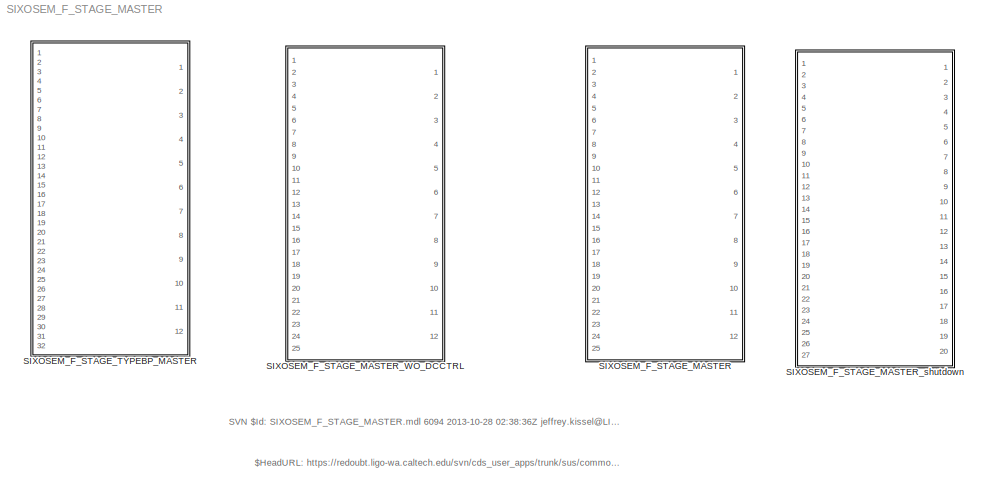
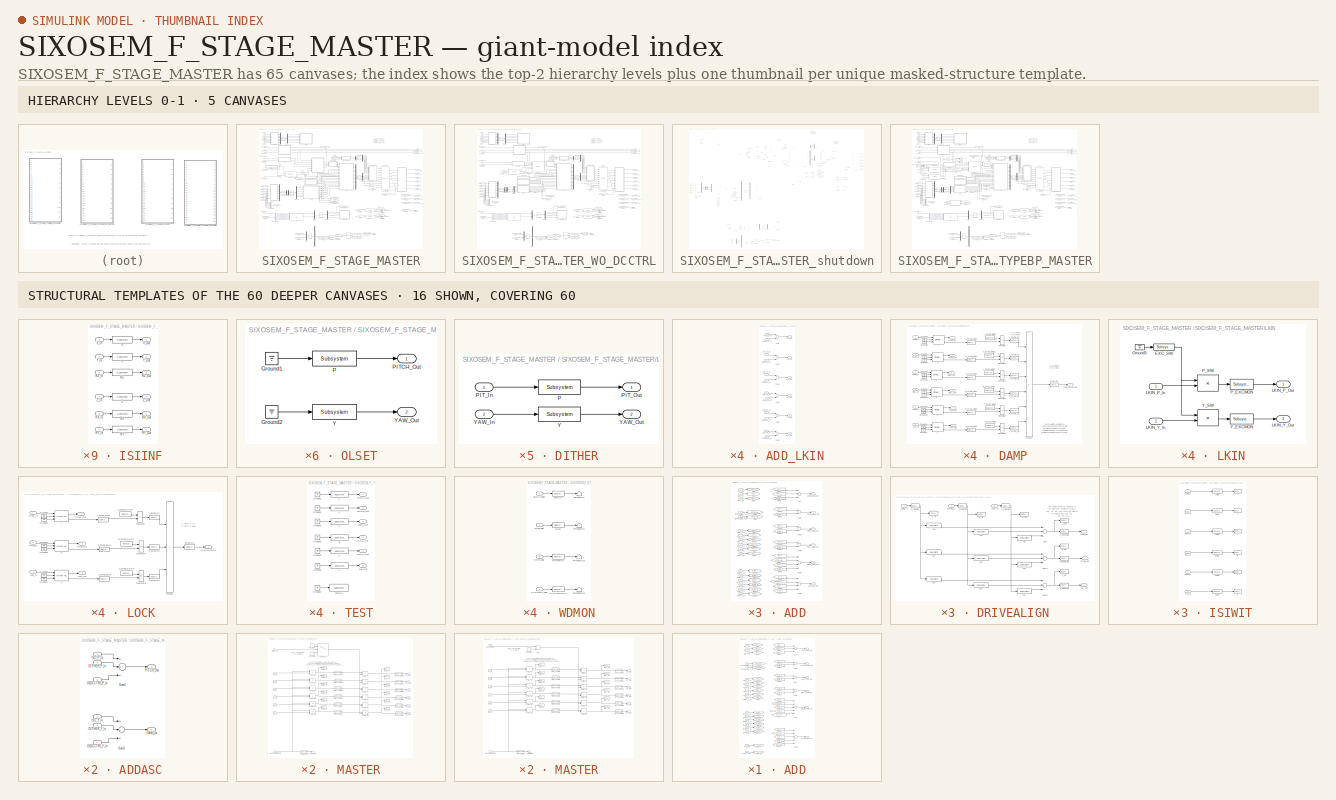
[diagram: thumbnail index - top-2 hierarchy levels (5 canvases) + 16 structural-template representatives of the remaining 60 canvases]
MODEL SIXOSEM_F_STAGE_MASTER
KIND library
BLOCK [SubSystem] SIXOSEM_F_STAGE_MASTER
  Description = SIXOSEMSTAGE_FACE_MASTER
  Ports = [25, 12]
  RequestExecContextInheritance = off
  SID = 938
  Variant = off
BLOCK [SubSystem] SIXOSEM_F_STAGE_MASTER/ADD
  Ports = [17, 6]
  RequestExecContextInheritance = off
  SID = 964
  Variant = off
BLOCK [Inport] SIXOSEM_F_STAGE_MASTER/ADD/DAMP_L_In
  IconDisplay = Port number
  Port = 12
  SID = 976
BLOCK [Inport] SIXOSEM_F_STAGE_MASTER/ADD/DAMP_P_In
  IconDisplay = Port number
  Port = 16
  SID = 980
BLOCK [Inport] SIXOSEM_F_STAGE_MASTER/ADD/DAMP_R_In
  IconDisplay = Port number
  Port = 15
  SID = 979
BLOCK [Inport] SIXOSEM_F_STAGE_MASTER/ADD/DAMP_T_In
  IconDisplay = Port number
  Port = 13
  SID = 977
BLOCK [Inport] SIXOSEM_F_STAGE_MASTER/ADD/DAMP_V_In
  IconDisplay = Port number
  Port = 14
  SID = 978
BLOCK [Inport] SIXOSEM_F_STAGE_MASTER/ADD/DAMP_Y_In
  IconDisplay = Port number
  Port = 17
  SID = 981
BLOCK [From] SIXOSEM_F_STAGE_MASTER/ADD/From1
  CloseFcn = tagdialog Close
  GotoTag = TEST_L
  SID = 982
BLOCK [From] SIXOSEM_F_STAGE_MASTER/ADD/From10
  CloseFcn = tagdialog Close
  GotoTag = DAMP_Y
  SID = 983
BLOCK [From] SIXOSEM_F_STAGE_MASTER/ADD/From11
  CloseFcn = tagdialog Close
  GotoTag = OPTICALIGN_Y
  SID = 984
BLOCK [From] SIXOSEM_F_STAGE_MASTER/ADD/From12
  CloseFcn = tagdialog Close
  GotoTag = TEST_R
  SID = 985
BLOCK [From] SIXOSEM_F_STAGE_MASTER/ADD/From13
  CloseFcn = tagdialog Close
  GotoTag = DAMP_R
  SID = 986
BLOCK [From] SIXOSEM_F_STAGE_MASTER/ADD/From14
  CloseFcn = tagdialog Close
  GotoTag = TEST_V
  SID = 987
BLOCK [From] SIXOSEM_F_STAGE_MASTER/ADD/From15
  CloseFcn = tagdialog Close
  GotoTag = DAMP_V
  SID = 988
BLOCK [From] SIXOSEM_F_STAGE_MASTER/ADD/From16
  CloseFcn = tagdialog Close
  GotoTag = TEST_T
  SID = 989
BLOCK [From] SIXOSEM_F_STAGE_MASTER/ADD/From17
  CloseFcn = tagdialog Close
  GotoTag = DAMP_T
  SID = 990
BLOCK [From] SIXOSEM_F_STAGE_MASTER/ADD/From2
  CloseFcn = tagdialog Close
  GotoTag = ISC_L
  SID = 991
BLOCK [From] SIXOSEM_F_STAGE_MASTER/ADD/From3
  CloseFcn = tagdialog Close
  GotoTag = DAMP_L
  SID = 992
BLOCK [From] SIXOSEM_F_STAGE_MASTER/ADD/From4
  CloseFcn = tagdialog Close
  GotoTag = TEST_P
  SID = 993
BLOCK [From] SIXOSEM_F_STAGE_MASTER/ADD/From5
  CloseFcn = tagdialog Close
  GotoTag = ISC_P
  SID = 994
BLOCK [From] SIXOSEM_F_STAGE_MASTER/ADD/From6
  CloseFcn = tagdialog Close
  GotoTag = DAMP_P
  SID = 995
BLOCK [From] SIXOSEM_F_STAGE_MASTER/ADD/From7
  CloseFcn = tagdialog Close
  GotoTag = OPTICALIGN_P
  SID = 996
BLOCK [From] SIXOSEM_F_STAGE_MASTER/ADD/From8
  CloseFcn = tagdialog Close
  GotoTag = TEST_Y
  SID = 997
BLOCK [From] SIXOSEM_F_STAGE_MASTER/ADD/From9
  CloseFcn = tagdialog Close
  GotoTag = ISC_Y
  SID = 998
BLOCK [Goto] SIXOSEM_F_STAGE_MASTER/ADD/Goto
  GotoTag = ISC_L
  SID = 999
BLOCK [Goto] SIXOSEM_F_STAGE_MASTER/ADD/Goto1
  GotoTag = ISC_P
  SID = 1000
BLOCK [Goto] SIXOSEM_F_STAGE_MASTER/ADD/Goto10
  GotoTag = TEST_V
  SID = 1001
BLOCK [Goto] SIXOSEM_F_STAGE_MASTER/ADD/Goto11
  GotoTag = DAMP_V
  SID = 1002
BLOCK [Goto] SIXOSEM_F_STAGE_MASTER/ADD/Goto12
  GotoTag = DAMP_L
  SID = 1003
BLOCK [Goto] SIXOSEM_F_STAGE_MASTER/ADD/Goto13
  GotoTag = DAMP_P
  SID = 1004
BLOCK [Goto] SIXOSEM_F_STAGE_MASTER/ADD/Goto14
  GotoTag = DAMP_Y
  SID = 1005
BLOCK [Goto] SIXOSEM_F_STAGE_MASTER/ADD/Goto15
  GotoTag = DAMP_T
  SID = 1006
BLOCK [Goto] SIXOSEM_F_STAGE_MASTER/ADD/Goto16
  GotoTag = DAMP_R
  SID = 1007
BLOCK [Goto] SIXOSEM_F_STAGE_MASTER/ADD/Goto2
  GotoTag = ISC_Y
  SID = 1008
BLOCK [Goto] SIXOSEM_F_STAGE_MASTER/ADD/Goto3
  GotoTag = TEST_L
  SID = 1009
BLOCK [Goto] SIXOSEM_F_STAGE_MASTER/ADD/Goto4
  GotoTag = OPTICALIGN_P
  SID = 1010
BLOCK [Goto] SIXOSEM_F_STAGE_MASTER/ADD/Goto5
  GotoTag = OPTICALIGN_Y
  SID = 1011
BLOCK [Goto] SIXOSEM_F_STAGE_MASTER/ADD/Goto6
  GotoTag = TEST_P
  SID = 1012
BLOCK [Goto] SIXOSEM_F_STAGE_MASTER/ADD/Goto7
  GotoTag = TEST_Y
  SID = 1013
BLOCK [Goto] SIXOSEM_F_STAGE_MASTER/ADD/Goto8
  GotoTag = TEST_T
  SID = 1014
BLOCK [Goto] SIXOSEM_F_STAGE_MASTER/ADD/Goto9
  GotoTag = TEST_R
  SID = 1015
BLOCK [Inport] SIXOSEM_F_STAGE_MASTER/ADD/ISC_L_In
  IconDisplay = Port number
  SID = 965
BLOCK [Inport] SIXOSEM_F_STAGE_MASTER/ADD/ISC_P_In
  IconDisplay = Port number
  Port = 2
  SID = 966
BLOCK [Inport] SIXOSEM_F_STAGE_MASTER/ADD/ISC_Y_In
  IconDisplay = Port number
  Port = 3
  SID = 967
BLOCK [Outport] SIXOSEM_F_STAGE_MASTER/ADD/LONG_MAIN_Out
  IconDisplay = Port number
  SID = 1022
BLOCK [Inport] SIXOSEM_F_STAGE_MASTER/ADD/OPTICALIGN_P_In
  IconDisplay = Port number
  Port = 4
  SID = 968
BLOCK [Inport] SIXOSEM_F_STAGE_MASTER/ADD/OPTICALIGN_Y_In
  IconDisplay = Port number
  Port = 5
  SID = 969
BLOCK [Outport] SIXOSEM_F_STAGE_MASTER/ADD/PITCH_MAIN_Out
  IconDisplay = Port number
  Port = 5
  SID = 1026
BLOCK [Outport] SIXOSEM_F_STAGE_MASTER/ADD/ROLL_MAIN_Out
  IconDisplay = Port number
  Port = 4
  SID = 1025
BLOCK [Sum] SIXOSEM_F_STAGE_MASTER/ADD/Sum
  InputSameDT = off
  Inputs = +++
  OutDataTypeStr = Inherit: Inherit via internal rule
  Ports = [3, 1]
  SID = 1016
  SaturateOnIntegerOverflow = off
BLOCK [Sum] SIXOSEM_F_STAGE_MASTER/ADD/Sum1
  InputSameDT = off
  OutDataTypeStr = Inherit: Inherit via internal rule
  Ports = [2, 1]
  SID = 1017
  SaturateOnIntegerOverflow = off
BLOCK [Sum] SIXOSEM_F_STAGE_MASTER/ADD/Sum2
  InputSameDT = off
  OutDataTypeStr = Inherit: Inherit via internal rule
  Ports = [2, 1]
  SID = 1018
  SaturateOnIntegerOverflow = off
BLOCK [Sum] SIXOSEM_F_STAGE_MASTER/ADD/Sum3
  InputSameDT = off
  Inputs = ++++
  OutDataTypeStr = Inherit: Inherit via internal rule
  Ports = [4, 1]
  SID = 1019
  SaturateOnIntegerOverflow = off
BLOCK [Sum] SIXOSEM_F_STAGE_MASTER/ADD/Sum4
  InputSameDT = off
  Inputs = ++++
  OutDataTypeStr = Inherit: Inherit via internal rule
  Ports = [4, 1]
  SID = 1020
  SaturateOnIntegerOverflow = off
BLOCK [Sum] SIXOSEM_F_STAGE_MASTER/ADD/Sum5
  InputSameDT = off
  OutDataTypeStr = Inherit: Inherit via internal rule
  Ports = [2, 1]
  SID = 1021
  SaturateOnIntegerOverflow = off
BLOCK [Inport] SIXOSEM_F_STAGE_MASTER/ADD/TEST_L_In
  IconDisplay = Port number
  Port = 6
  SID = 970
BLOCK [Inport] SIXOSEM_F_STAGE_MASTER/ADD/TEST_P_In
  IconDisplay = Port number
  Port = 10
  SID = 974
BLOCK [Inport] SIXOSEM_F_STAGE_MASTER/ADD/TEST_R_In
  IconDisplay = Port number
  Port = 9
  SID = 973
BLOCK [Inport] SIXOSEM_F_STAGE_MASTER/ADD/TEST_T_In
  IconDisplay = Port number
  Port = 7
  SID = 971
BLOCK [Inport] SIXOSEM_F_STAGE_MASTER/ADD/TEST_V_In
  IconDisplay = Port number
  Port = 8
  SID = 972
BLOCK [Inport] SIXOSEM_F_STAGE_MASTER/ADD/TEST_Y_In
  IconDisplay = Port number
  Port = 11
  SID = 975
BLOCK [Outport] SIXOSEM_F_STAGE_MASTER/ADD/TRANS_MAIN_Out
  IconDisplay = Port number
  Port = 2
  SID = 1023
BLOCK [Outport] SIXOSEM_F_STAGE_MASTER/ADD/VERT_MAIN_Out
  IconDisplay = Port number
  Port = 3
  SID = 1024
BLOCK [Outport] SIXOSEM_F_STAGE_MASTER/ADD/YAW_MAIN_Out
  IconDisplay = Port number
  Port = 6
  SID = 1027
BLOCK [SubSystem] SIXOSEM_F_STAGE_MASTER/ADDASC
  AncestorBlock = VIS_LIB/ADDASC_W//_DCCTRL
  Ports = [6, 2]
  RequestExecContextInheritance = off
  SID = 1432
  Variant = off
BLOCK [Inport] SIXOSEM_F_STAGE_MASTER/ADDASC/DITHER_P_In
  IconDisplay = Port number
  Port = 3
  SID = 1432:1374
BLOCK [Inport] SIXOSEM_F_STAGE_MASTER/ADDASC/DITHER_Y_In
  IconDisplay = Port number
  Port = 4
  SID = 1432:1375
BLOCK [Inport] SIXOSEM_F_STAGE_MASTER/ADDASC/ISC_P_In
  IconDisplay = Port number
  SID = 1432:1372
BLOCK [Inport] SIXOSEM_F_STAGE_MASTER/ADDASC/ISC_Y_In
  IconDisplay = Port number
  Port = 2
  SID = 1432:1373
BLOCK [Inport] SIXOSEM_F_STAGE_MASTER/ADDASC/OLDCCTRL_P_In
  IconDisplay = Port number
  Port = 5
  SID = 1432:1382
BLOCK [Inport] SIXOSEM_F_STAGE_MASTER/ADDASC/OLDCCTRL_Y_In
  IconDisplay = Port number
  Port = 6
  SID = 1432:1383
BLOCK [Outport] SIXOSEM_F_STAGE_MASTER/ADDASC/PITCH_Out
  IconDisplay = Port number
  SID = 1432:1380
BLOCK [Sum] SIXOSEM_F_STAGE_MASTER/ADDASC/Sum3
  InputSameDT = off
  Inputs = +++
  OutDataTypeStr = Inherit: Inherit via internal rule
  Ports = [3, 1]
  SID = 1432:1378
  SaturateOnIntegerOverflow = off
BLOCK [Sum] SIXOSEM_F_STAGE_MASTER/ADDASC/Sum4
  InputSameDT = off
  Inputs = +++
  OutDataTypeStr = Inherit: Inherit via internal rule
  Ports = [3, 1]
  SID = 1432:1379
  SaturateOnIntegerOverflow = off
BLOCK [Outport] SIXOSEM_F_STAGE_MASTER/ADDASC/YAW_Out
  IconDisplay = Port number
  Port = 2
  SID = 1432:1381
BLOCK [SubSystem] SIXOSEM_F_STAGE_MASTER/ADD_LKIN
  Ports = [12, 6]
  RequestExecContextInheritance = off
  SID = 1029
  Variant = off
BLOCK [Outport] SIXOSEM_F_STAGE_MASTER/ADD_LKIN/H1_Out
  IconDisplay = Port number
  Port = 4
  SID = 1051
BLOCK [Outport] SIXOSEM_F_STAGE_MASTER/ADD_LKIN/H2_Out
  IconDisplay = Port number
  Port = 5
  SID = 1052
BLOCK [Outport] SIXOSEM_F_STAGE_MASTER/ADD_LKIN/H3_Out
  IconDisplay = Port number
  Port = 6
  SID = 1053
BLOCK [Inport] SIXOSEM_F_STAGE_MASTER/ADD_LKIN/LKIN_H1_In
  IconDisplay = Port number
  Port = 4
  SID = 1033
BLOCK [Inport] SIXOSEM_F_STAGE_MASTER/ADD_LKIN/LKIN_H2_In
  IconDisplay = Port number
  Port = 5
  SID = 1034
BLOCK [Inport] SIXOSEM_F_STAGE_MASTER/ADD_LKIN/LKIN_H3_In
  IconDisplay = Port number
  Port = 6
  SID = 1035
BLOCK [Inport] SIXOSEM_F_STAGE_MASTER/ADD_LKIN/LKIN_V3_In
  IconDisplay = Port number
  Port = 3
  SID = 1032
BLOCK [Inport] SIXOSEM_F_STAGE_MASTER/ADD_LKIN/LKN_V1_In
  IconDisplay = Port number
  SID = 1030
BLOCK [Inport] SIXOSEM_F_STAGE_MASTER/ADD_LKIN/LKN_V2_In
  IconDisplay = Port number
  Port = 2
  SID = 1031
BLOCK [Inport] SIXOSEM_F_STAGE_MASTER/ADD_LKIN/OSEM_H1_In
  IconDisplay = Port number
  Port = 10
  SID = 1039
BLOCK [Inport] SIXOSEM_F_STAGE_MASTER/ADD_LKIN/OSEM_H2_In
  IconDisplay = Port number
  Port = 11
  SID = 1040
BLOCK [Inport] SIXOSEM_F_STAGE_MASTER/ADD_LKIN/OSEM_H3_In
  IconDisplay = Port number
  Port = 12
  SID = 1041
BLOCK [Inport] SIXOSEM_F_STAGE_MASTER/ADD_LKIN/OSEM_V1_In
  IconDisplay = Port number
  Port = 7
  SID = 1036
BLOCK [Inport] SIXOSEM_F_STAGE_MASTER/ADD_LKIN/OSEM_V2_In
  IconDisplay = Port number
  Port = 8
  SID = 1037
BLOCK [Inport] SIXOSEM_F_STAGE_MASTER/ADD_LKIN/OSEM_V3_In
  IconDisplay = Port number
  Port = 9
  SID = 1038
BLOCK [Sum] SIXOSEM_F_STAGE_MASTER/ADD_LKIN/Sum
  InputSameDT = off
  OutDataTypeStr = Inherit: Inherit via internal rule
  Ports = [2, 1]
  SID = 1042
  SaturateOnIntegerOverflow = off
BLOCK [Sum] SIXOSEM_F_STAGE_MASTER/ADD_LKIN/Sum1
  InputSameDT = off
  OutDataTypeStr = Inherit: Inherit via internal rule
  Ports = [2, 1]
  SID = 1043
  SaturateOnIntegerOverflow = off
BLOCK [Sum] SIXOSEM_F_STAGE_MASTER/ADD_LKIN/Sum2
  InputSameDT = off
  OutDataTypeStr = Inherit: Inherit via internal rule
  Ports = [2, 1]
  SID = 1044
  SaturateOnIntegerOverflow = off
BLOCK [Sum] SIXOSEM_F_STAGE_MASTER/ADD_LKIN/Sum3
  InputSameDT = off
  OutDataTypeStr = Inherit: Inherit via internal rule
  Ports = [2, 1]
  SID = 1045
  SaturateOnIntegerOverflow = off
BLOCK [Sum] SIXOSEM_F_STAGE_MASTER/ADD_LKIN/Sum4
  InputSameDT = off
  OutDataTypeStr = Inherit: Inherit via internal rule
  Ports = [2, 1]
  SID = 1046
  SaturateOnIntegerOverflow = off
BLOCK [Sum] SIXOSEM_F_STAGE_MASTER/ADD_LKIN/Sum5
  InputSameDT = off
  OutDataTypeStr = Inherit: Inherit via internal rule
  Ports = [2, 1]
  SID = 1047
  SaturateOnIntegerOverflow = off
BLOCK [Outport] SIXOSEM_F_STAGE_MASTER/ADD_LKIN/V1_Out
  IconDisplay = Port number
  SID = 1048
BLOCK [Outport] SIXOSEM_F_STAGE_MASTER/ADD_LKIN/V2_Out
  IconDisplay = Port number
  Port = 2
  SID = 1049
BLOCK [Outport] SIXOSEM_F_STAGE_MASTER/ADD_LKIN/V3_Out
  IconDisplay = Port number
  Port = 3
  SID = 1050
BLOCK [Inport] SIXOSEM_F_STAGE_MASTER/ASC_DITHER_PIT_In
  IconDisplay = Port number
  Port = 16
  SID = 954
BLOCK [Inport] SIXOSEM_F_STAGE_MASTER/ASC_DITHER_YAW_In
  IconDisplay = Port number
  Port = 17
  SID = 955
BLOCK [Inport] SIXOSEM_F_STAGE_MASTER/ASC_OL_PIT_In
  IconDisplay = Port number
  Port = 24
  SID = 962
BLOCK [Inport] SIXOSEM_F_STAGE_MASTER/ASC_OL_YAW_In
  IconDisplay = Port number
  Port = 25
  SID = 963
BLOCK [BusCreator] SIXOSEM_F_STAGE_MASTER/Bus\nCreator1
  DisplayOption = bar
  InheritFromInputs = on
  Inputs = 'OSEM_V1','OSEM_V2','OSEM_V3','OSEM_H1','OSEM_H2','OSEM_H3'
  Ports = [6, 1]
  SID = 1054
BLOCK [BusSelector] SIXOSEM_F_STAGE_MASTER/Bus\nSelector
  OutputSignals = OSEM_V1,OSEM_V2,OSEM_V3,OSEM_H1,OSEM_H2,OSEM_H3
  Ports = [1, 6]
  SID = 1055
BLOCK [Reference] SIXOSEM_F_STAGE_MASTER/CART2EUL  REF=cdsMuxMatrix/Subsystem
  AttributesFormatString = %<Tag>
  Description = Any size matrix. Inputs and outputs must be connected using Mux and Demux parts.
  Ports = [1, 1]
  SID = 1056
  SourceBlock = cdsMuxMatrix/Subsystem
  SourceType = SubSystem
  Tag = cdsMuxMatrix
BLOCK [Reference] SIXOSEM_F_STAGE_MASTER/COILOUTF  REF=SIXOSEM_F_COILOUTF_MASTER/COILOUTF_VH
  Ports = [10, 6]
  SID = 1453
  SourceBlock = SIXOSEM_F_COILOUTF_MASTER/COILOUTF_VH
  SourceType = SubSystem
BLOCK [Outport] SIXOSEM_F_STAGE_MASTER/COIL_H1_Out
  IconDisplay = Port number
  Port = 7
  SID = 1425
BLOCK [Outport] SIXOSEM_F_STAGE_MASTER/COIL_H2_Out
  IconDisplay = Port number
  Port = 8
  SID = 1426
BLOCK [Outport] SIXOSEM_F_STAGE_MASTER/COIL_H3_Out
  IconDisplay = Port number
  Port = 9
  SID = 1427
BLOCK [Outport] SIXOSEM_F_STAGE_MASTER/COIL_V1_Out
  IconDisplay = Port number
  Port = 4
  SID = 1422
BLOCK [Outport] SIXOSEM_F_STAGE_MASTER/COIL_V2_Out
  IconDisplay = Port number
  Port = 5
  SID = 1423
BLOCK [Outport] SIXOSEM_F_STAGE_MASTER/COIL_V3_Out
  IconDisplay = Port number
  Port = 6
  SID = 1424
BLOCK [SubSystem] SIXOSEM_F_STAGE_MASTER/DAMP
  Ports = [6, 7]
  RequestExecContextInheritance = off
  SID = 1058
  Variant = off
BLOCK [Outport] SIXOSEM_F_STAGE_MASTER/DAMP/DAMP_STATE_Out
  IconDisplay = Port number
  Port = 7
  SID = 1115
BLOCK [Ground] SIXOSEM_F_STAGE_MASTER/DAMP/Ground1
  SID = 1065
BLOCK [Ground] SIXOSEM_F_STAGE_MASTER/DAMP/Ground10
  SID = 1066
BLOCK [Ground] SIXOSEM_F_STAGE_MASTER/DAMP/Ground11
  SID = 1067
BLOCK [Ground] SIXOSEM_F_STAGE_MASTER/DAMP/Ground12
  SID = 1068
BLOCK [Ground] SIXOSEM_F_STAGE_MASTER/DAMP/Ground2
  SID = 1069
BLOCK [Ground] SIXOSEM_F_STAGE_MASTER/DAMP/Ground3
  SID = 1070
BLOCK [Ground] SIXOSEM_F_STAGE_MASTER/DAMP/Ground4
  SID = 1071
BLOCK [Ground] SIXOSEM_F_STAGE_MASTER/DAMP/Ground5
  SID = 1072
BLOCK [Ground] SIXOSEM_F_STAGE_MASTER/DAMP/Ground6
  SID = 1073
BLOCK [Ground] SIXOSEM_F_STAGE_MASTER/DAMP/Ground7
  SID = 1074
BLOCK [Ground] SIXOSEM_F_STAGE_MASTER/DAMP/Ground8
  SID = 1075
BLOCK [Ground] SIXOSEM_F_STAGE_MASTER/DAMP/Ground9
  SID = 1076
BLOCK [Reference] SIXOSEM_F_STAGE_MASTER/DAMP/L  REF=cdsFiltCtrl/IIR FM with control
  AttributesFormatString = %<Tag>
  Description = cdsFiltCntrl is the standard IIR filter module (exactly the same as cdsFilt) but with added control data output 'Ctrl'. Filter module digital signal output appears on the first output, which is called 'Val'. 'Ctrl' output has a bit pattern encoding the state of filter's on/off switches (FM1 through FM10). The bit values are:\n                                                                        ...<+4621ch>  <repeated x37 — deduplicated; at blocks: L, P, R, T, V, Y, OLDAMP_L>
  Ports = [3, 2]
  SID = 1077
  SourceBlock = cdsFiltCtrl/IIR FM with control
  SourceType = SubSystem
  Tag = cdsFiltCtrl
BLOCK [Inport] SIXOSEM_F_STAGE_MASTER/DAMP/LONG_In
  IconDisplay = Port number
  SID = 1059
BLOCK [Outport] SIXOSEM_F_STAGE_MASTER/DAMP/LONG_Out
  IconDisplay = Port number
  SID = 1109
BLOCK [Reference] SIXOSEM_F_STAGE_MASTER/DAMP/L_STATE_GOOD  REF=cdsEpicsIn/Subsystem
  AttributesFormatString = %<Tag>
  Description = Purpose:                                                                              \nCreate an EPICS input channel connection to the FE realtime controls.                 \n                                                                                      \nOperation:                                                                            \nOutputs value from an EPICS ai record. Value is ...<+266ch>  <repeated x36 — deduplicated; at blocks: L_STATE_GOOD, P_STATE_GOOD, R_STATE_GOOD, T_STATE_GOOD, V_STATE_GOOD, Y_STATE_GOOD>
  Ports = [0, 1]
  SID = 1078
  SourceBlock = cdsEpicsIn/Subsystem
  SourceType = SubSystem
  Tag = cdsEpicsIn
BLOCK [Reference] SIXOSEM_F_STAGE_MASTER/DAMP/L_STATE_NOW  REF=cdsEpicsOut/Subsystem
  AttributesFormatString = %<Tag>
  Description = Purpose:                                          \nOutput a FE signal to an EPICS channel.           \n                                                  \nOperation:                                        \nTakes input value and passes it to EPICS record.  \n                                                  \nUsage:                                            \nName the part with the desired EPICS...<+14ch>  <repeated x180 — deduplicated; at blocks: L_STATE_NOW, L_STATE_OK, P_STATE_NOW, P_STATE_OK, R_STATE_NOW, R_STATE_OK, STATE_OK, T_STATE_NOW, T_STATE_OK, V_STATE_NOW, V_STATE_OK, Y_STATE_NOW, Y_STATE_OK, L_INMON, L_OUTMON, P_INMON, +25 more>
  Ports = [1, 1]
  SID = 1079
  SourceBlock = cdsEpicsOut/Subsystem
  SourceType = SubSystem
  Tag = cdsEpicsOutput
BLOCK [Reference] SIXOSEM_F_STAGE_MASTER/DAMP/L_STATE_OK  REF=cdsEpicsOut/Subsystem
  AttributesFormatString = %<Tag>
  Ports = [1, 1]
  SID = 1080
  SourceBlock = cdsEpicsOut/Subsystem
  SourceType = SubSystem
  Tag = cdsEpicsOutput
BLOCK [RelationalOperator] SIXOSEM_F_STAGE_MASTER/DAMP/Operator
  InputSameDT = off
  Operator = ==
  OutDataTypeStr = boolean
  Ports = [2, 1]
  SID = 1081
BLOCK [RelationalOperator] SIXOSEM_F_STAGE_MASTER/DAMP/Operator1
  InputSameDT = off
  Operator = ==
  OutDataTypeStr = boolean
  Ports = [2, 1]
  SID = 1082
BLOCK [RelationalOperator] SIXOSEM_F_STAGE_MASTER/DAMP/Operator2
  InputSameDT = off
  Operator = ==
  OutDataTypeStr = boolean
  Ports = [2, 1]
  SID = 1083
BLOCK [RelationalOperator] SIXOSEM_F_STAGE_MASTER/DAMP/Operator3
  InputSameDT = off
  Operator = ==
  OutDataTypeStr = boolean
  Ports = [2, 1]
  SID = 1084
BLOCK [RelationalOperator] SIXOSEM_F_STAGE_MASTER/DAMP/Operator4
  InputSameDT = off
  Operator = ==
  OutDataTypeStr = boolean
  Ports = [2, 1]
  SID = 1085
BLOCK [RelationalOperator] SIXOSEM_F_STAGE_MASTER/DAMP/Operator5
  InputSameDT = off
  Operator = ==
  OutDataTypeStr = boolean
  Ports = [2, 1]
  SID = 1086
BLOCK [Reference] SIXOSEM_F_STAGE_MASTER/DAMP/P  REF=cdsFiltCtrl/IIR FM with control
  AttributesFormatString = %<Tag>
  Ports = [3, 2]
  SID = 1087
  SourceBlock = cdsFiltCtrl/IIR FM with control
  SourceType = SubSystem
  Tag = cdsFiltCtrl
BLOCK [Inport] SIXOSEM_F_STAGE_MASTER/DAMP/PITCH_In
  IconDisplay = Port number
  Port = 5
  SID = 1063
BLOCK [Outport] SIXOSEM_F_STAGE_MASTER/DAMP/PITCH_Out
  IconDisplay = Port number
  Port = 5
  SID = 1113
BLOCK [Reference] SIXOSEM_F_STAGE_MASTER/DAMP/P_STATE_GOOD  REF=cdsEpicsIn/Subsystem
  AttributesFormatString = %<Tag>
  Ports = [0, 1]
  SID = 1088
  SourceBlock = cdsEpicsIn/Subsystem
  SourceType = SubSystem
  Tag = cdsEpicsIn
BLOCK [Reference] SIXOSEM_F_STAGE_MASTER/DAMP/P_STATE_NOW  REF=cdsEpicsOut/Subsystem
  AttributesFormatString = %<Tag>
  Ports = [1, 1]
  SID = 1089
  SourceBlock = cdsEpicsOut/Subsystem
  SourceType = SubSystem
  Tag = cdsEpicsOutput
BLOCK [Reference] SIXOSEM_F_STAGE_MASTER/DAMP/P_STATE_OK  REF=cdsEpicsOut/Subsystem
  AttributesFormatString = %<Tag>
  Ports = [1, 1]
  SID = 1090
  SourceBlock = cdsEpicsOut/Subsystem
  SourceType = SubSystem
  Tag = cdsEpicsOutput
BLOCK [Product] SIXOSEM_F_STAGE_MASTER/DAMP/Product
  InputSameDT = off
  Inputs = 6
  OutDataTypeStr = Inherit: Inherit via internal rule
  Ports = [6, 1]
  SID = 1091
  SaturateOnIntegerOverflow = off
BLOCK [Reference] SIXOSEM_F_STAGE_MASTER/DAMP/R  REF=cdsFiltCtrl/IIR FM with control
  AttributesFormatString = %<Tag>
  Ports = [3, 2]
  SID = 1092
  SourceBlock = cdsFiltCtrl/IIR FM with control
  SourceType = SubSystem
  Tag = cdsFiltCtrl
BLOCK [Inport] SIXOSEM_F_STAGE_MASTER/DAMP/ROLL_In
  IconDisplay = Port number
  Port = 4
  SID = 1062
BLOCK [Outport] SIXOSEM_F_STAGE_MASTER/DAMP/ROLL_Out
  IconDisplay = Port number
  Port = 4
  SID = 1112
BLOCK [Reference] SIXOSEM_F_STAGE_MASTER/DAMP/R_STATE_GOOD  REF=cdsEpicsIn/Subsystem
  AttributesFormatString = %<Tag>
  Ports = [0, 1]
  SID = 1093
  SourceBlock = cdsEpicsIn/Subsystem
  SourceType = SubSystem
  Tag = cdsEpicsIn
BLOCK [Reference] SIXOSEM_F_STAGE_MASTER/DAMP/R_STATE_NOW  REF=cdsEpicsOut/Subsystem
  AttributesFormatString = %<Tag>
  Ports = [1, 1]
  SID = 1094
  SourceBlock = cdsEpicsOut/Subsystem
  SourceType = SubSystem
  Tag = cdsEpicsOutput
BLOCK [Reference] SIXOSEM_F_STAGE_MASTER/DAMP/R_STATE_OK  REF=cdsEpicsOut/Subsystem
  AttributesFormatString = %<Tag>
  Ports = [1, 1]
  SID = 1095
  SourceBlock = cdsEpicsOut/Subsystem
  SourceType = SubSystem
  Tag = cdsEpicsOutput
BLOCK [Reference] SIXOSEM_F_STAGE_MASTER/DAMP/STATE_OK  REF=cdsEpicsOut/Subsystem
  AttributesFormatString = %<Tag>
  Ports = [1, 1]
  SID = 1096
  SourceBlock = cdsEpicsOut/Subsystem
  SourceType = SubSystem
  Tag = cdsEpicsOutput
BLOCK [Reference] SIXOSEM_F_STAGE_MASTER/DAMP/T  REF=cdsFiltCtrl/IIR FM with control
  AttributesFormatString = %<Tag>
  Ports = [3, 2]
  SID = 1097
  SourceBlock = cdsFiltCtrl/IIR FM with control
  SourceType = SubSystem
  Tag = cdsFiltCtrl
BLOCK [Inport] SIXOSEM_F_STAGE_MASTER/DAMP/TRANS_In
  IconDisplay = Port number
  Port = 2
  SID = 1060
BLOCK [Outport] SIXOSEM_F_STAGE_MASTER/DAMP/TRANS_Out
  IconDisplay = Port number
  Port = 2
  SID = 1110
BLOCK [Reference] SIXOSEM_F_STAGE_MASTER/DAMP/T_STATE_GOOD  REF=cdsEpicsIn/Subsystem
  AttributesFormatString = %<Tag>
  Ports = [0, 1]
  SID = 1098
  SourceBlock = cdsEpicsIn/Subsystem
  SourceType = SubSystem
  Tag = cdsEpicsIn
BLOCK [Reference] SIXOSEM_F_STAGE_MASTER/DAMP/T_STATE_NOW  REF=cdsEpicsOut/Subsystem
  AttributesFormatString = %<Tag>
  Ports = [1, 1]
  SID = 1099
  SourceBlock = cdsEpicsOut/Subsystem
  SourceType = SubSystem
  Tag = cdsEpicsOutput
BLOCK [Reference] SIXOSEM_F_STAGE_MASTER/DAMP/T_STATE_OK  REF=cdsEpicsOut/Subsystem
  AttributesFormatString = %<Tag>
  Ports = [1, 1]
  SID = 1100
  SourceBlock = cdsEpicsOut/Subsystem
  SourceType = SubSystem
  Tag = cdsEpicsOutput
BLOCK [Reference] SIXOSEM_F_STAGE_MASTER/DAMP/V  REF=cdsFiltCtrl/IIR FM with control
  AttributesFormatString = %<Tag>
  Ports = [3, 2]
  SID = 1101
  SourceBlock = cdsFiltCtrl/IIR FM with control
  SourceType = SubSystem
  Tag = cdsFiltCtrl
BLOCK [Inport] SIXOSEM_F_STAGE_MASTER/DAMP/VERT_In
  IconDisplay = Port number
  Port = 3
  SID = 1061
BLOCK [Outport] SIXOSEM_F_STAGE_MASTER/DAMP/VERT_Out
  IconDisplay = Port number
  Port = 3
  SID = 1111
BLOCK [Reference] SIXOSEM_F_STAGE_MASTER/DAMP/V_STATE_GOOD  REF=cdsEpicsIn/Subsystem
  AttributesFormatString = %<Tag>
  Ports = [0, 1]
  SID = 1102
  SourceBlock = cdsEpicsIn/Subsystem
  SourceType = SubSystem
  Tag = cdsEpicsIn
BLOCK [Reference] SIXOSEM_F_STAGE_MASTER/DAMP/V_STATE_NOW  REF=cdsEpicsOut/Subsystem
  AttributesFormatString = %<Tag>
  Ports = [1, 1]
  SID = 1103
  SourceBlock = cdsEpicsOut/Subsystem
  SourceType = SubSystem
  Tag = cdsEpicsOutput
BLOCK [Reference] SIXOSEM_F_STAGE_MASTER/DAMP/V_STATE_OK  REF=cdsEpicsOut/Subsystem
  AttributesFormatString = %<Tag>
  Ports = [1, 1]
  SID = 1104
  SourceBlock = cdsEpicsOut/Subsystem
  SourceType = SubSystem
  Tag = cdsEpicsOutput
BLOCK [Reference] SIXOSEM_F_STAGE_MASTER/DAMP/Y  REF=cdsFiltCtrl/IIR FM with control
  AttributesFormatString = %<Tag>
  Ports = [3, 2]
  SID = 1105
  SourceBlock = cdsFiltCtrl/IIR FM with control
  SourceType = SubSystem
  Tag = cdsFiltCtrl
BLOCK [Inport] SIXOSEM_F_STAGE_MASTER/DAMP/YAW_In
  IconDisplay = Port number
  Port = 6
  SID = 1064
BLOCK [Outport] SIXOSEM_F_STAGE_MASTER/DAMP/YAW_Out
  IconDisplay = Port number
  Port = 6
  SID = 1114
BLOCK [Reference] SIXOSEM_F_STAGE_MASTER/DAMP/Y_STATE_GOOD  REF=cdsEpicsIn/Subsystem
  AttributesFormatString = %<Tag>
  Ports = [0, 1]
  SID = 1106
  SourceBlock = cdsEpicsIn/Subsystem
  SourceType = SubSystem
  Tag = cdsEpicsIn
BLOCK [Reference] SIXOSEM_F_STAGE_MASTER/DAMP/Y_STATE_NOW  REF=cdsEpicsOut/Subsystem
  AttributesFormatString = %<Tag>
  Ports = [1, 1]
  SID = 1107
  SourceBlock = cdsEpicsOut/Subsystem
  SourceType = SubSystem
  Tag = cdsEpicsOutput
BLOCK [Reference] SIXOSEM_F_STAGE_MASTER/DAMP/Y_STATE_OK  REF=cdsEpicsOut/Subsystem
  AttributesFormatString = %<Tag>
  Ports = [1, 1]
  SID = 1108
  SourceBlock = cdsEpicsOut/Subsystem
  SourceType = SubSystem
  Tag = cdsEpicsOutput
BLOCK [Outport] SIXOSEM_F_STAGE_MASTER/DAMP_STATE_Out
  IconDisplay = Port number
  Port = 11
  SID = 1429
BLOCK [Reference] SIXOSEM_F_STAGE_MASTER/DEMOD_1  REF=rtdemod/RTDEMOD
  Ports = [3, 2]
  SID = 1120
  SourceBlock = rtdemod/RTDEMOD
  SourceType = SubSystem
  Tag = top_names
BLOCK [SubSystem] SIXOSEM_F_STAGE_MASTER/DITHER
  Ports = [2, 2]
  RequestExecContextInheritance = off
  SID = 1121
  Variant = off
BLOCK [Reference] SIXOSEM_F_STAGE_MASTER/DITHER/P  REF=cdsFilt/Subsystem
  AttributesFormatString = %<Tag>
  Description = Purpose:                                                                                                                                                                                                                                  \nStandard CDS IIR filter module.                                                                                                                                     ...<+1302ch>  <repeated x127 — deduplicated; at blocks: P, Y, L2L, L2P, L2Y, P2L, P2P, P2Y, Y2L, Y2P, Y2Y, RX, RY, RZ, X, Z, +10 more>
  Ports = [1, 1]
  SID = 1124
  SourceBlock = cdsFilt/Subsystem
  SourceType = SubSystem
  Tag = cdsFilt
BLOCK [Inport] SIXOSEM_F_STAGE_MASTER/DITHER/PIT_In
  IconDisplay = Port number
  SID = 1122
BLOCK [Outport] SIXOSEM_F_STAGE_MASTER/DITHER/PIT_Out
  IconDisplay = Port number
  SID = 1126
BLOCK [Reference] SIXOSEM_F_STAGE_MASTER/DITHER/Y  REF=cdsFilt/Subsystem
  AttributesFormatString = %<Tag>
  Ports = [1, 1]
  SID = 1125
  SourceBlock = cdsFilt/Subsystem
  SourceType = SubSystem
  Tag = cdsFilt
BLOCK [Inport] SIXOSEM_F_STAGE_MASTER/DITHER/YAW_In
  IconDisplay = Port number
  Port = 2
  SID = 1123
BLOCK [Outport] SIXOSEM_F_STAGE_MASTER/DITHER/YAW_Out
  IconDisplay = Port number
  Port = 2
  SID = 1127
BLOCK [SubSystem] SIXOSEM_F_STAGE_MASTER/DRIVEALIGN
  Ports = [3, 3]
  RequestExecContextInheritance = off
  SID = 1128
  Variant = off
BLOCK [Reference] SIXOSEM_F_STAGE_MASTER/DRIVEALIGN/L2L  REF=cdsFilt/Subsystem
  AttributesFormatString = %<Tag>
  Ports = [1, 1]
  SID = 1132
  SourceBlock = cdsFilt/Subsystem
  SourceType = SubSystem
  Tag = cdsFilt
BLOCK [Reference] SIXOSEM_F_STAGE_MASTER/DRIVEALIGN/L2P  REF=cdsFilt/Subsystem
  AttributesFormatString = %<Tag>
  Ports = [1, 1]
  SID = 1133
  SourceBlock = cdsFilt/Subsystem
  SourceType = SubSystem
  Tag = cdsFilt
BLOCK [Reference] SIXOSEM_F_STAGE_MASTER/DRIVEALIGN/L2Y  REF=cdsFilt/Subsystem
  AttributesFormatString = %<Tag>
  Ports = [1, 1]
  SID = 1134
  SourceBlock = cdsFilt/Subsystem
  SourceType = SubSystem
  Tag = cdsFilt
BLOCK [Inport] SIXOSEM_F_STAGE_MASTER/DRIVEALIGN/LONG_In
  IconDisplay = Port number
  SID = 1129
BLOCK [Outport] SIXOSEM_F_STAGE_MASTER/DRIVEALIGN/LONG_Out
  IconDisplay = Port number
  SID = 1156
BLOCK [Reference] SIXOSEM_F_STAGE_MASTER/DRIVEALIGN/L_IN  REF=cdsTP/Subsystem
  AttributesFormatString = %<Tag>
  Ports = [1]
  SID = 1135
  SourceBlock = cdsTP/Subsystem
  SourceType = SubSystem
  Tag = Test Point
BLOCK [Reference] SIXOSEM_F_STAGE_MASTER/DRIVEALIGN/L_INMON  REF=cdsEpicsOut/Subsystem
  AttributesFormatString = %<Tag>
  Ports = [1, 1]
  SID = 1136
  SourceBlock = cdsEpicsOut/Subsystem
  SourceType = SubSystem
  Tag = cdsEpicsOutput
BLOCK [Reference] SIXOSEM_F_STAGE_MASTER/DRIVEALIGN/L_OUT  REF=cdsTP/Subsystem
  AttributesFormatString = %<Tag>
  Ports = [1]
  SID = 1137
  SourceBlock = cdsTP/Subsystem
  SourceType = SubSystem
  Tag = Test Point
BLOCK [Reference] SIXOSEM_F_STAGE_MASTER/DRIVEALIGN/L_OUTMON  REF=cdsEpicsOut/Subsystem
  AttributesFormatString = %<Tag>
  Ports = [1, 1]
  SID = 1138
  SourceBlock = cdsEpicsOut/Subsystem
  SourceType = SubSystem
  Tag = cdsEpicsOutput
BLOCK [Reference] SIXOSEM_F_STAGE_MASTER/DRIVEALIGN/P2L  REF=cdsFilt/Subsystem
  AttributesFormatString = %<Tag>
  Ports = [1, 1]
  SID = 1139
  SourceBlock = cdsFilt/Subsystem
  SourceType = SubSystem
  Tag = cdsFilt
BLOCK [Reference] SIXOSEM_F_STAGE_MASTER/DRIVEALIGN/P2P  REF=cdsFilt/Subsystem
  AttributesFormatString = %<Tag>
  Ports = [1, 1]
  SID = 1140
  SourceBlock = cdsFilt/Subsystem
  SourceType = SubSystem
  Tag = cdsFilt
BLOCK [Reference] SIXOSEM_F_STAGE_MASTER/DRIVEALIGN/P2Y  REF=cdsFilt/Subsystem
  AttributesFormatString = %<Tag>
  Ports = [1, 1]
  SID = 1141
  SourceBlock = cdsFilt/Subsystem
  SourceType = SubSystem
  Tag = cdsFilt
BLOCK [Inport] SIXOSEM_F_STAGE_MASTER/DRIVEALIGN/PITCH_In
  IconDisplay = Port number
  Port = 2
  SID = 1130
BLOCK [Outport] SIXOSEM_F_STAGE_MASTER/DRIVEALIGN/PITCH_Out
  IconDisplay = Port number
  Port = 2
  SID = 1157
BLOCK [Reference] SIXOSEM_F_STAGE_MASTER/DRIVEALIGN/P_IN  REF=cdsTP/Subsystem
  AttributesFormatString = %<Tag>
  Ports = [1]
  SID = 1142
  SourceBlock = cdsTP/Subsystem
  SourceType = SubSystem
  Tag = Test Point
BLOCK [Reference] SIXOSEM_F_STAGE_MASTER/DRIVEALIGN/P_INMON  REF=cdsEpicsOut/Subsystem
  AttributesFormatString = %<Tag>
  Ports = [1, 1]
  SID = 1143
  SourceBlock = cdsEpicsOut/Subsystem
  SourceType = SubSystem
  Tag = cdsEpicsOutput
BLOCK [Reference] SIXOSEM_F_STAGE_MASTER/DRIVEALIGN/P_OUT  REF=cdsTP/Subsystem
  AttributesFormatString = %<Tag>
  Ports = [1]
  SID = 1144
  SourceBlock = cdsTP/Subsystem
  SourceType = SubSystem
  Tag = Test Point
BLOCK [Reference] SIXOSEM_F_STAGE_MASTER/DRIVEALIGN/P_OUTMON  REF=cdsEpicsOut/Subsystem
  AttributesFormatString = %<Tag>
  Ports = [1, 1]
  SID = 1145
  SourceBlock = cdsEpicsOut/Subsystem
  SourceType = SubSystem
  Tag = cdsEpicsOutput
BLOCK [Sum] SIXOSEM_F_STAGE_MASTER/DRIVEALIGN/Sum
  InputSameDT = off
  Inputs = +++
  OutDataTypeStr = Inherit: Inherit via internal rule
  Ports = [3, 1]
  SID = 1146
  SaturateOnIntegerOverflow = off
BLOCK [Sum] SIXOSEM_F_STAGE_MASTER/DRIVEALIGN/Sum1
  InputSameDT = off
  Inputs = +++
  OutDataTypeStr = Inherit: Inherit via internal rule
  Ports = [3, 1]
  SID = 1147
  SaturateOnIntegerOverflow = off
BLOCK [Sum] SIXOSEM_F_STAGE_MASTER/DRIVEALIGN/Sum2
  InputSameDT = off
  Inputs = +++
  OutDataTypeStr = Inherit: Inherit via internal rule
  Ports = [3, 1]
  SID = 1148
  SaturateOnIntegerOverflow = off
BLOCK [Reference] SIXOSEM_F_STAGE_MASTER/DRIVEALIGN/Y2L  REF=cdsFilt/Subsystem
  AttributesFormatString = %<Tag>
  Ports = [1, 1]
  SID = 1149
  SourceBlock = cdsFilt/Subsystem
  SourceType = SubSystem
  Tag = cdsFilt
BLOCK [Reference] SIXOSEM_F_STAGE_MASTER/DRIVEALIGN/Y2P  REF=cdsFilt/Subsystem
  AttributesFormatString = %<Tag>
  Ports = [1, 1]
  SID = 1150
  SourceBlock = cdsFilt/Subsystem
  SourceType = SubSystem
  Tag = cdsFilt
BLOCK [Reference] SIXOSEM_F_STAGE_MASTER/DRIVEALIGN/Y2Y  REF=cdsFilt/Subsystem
  AttributesFormatString = %<Tag>
  Ports = [1, 1]
  SID = 1151
  SourceBlock = cdsFilt/Subsystem
  SourceType = SubSystem
  Tag = cdsFilt
BLOCK [Inport] SIXOSEM_F_STAGE_MASTER/DRIVEALIGN/YAW_In
  IconDisplay = Port number
  Port = 3
  SID = 1131
BLOCK [Outport] SIXOSEM_F_STAGE_MASTER/DRIVEALIGN/YAW_Out
  IconDisplay = Port number
  Port = 3
  SID = 1158
BLOCK [Reference] SIXOSEM_F_STAGE_MASTER/DRIVEALIGN/Y_IN  REF=cdsTP/Subsystem
  AttributesFormatString = %<Tag>
  Ports = [1]
  SID = 1152
  SourceBlock = cdsTP/Subsystem
  SourceType = SubSystem
  Tag = Test Point
BLOCK [Reference] SIXOSEM_F_STAGE_MASTER/DRIVEALIGN/Y_INMON  REF=cdsEpicsOut/Subsystem
  AttributesFormatString = %<Tag>
  Ports = [1, 1]
  SID = 1153
  SourceBlock = cdsEpicsOut/Subsystem
  SourceType = SubSystem
  Tag = cdsEpicsOutput
BLOCK [Reference] SIXOSEM_F_STAGE_MASTER/DRIVEALIGN/Y_OUT  REF=cdsTP/Subsystem
  AttributesFormatString = %<Tag>
  Ports = [1]
  SID = 1154
  SourceBlock = cdsTP/Subsystem
  SourceType = SubSystem
  Tag = Test Point
BLOCK [Reference] SIXOSEM_F_STAGE_MASTER/DRIVEALIGN/Y_OUTMON  REF=cdsEpicsOut/Subsystem
  AttributesFormatString = %<Tag>
  Ports = [1, 1]
  SID = 1155
  SourceBlock = cdsEpicsOut/Subsystem
  SourceType = SubSystem
  Tag = cdsEpicsOutput
BLOCK [Demux] SIXOSEM_F_STAGE_MASTER/Demux
  DisplayOption = bar
  Outputs = 1
  Ports = [1, 1]
  SID = 1160
BLOCK [Demux] SIXOSEM_F_STAGE_MASTER/Demux1
  DisplayOption = bar
  Outputs = 6
  Ports = [1, 6]
  SID = 1161
BLOCK [Demux] SIXOSEM_F_STAGE_MASTER/Demux2
  DisplayOption = bar
  Outputs = 6
  Ports = [1, 6]
  SID = 1162
BLOCK [Demux] SIXOSEM_F_STAGE_MASTER/Demux3
  DisplayOption = bar
  Outputs = 6
  Ports = [1, 6]
  SID = 1163
BLOCK [Demux] SIXOSEM_F_STAGE_MASTER/Demux4
  DisplayOption = bar
  Outputs = 6
  Ports = [1, 6]
  SID = 1164
BLOCK [Demux] SIXOSEM_F_STAGE_MASTER/Demux5
  DisplayOption = bar
  Outputs = 6
  Ports = [1, 6]
  SID = 1165
BLOCK [Demux] SIXOSEM_F_STAGE_MASTER/Demux9
  DisplayOption = bar
  Ports = [1, 4]
  SID = 1166
BLOCK [Reference] SIXOSEM_F_STAGE_MASTER/EUL2OSEM  REF=cdsMuxMatrix/Subsystem
  AttributesFormatString = %<Tag>
  Description = Any size matrix. Inputs and outputs must be connected using Mux and Demux parts.
  Ports = [1, 1]
  SID = 1167
  SourceBlock = cdsMuxMatrix/Subsystem
  SourceType = SubSystem
  Tag = cdsMuxMatrix
BLOCK [From] SIXOSEM_F_STAGE_MASTER/From1
  CloseFcn = tagdialog Close
  GotoTag = IM_LKIN_P_EXC
  SID = 1168
BLOCK [From] SIXOSEM_F_STAGE_MASTER/From10
  CloseFcn = tagdialog Close
  GotoTag = DAMP_P
  SID = 1169
BLOCK [From] SIXOSEM_F_STAGE_MASTER/From107
  GotoTag = SIN
  SID = 1170
BLOCK [From] SIXOSEM_F_STAGE_MASTER/From11
  CloseFcn = tagdialog Close
  GotoTag = DAMP_Y
  SID = 1171
BLOCK [From] SIXOSEM_F_STAGE_MASTER/From12
  CloseFcn = tagdialog Close
  GotoTag = OLDCCTRLSTATE
  SID = 1444
BLOCK [From] SIXOSEM_F_STAGE_MASTER/From2
  CloseFcn = tagdialog Close
  GotoTag = OSEM2WD
  SID = 1173
BLOCK [From] SIXOSEM_F_STAGE_MASTER/From3
  CloseFcn = tagdialog Close
  GotoTag = WDBLOCKFLAG
  SID = 1174
BLOCK [From] SIXOSEM_F_STAGE_MASTER/From4
  CloseFcn = tagdialog Close
  GotoTag = WDBLOCKFLAG
  SID = 1175
BLOCK [From] SIXOSEM_F_STAGE_MASTER/From5
  CloseFcn = tagdialog Close
  GotoTag = DAMPSTATE
  SID = 1176
BLOCK [From] SIXOSEM_F_STAGE_MASTER/From6
  CloseFcn = tagdialog Close
  GotoTag = LOCKSTATE
  SID = 1177
BLOCK [From] SIXOSEM_F_STAGE_MASTER/From7
  CloseFcn = tagdialog Close
  GotoTag = DAMP_P
  SID = 1178
BLOCK [From] SIXOSEM_F_STAGE_MASTER/From8
  CloseFcn = tagdialog Close
  GotoTag = DAMP_Y
  SID = 1179
BLOCK [From] SIXOSEM_F_STAGE_MASTER/From9
  CloseFcn = tagdialog Close
  GotoTag = IM_LKIN_Y_EXC
  SID = 1180
BLOCK [From] SIXOSEM_F_STAGE_MASTER/From93
  GotoTag = COS
  SID = 1181
BLOCK [Gain] SIXOSEM_F_STAGE_MASTER/Gain
  Gain = -1
  OutDataTypeStr = Inherit: Inherit via internal rule
  ParamDataTypeStr = Inherit: Inherit via internal rule
  SID = 1446
  SaturateOnIntegerOverflow = off
BLOCK [Gain] SIXOSEM_F_STAGE_MASTER/Gain1
  Gain = -1
  OutDataTypeStr = Inherit: Inherit via internal rule
  ParamDataTypeStr = Inherit: Inherit via internal rule
  SID = 1447
  SaturateOnIntegerOverflow = off
BLOCK [Gain] SIXOSEM_F_STAGE_MASTER/Gain2
  Gain = -1
  OutDataTypeStr = Inherit: Inherit via internal rule
  ParamDataTypeStr = Inherit: Inherit via internal rule
  SID = 1448
  SaturateOnIntegerOverflow = off
BLOCK [Gain] SIXOSEM_F_STAGE_MASTER/Gain3
  Gain = -1
  OutDataTypeStr = Inherit: Inherit via internal rule
  ParamDataTypeStr = Inherit: Inherit via internal rule
  SID = 1449
  SaturateOnIntegerOverflow = off
BLOCK [Gain] SIXOSEM_F_STAGE_MASTER/Gain4
  Gain = -1
  OutDataTypeStr = Inherit: Inherit via internal rule
  ParamDataTypeStr = Inherit: Inherit via internal rule
  SID = 1450
  SaturateOnIntegerOverflow = off
BLOCK [Gain] SIXOSEM_F_STAGE_MASTER/Gain5
  Gain = -1
  OutDataTypeStr = Inherit: Inherit via internal rule
  ParamDataTypeStr = Inherit: Inherit via internal rule
  SID = 1451
  SaturateOnIntegerOverflow = off
BLOCK [Gain] SIXOSEM_F_STAGE_MASTER/Gain8
  Gain = -1
  OutDataTypeStr = Inherit: Inherit via internal rule
  ParamDataTypeStr = Inherit: Inherit via internal rule
  SID = 1456
  SaturateOnIntegerOverflow = off
BLOCK [Gain] SIXOSEM_F_STAGE_MASTER/Gain9
  Gain = -1
  OutDataTypeStr = Inherit: Inherit via internal rule
  ParamDataTypeStr = Inherit: Inherit via internal rule
  SID = 1457
  SaturateOnIntegerOverflow = off
BLOCK [Goto] SIXOSEM_F_STAGE_MASTER/Goto
  GotoTag = WDBLOCKFLAG
  SID = 1182
BLOCK [Goto] SIXOSEM_F_STAGE_MASTER/Goto1
  GotoTag = DAMP_P
  SID = 1183
BLOCK [Goto] SIXOSEM_F_STAGE_MASTER/Goto2
  GotoTag = OSEM2WD
  SID = 1184
BLOCK [Goto] SIXOSEM_F_STAGE_MASTER/Goto3
  GotoTag = DAMPSTATE
  SID = 1185
BLOCK [Goto] SIXOSEM_F_STAGE_MASTER/Goto4
  GotoTag = LOCKSTATE
  SID = 1186
BLOCK [Goto] SIXOSEM_F_STAGE_MASTER/Goto5
  GotoTag = DAMP_Y
  SID = 1187
BLOCK [Goto] SIXOSEM_F_STAGE_MASTER/Goto7
  GotoTag = OLDCCTRLSTATE
  SID = 1443
BLOCK [Ground] SIXOSEM_F_STAGE_MASTER/Ground23
  SID = 1189
BLOCK [Inport] SIXOSEM_F_STAGE_MASTER/IMH_COILOUTF_CTRL
  IconDisplay = Port number
  Port = 20
  SID = 958
BLOCK [Inport] SIXOSEM_F_STAGE_MASTER/IMH_COILOUTF_MASK
  IconDisplay = Port number
  Port = 21
  SID = 959
BLOCK [Inport] SIXOSEM_F_STAGE_MASTER/IMV_COILOUTF_CTRL
  IconDisplay = Port number
  Port = 18
  SID = 956
BLOCK [Inport] SIXOSEM_F_STAGE_MASTER/IMV_COILOUTF_MASK
  IconDisplay = Port number
  Port = 19
  SID = 957
BLOCK [Outport] SIXOSEM_F_STAGE_MASTER/ISC_LOCK_L_Out
  IconDisplay = Port number
  SID = 1419
BLOCK [Outport] SIXOSEM_F_STAGE_MASTER/ISC_LOCK_P_Out
  IconDisplay = Port number
  Port = 2
  SID = 1420
BLOCK [Outport] SIXOSEM_F_STAGE_MASTER/ISC_LOCK_Y_Out
  IconDisplay = Port number
  Port = 3
  SID = 1421
BLOCK [Inport] SIXOSEM_F_STAGE_MASTER/ISC_LONG_In
  IconDisplay = Port number
  Port = 13
  SID = 951
BLOCK [Inport] SIXOSEM_F_STAGE_MASTER/ISC_PITCH_In
  IconDisplay = Port number
  Port = 14
  SID = 952
BLOCK [Inport] SIXOSEM_F_STAGE_MASTER/ISC_YAW_In
  IconDisplay = Port number
  Port = 15
  SID = 953
BLOCK [SubSystem] SIXOSEM_F_STAGE_MASTER/ISIINF
  Ports = [6, 6]
  RequestExecContextInheritance = off
  SID = 1190
  Variant = off
BLOCK [Reference] SIXOSEM_F_STAGE_MASTER/ISIINF/RX  REF=cdsFilt/Subsystem
  AttributesFormatString = %<Tag>
  Ports = [1, 1]
  SID = 1197
  SourceBlock = cdsFilt/Subsystem
  SourceType = SubSystem
  Tag = cdsFilt
BLOCK [Inport] SIXOSEM_F_STAGE_MASTER/ISIINF/RX_In
  IconDisplay = Port number
  Port = 5
  SID = 1195
BLOCK [Outport] SIXOSEM_F_STAGE_MASTER/ISIINF/RX_Out
  IconDisplay = Port number
  Port = 5
  SID = 1207
BLOCK [Reference] SIXOSEM_F_STAGE_MASTER/ISIINF/RY  REF=cdsFilt/Subsystem
  AttributesFormatString = %<Tag>
  Ports = [1, 1]
  SID = 1198
  SourceBlock = cdsFilt/Subsystem
  SourceType = SubSystem
  Tag = cdsFilt
BLOCK [Inport] SIXOSEM_F_STAGE_MASTER/ISIINF/RY_In
  IconDisplay = Port number
  Port = 6
  SID = 1196
BLOCK [Outport] SIXOSEM_F_STAGE_MASTER/ISIINF/RY_Out
  IconDisplay = Port number
  Port = 6
  SID = 1208
BLOCK [Reference] SIXOSEM_F_STAGE_MASTER/ISIINF/RZ  REF=cdsFilt/Subsystem
  AttributesFormatString = %<Tag>
  Ports = [1, 1]
  SID = 1199
  SourceBlock = cdsFilt/Subsystem
  SourceType = SubSystem
  Tag = cdsFilt
BLOCK [Inport] SIXOSEM_F_STAGE_MASTER/ISIINF/RZ_In
  IconDisplay = Port number
  Port = 3
  SID = 1193
BLOCK [Outport] SIXOSEM_F_STAGE_MASTER/ISIINF/RZ_Out
  IconDisplay = Port number
  Port = 3
  SID = 1205
BLOCK [Reference] SIXOSEM_F_STAGE_MASTER/ISIINF/X  REF=cdsFilt/Subsystem
  AttributesFormatString = %<Tag>
  Ports = [1, 1]
  SID = 1200
  SourceBlock = cdsFilt/Subsystem
  SourceType = SubSystem
  Tag = cdsFilt
BLOCK [Inport] SIXOSEM_F_STAGE_MASTER/ISIINF/X_In
  IconDisplay = Port number
  SID = 1191
BLOCK [Outport] SIXOSEM_F_STAGE_MASTER/ISIINF/X_Out
  IconDisplay = Port number
  SID = 1203
BLOCK [Reference] SIXOSEM_F_STAGE_MASTER/ISIINF/Y  REF=cdsFilt/Subsystem
  AttributesFormatString = %<Tag>
  Ports = [1, 1]
  SID = 1201
  SourceBlock = cdsFilt/Subsystem
  SourceType = SubSystem
  Tag = cdsFilt
BLOCK [Inport] SIXOSEM_F_STAGE_MASTER/ISIINF/Y_In
  IconDisplay = Port number
  Port = 2
  SID = 1192
BLOCK [Outport] SIXOSEM_F_STAGE_MASTER/ISIINF/Y_Out
  IconDisplay = Port number
  Port = 2
  SID = 1204
BLOCK [Reference] SIXOSEM_F_STAGE_MASTER/ISIINF/Z  REF=cdsFilt/Subsystem
  AttributesFormatString = %<Tag>
  Ports = [1, 1]
  SID = 1202
  SourceBlock = cdsFilt/Subsystem
  SourceType = SubSystem
  Tag = cdsFilt
BLOCK [Inport] SIXOSEM_F_STAGE_MASTER/ISIINF/Z_In
  IconDisplay = Port number
  Port = 4
  SID = 1194
BLOCK [Outport] SIXOSEM_F_STAGE_MASTER/ISIINF/Z_Out
  IconDisplay = Port number
  Port = 4
  SID = 1206
BLOCK [SubSystem] SIXOSEM_F_STAGE_MASTER/ISIWIT
  Ports = [6]
  RequestExecContextInheritance = off
  SID = 1209
  Variant = off
BLOCK [Reference] SIXOSEM_F_STAGE_MASTER/ISIWIT/L  REF=cdsTP/Subsystem
  AttributesFormatString = %<Tag>
  Ports = [1]
  SID = 1216
  SourceBlock = cdsTP/Subsystem
  SourceType = SubSystem
  Tag = Test Point
BLOCK [Reference] SIXOSEM_F_STAGE_MASTER/ISIWIT/LMON  REF=cdsEpicsOut/Subsystem
  AttributesFormatString = %<Tag>
  Ports = [1, 1]
  SID = 1217
  SourceBlock = cdsEpicsOut/Subsystem
  SourceType = SubSystem
  Tag = cdsEpicsOutput
BLOCK [Inport] SIXOSEM_F_STAGE_MASTER/ISIWIT/LONG_In
  IconDisplay = Port number
  SID = 1210
BLOCK [Reference] SIXOSEM_F_STAGE_MASTER/ISIWIT/P  REF=cdsTP/Subsystem
  AttributesFormatString = %<Tag>
  Ports = [1]
  SID = 1218
  SourceBlock = cdsTP/Subsystem
  SourceType = SubSystem
  Tag = Test Point
BLOCK [Inport] SIXOSEM_F_STAGE_MASTER/ISIWIT/PITCH_In
  IconDisplay = Port number
  Port = 5
  SID = 1214
BLOCK [Reference] SIXOSEM_F_STAGE_MASTER/ISIWIT/PMON  REF=cdsEpicsOut/Subsystem
  AttributesFormatString = %<Tag>
  Ports = [1, 1]
  SID = 1219
  SourceBlock = cdsEpicsOut/Subsystem
  SourceType = SubSystem
  Tag = cdsEpicsOutput
BLOCK [Reference] SIXOSEM_F_STAGE_MASTER/ISIWIT/R  REF=cdsTP/Subsystem
  AttributesFormatString = %<Tag>
  Ports = [1]
  SID = 1220
  SourceBlock = cdsTP/Subsystem
  SourceType = SubSystem
  Tag = Test Point
BLOCK [Reference] SIXOSEM_F_STAGE_MASTER/ISIWIT/RMON  REF=cdsEpicsOut/Subsystem
  AttributesFormatString = %<Tag>
  Ports = [1, 1]
  SID = 1221
  SourceBlock = cdsEpicsOut/Subsystem
  SourceType = SubSystem
  Tag = cdsEpicsOutput
BLOCK [Inport] SIXOSEM_F_STAGE_MASTER/ISIWIT/ROLL_In
  IconDisplay = Port number
  Port = 4
  SID = 1213
BLOCK [Reference] SIXOSEM_F_STAGE_MASTER/ISIWIT/T  REF=cdsTP/Subsystem
  AttributesFormatString = %<Tag>
  Ports = [1]
  SID = 1222
  SourceBlock = cdsTP/Subsystem
  SourceType = SubSystem
  Tag = Test Point
BLOCK [Reference] SIXOSEM_F_STAGE_MASTER/ISIWIT/TMON  REF=cdsEpicsOut/Subsystem
  AttributesFormatString = %<Tag>
  Ports = [1, 1]
  SID = 1223
  SourceBlock = cdsEpicsOut/Subsystem
  SourceType = SubSystem
  Tag = cdsEpicsOutput
BLOCK [Inport] SIXOSEM_F_STAGE_MASTER/ISIWIT/TRANS_In
  IconDisplay = Port number
  Port = 2
  SID = 1211
BLOCK [Reference] SIXOSEM_F_STAGE_MASTER/ISIWIT/V  REF=cdsTP/Subsystem
  AttributesFormatString = %<Tag>
  Ports = [1]
  SID = 1224
  SourceBlock = cdsTP/Subsystem
  SourceType = SubSystem
  Tag = Test Point
BLOCK [Inport] SIXOSEM_F_STAGE_MASTER/ISIWIT/VERT_In
  IconDisplay = Port number
  Port = 3
  SID = 1212
BLOCK [Reference] SIXOSEM_F_STAGE_MASTER/ISIWIT/VMON  REF=cdsEpicsOut/Subsystem
  AttributesFormatString = %<Tag>
  Ports = [1, 1]
  SID = 1225
  SourceBlock = cdsEpicsOut/Subsystem
  SourceType = SubSystem
  Tag = cdsEpicsOutput
BLOCK [Reference] SIXOSEM_F_STAGE_MASTER/ISIWIT/Y  REF=cdsTP/Subsystem
  AttributesFormatString = %<Tag>
  Ports = [1]
  SID = 1226
  SourceBlock = cdsTP/Subsystem
  SourceType = SubSystem
  Tag = Test Point
BLOCK [Inport] SIXOSEM_F_STAGE_MASTER/ISIWIT/YAW_In
  IconDisplay = Port number
  Port = 6
  SID = 1215
BLOCK [Reference] SIXOSEM_F_STAGE_MASTER/ISIWIT/YMON  REF=cdsEpicsOut/Subsystem
  AttributesFormatString = %<Tag>
  Ports = [1, 1]
  SID = 1227
  SourceBlock = cdsEpicsOut/Subsystem
  SourceType = SubSystem
  Tag = cdsEpicsOutput
BLOCK [Inport] SIXOSEM_F_STAGE_MASTER/ISI_RX_In
  IconDisplay = Port number
  Port = 5
  SID = 943
BLOCK [Inport] SIXOSEM_F_STAGE_MASTER/ISI_RY_In
  IconDisplay = Port number
  Port = 6
  SID = 944
BLOCK [Inport] SIXOSEM_F_STAGE_MASTER/ISI_RZ_In
  IconDisplay = Port number
  Port = 3
  SID = 941
BLOCK [Inport] SIXOSEM_F_STAGE_MASTER/ISI_X_In
  IconDisplay = Port number
  SID = 939
BLOCK [Inport] SIXOSEM_F_STAGE_MASTER/ISI_Y_In
  IconDisplay = Port number
  Port = 2
  SID = 940
BLOCK [Inport] SIXOSEM_F_STAGE_MASTER/ISI_Z_In
  IconDisplay = Port number
  Port = 4
  SID = 942
BLOCK [SubSystem] SIXOSEM_F_STAGE_MASTER/LKIN
  Ports = [2, 2]
  RequestExecContextInheritance = off
  SID = 1228
  Variant = off
BLOCK [Reference] SIXOSEM_F_STAGE_MASTER/LKIN/EXC_SW  REF=cdsEpicsBinIn/Subsystem
  AttributesFormatString = %<Tag>
  Description = Purpose:                                                                            \nCreate an EPICS binary (0 or 1) input channel to the FE realtime controls.          \n                                                                                    \nOperation:                                                                          \nOutputs value from an EPICS ai record. Value is binary i...<+252ch>  <repeated x8 — deduplicated; at blocks: EXC_SW, STATUS>
  Ports = [1, 1]
  SID = 1231
  SourceBlock = cdsEpicsBinIn/Subsystem
  SourceType = SubSystem
  Tag = cdsEpicsBinIn
BLOCK [Ground] SIXOSEM_F_STAGE_MASTER/LKIN/Ground3
  SID = 1232
BLOCK [Inport] SIXOSEM_F_STAGE_MASTER/LKIN/LKIN_P_In
  IconDisplay = Port number
  SID = 1229
BLOCK [Outport] SIXOSEM_F_STAGE_MASTER/LKIN/LKIN_P_Out
  IconDisplay = Port number
  SID = 1237
BLOCK [Inport] SIXOSEM_F_STAGE_MASTER/LKIN/LKIN_Y_In
  IconDisplay = Port number
  Port = 2
  SID = 1230
BLOCK [Outport] SIXOSEM_F_STAGE_MASTER/LKIN/LKIN_Y_Out
  IconDisplay = Port number
  Port = 2
  SID = 1238
BLOCK [Reference] SIXOSEM_F_STAGE_MASTER/LKIN/P_EXCMON  REF=cdsEpicsOut/Subsystem
  AttributesFormatString = %<Tag>
  Ports = [1, 1]
  SID = 1233
  SourceBlock = cdsEpicsOut/Subsystem
  SourceType = SubSystem
  Tag = cdsEpicsOutput
BLOCK [Product] SIXOSEM_F_STAGE_MASTER/LKIN/P_SW
  InputSameDT = off
  OutDataTypeStr = Inherit: Inherit via internal rule
  Ports = [2, 1]
  SID = 1234
  SaturateOnIntegerOverflow = off
BLOCK [Reference] SIXOSEM_F_STAGE_MASTER/LKIN/Y_EXCMON  REF=cdsEpicsOut/Subsystem
  AttributesFormatString = %<Tag>
  Ports = [1, 1]
  SID = 1235
  SourceBlock = cdsEpicsOut/Subsystem
  SourceType = SubSystem
  Tag = cdsEpicsOutput
BLOCK [Product] SIXOSEM_F_STAGE_MASTER/LKIN/Y_SW
  InputSameDT = off
  OutDataTypeStr = Inherit: Inherit via internal rule
  Ports = [2, 1]
  SID = 1236
  SaturateOnIntegerOverflow = off
BLOCK [Goto] SIXOSEM_F_STAGE_MASTER/LKIN1_OUT1
  GotoTag = IM_LKIN_P_EXC
  SID = 1239
BLOCK [Goto] SIXOSEM_F_STAGE_MASTER/LKIN1_OUT2
  GotoTag = IM_LKIN_Y_EXC
  SID = 1240
BLOCK [Reference] SIXOSEM_F_STAGE_MASTER/LKIN2OSEM  REF=cdsMuxMatrix/Subsystem
  AttributesFormatString = %<Tag>
  Description = Any size matrix. Inputs and outputs must be connected using Mux and Demux parts.
  Ports = [1, 1]
  SID = 1241
  SourceBlock = cdsMuxMatrix/Subsystem
  SourceType = SubSystem
  Tag = cdsMuxMatrix
BLOCK [Reference] SIXOSEM_F_STAGE_MASTER/LKIN_P  REF=lockin/LOCKIN
  AttributesFormatString = %<Tag>
  Description = ADL=LOCKIN.adl
  Ports = [1, 3]
  SID = 1242
  SourceBlock = lockin/LOCKIN
  SourceType = SubSystem
BLOCK [Reference] SIXOSEM_F_STAGE_MASTER/LKIN_Y  REF=lockin/LOCKIN
  AttributesFormatString = %<Tag>
  Description = ADL=LOCKIN.adl
  Ports = [1, 3]
  SID = 1243
  SourceBlock = lockin/LOCKIN
  SourceType = SubSystem
BLOCK [SubSystem] SIXOSEM_F_STAGE_MASTER/LOCK
  Ports = [3, 4]
  RequestExecContextInheritance = off
  SID = 1244
  Variant = off
BLOCK [Ground] SIXOSEM_F_STAGE_MASTER/LOCK/Ground1
  SID = 1248
BLOCK [Ground] SIXOSEM_F_STAGE_MASTER/LOCK/Ground2
  SID = 1249
BLOCK [Ground] SIXOSEM_F_STAGE_MASTER/LOCK/Ground3
  SID = 1250
BLOCK [Ground] SIXOSEM_F_STAGE_MASTER/LOCK/Ground4
  SID = 1251
BLOCK [Ground] SIXOSEM_F_STAGE_MASTER/LOCK/Ground5
  SID = 1252
BLOCK [Ground] SIXOSEM_F_STAGE_MASTER/LOCK/Ground6
  SID = 1253
BLOCK [Reference] SIXOSEM_F_STAGE_MASTER/LOCK/L  REF=cdsFiltCtrl/IIR FM with control
  AttributesFormatString = %<Tag>
  Ports = [3, 2]
  SID = 1254
  SourceBlock = cdsFiltCtrl/IIR FM with control
  SourceType = SubSystem
  Tag = cdsFiltCtrl
BLOCK [Outport] SIXOSEM_F_STAGE_MASTER/LOCK/LOCK_STATE_Out
  IconDisplay = Port number
  SID = 1271
BLOCK [Inport] SIXOSEM_F_STAGE_MASTER/LOCK/LONG_In
  IconDisplay = Port number
  SID = 1245
BLOCK [Outport] SIXOSEM_F_STAGE_MASTER/LOCK/LONG_Out
  IconDisplay = Port number
  Port = 2
  SID = 1272
BLOCK [Reference] SIXOSEM_F_STAGE_MASTER/LOCK/L_STATE_GOOD  REF=cdsEpicsIn/Subsystem
  AttributesFormatString = %<Tag>
  Ports = [0, 1]
  SID = 1255
  SourceBlock = cdsEpicsIn/Subsystem
  SourceType = SubSystem
  Tag = cdsEpicsIn
BLOCK [Reference] SIXOSEM_F_STAGE_MASTER/LOCK/L_STATE_NOW  REF=cdsEpicsOut/Subsystem
  AttributesFormatString = %<Tag>
  Ports = [1, 1]
  SID = 1256
  SourceBlock = cdsEpicsOut/Subsystem
  SourceType = SubSystem
  Tag = cdsEpicsOutput
BLOCK [Reference] SIXOSEM_F_STAGE_MASTER/LOCK/L_STATE_OK  REF=cdsEpicsOut/Subsystem
  AttributesFormatString = %<Tag>
  Ports = [1, 1]
  SID = 1257
  SourceBlock = cdsEpicsOut/Subsystem
  SourceType = SubSystem
  Tag = cdsEpicsOutput
BLOCK [RelationalOperator] SIXOSEM_F_STAGE_MASTER/LOCK/Operator
  InputSameDT = off
  Operator = ==
  OutDataTypeStr = boolean
  Ports = [2, 1]
  SID = 1258
BLOCK [RelationalOperator] SIXOSEM_F_STAGE_MASTER/LOCK/Operator4
  InputSameDT = off
  Operator = ==
  OutDataTypeStr = boolean
  Ports = [2, 1]
  SID = 1259
BLOCK [RelationalOperator] SIXOSEM_F_STAGE_MASTER/LOCK/Operator5
  InputSameDT = off
  Operator = ==
  OutDataTypeStr = boolean
  Ports = [2, 1]
  SID = 1260
BLOCK [Reference] SIXOSEM_F_STAGE_MASTER/LOCK/P  REF=cdsFiltCtrl/IIR FM with control
  AttributesFormatString = %<Tag>
  Ports = [3, 2]
  SID = 1261
  SourceBlock = cdsFiltCtrl/IIR FM with control
  SourceType = SubSystem
  Tag = cdsFiltCtrl
BLOCK [Inport] SIXOSEM_F_STAGE_MASTER/LOCK/PITCH_In
  IconDisplay = Port number
  Port = 2
  SID = 1246
BLOCK [Outport] SIXOSEM_F_STAGE_MASTER/LOCK/PITCH_Out
  IconDisplay = Port number
  Port = 3
  SID = 1273
BLOCK [Reference] SIXOSEM_F_STAGE_MASTER/LOCK/P_STATE_GOOD  REF=cdsEpicsIn/Subsystem
  AttributesFormatString = %<Tag>
  Ports = [0, 1]
  SID = 1262
  SourceBlock = cdsEpicsIn/Subsystem
  SourceType = SubSystem
  Tag = cdsEpicsIn
BLOCK [Reference] SIXOSEM_F_STAGE_MASTER/LOCK/P_STATE_NOW  REF=cdsEpicsOut/Subsystem
  AttributesFormatString = %<Tag>
  Ports = [1, 1]
  SID = 1263
  SourceBlock = cdsEpicsOut/Subsystem
  SourceType = SubSystem
  Tag = cdsEpicsOutput
BLOCK [Reference] SIXOSEM_F_STAGE_MASTER/LOCK/P_STATE_OK  REF=cdsEpicsOut/Subsystem
  AttributesFormatString = %<Tag>
  Ports = [1, 1]
  SID = 1264
  SourceBlock = cdsEpicsOut/Subsystem
  SourceType = SubSystem
  Tag = cdsEpicsOutput
BLOCK [Product] SIXOSEM_F_STAGE_MASTER/LOCK/Product
  InputSameDT = off
  Inputs = 3
  OutDataTypeStr = Inherit: Inherit via internal rule
  Ports = [3, 1]
  SID = 1265
  SaturateOnIntegerOverflow = off
BLOCK [Reference] SIXOSEM_F_STAGE_MASTER/LOCK/STATE_OK  REF=cdsEpicsOut/Subsystem
  AttributesFormatString = %<Tag>
  Ports = [1, 1]
  SID = 1266
  SourceBlock = cdsEpicsOut/Subsystem
  SourceType = SubSystem
  Tag = cdsEpicsOutput
BLOCK [Reference] SIXOSEM_F_STAGE_MASTER/LOCK/Y  REF=cdsFiltCtrl/IIR FM with control
  AttributesFormatString = %<Tag>
  Ports = [3, 2]
  SID = 1267
  SourceBlock = cdsFiltCtrl/IIR FM with control
  SourceType = SubSystem
  Tag = cdsFiltCtrl
BLOCK [Inport] SIXOSEM_F_STAGE_MASTER/LOCK/YAW_In
  IconDisplay = Port number
  Port = 3
  SID = 1247
BLOCK [Outport] SIXOSEM_F_STAGE_MASTER/LOCK/YAW_Out
  IconDisplay = Port number
  Port = 4
  SID = 1274
BLOCK [Reference] SIXOSEM_F_STAGE_MASTER/LOCK/Y_STATE_GOOD  REF=cdsEpicsIn/Subsystem
  AttributesFormatString = %<Tag>
  Ports = [0, 1]
  SID = 1268
  SourceBlock = cdsEpicsIn/Subsystem
  SourceType = SubSystem
  Tag = cdsEpicsIn
BLOCK [Reference] SIXOSEM_F_STAGE_MASTER/LOCK/Y_STATE_NOW  REF=cdsEpicsOut/Subsystem
  AttributesFormatString = %<Tag>
  Ports = [1, 1]
  SID = 1269
  SourceBlock = cdsEpicsOut/Subsystem
  SourceType = SubSystem
  Tag = cdsEpicsOutput
BLOCK [Reference] SIXOSEM_F_STAGE_MASTER/LOCK/Y_STATE_OK  REF=cdsEpicsOut/Subsystem
  AttributesFormatString = %<Tag>
  Ports = [1, 1]
  SID = 1270
  SourceBlock = cdsEpicsOut/Subsystem
  SourceType = SubSystem
  Tag = cdsEpicsOutput
BLOCK [Outport] SIXOSEM_F_STAGE_MASTER/LOCK_STATE_Out
  IconDisplay = Port number
  Port = 12
  SID = 1430
BLOCK [SubSystem] SIXOSEM_F_STAGE_MASTER/MASTER
  Ports = [8, 6]
  RequestExecContextInheritance = off
  SID = 1276
  Variant = off
BLOCK [Switch] SIXOSEM_F_STAGE_MASTER/MASTER/Choice1
  Criteria = u2 ~= 0
  InputSameDT = off
  SID = 1285
  SaturateOnIntegerOverflow = off
  Threshold = 0.5
BLOCK [Constant] SIXOSEM_F_STAGE_MASTER/MASTER/Constant0
  SID = 1286
  Value = 0
BLOCK [Constant] SIXOSEM_F_STAGE_MASTER/MASTER/Constant1
  SID = 1287
BLOCK [Inport] SIXOSEM_F_STAGE_MASTER/MASTER/F1_In
  IconDisplay = Port number
  SID = 1277
BLOCK [Inport] SIXOSEM_F_STAGE_MASTER/MASTER/F2_In
  IconDisplay = Port number
  Port = 2
  SID = 1278
BLOCK [Inport] SIXOSEM_F_STAGE_MASTER/MASTER/F3_In
  IconDisplay = Port number
  Port = 3
  SID = 1279
BLOCK [Outport] SIXOSEM_F_STAGE_MASTER/MASTER/H1_Out
  IconDisplay = Port number
  Port = 4
  SID = 1329
BLOCK [Outport] SIXOSEM_F_STAGE_MASTER/MASTER/H2_Out
  IconDisplay = Port number
  Port = 5
  SID = 1330
BLOCK [Outport] SIXOSEM_F_STAGE_MASTER/MASTER/H3_Out
  IconDisplay = Port number
  Port = 6
  SID = 1331
BLOCK [Inport] SIXOSEM_F_STAGE_MASTER/MASTER/LF_In
  IconDisplay = Port number
  Port = 4
  SID = 1280
BLOCK [Inport] SIXOSEM_F_STAGE_MASTER/MASTER/MASTERSWITCH
  IconDisplay = Port number
  Port = 7
  SID = 1283
BLOCK [Reference] SIXOSEM_F_STAGE_MASTER/MASTER/OUT_H1  REF=cdsTP/Subsystem
  AttributesFormatString = %<Tag>
  Ports = [1]
  SID = 1288
  SourceBlock = cdsTP/Subsystem
  SourceType = SubSystem
  Tag = Test Point
BLOCK [Reference] SIXOSEM_F_STAGE_MASTER/MASTER/OUT_H1MON  REF=cdsEpicsOut/Subsystem
  AttributesFormatString = %<Tag>
  Ports = [1, 1]
  SID = 1289
  SourceBlock = cdsEpicsOut/Subsystem
  SourceType = SubSystem
  Tag = cdsEpicsOutput
BLOCK [Reference] SIXOSEM_F_STAGE_MASTER/MASTER/OUT_H2  REF=cdsTP/Subsystem
  AttributesFormatString = %<Tag>
  Ports = [1]
  SID = 1290
  SourceBlock = cdsTP/Subsystem
  SourceType = SubSystem
  Tag = Test Point
BLOCK [Reference] SIXOSEM_F_STAGE_MASTER/MASTER/OUT_H2MON  REF=cdsEpicsOut/Subsystem
  AttributesFormatString = %<Tag>
  Ports = [1, 1]
  SID = 1291
  SourceBlock = cdsEpicsOut/Subsystem
  SourceType = SubSystem
  Tag = cdsEpicsOutput
BLOCK [Reference] SIXOSEM_F_STAGE_MASTER/MASTER/OUT_H3  REF=cdsTP/Subsystem
  AttributesFormatString = %<Tag>
  Ports = [1]
  SID = 1292
  SourceBlock = cdsTP/Subsystem
  SourceType = SubSystem
  Tag = Test Point
BLOCK [Reference] SIXOSEM_F_STAGE_MASTER/MASTER/OUT_H3MON  REF=cdsEpicsOut/Subsystem
  AttributesFormatString = %<Tag>
  Ports = [1, 1]
  SID = 1293
  SourceBlock = cdsEpicsOut/Subsystem
  SourceType = SubSystem
  Tag = cdsEpicsOutput
BLOCK [Reference] SIXOSEM_F_STAGE_MASTER/MASTER/OUT_V1  REF=cdsTP/Subsystem
  AttributesFormatString = %<Tag>
  Ports = [1]
  SID = 1294
  SourceBlock = cdsTP/Subsystem
  SourceType = SubSystem
  Tag = Test Point
BLOCK [Reference] SIXOSEM_F_STAGE_MASTER/MASTER/OUT_V1MON  REF=cdsEpicsOut/Subsystem
  AttributesFormatString = %<Tag>
  Ports = [1, 1]
  SID = 1295
  SourceBlock = cdsEpicsOut/Subsystem
  SourceType = SubSystem
  Tag = cdsEpicsOutput
BLOCK [Reference] SIXOSEM_F_STAGE_MASTER/MASTER/OUT_V2  REF=cdsTP/Subsystem
  AttributesFormatString = %<Tag>
  Ports = [1]
  SID = 1296
  SourceBlock = cdsTP/Subsystem
  SourceType = SubSystem
  Tag = Test Point
BLOCK [Reference] SIXOSEM_F_STAGE_MASTER/MASTER/OUT_V2MON  REF=cdsEpicsOut/Subsystem
  AttributesFormatString = %<Tag>
  Ports = [1, 1]
  SID = 1297
  SourceBlock = cdsEpicsOut/Subsystem
  SourceType = SubSystem
  Tag = cdsEpicsOutput
BLOCK [Reference] SIXOSEM_F_STAGE_MASTER/MASTER/OUT_V3  REF=cdsTP/Subsystem
  AttributesFormatString = %<Tag>
  Ports = [1]
  SID = 1298
  SourceBlock = cdsTP/Subsystem
  SourceType = SubSystem
  Tag = Test Point
BLOCK [Reference] SIXOSEM_F_STAGE_MASTER/MASTER/OUT_V3MON  REF=cdsEpicsOut/Subsystem
  AttributesFormatString = %<Tag>
  Ports = [1, 1]
  SID = 1299
  SourceBlock = cdsEpicsOut/Subsystem
  SourceType = SubSystem
  Tag = cdsEpicsOutput
BLOCK [Reference] SIXOSEM_F_STAGE_MASTER/MASTER/PWD_H1  REF=cdsTP/Subsystem
  AttributesFormatString = %<Tag>
  Ports = [1]
  SID = 1300
  SourceBlock = cdsTP/Subsystem
  SourceType = SubSystem
  Tag = Test Point
BLOCK [Reference] SIXOSEM_F_STAGE_MASTER/MASTER/PWD_H1MON  REF=cdsEpicsOut/Subsystem
  AttributesFormatString = %<Tag>
  Ports = [1, 1]
  SID = 1301
  SourceBlock = cdsEpicsOut/Subsystem
  SourceType = SubSystem
  Tag = cdsEpicsOutput
BLOCK [Reference] SIXOSEM_F_STAGE_MASTER/MASTER/PWD_H2  REF=cdsTP/Subsystem
  AttributesFormatString = %<Tag>
  Ports = [1]
  SID = 1302
  SourceBlock = cdsTP/Subsystem
  SourceType = SubSystem
  Tag = Test Point
BLOCK [Reference] SIXOSEM_F_STAGE_MASTER/MASTER/PWD_H2MON  REF=cdsEpicsOut/Subsystem
  AttributesFormatString = %<Tag>
  Ports = [1, 1]
  SID = 1303
  SourceBlock = cdsEpicsOut/Subsystem
  SourceType = SubSystem
  Tag = cdsEpicsOutput
BLOCK [Reference] SIXOSEM_F_STAGE_MASTER/MASTER/PWD_H3  REF=cdsTP/Subsystem
  AttributesFormatString = %<Tag>
  Ports = [1]
  SID = 1304
  SourceBlock = cdsTP/Subsystem
  SourceType = SubSystem
  Tag = Test Point
BLOCK [Reference] SIXOSEM_F_STAGE_MASTER/MASTER/PWD_H3MON  REF=cdsEpicsOut/Subsystem
  AttributesFormatString = %<Tag>
  Ports = [1, 1]
  SID = 1305
  SourceBlock = cdsEpicsOut/Subsystem
  SourceType = SubSystem
  Tag = cdsEpicsOutput
BLOCK [Reference] SIXOSEM_F_STAGE_MASTER/MASTER/PWD_V1  REF=cdsTP/Subsystem
  AttributesFormatString = %<Tag>
  Ports = [1]
  SID = 1306
  SourceBlock = cdsTP/Subsystem
  SourceType = SubSystem
  Tag = Test Point
BLOCK [Reference] SIXOSEM_F_STAGE_MASTER/MASTER/PWD_V1MON  REF=cdsEpicsOut/Subsystem
  AttributesFormatString = %<Tag>
  Ports = [1, 1]
  SID = 1307
  SourceBlock = cdsEpicsOut/Subsystem
  SourceType = SubSystem
  Tag = cdsEpicsOutput
BLOCK [Reference] SIXOSEM_F_STAGE_MASTER/MASTER/PWD_V2  REF=cdsTP/Subsystem
  AttributesFormatString = %<Tag>
  Ports = [1]
  SID = 1308
  SourceBlock = cdsTP/Subsystem
  SourceType = SubSystem
  Tag = Test Point
BLOCK [Reference] SIXOSEM_F_STAGE_MASTER/MASTER/PWD_V2MON  REF=cdsEpicsOut/Subsystem
  AttributesFormatString = %<Tag>
  Ports = [1, 1]
  SID = 1309
  SourceBlock = cdsEpicsOut/Subsystem
  SourceType = SubSystem
  Tag = cdsEpicsOutput
BLOCK [Reference] SIXOSEM_F_STAGE_MASTER/MASTER/PWD_V3  REF=cdsTP/Subsystem
  AttributesFormatString = %<Tag>
  Ports = [1]
  SID = 1310
  SourceBlock = cdsTP/Subsystem
  SourceType = SubSystem
  Tag = Test Point
BLOCK [Reference] SIXOSEM_F_STAGE_MASTER/MASTER/PWD_V3MON  REF=cdsEpicsOut/Subsystem
  AttributesFormatString = %<Tag>
  Ports = [1, 1]
  SID = 1311
  SourceBlock = cdsEpicsOut/Subsystem
  SourceType = SubSystem
  Tag = cdsEpicsOutput
BLOCK [Product] SIXOSEM_F_STAGE_MASTER/MASTER/P_MS_H1
  InputSameDT = off
  OutDataTypeStr = Inherit: Inherit via internal rule
  Ports = [2, 1]
  SID = 1312
  SaturateOnIntegerOverflow = off
BLOCK [Product] SIXOSEM_F_STAGE_MASTER/MASTER/P_MS_H2
  InputSameDT = off
  OutDataTypeStr = Inherit: Inherit via internal rule
  Ports = [2, 1]
  SID = 1313
  SaturateOnIntegerOverflow = off
BLOCK [Product] SIXOSEM_F_STAGE_MASTER/MASTER/P_MS_H3
  InputSameDT = off
  OutDataTypeStr = Inherit: Inherit via internal rule
  Ports = [2, 1]
  SID = 1314
  SaturateOnIntegerOverflow = off
BLOCK [Product] SIXOSEM_F_STAGE_MASTER/MASTER/P_MS_V1
  InputSameDT = off
  OutDataTypeStr = Inherit: Inherit via internal rule
  Ports = [2, 1]
  SID = 1315
  SaturateOnIntegerOverflow = off
BLOCK [Product] SIXOSEM_F_STAGE_MASTER/MASTER/P_MS_V2
  InputSameDT = off
  OutDataTypeStr = Inherit: Inherit via internal rule
  Ports = [2, 1]
  SID = 1316
  SaturateOnIntegerOverflow = off
BLOCK [Product] SIXOSEM_F_STAGE_MASTER/MASTER/P_MS_V3
  InputSameDT = off
  OutDataTypeStr = Inherit: Inherit via internal rule
  Ports = [2, 1]
  SID = 1317
  SaturateOnIntegerOverflow = off
BLOCK [Product] SIXOSEM_F_STAGE_MASTER/MASTER/P_WD_H1
  InputSameDT = off
  OutDataTypeStr = Inherit: Inherit via internal rule
  Ports = [2, 1]
  SID = 1318
  SaturateOnIntegerOverflow = off
BLOCK [Product] SIXOSEM_F_STAGE_MASTER/MASTER/P_WD_H2
  InputSameDT = off
  OutDataTypeStr = Inherit: Inherit via internal rule
  Ports = [2, 1]
  SID = 1319
  SaturateOnIntegerOverflow = off
BLOCK [Product] SIXOSEM_F_STAGE_MASTER/MASTER/P_WD_H3
  InputSameDT = off
  OutDataTypeStr = Inherit: Inherit via internal rule
  Ports = [2, 1]
  SID = 1320
  SaturateOnIntegerOverflow = off
BLOCK [Product] SIXOSEM_F_STAGE_MASTER/MASTER/P_WD_V1
  InputSameDT = off
  OutDataTypeStr = Inherit: Inherit via internal rule
  Ports = [2, 1]
  SID = 1321
  SaturateOnIntegerOverflow = off
BLOCK [Product] SIXOSEM_F_STAGE_MASTER/MASTER/P_WD_V2
  InputSameDT = off
  OutDataTypeStr = Inherit: Inherit via internal rule
  Ports = [2, 1]
  SID = 1322
  SaturateOnIntegerOverflow = off
BLOCK [Product] SIXOSEM_F_STAGE_MASTER/MASTER/P_WD_V3
  InputSameDT = off
  OutDataTypeStr = Inherit: Inherit via internal rule
  Ports = [2, 1]
  SID = 1323
  SaturateOnIntegerOverflow = off
BLOCK [Inport] SIXOSEM_F_STAGE_MASTER/MASTER/RT_In
  IconDisplay = Port number
  Port = 5
  SID = 1281
BLOCK [Inport] SIXOSEM_F_STAGE_MASTER/MASTER/SD_In
  IconDisplay = Port number
  Port = 6
  SID = 1282
BLOCK [Reference] SIXOSEM_F_STAGE_MASTER/MASTER/SWITCHMON  REF=cdsEpicsOut/Subsystem
  AttributesFormatString = %<Tag>
  Ports = [1, 1]
  SID = 1324
  SourceBlock = cdsEpicsOut/Subsystem
  SourceType = SubSystem
  Tag = cdsEpicsOutput
BLOCK [Terminator] SIXOSEM_F_STAGE_MASTER/MASTER/Terminator2
  SID = 1325
BLOCK [Outport] SIXOSEM_F_STAGE_MASTER/MASTER/V1_Out
  IconDisplay = Port number
  SID = 1326
BLOCK [Outport] SIXOSEM_F_STAGE_MASTER/MASTER/V2_Out
  IconDisplay = Port number
  Port = 2
  SID = 1327
BLOCK [Outport] SIXOSEM_F_STAGE_MASTER/MASTER/V3_Out
  IconDisplay = Port number
  Port = 3
  SID = 1328
BLOCK [Inport] SIXOSEM_F_STAGE_MASTER/MASTER/WDFLAG
  IconDisplay = Port number
  Port = 8
  SID = 1284
BLOCK [Inport] SIXOSEM_F_STAGE_MASTER/MASTERSW_In
  IconDisplay = Port number
  Port = 22
  SID = 960
BLOCK [Reference] SIXOSEM_F_STAGE_MASTER/MTRX  REF=cdsMuxMatrix/Subsystem
  AttributesFormatString = %<Tag>
  Description = Any size matrix. Inputs and outputs must be connected using Mux and Demux parts.
  Ports = [1, 1]
  SID = 1334
  SourceBlock = cdsMuxMatrix/Subsystem
  SourceType = SubSystem
  Tag = cdsMuxMatrix
BLOCK [Mux] SIXOSEM_F_STAGE_MASTER/Mux
  DisplayOption = bar
  Inputs = 2
  Ports = [2, 1]
  SID = 1335
BLOCK [Mux] SIXOSEM_F_STAGE_MASTER/Mux1
  DisplayOption = bar
  Inputs = 6
  Ports = [6, 1]
  SID = 1336
BLOCK [Mux] SIXOSEM_F_STAGE_MASTER/Mux2
  DisplayOption = bar
  Inputs = 6
  Ports = [6, 1]
  SID = 1337
BLOCK [Mux] SIXOSEM_F_STAGE_MASTER/Mux3
  DisplayOption = bar
  Inputs = 6
  Ports = [6, 1]
  SID = 1338
BLOCK [Mux] SIXOSEM_F_STAGE_MASTER/Mux4
  DisplayOption = bar
  Inputs = 2
  Ports = [2, 1]
  SID = 1339
BLOCK [Mux] SIXOSEM_F_STAGE_MASTER/Mux5
  DisplayOption = bar
  Inputs = 6
  Ports = [6, 1]
  SID = 1340
BLOCK [Mux] SIXOSEM_F_STAGE_MASTER/Mux9
  DisplayOption = bar
  Inputs = 2
  Ports = [2, 1]
  SID = 1341
BLOCK [Reference] SIXOSEM_F_STAGE_MASTER/OLDCCTRL  REF=VIS_LIB/OLDCCTRL
  Ports = [2, 3]
  SID = 1433
  SourceBlock = VIS_LIB/OLDCCTRL
  SourceType = SubSystem
BLOCK [SubSystem] SIXOSEM_F_STAGE_MASTER/OLSET
  Ports = [0, 2]
  RequestExecContextInheritance = off
  SID = 1436
  Variant = off
BLOCK [Ground] SIXOSEM_F_STAGE_MASTER/OLSET/Ground1
  SID = 1437
BLOCK [Ground] SIXOSEM_F_STAGE_MASTER/OLSET/Ground2
  SID = 1438
BLOCK [Reference] SIXOSEM_F_STAGE_MASTER/OLSET/P  REF=cdsFilt/Subsystem
  AttributesFormatString = %<Tag>
  Ports = [1, 1]
  SID = 1439
  SourceBlock = cdsFilt/Subsystem
  SourceType = SubSystem
  Tag = cdsFilt
BLOCK [Outport] SIXOSEM_F_STAGE_MASTER/OLSET/PITCH_Out
  IconDisplay = Port number
  SID = 1441
BLOCK [Reference] SIXOSEM_F_STAGE_MASTER/OLSET/Y  REF=cdsFilt/Subsystem
  AttributesFormatString = %<Tag>
  Ports = [1, 1]
  SID = 1440
  SourceBlock = cdsFilt/Subsystem
  SourceType = SubSystem
  Tag = cdsFilt
BLOCK [Outport] SIXOSEM_F_STAGE_MASTER/OLSET/YAW_Out
  IconDisplay = Port number
  Port = 2
  SID = 1442
BLOCK [SubSystem] SIXOSEM_F_STAGE_MASTER/OPTICALIGN
  Ports = [0, 2]
  RequestExecContextInheritance = off
  SID = 1343
  Variant = off
BLOCK [Ground] SIXOSEM_F_STAGE_MASTER/OPTICALIGN/Ground1
  SID = 1344
BLOCK [Ground] SIXOSEM_F_STAGE_MASTER/OPTICALIGN/Ground2
  SID = 1345
BLOCK [Reference] SIXOSEM_F_STAGE_MASTER/OPTICALIGN/P  REF=cdsFilt/Subsystem
  AttributesFormatString = %<Tag>
  Ports = [1, 1]
  SID = 1346
  SourceBlock = cdsFilt/Subsystem
  SourceType = SubSystem
  Tag = cdsFilt
BLOCK [Outport] SIXOSEM_F_STAGE_MASTER/OPTICALIGN/PITCH_Out
  IconDisplay = Port number
  SID = 1348
BLOCK [Reference] SIXOSEM_F_STAGE_MASTER/OPTICALIGN/Y  REF=cdsFilt/Subsystem
  AttributesFormatString = %<Tag>
  Ports = [1, 1]
  SID = 1347
  SourceBlock = cdsFilt/Subsystem
  SourceType = SubSystem
  Tag = cdsFilt
BLOCK [Outport] SIXOSEM_F_STAGE_MASTER/OPTICALIGN/YAW_Out
  IconDisplay = Port number
  Port = 2
  SID = 1349
BLOCK [Reference] SIXOSEM_F_STAGE_MASTER/OSC  REF=cdsOsc/Subsystem
  AttributesFormatString = %<Tag>
  Description = Oscillator
  Ports = [1, 3]
  SID = 1350
  SourceBlock = cdsOsc/Subsystem
  SourceType = SubSystem
  Tag = cdsOsc
BLOCK [Reference] SIXOSEM_F_STAGE_MASTER/OSC_CLOCK  REF=cdsEpicsOut/Subsystem
  AttributesFormatString = %<Tag>
  Ports = [1, 1]
  SID = 1351
  SourceBlock = cdsEpicsOut/Subsystem
  SourceType = SubSystem
  Tag = cdsEpicsOutput
BLOCK [Goto] SIXOSEM_F_STAGE_MASTER/OSC_COS_From
  GotoTag = COS
  SID = 1352
BLOCK [Goto] SIXOSEM_F_STAGE_MASTER/OSC_SIN_From
  GotoTag = SIN
  SID = 1353
BLOCK [Reference] SIXOSEM_F_STAGE_MASTER/OSEM2EUL  REF=cdsMuxMatrix/Subsystem
  AttributesFormatString = %<Tag>
  Description = Any size matrix. Inputs and outputs must be connected using Mux and Demux parts.
  Ports = [1, 1]
  SID = 1354
  SourceBlock = cdsMuxMatrix/Subsystem
  SourceType = SubSystem
  Tag = cdsMuxMatrix
BLOCK [SubSystem] SIXOSEM_F_STAGE_MASTER/OSEMINF
  Ports = [6, 6]
  RequestExecContextInheritance = off
  SID = 1355
  Variant = off
BLOCK [Reference] SIXOSEM_F_STAGE_MASTER/OSEMINF/H1  REF=cdsFilt/Subsystem
  AttributesFormatString = %<Tag>
  Ports = [1, 1]
  SID = 1362
  SourceBlock = cdsFilt/Subsystem
  SourceType = SubSystem
  Tag = cdsFilt
BLOCK [Inport] SIXOSEM_F_STAGE_MASTER/OSEMINF/H1_In
  IconDisplay = Port number
  Port = 4
  SID = 1359
BLOCK [Outport] SIXOSEM_F_STAGE_MASTER/OSEMINF/H1_Out
  IconDisplay = Port number
  Port = 4
  SID = 1371
BLOCK [Reference] SIXOSEM_F_STAGE_MASTER/OSEMINF/H2  REF=cdsFilt/Subsystem
  AttributesFormatString = %<Tag>
  Ports = [1, 1]
  SID = 1363
  SourceBlock = cdsFilt/Subsystem
  SourceType = SubSystem
  Tag = cdsFilt
BLOCK [Inport] SIXOSEM_F_STAGE_MASTER/OSEMINF/H2_In
  IconDisplay = Port number
  Port = 5
  SID = 1360
BLOCK [Outport] SIXOSEM_F_STAGE_MASTER/OSEMINF/H2_Out
  IconDisplay = Port number
  Port = 5
  SID = 1372
BLOCK [Reference] SIXOSEM_F_STAGE_MASTER/OSEMINF/H3  REF=cdsFilt/Subsystem
  AttributesFormatString = %<Tag>
  Ports = [1, 1]
  SID = 1364
  SourceBlock = cdsFilt/Subsystem
  SourceType = SubSystem
  Tag = cdsFilt
BLOCK [Inport] SIXOSEM_F_STAGE_MASTER/OSEMINF/H3_In
  IconDisplay = Port number
  Port = 6
  SID = 1361
BLOCK [Outport] SIXOSEM_F_STAGE_MASTER/OSEMINF/H3_Out
  IconDisplay = Port number
  Port = 6
  SID = 1373
BLOCK [Reference] SIXOSEM_F_STAGE_MASTER/OSEMINF/V1  REF=cdsFilt/Subsystem
  AttributesFormatString = %<Tag>
  Ports = [1, 1]
  SID = 1365
  SourceBlock = cdsFilt/Subsystem
  SourceType = SubSystem
  Tag = cdsFilt
BLOCK [Inport] SIXOSEM_F_STAGE_MASTER/OSEMINF/V1_In
  IconDisplay = Port number
  SID = 1356
BLOCK [Outport] SIXOSEM_F_STAGE_MASTER/OSEMINF/V1_Out
  IconDisplay = Port number
  SID = 1368
BLOCK [Reference] SIXOSEM_F_STAGE_MASTER/OSEMINF/V2  REF=cdsFilt/Subsystem
  AttributesFormatString = %<Tag>
  Ports = [1, 1]
  SID = 1366
  SourceBlock = cdsFilt/Subsystem
  SourceType = SubSystem
  Tag = cdsFilt
BLOCK [Inport] SIXOSEM_F_STAGE_MASTER/OSEMINF/V2_In
  IconDisplay = Port number
  Port = 2
  SID = 1357
BLOCK [Outport] SIXOSEM_F_STAGE_MASTER/OSEMINF/V2_Out
  IconDisplay = Port number
  Port = 2
  SID = 1369
BLOCK [Reference] SIXOSEM_F_STAGE_MASTER/OSEMINF/V3  REF=cdsFilt/Subsystem
  AttributesFormatString = %<Tag>
  Ports = [1, 1]
  SID = 1367
  SourceBlock = cdsFilt/Subsystem
  SourceType = SubSystem
  Tag = cdsFilt
BLOCK [Inport] SIXOSEM_F_STAGE_MASTER/OSEMINF/V3_In
  IconDisplay = Port number
  Port = 3
  SID = 1358
BLOCK [Outport] SIXOSEM_F_STAGE_MASTER/OSEMINF/V3_Out
  IconDisplay = Port number
  Port = 3
  SID = 1370
BLOCK [Inport] SIXOSEM_F_STAGE_MASTER/OSEM_H1_In
  IconDisplay = Port number
  Port = 10
  SID = 948
BLOCK [Inport] SIXOSEM_F_STAGE_MASTER/OSEM_H2_In
  IconDisplay = Port number
  Port = 11
  SID = 949
BLOCK [Inport] SIXOSEM_F_STAGE_MASTER/OSEM_H3_In
  IconDisplay = Port number
  Port = 12
  SID = 950
BLOCK [Inport] SIXOSEM_F_STAGE_MASTER/OSEM_V1_In
  IconDisplay = Port number
  Port = 7
  SID = 945
BLOCK [Inport] SIXOSEM_F_STAGE_MASTER/OSEM_V2_In
  IconDisplay = Port number
  Port = 8
  SID = 946
BLOCK [Inport] SIXOSEM_F_STAGE_MASTER/OSEM_V3_In
  IconDisplay = Port number
  Port = 9
  SID = 947
BLOCK [Reference] SIXOSEM_F_STAGE_MASTER/SENSALIGN  REF=cdsMuxMatrix/Subsystem
  AttributesFormatString = %<Tag>
  Description = Any size matrix. Inputs and outputs must be connected using Mux and Demux parts.
  Ports = [1, 1]
  SID = 1374
  SourceBlock = cdsMuxMatrix/Subsystem
  SourceType = SubSystem
  Tag = cdsMuxMatrix
BLOCK [Sum] SIXOSEM_F_STAGE_MASTER/Sum
  IconShape = round
  InputSameDT = off
  Inputs = |-+
  OutDataTypeStr = Inherit: Inherit via internal rule
  Ports = [2, 1]
  SID = 1434
  SaturateOnIntegerOverflow = off
BLOCK [Sum] SIXOSEM_F_STAGE_MASTER/Sum1
  IconShape = round
  InputSameDT = off
  Inputs = |-+
  OutDataTypeStr = Inherit: Inherit via internal rule
  Ports = [2, 1]
  SID = 1435
  SaturateOnIntegerOverflow = off
BLOCK [SubSystem] SIXOSEM_F_STAGE_MASTER/TEST
  Ports = [0, 6]
  RequestExecContextInheritance = off
  SID = 1375
  Variant = off
BLOCK [Ground] SIXOSEM_F_STAGE_MASTER/TEST/Ground1
  SID = 1376
BLOCK [Ground] SIXOSEM_F_STAGE_MASTER/TEST/Ground2
  SID = 1377
BLOCK [Ground] SIXOSEM_F_STAGE_MASTER/TEST/Ground3
  SID = 1378
BLOCK [Ground] SIXOSEM_F_STAGE_MASTER/TEST/Ground4
  SID = 1379
BLOCK [Ground] SIXOSEM_F_STAGE_MASTER/TEST/Ground5
  SID = 1380
BLOCK [Ground] SIXOSEM_F_STAGE_MASTER/TEST/Ground6
  SID = 1381
BLOCK [Ground] SIXOSEM_F_STAGE_MASTER/TEST/Ground7
  SID = 1382
BLOCK [Reference] SIXOSEM_F_STAGE_MASTER/TEST/L  REF=cdsFilt/Subsystem
  AttributesFormatString = %<Tag>
  Ports = [1, 1]
  SID = 1383
  SourceBlock = cdsFilt/Subsystem
  SourceType = SubSystem
  Tag = cdsFilt
BLOCK [Outport] SIXOSEM_F_STAGE_MASTER/TEST/LONG_Out
  IconDisplay = Port number
  SID = 1390
BLOCK [Reference] SIXOSEM_F_STAGE_MASTER/TEST/P  REF=cdsFilt/Subsystem
  AttributesFormatString = %<Tag>
  Ports = [1, 1]
  SID = 1384
  SourceBlock = cdsFilt/Subsystem
  SourceType = SubSystem
  Tag = cdsFilt
BLOCK [Outport] SIXOSEM_F_STAGE_MASTER/TEST/PITCH_Out
  IconDisplay = Port number
  Port = 5
  SID = 1394
BLOCK [Reference] SIXOSEM_F_STAGE_MASTER/TEST/R  REF=cdsFilt/Subsystem
  AttributesFormatString = %<Tag>
  Ports = [1, 1]
  SID = 1385
  SourceBlock = cdsFilt/Subsystem
  SourceType = SubSystem
  Tag = cdsFilt
BLOCK [Outport] SIXOSEM_F_STAGE_MASTER/TEST/ROLL_Out
  IconDisplay = Port number
  Port = 4
  SID = 1393
BLOCK [Reference] SIXOSEM_F_STAGE_MASTER/TEST/STATUS  REF=cdsEpicsBinIn/Subsystem
  AttributesFormatString = %<Tag>
  Ports = [1, 1]
  SID = 1386
  SourceBlock = cdsEpicsBinIn/Subsystem
  SourceType = SubSystem
  Tag = cdsEpicsBinIn
BLOCK [Reference] SIXOSEM_F_STAGE_MASTER/TEST/T  REF=cdsFilt/Subsystem
  AttributesFormatString = %<Tag>
  Ports = [1, 1]
  SID = 1387
  SourceBlock = cdsFilt/Subsystem
  SourceType = SubSystem
  Tag = cdsFilt
BLOCK [Outport] SIXOSEM_F_STAGE_MASTER/TEST/TRANS_Out
  IconDisplay = Port number
  Port = 2
  SID = 1391
BLOCK [Reference] SIXOSEM_F_STAGE_MASTER/TEST/V  REF=cdsFilt/Subsystem
  AttributesFormatString = %<Tag>
  Ports = [1, 1]
  SID = 1388
  SourceBlock = cdsFilt/Subsystem
  SourceType = SubSystem
  Tag = cdsFilt
BLOCK [Outport] SIXOSEM_F_STAGE_MASTER/TEST/VERT_Out
  IconDisplay = Port number
  Port = 3
  SID = 1392
BLOCK [Reference] SIXOSEM_F_STAGE_MASTER/TEST/Y  REF=cdsFilt/Subsystem
  AttributesFormatString = %<Tag>
  Ports = [1, 1]
  SID = 1389
  SourceBlock = cdsFilt/Subsystem
  SourceType = SubSystem
  Tag = cdsFilt
BLOCK [Outport] SIXOSEM_F_STAGE_MASTER/TEST/YAW_Out
  IconDisplay = Port number
  Port = 6
  SID = 1395
BLOCK [Terminator] SIXOSEM_F_STAGE_MASTER/Terminator10
  SID = 1397
BLOCK [Terminator] SIXOSEM_F_STAGE_MASTER/Terminator11
  SID = 1398
BLOCK [Terminator] SIXOSEM_F_STAGE_MASTER/Terminator12
  SID = 1399
BLOCK [Terminator] SIXOSEM_F_STAGE_MASTER/Terminator2
  SID = 1445
BLOCK [Terminator] SIXOSEM_F_STAGE_MASTER/Terminator27
  SID = 1400
BLOCK [Terminator] SIXOSEM_F_STAGE_MASTER/Terminator3
  SID = 1401
BLOCK [Terminator] SIXOSEM_F_STAGE_MASTER/Terminator4
  SID = 1402
BLOCK [Terminator] SIXOSEM_F_STAGE_MASTER/Terminator9
  SID = 1403
BLOCK [Reference] SIXOSEM_F_STAGE_MASTER/WATCHDOG  REF=cdsFunctionCall/Subsystem
  AttributesFormatString = %<Tag>\\n%<Description>
  Description = inline OSEMWATCHDOG <path>
  Ports = [1, 1]
  SID = 1404
  SourceBlock = cdsFunctionCall/Subsystem
  SourceType = SubSystem
  Tag = cdsFunctionCall
BLOCK [Reference] SIXOSEM_F_STAGE_MASTER/WD  REF=VIS_LIB/WD3
  Ports = [6, 1]
  SID = 1405
  SourceBlock = VIS_LIB/WD3
  SourceType = SubSystem
BLOCK [SubSystem] SIXOSEM_F_STAGE_MASTER/WDMON
  Ports = [4]
  RequestExecContextInheritance = off
  SID = 1406
  Variant = off
BLOCK [Reference] SIXOSEM_F_STAGE_MASTER/WDMON/BLOCK  REF=cdsEpicsOut/Subsystem
  AttributesFormatString = %<Tag>
  Description = field(PREC,\"3\")
  Ports = [1, 1]
  SID = 1411
  SourceBlock = cdsEpicsOut/Subsystem
  SourceType = SubSystem
  Tag = cdsEpicsOutput
BLOCK [Inport] SIXOSEM_F_STAGE_MASTER/WDMON/BLOCK_Flag
  IconDisplay = Port number
  SID = 1407
BLOCK [Reference] SIXOSEM_F_STAGE_MASTER/WDMON/CURRENTTRIG  REF=cdsEpicsOut/Subsystem
  AttributesFormatString = %<Tag>
  Description = field(PREC,\"3\")
  Ports = [1, 1]
  SID = 1412
  SourceBlock = cdsEpicsOut/Subsystem
  SourceType = SubSystem
  Tag = cdsEpicsOutput
BLOCK [Inport] SIXOSEM_F_STAGE_MASTER/WDMON/CURRENT_Flag
  IconDisplay = Port number
  Port = 4
  SID = 1410
BLOCK [Reference] SIXOSEM_F_STAGE_MASTER/WDMON/FIRSTTRIG  REF=cdsEpicsOut/Subsystem
  AttributesFormatString = %<Tag>
  Description = field(PREC,\"3\")
  Ports = [1, 1]
  SID = 1413
  SourceBlock = cdsEpicsOut/Subsystem
  SourceType = SubSystem
  Tag = cdsEpicsOutput
BLOCK [Inport] SIXOSEM_F_STAGE_MASTER/WDMON/FIRST_Flag
  IconDisplay = Port number
  Port = 3
  SID = 1409
BLOCK [Reference] SIXOSEM_F_STAGE_MASTER/WDMON/STATE  REF=cdsEpicsOut/Subsystem
  AttributesFormatString = %<Tag>
  Description = field(PREC,\"3\")
  Ports = [1, 1]
  SID = 1414
  SourceBlock = cdsEpicsOut/Subsystem
  SourceType = SubSystem
  Tag = cdsEpicsOutput
BLOCK [Inport] SIXOSEM_F_STAGE_MASTER/WDMON/STATE_Flag
  IconDisplay = Port number
  Port = 2
  SID = 1408
BLOCK [Terminator] SIXOSEM_F_STAGE_MASTER/WDMON/Terminator1
  SID = 1415
BLOCK [Terminator] SIXOSEM_F_STAGE_MASTER/WDMON/Terminator10
  SID = 1416
BLOCK [Terminator] SIXOSEM_F_STAGE_MASTER/WDMON/Terminator11
  SID = 1417
BLOCK [Terminator] SIXOSEM_F_STAGE_MASTER/WDMON/Terminator3
  SID = 1418
BLOCK [Outport] SIXOSEM_F_STAGE_MASTER/WD_BLOCK_Out
  IconDisplay = Port number
  Port = 10
  SID = 1428
BLOCK [Inport] SIXOSEM_F_STAGE_MASTER/WD_RSET_In
  IconDisplay = Port number
  Port = 23
  SID = 961
BLOCK [SubSystem] SIXOSEM_F_STAGE_MASTER_WO_DCCTRL
  Description = SIXOSEMSTAGE_FACE_MASTER
  Ports = [25, 12]
  RequestExecContextInheritance = off
  SID = 1
  Variant = off
BLOCK [SubSystem] SIXOSEM_F_STAGE_MASTER_WO_DCCTRL/ADD
  Ports = [17, 6]
  RequestExecContextInheritance = off
  SID = 12
  Variant = off
BLOCK [Inport] SIXOSEM_F_STAGE_MASTER_WO_DCCTRL/ADD/DAMP_L_In
  IconDisplay = Port number
  Port = 12
  SID = 22
BLOCK [Inport] SIXOSEM_F_STAGE_MASTER_WO_DCCTRL/ADD/DAMP_P_In
  IconDisplay = Port number
  Port = 16
  SID = 26
BLOCK [Inport] SIXOSEM_F_STAGE_MASTER_WO_DCCTRL/ADD/DAMP_R_In
  IconDisplay = Port number
  Port = 15
  SID = 25
BLOCK [Inport] SIXOSEM_F_STAGE_MASTER_WO_DCCTRL/ADD/DAMP_T_In
  IconDisplay = Port number
  Port = 13
  SID = 23
BLOCK [Inport] SIXOSEM_F_STAGE_MASTER_WO_DCCTRL/ADD/DAMP_V_In
  IconDisplay = Port number
  Port = 14
  SID = 24
BLOCK [Inport] SIXOSEM_F_STAGE_MASTER_WO_DCCTRL/ADD/DAMP_Y_In
  IconDisplay = Port number
  Port = 17
  SID = 27
BLOCK [From] SIXOSEM_F_STAGE_MASTER_WO_DCCTRL/ADD/From1
  CloseFcn = tagdialog Close
  GotoTag = TEST_L
  SID = 437
BLOCK [From] SIXOSEM_F_STAGE_MASTER_WO_DCCTRL/ADD/From10
  CloseFcn = tagdialog Close
  GotoTag = DAMP_Y
  SID = 463
BLOCK [From] SIXOSEM_F_STAGE_MASTER_WO_DCCTRL/ADD/From11
  CloseFcn = tagdialog Close
  GotoTag = OPTICALIGN_Y
  SID = 702
BLOCK [From] SIXOSEM_F_STAGE_MASTER_WO_DCCTRL/ADD/From12
  CloseFcn = tagdialog Close
  GotoTag = TEST_R
  SID = 465
BLOCK [From] SIXOSEM_F_STAGE_MASTER_WO_DCCTRL/ADD/From13
  CloseFcn = tagdialog Close
  GotoTag = DAMP_R
  SID = 466
BLOCK [From] SIXOSEM_F_STAGE_MASTER_WO_DCCTRL/ADD/From14
  CloseFcn = tagdialog Close
  GotoTag = TEST_V
  SID = 467
BLOCK [From] SIXOSEM_F_STAGE_MASTER_WO_DCCTRL/ADD/From15
  CloseFcn = tagdialog Close
  GotoTag = DAMP_V
  SID = 468
BLOCK [From] SIXOSEM_F_STAGE_MASTER_WO_DCCTRL/ADD/From16
  CloseFcn = tagdialog Close
  GotoTag = TEST_T
  SID = 469
BLOCK [From] SIXOSEM_F_STAGE_MASTER_WO_DCCTRL/ADD/From17
  CloseFcn = tagdialog Close
  GotoTag = DAMP_T
  SID = 470
BLOCK [From] SIXOSEM_F_STAGE_MASTER_WO_DCCTRL/ADD/From2
  CloseFcn = tagdialog Close
  GotoTag = ISC_L
  SID = 436
BLOCK [From] SIXOSEM_F_STAGE_MASTER_WO_DCCTRL/ADD/From3
  CloseFcn = tagdialog Close
  GotoTag = DAMP_L
  SID = 438
BLOCK [From] SIXOSEM_F_STAGE_MASTER_WO_DCCTRL/ADD/From4
  CloseFcn = tagdialog Close
  GotoTag = TEST_P
  SID = 457
BLOCK [From] SIXOSEM_F_STAGE_MASTER_WO_DCCTRL/ADD/From5
  CloseFcn = tagdialog Close
  GotoTag = ISC_P
  SID = 458
BLOCK [From] SIXOSEM_F_STAGE_MASTER_WO_DCCTRL/ADD/From6
  CloseFcn = tagdialog Close
  GotoTag = DAMP_P
  SID = 459
BLOCK [From] SIXOSEM_F_STAGE_MASTER_WO_DCCTRL/ADD/From7
  CloseFcn = tagdialog Close
  GotoTag = OPTICALIGN_P
  SID = 701
BLOCK [From] SIXOSEM_F_STAGE_MASTER_WO_DCCTRL/ADD/From8
  CloseFcn = tagdialog Close
  GotoTag = TEST_Y
  SID = 461
BLOCK [From] SIXOSEM_F_STAGE_MASTER_WO_DCCTRL/ADD/From9
  CloseFcn = tagdialog Close
  GotoTag = ISC_Y
  SID = 462
BLOCK [Goto] SIXOSEM_F_STAGE_MASTER_WO_DCCTRL/ADD/Goto
  GotoTag = ISC_L
  SID = 416
BLOCK [Goto] SIXOSEM_F_STAGE_MASTER_WO_DCCTRL/ADD/Goto1
  GotoTag = ISC_P
  SID = 419
BLOCK [Goto] SIXOSEM_F_STAGE_MASTER_WO_DCCTRL/ADD/Goto10
  GotoTag = TEST_V
  SID = 429
BLOCK [Goto] SIXOSEM_F_STAGE_MASTER_WO_DCCTRL/ADD/Goto11
  GotoTag = DAMP_V
  SID = 430
BLOCK [Goto] SIXOSEM_F_STAGE_MASTER_WO_DCCTRL/ADD/Goto12
  GotoTag = DAMP_L
  SID = 431
BLOCK [Goto] SIXOSEM_F_STAGE_MASTER_WO_DCCTRL/ADD/Goto13
  GotoTag = DAMP_P
  SID = 432
BLOCK [Goto] SIXOSEM_F_STAGE_MASTER_WO_DCCTRL/ADD/Goto14
  GotoTag = DAMP_Y
  SID = 433
BLOCK [Goto] SIXOSEM_F_STAGE_MASTER_WO_DCCTRL/ADD/Goto15
  GotoTag = DAMP_T
  SID = 434
BLOCK [Goto] SIXOSEM_F_STAGE_MASTER_WO_DCCTRL/ADD/Goto16
  GotoTag = DAMP_R
  SID = 435
BLOCK [Goto] SIXOSEM_F_STAGE_MASTER_WO_DCCTRL/ADD/Goto2
  GotoTag = ISC_Y
  SID = 420
BLOCK [Goto] SIXOSEM_F_STAGE_MASTER_WO_DCCTRL/ADD/Goto3
  GotoTag = TEST_L
  SID = 424
BLOCK [Goto] SIXOSEM_F_STAGE_MASTER_WO_DCCTRL/ADD/Goto4
  GotoTag = OPTICALIGN_P
  SID = 422
BLOCK [Goto] SIXOSEM_F_STAGE_MASTER_WO_DCCTRL/ADD/Goto5
  GotoTag = OPTICALIGN_Y
  SID = 423
BLOCK [Goto] SIXOSEM_F_STAGE_MASTER_WO_DCCTRL/ADD/Goto6
  GotoTag = TEST_P
  SID = 425
BLOCK [Goto] SIXOSEM_F_STAGE_MASTER_WO_DCCTRL/ADD/Goto7
  GotoTag = TEST_Y
  SID = 426
BLOCK [Goto] SIXOSEM_F_STAGE_MASTER_WO_DCCTRL/ADD/Goto8
  GotoTag = TEST_T
  SID = 427
BLOCK [Goto] SIXOSEM_F_STAGE_MASTER_WO_DCCTRL/ADD/Goto9
  GotoTag = TEST_R
  SID = 428
BLOCK [Inport] SIXOSEM_F_STAGE_MASTER_WO_DCCTRL/ADD/ISC_L_In
  IconDisplay = Port number
  SID = 13
BLOCK [Inport] SIXOSEM_F_STAGE_MASTER_WO_DCCTRL/ADD/ISC_P_In
  IconDisplay = Port number
  Port = 2
  SID = 14
BLOCK [Inport] SIXOSEM_F_STAGE_MASTER_WO_DCCTRL/ADD/ISC_Y_In
  IconDisplay = Port number
  Port = 3
  SID = 15
BLOCK [Outport] SIXOSEM_F_STAGE_MASTER_WO_DCCTRL/ADD/LONG_MAIN_Out
  IconDisplay = Port number
  SID = 34
BLOCK [Inport] SIXOSEM_F_STAGE_MASTER_WO_DCCTRL/ADD/OPTICALIGN_P_In
  IconDisplay = Port number
  Port = 4
  SID = 366
BLOCK [Inport] SIXOSEM_F_STAGE_MASTER_WO_DCCTRL/ADD/OPTICALIGN_Y_In
  IconDisplay = Port number
  Port = 5
  SID = 367
BLOCK [Outport] SIXOSEM_F_STAGE_MASTER_WO_DCCTRL/ADD/PITCH_MAIN_Out
  IconDisplay = Port number
  Port = 5
  SID = 38
BLOCK [Outport] SIXOSEM_F_STAGE_MASTER_WO_DCCTRL/ADD/ROLL_MAIN_Out
  IconDisplay = Port number
  Port = 4
  SID = 37
BLOCK [Sum] SIXOSEM_F_STAGE_MASTER_WO_DCCTRL/ADD/Sum
  InputSameDT = off
  Inputs = +++
  OutDataTypeStr = Inherit: Inherit via internal rule
  Ports = [3, 1]
  SID = 28
  SaturateOnIntegerOverflow = off
BLOCK [Sum] SIXOSEM_F_STAGE_MASTER_WO_DCCTRL/ADD/Sum1
  InputSameDT = off
  OutDataTypeStr = Inherit: Inherit via internal rule
  Ports = [2, 1]
  SID = 401
  SaturateOnIntegerOverflow = off
BLOCK [Sum] SIXOSEM_F_STAGE_MASTER_WO_DCCTRL/ADD/Sum2
  InputSameDT = off
  OutDataTypeStr = Inherit: Inherit via internal rule
  Ports = [2, 1]
  SID = 402
  SaturateOnIntegerOverflow = off
BLOCK [Sum] SIXOSEM_F_STAGE_MASTER_WO_DCCTRL/ADD/Sum3
  InputSameDT = off
  Inputs = ++++
  OutDataTypeStr = Inherit: Inherit via internal rule
  Ports = [4, 1]
  SID = 31
  SaturateOnIntegerOverflow = off
BLOCK [Sum] SIXOSEM_F_STAGE_MASTER_WO_DCCTRL/ADD/Sum4
  InputSameDT = off
  Inputs = ++++
  OutDataTypeStr = Inherit: Inherit via internal rule
  Ports = [4, 1]
  SID = 32
  SaturateOnIntegerOverflow = off
BLOCK [Sum] SIXOSEM_F_STAGE_MASTER_WO_DCCTRL/ADD/Sum5
  InputSameDT = off
  OutDataTypeStr = Inherit: Inherit via internal rule
  Ports = [2, 1]
  SID = 403
  SaturateOnIntegerOverflow = off
BLOCK [Inport] SIXOSEM_F_STAGE_MASTER_WO_DCCTRL/ADD/TEST_L_In
  IconDisplay = Port number
  Port = 6
  SID = 16
BLOCK [Inport] SIXOSEM_F_STAGE_MASTER_WO_DCCTRL/ADD/TEST_P_In
  IconDisplay = Port number
  Port = 10
  SID = 20
BLOCK [Inport] SIXOSEM_F_STAGE_MASTER_WO_DCCTRL/ADD/TEST_R_In
  IconDisplay = Port number
  Port = 9
  SID = 19
BLOCK [Inport] SIXOSEM_F_STAGE_MASTER_WO_DCCTRL/ADD/TEST_T_In
  IconDisplay = Port number
  Port = 7
  SID = 17
BLOCK [Inport] SIXOSEM_F_STAGE_MASTER_WO_DCCTRL/ADD/TEST_V_In
  IconDisplay = Port number
  Port = 8
  SID = 18
BLOCK [Inport] SIXOSEM_F_STAGE_MASTER_WO_DCCTRL/ADD/TEST_Y_In
  IconDisplay = Port number
  Port = 11
  SID = 21
BLOCK [Outport] SIXOSEM_F_STAGE_MASTER_WO_DCCTRL/ADD/TRANS_MAIN_Out
  IconDisplay = Port number
  Port = 2
  SID = 35
BLOCK [Outport] SIXOSEM_F_STAGE_MASTER_WO_DCCTRL/ADD/VERT_MAIN_Out
  IconDisplay = Port number
  Port = 3
  SID = 36
BLOCK [Outport] SIXOSEM_F_STAGE_MASTER_WO_DCCTRL/ADD/YAW_MAIN_Out
  IconDisplay = Port number
  Port = 6
  SID = 39
BLOCK [Reference] SIXOSEM_F_STAGE_MASTER_WO_DCCTRL/ADDASC  REF=VIS_LIB/ADDASC
  Ports = [8, 2]
  SID = 923
  SourceBlock = VIS_LIB/ADDASC
  SourceType = SubSystem
BLOCK [SubSystem] SIXOSEM_F_STAGE_MASTER_WO_DCCTRL/ADD_LKIN
  Ports = [12, 6]
  RequestExecContextInheritance = off
  SID = 775
  Variant = off
BLOCK [Outport] SIXOSEM_F_STAGE_MASTER_WO_DCCTRL/ADD_LKIN/H1_Out
  IconDisplay = Port number
  Port = 4
  SID = 791
BLOCK [Outport] SIXOSEM_F_STAGE_MASTER_WO_DCCTRL/ADD_LKIN/H2_Out
  IconDisplay = Port number
  Port = 5
  SID = 798
BLOCK [Outport] SIXOSEM_F_STAGE_MASTER_WO_DCCTRL/ADD_LKIN/H3_Out
  IconDisplay = Port number
  Port = 6
  SID = 799
BLOCK [Inport] SIXOSEM_F_STAGE_MASTER_WO_DCCTRL/ADD_LKIN/LKIN_H1_In
  IconDisplay = Port number
  Port = 4
  SID = 779
BLOCK [Inport] SIXOSEM_F_STAGE_MASTER_WO_DCCTRL/ADD_LKIN/LKIN_H2_In
  IconDisplay = Port number
  Port = 5
  SID = 792
BLOCK [Inport] SIXOSEM_F_STAGE_MASTER_WO_DCCTRL/ADD_LKIN/LKIN_H3_In
  IconDisplay = Port number
  Port = 6
  SID = 793
BLOCK [Inport] SIXOSEM_F_STAGE_MASTER_WO_DCCTRL/ADD_LKIN/LKIN_V3_In
  IconDisplay = Port number
  Port = 3
  SID = 778
BLOCK [Inport] SIXOSEM_F_STAGE_MASTER_WO_DCCTRL/ADD_LKIN/LKN_V1_In
  IconDisplay = Port number
  SID = 776
BLOCK [Inport] SIXOSEM_F_STAGE_MASTER_WO_DCCTRL/ADD_LKIN/LKN_V2_In
  IconDisplay = Port number
  Port = 2
  SID = 777
BLOCK [Inport] SIXOSEM_F_STAGE_MASTER_WO_DCCTRL/ADD_LKIN/OSEM_H1_In
  IconDisplay = Port number
  Port = 10
  SID = 783
BLOCK [Inport] SIXOSEM_F_STAGE_MASTER_WO_DCCTRL/ADD_LKIN/OSEM_H2_In
  IconDisplay = Port number
  Port = 11
  SID = 794
BLOCK [Inport] SIXOSEM_F_STAGE_MASTER_WO_DCCTRL/ADD_LKIN/OSEM_H3_In
  IconDisplay = Port number
  Port = 12
  SID = 795
BLOCK [Inport] SIXOSEM_F_STAGE_MASTER_WO_DCCTRL/ADD_LKIN/OSEM_V1_In
  IconDisplay = Port number
  Port = 7
  SID = 780
BLOCK [Inport] SIXOSEM_F_STAGE_MASTER_WO_DCCTRL/ADD_LKIN/OSEM_V2_In
  IconDisplay = Port number
  Port = 8
  SID = 781
BLOCK [Inport] SIXOSEM_F_STAGE_MASTER_WO_DCCTRL/ADD_LKIN/OSEM_V3_In
  IconDisplay = Port number
  Port = 9
  SID = 782
BLOCK [Sum] SIXOSEM_F_STAGE_MASTER_WO_DCCTRL/ADD_LKIN/Sum
  InputSameDT = off
  OutDataTypeStr = Inherit: Inherit via internal rule
  Ports = [2, 1]
  SID = 784
  SaturateOnIntegerOverflow = off
BLOCK [Sum] SIXOSEM_F_STAGE_MASTER_WO_DCCTRL/ADD_LKIN/Sum1
  InputSameDT = off
  OutDataTypeStr = Inherit: Inherit via internal rule
  Ports = [2, 1]
  SID = 785
  SaturateOnIntegerOverflow = off
BLOCK [Sum] SIXOSEM_F_STAGE_MASTER_WO_DCCTRL/ADD_LKIN/Sum2
  InputSameDT = off
  OutDataTypeStr = Inherit: Inherit via internal rule
  Ports = [2, 1]
  SID = 796
  SaturateOnIntegerOverflow = off
BLOCK [Sum] SIXOSEM_F_STAGE_MASTER_WO_DCCTRL/ADD_LKIN/Sum3
  InputSameDT = off
  OutDataTypeStr = Inherit: Inherit via internal rule
  Ports = [2, 1]
  SID = 786
  SaturateOnIntegerOverflow = off
BLOCK [Sum] SIXOSEM_F_STAGE_MASTER_WO_DCCTRL/ADD_LKIN/Sum4
  InputSameDT = off
  OutDataTypeStr = Inherit: Inherit via internal rule
  Ports = [2, 1]
  SID = 787
  SaturateOnIntegerOverflow = off
BLOCK [Sum] SIXOSEM_F_STAGE_MASTER_WO_DCCTRL/ADD_LKIN/Sum5
  InputSameDT = off
  OutDataTypeStr = Inherit: Inherit via internal rule
  Ports = [2, 1]
  SID = 797
  SaturateOnIntegerOverflow = off
BLOCK [Outport] SIXOSEM_F_STAGE_MASTER_WO_DCCTRL/ADD_LKIN/V1_Out
  IconDisplay = Port number
  SID = 788
BLOCK [Outport] SIXOSEM_F_STAGE_MASTER_WO_DCCTRL/ADD_LKIN/V2_Out
  IconDisplay = Port number
  Port = 2
  SID = 789
BLOCK [Outport] SIXOSEM_F_STAGE_MASTER_WO_DCCTRL/ADD_LKIN/V3_Out
  IconDisplay = Port number
  Port = 3
  SID = 790
BLOCK [Inport] SIXOSEM_F_STAGE_MASTER_WO_DCCTRL/ASC_DITHER_PIT_In
  IconDisplay = Port number
  Port = 16
  SID = 864
BLOCK [Inport] SIXOSEM_F_STAGE_MASTER_WO_DCCTRL/ASC_DITHER_YAW_In
  IconDisplay = Port number
  Port = 17
  SID = 865
BLOCK [Inport] SIXOSEM_F_STAGE_MASTER_WO_DCCTRL/ASC_OL_PIT_In
  IconDisplay = Port number
  Port = 24
  SID = 930
BLOCK [Inport] SIXOSEM_F_STAGE_MASTER_WO_DCCTRL/ASC_OL_YAW_In
  IconDisplay = Port number
  Port = 25
  SID = 931
BLOCK [BusCreator] SIXOSEM_F_STAGE_MASTER_WO_DCCTRL/Bus\nCreator1
  DisplayOption = bar
  InheritFromInputs = on
  Inputs = 'OSEM_V1','OSEM_V2','OSEM_V3','OSEM_H1','OSEM_H2','OSEM_H3'
  Ports = [6, 1]
  SID = 40
BLOCK [BusSelector] SIXOSEM_F_STAGE_MASTER_WO_DCCTRL/Bus\nSelector
  OutputSignals = OSEM_V1,OSEM_V2,OSEM_V3,OSEM_H1,OSEM_H2,OSEM_H3
  Ports = [1, 6]
  SID = 42
BLOCK [Reference] SIXOSEM_F_STAGE_MASTER_WO_DCCTRL/CART2EUL  REF=cdsMuxMatrix/Subsystem
  AttributesFormatString = %<Tag>
  Description = Any size matrix. Inputs and outputs must be connected using Mux and Demux parts.
  Ports = [1, 1]
  SID = 546
  SourceBlock = cdsMuxMatrix/Subsystem
  SourceType = SubSystem
  Tag = cdsMuxMatrix
BLOCK [Reference] SIXOSEM_F_STAGE_MASTER_WO_DCCTRL/COILOUTF  REF=SIXOSEM_F_COILOUTF_MASTER/COILOUTF
  Ports = [10, 6]
  SID = 358
  SourceBlock = SIXOSEM_F_COILOUTF_MASTER/COILOUTF
  SourceType = SubSystem
BLOCK [Outport] SIXOSEM_F_STAGE_MASTER_WO_DCCTRL/COIL_H1_Out
  IconDisplay = Port number
  Port = 7
  SID = 352
BLOCK [Outport] SIXOSEM_F_STAGE_MASTER_WO_DCCTRL/COIL_H2_Out
  IconDisplay = Port number
  Port = 8
  SID = 353
BLOCK [Outport] SIXOSEM_F_STAGE_MASTER_WO_DCCTRL/COIL_H3_Out
  IconDisplay = Port number
  Port = 9
  SID = 354
BLOCK [Outport] SIXOSEM_F_STAGE_MASTER_WO_DCCTRL/COIL_V1_Out
  IconDisplay = Port number
  Port = 4
  SID = 349
BLOCK [Outport] SIXOSEM_F_STAGE_MASTER_WO_DCCTRL/COIL_V2_Out
  IconDisplay = Port number
  Port = 5
  SID = 350
BLOCK [Outport] SIXOSEM_F_STAGE_MASTER_WO_DCCTRL/COIL_V3_Out
  IconDisplay = Port number
  Port = 6
  SID = 351
BLOCK [SubSystem] SIXOSEM_F_STAGE_MASTER_WO_DCCTRL/DAMP
  Ports = [6, 7]
  RequestExecContextInheritance = off
  SID = 45
  Variant = off
BLOCK [Outport] SIXOSEM_F_STAGE_MASTER_WO_DCCTRL/DAMP/DAMP_STATE_Out
  IconDisplay = Port number
  Port = 7
  SID = 695
BLOCK [Ground] SIXOSEM_F_STAGE_MASTER_WO_DCCTRL/DAMP/Ground1
  SID = 652
BLOCK [Ground] SIXOSEM_F_STAGE_MASTER_WO_DCCTRL/DAMP/Ground10
  SID = 872
BLOCK [Ground] SIXOSEM_F_STAGE_MASTER_WO_DCCTRL/DAMP/Ground11
  SID = 874
BLOCK [Ground] SIXOSEM_F_STAGE_MASTER_WO_DCCTRL/DAMP/Ground12
  SID = 875
BLOCK [Ground] SIXOSEM_F_STAGE_MASTER_WO_DCCTRL/DAMP/Ground2
  SID = 653
BLOCK [Ground] SIXOSEM_F_STAGE_MASTER_WO_DCCTRL/DAMP/Ground3
  SID = 654
BLOCK [Ground] SIXOSEM_F_STAGE_MASTER_WO_DCCTRL/DAMP/Ground4
  SID = 655
BLOCK [Ground] SIXOSEM_F_STAGE_MASTER_WO_DCCTRL/DAMP/Ground5
  SID = 656
BLOCK [Ground] SIXOSEM_F_STAGE_MASTER_WO_DCCTRL/DAMP/Ground6
  SID = 657
BLOCK [Ground] SIXOSEM_F_STAGE_MASTER_WO_DCCTRL/DAMP/Ground7
  SID = 869
BLOCK [Ground] SIXOSEM_F_STAGE_MASTER_WO_DCCTRL/DAMP/Ground8
  SID = 870
BLOCK [Ground] SIXOSEM_F_STAGE_MASTER_WO_DCCTRL/DAMP/Ground9
  SID = 871
BLOCK [Reference] SIXOSEM_F_STAGE_MASTER_WO_DCCTRL/DAMP/L  REF=cdsFiltCtrl/IIR FM with control
  AttributesFormatString = %<Tag>
  Ports = [3, 2]
  SID = 677
  SourceBlock = cdsFiltCtrl/IIR FM with control
  SourceType = SubSystem
  Tag = cdsFiltCtrl
BLOCK [Inport] SIXOSEM_F_STAGE_MASTER_WO_DCCTRL/DAMP/LONG_In
  IconDisplay = Port number
  SID = 646
BLOCK [Outport] SIXOSEM_F_STAGE_MASTER_WO_DCCTRL/DAMP/LONG_Out
  IconDisplay = Port number
  SID = 689
BLOCK [Reference] SIXOSEM_F_STAGE_MASTER_WO_DCCTRL/DAMP/L_STATE_GOOD  REF=cdsEpicsIn/Subsystem
  AttributesFormatString = %<Tag>
  Ports = [0, 1]
  SID = 678
  SourceBlock = cdsEpicsIn/Subsystem
  SourceType = SubSystem
  Tag = cdsEpicsIn
BLOCK [Reference] SIXOSEM_F_STAGE_MASTER_WO_DCCTRL/DAMP/L_STATE_NOW  REF=cdsEpicsOut/Subsystem
  AttributesFormatString = %<Tag>
  Ports = [1, 1]
  SID = 679
  SourceBlock = cdsEpicsOut/Subsystem
  SourceType = SubSystem
  Tag = cdsEpicsOutput
BLOCK [Reference] SIXOSEM_F_STAGE_MASTER_WO_DCCTRL/DAMP/L_STATE_OK  REF=cdsEpicsOut/Subsystem
  AttributesFormatString = %<Tag>
  Ports = [1, 1]
  SID = 817
  SourceBlock = cdsEpicsOut/Subsystem
  SourceType = SubSystem
  Tag = cdsEpicsOutput
BLOCK [RelationalOperator] SIXOSEM_F_STAGE_MASTER_WO_DCCTRL/DAMP/Operator
  InputSameDT = off
  Operator = ==
  OutDataTypeStr = boolean
  Ports = [2, 1]
  SID = 658
BLOCK [RelationalOperator] SIXOSEM_F_STAGE_MASTER_WO_DCCTRL/DAMP/Operator1
  InputSameDT = off
  Operator = ==
  OutDataTypeStr = boolean
  Ports = [2, 1]
  SID = 659
BLOCK [RelationalOperator] SIXOSEM_F_STAGE_MASTER_WO_DCCTRL/DAMP/Operator2
  InputSameDT = off
  Operator = ==
  OutDataTypeStr = boolean
  Ports = [2, 1]
  SID = 660
BLOCK [RelationalOperator] SIXOSEM_F_STAGE_MASTER_WO_DCCTRL/DAMP/Operator3
  InputSameDT = off
  Operator = ==
  OutDataTypeStr = boolean
  Ports = [2, 1]
  SID = 661
BLOCK [RelationalOperator] SIXOSEM_F_STAGE_MASTER_WO_DCCTRL/DAMP/Operator4
  InputSameDT = off
  Operator = ==
  OutDataTypeStr = boolean
  Ports = [2, 1]
  SID = 662
BLOCK [RelationalOperator] SIXOSEM_F_STAGE_MASTER_WO_DCCTRL/DAMP/Operator5
  InputSameDT = off
  Operator = ==
  OutDataTypeStr = boolean
  Ports = [2, 1]
  SID = 663
BLOCK [Reference] SIXOSEM_F_STAGE_MASTER_WO_DCCTRL/DAMP/P  REF=cdsFiltCtrl/IIR FM with control
  AttributesFormatString = %<Tag>
  Ports = [3, 2]
  SID = 665
  SourceBlock = cdsFiltCtrl/IIR FM with control
  SourceType = SubSystem
  Tag = cdsFiltCtrl
BLOCK [Inport] SIXOSEM_F_STAGE_MASTER_WO_DCCTRL/DAMP/PITCH_In
  IconDisplay = Port number
  Port = 5
  SID = 650
BLOCK [Outport] SIXOSEM_F_STAGE_MASTER_WO_DCCTRL/DAMP/PITCH_Out
  IconDisplay = Port number
  Port = 5
  SID = 693
BLOCK [Reference] SIXOSEM_F_STAGE_MASTER_WO_DCCTRL/DAMP/P_STATE_GOOD  REF=cdsEpicsIn/Subsystem
  AttributesFormatString = %<Tag>
  Ports = [0, 1]
  SID = 666
  SourceBlock = cdsEpicsIn/Subsystem
  SourceType = SubSystem
  Tag = cdsEpicsIn
BLOCK [Reference] SIXOSEM_F_STAGE_MASTER_WO_DCCTRL/DAMP/P_STATE_NOW  REF=cdsEpicsOut/Subsystem
  AttributesFormatString = %<Tag>
  Ports = [1, 1]
  SID = 667
  SourceBlock = cdsEpicsOut/Subsystem
  SourceType = SubSystem
  Tag = cdsEpicsOutput
BLOCK [Reference] SIXOSEM_F_STAGE_MASTER_WO_DCCTRL/DAMP/P_STATE_OK  REF=cdsEpicsOut/Subsystem
  AttributesFormatString = %<Tag>
  Ports = [1, 1]
  SID = 821
  SourceBlock = cdsEpicsOut/Subsystem
  SourceType = SubSystem
  Tag = cdsEpicsOutput
BLOCK [Product] SIXOSEM_F_STAGE_MASTER_WO_DCCTRL/DAMP/Product
  InputSameDT = off
  Inputs = 6
  OutDataTypeStr = Inherit: Inherit via internal rule
  Ports = [6, 1]
  SID = 664
  SaturateOnIntegerOverflow = off
BLOCK [Reference] SIXOSEM_F_STAGE_MASTER_WO_DCCTRL/DAMP/R  REF=cdsFiltCtrl/IIR FM with control
  AttributesFormatString = %<Tag>
  Ports = [3, 2]
  SID = 685
  SourceBlock = cdsFiltCtrl/IIR FM with control
  SourceType = SubSystem
  Tag = cdsFiltCtrl
BLOCK [Inport] SIXOSEM_F_STAGE_MASTER_WO_DCCTRL/DAMP/ROLL_In
  IconDisplay = Port number
  Port = 4
  SID = 649
BLOCK [Outport] SIXOSEM_F_STAGE_MASTER_WO_DCCTRL/DAMP/ROLL_Out
  IconDisplay = Port number
  Port = 4
  SID = 692
BLOCK [Reference] SIXOSEM_F_STAGE_MASTER_WO_DCCTRL/DAMP/R_STATE_GOOD  REF=cdsEpicsIn/Subsystem
  AttributesFormatString = %<Tag>
  Ports = [0, 1]
  SID = 686
  SourceBlock = cdsEpicsIn/Subsystem
  SourceType = SubSystem
  Tag = cdsEpicsIn
BLOCK [Reference] SIXOSEM_F_STAGE_MASTER_WO_DCCTRL/DAMP/R_STATE_NOW  REF=cdsEpicsOut/Subsystem
  AttributesFormatString = %<Tag>
  Ports = [1, 1]
  SID = 687
  SourceBlock = cdsEpicsOut/Subsystem
  SourceType = SubSystem
  Tag = cdsEpicsOutput
BLOCK [Reference] SIXOSEM_F_STAGE_MASTER_WO_DCCTRL/DAMP/R_STATE_OK  REF=cdsEpicsOut/Subsystem
  AttributesFormatString = %<Tag>
  Ports = [1, 1]
  SID = 820
  SourceBlock = cdsEpicsOut/Subsystem
  SourceType = SubSystem
  Tag = cdsEpicsOutput
BLOCK [Reference] SIXOSEM_F_STAGE_MASTER_WO_DCCTRL/DAMP/STATE_OK  REF=cdsEpicsOut/Subsystem
  AttributesFormatString = %<Tag>
  Ports = [1, 1]
  SID = 696
  SourceBlock = cdsEpicsOut/Subsystem
  SourceType = SubSystem
  Tag = cdsEpicsOutput
BLOCK [Reference] SIXOSEM_F_STAGE_MASTER_WO_DCCTRL/DAMP/T  REF=cdsFiltCtrl/IIR FM with control
  AttributesFormatString = %<Tag>
  Ports = [3, 2]
  SID = 681
  SourceBlock = cdsFiltCtrl/IIR FM with control
  SourceType = SubSystem
  Tag = cdsFiltCtrl
BLOCK [Inport] SIXOSEM_F_STAGE_MASTER_WO_DCCTRL/DAMP/TRANS_In
  IconDisplay = Port number
  Port = 2
  SID = 647
BLOCK [Outport] SIXOSEM_F_STAGE_MASTER_WO_DCCTRL/DAMP/TRANS_Out
  IconDisplay = Port number
  Port = 2
  SID = 690
BLOCK [Reference] SIXOSEM_F_STAGE_MASTER_WO_DCCTRL/DAMP/T_STATE_GOOD  REF=cdsEpicsIn/Subsystem
  AttributesFormatString = %<Tag>
  Ports = [0, 1]
  SID = 682
  SourceBlock = cdsEpicsIn/Subsystem
  SourceType = SubSystem
  Tag = cdsEpicsIn
BLOCK [Reference] SIXOSEM_F_STAGE_MASTER_WO_DCCTRL/DAMP/T_STATE_NOW  REF=cdsEpicsOut/Subsystem
  AttributesFormatString = %<Tag>
  Ports = [1, 1]
  SID = 683
  SourceBlock = cdsEpicsOut/Subsystem
  SourceType = SubSystem
  Tag = cdsEpicsOutput
BLOCK [Reference] SIXOSEM_F_STAGE_MASTER_WO_DCCTRL/DAMP/T_STATE_OK  REF=cdsEpicsOut/Subsystem
  AttributesFormatString = %<Tag>
  Ports = [1, 1]
  SID = 818
  SourceBlock = cdsEpicsOut/Subsystem
  SourceType = SubSystem
  Tag = cdsEpicsOutput
BLOCK [Reference] SIXOSEM_F_STAGE_MASTER_WO_DCCTRL/DAMP/V  REF=cdsFiltCtrl/IIR FM with control
  AttributesFormatString = %<Tag>
  Ports = [3, 2]
  SID = 673
  SourceBlock = cdsFiltCtrl/IIR FM with control
  SourceType = SubSystem
  Tag = cdsFiltCtrl
BLOCK [Inport] SIXOSEM_F_STAGE_MASTER_WO_DCCTRL/DAMP/VERT_In
  IconDisplay = Port number
  Port = 3
  SID = 648
BLOCK [Outport] SIXOSEM_F_STAGE_MASTER_WO_DCCTRL/DAMP/VERT_Out
  IconDisplay = Port number
  Port = 3
  SID = 691
BLOCK [Reference] SIXOSEM_F_STAGE_MASTER_WO_DCCTRL/DAMP/V_STATE_GOOD  REF=cdsEpicsIn/Subsystem
  AttributesFormatString = %<Tag>
  Ports = [0, 1]
  SID = 674
  SourceBlock = cdsEpicsIn/Subsystem
  SourceType = SubSystem
  Tag = cdsEpicsIn
BLOCK [Reference] SIXOSEM_F_STAGE_MASTER_WO_DCCTRL/DAMP/V_STATE_NOW  REF=cdsEpicsOut/Subsystem
  AttributesFormatString = %<Tag>
  Ports = [1, 1]
  SID = 675
  SourceBlock = cdsEpicsOut/Subsystem
  SourceType = SubSystem
  Tag = cdsEpicsOutput
BLOCK [Reference] SIXOSEM_F_STAGE_MASTER_WO_DCCTRL/DAMP/V_STATE_OK  REF=cdsEpicsOut/Subsystem
  AttributesFormatString = %<Tag>
  Ports = [1, 1]
  SID = 819
  SourceBlock = cdsEpicsOut/Subsystem
  SourceType = SubSystem
  Tag = cdsEpicsOutput
BLOCK [Reference] SIXOSEM_F_STAGE_MASTER_WO_DCCTRL/DAMP/Y  REF=cdsFiltCtrl/IIR FM with control
  AttributesFormatString = %<Tag>
  Ports = [3, 2]
  SID = 669
  SourceBlock = cdsFiltCtrl/IIR FM with control
  SourceType = SubSystem
  Tag = cdsFiltCtrl
BLOCK [Inport] SIXOSEM_F_STAGE_MASTER_WO_DCCTRL/DAMP/YAW_In
  IconDisplay = Port number
  Port = 6
  SID = 651
BLOCK [Outport] SIXOSEM_F_STAGE_MASTER_WO_DCCTRL/DAMP/YAW_Out
  IconDisplay = Port number
  Port = 6
  SID = 694
BLOCK [Reference] SIXOSEM_F_STAGE_MASTER_WO_DCCTRL/DAMP/Y_STATE_GOOD  REF=cdsEpicsIn/Subsystem
  AttributesFormatString = %<Tag>
  Ports = [0, 1]
  SID = 670
  SourceBlock = cdsEpicsIn/Subsystem
  SourceType = SubSystem
  Tag = cdsEpicsIn
BLOCK [Reference] SIXOSEM_F_STAGE_MASTER_WO_DCCTRL/DAMP/Y_STATE_NOW  REF=cdsEpicsOut/Subsystem
  AttributesFormatString = %<Tag>
  Ports = [1, 1]
  SID = 671
  SourceBlock = cdsEpicsOut/Subsystem
  SourceType = SubSystem
  Tag = cdsEpicsOutput
BLOCK [Reference] SIXOSEM_F_STAGE_MASTER_WO_DCCTRL/DAMP/Y_STATE_OK  REF=cdsEpicsOut/Subsystem
  AttributesFormatString = %<Tag>
  Ports = [1, 1]
  SID = 822
  SourceBlock = cdsEpicsOut/Subsystem
  SourceType = SubSystem
  Tag = cdsEpicsOutput
BLOCK [Outport] SIXOSEM_F_STAGE_MASTER_WO_DCCTRL/DAMP_STATE_Out
  IconDisplay = Port number
  Port = 11
  SID = 697
BLOCK [Reference] SIXOSEM_F_STAGE_MASTER_WO_DCCTRL/DEMOD_1  REF=rtdemod/RTDEMOD
  Ports = [3, 2]
  SID = 905
  SourceBlock = rtdemod/RTDEMOD
  SourceType = SubSystem
  Tag = top_names
BLOCK [SubSystem] SIXOSEM_F_STAGE_MASTER_WO_DCCTRL/DITHER
  Ports = [2, 2]
  RequestExecContextInheritance = off
  SID = 840
  Variant = off
BLOCK [Reference] SIXOSEM_F_STAGE_MASTER_WO_DCCTRL/DITHER/P  REF=cdsFilt/Subsystem
  AttributesFormatString = %<Tag>
  Ports = [1, 1]
  SID = 843
  SourceBlock = cdsFilt/Subsystem
  SourceType = SubSystem
  Tag = cdsFilt
BLOCK [Inport] SIXOSEM_F_STAGE_MASTER_WO_DCCTRL/DITHER/PIT_In
  IconDisplay = Port number
  SID = 841
BLOCK [Outport] SIXOSEM_F_STAGE_MASTER_WO_DCCTRL/DITHER/PIT_Out
  IconDisplay = Port number
  SID = 845
BLOCK [Reference] SIXOSEM_F_STAGE_MASTER_WO_DCCTRL/DITHER/Y  REF=cdsFilt/Subsystem
  AttributesFormatString = %<Tag>
  Ports = [1, 1]
  SID = 844
  SourceBlock = cdsFilt/Subsystem
  SourceType = SubSystem
  Tag = cdsFilt
BLOCK [Inport] SIXOSEM_F_STAGE_MASTER_WO_DCCTRL/DITHER/YAW_In
  IconDisplay = Port number
  Port = 2
  SID = 842
BLOCK [Outport] SIXOSEM_F_STAGE_MASTER_WO_DCCTRL/DITHER/YAW_Out
  IconDisplay = Port number
  Port = 2
  SID = 846
BLOCK [SubSystem] SIXOSEM_F_STAGE_MASTER_WO_DCCTRL/DRIVEALIGN
  Ports = [3, 3]
  RequestExecContextInheritance = off
  SID = 709
  Variant = off
BLOCK [Reference] SIXOSEM_F_STAGE_MASTER_WO_DCCTRL/DRIVEALIGN/L2L  REF=cdsFilt/Subsystem
  AttributesFormatString = %<Tag>
  Ports = [1, 1]
  SID = 713
  SourceBlock = cdsFilt/Subsystem
  SourceType = SubSystem
  Tag = cdsFilt
BLOCK [Reference] SIXOSEM_F_STAGE_MASTER_WO_DCCTRL/DRIVEALIGN/L2P  REF=cdsFilt/Subsystem
  AttributesFormatString = %<Tag>
  Ports = [1, 1]
  SID = 714
  SourceBlock = cdsFilt/Subsystem
  SourceType = SubSystem
  Tag = cdsFilt
BLOCK [Reference] SIXOSEM_F_STAGE_MASTER_WO_DCCTRL/DRIVEALIGN/L2Y  REF=cdsFilt/Subsystem
  AttributesFormatString = %<Tag>
  Ports = [1, 1]
  SID = 715
  SourceBlock = cdsFilt/Subsystem
  SourceType = SubSystem
  Tag = cdsFilt
BLOCK [Inport] SIXOSEM_F_STAGE_MASTER_WO_DCCTRL/DRIVEALIGN/LONG_In
  IconDisplay = Port number
  SID = 710
BLOCK [Outport] SIXOSEM_F_STAGE_MASTER_WO_DCCTRL/DRIVEALIGN/LONG_Out
  IconDisplay = Port number
  SID = 737
BLOCK [Reference] SIXOSEM_F_STAGE_MASTER_WO_DCCTRL/DRIVEALIGN/L_IN  REF=cdsTP/Subsystem
  AttributesFormatString = %<Tag>
  Ports = [1]
  SID = 716
  SourceBlock = cdsTP/Subsystem
  SourceType = SubSystem
  Tag = Test Point
BLOCK [Reference] SIXOSEM_F_STAGE_MASTER_WO_DCCTRL/DRIVEALIGN/L_INMON  REF=cdsEpicsOut/Subsystem
  AttributesFormatString = %<Tag>
  Ports = [1, 1]
  SID = 717
  SourceBlock = cdsEpicsOut/Subsystem
  SourceType = SubSystem
  Tag = cdsEpicsOutput
BLOCK [Reference] SIXOSEM_F_STAGE_MASTER_WO_DCCTRL/DRIVEALIGN/L_OUT  REF=cdsTP/Subsystem
  AttributesFormatString = %<Tag>
  Ports = [1]
  SID = 718
  SourceBlock = cdsTP/Subsystem
  SourceType = SubSystem
  Tag = Test Point
BLOCK [Reference] SIXOSEM_F_STAGE_MASTER_WO_DCCTRL/DRIVEALIGN/L_OUTMON  REF=cdsEpicsOut/Subsystem
  AttributesFormatString = %<Tag>
  Ports = [1, 1]
  SID = 719
  SourceBlock = cdsEpicsOut/Subsystem
  SourceType = SubSystem
  Tag = cdsEpicsOutput
BLOCK [Reference] SIXOSEM_F_STAGE_MASTER_WO_DCCTRL/DRIVEALIGN/P2L  REF=cdsFilt/Subsystem
  AttributesFormatString = %<Tag>
  Ports = [1, 1]
  SID = 720
  SourceBlock = cdsFilt/Subsystem
  SourceType = SubSystem
  Tag = cdsFilt
BLOCK [Reference] SIXOSEM_F_STAGE_MASTER_WO_DCCTRL/DRIVEALIGN/P2P  REF=cdsFilt/Subsystem
  AttributesFormatString = %<Tag>
  Ports = [1, 1]
  SID = 721
  SourceBlock = cdsFilt/Subsystem
  SourceType = SubSystem
  Tag = cdsFilt
BLOCK [Reference] SIXOSEM_F_STAGE_MASTER_WO_DCCTRL/DRIVEALIGN/P2Y  REF=cdsFilt/Subsystem
  AttributesFormatString = %<Tag>
  Ports = [1, 1]
  SID = 722
  SourceBlock = cdsFilt/Subsystem
  SourceType = SubSystem
  Tag = cdsFilt
BLOCK [Inport] SIXOSEM_F_STAGE_MASTER_WO_DCCTRL/DRIVEALIGN/PITCH_In
  IconDisplay = Port number
  Port = 2
  SID = 711
BLOCK [Outport] SIXOSEM_F_STAGE_MASTER_WO_DCCTRL/DRIVEALIGN/PITCH_Out
  IconDisplay = Port number
  Port = 2
  SID = 738
BLOCK [Reference] SIXOSEM_F_STAGE_MASTER_WO_DCCTRL/DRIVEALIGN/P_IN  REF=cdsTP/Subsystem
  AttributesFormatString = %<Tag>
  Ports = [1]
  SID = 723
  SourceBlock = cdsTP/Subsystem
  SourceType = SubSystem
  Tag = Test Point
BLOCK [Reference] SIXOSEM_F_STAGE_MASTER_WO_DCCTRL/DRIVEALIGN/P_INMON  REF=cdsEpicsOut/Subsystem
  AttributesFormatString = %<Tag>
  Ports = [1, 1]
  SID = 724
  SourceBlock = cdsEpicsOut/Subsystem
  SourceType = SubSystem
  Tag = cdsEpicsOutput
BLOCK [Reference] SIXOSEM_F_STAGE_MASTER_WO_DCCTRL/DRIVEALIGN/P_OUT  REF=cdsTP/Subsystem
  AttributesFormatString = %<Tag>
  Ports = [1]
  SID = 725
  SourceBlock = cdsTP/Subsystem
  SourceType = SubSystem
  Tag = Test Point
BLOCK [Reference] SIXOSEM_F_STAGE_MASTER_WO_DCCTRL/DRIVEALIGN/P_OUTMON  REF=cdsEpicsOut/Subsystem
  AttributesFormatString = %<Tag>
  Ports = [1, 1]
  SID = 726
  SourceBlock = cdsEpicsOut/Subsystem
  SourceType = SubSystem
  Tag = cdsEpicsOutput
BLOCK [Sum] SIXOSEM_F_STAGE_MASTER_WO_DCCTRL/DRIVEALIGN/Sum
  InputSameDT = off
  Inputs = +++
  OutDataTypeStr = Inherit: Inherit via internal rule
  Ports = [3, 1]
  SID = 727
  SaturateOnIntegerOverflow = off
BLOCK [Sum] SIXOSEM_F_STAGE_MASTER_WO_DCCTRL/DRIVEALIGN/Sum1
  InputSameDT = off
  Inputs = +++
  OutDataTypeStr = Inherit: Inherit via internal rule
  Ports = [3, 1]
  SID = 728
  SaturateOnIntegerOverflow = off
BLOCK [Sum] SIXOSEM_F_STAGE_MASTER_WO_DCCTRL/DRIVEALIGN/Sum2
  InputSameDT = off
  Inputs = +++
  OutDataTypeStr = Inherit: Inherit via internal rule
  Ports = [3, 1]
  SID = 729
  SaturateOnIntegerOverflow = off
BLOCK [Reference] SIXOSEM_F_STAGE_MASTER_WO_DCCTRL/DRIVEALIGN/Y2L  REF=cdsFilt/Subsystem
  AttributesFormatString = %<Tag>
  Ports = [1, 1]
  SID = 730
  SourceBlock = cdsFilt/Subsystem
  SourceType = SubSystem
  Tag = cdsFilt
BLOCK [Reference] SIXOSEM_F_STAGE_MASTER_WO_DCCTRL/DRIVEALIGN/Y2P  REF=cdsFilt/Subsystem
  AttributesFormatString = %<Tag>
  Ports = [1, 1]
  SID = 731
  SourceBlock = cdsFilt/Subsystem
  SourceType = SubSystem
  Tag = cdsFilt
BLOCK [Reference] SIXOSEM_F_STAGE_MASTER_WO_DCCTRL/DRIVEALIGN/Y2Y  REF=cdsFilt/Subsystem
  AttributesFormatString = %<Tag>
  Ports = [1, 1]
  SID = 732
  SourceBlock = cdsFilt/Subsystem
  SourceType = SubSystem
  Tag = cdsFilt
BLOCK [Inport] SIXOSEM_F_STAGE_MASTER_WO_DCCTRL/DRIVEALIGN/YAW_In
  IconDisplay = Port number
  Port = 3
  SID = 712
BLOCK [Outport] SIXOSEM_F_STAGE_MASTER_WO_DCCTRL/DRIVEALIGN/YAW_Out
  IconDisplay = Port number
  Port = 3
  SID = 739
BLOCK [Reference] SIXOSEM_F_STAGE_MASTER_WO_DCCTRL/DRIVEALIGN/Y_IN  REF=cdsTP/Subsystem
  AttributesFormatString = %<Tag>
  Ports = [1]
  SID = 733
  SourceBlock = cdsTP/Subsystem
  SourceType = SubSystem
  Tag = Test Point
BLOCK [Reference] SIXOSEM_F_STAGE_MASTER_WO_DCCTRL/DRIVEALIGN/Y_INMON  REF=cdsEpicsOut/Subsystem
  AttributesFormatString = %<Tag>
  Ports = [1, 1]
  SID = 734
  SourceBlock = cdsEpicsOut/Subsystem
  SourceType = SubSystem
  Tag = cdsEpicsOutput
BLOCK [Reference] SIXOSEM_F_STAGE_MASTER_WO_DCCTRL/DRIVEALIGN/Y_OUT  REF=cdsTP/Subsystem
  AttributesFormatString = %<Tag>
  Ports = [1]
  SID = 735
  SourceBlock = cdsTP/Subsystem
  SourceType = SubSystem
  Tag = Test Point
BLOCK [Reference] SIXOSEM_F_STAGE_MASTER_WO_DCCTRL/DRIVEALIGN/Y_OUTMON  REF=cdsEpicsOut/Subsystem
  AttributesFormatString = %<Tag>
  Ports = [1, 1]
  SID = 736
  SourceBlock = cdsEpicsOut/Subsystem
  SourceType = SubSystem
  Tag = cdsEpicsOutput
BLOCK [Demux] SIXOSEM_F_STAGE_MASTER_WO_DCCTRL/Demux
  DisplayOption = bar
  Outputs = 1
  Ports = [1, 1]
  SID = 906
BLOCK [Demux] SIXOSEM_F_STAGE_MASTER_WO_DCCTRL/Demux1
  DisplayOption = bar
  Outputs = 6
  Ports = [1, 6]
  SID = 143
BLOCK [Demux] SIXOSEM_F_STAGE_MASTER_WO_DCCTRL/Demux2
  DisplayOption = bar
  Outputs = 6
  Ports = [1, 6]
  SID = 144
BLOCK [Demux] SIXOSEM_F_STAGE_MASTER_WO_DCCTRL/Demux3
  DisplayOption = bar
  Outputs = 6
  Ports = [1, 6]
  SID = 145
BLOCK [Demux] SIXOSEM_F_STAGE_MASTER_WO_DCCTRL/Demux4
  DisplayOption = bar
  Outputs = 6
  Ports = [1, 6]
  SID = 768
BLOCK [Demux] SIXOSEM_F_STAGE_MASTER_WO_DCCTRL/Demux5
  DisplayOption = bar
  Outputs = 6
  Ports = [1, 6]
  SID = 547
BLOCK [Demux] SIXOSEM_F_STAGE_MASTER_WO_DCCTRL/Demux9
  DisplayOption = bar
  Ports = [1, 4]
  SID = 146
BLOCK [Reference] SIXOSEM_F_STAGE_MASTER_WO_DCCTRL/EUL2OSEM  REF=cdsMuxMatrix/Subsystem
  AttributesFormatString = %<Tag>
  Description = Any size matrix. Inputs and outputs must be connected using Mux and Demux parts.
  Ports = [1, 1]
  SID = 147
  SourceBlock = cdsMuxMatrix/Subsystem
  SourceType = SubSystem
  Tag = cdsMuxMatrix
BLOCK [From] SIXOSEM_F_STAGE_MASTER_WO_DCCTRL/From1
  CloseFcn = tagdialog Close
  GotoTag = IM_LKIN_P_EXC
  SID = 896
BLOCK [From] SIXOSEM_F_STAGE_MASTER_WO_DCCTRL/From10
  CloseFcn = tagdialog Close
  GotoTag = DAMP_P
  SID = 921
BLOCK [From] SIXOSEM_F_STAGE_MASTER_WO_DCCTRL/From107
  GotoTag = SIN
  SID = 908
BLOCK [From] SIXOSEM_F_STAGE_MASTER_WO_DCCTRL/From11
  CloseFcn = tagdialog Close
  GotoTag = DAMP_Y
  SID = 922
BLOCK [From] SIXOSEM_F_STAGE_MASTER_WO_DCCTRL/From14
  CloseFcn = tagdialog Close
  GotoTag = OLDAMPSTATE
  SID = 933
BLOCK [From] SIXOSEM_F_STAGE_MASTER_WO_DCCTRL/From2
  CloseFcn = tagdialog Close
  GotoTag = OSEM2WD
  SID = 149
BLOCK [From] SIXOSEM_F_STAGE_MASTER_WO_DCCTRL/From3
  CloseFcn = tagdialog Close
  GotoTag = WDBLOCKFLAG
  SID = 150
BLOCK [From] SIXOSEM_F_STAGE_MASTER_WO_DCCTRL/From4
  CloseFcn = tagdialog Close
  GotoTag = WDBLOCKFLAG
  SID = 698
BLOCK [From] SIXOSEM_F_STAGE_MASTER_WO_DCCTRL/From5
  CloseFcn = tagdialog Close
  GotoTag = DAMPSTATE
  SID = 700
BLOCK [From] SIXOSEM_F_STAGE_MASTER_WO_DCCTRL/From6
  CloseFcn = tagdialog Close
  GotoTag = LOCKSTATE
  SID = 761
BLOCK [From] SIXOSEM_F_STAGE_MASTER_WO_DCCTRL/From7
  CloseFcn = tagdialog Close
  GotoTag = DAMP_P
  SID = 903
BLOCK [From] SIXOSEM_F_STAGE_MASTER_WO_DCCTRL/From8
  CloseFcn = tagdialog Close
  GotoTag = DAMP_Y
  SID = 904
BLOCK [From] SIXOSEM_F_STAGE_MASTER_WO_DCCTRL/From9
  CloseFcn = tagdialog Close
  GotoTag = IM_LKIN_Y_EXC
  SID = 897
BLOCK [From] SIXOSEM_F_STAGE_MASTER_WO_DCCTRL/From93
  GotoTag = COS
  SID = 910
BLOCK [Goto] SIXOSEM_F_STAGE_MASTER_WO_DCCTRL/Goto
  GotoTag = WDBLOCKFLAG
  SID = 151
BLOCK [Goto] SIXOSEM_F_STAGE_MASTER_WO_DCCTRL/Goto1
  GotoTag = DAMP_P
  SID = 900
BLOCK [Goto] SIXOSEM_F_STAGE_MASTER_WO_DCCTRL/Goto2
  GotoTag = OSEM2WD
  SID = 153
BLOCK [Goto] SIXOSEM_F_STAGE_MASTER_WO_DCCTRL/Goto3
  GotoTag = DAMPSTATE
  SID = 699
BLOCK [Goto] SIXOSEM_F_STAGE_MASTER_WO_DCCTRL/Goto4
  GotoTag = LOCKSTATE
  SID = 760
BLOCK [Goto] SIXOSEM_F_STAGE_MASTER_WO_DCCTRL/Goto5
  GotoTag = DAMP_Y
  SID = 901
BLOCK [Goto] SIXOSEM_F_STAGE_MASTER_WO_DCCTRL/Goto6
  GotoTag = OLDAMPSTATE
  SID = 926
BLOCK [Ground] SIXOSEM_F_STAGE_MASTER_WO_DCCTRL/Ground23
  SID = 911
BLOCK [Inport] SIXOSEM_F_STAGE_MASTER_WO_DCCTRL/IM1_COILOUTF_CTRL
  IconDisplay = Port number
  Port = 18
  SID = 364
BLOCK [Inport] SIXOSEM_F_STAGE_MASTER_WO_DCCTRL/IM1_COILOUTF_MASK
  IconDisplay = Port number
  Port = 19
  SID = 365
BLOCK [Inport] SIXOSEM_F_STAGE_MASTER_WO_DCCTRL/IM2_COILOUTF_CTRL
  IconDisplay = Port number
  Port = 20
  SID = 936
BLOCK [Inport] SIXOSEM_F_STAGE_MASTER_WO_DCCTRL/IM2_COILOUTF_MASK
  IconDisplay = Port number
  Port = 21
  SID = 937
BLOCK [Outport] SIXOSEM_F_STAGE_MASTER_WO_DCCTRL/ISC_LOCK_L_Out
  IconDisplay = Port number
  SID = 837
BLOCK [Outport] SIXOSEM_F_STAGE_MASTER_WO_DCCTRL/ISC_LOCK_P_Out
  IconDisplay = Port number
  Port = 2
  SID = 838
BLOCK [Outport] SIXOSEM_F_STAGE_MASTER_WO_DCCTRL/ISC_LOCK_Y_Out
  IconDisplay = Port number
  Port = 3
  SID = 839
BLOCK [Inport] SIXOSEM_F_STAGE_MASTER_WO_DCCTRL/ISC_LONG_In
  IconDisplay = Port number
  Port = 13
  SID = 8
BLOCK [Inport] SIXOSEM_F_STAGE_MASTER_WO_DCCTRL/ISC_PITCH_In
  IconDisplay = Port number
  Port = 14
  SID = 9
BLOCK [Inport] SIXOSEM_F_STAGE_MASTER_WO_DCCTRL/ISC_YAW_In
  IconDisplay = Port number
  Port = 15
  SID = 10
BLOCK [SubSystem] SIXOSEM_F_STAGE_MASTER_WO_DCCTRL/ISIINF
  Ports = [6, 6]
  RequestExecContextInheritance = off
  SID = 526
  Variant = off
BLOCK [Reference] SIXOSEM_F_STAGE_MASTER_WO_DCCTRL/ISIINF/RX  REF=cdsFilt/Subsystem
  AttributesFormatString = %<Tag>
  Ports = [1, 1]
  SID = 537
  SourceBlock = cdsFilt/Subsystem
  SourceType = SubSystem
  Tag = cdsFilt
BLOCK [Inport] SIXOSEM_F_STAGE_MASTER_WO_DCCTRL/ISIINF/RX_In
  IconDisplay = Port number
  Port = 5
  SID = 531
BLOCK [Outport] SIXOSEM_F_STAGE_MASTER_WO_DCCTRL/ISIINF/RX_Out
  IconDisplay = Port number
  Port = 5
  SID = 543
BLOCK [Reference] SIXOSEM_F_STAGE_MASTER_WO_DCCTRL/ISIINF/RY  REF=cdsFilt/Subsystem
  AttributesFormatString = %<Tag>
  Ports = [1, 1]
  SID = 538
  SourceBlock = cdsFilt/Subsystem
  SourceType = SubSystem
  Tag = cdsFilt
BLOCK [Inport] SIXOSEM_F_STAGE_MASTER_WO_DCCTRL/ISIINF/RY_In
  IconDisplay = Port number
  Port = 6
  SID = 532
BLOCK [Outport] SIXOSEM_F_STAGE_MASTER_WO_DCCTRL/ISIINF/RY_Out
  IconDisplay = Port number
  Port = 6
  SID = 544
BLOCK [Reference] SIXOSEM_F_STAGE_MASTER_WO_DCCTRL/ISIINF/RZ  REF=cdsFilt/Subsystem
  AttributesFormatString = %<Tag>
  Ports = [1, 1]
  SID = 535
  SourceBlock = cdsFilt/Subsystem
  SourceType = SubSystem
  Tag = cdsFilt
BLOCK [Inport] SIXOSEM_F_STAGE_MASTER_WO_DCCTRL/ISIINF/RZ_In
  IconDisplay = Port number
  Port = 3
  SID = 529
BLOCK [Outport] SIXOSEM_F_STAGE_MASTER_WO_DCCTRL/ISIINF/RZ_Out
  IconDisplay = Port number
  Port = 3
  SID = 541
BLOCK [Reference] SIXOSEM_F_STAGE_MASTER_WO_DCCTRL/ISIINF/X  REF=cdsFilt/Subsystem
  AttributesFormatString = %<Tag>
  Ports = [1, 1]
  SID = 533
  SourceBlock = cdsFilt/Subsystem
  SourceType = SubSystem
  Tag = cdsFilt
BLOCK [Inport] SIXOSEM_F_STAGE_MASTER_WO_DCCTRL/ISIINF/X_In
  IconDisplay = Port number
  SID = 527
BLOCK [Outport] SIXOSEM_F_STAGE_MASTER_WO_DCCTRL/ISIINF/X_Out
  IconDisplay = Port number
  SID = 539
BLOCK [Reference] SIXOSEM_F_STAGE_MASTER_WO_DCCTRL/ISIINF/Y  REF=cdsFilt/Subsystem
  AttributesFormatString = %<Tag>
  Ports = [1, 1]
  SID = 534
  SourceBlock = cdsFilt/Subsystem
  SourceType = SubSystem
  Tag = cdsFilt
BLOCK [Inport] SIXOSEM_F_STAGE_MASTER_WO_DCCTRL/ISIINF/Y_In
  IconDisplay = Port number
  Port = 2
  SID = 528
BLOCK [Outport] SIXOSEM_F_STAGE_MASTER_WO_DCCTRL/ISIINF/Y_Out
  IconDisplay = Port number
  Port = 2
  SID = 540
BLOCK [Reference] SIXOSEM_F_STAGE_MASTER_WO_DCCTRL/ISIINF/Z  REF=cdsFilt/Subsystem
  AttributesFormatString = %<Tag>
  Ports = [1, 1]
  SID = 536
  SourceBlock = cdsFilt/Subsystem
  SourceType = SubSystem
  Tag = cdsFilt
BLOCK [Inport] SIXOSEM_F_STAGE_MASTER_WO_DCCTRL/ISIINF/Z_In
  IconDisplay = Port number
  Port = 4
  SID = 530
BLOCK [Outport] SIXOSEM_F_STAGE_MASTER_WO_DCCTRL/ISIINF/Z_Out
  IconDisplay = Port number
  Port = 4
  SID = 542
BLOCK [SubSystem] SIXOSEM_F_STAGE_MASTER_WO_DCCTRL/ISIWIT
  Ports = [6]
  RequestExecContextInheritance = off
  SID = 570
  Variant = off
BLOCK [Reference] SIXOSEM_F_STAGE_MASTER_WO_DCCTRL/ISIWIT/L  REF=cdsTP/Subsystem
  AttributesFormatString = %<Tag>
  Ports = [1]
  SID = 589
  SourceBlock = cdsTP/Subsystem
  SourceType = SubSystem
  Tag = Test Point
BLOCK [Reference] SIXOSEM_F_STAGE_MASTER_WO_DCCTRL/ISIWIT/LMON  REF=cdsEpicsOut/Subsystem
  AttributesFormatString = %<Tag>
  Ports = [1, 1]
  SID = 590
  SourceBlock = cdsEpicsOut/Subsystem
  SourceType = SubSystem
  Tag = cdsEpicsOutput
BLOCK [Inport] SIXOSEM_F_STAGE_MASTER_WO_DCCTRL/ISIWIT/LONG_In
  IconDisplay = Port number
  SID = 571
BLOCK [Reference] SIXOSEM_F_STAGE_MASTER_WO_DCCTRL/ISIWIT/P  REF=cdsTP/Subsystem
  AttributesFormatString = %<Tag>
  Ports = [1]
  SID = 597
  SourceBlock = cdsTP/Subsystem
  SourceType = SubSystem
  Tag = Test Point
BLOCK [Inport] SIXOSEM_F_STAGE_MASTER_WO_DCCTRL/ISIWIT/PITCH_In
  IconDisplay = Port number
  Port = 5
  SID = 575
BLOCK [Reference] SIXOSEM_F_STAGE_MASTER_WO_DCCTRL/ISIWIT/PMON  REF=cdsEpicsOut/Subsystem
  AttributesFormatString = %<Tag>
  Ports = [1, 1]
  SID = 598
  SourceBlock = cdsEpicsOut/Subsystem
  SourceType = SubSystem
  Tag = cdsEpicsOutput
BLOCK [Reference] SIXOSEM_F_STAGE_MASTER_WO_DCCTRL/ISIWIT/R  REF=cdsTP/Subsystem
  AttributesFormatString = %<Tag>
  Ports = [1]
  SID = 595
  SourceBlock = cdsTP/Subsystem
  SourceType = SubSystem
  Tag = Test Point
BLOCK [Reference] SIXOSEM_F_STAGE_MASTER_WO_DCCTRL/ISIWIT/RMON  REF=cdsEpicsOut/Subsystem
  AttributesFormatString = %<Tag>
  Ports = [1, 1]
  SID = 596
  SourceBlock = cdsEpicsOut/Subsystem
  SourceType = SubSystem
  Tag = cdsEpicsOutput
BLOCK [Inport] SIXOSEM_F_STAGE_MASTER_WO_DCCTRL/ISIWIT/ROLL_In
  IconDisplay = Port number
  Port = 4
  SID = 574
BLOCK [Reference] SIXOSEM_F_STAGE_MASTER_WO_DCCTRL/ISIWIT/T  REF=cdsTP/Subsystem
  AttributesFormatString = %<Tag>
  Ports = [1]
  SID = 591
  SourceBlock = cdsTP/Subsystem
  SourceType = SubSystem
  Tag = Test Point
BLOCK [Reference] SIXOSEM_F_STAGE_MASTER_WO_DCCTRL/ISIWIT/TMON  REF=cdsEpicsOut/Subsystem
  AttributesFormatString = %<Tag>
  Ports = [1, 1]
  SID = 592
  SourceBlock = cdsEpicsOut/Subsystem
  SourceType = SubSystem
  Tag = cdsEpicsOutput
BLOCK [Inport] SIXOSEM_F_STAGE_MASTER_WO_DCCTRL/ISIWIT/TRANS_In
  IconDisplay = Port number
  Port = 2
  SID = 572
BLOCK [Reference] SIXOSEM_F_STAGE_MASTER_WO_DCCTRL/ISIWIT/V  REF=cdsTP/Subsystem
  AttributesFormatString = %<Tag>
  Ports = [1]
  SID = 593
  SourceBlock = cdsTP/Subsystem
  SourceType = SubSystem
  Tag = Test Point
BLOCK [Inport] SIXOSEM_F_STAGE_MASTER_WO_DCCTRL/ISIWIT/VERT_In
  IconDisplay = Port number
  Port = 3
  SID = 573
BLOCK [Reference] SIXOSEM_F_STAGE_MASTER_WO_DCCTRL/ISIWIT/VMON  REF=cdsEpicsOut/Subsystem
  AttributesFormatString = %<Tag>
  Ports = [1, 1]
  SID = 594
  SourceBlock = cdsEpicsOut/Subsystem
  SourceType = SubSystem
  Tag = cdsEpicsOutput
BLOCK [Reference] SIXOSEM_F_STAGE_MASTER_WO_DCCTRL/ISIWIT/Y  REF=cdsTP/Subsystem
  AttributesFormatString = %<Tag>
  Ports = [1]
  SID = 599
  SourceBlock = cdsTP/Subsystem
  SourceType = SubSystem
  Tag = Test Point
BLOCK [Inport] SIXOSEM_F_STAGE_MASTER_WO_DCCTRL/ISIWIT/YAW_In
  IconDisplay = Port number
  Port = 6
  SID = 576
BLOCK [Reference] SIXOSEM_F_STAGE_MASTER_WO_DCCTRL/ISIWIT/YMON  REF=cdsEpicsOut/Subsystem
  AttributesFormatString = %<Tag>
  Ports = [1, 1]
  SID = 600
  SourceBlock = cdsEpicsOut/Subsystem
  SourceType = SubSystem
  Tag = cdsEpicsOutput
BLOCK [Inport] SIXOSEM_F_STAGE_MASTER_WO_DCCTRL/ISI_RX_In
  IconDisplay = Port number
  Port = 5
  SID = 524
BLOCK [Inport] SIXOSEM_F_STAGE_MASTER_WO_DCCTRL/ISI_RY_In
  IconDisplay = Port number
  Port = 6
  SID = 525
BLOCK [Inport] SIXOSEM_F_STAGE_MASTER_WO_DCCTRL/ISI_RZ_In
  IconDisplay = Port number
  Port = 3
  SID = 522
BLOCK [Inport] SIXOSEM_F_STAGE_MASTER_WO_DCCTRL/ISI_X_In
  IconDisplay = Port number
  SID = 520
BLOCK [Inport] SIXOSEM_F_STAGE_MASTER_WO_DCCTRL/ISI_Y_In
  IconDisplay = Port number
  Port = 2
  SID = 521
BLOCK [Inport] SIXOSEM_F_STAGE_MASTER_WO_DCCTRL/ISI_Z_In
  IconDisplay = Port number
  Port = 4
  SID = 523
BLOCK [SubSystem] SIXOSEM_F_STAGE_MASTER_WO_DCCTRL/LKIN
  Ports = [2, 2]
  RequestExecContextInheritance = off
  SID = 811
  Variant = off
BLOCK [Reference] SIXOSEM_F_STAGE_MASTER_WO_DCCTRL/LKIN/EXC_SW  REF=cdsEpicsBinIn/Subsystem
  AttributesFormatString = %<Tag>
  Ports = [1, 1]
  SID = 772
  SourceBlock = cdsEpicsBinIn/Subsystem
  SourceType = SubSystem
  Tag = cdsEpicsBinIn
BLOCK [Ground] SIXOSEM_F_STAGE_MASTER_WO_DCCTRL/LKIN/Ground3
  SID = 769
BLOCK [Inport] SIXOSEM_F_STAGE_MASTER_WO_DCCTRL/LKIN/LKIN_P_In
  IconDisplay = Port number
  SID = 813
BLOCK [Outport] SIXOSEM_F_STAGE_MASTER_WO_DCCTRL/LKIN/LKIN_P_Out
  IconDisplay = Port number
  SID = 812
BLOCK [Inport] SIXOSEM_F_STAGE_MASTER_WO_DCCTRL/LKIN/LKIN_Y_In
  IconDisplay = Port number
  Port = 2
  SID = 815
BLOCK [Outport] SIXOSEM_F_STAGE_MASTER_WO_DCCTRL/LKIN/LKIN_Y_Out
  IconDisplay = Port number
  Port = 2
  SID = 814
BLOCK [Reference] SIXOSEM_F_STAGE_MASTER_WO_DCCTRL/LKIN/P_EXCMON  REF=cdsEpicsOut/Subsystem
  AttributesFormatString = %<Tag>
  Ports = [1, 1]
  SID = 771
  SourceBlock = cdsEpicsOut/Subsystem
  SourceType = SubSystem
  Tag = cdsEpicsOutput
BLOCK [Product] SIXOSEM_F_STAGE_MASTER_WO_DCCTRL/LKIN/P_SW
  InputSameDT = off
  OutDataTypeStr = Inherit: Inherit via internal rule
  Ports = [2, 1]
  SID = 774
  SaturateOnIntegerOverflow = off
BLOCK [Reference] SIXOSEM_F_STAGE_MASTER_WO_DCCTRL/LKIN/Y_EXCMON  REF=cdsEpicsOut/Subsystem
  AttributesFormatString = %<Tag>
  Ports = [1, 1]
  SID = 810
  SourceBlock = cdsEpicsOut/Subsystem
  SourceType = SubSystem
  Tag = cdsEpicsOutput
BLOCK [Product] SIXOSEM_F_STAGE_MASTER_WO_DCCTRL/LKIN/Y_SW
  InputSameDT = off
  OutDataTypeStr = Inherit: Inherit via internal rule
  Ports = [2, 1]
  SID = 809
  SaturateOnIntegerOverflow = off
BLOCK [Goto] SIXOSEM_F_STAGE_MASTER_WO_DCCTRL/LKIN1_OUT1
  GotoTag = IM_LKIN_P_EXC
  SID = 888
BLOCK [Goto] SIXOSEM_F_STAGE_MASTER_WO_DCCTRL/LKIN1_OUT2
  GotoTag = IM_LKIN_Y_EXC
  SID = 889
BLOCK [Reference] SIXOSEM_F_STAGE_MASTER_WO_DCCTRL/LKIN2OSEM  REF=cdsMuxMatrix/Subsystem
  AttributesFormatString = %<Tag>
  Description = Any size matrix. Inputs and outputs must be connected using Mux and Demux parts.
  Ports = [1, 1]
  SID = 770
  SourceBlock = cdsMuxMatrix/Subsystem
  SourceType = SubSystem
  Tag = cdsMuxMatrix
BLOCK [Reference] SIXOSEM_F_STAGE_MASTER_WO_DCCTRL/LKIN_P  REF=lockin/LOCKIN
  AttributesFormatString = %<Tag>
  Description = ADL=LOCKIN.adl
  Ports = [1, 3]
  SID = 890
  SourceBlock = lockin/LOCKIN
  SourceType = SubSystem
BLOCK [Reference] SIXOSEM_F_STAGE_MASTER_WO_DCCTRL/LKIN_Y  REF=lockin/LOCKIN
  AttributesFormatString = %<Tag>
  Description = ADL=LOCKIN.adl
  Ports = [1, 3]
  SID = 891
  SourceBlock = lockin/LOCKIN
  SourceType = SubSystem
BLOCK [SubSystem] SIXOSEM_F_STAGE_MASTER_WO_DCCTRL/LOCK
  Ports = [3, 4]
  RequestExecContextInheritance = off
  SID = 154
  Variant = off
BLOCK [Ground] SIXOSEM_F_STAGE_MASTER_WO_DCCTRL/LOCK/Ground1
  SID = 866
BLOCK [Ground] SIXOSEM_F_STAGE_MASTER_WO_DCCTRL/LOCK/Ground2
  SID = 867
BLOCK [Ground] SIXOSEM_F_STAGE_MASTER_WO_DCCTRL/LOCK/Ground3
  SID = 868
BLOCK [Ground] SIXOSEM_F_STAGE_MASTER_WO_DCCTRL/LOCK/Ground4
  SID = 745
BLOCK [Ground] SIXOSEM_F_STAGE_MASTER_WO_DCCTRL/LOCK/Ground5
  SID = 751
BLOCK [Ground] SIXOSEM_F_STAGE_MASTER_WO_DCCTRL/LOCK/Ground6
  SID = 740
BLOCK [Reference] SIXOSEM_F_STAGE_MASTER_WO_DCCTRL/LOCK/L  REF=cdsFiltCtrl/IIR FM with control
  AttributesFormatString = %<Tag>
  Ports = [3, 2]
  SID = 741
  SourceBlock = cdsFiltCtrl/IIR FM with control
  SourceType = SubSystem
  Tag = cdsFiltCtrl
BLOCK [Outport] SIXOSEM_F_STAGE_MASTER_WO_DCCTRL/LOCK/LOCK_STATE_Out
  IconDisplay = Port number
  SID = 759
BLOCK [Inport] SIXOSEM_F_STAGE_MASTER_WO_DCCTRL/LOCK/LONG_In
  IconDisplay = Port number
  SID = 155
BLOCK [Outport] SIXOSEM_F_STAGE_MASTER_WO_DCCTRL/LOCK/LONG_Out
  IconDisplay = Port number
  Port = 2
  SID = 161
BLOCK [Reference] SIXOSEM_F_STAGE_MASTER_WO_DCCTRL/LOCK/L_STATE_GOOD  REF=cdsEpicsIn/Subsystem
  AttributesFormatString = %<Tag>
  Ports = [0, 1]
  SID = 742
  SourceBlock = cdsEpicsIn/Subsystem
  SourceType = SubSystem
  Tag = cdsEpicsIn
BLOCK [Reference] SIXOSEM_F_STAGE_MASTER_WO_DCCTRL/LOCK/L_STATE_NOW  REF=cdsEpicsOut/Subsystem
  AttributesFormatString = %<Tag>
  Ports = [1, 1]
  SID = 743
  SourceBlock = cdsEpicsOut/Subsystem
  SourceType = SubSystem
  Tag = cdsEpicsOutput
BLOCK [Reference] SIXOSEM_F_STAGE_MASTER_WO_DCCTRL/LOCK/L_STATE_OK  REF=cdsEpicsOut/Subsystem
  AttributesFormatString = %<Tag>
  Ports = [1, 1]
  SID = 823
  SourceBlock = cdsEpicsOut/Subsystem
  SourceType = SubSystem
  Tag = cdsEpicsOutput
BLOCK [RelationalOperator] SIXOSEM_F_STAGE_MASTER_WO_DCCTRL/LOCK/Operator
  InputSameDT = off
  Operator = ==
  OutDataTypeStr = boolean
  Ports = [2, 1]
  SID = 744
BLOCK [RelationalOperator] SIXOSEM_F_STAGE_MASTER_WO_DCCTRL/LOCK/Operator4
  InputSameDT = off
  Operator = ==
  OutDataTypeStr = boolean
  Ports = [2, 1]
  SID = 746
BLOCK [RelationalOperator] SIXOSEM_F_STAGE_MASTER_WO_DCCTRL/LOCK/Operator5
  InputSameDT = off
  Operator = ==
  OutDataTypeStr = boolean
  Ports = [2, 1]
  SID = 752
BLOCK [Reference] SIXOSEM_F_STAGE_MASTER_WO_DCCTRL/LOCK/P  REF=cdsFiltCtrl/IIR FM with control
  AttributesFormatString = %<Tag>
  Ports = [3, 2]
  SID = 747
  SourceBlock = cdsFiltCtrl/IIR FM with control
  SourceType = SubSystem
  Tag = cdsFiltCtrl
BLOCK [Inport] SIXOSEM_F_STAGE_MASTER_WO_DCCTRL/LOCK/PITCH_In
  IconDisplay = Port number
  Port = 2
  SID = 156
BLOCK [Outport] SIXOSEM_F_STAGE_MASTER_WO_DCCTRL/LOCK/PITCH_Out
  IconDisplay = Port number
  Port = 3
  SID = 162
BLOCK [Reference] SIXOSEM_F_STAGE_MASTER_WO_DCCTRL/LOCK/P_STATE_GOOD  REF=cdsEpicsIn/Subsystem
  AttributesFormatString = %<Tag>
  Ports = [0, 1]
  SID = 748
  SourceBlock = cdsEpicsIn/Subsystem
  SourceType = SubSystem
  Tag = cdsEpicsIn
BLOCK [Reference] SIXOSEM_F_STAGE_MASTER_WO_DCCTRL/LOCK/P_STATE_NOW  REF=cdsEpicsOut/Subsystem
  AttributesFormatString = %<Tag>
  Ports = [1, 1]
  SID = 749
  SourceBlock = cdsEpicsOut/Subsystem
  SourceType = SubSystem
  Tag = cdsEpicsOutput
BLOCK [Reference] SIXOSEM_F_STAGE_MASTER_WO_DCCTRL/LOCK/P_STATE_OK  REF=cdsEpicsOut/Subsystem
  AttributesFormatString = %<Tag>
  Ports = [1, 1]
  SID = 824
  SourceBlock = cdsEpicsOut/Subsystem
  SourceType = SubSystem
  Tag = cdsEpicsOutput
BLOCK [Product] SIXOSEM_F_STAGE_MASTER_WO_DCCTRL/LOCK/Product
  InputSameDT = off
  Inputs = 3
  OutDataTypeStr = Inherit: Inherit via internal rule
  Ports = [3, 1]
  SID = 757
  SaturateOnIntegerOverflow = off
BLOCK [Reference] SIXOSEM_F_STAGE_MASTER_WO_DCCTRL/LOCK/STATE_OK  REF=cdsEpicsOut/Subsystem
  AttributesFormatString = %<Tag>
  Ports = [1, 1]
  SID = 758
  SourceBlock = cdsEpicsOut/Subsystem
  SourceType = SubSystem
  Tag = cdsEpicsOutput
BLOCK [Reference] SIXOSEM_F_STAGE_MASTER_WO_DCCTRL/LOCK/Y  REF=cdsFiltCtrl/IIR FM with control
  AttributesFormatString = %<Tag>
  Ports = [3, 2]
  SID = 753
  SourceBlock = cdsFiltCtrl/IIR FM with control
  SourceType = SubSystem
  Tag = cdsFiltCtrl
BLOCK [Inport] SIXOSEM_F_STAGE_MASTER_WO_DCCTRL/LOCK/YAW_In
  IconDisplay = Port number
  Port = 3
  SID = 157
BLOCK [Outport] SIXOSEM_F_STAGE_MASTER_WO_DCCTRL/LOCK/YAW_Out
  IconDisplay = Port number
  Port = 4
  SID = 163
BLOCK [Reference] SIXOSEM_F_STAGE_MASTER_WO_DCCTRL/LOCK/Y_STATE_GOOD  REF=cdsEpicsIn/Subsystem
  AttributesFormatString = %<Tag>
  Ports = [0, 1]
  SID = 754
  SourceBlock = cdsEpicsIn/Subsystem
  SourceType = SubSystem
  Tag = cdsEpicsIn
BLOCK [Reference] SIXOSEM_F_STAGE_MASTER_WO_DCCTRL/LOCK/Y_STATE_NOW  REF=cdsEpicsOut/Subsystem
  AttributesFormatString = %<Tag>
  Ports = [1, 1]
  SID = 755
  SourceBlock = cdsEpicsOut/Subsystem
  SourceType = SubSystem
  Tag = cdsEpicsOutput
BLOCK [Reference] SIXOSEM_F_STAGE_MASTER_WO_DCCTRL/LOCK/Y_STATE_OK  REF=cdsEpicsOut/Subsystem
  AttributesFormatString = %<Tag>
  Ports = [1, 1]
  SID = 825
  SourceBlock = cdsEpicsOut/Subsystem
  SourceType = SubSystem
  Tag = cdsEpicsOutput
BLOCK [Outport] SIXOSEM_F_STAGE_MASTER_WO_DCCTRL/LOCK_STATE_Out
  IconDisplay = Port number
  Port = 12
  SID = 762
BLOCK [SubSystem] SIXOSEM_F_STAGE_MASTER_WO_DCCTRL/MASTER
  Ports = [8, 6]
  RequestExecContextInheritance = off
  SID = 164
  Variant = off
BLOCK [Switch] SIXOSEM_F_STAGE_MASTER_WO_DCCTRL/MASTER/Choice1
  Criteria = u2 ~= 0
  InputSameDT = off
  SID = 172
  SaturateOnIntegerOverflow = off
  Threshold = 0.5
BLOCK [Constant] SIXOSEM_F_STAGE_MASTER_WO_DCCTRL/MASTER/Constant0
  SID = 173
  Value = 0
BLOCK [Constant] SIXOSEM_F_STAGE_MASTER_WO_DCCTRL/MASTER/Constant1
  SID = 174
BLOCK [Inport] SIXOSEM_F_STAGE_MASTER_WO_DCCTRL/MASTER/F1_In
  IconDisplay = Port number
  SID = 165
BLOCK [Inport] SIXOSEM_F_STAGE_MASTER_WO_DCCTRL/MASTER/F2_In
  IconDisplay = Port number
  Port = 2
  SID = 166
BLOCK [Inport] SIXOSEM_F_STAGE_MASTER_WO_DCCTRL/MASTER/F3_In
  IconDisplay = Port number
  Port = 3
  SID = 167
BLOCK [Outport] SIXOSEM_F_STAGE_MASTER_WO_DCCTRL/MASTER/H1_Out
  IconDisplay = Port number
  Port = 4
  SID = 217
BLOCK [Outport] SIXOSEM_F_STAGE_MASTER_WO_DCCTRL/MASTER/H2_Out
  IconDisplay = Port number
  Port = 5
  SID = 218
BLOCK [Outport] SIXOSEM_F_STAGE_MASTER_WO_DCCTRL/MASTER/H3_Out
  IconDisplay = Port number
  Port = 6
  SID = 219
BLOCK [Inport] SIXOSEM_F_STAGE_MASTER_WO_DCCTRL/MASTER/LF_In
  IconDisplay = Port number
  Port = 4
  SID = 168
BLOCK [Inport] SIXOSEM_F_STAGE_MASTER_WO_DCCTRL/MASTER/MASTERSWITCH
  IconDisplay = Port number
  Port = 7
  SID = 643
BLOCK [Reference] SIXOSEM_F_STAGE_MASTER_WO_DCCTRL/MASTER/OUT_H1  REF=cdsTP/Subsystem
  AttributesFormatString = %<Tag>
  Ports = [1]
  SID = 182
  SourceBlock = cdsTP/Subsystem
  SourceType = SubSystem
  Tag = Test Point
BLOCK [Reference] SIXOSEM_F_STAGE_MASTER_WO_DCCTRL/MASTER/OUT_H1MON  REF=cdsEpicsOut/Subsystem
  AttributesFormatString = %<Tag>
  Ports = [1, 1]
  SID = 183
  SourceBlock = cdsEpicsOut/Subsystem
  SourceType = SubSystem
  Tag = cdsEpicsOutput
BLOCK [Reference] SIXOSEM_F_STAGE_MASTER_WO_DCCTRL/MASTER/OUT_H2  REF=cdsTP/Subsystem
  AttributesFormatString = %<Tag>
  Ports = [1]
  SID = 184
  SourceBlock = cdsTP/Subsystem
  SourceType = SubSystem
  Tag = Test Point
BLOCK [Reference] SIXOSEM_F_STAGE_MASTER_WO_DCCTRL/MASTER/OUT_H2MON  REF=cdsEpicsOut/Subsystem
  AttributesFormatString = %<Tag>
  Ports = [1, 1]
  SID = 185
  SourceBlock = cdsEpicsOut/Subsystem
  SourceType = SubSystem
  Tag = cdsEpicsOutput
BLOCK [Reference] SIXOSEM_F_STAGE_MASTER_WO_DCCTRL/MASTER/OUT_H3  REF=cdsTP/Subsystem
  AttributesFormatString = %<Tag>
  Ports = [1]
  SID = 186
  SourceBlock = cdsTP/Subsystem
  SourceType = SubSystem
  Tag = Test Point
BLOCK [Reference] SIXOSEM_F_STAGE_MASTER_WO_DCCTRL/MASTER/OUT_H3MON  REF=cdsEpicsOut/Subsystem
  AttributesFormatString = %<Tag>
  Ports = [1, 1]
  SID = 187
  SourceBlock = cdsEpicsOut/Subsystem
  SourceType = SubSystem
  Tag = cdsEpicsOutput
BLOCK [Reference] SIXOSEM_F_STAGE_MASTER_WO_DCCTRL/MASTER/OUT_V1  REF=cdsTP/Subsystem
  AttributesFormatString = %<Tag>
  Ports = [1]
  SID = 176
  SourceBlock = cdsTP/Subsystem
  SourceType = SubSystem
  Tag = Test Point
BLOCK [Reference] SIXOSEM_F_STAGE_MASTER_WO_DCCTRL/MASTER/OUT_V1MON  REF=cdsEpicsOut/Subsystem
  AttributesFormatString = %<Tag>
  Ports = [1, 1]
  SID = 177
  SourceBlock = cdsEpicsOut/Subsystem
  SourceType = SubSystem
  Tag = cdsEpicsOutput
BLOCK [Reference] SIXOSEM_F_STAGE_MASTER_WO_DCCTRL/MASTER/OUT_V2  REF=cdsTP/Subsystem
  AttributesFormatString = %<Tag>
  Ports = [1]
  SID = 178
  SourceBlock = cdsTP/Subsystem
  SourceType = SubSystem
  Tag = Test Point
BLOCK [Reference] SIXOSEM_F_STAGE_MASTER_WO_DCCTRL/MASTER/OUT_V2MON  REF=cdsEpicsOut/Subsystem
  AttributesFormatString = %<Tag>
  Ports = [1, 1]
  SID = 179
  SourceBlock = cdsEpicsOut/Subsystem
  SourceType = SubSystem
  Tag = cdsEpicsOutput
BLOCK [Reference] SIXOSEM_F_STAGE_MASTER_WO_DCCTRL/MASTER/OUT_V3  REF=cdsTP/Subsystem
  AttributesFormatString = %<Tag>
  Ports = [1]
  SID = 180
  SourceBlock = cdsTP/Subsystem
  SourceType = SubSystem
  Tag = Test Point
BLOCK [Reference] SIXOSEM_F_STAGE_MASTER_WO_DCCTRL/MASTER/OUT_V3MON  REF=cdsEpicsOut/Subsystem
  AttributesFormatString = %<Tag>
  Ports = [1, 1]
  SID = 181
  SourceBlock = cdsEpicsOut/Subsystem
  SourceType = SubSystem
  Tag = cdsEpicsOutput
BLOCK [Reference] SIXOSEM_F_STAGE_MASTER_WO_DCCTRL/MASTER/PWD_H1  REF=cdsTP/Subsystem
  AttributesFormatString = %<Tag>
  Ports = [1]
  SID = 194
  SourceBlock = cdsTP/Subsystem
  SourceType = SubSystem
  Tag = Test Point
BLOCK [Reference] SIXOSEM_F_STAGE_MASTER_WO_DCCTRL/MASTER/PWD_H1MON  REF=cdsEpicsOut/Subsystem
  AttributesFormatString = %<Tag>
  Ports = [1, 1]
  SID = 195
  SourceBlock = cdsEpicsOut/Subsystem
  SourceType = SubSystem
  Tag = cdsEpicsOutput
BLOCK [Reference] SIXOSEM_F_STAGE_MASTER_WO_DCCTRL/MASTER/PWD_H2  REF=cdsTP/Subsystem
  AttributesFormatString = %<Tag>
  Ports = [1]
  SID = 196
  SourceBlock = cdsTP/Subsystem
  SourceType = SubSystem
  Tag = Test Point
BLOCK [Reference] SIXOSEM_F_STAGE_MASTER_WO_DCCTRL/MASTER/PWD_H2MON  REF=cdsEpicsOut/Subsystem
  AttributesFormatString = %<Tag>
  Ports = [1, 1]
  SID = 197
  SourceBlock = cdsEpicsOut/Subsystem
  SourceType = SubSystem
  Tag = cdsEpicsOutput
BLOCK [Reference] SIXOSEM_F_STAGE_MASTER_WO_DCCTRL/MASTER/PWD_H3  REF=cdsTP/Subsystem
  AttributesFormatString = %<Tag>
  Ports = [1]
  SID = 198
  SourceBlock = cdsTP/Subsystem
  SourceType = SubSystem
  Tag = Test Point
BLOCK [Reference] SIXOSEM_F_STAGE_MASTER_WO_DCCTRL/MASTER/PWD_H3MON  REF=cdsEpicsOut/Subsystem
  AttributesFormatString = %<Tag>
  Ports = [1, 1]
  SID = 199
  SourceBlock = cdsEpicsOut/Subsystem
  SourceType = SubSystem
  Tag = cdsEpicsOutput
BLOCK [Reference] SIXOSEM_F_STAGE_MASTER_WO_DCCTRL/MASTER/PWD_V1  REF=cdsTP/Subsystem
  AttributesFormatString = %<Tag>
  Ports = [1]
  SID = 188
  SourceBlock = cdsTP/Subsystem
  SourceType = SubSystem
  Tag = Test Point
BLOCK [Reference] SIXOSEM_F_STAGE_MASTER_WO_DCCTRL/MASTER/PWD_V1MON  REF=cdsEpicsOut/Subsystem
  AttributesFormatString = %<Tag>
  Ports = [1, 1]
  SID = 189
  SourceBlock = cdsEpicsOut/Subsystem
  SourceType = SubSystem
  Tag = cdsEpicsOutput
BLOCK [Reference] SIXOSEM_F_STAGE_MASTER_WO_DCCTRL/MASTER/PWD_V2  REF=cdsTP/Subsystem
  AttributesFormatString = %<Tag>
  Ports = [1]
  SID = 190
  SourceBlock = cdsTP/Subsystem
  SourceType = SubSystem
  Tag = Test Point
BLOCK [Reference] SIXOSEM_F_STAGE_MASTER_WO_DCCTRL/MASTER/PWD_V2MON  REF=cdsEpicsOut/Subsystem
  AttributesFormatString = %<Tag>
  Ports = [1, 1]
  SID = 191
  SourceBlock = cdsEpicsOut/Subsystem
  SourceType = SubSystem
  Tag = cdsEpicsOutput
BLOCK [Reference] SIXOSEM_F_STAGE_MASTER_WO_DCCTRL/MASTER/PWD_V3  REF=cdsTP/Subsystem
  AttributesFormatString = %<Tag>
  Ports = [1]
  SID = 192
  SourceBlock = cdsTP/Subsystem
  SourceType = SubSystem
  Tag = Test Point
BLOCK [Reference] SIXOSEM_F_STAGE_MASTER_WO_DCCTRL/MASTER/PWD_V3MON  REF=cdsEpicsOut/Subsystem
  AttributesFormatString = %<Tag>
  Ports = [1, 1]
  SID = 193
  SourceBlock = cdsEpicsOut/Subsystem
  SourceType = SubSystem
  Tag = cdsEpicsOutput
BLOCK [Product] SIXOSEM_F_STAGE_MASTER_WO_DCCTRL/MASTER/P_MS_H1
  InputSameDT = off
  OutDataTypeStr = Inherit: Inherit via internal rule
  Ports = [2, 1]
  SID = 203
  SaturateOnIntegerOverflow = off
BLOCK [Product] SIXOSEM_F_STAGE_MASTER_WO_DCCTRL/MASTER/P_MS_H2
  InputSameDT = off
  OutDataTypeStr = Inherit: Inherit via internal rule
  Ports = [2, 1]
  SID = 204
  SaturateOnIntegerOverflow = off
BLOCK [Product] SIXOSEM_F_STAGE_MASTER_WO_DCCTRL/MASTER/P_MS_H3
  InputSameDT = off
  OutDataTypeStr = Inherit: Inherit via internal rule
  Ports = [2, 1]
  SID = 205
  SaturateOnIntegerOverflow = off
BLOCK [Product] SIXOSEM_F_STAGE_MASTER_WO_DCCTRL/MASTER/P_MS_V1
  InputSameDT = off
  OutDataTypeStr = Inherit: Inherit via internal rule
  Ports = [2, 1]
  SID = 200
  SaturateOnIntegerOverflow = off
BLOCK [Product] SIXOSEM_F_STAGE_MASTER_WO_DCCTRL/MASTER/P_MS_V2
  InputSameDT = off
  OutDataTypeStr = Inherit: Inherit via internal rule
  Ports = [2, 1]
  SID = 201
  SaturateOnIntegerOverflow = off
BLOCK [Product] SIXOSEM_F_STAGE_MASTER_WO_DCCTRL/MASTER/P_MS_V3
  InputSameDT = off
  OutDataTypeStr = Inherit: Inherit via internal rule
  Ports = [2, 1]
  SID = 202
  SaturateOnIntegerOverflow = off
BLOCK [Product] SIXOSEM_F_STAGE_MASTER_WO_DCCTRL/MASTER/P_WD_H1
  InputSameDT = off
  OutDataTypeStr = Inherit: Inherit via internal rule
  Ports = [2, 1]
  SID = 209
  SaturateOnIntegerOverflow = off
BLOCK [Product] SIXOSEM_F_STAGE_MASTER_WO_DCCTRL/MASTER/P_WD_H2
  InputSameDT = off
  OutDataTypeStr = Inherit: Inherit via internal rule
  Ports = [2, 1]
  SID = 210
  SaturateOnIntegerOverflow = off
BLOCK [Product] SIXOSEM_F_STAGE_MASTER_WO_DCCTRL/MASTER/P_WD_H3
  InputSameDT = off
  OutDataTypeStr = Inherit: Inherit via internal rule
  Ports = [2, 1]
  SID = 211
  SaturateOnIntegerOverflow = off
BLOCK [Product] SIXOSEM_F_STAGE_MASTER_WO_DCCTRL/MASTER/P_WD_V1
  InputSameDT = off
  OutDataTypeStr = Inherit: Inherit via internal rule
  Ports = [2, 1]
  SID = 206
  SaturateOnIntegerOverflow = off
BLOCK [Product] SIXOSEM_F_STAGE_MASTER_WO_DCCTRL/MASTER/P_WD_V2
  InputSameDT = off
  OutDataTypeStr = Inherit: Inherit via internal rule
  Ports = [2, 1]
  SID = 207
  SaturateOnIntegerOverflow = off
BLOCK [Product] SIXOSEM_F_STAGE_MASTER_WO_DCCTRL/MASTER/P_WD_V3
  InputSameDT = off
  OutDataTypeStr = Inherit: Inherit via internal rule
  Ports = [2, 1]
  SID = 208
  SaturateOnIntegerOverflow = off
BLOCK [Inport] SIXOSEM_F_STAGE_MASTER_WO_DCCTRL/MASTER/RT_In
  IconDisplay = Port number
  Port = 5
  SID = 169
BLOCK [Inport] SIXOSEM_F_STAGE_MASTER_WO_DCCTRL/MASTER/SD_In
  IconDisplay = Port number
  Port = 6
  SID = 170
BLOCK [Reference] SIXOSEM_F_STAGE_MASTER_WO_DCCTRL/MASTER/SWITCHMON  REF=cdsEpicsOut/Subsystem
  AttributesFormatString = %<Tag>
  Ports = [1, 1]
  SID = 213
  SourceBlock = cdsEpicsOut/Subsystem
  SourceType = SubSystem
  Tag = cdsEpicsOutput
BLOCK [Terminator] SIXOSEM_F_STAGE_MASTER_WO_DCCTRL/MASTER/Terminator2
  SID = 644
BLOCK [Outport] SIXOSEM_F_STAGE_MASTER_WO_DCCTRL/MASTER/V1_Out
  IconDisplay = Port number
  SID = 214
BLOCK [Outport] SIXOSEM_F_STAGE_MASTER_WO_DCCTRL/MASTER/V2_Out
  IconDisplay = Port number
  Port = 2
  SID = 215
BLOCK [Outport] SIXOSEM_F_STAGE_MASTER_WO_DCCTRL/MASTER/V3_Out
  IconDisplay = Port number
  Port = 3
  SID = 216
BLOCK [Inport] SIXOSEM_F_STAGE_MASTER_WO_DCCTRL/MASTER/WDFLAG
  IconDisplay = Port number
  Port = 8
  SID = 171
BLOCK [Inport] SIXOSEM_F_STAGE_MASTER_WO_DCCTRL/MASTERSW_In
  IconDisplay = Port number
  Port = 22
  SID = 645
BLOCK [Reference] SIXOSEM_F_STAGE_MASTER_WO_DCCTRL/MTRX  REF=cdsMuxMatrix/Subsystem
  AttributesFormatString = %<Tag>
  Description = Any size matrix. Inputs and outputs must be connected using Mux and Demux parts.
  Ports = [1, 1]
  SID = 912
  SourceBlock = cdsMuxMatrix/Subsystem
  SourceType = SubSystem
  Tag = cdsMuxMatrix
BLOCK [Mux] SIXOSEM_F_STAGE_MASTER_WO_DCCTRL/Mux
  DisplayOption = bar
  Inputs = 2
  Ports = [2, 1]
  SID = 913
BLOCK [Mux] SIXOSEM_F_STAGE_MASTER_WO_DCCTRL/Mux1
  DisplayOption = bar
  Inputs = 6
  Ports = [6, 1]
  SID = 227
BLOCK [Mux] SIXOSEM_F_STAGE_MASTER_WO_DCCTRL/Mux2
  DisplayOption = bar
  Inputs = 6
  Ports = [6, 1]
  SID = 228
BLOCK [Mux] SIXOSEM_F_STAGE_MASTER_WO_DCCTRL/Mux3
  DisplayOption = bar
  Inputs = 6
  Ports = [6, 1]
  SID = 229
BLOCK [Mux] SIXOSEM_F_STAGE_MASTER_WO_DCCTRL/Mux4
  DisplayOption = bar
  Inputs = 2
  Ports = [2, 1]
  SID = 773
BLOCK [Mux] SIXOSEM_F_STAGE_MASTER_WO_DCCTRL/Mux5
  DisplayOption = bar
  Inputs = 6
  Ports = [6, 1]
  SID = 545
BLOCK [Mux] SIXOSEM_F_STAGE_MASTER_WO_DCCTRL/Mux9
  DisplayOption = bar
  Inputs = 2
  Ports = [2, 1]
  SID = 230
BLOCK [Reference] SIXOSEM_F_STAGE_MASTER_WO_DCCTRL/OLDAMP  REF=VIS_LIB/OLDAMP
  Ports = [2, 3]
  SID = 927
  SourceBlock = VIS_LIB/OLDAMP
  SourceType = SubSystem
BLOCK [SubSystem] SIXOSEM_F_STAGE_MASTER_WO_DCCTRL/OPTICALIGN
  Ports = [0, 2]
  RequestExecContextInheritance = off
  SID = 370
  Variant = off
BLOCK [Ground] SIXOSEM_F_STAGE_MASTER_WO_DCCTRL/OPTICALIGN/Ground1
  SID = 641
BLOCK [Ground] SIXOSEM_F_STAGE_MASTER_WO_DCCTRL/OPTICALIGN/Ground2
  SID = 642
BLOCK [Reference] SIXOSEM_F_STAGE_MASTER_WO_DCCTRL/OPTICALIGN/P  REF=cdsFilt/Subsystem
  AttributesFormatString = %<Tag>
  Ports = [1, 1]
  SID = 639
  SourceBlock = cdsFilt/Subsystem
  SourceType = SubSystem
  Tag = cdsFilt
BLOCK [Outport] SIXOSEM_F_STAGE_MASTER_WO_DCCTRL/OPTICALIGN/PITCH_Out
  IconDisplay = Port number
  SID = 373
BLOCK [Reference] SIXOSEM_F_STAGE_MASTER_WO_DCCTRL/OPTICALIGN/Y  REF=cdsFilt/Subsystem
  AttributesFormatString = %<Tag>
  Ports = [1, 1]
  SID = 640
  SourceBlock = cdsFilt/Subsystem
  SourceType = SubSystem
  Tag = cdsFilt
BLOCK [Outport] SIXOSEM_F_STAGE_MASTER_WO_DCCTRL/OPTICALIGN/YAW_Out
  IconDisplay = Port number
  Port = 2
  SID = 374
BLOCK [Reference] SIXOSEM_F_STAGE_MASTER_WO_DCCTRL/OSC  REF=cdsOsc/Subsystem
  AttributesFormatString = %<Tag>
  Description = Oscillator
  Ports = [1, 3]
  SID = 914
  SourceBlock = cdsOsc/Subsystem
  SourceType = SubSystem
  Tag = cdsOsc
BLOCK [Reference] SIXOSEM_F_STAGE_MASTER_WO_DCCTRL/OSC_CLOCK  REF=cdsEpicsOut/Subsystem
  AttributesFormatString = %<Tag>
  Ports = [1, 1]
  SID = 915
  SourceBlock = cdsEpicsOut/Subsystem
  SourceType = SubSystem
  Tag = cdsEpicsOutput
BLOCK [Goto] SIXOSEM_F_STAGE_MASTER_WO_DCCTRL/OSC_COS_From
  GotoTag = COS
  SID = 916
BLOCK [Goto] SIXOSEM_F_STAGE_MASTER_WO_DCCTRL/OSC_SIN_From
  GotoTag = SIN
  SID = 917
BLOCK [Reference] SIXOSEM_F_STAGE_MASTER_WO_DCCTRL/OSEM2EUL  REF=cdsMuxMatrix/Subsystem
  AttributesFormatString = %<Tag>
  Description = Any size matrix. Inputs and outputs must be connected using Mux and Demux parts.
  Ports = [1, 1]
  SID = 231
  SourceBlock = cdsMuxMatrix/Subsystem
  SourceType = SubSystem
  Tag = cdsMuxMatrix
BLOCK [SubSystem] SIXOSEM_F_STAGE_MASTER_WO_DCCTRL/OSEMINF
  Ports = [6, 6]
  RequestExecContextInheritance = off
  SID = 232
  Variant = off
BLOCK [Reference] SIXOSEM_F_STAGE_MASTER_WO_DCCTRL/OSEMINF/H1  REF=cdsFilt/Subsystem
  AttributesFormatString = %<Tag>
  Ports = [1, 1]
  SID = 242
  SourceBlock = cdsFilt/Subsystem
  SourceType = SubSystem
  Tag = cdsFilt
BLOCK [Inport] SIXOSEM_F_STAGE_MASTER_WO_DCCTRL/OSEMINF/H1_In
  IconDisplay = Port number
  Port = 4
  SID = 236
BLOCK [Outport] SIXOSEM_F_STAGE_MASTER_WO_DCCTRL/OSEMINF/H1_Out
  IconDisplay = Port number
  Port = 4
  SID = 248
BLOCK [Reference] SIXOSEM_F_STAGE_MASTER_WO_DCCTRL/OSEMINF/H2  REF=cdsFilt/Subsystem
  AttributesFormatString = %<Tag>
  Ports = [1, 1]
  SID = 243
  SourceBlock = cdsFilt/Subsystem
  SourceType = SubSystem
  Tag = cdsFilt
BLOCK [Inport] SIXOSEM_F_STAGE_MASTER_WO_DCCTRL/OSEMINF/H2_In
  IconDisplay = Port number
  Port = 5
  SID = 237
BLOCK [Outport] SIXOSEM_F_STAGE_MASTER_WO_DCCTRL/OSEMINF/H2_Out
  IconDisplay = Port number
  Port = 5
  SID = 249
BLOCK [Reference] SIXOSEM_F_STAGE_MASTER_WO_DCCTRL/OSEMINF/H3  REF=cdsFilt/Subsystem
  AttributesFormatString = %<Tag>
  Ports = [1, 1]
  SID = 244
  SourceBlock = cdsFilt/Subsystem
  SourceType = SubSystem
  Tag = cdsFilt
BLOCK [Inport] SIXOSEM_F_STAGE_MASTER_WO_DCCTRL/OSEMINF/H3_In
  IconDisplay = Port number
  Port = 6
  SID = 238
BLOCK [Outport] SIXOSEM_F_STAGE_MASTER_WO_DCCTRL/OSEMINF/H3_Out
  IconDisplay = Port number
  Port = 6
  SID = 250
BLOCK [Reference] SIXOSEM_F_STAGE_MASTER_WO_DCCTRL/OSEMINF/V1  REF=cdsFilt/Subsystem
  AttributesFormatString = %<Tag>
  Ports = [1, 1]
  SID = 239
  SourceBlock = cdsFilt/Subsystem
  SourceType = SubSystem
  Tag = cdsFilt
BLOCK [Inport] SIXOSEM_F_STAGE_MASTER_WO_DCCTRL/OSEMINF/V1_In
  IconDisplay = Port number
  SID = 233
BLOCK [Outport] SIXOSEM_F_STAGE_MASTER_WO_DCCTRL/OSEMINF/V1_Out
  IconDisplay = Port number
  SID = 245
BLOCK [Reference] SIXOSEM_F_STAGE_MASTER_WO_DCCTRL/OSEMINF/V2  REF=cdsFilt/Subsystem
  AttributesFormatString = %<Tag>
  Ports = [1, 1]
  SID = 240
  SourceBlock = cdsFilt/Subsystem
  SourceType = SubSystem
  Tag = cdsFilt
BLOCK [Inport] SIXOSEM_F_STAGE_MASTER_WO_DCCTRL/OSEMINF/V2_In
  IconDisplay = Port number
  Port = 2
  SID = 234
BLOCK [Outport] SIXOSEM_F_STAGE_MASTER_WO_DCCTRL/OSEMINF/V2_Out
  IconDisplay = Port number
  Port = 2
  SID = 246
BLOCK [Reference] SIXOSEM_F_STAGE_MASTER_WO_DCCTRL/OSEMINF/V3  REF=cdsFilt/Subsystem
  AttributesFormatString = %<Tag>
  Ports = [1, 1]
  SID = 241
  SourceBlock = cdsFilt/Subsystem
  SourceType = SubSystem
  Tag = cdsFilt
BLOCK [Inport] SIXOSEM_F_STAGE_MASTER_WO_DCCTRL/OSEMINF/V3_In
  IconDisplay = Port number
  Port = 3
  SID = 235
BLOCK [Outport] SIXOSEM_F_STAGE_MASTER_WO_DCCTRL/OSEMINF/V3_Out
  IconDisplay = Port number
  Port = 3
  SID = 247
BLOCK [Inport] SIXOSEM_F_STAGE_MASTER_WO_DCCTRL/OSEM_H1_In
  IconDisplay = Port number
  Port = 10
  SID = 5
BLOCK [Inport] SIXOSEM_F_STAGE_MASTER_WO_DCCTRL/OSEM_H2_In
  IconDisplay = Port number
  Port = 11
  SID = 6
BLOCK [Inport] SIXOSEM_F_STAGE_MASTER_WO_DCCTRL/OSEM_H3_In
  IconDisplay = Port number
  Port = 12
  SID = 7
BLOCK [Inport] SIXOSEM_F_STAGE_MASTER_WO_DCCTRL/OSEM_V1_In
  IconDisplay = Port number
  Port = 7
  SID = 2
BLOCK [Inport] SIXOSEM_F_STAGE_MASTER_WO_DCCTRL/OSEM_V2_In
  IconDisplay = Port number
  Port = 8
  SID = 3
BLOCK [Inport] SIXOSEM_F_STAGE_MASTER_WO_DCCTRL/OSEM_V3_In
  IconDisplay = Port number
  Port = 9
  SID = 4
BLOCK [Reference] SIXOSEM_F_STAGE_MASTER_WO_DCCTRL/SENSALIGN  REF=cdsMuxMatrix/Subsystem
  AttributesFormatString = %<Tag>
  Description = Any size matrix. Inputs and outputs must be connected using Mux and Demux parts.
  Ports = [1, 1]
  SID = 288
  SourceBlock = cdsMuxMatrix/Subsystem
  SourceType = SubSystem
  Tag = cdsMuxMatrix
BLOCK [SubSystem] SIXOSEM_F_STAGE_MASTER_WO_DCCTRL/TEST
  Ports = [0, 6]
  RequestExecContextInheritance = off
  SID = 289
  Variant = off
BLOCK [Ground] SIXOSEM_F_STAGE_MASTER_WO_DCCTRL/TEST/Ground1
  SID = 290
BLOCK [Ground] SIXOSEM_F_STAGE_MASTER_WO_DCCTRL/TEST/Ground2
  SID = 291
BLOCK [Ground] SIXOSEM_F_STAGE_MASTER_WO_DCCTRL/TEST/Ground3
  SID = 292
BLOCK [Ground] SIXOSEM_F_STAGE_MASTER_WO_DCCTRL/TEST/Ground4
  SID = 293
BLOCK [Ground] SIXOSEM_F_STAGE_MASTER_WO_DCCTRL/TEST/Ground5
  SID = 294
BLOCK [Ground] SIXOSEM_F_STAGE_MASTER_WO_DCCTRL/TEST/Ground6
  SID = 295
BLOCK [Ground] SIXOSEM_F_STAGE_MASTER_WO_DCCTRL/TEST/Ground7
  SID = 296
BLOCK [Reference] SIXOSEM_F_STAGE_MASTER_WO_DCCTRL/TEST/L  REF=cdsFilt/Subsystem
  AttributesFormatString = %<Tag>
  Ports = [1, 1]
  SID = 297
  SourceBlock = cdsFilt/Subsystem
  SourceType = SubSystem
  Tag = cdsFilt
BLOCK [Outport] SIXOSEM_F_STAGE_MASTER_WO_DCCTRL/TEST/LONG_Out
  IconDisplay = Port number
  SID = 304
BLOCK [Reference] SIXOSEM_F_STAGE_MASTER_WO_DCCTRL/TEST/P  REF=cdsFilt/Subsystem
  AttributesFormatString = %<Tag>
  Ports = [1, 1]
  SID = 298
  SourceBlock = cdsFilt/Subsystem
  SourceType = SubSystem
  Tag = cdsFilt
BLOCK [Outport] SIXOSEM_F_STAGE_MASTER_WO_DCCTRL/TEST/PITCH_Out
  IconDisplay = Port number
  Port = 5
  SID = 308
BLOCK [Reference] SIXOSEM_F_STAGE_MASTER_WO_DCCTRL/TEST/R  REF=cdsFilt/Subsystem
  AttributesFormatString = %<Tag>
  Ports = [1, 1]
  SID = 299
  SourceBlock = cdsFilt/Subsystem
  SourceType = SubSystem
  Tag = cdsFilt
BLOCK [Outport] SIXOSEM_F_STAGE_MASTER_WO_DCCTRL/TEST/ROLL_Out
  IconDisplay = Port number
  Port = 4
  SID = 307
BLOCK [Reference] SIXOSEM_F_STAGE_MASTER_WO_DCCTRL/TEST/STATUS  REF=cdsEpicsBinIn/Subsystem
  AttributesFormatString = %<Tag>
  Ports = [1, 1]
  SID = 300
  SourceBlock = cdsEpicsBinIn/Subsystem
  SourceType = SubSystem
  Tag = cdsEpicsBinIn
BLOCK [Reference] SIXOSEM_F_STAGE_MASTER_WO_DCCTRL/TEST/T  REF=cdsFilt/Subsystem
  AttributesFormatString = %<Tag>
  Ports = [1, 1]
  SID = 301
  SourceBlock = cdsFilt/Subsystem
  SourceType = SubSystem
  Tag = cdsFilt
BLOCK [Outport] SIXOSEM_F_STAGE_MASTER_WO_DCCTRL/TEST/TRANS_Out
  IconDisplay = Port number
  Port = 2
  SID = 305
BLOCK [Reference] SIXOSEM_F_STAGE_MASTER_WO_DCCTRL/TEST/V  REF=cdsFilt/Subsystem
  AttributesFormatString = %<Tag>
  Ports = [1, 1]
  SID = 302
  SourceBlock = cdsFilt/Subsystem
  SourceType = SubSystem
  Tag = cdsFilt
BLOCK [Outport] SIXOSEM_F_STAGE_MASTER_WO_DCCTRL/TEST/VERT_Out
  IconDisplay = Port number
  Port = 3
  SID = 306
BLOCK [Reference] SIXOSEM_F_STAGE_MASTER_WO_DCCTRL/TEST/Y  REF=cdsFilt/Subsystem
  AttributesFormatString = %<Tag>
  Ports = [1, 1]
  SID = 303
  SourceBlock = cdsFilt/Subsystem
  SourceType = SubSystem
  Tag = cdsFilt
BLOCK [Outport] SIXOSEM_F_STAGE_MASTER_WO_DCCTRL/TEST/YAW_Out
  IconDisplay = Port number
  Port = 6
  SID = 309
BLOCK [Terminator] SIXOSEM_F_STAGE_MASTER_WO_DCCTRL/Terminator1
  SID = 934
BLOCK [Terminator] SIXOSEM_F_STAGE_MASTER_WO_DCCTRL/Terminator10
  SID = 892
BLOCK [Terminator] SIXOSEM_F_STAGE_MASTER_WO_DCCTRL/Terminator11
  SID = 893
BLOCK [Terminator] SIXOSEM_F_STAGE_MASTER_WO_DCCTRL/Terminator12
  SID = 894
BLOCK [Terminator] SIXOSEM_F_STAGE_MASTER_WO_DCCTRL/Terminator27
  SID = 918
BLOCK [Terminator] SIXOSEM_F_STAGE_MASTER_WO_DCCTRL/Terminator3
  SID = 919
BLOCK [Terminator] SIXOSEM_F_STAGE_MASTER_WO_DCCTRL/Terminator4
  SID = 920
BLOCK [Terminator] SIXOSEM_F_STAGE_MASTER_WO_DCCTRL/Terminator9
  SID = 895
BLOCK [Reference] SIXOSEM_F_STAGE_MASTER_WO_DCCTRL/WATCHDOG  REF=cdsFunctionCall/Subsystem
  AttributesFormatString = %<Tag>\\n%<Description>
  Description = inline OSEMWATCHDOG <path>
  Ports = [1, 1]
  SID = 876
  SourceBlock = cdsFunctionCall/Subsystem
  SourceType = SubSystem
  Tag = cdsFunctionCall
BLOCK [Reference] SIXOSEM_F_STAGE_MASTER_WO_DCCTRL/WD  REF=VIS_LIB/WD3
  Ports = [6, 1]
  SID = 935
  SourceBlock = VIS_LIB/WD3
  SourceType = SubSystem
BLOCK [SubSystem] SIXOSEM_F_STAGE_MASTER_WO_DCCTRL/WDMON
  Ports = [4]
  RequestExecContextInheritance = off
  SID = 333
  Variant = off
BLOCK [Reference] SIXOSEM_F_STAGE_MASTER_WO_DCCTRL/WDMON/BLOCK  REF=cdsEpicsOut/Subsystem
  AttributesFormatString = %<Tag>
  Description = field(PREC,\"3\")
  Ports = [1, 1]
  SID = 338
  SourceBlock = cdsEpicsOut/Subsystem
  SourceType = SubSystem
  Tag = cdsEpicsOutput
BLOCK [Inport] SIXOSEM_F_STAGE_MASTER_WO_DCCTRL/WDMON/BLOCK_Flag
  IconDisplay = Port number
  SID = 334
BLOCK [Reference] SIXOSEM_F_STAGE_MASTER_WO_DCCTRL/WDMON/CURRENTTRIG  REF=cdsEpicsOut/Subsystem
  AttributesFormatString = %<Tag>
  Description = field(PREC,\"3\")
  Ports = [1, 1]
  SID = 339
  SourceBlock = cdsEpicsOut/Subsystem
  SourceType = SubSystem
  Tag = cdsEpicsOutput
BLOCK [Inport] SIXOSEM_F_STAGE_MASTER_WO_DCCTRL/WDMON/CURRENT_Flag
  IconDisplay = Port number
  Port = 4
  SID = 337
BLOCK [Reference] SIXOSEM_F_STAGE_MASTER_WO_DCCTRL/WDMON/FIRSTTRIG  REF=cdsEpicsOut/Subsystem
  AttributesFormatString = %<Tag>
  Description = field(PREC,\"3\")
  Ports = [1, 1]
  SID = 340
  SourceBlock = cdsEpicsOut/Subsystem
  SourceType = SubSystem
  Tag = cdsEpicsOutput
BLOCK [Inport] SIXOSEM_F_STAGE_MASTER_WO_DCCTRL/WDMON/FIRST_Flag
  IconDisplay = Port number
  Port = 3
  SID = 336
BLOCK [Reference] SIXOSEM_F_STAGE_MASTER_WO_DCCTRL/WDMON/STATE  REF=cdsEpicsOut/Subsystem
  AttributesFormatString = %<Tag>
  Description = field(PREC,\"3\")
  Ports = [1, 1]
  SID = 341
  SourceBlock = cdsEpicsOut/Subsystem
  SourceType = SubSystem
  Tag = cdsEpicsOutput
BLOCK [Inport] SIXOSEM_F_STAGE_MASTER_WO_DCCTRL/WDMON/STATE_Flag
  IconDisplay = Port number
  Port = 2
  SID = 335
BLOCK [Terminator] SIXOSEM_F_STAGE_MASTER_WO_DCCTRL/WDMON/Terminator1
  SID = 342
BLOCK [Terminator] SIXOSEM_F_STAGE_MASTER_WO_DCCTRL/WDMON/Terminator10
  SID = 343
BLOCK [Terminator] SIXOSEM_F_STAGE_MASTER_WO_DCCTRL/WDMON/Terminator11
  SID = 344
BLOCK [Terminator] SIXOSEM_F_STAGE_MASTER_WO_DCCTRL/WDMON/Terminator3
  SID = 345
BLOCK [Outport] SIXOSEM_F_STAGE_MASTER_WO_DCCTRL/WD_BLOCK_Out
  IconDisplay = Port number
  Port = 10
  SID = 356
BLOCK [Inport] SIXOSEM_F_STAGE_MASTER_WO_DCCTRL/WD_RSET_In
  IconDisplay = Port number
  Port = 23
  SID = 836
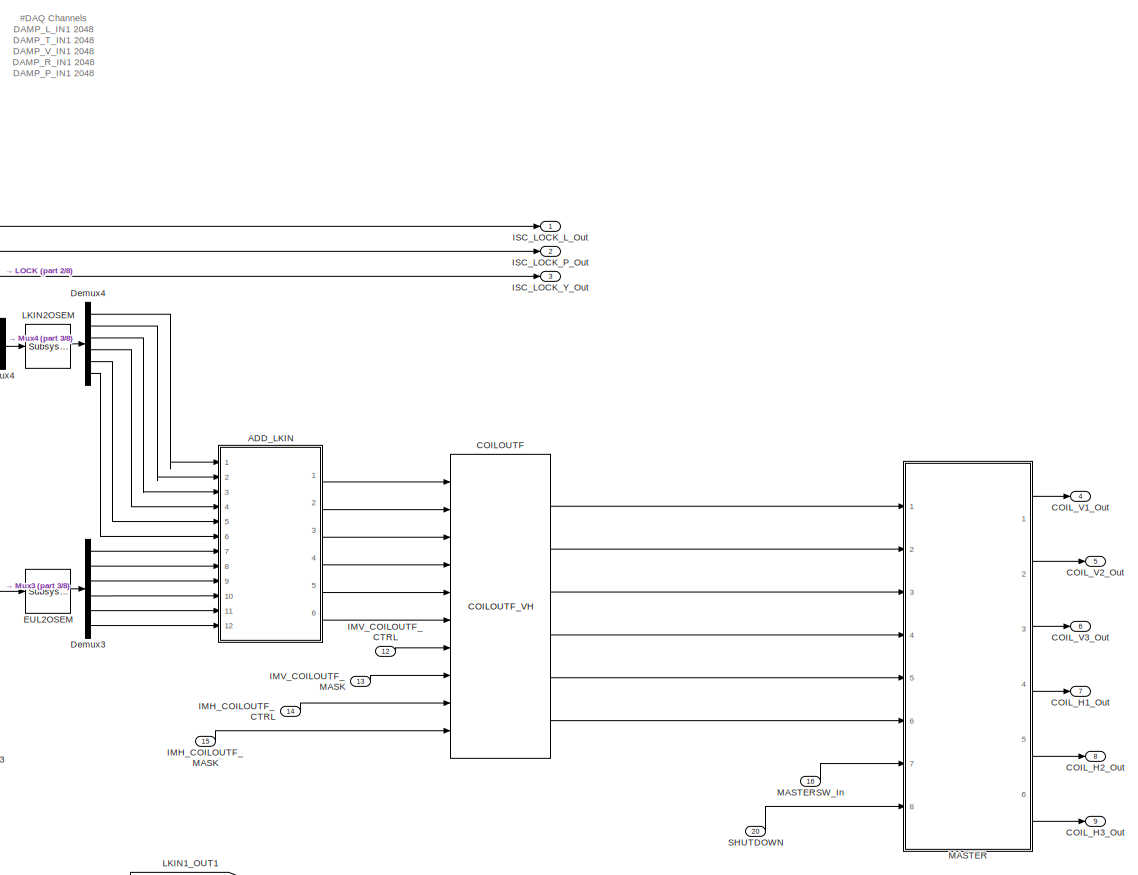
[diagram: SIXOSEM_F_STAGE_MASTER_shutdown - part 1/8, top right region]
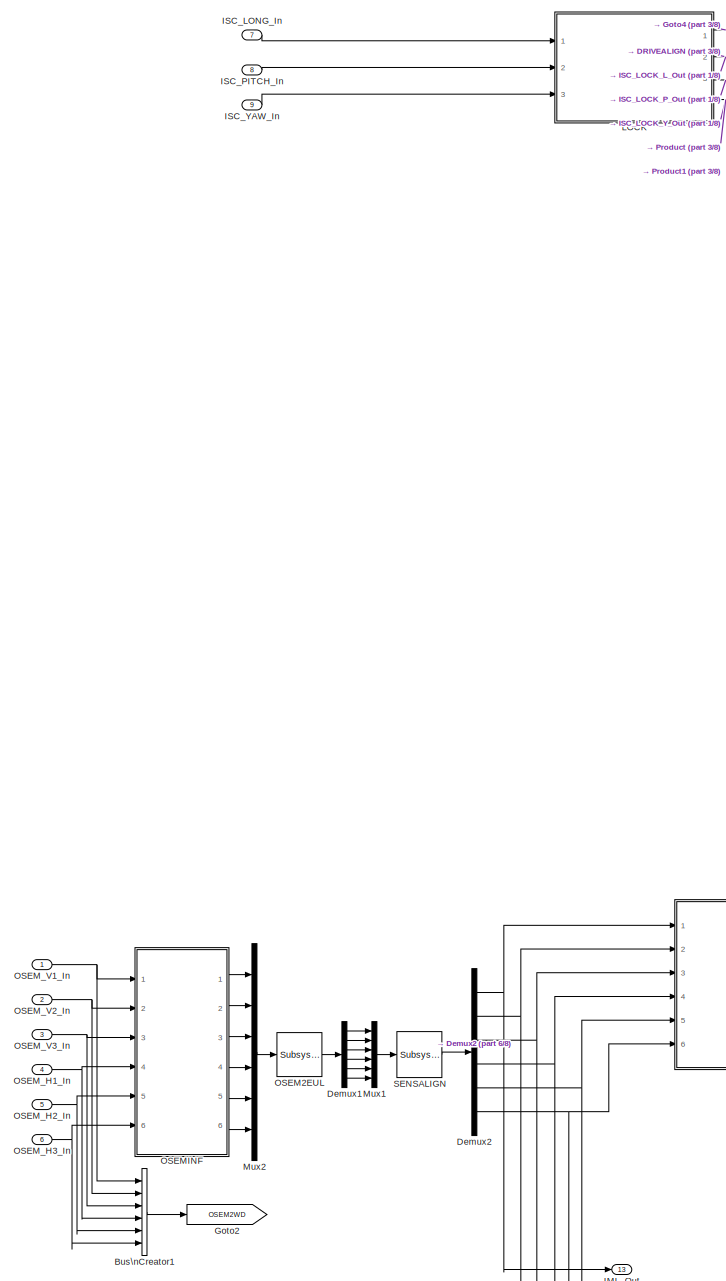
[diagram: SIXOSEM_F_STAGE_MASTER_shutdown - part 2/8, top left region]
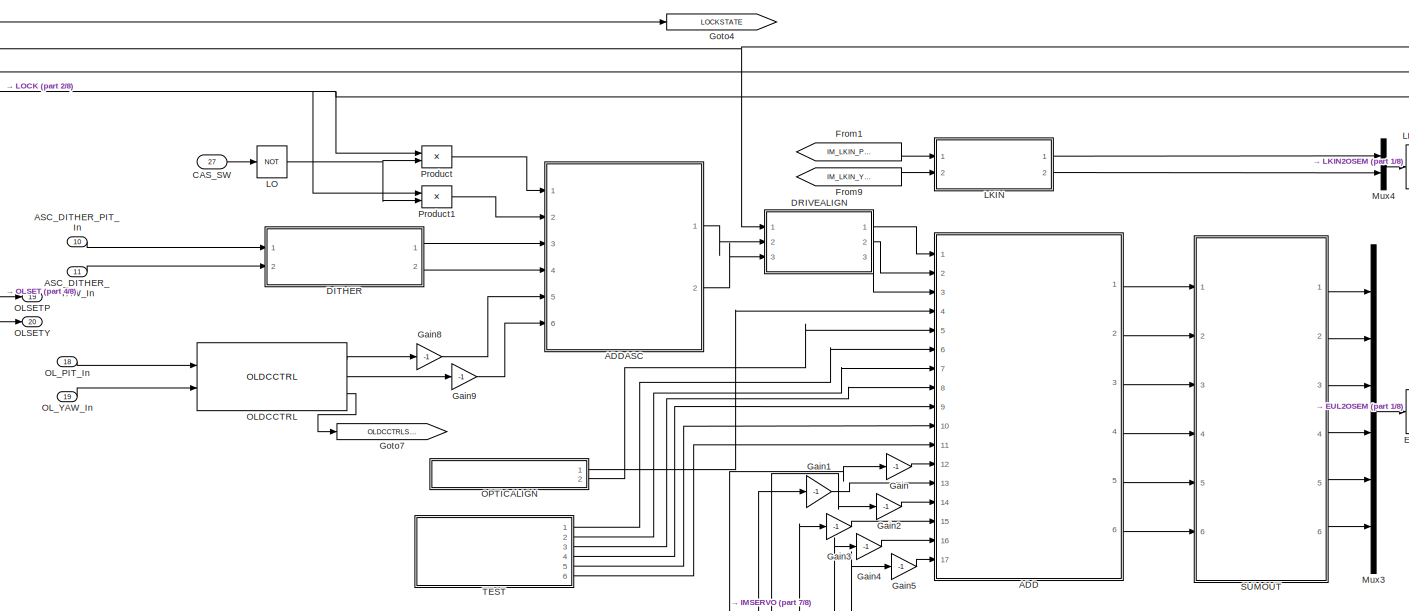
[diagram: SIXOSEM_F_STAGE_MASTER_shutdown - part 3/8, top center region]
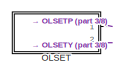
[diagram: SIXOSEM_F_STAGE_MASTER_shutdown - part 4/8, top left region]
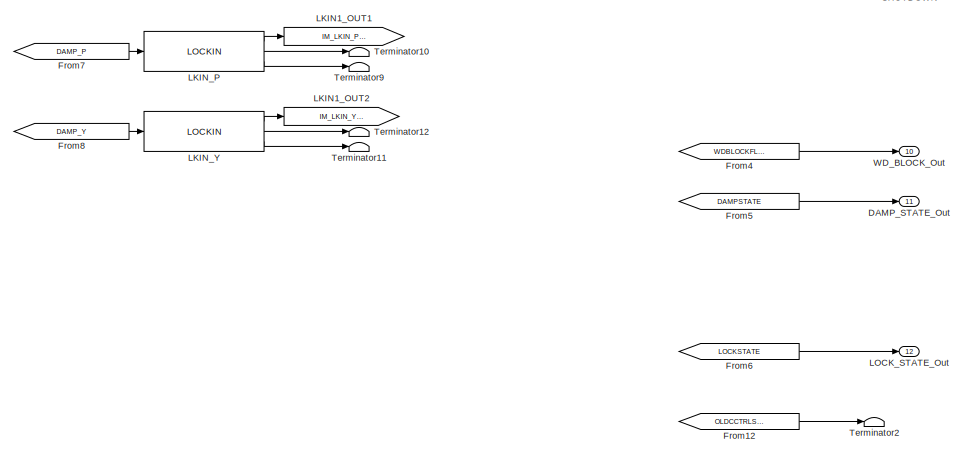
[diagram: SIXOSEM_F_STAGE_MASTER_shutdown - part 5/8, middle right region]
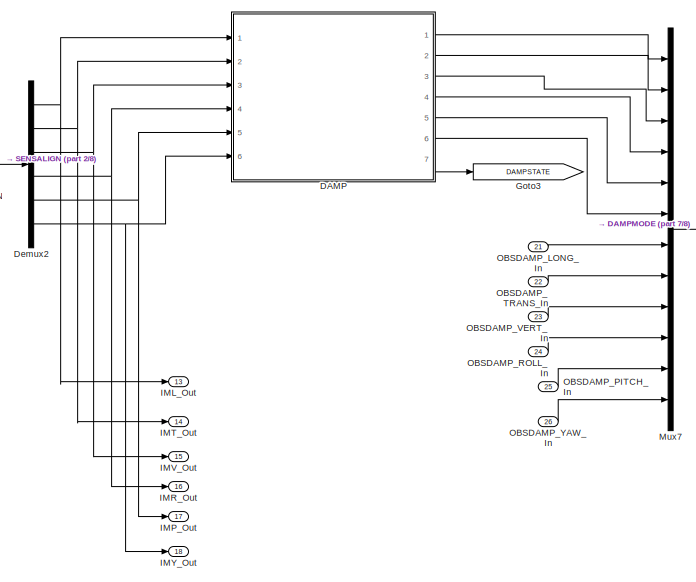
[diagram: SIXOSEM_F_STAGE_MASTER_shutdown - part 6/8, middle left region]
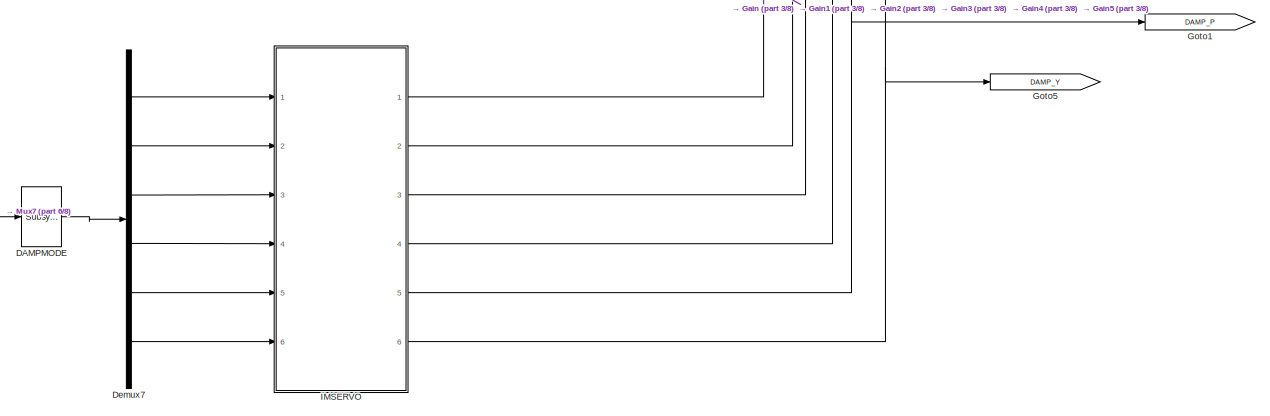
[diagram: SIXOSEM_F_STAGE_MASTER_shutdown - part 7/8, central region]
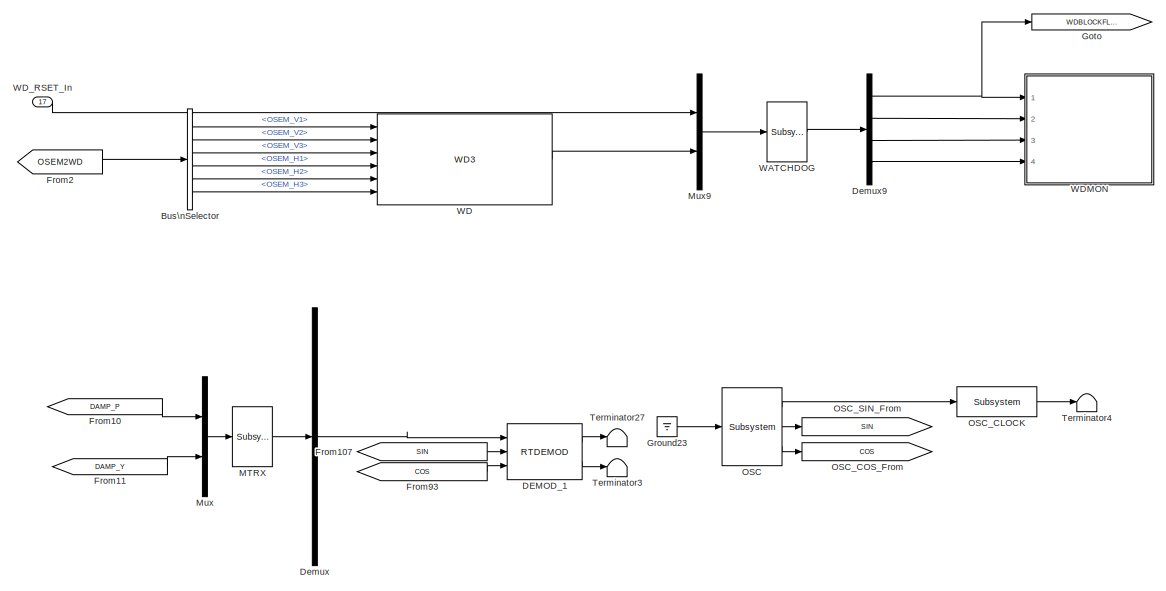
[diagram: SIXOSEM_F_STAGE_MASTER_shutdown - part 8/8, bottom center region]
BLOCK [SubSystem] SIXOSEM_F_STAGE_MASTER_shutdown
  Description = SIXOSEMSTAGE_FACE_MASTER
  Ports = [27, 20]
  RequestExecContextInheritance = off
  SID = 1954
  Variant = off
BLOCK [SubSystem] SIXOSEM_F_STAGE_MASTER_shutdown/ADD
  Ports = [17, 6]
  RequestExecContextInheritance = off
  SID = 1980
  Variant = off
BLOCK [Inport] SIXOSEM_F_STAGE_MASTER_shutdown/ADD/DAMP_L_In
  IconDisplay = Port number
  Port = 12
  SID = 1992
BLOCK [Inport] SIXOSEM_F_STAGE_MASTER_shutdown/ADD/DAMP_P_In
  IconDisplay = Port number
  Port = 16
  SID = 1996
BLOCK [Inport] SIXOSEM_F_STAGE_MASTER_shutdown/ADD/DAMP_R_In
  IconDisplay = Port number
  Port = 15
  SID = 1995
BLOCK [Inport] SIXOSEM_F_STAGE_MASTER_shutdown/ADD/DAMP_T_In
  IconDisplay = Port number
  Port = 13
  SID = 1993
BLOCK [Inport] SIXOSEM_F_STAGE_MASTER_shutdown/ADD/DAMP_V_In
  IconDisplay = Port number
  Port = 14
  SID = 1994
BLOCK [Inport] SIXOSEM_F_STAGE_MASTER_shutdown/ADD/DAMP_Y_In
  IconDisplay = Port number
  Port = 17
  SID = 1997
BLOCK [From] SIXOSEM_F_STAGE_MASTER_shutdown/ADD/From1
  CloseFcn = tagdialog Close
  GotoTag = TEST_L
  SID = 1998
BLOCK [From] SIXOSEM_F_STAGE_MASTER_shutdown/ADD/From10
  CloseFcn = tagdialog Close
  GotoTag = DAMP_Y
  SID = 1999
BLOCK [From] SIXOSEM_F_STAGE_MASTER_shutdown/ADD/From11
  CloseFcn = tagdialog Close
  GotoTag = OPTICALIGN_Y
  SID = 2000
BLOCK [From] SIXOSEM_F_STAGE_MASTER_shutdown/ADD/From12
  CloseFcn = tagdialog Close
  GotoTag = TEST_R
  SID = 2001
BLOCK [From] SIXOSEM_F_STAGE_MASTER_shutdown/ADD/From13
  CloseFcn = tagdialog Close
  GotoTag = DAMP_R
  SID = 2002
BLOCK [From] SIXOSEM_F_STAGE_MASTER_shutdown/ADD/From14
  CloseFcn = tagdialog Close
  GotoTag = TEST_V
  SID = 2003
BLOCK [From] SIXOSEM_F_STAGE_MASTER_shutdown/ADD/From15
  CloseFcn = tagdialog Close
  GotoTag = DAMP_V
  SID = 2004
BLOCK [From] SIXOSEM_F_STAGE_MASTER_shutdown/ADD/From16
  CloseFcn = tagdialog Close
  GotoTag = TEST_T
  SID = 2005
BLOCK [From] SIXOSEM_F_STAGE_MASTER_shutdown/ADD/From17
  CloseFcn = tagdialog Close
  GotoTag = DAMP_T
  SID = 2006
BLOCK [From] SIXOSEM_F_STAGE_MASTER_shutdown/ADD/From2
  CloseFcn = tagdialog Close
  GotoTag = ISC_L
  SID = 2007
BLOCK [From] SIXOSEM_F_STAGE_MASTER_shutdown/ADD/From3
  CloseFcn = tagdialog Close
  GotoTag = DAMP_L
  SID = 2008
BLOCK [From] SIXOSEM_F_STAGE_MASTER_shutdown/ADD/From4
  CloseFcn = tagdialog Close
  GotoTag = TEST_P
  SID = 2009
BLOCK [From] SIXOSEM_F_STAGE_MASTER_shutdown/ADD/From5
  CloseFcn = tagdialog Close
  GotoTag = ISC_P
  SID = 2010
BLOCK [From] SIXOSEM_F_STAGE_MASTER_shutdown/ADD/From6
  CloseFcn = tagdialog Close
  GotoTag = DAMP_P
  SID = 2011
BLOCK [From] SIXOSEM_F_STAGE_MASTER_shutdown/ADD/From7
  CloseFcn = tagdialog Close
  GotoTag = OPTICALIGN_P
  SID = 2012
BLOCK [From] SIXOSEM_F_STAGE_MASTER_shutdown/ADD/From8
  CloseFcn = tagdialog Close
  GotoTag = TEST_Y
  SID = 2013
BLOCK [From] SIXOSEM_F_STAGE_MASTER_shutdown/ADD/From9
  CloseFcn = tagdialog Close
  GotoTag = ISC_Y
  SID = 2014
BLOCK [Goto] SIXOSEM_F_STAGE_MASTER_shutdown/ADD/Goto
  GotoTag = ISC_L
  SID = 2015
BLOCK [Goto] SIXOSEM_F_STAGE_MASTER_shutdown/ADD/Goto1
  GotoTag = ISC_P
  SID = 2016
BLOCK [Goto] SIXOSEM_F_STAGE_MASTER_shutdown/ADD/Goto10
  GotoTag = TEST_V
  SID = 2017
BLOCK [Goto] SIXOSEM_F_STAGE_MASTER_shutdown/ADD/Goto11
  GotoTag = DAMP_V
  SID = 2018
BLOCK [Goto] SIXOSEM_F_STAGE_MASTER_shutdown/ADD/Goto12
  GotoTag = DAMP_L
  SID = 2019
BLOCK [Goto] SIXOSEM_F_STAGE_MASTER_shutdown/ADD/Goto13
  GotoTag = DAMP_P
  SID = 2020
BLOCK [Goto] SIXOSEM_F_STAGE_MASTER_shutdown/ADD/Goto14
  GotoTag = DAMP_Y
  SID = 2021
BLOCK [Goto] SIXOSEM_F_STAGE_MASTER_shutdown/ADD/Goto15
  GotoTag = DAMP_T
  SID = 2022
BLOCK [Goto] SIXOSEM_F_STAGE_MASTER_shutdown/ADD/Goto16
  GotoTag = DAMP_R
  SID = 2023
BLOCK [Goto] SIXOSEM_F_STAGE_MASTER_shutdown/ADD/Goto2
  GotoTag = ISC_Y
  SID = 2024
BLOCK [Goto] SIXOSEM_F_STAGE_MASTER_shutdown/ADD/Goto3
  GotoTag = TEST_L
  SID = 2025
BLOCK [Goto] SIXOSEM_F_STAGE_MASTER_shutdown/ADD/Goto4
  GotoTag = OPTICALIGN_P
  SID = 2026
BLOCK [Goto] SIXOSEM_F_STAGE_MASTER_shutdown/ADD/Goto5
  GotoTag = OPTICALIGN_Y
  SID = 2027
BLOCK [Goto] SIXOSEM_F_STAGE_MASTER_shutdown/ADD/Goto6
  GotoTag = TEST_P
  SID = 2028
BLOCK [Goto] SIXOSEM_F_STAGE_MASTER_shutdown/ADD/Goto7
  GotoTag = TEST_Y
  SID = 2029
BLOCK [Goto] SIXOSEM_F_STAGE_MASTER_shutdown/ADD/Goto8
  GotoTag = TEST_T
  SID = 2030
BLOCK [Goto] SIXOSEM_F_STAGE_MASTER_shutdown/ADD/Goto9
  GotoTag = TEST_R
  SID = 2031
BLOCK [Inport] SIXOSEM_F_STAGE_MASTER_shutdown/ADD/ISC_L_In
  IconDisplay = Port number
  SID = 1981
BLOCK [Inport] SIXOSEM_F_STAGE_MASTER_shutdown/ADD/ISC_P_In
  IconDisplay = Port number
  Port = 2
  SID = 1982
BLOCK [Inport] SIXOSEM_F_STAGE_MASTER_shutdown/ADD/ISC_Y_In
  IconDisplay = Port number
  Port = 3
  SID = 1983
BLOCK [Outport] SIXOSEM_F_STAGE_MASTER_shutdown/ADD/LONG_MAIN_Out
  IconDisplay = Port number
  SID = 2038
BLOCK [Inport] SIXOSEM_F_STAGE_MASTER_shutdown/ADD/OPTICALIGN_P_In
  IconDisplay = Port number
  Port = 4
  SID = 1984
BLOCK [Inport] SIXOSEM_F_STAGE_MASTER_shutdown/ADD/OPTICALIGN_Y_In
  IconDisplay = Port number
  Port = 5
  SID = 1985
BLOCK [Outport] SIXOSEM_F_STAGE_MASTER_shutdown/ADD/PITCH_MAIN_Out
  IconDisplay = Port number
  Port = 5
  SID = 2042
BLOCK [Outport] SIXOSEM_F_STAGE_MASTER_shutdown/ADD/ROLL_MAIN_Out
  IconDisplay = Port number
  Port = 4
  SID = 2041
BLOCK [Sum] SIXOSEM_F_STAGE_MASTER_shutdown/ADD/Sum
  InputSameDT = off
  Inputs = +++
  OutDataTypeStr = Inherit: Inherit via internal rule
  Ports = [3, 1]
  SID = 2032
  SaturateOnIntegerOverflow = off
BLOCK [Sum] SIXOSEM_F_STAGE_MASTER_shutdown/ADD/Sum1
  InputSameDT = off
  OutDataTypeStr = Inherit: Inherit via internal rule
  Ports = [2, 1]
  SID = 2033
  SaturateOnIntegerOverflow = off
BLOCK [Sum] SIXOSEM_F_STAGE_MASTER_shutdown/ADD/Sum2
  InputSameDT = off
  OutDataTypeStr = Inherit: Inherit via internal rule
  Ports = [2, 1]
  SID = 2034
  SaturateOnIntegerOverflow = off
BLOCK [Sum] SIXOSEM_F_STAGE_MASTER_shutdown/ADD/Sum3
  InputSameDT = off
  Inputs = ++++
  OutDataTypeStr = Inherit: Inherit via internal rule
  Ports = [4, 1]
  SID = 2035
  SaturateOnIntegerOverflow = off
BLOCK [Sum] SIXOSEM_F_STAGE_MASTER_shutdown/ADD/Sum4
  InputSameDT = off
  Inputs = ++++
  OutDataTypeStr = Inherit: Inherit via internal rule
  Ports = [4, 1]
  SID = 2036
  SaturateOnIntegerOverflow = off
BLOCK [Sum] SIXOSEM_F_STAGE_MASTER_shutdown/ADD/Sum5
  InputSameDT = off
  OutDataTypeStr = Inherit: Inherit via internal rule
  Ports = [2, 1]
  SID = 2037
  SaturateOnIntegerOverflow = off
BLOCK [Inport] SIXOSEM_F_STAGE_MASTER_shutdown/ADD/TEST_L_In
  IconDisplay = Port number
  Port = 6
  SID = 1986
BLOCK [Inport] SIXOSEM_F_STAGE_MASTER_shutdown/ADD/TEST_P_In
  IconDisplay = Port number
  Port = 10
  SID = 1990
BLOCK [Inport] SIXOSEM_F_STAGE_MASTER_shutdown/ADD/TEST_R_In
  IconDisplay = Port number
  Port = 9
  SID = 1989
BLOCK [Inport] SIXOSEM_F_STAGE_MASTER_shutdown/ADD/TEST_T_In
  IconDisplay = Port number
  Port = 7
  SID = 1987
BLOCK [Inport] SIXOSEM_F_STAGE_MASTER_shutdown/ADD/TEST_V_In
  IconDisplay = Port number
  Port = 8
  SID = 1988
BLOCK [Inport] SIXOSEM_F_STAGE_MASTER_shutdown/ADD/TEST_Y_In
  IconDisplay = Port number
  Port = 11
  SID = 1991
BLOCK [Outport] SIXOSEM_F_STAGE_MASTER_shutdown/ADD/TRANS_MAIN_Out
  IconDisplay = Port number
  Port = 2
  SID = 2039
BLOCK [Outport] SIXOSEM_F_STAGE_MASTER_shutdown/ADD/VERT_MAIN_Out
  IconDisplay = Port number
  Port = 3
  SID = 2040
BLOCK [Outport] SIXOSEM_F_STAGE_MASTER_shutdown/ADD/YAW_MAIN_Out
  IconDisplay = Port number
  Port = 6
  SID = 2043
BLOCK [SubSystem] SIXOSEM_F_STAGE_MASTER_shutdown/ADDASC
  Ports = [6, 2]
  RequestExecContextInheritance = off
  SID = 2044
  Variant = off
BLOCK [Inport] SIXOSEM_F_STAGE_MASTER_shutdown/ADDASC/DITHER_P_In
  IconDisplay = Port number
  Port = 3
  SID = 7704
BLOCK [Inport] SIXOSEM_F_STAGE_MASTER_shutdown/ADDASC/DITHER_Y_In
  IconDisplay = Port number
  Port = 4
  SID = 7705
BLOCK [Inport] SIXOSEM_F_STAGE_MASTER_shutdown/ADDASC/ISC_P_In
  IconDisplay = Port number
  SID = 7702
BLOCK [Inport] SIXOSEM_F_STAGE_MASTER_shutdown/ADDASC/ISC_Y_In
  IconDisplay = Port number
  Port = 2
  SID = 7703
BLOCK [Inport] SIXOSEM_F_STAGE_MASTER_shutdown/ADDASC/OLDCCTRL_P_In
  IconDisplay = Port number
  Port = 5
  SID = 7706
BLOCK [Inport] SIXOSEM_F_STAGE_MASTER_shutdown/ADDASC/OLDCCTRL_Y_In
  IconDisplay = Port number
  Port = 6
  SID = 7707
BLOCK [Outport] SIXOSEM_F_STAGE_MASTER_shutdown/ADDASC/PITCH_Out
  IconDisplay = Port number
  SID = 7710
BLOCK [Sum] SIXOSEM_F_STAGE_MASTER_shutdown/ADDASC/Sum3
  InputSameDT = off
  Inputs = +++
  OutDataTypeStr = Inherit: Inherit via internal rule
  Ports = [3, 1]
  SID = 7708
  SaturateOnIntegerOverflow = off
BLOCK [Sum] SIXOSEM_F_STAGE_MASTER_shutdown/ADDASC/Sum4
  InputSameDT = off
  Inputs = +++
  OutDataTypeStr = Inherit: Inherit via internal rule
  Ports = [3, 1]
  SID = 7709
  SaturateOnIntegerOverflow = off
BLOCK [Outport] SIXOSEM_F_STAGE_MASTER_shutdown/ADDASC/YAW_Out
  IconDisplay = Port number
  Port = 2
  SID = 7711
BLOCK [SubSystem] SIXOSEM_F_STAGE_MASTER_shutdown/ADD_LKIN
  Ports = [12, 6]
  RequestExecContextInheritance = off
  SID = 2045
  Variant = off
BLOCK [Outport] SIXOSEM_F_STAGE_MASTER_shutdown/ADD_LKIN/H1_Out
  IconDisplay = Port number
  Port = 4
  SID = 2067
BLOCK [Outport] SIXOSEM_F_STAGE_MASTER_shutdown/ADD_LKIN/H2_Out
  IconDisplay = Port number
  Port = 5
  SID = 2068
BLOCK [Outport] SIXOSEM_F_STAGE_MASTER_shutdown/ADD_LKIN/H3_Out
  IconDisplay = Port number
  Port = 6
  SID = 2069
BLOCK [Inport] SIXOSEM_F_STAGE_MASTER_shutdown/ADD_LKIN/LKIN_H1_In
  IconDisplay = Port number
  Port = 4
  SID = 2049
BLOCK [Inport] SIXOSEM_F_STAGE_MASTER_shutdown/ADD_LKIN/LKIN_H2_In
  IconDisplay = Port number
  Port = 5
  SID = 2050
BLOCK [Inport] SIXOSEM_F_STAGE_MASTER_shutdown/ADD_LKIN/LKIN_H3_In
  IconDisplay = Port number
  Port = 6
  SID = 2051
BLOCK [Inport] SIXOSEM_F_STAGE_MASTER_shutdown/ADD_LKIN/LKIN_V3_In
  IconDisplay = Port number
  Port = 3
  SID = 2048
BLOCK [Inport] SIXOSEM_F_STAGE_MASTER_shutdown/ADD_LKIN/LKN_V1_In
  IconDisplay = Port number
  SID = 2046
BLOCK [Inport] SIXOSEM_F_STAGE_MASTER_shutdown/ADD_LKIN/LKN_V2_In
  IconDisplay = Port number
  Port = 2
  SID = 2047
BLOCK [Inport] SIXOSEM_F_STAGE_MASTER_shutdown/ADD_LKIN/OSEM_H1_In
  IconDisplay = Port number
  Port = 10
  SID = 2055
BLOCK [Inport] SIXOSEM_F_STAGE_MASTER_shutdown/ADD_LKIN/OSEM_H2_In
  IconDisplay = Port number
  Port = 11
  SID = 2056
BLOCK [Inport] SIXOSEM_F_STAGE_MASTER_shutdown/ADD_LKIN/OSEM_H3_In
  IconDisplay = Port number
  Port = 12
  SID = 2057
BLOCK [Inport] SIXOSEM_F_STAGE_MASTER_shutdown/ADD_LKIN/OSEM_V1_In
  IconDisplay = Port number
  Port = 7
  SID = 2052
BLOCK [Inport] SIXOSEM_F_STAGE_MASTER_shutdown/ADD_LKIN/OSEM_V2_In
  IconDisplay = Port number
  Port = 8
  SID = 2053
BLOCK [Inport] SIXOSEM_F_STAGE_MASTER_shutdown/ADD_LKIN/OSEM_V3_In
  IconDisplay = Port number
  Port = 9
  SID = 2054
BLOCK [Sum] SIXOSEM_F_STAGE_MASTER_shutdown/ADD_LKIN/Sum
  InputSameDT = off
  OutDataTypeStr = Inherit: Inherit via internal rule
  Ports = [2, 1]
  SID = 2058
  SaturateOnIntegerOverflow = off
BLOCK [Sum] SIXOSEM_F_STAGE_MASTER_shutdown/ADD_LKIN/Sum1
  InputSameDT = off
  OutDataTypeStr = Inherit: Inherit via internal rule
  Ports = [2, 1]
  SID = 2059
  SaturateOnIntegerOverflow = off
BLOCK [Sum] SIXOSEM_F_STAGE_MASTER_shutdown/ADD_LKIN/Sum2
  InputSameDT = off
  OutDataTypeStr = Inherit: Inherit via internal rule
  Ports = [2, 1]
  SID = 2060
  SaturateOnIntegerOverflow = off
BLOCK [Sum] SIXOSEM_F_STAGE_MASTER_shutdown/ADD_LKIN/Sum3
  InputSameDT = off
  OutDataTypeStr = Inherit: Inherit via internal rule
  Ports = [2, 1]
  SID = 2061
  SaturateOnIntegerOverflow = off
BLOCK [Sum] SIXOSEM_F_STAGE_MASTER_shutdown/ADD_LKIN/Sum4
  InputSameDT = off
  OutDataTypeStr = Inherit: Inherit via internal rule
  Ports = [2, 1]
  SID = 2062
  SaturateOnIntegerOverflow = off
BLOCK [Sum] SIXOSEM_F_STAGE_MASTER_shutdown/ADD_LKIN/Sum5
  InputSameDT = off
  OutDataTypeStr = Inherit: Inherit via internal rule
  Ports = [2, 1]
  SID = 2063
  SaturateOnIntegerOverflow = off
BLOCK [Outport] SIXOSEM_F_STAGE_MASTER_shutdown/ADD_LKIN/V1_Out
  IconDisplay = Port number
  SID = 2064
BLOCK [Outport] SIXOSEM_F_STAGE_MASTER_shutdown/ADD_LKIN/V2_Out
  IconDisplay = Port number
  Port = 2
  SID = 2065
BLOCK [Outport] SIXOSEM_F_STAGE_MASTER_shutdown/ADD_LKIN/V3_Out
  IconDisplay = Port number
  Port = 3
  SID = 2066
BLOCK [Inport] SIXOSEM_F_STAGE_MASTER_shutdown/ASC_DITHER_PIT_In
  IconDisplay = Port number
  Port = 10
  SID = 1970
BLOCK [Inport] SIXOSEM_F_STAGE_MASTER_shutdown/ASC_DITHER_YAW_In
  IconDisplay = Port number
  Port = 11
  SID = 1971
BLOCK [BusCreator] SIXOSEM_F_STAGE_MASTER_shutdown/Bus\nCreator1
  DisplayOption = bar
  InheritFromInputs = on
  Inputs = 'OSEM_V1','OSEM_V2','OSEM_V3','OSEM_H1','OSEM_H2','OSEM_H3'
  Ports = [6, 1]
  SID = 2070
BLOCK [BusSelector] SIXOSEM_F_STAGE_MASTER_shutdown/Bus\nSelector
  OutputSignals = OSEM_V1,OSEM_V2,OSEM_V3,OSEM_H1,OSEM_H2,OSEM_H3
  Ports = [1, 6]
  SID = 2071
BLOCK [Inport] SIXOSEM_F_STAGE_MASTER_shutdown/CAS_SW
  IconDisplay = Port number
  Port = 27
  SID = 7188
BLOCK [Reference] SIXOSEM_F_STAGE_MASTER_shutdown/COILOUTF  REF=SIXOSEM_F_COILOUTF_MASTER/COILOUTF_VH
  Ports = [10, 6]
  SID = 2073
  SourceBlock = SIXOSEM_F_COILOUTF_MASTER/COILOUTF_VH
  SourceType = SubSystem
BLOCK [Outport] SIXOSEM_F_STAGE_MASTER_shutdown/COIL_H1_Out
  IconDisplay = Port number
  Port = 7
  SID = 2458
BLOCK [Outport] SIXOSEM_F_STAGE_MASTER_shutdown/COIL_H2_Out
  IconDisplay = Port number
  Port = 8
  SID = 2459
BLOCK [Outport] SIXOSEM_F_STAGE_MASTER_shutdown/COIL_H3_Out
  IconDisplay = Port number
  Port = 9
  SID = 2460
BLOCK [Outport] SIXOSEM_F_STAGE_MASTER_shutdown/COIL_V1_Out
  IconDisplay = Port number
  Port = 4
  SID = 2455
BLOCK [Outport] SIXOSEM_F_STAGE_MASTER_shutdown/COIL_V2_Out
  IconDisplay = Port number
  Port = 5
  SID = 2456
BLOCK [Outport] SIXOSEM_F_STAGE_MASTER_shutdown/COIL_V3_Out
  IconDisplay = Port number
  Port = 6
  SID = 2457
BLOCK [SubSystem] SIXOSEM_F_STAGE_MASTER_shutdown/DAMP
  Ports = [6, 7]
  RequestExecContextInheritance = off
  SID = 2074
  Variant = off
BLOCK [Outport] SIXOSEM_F_STAGE_MASTER_shutdown/DAMP/DAMP_STATE_Out
  IconDisplay = Port number
  Port = 7
  SID = 2131
BLOCK [Ground] SIXOSEM_F_STAGE_MASTER_shutdown/DAMP/Ground1
  SID = 2081
BLOCK [Ground] SIXOSEM_F_STAGE_MASTER_shutdown/DAMP/Ground10
  SID = 2082
BLOCK [Ground] SIXOSEM_F_STAGE_MASTER_shutdown/DAMP/Ground11
  SID = 2083
BLOCK [Ground] SIXOSEM_F_STAGE_MASTER_shutdown/DAMP/Ground12
  SID = 2084
BLOCK [Ground] SIXOSEM_F_STAGE_MASTER_shutdown/DAMP/Ground2
  SID = 2085
BLOCK [Ground] SIXOSEM_F_STAGE_MASTER_shutdown/DAMP/Ground3
  SID = 2086
BLOCK [Ground] SIXOSEM_F_STAGE_MASTER_shutdown/DAMP/Ground4
  SID = 2087
BLOCK [Ground] SIXOSEM_F_STAGE_MASTER_shutdown/DAMP/Ground5
  SID = 2088
BLOCK [Ground] SIXOSEM_F_STAGE_MASTER_shutdown/DAMP/Ground6
  SID = 2089
BLOCK [Ground] SIXOSEM_F_STAGE_MASTER_shutdown/DAMP/Ground7
  SID = 2090
BLOCK [Ground] SIXOSEM_F_STAGE_MASTER_shutdown/DAMP/Ground8
  SID = 2091
BLOCK [Ground] SIXOSEM_F_STAGE_MASTER_shutdown/DAMP/Ground9
  SID = 2092
BLOCK [Reference] SIXOSEM_F_STAGE_MASTER_shutdown/DAMP/L  REF=cdsFiltCtrl/IIR FM with control
  AttributesFormatString = %<Tag>
  Ports = [3, 2]
  SID = 2093
  SourceBlock = cdsFiltCtrl/IIR FM with control
  SourceType = SubSystem
  Tag = cdsFiltCtrl
BLOCK [Inport] SIXOSEM_F_STAGE_MASTER_shutdown/DAMP/LONG_In
  IconDisplay = Port number
  SID = 2075
BLOCK [Outport] SIXOSEM_F_STAGE_MASTER_shutdown/DAMP/LONG_Out
  IconDisplay = Port number
  SID = 2125
BLOCK [Reference] SIXOSEM_F_STAGE_MASTER_shutdown/DAMP/L_STATE_GOOD  REF=cdsEpicsIn/Subsystem
  AttributesFormatString = %<Tag>
  Ports = [0, 1]
  SID = 2094
  SourceBlock = cdsEpicsIn/Subsystem
  SourceType = SubSystem
  Tag = cdsEpicsIn
BLOCK [Reference] SIXOSEM_F_STAGE_MASTER_shutdown/DAMP/L_STATE_NOW  REF=cdsEpicsOut/Subsystem
  AttributesFormatString = %<Tag>
  Ports = [1, 1]
  SID = 2095
  SourceBlock = cdsEpicsOut/Subsystem
  SourceType = SubSystem
  Tag = cdsEpicsOutput
BLOCK [Reference] SIXOSEM_F_STAGE_MASTER_shutdown/DAMP/L_STATE_OK  REF=cdsEpicsOut/Subsystem
  AttributesFormatString = %<Tag>
  Ports = [1, 1]
  SID = 2096
  SourceBlock = cdsEpicsOut/Subsystem
  SourceType = SubSystem
  Tag = cdsEpicsOutput
BLOCK [RelationalOperator] SIXOSEM_F_STAGE_MASTER_shutdown/DAMP/Operator
  InputSameDT = off
  Operator = ==
  OutDataTypeStr = boolean
  Ports = [2, 1]
  SID = 2097
BLOCK [RelationalOperator] SIXOSEM_F_STAGE_MASTER_shutdown/DAMP/Operator1
  InputSameDT = off
  Operator = ==
  OutDataTypeStr = boolean
  Ports = [2, 1]
  SID = 2098
BLOCK [RelationalOperator] SIXOSEM_F_STAGE_MASTER_shutdown/DAMP/Operator2
  InputSameDT = off
  Operator = ==
  OutDataTypeStr = boolean
  Ports = [2, 1]
  SID = 2099
BLOCK [RelationalOperator] SIXOSEM_F_STAGE_MASTER_shutdown/DAMP/Operator3
  InputSameDT = off
  Operator = ==
  OutDataTypeStr = boolean
  Ports = [2, 1]
  SID = 2100
BLOCK [RelationalOperator] SIXOSEM_F_STAGE_MASTER_shutdown/DAMP/Operator4
  InputSameDT = off
  Operator = ==
  OutDataTypeStr = boolean
  Ports = [2, 1]
  SID = 2101
BLOCK [RelationalOperator] SIXOSEM_F_STAGE_MASTER_shutdown/DAMP/Operator5
  InputSameDT = off
  Operator = ==
  OutDataTypeStr = boolean
  Ports = [2, 1]
  SID = 2102
BLOCK [Reference] SIXOSEM_F_STAGE_MASTER_shutdown/DAMP/P  REF=cdsFiltCtrl/IIR FM with control
  AttributesFormatString = %<Tag>
  Ports = [3, 2]
  SID = 2103
  SourceBlock = cdsFiltCtrl/IIR FM with control
  SourceType = SubSystem
  Tag = cdsFiltCtrl
BLOCK [Inport] SIXOSEM_F_STAGE_MASTER_shutdown/DAMP/PITCH_In
  IconDisplay = Port number
  Port = 5
  SID = 2079
BLOCK [Outport] SIXOSEM_F_STAGE_MASTER_shutdown/DAMP/PITCH_Out
  IconDisplay = Port number
  Port = 5
  SID = 2129
BLOCK [Reference] SIXOSEM_F_STAGE_MASTER_shutdown/DAMP/P_STATE_GOOD  REF=cdsEpicsIn/Subsystem
  AttributesFormatString = %<Tag>
  Ports = [0, 1]
  SID = 2104
  SourceBlock = cdsEpicsIn/Subsystem
  SourceType = SubSystem
  Tag = cdsEpicsIn
BLOCK [Reference] SIXOSEM_F_STAGE_MASTER_shutdown/DAMP/P_STATE_NOW  REF=cdsEpicsOut/Subsystem
  AttributesFormatString = %<Tag>
  Ports = [1, 1]
  SID = 2105
  SourceBlock = cdsEpicsOut/Subsystem
  SourceType = SubSystem
  Tag = cdsEpicsOutput
BLOCK [Reference] SIXOSEM_F_STAGE_MASTER_shutdown/DAMP/P_STATE_OK  REF=cdsEpicsOut/Subsystem
  AttributesFormatString = %<Tag>
  Ports = [1, 1]
  SID = 2106
  SourceBlock = cdsEpicsOut/Subsystem
  SourceType = SubSystem
  Tag = cdsEpicsOutput
BLOCK [Product] SIXOSEM_F_STAGE_MASTER_shutdown/DAMP/Product
  InputSameDT = off
  Inputs = 6
  OutDataTypeStr = Inherit: Inherit via internal rule
  Ports = [6, 1]
  SID = 2107
  SaturateOnIntegerOverflow = off
BLOCK [Reference] SIXOSEM_F_STAGE_MASTER_shutdown/DAMP/R  REF=cdsFiltCtrl/IIR FM with control
  AttributesFormatString = %<Tag>
  Ports = [3, 2]
  SID = 2108
  SourceBlock = cdsFiltCtrl/IIR FM with control
  SourceType = SubSystem
  Tag = cdsFiltCtrl
BLOCK [Inport] SIXOSEM_F_STAGE_MASTER_shutdown/DAMP/ROLL_In
  IconDisplay = Port number
  Port = 4
  SID = 2078
BLOCK [Outport] SIXOSEM_F_STAGE_MASTER_shutdown/DAMP/ROLL_Out
  IconDisplay = Port number
  Port = 4
  SID = 2128
BLOCK [Reference] SIXOSEM_F_STAGE_MASTER_shutdown/DAMP/R_STATE_GOOD  REF=cdsEpicsIn/Subsystem
  AttributesFormatString = %<Tag>
  Ports = [0, 1]
  SID = 2109
  SourceBlock = cdsEpicsIn/Subsystem
  SourceType = SubSystem
  Tag = cdsEpicsIn
BLOCK [Reference] SIXOSEM_F_STAGE_MASTER_shutdown/DAMP/R_STATE_NOW  REF=cdsEpicsOut/Subsystem
  AttributesFormatString = %<Tag>
  Ports = [1, 1]
  SID = 2110
  SourceBlock = cdsEpicsOut/Subsystem
  SourceType = SubSystem
  Tag = cdsEpicsOutput
BLOCK [Reference] SIXOSEM_F_STAGE_MASTER_shutdown/DAMP/R_STATE_OK  REF=cdsEpicsOut/Subsystem
  AttributesFormatString = %<Tag>
  Ports = [1, 1]
  SID = 2111
  SourceBlock = cdsEpicsOut/Subsystem
  SourceType = SubSystem
  Tag = cdsEpicsOutput
BLOCK [Reference] SIXOSEM_F_STAGE_MASTER_shutdown/DAMP/STATE_OK  REF=cdsEpicsOut/Subsystem
  AttributesFormatString = %<Tag>
  Ports = [1, 1]
  SID = 2112
  SourceBlock = cdsEpicsOut/Subsystem
  SourceType = SubSystem
  Tag = cdsEpicsOutput
BLOCK [Reference] SIXOSEM_F_STAGE_MASTER_shutdown/DAMP/T  REF=cdsFiltCtrl/IIR FM with control
  AttributesFormatString = %<Tag>
  Ports = [3, 2]
  SID = 2113
  SourceBlock = cdsFiltCtrl/IIR FM with control
  SourceType = SubSystem
  Tag = cdsFiltCtrl
BLOCK [Inport] SIXOSEM_F_STAGE_MASTER_shutdown/DAMP/TRANS_In
  IconDisplay = Port number
  Port = 2
  SID = 2076
BLOCK [Outport] SIXOSEM_F_STAGE_MASTER_shutdown/DAMP/TRANS_Out
  IconDisplay = Port number
  Port = 2
  SID = 2126
BLOCK [Reference] SIXOSEM_F_STAGE_MASTER_shutdown/DAMP/T_STATE_GOOD  REF=cdsEpicsIn/Subsystem
  AttributesFormatString = %<Tag>
  Ports = [0, 1]
  SID = 2114
  SourceBlock = cdsEpicsIn/Subsystem
  SourceType = SubSystem
  Tag = cdsEpicsIn
BLOCK [Reference] SIXOSEM_F_STAGE_MASTER_shutdown/DAMP/T_STATE_NOW  REF=cdsEpicsOut/Subsystem
  AttributesFormatString = %<Tag>
  Ports = [1, 1]
  SID = 2115
  SourceBlock = cdsEpicsOut/Subsystem
  SourceType = SubSystem
  Tag = cdsEpicsOutput
BLOCK [Reference] SIXOSEM_F_STAGE_MASTER_shutdown/DAMP/T_STATE_OK  REF=cdsEpicsOut/Subsystem
  AttributesFormatString = %<Tag>
  Ports = [1, 1]
  SID = 2116
  SourceBlock = cdsEpicsOut/Subsystem
  SourceType = SubSystem
  Tag = cdsEpicsOutput
BLOCK [Reference] SIXOSEM_F_STAGE_MASTER_shutdown/DAMP/V  REF=cdsFiltCtrl/IIR FM with control
  AttributesFormatString = %<Tag>
  Ports = [3, 2]
  SID = 2117
  SourceBlock = cdsFiltCtrl/IIR FM with control
  SourceType = SubSystem
  Tag = cdsFiltCtrl
BLOCK [Inport] SIXOSEM_F_STAGE_MASTER_shutdown/DAMP/VERT_In
  IconDisplay = Port number
  Port = 3
  SID = 2077
BLOCK [Outport] SIXOSEM_F_STAGE_MASTER_shutdown/DAMP/VERT_Out
  IconDisplay = Port number
  Port = 3
  SID = 2127
BLOCK [Reference] SIXOSEM_F_STAGE_MASTER_shutdown/DAMP/V_STATE_GOOD  REF=cdsEpicsIn/Subsystem
  AttributesFormatString = %<Tag>
  Ports = [0, 1]
  SID = 2118
  SourceBlock = cdsEpicsIn/Subsystem
  SourceType = SubSystem
  Tag = cdsEpicsIn
BLOCK [Reference] SIXOSEM_F_STAGE_MASTER_shutdown/DAMP/V_STATE_NOW  REF=cdsEpicsOut/Subsystem
  AttributesFormatString = %<Tag>
  Ports = [1, 1]
  SID = 2119
  SourceBlock = cdsEpicsOut/Subsystem
  SourceType = SubSystem
  Tag = cdsEpicsOutput
BLOCK [Reference] SIXOSEM_F_STAGE_MASTER_shutdown/DAMP/V_STATE_OK  REF=cdsEpicsOut/Subsystem
  AttributesFormatString = %<Tag>
  Ports = [1, 1]
  SID = 2120
  SourceBlock = cdsEpicsOut/Subsystem
  SourceType = SubSystem
  Tag = cdsEpicsOutput
BLOCK [Reference] SIXOSEM_F_STAGE_MASTER_shutdown/DAMP/Y  REF=cdsFiltCtrl/IIR FM with control
  AttributesFormatString = %<Tag>
  Ports = [3, 2]
  SID = 2121
  SourceBlock = cdsFiltCtrl/IIR FM with control
  SourceType = SubSystem
  Tag = cdsFiltCtrl
BLOCK [Inport] SIXOSEM_F_STAGE_MASTER_shutdown/DAMP/YAW_In
  IconDisplay = Port number
  Port = 6
  SID = 2080
BLOCK [Outport] SIXOSEM_F_STAGE_MASTER_shutdown/DAMP/YAW_Out
  IconDisplay = Port number
  Port = 6
  SID = 2130
BLOCK [Reference] SIXOSEM_F_STAGE_MASTER_shutdown/DAMP/Y_STATE_GOOD  REF=cdsEpicsIn/Subsystem
  AttributesFormatString = %<Tag>
  Ports = [0, 1]
  SID = 2122
  SourceBlock = cdsEpicsIn/Subsystem
  SourceType = SubSystem
  Tag = cdsEpicsIn
BLOCK [Reference] SIXOSEM_F_STAGE_MASTER_shutdown/DAMP/Y_STATE_NOW  REF=cdsEpicsOut/Subsystem
  AttributesFormatString = %<Tag>
  Ports = [1, 1]
  SID = 2123
  SourceBlock = cdsEpicsOut/Subsystem
  SourceType = SubSystem
  Tag = cdsEpicsOutput
BLOCK [Reference] SIXOSEM_F_STAGE_MASTER_shutdown/DAMP/Y_STATE_OK  REF=cdsEpicsOut/Subsystem
  AttributesFormatString = %<Tag>
  Ports = [1, 1]
  SID = 2124
  SourceBlock = cdsEpicsOut/Subsystem
  SourceType = SubSystem
  Tag = cdsEpicsOutput
BLOCK [Reference] SIXOSEM_F_STAGE_MASTER_shutdown/DAMPMODE  REF=cdsRampMuxMatrix/Subsystem
  AttributesFormatString = %<Tag>
  Ports = [1, 1]
  SID = 3469
  SourceBlock = cdsRampMuxMatrix/Subsystem
  SourceType = SubSystem
  Tag = cdsRampMuxMatrix
BLOCK [Outport] SIXOSEM_F_STAGE_MASTER_shutdown/DAMP_STATE_Out
  IconDisplay = Port number
  Port = 11
  SID = 2462
BLOCK [Reference] SIXOSEM_F_STAGE_MASTER_shutdown/DEMOD_1  REF=rtdemod/RTDEMOD
  Ports = [3, 2]
  SID = 2136
  SourceBlock = rtdemod/RTDEMOD
  SourceType = SubSystem
  Tag = top_names
BLOCK [SubSystem] SIXOSEM_F_STAGE_MASTER_shutdown/DITHER
  Ports = [2, 2]
  RequestExecContextInheritance = off
  SID = 2137
  Variant = off
BLOCK [Reference] SIXOSEM_F_STAGE_MASTER_shutdown/DITHER/P  REF=cdsFilt/Subsystem
  AttributesFormatString = %<Tag>
  Ports = [1, 1]
  SID = 2140
  SourceBlock = cdsFilt/Subsystem
  SourceType = SubSystem
  Tag = cdsFilt
BLOCK [Inport] SIXOSEM_F_STAGE_MASTER_shutdown/DITHER/PIT_In
  IconDisplay = Port number
  SID = 2138
BLOCK [Outport] SIXOSEM_F_STAGE_MASTER_shutdown/DITHER/PIT_Out
  IconDisplay = Port number
  SID = 2142
BLOCK [Reference] SIXOSEM_F_STAGE_MASTER_shutdown/DITHER/Y  REF=cdsFilt/Subsystem
  AttributesFormatString = %<Tag>
  Ports = [1, 1]
  SID = 2141
  SourceBlock = cdsFilt/Subsystem
  SourceType = SubSystem
  Tag = cdsFilt
BLOCK [Inport] SIXOSEM_F_STAGE_MASTER_shutdown/DITHER/YAW_In
  IconDisplay = Port number
  Port = 2
  SID = 2139
BLOCK [Outport] SIXOSEM_F_STAGE_MASTER_shutdown/DITHER/YAW_Out
  IconDisplay = Port number
  Port = 2
  SID = 2143
BLOCK [SubSystem] SIXOSEM_F_STAGE_MASTER_shutdown/DRIVEALIGN
  Ports = [3, 3]
  RequestExecContextInheritance = off
  SID = 2144
  Variant = off
BLOCK [Reference] SIXOSEM_F_STAGE_MASTER_shutdown/DRIVEALIGN/L2L  REF=cdsFilt/Subsystem
  AttributesFormatString = %<Tag>
  Ports = [1, 1]
  SID = 2148
  SourceBlock = cdsFilt/Subsystem
  SourceType = SubSystem
  Tag = cdsFilt
BLOCK [Reference] SIXOSEM_F_STAGE_MASTER_shutdown/DRIVEALIGN/L2P  REF=cdsFilt/Subsystem
  AttributesFormatString = %<Tag>
  Ports = [1, 1]
  SID = 2149
  SourceBlock = cdsFilt/Subsystem
  SourceType = SubSystem
  Tag = cdsFilt
BLOCK [Reference] SIXOSEM_F_STAGE_MASTER_shutdown/DRIVEALIGN/L2Y  REF=cdsFilt/Subsystem
  AttributesFormatString = %<Tag>
  Ports = [1, 1]
  SID = 2150
  SourceBlock = cdsFilt/Subsystem
  SourceType = SubSystem
  Tag = cdsFilt
BLOCK [Inport] SIXOSEM_F_STAGE_MASTER_shutdown/DRIVEALIGN/LONG_In
  IconDisplay = Port number
  SID = 2145
BLOCK [Outport] SIXOSEM_F_STAGE_MASTER_shutdown/DRIVEALIGN/LONG_Out
  IconDisplay = Port number
  SID = 2172
BLOCK [Reference] SIXOSEM_F_STAGE_MASTER_shutdown/DRIVEALIGN/L_IN  REF=cdsTP/Subsystem
  AttributesFormatString = %<Tag>
  Ports = [1]
  SID = 2151
  SourceBlock = cdsTP/Subsystem
  SourceType = SubSystem
  Tag = Test Point
BLOCK [Reference] SIXOSEM_F_STAGE_MASTER_shutdown/DRIVEALIGN/L_INMON  REF=cdsEpicsOut/Subsystem
  AttributesFormatString = %<Tag>
  Ports = [1, 1]
  SID = 2152
  SourceBlock = cdsEpicsOut/Subsystem
  SourceType = SubSystem
  Tag = cdsEpicsOutput
BLOCK [Reference] SIXOSEM_F_STAGE_MASTER_shutdown/DRIVEALIGN/L_OUT  REF=cdsTP/Subsystem
  AttributesFormatString = %<Tag>
  Ports = [1]
  SID = 2153
  SourceBlock = cdsTP/Subsystem
  SourceType = SubSystem
  Tag = Test Point
BLOCK [Reference] SIXOSEM_F_STAGE_MASTER_shutdown/DRIVEALIGN/L_OUTMON  REF=cdsEpicsOut/Subsystem
  AttributesFormatString = %<Tag>
  Ports = [1, 1]
  SID = 2154
  SourceBlock = cdsEpicsOut/Subsystem
  SourceType = SubSystem
  Tag = cdsEpicsOutput
BLOCK [Reference] SIXOSEM_F_STAGE_MASTER_shutdown/DRIVEALIGN/P2L  REF=cdsFilt/Subsystem
  AttributesFormatString = %<Tag>
  Ports = [1, 1]
  SID = 2155
  SourceBlock = cdsFilt/Subsystem
  SourceType = SubSystem
  Tag = cdsFilt
BLOCK [Reference] SIXOSEM_F_STAGE_MASTER_shutdown/DRIVEALIGN/P2P  REF=cdsFilt/Subsystem
  AttributesFormatString = %<Tag>
  Ports = [1, 1]
  SID = 2156
  SourceBlock = cdsFilt/Subsystem
  SourceType = SubSystem
  Tag = cdsFilt
BLOCK [Reference] SIXOSEM_F_STAGE_MASTER_shutdown/DRIVEALIGN/P2Y  REF=cdsFilt/Subsystem
  AttributesFormatString = %<Tag>
  Ports = [1, 1]
  SID = 2157
  SourceBlock = cdsFilt/Subsystem
  SourceType = SubSystem
  Tag = cdsFilt
BLOCK [Inport] SIXOSEM_F_STAGE_MASTER_shutdown/DRIVEALIGN/PITCH_In
  IconDisplay = Port number
  Port = 2
  SID = 2146
BLOCK [Outport] SIXOSEM_F_STAGE_MASTER_shutdown/DRIVEALIGN/PITCH_Out
  IconDisplay = Port number
  Port = 2
  SID = 2173
BLOCK [Reference] SIXOSEM_F_STAGE_MASTER_shutdown/DRIVEALIGN/P_IN  REF=cdsTP/Subsystem
  AttributesFormatString = %<Tag>
  Ports = [1]
  SID = 2158
  SourceBlock = cdsTP/Subsystem
  SourceType = SubSystem
  Tag = Test Point
BLOCK [Reference] SIXOSEM_F_STAGE_MASTER_shutdown/DRIVEALIGN/P_INMON  REF=cdsEpicsOut/Subsystem
  AttributesFormatString = %<Tag>
  Ports = [1, 1]
  SID = 2159
  SourceBlock = cdsEpicsOut/Subsystem
  SourceType = SubSystem
  Tag = cdsEpicsOutput
BLOCK [Reference] SIXOSEM_F_STAGE_MASTER_shutdown/DRIVEALIGN/P_OUT  REF=cdsTP/Subsystem
  AttributesFormatString = %<Tag>
  Ports = [1]
  SID = 2160
  SourceBlock = cdsTP/Subsystem
  SourceType = SubSystem
  Tag = Test Point
BLOCK [Reference] SIXOSEM_F_STAGE_MASTER_shutdown/DRIVEALIGN/P_OUTMON  REF=cdsEpicsOut/Subsystem
  AttributesFormatString = %<Tag>
  Ports = [1, 1]
  SID = 2161
  SourceBlock = cdsEpicsOut/Subsystem
  SourceType = SubSystem
  Tag = cdsEpicsOutput
BLOCK [Sum] SIXOSEM_F_STAGE_MASTER_shutdown/DRIVEALIGN/Sum
  InputSameDT = off
  Inputs = +++
  OutDataTypeStr = Inherit: Inherit via internal rule
  Ports = [3, 1]
  SID = 2162
  SaturateOnIntegerOverflow = off
BLOCK [Sum] SIXOSEM_F_STAGE_MASTER_shutdown/DRIVEALIGN/Sum1
  InputSameDT = off
  Inputs = +++
  OutDataTypeStr = Inherit: Inherit via internal rule
  Ports = [3, 1]
  SID = 2163
  SaturateOnIntegerOverflow = off
BLOCK [Sum] SIXOSEM_F_STAGE_MASTER_shutdown/DRIVEALIGN/Sum2
  InputSameDT = off
  Inputs = +++
  OutDataTypeStr = Inherit: Inherit via internal rule
  Ports = [3, 1]
  SID = 2164
  SaturateOnIntegerOverflow = off
BLOCK [Reference] SIXOSEM_F_STAGE_MASTER_shutdown/DRIVEALIGN/Y2L  REF=cdsFilt/Subsystem
  AttributesFormatString = %<Tag>
  Ports = [1, 1]
  SID = 2165
  SourceBlock = cdsFilt/Subsystem
  SourceType = SubSystem
  Tag = cdsFilt
BLOCK [Reference] SIXOSEM_F_STAGE_MASTER_shutdown/DRIVEALIGN/Y2P  REF=cdsFilt/Subsystem
  AttributesFormatString = %<Tag>
  Ports = [1, 1]
  SID = 2166
  SourceBlock = cdsFilt/Subsystem
  SourceType = SubSystem
  Tag = cdsFilt
BLOCK [Reference] SIXOSEM_F_STAGE_MASTER_shutdown/DRIVEALIGN/Y2Y  REF=cdsFilt/Subsystem
  AttributesFormatString = %<Tag>
  Ports = [1, 1]
  SID = 2167
  SourceBlock = cdsFilt/Subsystem
  SourceType = SubSystem
  Tag = cdsFilt
BLOCK [Inport] SIXOSEM_F_STAGE_MASTER_shutdown/DRIVEALIGN/YAW_In
  IconDisplay = Port number
  Port = 3
  SID = 2147
BLOCK [Outport] SIXOSEM_F_STAGE_MASTER_shutdown/DRIVEALIGN/YAW_Out
  IconDisplay = Port number
  Port = 3
  SID = 2174
BLOCK [Reference] SIXOSEM_F_STAGE_MASTER_shutdown/DRIVEALIGN/Y_IN  REF=cdsTP/Subsystem
  AttributesFormatString = %<Tag>
  Ports = [1]
  SID = 2168
  SourceBlock = cdsTP/Subsystem
  SourceType = SubSystem
  Tag = Test Point
BLOCK [Reference] SIXOSEM_F_STAGE_MASTER_shutdown/DRIVEALIGN/Y_INMON  REF=cdsEpicsOut/Subsystem
  AttributesFormatString = %<Tag>
  Ports = [1, 1]
  SID = 2169
  SourceBlock = cdsEpicsOut/Subsystem
  SourceType = SubSystem
  Tag = cdsEpicsOutput
BLOCK [Reference] SIXOSEM_F_STAGE_MASTER_shutdown/DRIVEALIGN/Y_OUT  REF=cdsTP/Subsystem
  AttributesFormatString = %<Tag>
  Ports = [1]
  SID = 2170
  SourceBlock = cdsTP/Subsystem
  SourceType = SubSystem
  Tag = Test Point
BLOCK [Reference] SIXOSEM_F_STAGE_MASTER_shutdown/DRIVEALIGN/Y_OUTMON  REF=cdsEpicsOut/Subsystem
  AttributesFormatString = %<Tag>
  Ports = [1, 1]
  SID = 2171
  SourceBlock = cdsEpicsOut/Subsystem
  SourceType = SubSystem
  Tag = cdsEpicsOutput
BLOCK [Demux] SIXOSEM_F_STAGE_MASTER_shutdown/Demux
  DisplayOption = bar
  Outputs = 1
  Ports = [1, 1]
  SID = 2176
BLOCK [Demux] SIXOSEM_F_STAGE_MASTER_shutdown/Demux1
  DisplayOption = bar
  Outputs = 6
  Ports = [1, 6]
  SID = 2177
BLOCK [Demux] SIXOSEM_F_STAGE_MASTER_shutdown/Demux2
  DisplayOption = bar
  Outputs = 6
  Ports = [1, 6]
  SID = 2178
BLOCK [Demux] SIXOSEM_F_STAGE_MASTER_shutdown/Demux3
  DisplayOption = bar
  Outputs = 6
  Ports = [1, 6]
  SID = 2179
BLOCK [Demux] SIXOSEM_F_STAGE_MASTER_shutdown/Demux4
  DisplayOption = bar
  Outputs = 6
  Ports = [1, 6]
  SID = 2180
BLOCK [Demux] SIXOSEM_F_STAGE_MASTER_shutdown/Demux7
  DisplayOption = bar
  Outputs = 6
  Ports = [1, 6]
  SID = 3467
BLOCK [Demux] SIXOSEM_F_STAGE_MASTER_shutdown/Demux9
  DisplayOption = bar
  Ports = [1, 4]
  SID = 2182
BLOCK [Reference] SIXOSEM_F_STAGE_MASTER_shutdown/EUL2OSEM  REF=cdsMuxMatrix/Subsystem
  AttributesFormatString = %<Tag>
  Description = Any size matrix. Inputs and outputs must be connected using Mux and Demux parts.
  Ports = [1, 1]
  SID = 2183
  SourceBlock = cdsMuxMatrix/Subsystem
  SourceType = SubSystem
  Tag = cdsMuxMatrix
BLOCK [From] SIXOSEM_F_STAGE_MASTER_shutdown/From1
  CloseFcn = tagdialog Close
  GotoTag = IM_LKIN_P_EXC
  SID = 2184
BLOCK [From] SIXOSEM_F_STAGE_MASTER_shutdown/From10
  CloseFcn = tagdialog Close
  GotoTag = DAMP_P
  SID = 2185
BLOCK [From] SIXOSEM_F_STAGE_MASTER_shutdown/From107
  GotoTag = SIN
  SID = 2186
BLOCK [From] SIXOSEM_F_STAGE_MASTER_shutdown/From11
  CloseFcn = tagdialog Close
  GotoTag = DAMP_Y
  SID = 2187
BLOCK [From] SIXOSEM_F_STAGE_MASTER_shutdown/From12
  CloseFcn = tagdialog Close
  GotoTag = OLDCCTRLSTATE
  SID = 2188
BLOCK [From] SIXOSEM_F_STAGE_MASTER_shutdown/From2
  CloseFcn = tagdialog Close
  GotoTag = OSEM2WD
  SID = 2189
BLOCK [From] SIXOSEM_F_STAGE_MASTER_shutdown/From4
  CloseFcn = tagdialog Close
  GotoTag = WDBLOCKFLAG
  SID = 2191
BLOCK [From] SIXOSEM_F_STAGE_MASTER_shutdown/From5
  CloseFcn = tagdialog Close
  GotoTag = DAMPSTATE
  SID = 2192
BLOCK [From] SIXOSEM_F_STAGE_MASTER_shutdown/From6
  CloseFcn = tagdialog Close
  GotoTag = LOCKSTATE
  SID = 2193
BLOCK [From] SIXOSEM_F_STAGE_MASTER_shutdown/From7
  CloseFcn = tagdialog Close
  GotoTag = DAMP_P
  SID = 2194
BLOCK [From] SIXOSEM_F_STAGE_MASTER_shutdown/From8
  CloseFcn = tagdialog Close
  GotoTag = DAMP_Y
  SID = 2195
BLOCK [From] SIXOSEM_F_STAGE_MASTER_shutdown/From9
  CloseFcn = tagdialog Close
  GotoTag = IM_LKIN_Y_EXC
  SID = 2196
BLOCK [From] SIXOSEM_F_STAGE_MASTER_shutdown/From93
  GotoTag = COS
  SID = 2197
BLOCK [Gain] SIXOSEM_F_STAGE_MASTER_shutdown/Gain
  Gain = -1
  OutDataTypeStr = Inherit: Inherit via internal rule
  ParamDataTypeStr = Inherit: Inherit via internal rule
  SID = 2198
  SaturateOnIntegerOverflow = off
BLOCK [Gain] SIXOSEM_F_STAGE_MASTER_shutdown/Gain1
  Gain = -1
  OutDataTypeStr = Inherit: Inherit via internal rule
  ParamDataTypeStr = Inherit: Inherit via internal rule
  SID = 2199
  SaturateOnIntegerOverflow = off
BLOCK [Gain] SIXOSEM_F_STAGE_MASTER_shutdown/Gain2
  Gain = -1
  OutDataTypeStr = Inherit: Inherit via internal rule
  ParamDataTypeStr = Inherit: Inherit via internal rule
  SID = 2200
  SaturateOnIntegerOverflow = off
BLOCK [Gain] SIXOSEM_F_STAGE_MASTER_shutdown/Gain3
  Gain = -1
  OutDataTypeStr = Inherit: Inherit via internal rule
  ParamDataTypeStr = Inherit: Inherit via internal rule
  SID = 2201
  SaturateOnIntegerOverflow = off
BLOCK [Gain] SIXOSEM_F_STAGE_MASTER_shutdown/Gain4
  Gain = -1
  OutDataTypeStr = Inherit: Inherit via internal rule
  ParamDataTypeStr = Inherit: Inherit via internal rule
  SID = 2202
  SaturateOnIntegerOverflow = off
BLOCK [Gain] SIXOSEM_F_STAGE_MASTER_shutdown/Gain5
  Gain = -1
  OutDataTypeStr = Inherit: Inherit via internal rule
  ParamDataTypeStr = Inherit: Inherit via internal rule
  SID = 2203
  SaturateOnIntegerOverflow = off
BLOCK [Gain] SIXOSEM_F_STAGE_MASTER_shutdown/Gain8
  Gain = -1
  OutDataTypeStr = Inherit: Inherit via internal rule
  ParamDataTypeStr = Inherit: Inherit via internal rule
  SID = 2204
  SaturateOnIntegerOverflow = off
BLOCK [Gain] SIXOSEM_F_STAGE_MASTER_shutdown/Gain9
  Gain = -1
  OutDataTypeStr = Inherit: Inherit via internal rule
  ParamDataTypeStr = Inherit: Inherit via internal rule
  SID = 2205
  SaturateOnIntegerOverflow = off
BLOCK [Goto] SIXOSEM_F_STAGE_MASTER_shutdown/Goto
  GotoTag = WDBLOCKFLAG
  SID = 2206
BLOCK [Goto] SIXOSEM_F_STAGE_MASTER_shutdown/Goto1
  GotoTag = DAMP_P
  SID = 2207
BLOCK [Goto] SIXOSEM_F_STAGE_MASTER_shutdown/Goto2
  GotoTag = OSEM2WD
  SID = 2208
BLOCK [Goto] SIXOSEM_F_STAGE_MASTER_shutdown/Goto3
  GotoTag = DAMPSTATE
  SID = 2209
BLOCK [Goto] SIXOSEM_F_STAGE_MASTER_shutdown/Goto4
  GotoTag = LOCKSTATE
  SID = 2210
BLOCK [Goto] SIXOSEM_F_STAGE_MASTER_shutdown/Goto5
  GotoTag = DAMP_Y
  SID = 2211
BLOCK [Goto] SIXOSEM_F_STAGE_MASTER_shutdown/Goto7
  GotoTag = OLDCCTRLSTATE
  SID = 2212
BLOCK [Ground] SIXOSEM_F_STAGE_MASTER_shutdown/Ground23
  SID = 2213
BLOCK [Inport] SIXOSEM_F_STAGE_MASTER_shutdown/IMH_COILOUTF_CTRL
  IconDisplay = Port number
  Port = 14
  SID = 1974
BLOCK [Inport] SIXOSEM_F_STAGE_MASTER_shutdown/IMH_COILOUTF_MASK
  IconDisplay = Port number
  Port = 15
  SID = 1975
BLOCK [Outport] SIXOSEM_F_STAGE_MASTER_shutdown/IML_Out
  IconDisplay = Port number
  Port = 13
  SID = 5699
BLOCK [Outport] SIXOSEM_F_STAGE_MASTER_shutdown/IMP_Out
  IconDisplay = Port number
  Port = 17
  SID = 5703
BLOCK [Outport] SIXOSEM_F_STAGE_MASTER_shutdown/IMR_Out
  IconDisplay = Port number
  Port = 16
  SID = 5702
BLOCK [SubSystem] SIXOSEM_F_STAGE_MASTER_shutdown/IMSERVO
  Ports = [6, 6]
  RequestExecContextInheritance = off
  SID = 6661
  Variant = off
BLOCK [Reference] SIXOSEM_F_STAGE_MASTER_shutdown/IMSERVO/L  REF=cdsFilt/Subsystem
  AttributesFormatString = %<Tag>
  Ports = [1, 1]
  SID = 6668
  SourceBlock = cdsFilt/Subsystem
  SourceType = SubSystem
  Tag = cdsFilt
BLOCK [Inport] SIXOSEM_F_STAGE_MASTER_shutdown/IMSERVO/LONG_In
  IconDisplay = Port number
  SID = 6662
BLOCK [Outport] SIXOSEM_F_STAGE_MASTER_shutdown/IMSERVO/LONG_Out
  IconDisplay = Port number
  SID = 6674
BLOCK [Reference] SIXOSEM_F_STAGE_MASTER_shutdown/IMSERVO/P  REF=cdsFilt/Subsystem
  AttributesFormatString = %<Tag>
  Ports = [1, 1]
  SID = 6669
  SourceBlock = cdsFilt/Subsystem
  SourceType = SubSystem
  Tag = cdsFilt
BLOCK [Inport] SIXOSEM_F_STAGE_MASTER_shutdown/IMSERVO/PITCH_In
  IconDisplay = Port number
  Port = 5
  SID = 6666
BLOCK [Outport] SIXOSEM_F_STAGE_MASTER_shutdown/IMSERVO/PITCH_Out
  IconDisplay = Port number
  Port = 5
  SID = 6678
BLOCK [Reference] SIXOSEM_F_STAGE_MASTER_shutdown/IMSERVO/R  REF=cdsFilt/Subsystem
  AttributesFormatString = %<Tag>
  Ports = [1, 1]
  SID = 6670
  SourceBlock = cdsFilt/Subsystem
  SourceType = SubSystem
  Tag = cdsFilt
BLOCK [Inport] SIXOSEM_F_STAGE_MASTER_shutdown/IMSERVO/ROLL_In
  IconDisplay = Port number
  Port = 4
  SID = 6665
BLOCK [Outport] SIXOSEM_F_STAGE_MASTER_shutdown/IMSERVO/ROLL_Out
  IconDisplay = Port number
  Port = 4
  SID = 6677
BLOCK [Reference] SIXOSEM_F_STAGE_MASTER_shutdown/IMSERVO/T  REF=cdsFilt/Subsystem
  AttributesFormatString = %<Tag>
  Ports = [1, 1]
  SID = 6671
  SourceBlock = cdsFilt/Subsystem
  SourceType = SubSystem
  Tag = cdsFilt
BLOCK [Inport] SIXOSEM_F_STAGE_MASTER_shutdown/IMSERVO/TRANS_In
  IconDisplay = Port number
  Port = 2
  SID = 6663
BLOCK [Outport] SIXOSEM_F_STAGE_MASTER_shutdown/IMSERVO/TRANS_Out
  IconDisplay = Port number
  Port = 2
  SID = 6675
BLOCK [Reference] SIXOSEM_F_STAGE_MASTER_shutdown/IMSERVO/V  REF=cdsFilt/Subsystem
  AttributesFormatString = %<Tag>
  Ports = [1, 1]
  SID = 6672
  SourceBlock = cdsFilt/Subsystem
  SourceType = SubSystem
  Tag = cdsFilt
BLOCK [Inport] SIXOSEM_F_STAGE_MASTER_shutdown/IMSERVO/VERT_In
  IconDisplay = Port number
  Port = 3
  SID = 6664
BLOCK [Outport] SIXOSEM_F_STAGE_MASTER_shutdown/IMSERVO/VERT_Out
  IconDisplay = Port number
  Port = 3
  SID = 6676
BLOCK [Reference] SIXOSEM_F_STAGE_MASTER_shutdown/IMSERVO/Y  REF=cdsFilt/Subsystem
  AttributesFormatString = %<Tag>
  Ports = [1, 1]
  SID = 6673
  SourceBlock = cdsFilt/Subsystem
  SourceType = SubSystem
  Tag = cdsFilt
BLOCK [Inport] SIXOSEM_F_STAGE_MASTER_shutdown/IMSERVO/YAW_In
  IconDisplay = Port number
  Port = 6
  SID = 6667
BLOCK [Outport] SIXOSEM_F_STAGE_MASTER_shutdown/IMSERVO/YAW_Out
  IconDisplay = Port number
  Port = 6
  SID = 6679
BLOCK [Outport] SIXOSEM_F_STAGE_MASTER_shutdown/IMT_Out
  IconDisplay = Port number
  Port = 14
  SID = 5700
BLOCK [Inport] SIXOSEM_F_STAGE_MASTER_shutdown/IMV_COILOUTF_CTRL
  IconDisplay = Port number
  Port = 12
  SID = 1972
BLOCK [Inport] SIXOSEM_F_STAGE_MASTER_shutdown/IMV_COILOUTF_MASK
  IconDisplay = Port number
  Port = 13
  SID = 1973
BLOCK [Outport] SIXOSEM_F_STAGE_MASTER_shutdown/IMV_Out
  IconDisplay = Port number
  Port = 15
  SID = 5701
BLOCK [Outport] SIXOSEM_F_STAGE_MASTER_shutdown/IMY_Out
  IconDisplay = Port number
  Port = 18
  SID = 5704
BLOCK [Outport] SIXOSEM_F_STAGE_MASTER_shutdown/ISC_LOCK_L_Out
  IconDisplay = Port number
  SID = 2452
BLOCK [Outport] SIXOSEM_F_STAGE_MASTER_shutdown/ISC_LOCK_P_Out
  IconDisplay = Port number
  Port = 2
  SID = 2453
BLOCK [Outport] SIXOSEM_F_STAGE_MASTER_shutdown/ISC_LOCK_Y_Out
  IconDisplay = Port number
  Port = 3
  SID = 2454
BLOCK [Inport] SIXOSEM_F_STAGE_MASTER_shutdown/ISC_LONG_In
  IconDisplay = Port number
  Port = 7
  SID = 1967
BLOCK [Inport] SIXOSEM_F_STAGE_MASTER_shutdown/ISC_PITCH_In
  IconDisplay = Port number
  Port = 8
  SID = 1968
BLOCK [Inport] SIXOSEM_F_STAGE_MASTER_shutdown/ISC_YAW_In
  IconDisplay = Port number
  Port = 9
  SID = 1969
BLOCK [SubSystem] SIXOSEM_F_STAGE_MASTER_shutdown/LKIN
  Ports = [2, 2]
  RequestExecContextInheritance = off
  SID = 2252
  Variant = off
BLOCK [Reference] SIXOSEM_F_STAGE_MASTER_shutdown/LKIN/EXC_SW  REF=cdsEpicsBinIn/Subsystem
  AttributesFormatString = %<Tag>
  Ports = [1, 1]
  SID = 2255
  SourceBlock = cdsEpicsBinIn/Subsystem
  SourceType = SubSystem
  Tag = cdsEpicsBinIn
BLOCK [Ground] SIXOSEM_F_STAGE_MASTER_shutdown/LKIN/Ground3
  SID = 2256
BLOCK [Inport] SIXOSEM_F_STAGE_MASTER_shutdown/LKIN/LKIN_P_In
  IconDisplay = Port number
  SID = 2253
BLOCK [Outport] SIXOSEM_F_STAGE_MASTER_shutdown/LKIN/LKIN_P_Out
  IconDisplay = Port number
  SID = 2261
BLOCK [Inport] SIXOSEM_F_STAGE_MASTER_shutdown/LKIN/LKIN_Y_In
  IconDisplay = Port number
  Port = 2
  SID = 2254
BLOCK [Outport] SIXOSEM_F_STAGE_MASTER_shutdown/LKIN/LKIN_Y_Out
  IconDisplay = Port number
  Port = 2
  SID = 2262
BLOCK [Reference] SIXOSEM_F_STAGE_MASTER_shutdown/LKIN/P_EXCMON  REF=cdsEpicsOut/Subsystem
  AttributesFormatString = %<Tag>
  Ports = [1, 1]
  SID = 2257
  SourceBlock = cdsEpicsOut/Subsystem
  SourceType = SubSystem
  Tag = cdsEpicsOutput
BLOCK [Product] SIXOSEM_F_STAGE_MASTER_shutdown/LKIN/P_SW
  InputSameDT = off
  OutDataTypeStr = Inherit: Inherit via internal rule
  Ports = [2, 1]
  SID = 2258
  SaturateOnIntegerOverflow = off
BLOCK [Reference] SIXOSEM_F_STAGE_MASTER_shutdown/LKIN/Y_EXCMON  REF=cdsEpicsOut/Subsystem
  AttributesFormatString = %<Tag>
  Ports = [1, 1]
  SID = 2259
  SourceBlock = cdsEpicsOut/Subsystem
  SourceType = SubSystem
  Tag = cdsEpicsOutput
BLOCK [Product] SIXOSEM_F_STAGE_MASTER_shutdown/LKIN/Y_SW
  InputSameDT = off
  OutDataTypeStr = Inherit: Inherit via internal rule
  Ports = [2, 1]
  SID = 2260
  SaturateOnIntegerOverflow = off
BLOCK [Goto] SIXOSEM_F_STAGE_MASTER_shutdown/LKIN1_OUT1
  GotoTag = IM_LKIN_P_EXC
  SID = 2263
BLOCK [Goto] SIXOSEM_F_STAGE_MASTER_shutdown/LKIN1_OUT2
  GotoTag = IM_LKIN_Y_EXC
  SID = 2264
BLOCK [Reference] SIXOSEM_F_STAGE_MASTER_shutdown/LKIN2OSEM  REF=cdsMuxMatrix/Subsystem
  AttributesFormatString = %<Tag>
  Description = Any size matrix. Inputs and outputs must be connected using Mux and Demux parts.
  Ports = [1, 1]
  SID = 2265
  SourceBlock = cdsMuxMatrix/Subsystem
  SourceType = SubSystem
  Tag = cdsMuxMatrix
BLOCK [Reference] SIXOSEM_F_STAGE_MASTER_shutdown/LKIN_P  REF=lockin/LOCKIN
  AttributesFormatString = %<Tag>
  Description = ADL=LOCKIN.adl
  Ports = [1, 3]
  SID = 2266
  SourceBlock = lockin/LOCKIN
  SourceType = SubSystem
BLOCK [Reference] SIXOSEM_F_STAGE_MASTER_shutdown/LKIN_Y  REF=lockin/LOCKIN
  AttributesFormatString = %<Tag>
  Description = ADL=LOCKIN.adl
  Ports = [1, 3]
  SID = 2267
  SourceBlock = lockin/LOCKIN
  SourceType = SubSystem
BLOCK [Logic] SIXOSEM_F_STAGE_MASTER_shutdown/LO
  AllPortsSameDT = off
  Inputs = 1
  Operator = NOT
  OutDataTypeStr = boolean
  Ports = [1, 1]
  SID = 7189
BLOCK [SubSystem] SIXOSEM_F_STAGE_MASTER_shutdown/LOCK
  Ports = [3, 4]
  RequestExecContextInheritance = off
  SID = 2268
  Variant = off
BLOCK [Ground] SIXOSEM_F_STAGE_MASTER_shutdown/LOCK/Ground1
  SID = 2272
BLOCK [Ground] SIXOSEM_F_STAGE_MASTER_shutdown/LOCK/Ground2
  SID = 2273
BLOCK [Ground] SIXOSEM_F_STAGE_MASTER_shutdown/LOCK/Ground3
  SID = 2274
BLOCK [Ground] SIXOSEM_F_STAGE_MASTER_shutdown/LOCK/Ground4
  SID = 2275
BLOCK [Ground] SIXOSEM_F_STAGE_MASTER_shutdown/LOCK/Ground5
  SID = 2276
BLOCK [Ground] SIXOSEM_F_STAGE_MASTER_shutdown/LOCK/Ground6
  SID = 2277
BLOCK [Reference] SIXOSEM_F_STAGE_MASTER_shutdown/LOCK/L  REF=cdsFiltCtrl/IIR FM with control
  AttributesFormatString = %<Tag>
  Ports = [3, 2]
  SID = 2278
  SourceBlock = cdsFiltCtrl/IIR FM with control
  SourceType = SubSystem
  Tag = cdsFiltCtrl
BLOCK [Outport] SIXOSEM_F_STAGE_MASTER_shutdown/LOCK/LOCK_STATE_Out
  IconDisplay = Port number
  SID = 2295
BLOCK [Inport] SIXOSEM_F_STAGE_MASTER_shutdown/LOCK/LONG_In
  IconDisplay = Port number
  SID = 2269
BLOCK [Outport] SIXOSEM_F_STAGE_MASTER_shutdown/LOCK/LONG_Out
  IconDisplay = Port number
  Port = 2
  SID = 2296
BLOCK [Reference] SIXOSEM_F_STAGE_MASTER_shutdown/LOCK/L_STATE_GOOD  REF=cdsEpicsIn/Subsystem
  AttributesFormatString = %<Tag>
  Ports = [0, 1]
  SID = 2279
  SourceBlock = cdsEpicsIn/Subsystem
  SourceType = SubSystem
  Tag = cdsEpicsIn
BLOCK [Reference] SIXOSEM_F_STAGE_MASTER_shutdown/LOCK/L_STATE_NOW  REF=cdsEpicsOut/Subsystem
  AttributesFormatString = %<Tag>
  Ports = [1, 1]
  SID = 2280
  SourceBlock = cdsEpicsOut/Subsystem
  SourceType = SubSystem
  Tag = cdsEpicsOutput
BLOCK [Reference] SIXOSEM_F_STAGE_MASTER_shutdown/LOCK/L_STATE_OK  REF=cdsEpicsOut/Subsystem
  AttributesFormatString = %<Tag>
  Ports = [1, 1]
  SID = 2281
  SourceBlock = cdsEpicsOut/Subsystem
  SourceType = SubSystem
  Tag = cdsEpicsOutput
BLOCK [RelationalOperator] SIXOSEM_F_STAGE_MASTER_shutdown/LOCK/Operator
  InputSameDT = off
  Operator = ==
  OutDataTypeStr = boolean
  Ports = [2, 1]
  SID = 2282
BLOCK [RelationalOperator] SIXOSEM_F_STAGE_MASTER_shutdown/LOCK/Operator4
  InputSameDT = off
  Operator = ==
  OutDataTypeStr = boolean
  Ports = [2, 1]
  SID = 2283
BLOCK [RelationalOperator] SIXOSEM_F_STAGE_MASTER_shutdown/LOCK/Operator5
  InputSameDT = off
  Operator = ==
  OutDataTypeStr = boolean
  Ports = [2, 1]
  SID = 2284
BLOCK [Reference] SIXOSEM_F_STAGE_MASTER_shutdown/LOCK/P  REF=cdsFiltCtrl/IIR FM with control
  AttributesFormatString = %<Tag>
  Ports = [3, 2]
  SID = 2285
  SourceBlock = cdsFiltCtrl/IIR FM with control
  SourceType = SubSystem
  Tag = cdsFiltCtrl
BLOCK [Inport] SIXOSEM_F_STAGE_MASTER_shutdown/LOCK/PITCH_In
  IconDisplay = Port number
  Port = 2
  SID = 2270
BLOCK [Outport] SIXOSEM_F_STAGE_MASTER_shutdown/LOCK/PITCH_Out
  IconDisplay = Port number
  Port = 3
  SID = 2297
BLOCK [Reference] SIXOSEM_F_STAGE_MASTER_shutdown/LOCK/P_STATE_GOOD  REF=cdsEpicsIn/Subsystem
  AttributesFormatString = %<Tag>
  Ports = [0, 1]
  SID = 2286
  SourceBlock = cdsEpicsIn/Subsystem
  SourceType = SubSystem
  Tag = cdsEpicsIn
BLOCK [Reference] SIXOSEM_F_STAGE_MASTER_shutdown/LOCK/P_STATE_NOW  REF=cdsEpicsOut/Subsystem
  AttributesFormatString = %<Tag>
  Ports = [1, 1]
  SID = 2287
  SourceBlock = cdsEpicsOut/Subsystem
  SourceType = SubSystem
  Tag = cdsEpicsOutput
BLOCK [Reference] SIXOSEM_F_STAGE_MASTER_shutdown/LOCK/P_STATE_OK  REF=cdsEpicsOut/Subsystem
  AttributesFormatString = %<Tag>
  Ports = [1, 1]
  SID = 2288
  SourceBlock = cdsEpicsOut/Subsystem
  SourceType = SubSystem
  Tag = cdsEpicsOutput
BLOCK [Product] SIXOSEM_F_STAGE_MASTER_shutdown/LOCK/Product
  InputSameDT = off
  Inputs = 3
  OutDataTypeStr = Inherit: Inherit via internal rule
  Ports = [3, 1]
  SID = 2289
  SaturateOnIntegerOverflow = off
BLOCK [Reference] SIXOSEM_F_STAGE_MASTER_shutdown/LOCK/STATE_OK  REF=cdsEpicsOut/Subsystem
  AttributesFormatString = %<Tag>
  Ports = [1, 1]
  SID = 2290
  SourceBlock = cdsEpicsOut/Subsystem
  SourceType = SubSystem
  Tag = cdsEpicsOutput
BLOCK [Reference] SIXOSEM_F_STAGE_MASTER_shutdown/LOCK/Y  REF=cdsFiltCtrl/IIR FM with control
  AttributesFormatString = %<Tag>
  Ports = [3, 2]
  SID = 2291
  SourceBlock = cdsFiltCtrl/IIR FM with control
  SourceType = SubSystem
  Tag = cdsFiltCtrl
BLOCK [Inport] SIXOSEM_F_STAGE_MASTER_shutdown/LOCK/YAW_In
  IconDisplay = Port number
  Port = 3
  SID = 2271
BLOCK [Outport] SIXOSEM_F_STAGE_MASTER_shutdown/LOCK/YAW_Out
  IconDisplay = Port number
  Port = 4
  SID = 2298
BLOCK [Reference] SIXOSEM_F_STAGE_MASTER_shutdown/LOCK/Y_STATE_GOOD  REF=cdsEpicsIn/Subsystem
  AttributesFormatString = %<Tag>
  Ports = [0, 1]
  SID = 2292
  SourceBlock = cdsEpicsIn/Subsystem
  SourceType = SubSystem
  Tag = cdsEpicsIn
BLOCK [Reference] SIXOSEM_F_STAGE_MASTER_shutdown/LOCK/Y_STATE_NOW  REF=cdsEpicsOut/Subsystem
  AttributesFormatString = %<Tag>
  Ports = [1, 1]
  SID = 2293
  SourceBlock = cdsEpicsOut/Subsystem
  SourceType = SubSystem
  Tag = cdsEpicsOutput
BLOCK [Reference] SIXOSEM_F_STAGE_MASTER_shutdown/LOCK/Y_STATE_OK  REF=cdsEpicsOut/Subsystem
  AttributesFormatString = %<Tag>
  Ports = [1, 1]
  SID = 2294
  SourceBlock = cdsEpicsOut/Subsystem
  SourceType = SubSystem
  Tag = cdsEpicsOutput
BLOCK [Outport] SIXOSEM_F_STAGE_MASTER_shutdown/LOCK_STATE_Out
  IconDisplay = Port number
  Port = 12
  SID = 2463
BLOCK [SubSystem] SIXOSEM_F_STAGE_MASTER_shutdown/MASTER
  Ports = [8, 6]
  RequestExecContextInheritance = off
  SID = 2300
  Variant = off
BLOCK [Sum] SIXOSEM_F_STAGE_MASTER_shutdown/MASTER/Add
  InputSameDT = off
  Inputs = -+
  OutDataTypeStr = Inherit: Inherit via internal rule
  Ports = [2, 1]
  SID = 2466
  SaturateOnIntegerOverflow = off
BLOCK [Constant] SIXOSEM_F_STAGE_MASTER_shutdown/MASTER/Constant1
  SID = 2311
BLOCK [Inport] SIXOSEM_F_STAGE_MASTER_shutdown/MASTER/F1_In
  IconDisplay = Port number
  SID = 2301
BLOCK [Inport] SIXOSEM_F_STAGE_MASTER_shutdown/MASTER/F2_In
  IconDisplay = Port number
  Port = 2
  SID = 2302
BLOCK [Inport] SIXOSEM_F_STAGE_MASTER_shutdown/MASTER/F3_In
  IconDisplay = Port number
  Port = 3
  SID = 2303
BLOCK [Outport] SIXOSEM_F_STAGE_MASTER_shutdown/MASTER/H1_Out
  IconDisplay = Port number
  Port = 4
  SID = 2353
BLOCK [Outport] SIXOSEM_F_STAGE_MASTER_shutdown/MASTER/H2_Out
  IconDisplay = Port number
  Port = 5
  SID = 2354
BLOCK [Outport] SIXOSEM_F_STAGE_MASTER_shutdown/MASTER/H3_Out
  IconDisplay = Port number
  Port = 6
  SID = 2355
BLOCK [Inport] SIXOSEM_F_STAGE_MASTER_shutdown/MASTER/LF_In
  IconDisplay = Port number
  Port = 4
  SID = 2304
BLOCK [Inport] SIXOSEM_F_STAGE_MASTER_shutdown/MASTER/MASTERSWITCH
  IconDisplay = Port number
  Port = 7
  SID = 2307
BLOCK [Reference] SIXOSEM_F_STAGE_MASTER_shutdown/MASTER/OUT_H1  REF=cdsTP/Subsystem
  AttributesFormatString = %<Tag>
  Ports = [1]
  SID = 2312
  SourceBlock = cdsTP/Subsystem
  SourceType = SubSystem
  Tag = Test Point
BLOCK [Reference] SIXOSEM_F_STAGE_MASTER_shutdown/MASTER/OUT_H1MON  REF=cdsEpicsOut/Subsystem
  AttributesFormatString = %<Tag>
  Ports = [1, 1]
  SID = 2313
  SourceBlock = cdsEpicsOut/Subsystem
  SourceType = SubSystem
  Tag = cdsEpicsOutput
BLOCK [Reference] SIXOSEM_F_STAGE_MASTER_shutdown/MASTER/OUT_H2  REF=cdsTP/Subsystem
  AttributesFormatString = %<Tag>
  Ports = [1]
  SID = 2314
  SourceBlock = cdsTP/Subsystem
  SourceType = SubSystem
  Tag = Test Point
BLOCK [Reference] SIXOSEM_F_STAGE_MASTER_shutdown/MASTER/OUT_H2MON  REF=cdsEpicsOut/Subsystem
  AttributesFormatString = %<Tag>
  Ports = [1, 1]
  SID = 2315
  SourceBlock = cdsEpicsOut/Subsystem
  SourceType = SubSystem
  Tag = cdsEpicsOutput
BLOCK [Reference] SIXOSEM_F_STAGE_MASTER_shutdown/MASTER/OUT_H3  REF=cdsTP/Subsystem
  AttributesFormatString = %<Tag>
  Ports = [1]
  SID = 2316
  SourceBlock = cdsTP/Subsystem
  SourceType = SubSystem
  Tag = Test Point
BLOCK [Reference] SIXOSEM_F_STAGE_MASTER_shutdown/MASTER/OUT_H3MON  REF=cdsEpicsOut/Subsystem
  AttributesFormatString = %<Tag>
  Ports = [1, 1]
  SID = 2317
  SourceBlock = cdsEpicsOut/Subsystem
  SourceType = SubSystem
  Tag = cdsEpicsOutput
BLOCK [Reference] SIXOSEM_F_STAGE_MASTER_shutdown/MASTER/OUT_V1  REF=cdsTP/Subsystem
  AttributesFormatString = %<Tag>
  Ports = [1]
  SID = 2318
  SourceBlock = cdsTP/Subsystem
  SourceType = SubSystem
  Tag = Test Point
BLOCK [Reference] SIXOSEM_F_STAGE_MASTER_shutdown/MASTER/OUT_V1MON  REF=cdsEpicsOut/Subsystem
  AttributesFormatString = %<Tag>
  Ports = [1, 1]
  SID = 2319
  SourceBlock = cdsEpicsOut/Subsystem
  SourceType = SubSystem
  Tag = cdsEpicsOutput
BLOCK [Reference] SIXOSEM_F_STAGE_MASTER_shutdown/MASTER/OUT_V2  REF=cdsTP/Subsystem
  AttributesFormatString = %<Tag>
  Ports = [1]
  SID = 2320
  SourceBlock = cdsTP/Subsystem
  SourceType = SubSystem
  Tag = Test Point
BLOCK [Reference] SIXOSEM_F_STAGE_MASTER_shutdown/MASTER/OUT_V2MON  REF=cdsEpicsOut/Subsystem
  AttributesFormatString = %<Tag>
  Ports = [1, 1]
  SID = 2321
  SourceBlock = cdsEpicsOut/Subsystem
  SourceType = SubSystem
  Tag = cdsEpicsOutput
BLOCK [Reference] SIXOSEM_F_STAGE_MASTER_shutdown/MASTER/OUT_V3  REF=cdsTP/Subsystem
  AttributesFormatString = %<Tag>
  Ports = [1]
  SID = 2322
  SourceBlock = cdsTP/Subsystem
  SourceType = SubSystem
  Tag = Test Point
BLOCK [Reference] SIXOSEM_F_STAGE_MASTER_shutdown/MASTER/OUT_V3MON  REF=cdsEpicsOut/Subsystem
  AttributesFormatString = %<Tag>
  Ports = [1, 1]
  SID = 2323
  SourceBlock = cdsEpicsOut/Subsystem
  SourceType = SubSystem
  Tag = cdsEpicsOutput
BLOCK [Reference] SIXOSEM_F_STAGE_MASTER_shutdown/MASTER/PWD_H1  REF=cdsTP/Subsystem
  AttributesFormatString = %<Tag>
  Ports = [1]
  SID = 2324
  SourceBlock = cdsTP/Subsystem
  SourceType = SubSystem
  Tag = Test Point
BLOCK [Reference] SIXOSEM_F_STAGE_MASTER_shutdown/MASTER/PWD_H1MON  REF=cdsEpicsOut/Subsystem
  AttributesFormatString = %<Tag>
  Ports = [1, 1]
  SID = 2325
  SourceBlock = cdsEpicsOut/Subsystem
  SourceType = SubSystem
  Tag = cdsEpicsOutput
BLOCK [Reference] SIXOSEM_F_STAGE_MASTER_shutdown/MASTER/PWD_H2  REF=cdsTP/Subsystem
  AttributesFormatString = %<Tag>
  Ports = [1]
  SID = 2326
  SourceBlock = cdsTP/Subsystem
  SourceType = SubSystem
  Tag = Test Point
BLOCK [Reference] SIXOSEM_F_STAGE_MASTER_shutdown/MASTER/PWD_H2MON  REF=cdsEpicsOut/Subsystem
  AttributesFormatString = %<Tag>
  Ports = [1, 1]
  SID = 2327
  SourceBlock = cdsEpicsOut/Subsystem
  SourceType = SubSystem
  Tag = cdsEpicsOutput
BLOCK [Reference] SIXOSEM_F_STAGE_MASTER_shutdown/MASTER/PWD_H3  REF=cdsTP/Subsystem
  AttributesFormatString = %<Tag>
  Ports = [1]
  SID = 2328
  SourceBlock = cdsTP/Subsystem
  SourceType = SubSystem
  Tag = Test Point
BLOCK [Reference] SIXOSEM_F_STAGE_MASTER_shutdown/MASTER/PWD_H3MON  REF=cdsEpicsOut/Subsystem
  AttributesFormatString = %<Tag>
  Ports = [1, 1]
  SID = 2329
  SourceBlock = cdsEpicsOut/Subsystem
  SourceType = SubSystem
  Tag = cdsEpicsOutput
BLOCK [Reference] SIXOSEM_F_STAGE_MASTER_shutdown/MASTER/PWD_V1  REF=cdsTP/Subsystem
  AttributesFormatString = %<Tag>
  Ports = [1]
  SID = 2330
  SourceBlock = cdsTP/Subsystem
  SourceType = SubSystem
  Tag = Test Point
BLOCK [Reference] SIXOSEM_F_STAGE_MASTER_shutdown/MASTER/PWD_V1MON  REF=cdsEpicsOut/Subsystem
  AttributesFormatString = %<Tag>
  Ports = [1, 1]
  SID = 2331
  SourceBlock = cdsEpicsOut/Subsystem
  SourceType = SubSystem
  Tag = cdsEpicsOutput
BLOCK [Reference] SIXOSEM_F_STAGE_MASTER_shutdown/MASTER/PWD_V2  REF=cdsTP/Subsystem
  AttributesFormatString = %<Tag>
  Ports = [1]
  SID = 2332
  SourceBlock = cdsTP/Subsystem
  SourceType = SubSystem
  Tag = Test Point
BLOCK [Reference] SIXOSEM_F_STAGE_MASTER_shutdown/MASTER/PWD_V2MON  REF=cdsEpicsOut/Subsystem
  AttributesFormatString = %<Tag>
  Ports = [1, 1]
  SID = 2333
  SourceBlock = cdsEpicsOut/Subsystem
  SourceType = SubSystem
  Tag = cdsEpicsOutput
BLOCK [Reference] SIXOSEM_F_STAGE_MASTER_shutdown/MASTER/PWD_V3  REF=cdsTP/Subsystem
  AttributesFormatString = %<Tag>
  Ports = [1]
  SID = 2334
  SourceBlock = cdsTP/Subsystem
  SourceType = SubSystem
  Tag = Test Point
BLOCK [Reference] SIXOSEM_F_STAGE_MASTER_shutdown/MASTER/PWD_V3MON  REF=cdsEpicsOut/Subsystem
  AttributesFormatString = %<Tag>
  Ports = [1, 1]
  SID = 2335
  SourceBlock = cdsEpicsOut/Subsystem
  SourceType = SubSystem
  Tag = cdsEpicsOutput
BLOCK [Product] SIXOSEM_F_STAGE_MASTER_shutdown/MASTER/P_MS_H1
  InputSameDT = off
  OutDataTypeStr = Inherit: Inherit via internal rule
  Ports = [2, 1]
  SID = 2336
  SaturateOnIntegerOverflow = off
BLOCK [Product] SIXOSEM_F_STAGE_MASTER_shutdown/MASTER/P_MS_H2
  InputSameDT = off
  OutDataTypeStr = Inherit: Inherit via internal rule
  Ports = [2, 1]
  SID = 2337
  SaturateOnIntegerOverflow = off
BLOCK [Product] SIXOSEM_F_STAGE_MASTER_shutdown/MASTER/P_MS_H3
  InputSameDT = off
  OutDataTypeStr = Inherit: Inherit via internal rule
  Ports = [2, 1]
  SID = 2338
  SaturateOnIntegerOverflow = off
BLOCK [Product] SIXOSEM_F_STAGE_MASTER_shutdown/MASTER/P_MS_V1
  InputSameDT = off
  OutDataTypeStr = Inherit: Inherit via internal rule
  Ports = [2, 1]
  SID = 2339
  SaturateOnIntegerOverflow = off
BLOCK [Product] SIXOSEM_F_STAGE_MASTER_shutdown/MASTER/P_MS_V2
  InputSameDT = off
  OutDataTypeStr = Inherit: Inherit via internal rule
  Ports = [2, 1]
  SID = 2340
  SaturateOnIntegerOverflow = off
BLOCK [Product] SIXOSEM_F_STAGE_MASTER_shutdown/MASTER/P_MS_V3
  InputSameDT = off
  OutDataTypeStr = Inherit: Inherit via internal rule
  Ports = [2, 1]
  SID = 2341
  SaturateOnIntegerOverflow = off
BLOCK [Product] SIXOSEM_F_STAGE_MASTER_shutdown/MASTER/P_WD_H1
  InputSameDT = off
  OutDataTypeStr = Inherit: Inherit via internal rule
  Ports = [2, 1]
  SID = 2342
  SaturateOnIntegerOverflow = off
BLOCK [Product] SIXOSEM_F_STAGE_MASTER_shutdown/MASTER/P_WD_H2
  InputSameDT = off
  OutDataTypeStr = Inherit: Inherit via internal rule
  Ports = [2, 1]
  SID = 2343
  SaturateOnIntegerOverflow = off
BLOCK [Product] SIXOSEM_F_STAGE_MASTER_shutdown/MASTER/P_WD_H3
  InputSameDT = off
  OutDataTypeStr = Inherit: Inherit via internal rule
  Ports = [2, 1]
  SID = 2344
  SaturateOnIntegerOverflow = off
BLOCK [Product] SIXOSEM_F_STAGE_MASTER_shutdown/MASTER/P_WD_V1
  InputSameDT = off
  OutDataTypeStr = Inherit: Inherit via internal rule
  Ports = [2, 1]
  SID = 2345
  SaturateOnIntegerOverflow = off
BLOCK [Product] SIXOSEM_F_STAGE_MASTER_shutdown/MASTER/P_WD_V2
  InputSameDT = off
  OutDataTypeStr = Inherit: Inherit via internal rule
  Ports = [2, 1]
  SID = 2346
  SaturateOnIntegerOverflow = off
BLOCK [Product] SIXOSEM_F_STAGE_MASTER_shutdown/MASTER/P_WD_V3
  InputSameDT = off
  OutDataTypeStr = Inherit: Inherit via internal rule
  Ports = [2, 1]
  SID = 2347
  SaturateOnIntegerOverflow = off
BLOCK [Inport] SIXOSEM_F_STAGE_MASTER_shutdown/MASTER/RT_In
  IconDisplay = Port number
  Port = 5
  SID = 2305
BLOCK [Inport] SIXOSEM_F_STAGE_MASTER_shutdown/MASTER/SD_In
  IconDisplay = Port number
  Port = 6
  SID = 2306
BLOCK [Inport] SIXOSEM_F_STAGE_MASTER_shutdown/MASTER/SHUTDOWN
  IconDisplay = Port number
  Port = 8
  SID = 2308
BLOCK [Reference] SIXOSEM_F_STAGE_MASTER_shutdown/MASTER/SWITCHMON  REF=cdsEpicsOut/Subsystem
  AttributesFormatString = %<Tag>
  Ports = [1, 1]
  SID = 2348
  SourceBlock = cdsEpicsOut/Subsystem
  SourceType = SubSystem
  Tag = cdsEpicsOutput
BLOCK [Terminator] SIXOSEM_F_STAGE_MASTER_shutdown/MASTER/Terminator2
  SID = 2349
BLOCK [Outport] SIXOSEM_F_STAGE_MASTER_shutdown/MASTER/V1_Out
  IconDisplay = Port number
  SID = 2350
BLOCK [Outport] SIXOSEM_F_STAGE_MASTER_shutdown/MASTER/V2_Out
  IconDisplay = Port number
  Port = 2
  SID = 2351
BLOCK [Outport] SIXOSEM_F_STAGE_MASTER_shutdown/MASTER/V3_Out
  IconDisplay = Port number
  Port = 3
  SID = 2352
BLOCK [Inport] SIXOSEM_F_STAGE_MASTER_shutdown/MASTERSW_In
  IconDisplay = Port number
  Port = 16
  SID = 1976
BLOCK [Reference] SIXOSEM_F_STAGE_MASTER_shutdown/MTRX  REF=cdsMuxMatrix/Subsystem
  AttributesFormatString = %<Tag>
  Description = Any size matrix. Inputs and outputs must be connected using Mux and Demux parts.
  Ports = [1, 1]
  SID = 2358
  SourceBlock = cdsMuxMatrix/Subsystem
  SourceType = SubSystem
  Tag = cdsMuxMatrix
BLOCK [Mux] SIXOSEM_F_STAGE_MASTER_shutdown/Mux
  DisplayOption = bar
  Inputs = 2
  Ports = [2, 1]
  SID = 2359
BLOCK [Mux] SIXOSEM_F_STAGE_MASTER_shutdown/Mux1
  DisplayOption = bar
  Inputs = 6
  Ports = [6, 1]
  SID = 2360
BLOCK [Mux] SIXOSEM_F_STAGE_MASTER_shutdown/Mux2
  DisplayOption = bar
  Inputs = 6
  Ports = [6, 1]
  SID = 2361
BLOCK [Mux] SIXOSEM_F_STAGE_MASTER_shutdown/Mux3
  DisplayOption = bar
  Inputs = 6
  Ports = [6, 1]
  SID = 2362
BLOCK [Mux] SIXOSEM_F_STAGE_MASTER_shutdown/Mux4
  DisplayOption = bar
  Inputs = 2
  Ports = [2, 1]
  SID = 2363
BLOCK [Mux] SIXOSEM_F_STAGE_MASTER_shutdown/Mux7
  DisplayOption = bar
  Inputs = 12
  Ports = [12, 1]
  SID = 3468
BLOCK [Mux] SIXOSEM_F_STAGE_MASTER_shutdown/Mux9
  DisplayOption = bar
  Inputs = 2
  Ports = [2, 1]
  SID = 2365
BLOCK [Inport] SIXOSEM_F_STAGE_MASTER_shutdown/OBSDAMP_LONG_In
  IconDisplay = Port number
  Port = 21
  SID = 5693
BLOCK [Inport] SIXOSEM_F_STAGE_MASTER_shutdown/OBSDAMP_PITCH_In
  IconDisplay = Port number
  Port = 25
  SID = 5697
BLOCK [Inport] SIXOSEM_F_STAGE_MASTER_shutdown/OBSDAMP_ROLL_In
  IconDisplay = Port number
  Port = 24
  SID = 5696
BLOCK [Inport] SIXOSEM_F_STAGE_MASTER_shutdown/OBSDAMP_TRANS_In
  IconDisplay = Port number
  Port = 22
  SID = 5694
BLOCK [Inport] SIXOSEM_F_STAGE_MASTER_shutdown/OBSDAMP_VERT_In
  IconDisplay = Port number
  Port = 23
  SID = 5695
BLOCK [Inport] SIXOSEM_F_STAGE_MASTER_shutdown/OBSDAMP_YAW_In
  IconDisplay = Port number
  Port = 26
  SID = 5698
BLOCK [Reference] SIXOSEM_F_STAGE_MASTER_shutdown/OLDCCTRL  REF=VIS_LIB/OLDCCTRL
  Ports = [2, 3]
  SID = 2366
  SourceBlock = VIS_LIB/OLDCCTRL
  SourceType = SubSystem
BLOCK [SubSystem] SIXOSEM_F_STAGE_MASTER_shutdown/OLSET
  Ports = [0, 2]
  RequestExecContextInheritance = off
  SID = 7712
  Variant = off
BLOCK [Ground] SIXOSEM_F_STAGE_MASTER_shutdown/OLSET/Ground1
  SID = 7713
BLOCK [Ground] SIXOSEM_F_STAGE_MASTER_shutdown/OLSET/Ground2
  SID = 7714
BLOCK [Reference] SIXOSEM_F_STAGE_MASTER_shutdown/OLSET/P  REF=cdsFilt/Subsystem
  AttributesFormatString = %<Tag>
  Ports = [1, 1]
  SID = 7715
  SourceBlock = cdsFilt/Subsystem
  SourceType = SubSystem
  Tag = cdsFilt
BLOCK [Outport] SIXOSEM_F_STAGE_MASTER_shutdown/OLSET/PITCH_Out
  IconDisplay = Port number
  SID = 7717
BLOCK [Reference] SIXOSEM_F_STAGE_MASTER_shutdown/OLSET/Y  REF=cdsFilt/Subsystem
  AttributesFormatString = %<Tag>
  Ports = [1, 1]
  SID = 7716
  SourceBlock = cdsFilt/Subsystem
  SourceType = SubSystem
  Tag = cdsFilt
BLOCK [Outport] SIXOSEM_F_STAGE_MASTER_shutdown/OLSET/YAW_Out
  IconDisplay = Port number
  Port = 2
  SID = 7718
BLOCK [Outport] SIXOSEM_F_STAGE_MASTER_shutdown/OLSETP
  IconDisplay = Port number
  Port = 19
  SID = 7723
BLOCK [Outport] SIXOSEM_F_STAGE_MASTER_shutdown/OLSETY
  IconDisplay = Port number
  Port = 20
  SID = 7724
BLOCK [Inport] SIXOSEM_F_STAGE_MASTER_shutdown/OL_PIT_In
  IconDisplay = Port number
  Port = 18
  SID = 1978
BLOCK [Inport] SIXOSEM_F_STAGE_MASTER_shutdown/OL_YAW_In
  IconDisplay = Port number
  Port = 19
  SID = 1979
BLOCK [SubSystem] SIXOSEM_F_STAGE_MASTER_shutdown/OPTICALIGN
  Ports = [0, 2]
  RequestExecContextInheritance = off
  SID = 2374
  Variant = off
BLOCK [Ground] SIXOSEM_F_STAGE_MASTER_shutdown/OPTICALIGN/Ground1
  SID = 2375
BLOCK [Ground] SIXOSEM_F_STAGE_MASTER_shutdown/OPTICALIGN/Ground2
  SID = 2376
BLOCK [Reference] SIXOSEM_F_STAGE_MASTER_shutdown/OPTICALIGN/P  REF=cdsFilt/Subsystem
  AttributesFormatString = %<Tag>
  Ports = [1, 1]
  SID = 2377
  SourceBlock = cdsFilt/Subsystem
  SourceType = SubSystem
  Tag = cdsFilt
BLOCK [Outport] SIXOSEM_F_STAGE_MASTER_shutdown/OPTICALIGN/PITCH_Out
  IconDisplay = Port number
  SID = 2379
BLOCK [Reference] SIXOSEM_F_STAGE_MASTER_shutdown/OPTICALIGN/Y  REF=cdsFilt/Subsystem
  AttributesFormatString = %<Tag>
  Ports = [1, 1]
  SID = 2378
  SourceBlock = cdsFilt/Subsystem
  SourceType = SubSystem
  Tag = cdsFilt
BLOCK [Outport] SIXOSEM_F_STAGE_MASTER_shutdown/OPTICALIGN/YAW_Out
  IconDisplay = Port number
  Port = 2
  SID = 2380
BLOCK [Reference] SIXOSEM_F_STAGE_MASTER_shutdown/OSC  REF=cdsOsc/Subsystem
  AttributesFormatString = %<Tag>
  Description = Oscillator
  Ports = [1, 3]
  SID = 2381
  SourceBlock = cdsOsc/Subsystem
  SourceType = SubSystem
  Tag = cdsOsc
BLOCK [Reference] SIXOSEM_F_STAGE_MASTER_shutdown/OSC_CLOCK  REF=cdsEpicsOut/Subsystem
  AttributesFormatString = %<Tag>
  Ports = [1, 1]
  SID = 2382
  SourceBlock = cdsEpicsOut/Subsystem
  SourceType = SubSystem
  Tag = cdsEpicsOutput
BLOCK [Goto] SIXOSEM_F_STAGE_MASTER_shutdown/OSC_COS_From
  GotoTag = COS
  SID = 2383
BLOCK [Goto] SIXOSEM_F_STAGE_MASTER_shutdown/OSC_SIN_From
  GotoTag = SIN
  SID = 2384
BLOCK [Reference] SIXOSEM_F_STAGE_MASTER_shutdown/OSEM2EUL  REF=cdsMuxMatrix/Subsystem
  AttributesFormatString = %<Tag>
  Description = Any size matrix. Inputs and outputs must be connected using Mux and Demux parts.
  Ports = [1, 1]
  SID = 2385
  SourceBlock = cdsMuxMatrix/Subsystem
  SourceType = SubSystem
  Tag = cdsMuxMatrix
BLOCK [SubSystem] SIXOSEM_F_STAGE_MASTER_shutdown/OSEMINF
  Ports = [6, 6]
  RequestExecContextInheritance = off
  SID = 2386
  Variant = off
BLOCK [Reference] SIXOSEM_F_STAGE_MASTER_shutdown/OSEMINF/H1  REF=cdsFilt/Subsystem
  AttributesFormatString = %<Tag>
  Ports = [1, 1]
  SID = 2393
  SourceBlock = cdsFilt/Subsystem
  SourceType = SubSystem
  Tag = cdsFilt
BLOCK [Inport] SIXOSEM_F_STAGE_MASTER_shutdown/OSEMINF/H1_In
  IconDisplay = Port number
  Port = 4
  SID = 2390
BLOCK [Outport] SIXOSEM_F_STAGE_MASTER_shutdown/OSEMINF/H1_Out
  IconDisplay = Port number
  Port = 4
  SID = 2402
BLOCK [Reference] SIXOSEM_F_STAGE_MASTER_shutdown/OSEMINF/H2  REF=cdsFilt/Subsystem
  AttributesFormatString = %<Tag>
  Ports = [1, 1]
  SID = 2394
  SourceBlock = cdsFilt/Subsystem
  SourceType = SubSystem
  Tag = cdsFilt
BLOCK [Inport] SIXOSEM_F_STAGE_MASTER_shutdown/OSEMINF/H2_In
  IconDisplay = Port number
  Port = 5
  SID = 2391
BLOCK [Outport] SIXOSEM_F_STAGE_MASTER_shutdown/OSEMINF/H2_Out
  IconDisplay = Port number
  Port = 5
  SID = 2403
BLOCK [Reference] SIXOSEM_F_STAGE_MASTER_shutdown/OSEMINF/H3  REF=cdsFilt/Subsystem
  AttributesFormatString = %<Tag>
  Ports = [1, 1]
  SID = 2395
  SourceBlock = cdsFilt/Subsystem
  SourceType = SubSystem
  Tag = cdsFilt
BLOCK [Inport] SIXOSEM_F_STAGE_MASTER_shutdown/OSEMINF/H3_In
  IconDisplay = Port number
  Port = 6
  SID = 2392
BLOCK [Outport] SIXOSEM_F_STAGE_MASTER_shutdown/OSEMINF/H3_Out
  IconDisplay = Port number
  Port = 6
  SID = 2404
BLOCK [Reference] SIXOSEM_F_STAGE_MASTER_shutdown/OSEMINF/V1  REF=cdsFilt/Subsystem
  AttributesFormatString = %<Tag>
  Ports = [1, 1]
  SID = 2396
  SourceBlock = cdsFilt/Subsystem
  SourceType = SubSystem
  Tag = cdsFilt
BLOCK [Inport] SIXOSEM_F_STAGE_MASTER_shutdown/OSEMINF/V1_In
  IconDisplay = Port number
  SID = 2387
BLOCK [Outport] SIXOSEM_F_STAGE_MASTER_shutdown/OSEMINF/V1_Out
  IconDisplay = Port number
  SID = 2399
BLOCK [Reference] SIXOSEM_F_STAGE_MASTER_shutdown/OSEMINF/V2  REF=cdsFilt/Subsystem
  AttributesFormatString = %<Tag>
  Ports = [1, 1]
  SID = 2397
  SourceBlock = cdsFilt/Subsystem
  SourceType = SubSystem
  Tag = cdsFilt
BLOCK [Inport] SIXOSEM_F_STAGE_MASTER_shutdown/OSEMINF/V2_In
  IconDisplay = Port number
  Port = 2
  SID = 2388
BLOCK [Outport] SIXOSEM_F_STAGE_MASTER_shutdown/OSEMINF/V2_Out
  IconDisplay = Port number
  Port = 2
  SID = 2400
BLOCK [Reference] SIXOSEM_F_STAGE_MASTER_shutdown/OSEMINF/V3  REF=cdsFilt/Subsystem
  AttributesFormatString = %<Tag>
  Ports = [1, 1]
  SID = 2398
  SourceBlock = cdsFilt/Subsystem
  SourceType = SubSystem
  Tag = cdsFilt
BLOCK [Inport] SIXOSEM_F_STAGE_MASTER_shutdown/OSEMINF/V3_In
  IconDisplay = Port number
  Port = 3
  SID = 2389
BLOCK [Outport] SIXOSEM_F_STAGE_MASTER_shutdown/OSEMINF/V3_Out
  IconDisplay = Port number
  Port = 3
  SID = 2401
BLOCK [Inport] SIXOSEM_F_STAGE_MASTER_shutdown/OSEM_H1_In
  IconDisplay = Port number
  Port = 4
  SID = 1964
BLOCK [Inport] SIXOSEM_F_STAGE_MASTER_shutdown/OSEM_H2_In
  IconDisplay = Port number
  Port = 5
  SID = 1965
BLOCK [Inport] SIXOSEM_F_STAGE_MASTER_shutdown/OSEM_H3_In
  IconDisplay = Port number
  Port = 6
  SID = 1966
BLOCK [Inport] SIXOSEM_F_STAGE_MASTER_shutdown/OSEM_V1_In
  IconDisplay = Port number
  SID = 1961
BLOCK [Inport] SIXOSEM_F_STAGE_MASTER_shutdown/OSEM_V2_In
  IconDisplay = Port number
  Port = 2
  SID = 1962
BLOCK [Inport] SIXOSEM_F_STAGE_MASTER_shutdown/OSEM_V3_In
  IconDisplay = Port number
  Port = 3
  SID = 1963
BLOCK [Product] SIXOSEM_F_STAGE_MASTER_shutdown/Product
  InputSameDT = off
  OutDataTypeStr = Inherit: Inherit via internal rule
  Ports = [2, 1]
  RndMeth = Floor
  SID = 7190
  SaturateOnIntegerOverflow = off
BLOCK [Product] SIXOSEM_F_STAGE_MASTER_shutdown/Product1
  InputSameDT = off
  OutDataTypeStr = Inherit: Inherit via internal rule
  Ports = [2, 1]
  RndMeth = Floor
  SID = 7191
  SaturateOnIntegerOverflow = off
BLOCK [Reference] SIXOSEM_F_STAGE_MASTER_shutdown/SENSALIGN  REF=cdsMuxMatrix/Subsystem
  AttributesFormatString = %<Tag>
  Description = Any size matrix. Inputs and outputs must be connected using Mux and Demux parts.
  Ports = [1, 1]
  SID = 2405
  SourceBlock = cdsMuxMatrix/Subsystem
  SourceType = SubSystem
  Tag = cdsMuxMatrix
BLOCK [Inport] SIXOSEM_F_STAGE_MASTER_shutdown/SHUTDOWN
  IconDisplay = Port number
  Port = 20
  SID = 2465
BLOCK [SubSystem] SIXOSEM_F_STAGE_MASTER_shutdown/SUMOUT
  Ports = [6, 6]
  RequestExecContextInheritance = off
  SID = 3470
  Variant = off
BLOCK [Reference] SIXOSEM_F_STAGE_MASTER_shutdown/SUMOUT/L  REF=cdsFilt/Subsystem
  AttributesFormatString = %<Tag>
  Ports = [1, 1]
  SID = 6649
  SourceBlock = cdsFilt/Subsystem
  SourceType = SubSystem
  Tag = cdsFilt
BLOCK [Inport] SIXOSEM_F_STAGE_MASTER_shutdown/SUMOUT/LONG_In
  IconDisplay = Port number
  SID = 6643
BLOCK [Outport] SIXOSEM_F_STAGE_MASTER_shutdown/SUMOUT/LONG_Out
  IconDisplay = Port number
  SID = 6655
BLOCK [Reference] SIXOSEM_F_STAGE_MASTER_shutdown/SUMOUT/P  REF=cdsFilt/Subsystem
  AttributesFormatString = %<Tag>
  Ports = [1, 1]
  SID = 6650
  SourceBlock = cdsFilt/Subsystem
  SourceType = SubSystem
  Tag = cdsFilt
BLOCK [Inport] SIXOSEM_F_STAGE_MASTER_shutdown/SUMOUT/PITCH_In
  IconDisplay = Port number
  Port = 5
  SID = 6647
BLOCK [Outport] SIXOSEM_F_STAGE_MASTER_shutdown/SUMOUT/PITCH_Out
  IconDisplay = Port number
  Port = 5
  SID = 6659
BLOCK [Reference] SIXOSEM_F_STAGE_MASTER_shutdown/SUMOUT/R  REF=cdsFilt/Subsystem
  AttributesFormatString = %<Tag>
  Ports = [1, 1]
  SID = 6651
  SourceBlock = cdsFilt/Subsystem
  SourceType = SubSystem
  Tag = cdsFilt
BLOCK [Inport] SIXOSEM_F_STAGE_MASTER_shutdown/SUMOUT/ROLL_In
  IconDisplay = Port number
  Port = 4
  SID = 6646
BLOCK [Outport] SIXOSEM_F_STAGE_MASTER_shutdown/SUMOUT/ROLL_Out
  IconDisplay = Port number
  Port = 4
  SID = 6658
BLOCK [Reference] SIXOSEM_F_STAGE_MASTER_shutdown/SUMOUT/T  REF=cdsFilt/Subsystem
  AttributesFormatString = %<Tag>
  Ports = [1, 1]
  SID = 6652
  SourceBlock = cdsFilt/Subsystem
  SourceType = SubSystem
  Tag = cdsFilt
BLOCK [Inport] SIXOSEM_F_STAGE_MASTER_shutdown/SUMOUT/TRANS_In
  IconDisplay = Port number
  Port = 2
  SID = 6644
BLOCK [Outport] SIXOSEM_F_STAGE_MASTER_shutdown/SUMOUT/TRANS_Out
  IconDisplay = Port number
  Port = 2
  SID = 6656
BLOCK [Reference] SIXOSEM_F_STAGE_MASTER_shutdown/SUMOUT/V  REF=cdsFilt/Subsystem
  AttributesFormatString = %<Tag>
  Ports = [1, 1]
  SID = 6653
  SourceBlock = cdsFilt/Subsystem
  SourceType = SubSystem
  Tag = cdsFilt
BLOCK [Inport] SIXOSEM_F_STAGE_MASTER_shutdown/SUMOUT/VERT_In
  IconDisplay = Port number
  Port = 3
  SID = 6645
BLOCK [Outport] SIXOSEM_F_STAGE_MASTER_shutdown/SUMOUT/VERT_Out
  IconDisplay = Port number
  Port = 3
  SID = 6657
BLOCK [Reference] SIXOSEM_F_STAGE_MASTER_shutdown/SUMOUT/Y  REF=cdsFilt/Subsystem
  AttributesFormatString = %<Tag>
  Ports = [1, 1]
  SID = 6654
  SourceBlock = cdsFilt/Subsystem
  SourceType = SubSystem
  Tag = cdsFilt
BLOCK [Inport] SIXOSEM_F_STAGE_MASTER_shutdown/SUMOUT/YAW_In
  IconDisplay = Port number
  Port = 6
  SID = 6648
BLOCK [Outport] SIXOSEM_F_STAGE_MASTER_shutdown/SUMOUT/YAW_Out
  IconDisplay = Port number
  Port = 6
  SID = 6660
BLOCK [SubSystem] SIXOSEM_F_STAGE_MASTER_shutdown/TEST
  Ports = [0, 6]
  RequestExecContextInheritance = off
  SID = 2408
  Variant = off
BLOCK [Ground] SIXOSEM_F_STAGE_MASTER_shutdown/TEST/Ground1
  SID = 2409
BLOCK [Ground] SIXOSEM_F_STAGE_MASTER_shutdown/TEST/Ground2
  SID = 2410
BLOCK [Ground] SIXOSEM_F_STAGE_MASTER_shutdown/TEST/Ground3
  SID = 2411
BLOCK [Ground] SIXOSEM_F_STAGE_MASTER_shutdown/TEST/Ground4
  SID = 2412
BLOCK [Ground] SIXOSEM_F_STAGE_MASTER_shutdown/TEST/Ground5
  SID = 2413
BLOCK [Ground] SIXOSEM_F_STAGE_MASTER_shutdown/TEST/Ground6
  SID = 2414
BLOCK [Ground] SIXOSEM_F_STAGE_MASTER_shutdown/TEST/Ground7
  SID = 2415
BLOCK [Reference] SIXOSEM_F_STAGE_MASTER_shutdown/TEST/L  REF=cdsFilt/Subsystem
  AttributesFormatString = %<Tag>
  Ports = [1, 1]
  SID = 2416
  SourceBlock = cdsFilt/Subsystem
  SourceType = SubSystem
  Tag = cdsFilt
BLOCK [Outport] SIXOSEM_F_STAGE_MASTER_shutdown/TEST/LONG_Out
  IconDisplay = Port number
  SID = 2423
BLOCK [Reference] SIXOSEM_F_STAGE_MASTER_shutdown/TEST/P  REF=cdsFilt/Subsystem
  AttributesFormatString = %<Tag>
  Ports = [1, 1]
  SID = 2417
  SourceBlock = cdsFilt/Subsystem
  SourceType = SubSystem
  Tag = cdsFilt
BLOCK [Outport] SIXOSEM_F_STAGE_MASTER_shutdown/TEST/PITCH_Out
  IconDisplay = Port number
  Port = 5
  SID = 2427
BLOCK [Reference] SIXOSEM_F_STAGE_MASTER_shutdown/TEST/R  REF=cdsFilt/Subsystem
  AttributesFormatString = %<Tag>
  Ports = [1, 1]
  SID = 2418
  SourceBlock = cdsFilt/Subsystem
  SourceType = SubSystem
  Tag = cdsFilt
BLOCK [Outport] SIXOSEM_F_STAGE_MASTER_shutdown/TEST/ROLL_Out
  IconDisplay = Port number
  Port = 4
  SID = 2426
BLOCK [Reference] SIXOSEM_F_STAGE_MASTER_shutdown/TEST/STATUS  REF=cdsEpicsBinIn/Subsystem
  AttributesFormatString = %<Tag>
  Ports = [1, 1]
  SID = 2419
  SourceBlock = cdsEpicsBinIn/Subsystem
  SourceType = SubSystem
  Tag = cdsEpicsBinIn
BLOCK [Reference] SIXOSEM_F_STAGE_MASTER_shutdown/TEST/T  REF=cdsFilt/Subsystem
  AttributesFormatString = %<Tag>
  Ports = [1, 1]
  SID = 2420
  SourceBlock = cdsFilt/Subsystem
  SourceType = SubSystem
  Tag = cdsFilt
BLOCK [Outport] SIXOSEM_F_STAGE_MASTER_shutdown/TEST/TRANS_Out
  IconDisplay = Port number
  Port = 2
  SID = 2424
BLOCK [Reference] SIXOSEM_F_STAGE_MASTER_shutdown/TEST/V  REF=cdsFilt/Subsystem
  AttributesFormatString = %<Tag>
  Ports = [1, 1]
  SID = 2421
  SourceBlock = cdsFilt/Subsystem
  SourceType = SubSystem
  Tag = cdsFilt
BLOCK [Outport] SIXOSEM_F_STAGE_MASTER_shutdown/TEST/VERT_Out
  IconDisplay = Port number
  Port = 3
  SID = 2425
BLOCK [Reference] SIXOSEM_F_STAGE_MASTER_shutdown/TEST/Y  REF=cdsFilt/Subsystem
  AttributesFormatString = %<Tag>
  Ports = [1, 1]
  SID = 2422
  SourceBlock = cdsFilt/Subsystem
  SourceType = SubSystem
  Tag = cdsFilt
BLOCK [Outport] SIXOSEM_F_STAGE_MASTER_shutdown/TEST/YAW_Out
  IconDisplay = Port number
  Port = 6
  SID = 2428
BLOCK [Terminator] SIXOSEM_F_STAGE_MASTER_shutdown/Terminator10
  SID = 2429
BLOCK [Terminator] SIXOSEM_F_STAGE_MASTER_shutdown/Terminator11
  SID = 2430
BLOCK [Terminator] SIXOSEM_F_STAGE_MASTER_shutdown/Terminator12
  SID = 2431
BLOCK [Terminator] SIXOSEM_F_STAGE_MASTER_shutdown/Terminator2
  SID = 2432
BLOCK [Terminator] SIXOSEM_F_STAGE_MASTER_shutdown/Terminator27
  SID = 2433
BLOCK [Terminator] SIXOSEM_F_STAGE_MASTER_shutdown/Terminator3
  SID = 2434
BLOCK [Terminator] SIXOSEM_F_STAGE_MASTER_shutdown/Terminator4
  SID = 2435
BLOCK [Terminator] SIXOSEM_F_STAGE_MASTER_shutdown/Terminator9
  SID = 2436
BLOCK [Reference] SIXOSEM_F_STAGE_MASTER_shutdown/WATCHDOG  REF=cdsFunctionCall/Subsystem
  AttributesFormatString = %<Tag>\\n%<Description>
  Description = inline OSEMWATCHDOG <path>
  Ports = [1, 1]
  SID = 2437
  SourceBlock = cdsFunctionCall/Subsystem
  SourceType = SubSystem
  Tag = cdsFunctionCall
BLOCK [Reference] SIXOSEM_F_STAGE_MASTER_shutdown/WD  REF=VIS_LIB/WD3
  Ports = [6, 1]
  SID = 2438
  SourceBlock = VIS_LIB/WD3
  SourceType = SubSystem
BLOCK [SubSystem] SIXOSEM_F_STAGE_MASTER_shutdown/WDMON
  Ports = [4]
  RequestExecContextInheritance = off
  SID = 2439
  Variant = off
BLOCK [Reference] SIXOSEM_F_STAGE_MASTER_shutdown/WDMON/BLOCK  REF=cdsEpicsOut/Subsystem
  AttributesFormatString = %<Tag>
  Description = field(PREC,\"3\")
  Ports = [1, 1]
  SID = 2444
  SourceBlock = cdsEpicsOut/Subsystem
  SourceType = SubSystem
  Tag = cdsEpicsOutput
BLOCK [Inport] SIXOSEM_F_STAGE_MASTER_shutdown/WDMON/BLOCK_Flag
  IconDisplay = Port number
  SID = 2440
BLOCK [Reference] SIXOSEM_F_STAGE_MASTER_shutdown/WDMON/CURRENTTRIG  REF=cdsEpicsOut/Subsystem
  AttributesFormatString = %<Tag>
  Description = field(PREC,\"3\")
  Ports = [1, 1]
  SID = 2445
  SourceBlock = cdsEpicsOut/Subsystem
  SourceType = SubSystem
  Tag = cdsEpicsOutput
BLOCK [Inport] SIXOSEM_F_STAGE_MASTER_shutdown/WDMON/CURRENT_Flag
  IconDisplay = Port number
  Port = 4
  SID = 2443
BLOCK [Reference] SIXOSEM_F_STAGE_MASTER_shutdown/WDMON/FIRSTTRIG  REF=cdsEpicsOut/Subsystem
  AttributesFormatString = %<Tag>
  Description = field(PREC,\"3\")
  Ports = [1, 1]
  SID = 2446
  SourceBlock = cdsEpicsOut/Subsystem
  SourceType = SubSystem
  Tag = cdsEpicsOutput
BLOCK [Inport] SIXOSEM_F_STAGE_MASTER_shutdown/WDMON/FIRST_Flag
  IconDisplay = Port number
  Port = 3
  SID = 2442
BLOCK [Reference] SIXOSEM_F_STAGE_MASTER_shutdown/WDMON/STATE  REF=cdsEpicsOut/Subsystem
  AttributesFormatString = %<Tag>
  Description = field(PREC,\"3\")
  Ports = [1, 1]
  SID = 2447
  SourceBlock = cdsEpicsOut/Subsystem
  SourceType = SubSystem
  Tag = cdsEpicsOutput
BLOCK [Inport] SIXOSEM_F_STAGE_MASTER_shutdown/WDMON/STATE_Flag
  IconDisplay = Port number
  Port = 2
  SID = 2441
BLOCK [Terminator] SIXOSEM_F_STAGE_MASTER_shutdown/WDMON/Terminator1
  SID = 2448
BLOCK [Terminator] SIXOSEM_F_STAGE_MASTER_shutdown/WDMON/Terminator10
  SID = 2449
BLOCK [Terminator] SIXOSEM_F_STAGE_MASTER_shutdown/WDMON/Terminator11
  SID = 2450
BLOCK [Terminator] SIXOSEM_F_STAGE_MASTER_shutdown/WDMON/Terminator3
  SID = 2451
BLOCK [Outport] SIXOSEM_F_STAGE_MASTER_shutdown/WD_BLOCK_Out
  IconDisplay = Port number
  Port = 10
  SID = 2461
BLOCK [Inport] SIXOSEM_F_STAGE_MASTER_shutdown/WD_RSET_In
  IconDisplay = Port number
  Port = 17
  SID = 1977
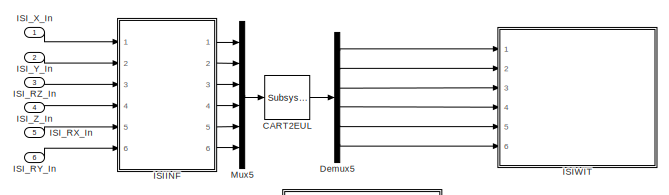
[diagram: SIXOSEM_F_STAGE_TYPEBP_MASTER - part 1/4, top left region]
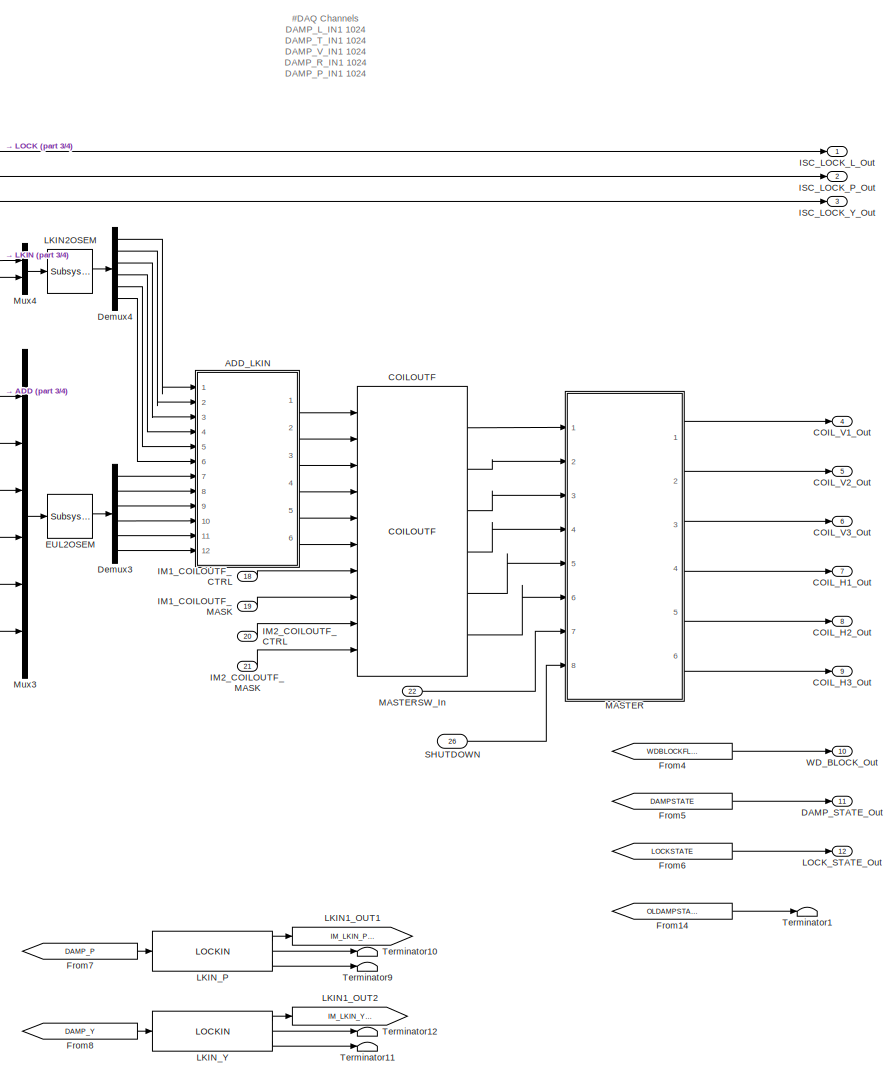
[diagram: SIXOSEM_F_STAGE_TYPEBP_MASTER - part 2/4, middle right region]
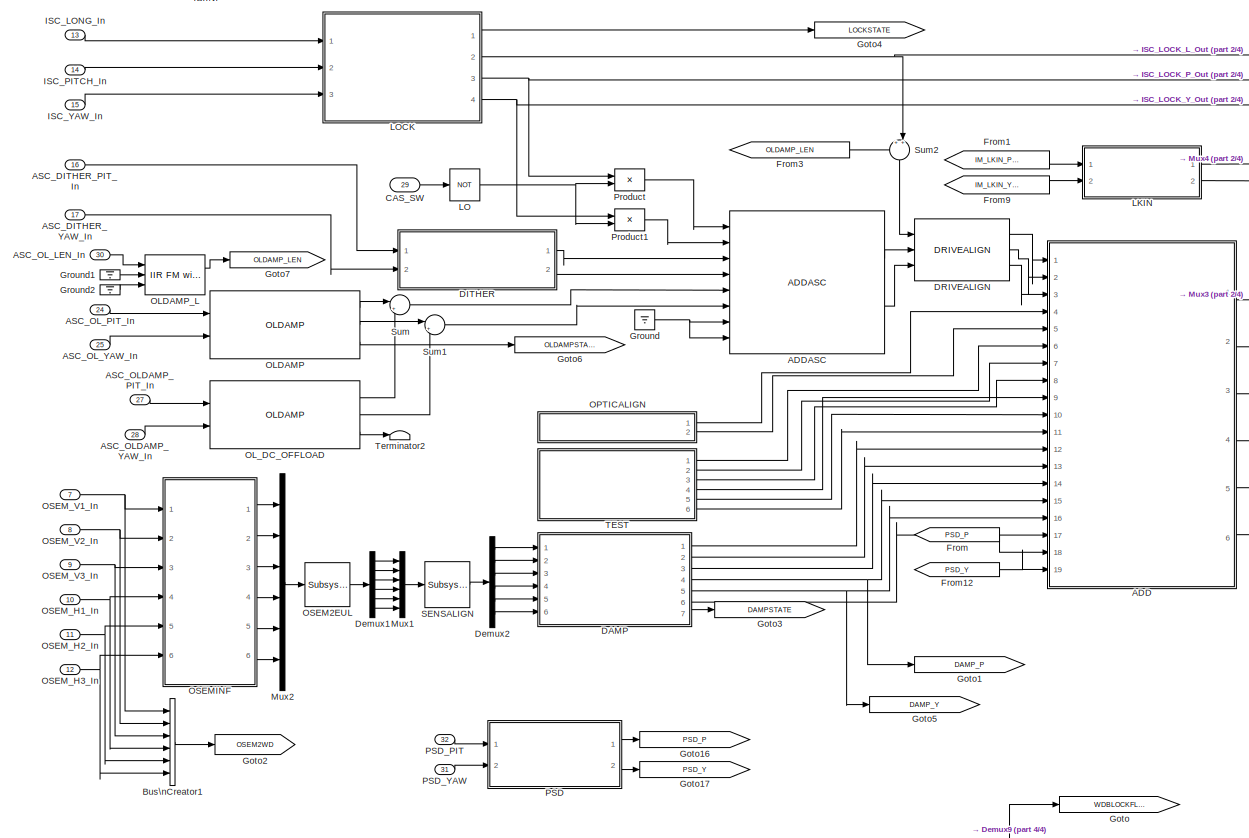
[diagram: SIXOSEM_F_STAGE_TYPEBP_MASTER - part 3/4, middle left region]
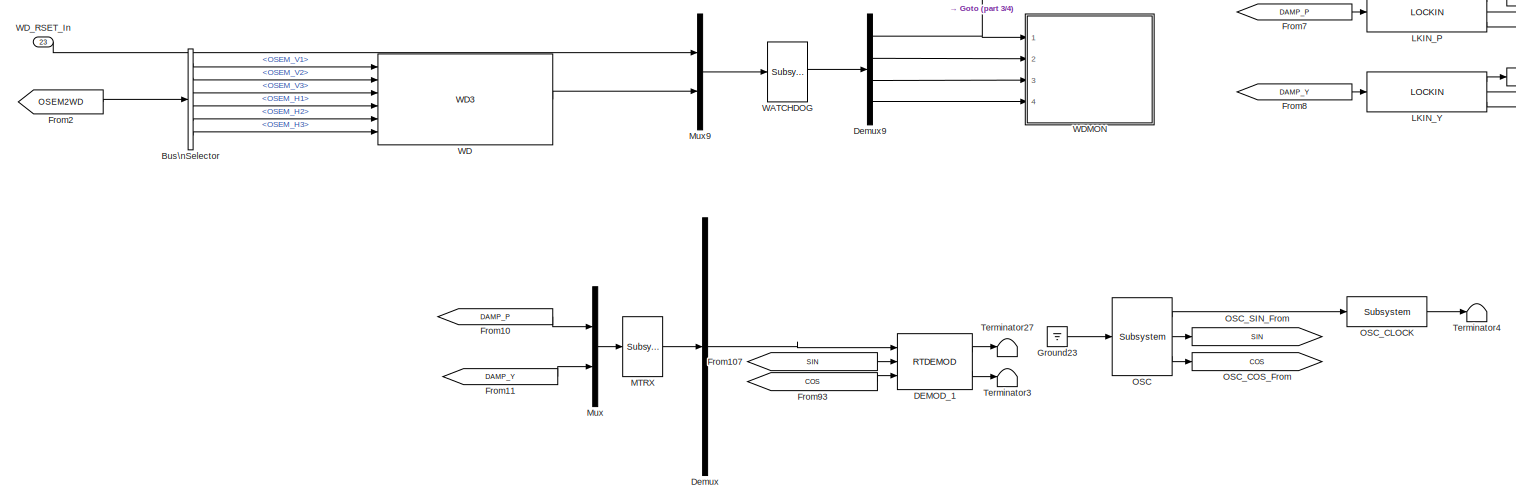
[diagram: SIXOSEM_F_STAGE_TYPEBP_MASTER - part 4/4, bottom center region]
BLOCK [SubSystem] SIXOSEM_F_STAGE_TYPEBP_MASTER
  Description = SIXOSEMSTAGE_FACE_MASTER
  Ports = [32, 12]
  RequestExecContextInheritance = off
  SID = 1458
  Variant = off
BLOCK [SubSystem] SIXOSEM_F_STAGE_TYPEBP_MASTER/ADD
  Ports = [19, 6]
  RequestExecContextInheritance = off
  SID = 1484
  Variant = off
BLOCK [Inport] SIXOSEM_F_STAGE_TYPEBP_MASTER/ADD/DAMP_L_In
  IconDisplay = Port number
  Port = 12
  SID = 1496
BLOCK [Inport] SIXOSEM_F_STAGE_TYPEBP_MASTER/ADD/DAMP_P_In
  IconDisplay = Port number
  Port = 16
  SID = 1500
BLOCK [Inport] SIXOSEM_F_STAGE_TYPEBP_MASTER/ADD/DAMP_R_In
  IconDisplay = Port number
  Port = 15
  SID = 1499
BLOCK [Inport] SIXOSEM_F_STAGE_TYPEBP_MASTER/ADD/DAMP_T_In
  IconDisplay = Port number
  Port = 13
  SID = 1497
BLOCK [Inport] SIXOSEM_F_STAGE_TYPEBP_MASTER/ADD/DAMP_V_In
  IconDisplay = Port number
  Port = 14
  SID = 1498
BLOCK [Inport] SIXOSEM_F_STAGE_TYPEBP_MASTER/ADD/DAMP_Y_In
  IconDisplay = Port number
  Port = 17
  SID = 1501
BLOCK [From] SIXOSEM_F_STAGE_TYPEBP_MASTER/ADD/From
  GotoTag = PSD_PIT
  SID = 7736
BLOCK [From] SIXOSEM_F_STAGE_TYPEBP_MASTER/ADD/From1
  CloseFcn = tagdialog Close
  GotoTag = TEST_L
  SID = 1502
BLOCK [From] SIXOSEM_F_STAGE_TYPEBP_MASTER/ADD/From10
  CloseFcn = tagdialog Close
  GotoTag = DAMP_Y
  SID = 1503
BLOCK [From] SIXOSEM_F_STAGE_TYPEBP_MASTER/ADD/From11
  CloseFcn = tagdialog Close
  GotoTag = OPTICALIGN_Y
  SID = 1504
BLOCK [From] SIXOSEM_F_STAGE_TYPEBP_MASTER/ADD/From12
  CloseFcn = tagdialog Close
  GotoTag = TEST_R
  SID = 1505
BLOCK [From] SIXOSEM_F_STAGE_TYPEBP_MASTER/ADD/From13
  CloseFcn = tagdialog Close
  GotoTag = DAMP_R
  SID = 1506
BLOCK [From] SIXOSEM_F_STAGE_TYPEBP_MASTER/ADD/From14
  CloseFcn = tagdialog Close
  GotoTag = TEST_V
  SID = 1507
BLOCK [From] SIXOSEM_F_STAGE_TYPEBP_MASTER/ADD/From15
  CloseFcn = tagdialog Close
  GotoTag = DAMP_V
  SID = 1508
BLOCK [From] SIXOSEM_F_STAGE_TYPEBP_MASTER/ADD/From16
  CloseFcn = tagdialog Close
  GotoTag = TEST_T
  SID = 1509
BLOCK [From] SIXOSEM_F_STAGE_TYPEBP_MASTER/ADD/From17
  CloseFcn = tagdialog Close
  GotoTag = DAMP_T
  SID = 1510
BLOCK [From] SIXOSEM_F_STAGE_TYPEBP_MASTER/ADD/From18
  GotoTag = PSD_YAW
  SID = 7737
BLOCK [From] SIXOSEM_F_STAGE_TYPEBP_MASTER/ADD/From2
  CloseFcn = tagdialog Close
  GotoTag = ISC_L
  SID = 1511
BLOCK [From] SIXOSEM_F_STAGE_TYPEBP_MASTER/ADD/From3
  CloseFcn = tagdialog Close
  GotoTag = DAMP_L
  SID = 1512
BLOCK [From] SIXOSEM_F_STAGE_TYPEBP_MASTER/ADD/From4
  CloseFcn = tagdialog Close
  GotoTag = TEST_P
  SID = 1513
BLOCK [From] SIXOSEM_F_STAGE_TYPEBP_MASTER/ADD/From5
  CloseFcn = tagdialog Close
  GotoTag = ISC_P
  SID = 1514
BLOCK [From] SIXOSEM_F_STAGE_TYPEBP_MASTER/ADD/From6
  CloseFcn = tagdialog Close
  GotoTag = DAMP_P
  SID = 1515
BLOCK [From] SIXOSEM_F_STAGE_TYPEBP_MASTER/ADD/From7
  CloseFcn = tagdialog Close
  GotoTag = OPTICALIGN_P
  SID = 1516
BLOCK [From] SIXOSEM_F_STAGE_TYPEBP_MASTER/ADD/From8
  CloseFcn = tagdialog Close
  GotoTag = TEST_Y
  SID = 1517
BLOCK [From] SIXOSEM_F_STAGE_TYPEBP_MASTER/ADD/From9
  CloseFcn = tagdialog Close
  GotoTag = ISC_Y
  SID = 1518
BLOCK [Goto] SIXOSEM_F_STAGE_TYPEBP_MASTER/ADD/Goto
  GotoTag = ISC_L
  SID = 1519
BLOCK [Goto] SIXOSEM_F_STAGE_TYPEBP_MASTER/ADD/Goto1
  GotoTag = ISC_P
  SID = 1520
BLOCK [Goto] SIXOSEM_F_STAGE_TYPEBP_MASTER/ADD/Goto10
  GotoTag = TEST_V
  SID = 1521
BLOCK [Goto] SIXOSEM_F_STAGE_TYPEBP_MASTER/ADD/Goto11
  GotoTag = DAMP_V
  SID = 1522
BLOCK [Goto] SIXOSEM_F_STAGE_TYPEBP_MASTER/ADD/Goto12
  GotoTag = DAMP_L
  SID = 1523
BLOCK [Goto] SIXOSEM_F_STAGE_TYPEBP_MASTER/ADD/Goto13
  GotoTag = DAMP_P
  SID = 1524
BLOCK [Goto] SIXOSEM_F_STAGE_TYPEBP_MASTER/ADD/Goto14
  GotoTag = DAMP_Y
  SID = 1525
BLOCK [Goto] SIXOSEM_F_STAGE_TYPEBP_MASTER/ADD/Goto15
  GotoTag = DAMP_T
  SID = 1526
BLOCK [Goto] SIXOSEM_F_STAGE_TYPEBP_MASTER/ADD/Goto16
  GotoTag = DAMP_R
  SID = 1527
BLOCK [Goto] SIXOSEM_F_STAGE_TYPEBP_MASTER/ADD/Goto17
  GotoTag = PSD_PIT
  SID = 7733
BLOCK [Goto] SIXOSEM_F_STAGE_TYPEBP_MASTER/ADD/Goto18
  GotoTag = PSD_YAW
  SID = 7735
BLOCK [Goto] SIXOSEM_F_STAGE_TYPEBP_MASTER/ADD/Goto2
  GotoTag = ISC_Y
  SID = 1528
BLOCK [Goto] SIXOSEM_F_STAGE_TYPEBP_MASTER/ADD/Goto3
  GotoTag = TEST_L
  SID = 1529
BLOCK [Goto] SIXOSEM_F_STAGE_TYPEBP_MASTER/ADD/Goto4
  GotoTag = OPTICALIGN_P
  SID = 1530
BLOCK [Goto] SIXOSEM_F_STAGE_TYPEBP_MASTER/ADD/Goto5
  GotoTag = OPTICALIGN_Y
  SID = 1531
BLOCK [Goto] SIXOSEM_F_STAGE_TYPEBP_MASTER/ADD/Goto6
  GotoTag = TEST_P
  SID = 1532
BLOCK [Goto] SIXOSEM_F_STAGE_TYPEBP_MASTER/ADD/Goto7
  GotoTag = TEST_Y
  SID = 1533
BLOCK [Goto] SIXOSEM_F_STAGE_TYPEBP_MASTER/ADD/Goto8
  GotoTag = TEST_T
  SID = 1534
BLOCK [Goto] SIXOSEM_F_STAGE_TYPEBP_MASTER/ADD/Goto9
  GotoTag = TEST_R
  SID = 1535
BLOCK [Inport] SIXOSEM_F_STAGE_TYPEBP_MASTER/ADD/ISC_L_In
  IconDisplay = Port number
  SID = 1485
BLOCK [Inport] SIXOSEM_F_STAGE_TYPEBP_MASTER/ADD/ISC_P_In
  IconDisplay = Port number
  Port = 2
  SID = 1486
BLOCK [Inport] SIXOSEM_F_STAGE_TYPEBP_MASTER/ADD/ISC_Y_In
  IconDisplay = Port number
  Port = 3
  SID = 1487
BLOCK [Outport] SIXOSEM_F_STAGE_TYPEBP_MASTER/ADD/LONG_MAIN_Out
  IconDisplay = Port number
  SID = 1542
BLOCK [Inport] SIXOSEM_F_STAGE_TYPEBP_MASTER/ADD/OPTICALIGN_P_In
  IconDisplay = Port number
  Port = 4
  SID = 1488
BLOCK [Inport] SIXOSEM_F_STAGE_TYPEBP_MASTER/ADD/OPTICALIGN_Y_In
  IconDisplay = Port number
  Port = 5
  SID = 1489
BLOCK [Outport] SIXOSEM_F_STAGE_TYPEBP_MASTER/ADD/PITCH_MAIN_Out
  IconDisplay = Port number
  Port = 5
  SID = 1546
BLOCK [Inport] SIXOSEM_F_STAGE_TYPEBP_MASTER/ADD/PSD_PIT
  IconDisplay = Port number
  Port = 18
  SID = 7732
BLOCK [Inport] SIXOSEM_F_STAGE_TYPEBP_MASTER/ADD/PSD_YAW
  IconDisplay = Port number
  Port = 19
  SID = 7734
BLOCK [Outport] SIXOSEM_F_STAGE_TYPEBP_MASTER/ADD/ROLL_MAIN_Out
  IconDisplay = Port number
  Port = 4
  SID = 1545
BLOCK [Sum] SIXOSEM_F_STAGE_TYPEBP_MASTER/ADD/Sum
  InputSameDT = off
  Inputs = +++
  OutDataTypeStr = Inherit: Inherit via internal rule
  Ports = [3, 1]
  SID = 1536
  SaturateOnIntegerOverflow = off
BLOCK [Sum] SIXOSEM_F_STAGE_TYPEBP_MASTER/ADD/Sum1
  InputSameDT = off
  OutDataTypeStr = Inherit: Inherit via internal rule
  Ports = [2, 1]
  SID = 1537
  SaturateOnIntegerOverflow = off
BLOCK [Sum] SIXOSEM_F_STAGE_TYPEBP_MASTER/ADD/Sum2
  InputSameDT = off
  OutDataTypeStr = Inherit: Inherit via internal rule
  Ports = [2, 1]
  SID = 1538
  SaturateOnIntegerOverflow = off
BLOCK [Sum] SIXOSEM_F_STAGE_TYPEBP_MASTER/ADD/Sum3
  InputSameDT = off
  Inputs = +++++
  OutDataTypeStr = Inherit: Inherit via internal rule
  Ports = [5, 1]
  SID = 1539
  SaturateOnIntegerOverflow = off
BLOCK [Sum] SIXOSEM_F_STAGE_TYPEBP_MASTER/ADD/Sum4
  InputSameDT = off
  Inputs = +++++
  OutDataTypeStr = Inherit: Inherit via internal rule
  Ports = [5, 1]
  SID = 1540
  SaturateOnIntegerOverflow = off
BLOCK [Sum] SIXOSEM_F_STAGE_TYPEBP_MASTER/ADD/Sum5
  InputSameDT = off
  OutDataTypeStr = Inherit: Inherit via internal rule
  Ports = [2, 1]
  SID = 1541
  SaturateOnIntegerOverflow = off
BLOCK [Inport] SIXOSEM_F_STAGE_TYPEBP_MASTER/ADD/TEST_L_In
  IconDisplay = Port number
  Port = 6
  SID = 1490
BLOCK [Inport] SIXOSEM_F_STAGE_TYPEBP_MASTER/ADD/TEST_P_In
  IconDisplay = Port number
  Port = 10
  SID = 1494
BLOCK [Inport] SIXOSEM_F_STAGE_TYPEBP_MASTER/ADD/TEST_R_In
  IconDisplay = Port number
  Port = 9
  SID = 1493
BLOCK [Inport] SIXOSEM_F_STAGE_TYPEBP_MASTER/ADD/TEST_T_In
  IconDisplay = Port number
  Port = 7
  SID = 1491
BLOCK [Inport] SIXOSEM_F_STAGE_TYPEBP_MASTER/ADD/TEST_V_In
  IconDisplay = Port number
  Port = 8
  SID = 1492
BLOCK [Inport] SIXOSEM_F_STAGE_TYPEBP_MASTER/ADD/TEST_Y_In
  IconDisplay = Port number
  Port = 11
  SID = 1495
BLOCK [Outport] SIXOSEM_F_STAGE_TYPEBP_MASTER/ADD/TRANS_MAIN_Out
  IconDisplay = Port number
  Port = 2
  SID = 1543
BLOCK [Outport] SIXOSEM_F_STAGE_TYPEBP_MASTER/ADD/VERT_MAIN_Out
  IconDisplay = Port number
  Port = 3
  SID = 1544
BLOCK [Outport] SIXOSEM_F_STAGE_TYPEBP_MASTER/ADD/YAW_MAIN_Out
  IconDisplay = Port number
  Port = 6
  SID = 1547
BLOCK [Reference] SIXOSEM_F_STAGE_TYPEBP_MASTER/ADDASC  REF=VIS_LIB/ADDASC
  Ports = [8, 2]
  SID = 1548
  SourceBlock = VIS_LIB/ADDASC
  SourceType = SubSystem
BLOCK [SubSystem] SIXOSEM_F_STAGE_TYPEBP_MASTER/ADD_LKIN
  Ports = [12, 6]
  RequestExecContextInheritance = off
  SID = 1549
  Variant = off
BLOCK [Outport] SIXOSEM_F_STAGE_TYPEBP_MASTER/ADD_LKIN/H1_Out
  IconDisplay = Port number
  Port = 4
  SID = 1571
BLOCK [Outport] SIXOSEM_F_STAGE_TYPEBP_MASTER/ADD_LKIN/H2_Out
  IconDisplay = Port number
  Port = 5
  SID = 1572
BLOCK [Outport] SIXOSEM_F_STAGE_TYPEBP_MASTER/ADD_LKIN/H3_Out
  IconDisplay = Port number
  Port = 6
  SID = 1573
BLOCK [Inport] SIXOSEM_F_STAGE_TYPEBP_MASTER/ADD_LKIN/LKIN_H1_In
  IconDisplay = Port number
  Port = 4
  SID = 1553
BLOCK [Inport] SIXOSEM_F_STAGE_TYPEBP_MASTER/ADD_LKIN/LKIN_H2_In
  IconDisplay = Port number
  Port = 5
  SID = 1554
BLOCK [Inport] SIXOSEM_F_STAGE_TYPEBP_MASTER/ADD_LKIN/LKIN_H3_In
  IconDisplay = Port number
  Port = 6
  SID = 1555
BLOCK [Inport] SIXOSEM_F_STAGE_TYPEBP_MASTER/ADD_LKIN/LKIN_V3_In
  IconDisplay = Port number
  Port = 3
  SID = 1552
BLOCK [Inport] SIXOSEM_F_STAGE_TYPEBP_MASTER/ADD_LKIN/LKN_V1_In
  IconDisplay = Port number
  SID = 1550
BLOCK [Inport] SIXOSEM_F_STAGE_TYPEBP_MASTER/ADD_LKIN/LKN_V2_In
  IconDisplay = Port number
  Port = 2
  SID = 1551
BLOCK [Inport] SIXOSEM_F_STAGE_TYPEBP_MASTER/ADD_LKIN/OSEM_H1_In
  IconDisplay = Port number
  Port = 10
  SID = 1559
BLOCK [Inport] SIXOSEM_F_STAGE_TYPEBP_MASTER/ADD_LKIN/OSEM_H2_In
  IconDisplay = Port number
  Port = 11
  SID = 1560
BLOCK [Inport] SIXOSEM_F_STAGE_TYPEBP_MASTER/ADD_LKIN/OSEM_H3_In
  IconDisplay = Port number
  Port = 12
  SID = 1561
BLOCK [Inport] SIXOSEM_F_STAGE_TYPEBP_MASTER/ADD_LKIN/OSEM_V1_In
  IconDisplay = Port number
  Port = 7
  SID = 1556
BLOCK [Inport] SIXOSEM_F_STAGE_TYPEBP_MASTER/ADD_LKIN/OSEM_V2_In
  IconDisplay = Port number
  Port = 8
  SID = 1557
BLOCK [Inport] SIXOSEM_F_STAGE_TYPEBP_MASTER/ADD_LKIN/OSEM_V3_In
  IconDisplay = Port number
  Port = 9
  SID = 1558
BLOCK [Sum] SIXOSEM_F_STAGE_TYPEBP_MASTER/ADD_LKIN/Sum
  InputSameDT = off
  OutDataTypeStr = Inherit: Inherit via internal rule
  Ports = [2, 1]
  SID = 1562
  SaturateOnIntegerOverflow = off
BLOCK [Sum] SIXOSEM_F_STAGE_TYPEBP_MASTER/ADD_LKIN/Sum1
  InputSameDT = off
  OutDataTypeStr = Inherit: Inherit via internal rule
  Ports = [2, 1]
  SID = 1563
  SaturateOnIntegerOverflow = off
BLOCK [Sum] SIXOSEM_F_STAGE_TYPEBP_MASTER/ADD_LKIN/Sum2
  InputSameDT = off
  OutDataTypeStr = Inherit: Inherit via internal rule
  Ports = [2, 1]
  SID = 1564
  SaturateOnIntegerOverflow = off
BLOCK [Sum] SIXOSEM_F_STAGE_TYPEBP_MASTER/ADD_LKIN/Sum3
  InputSameDT = off
  OutDataTypeStr = Inherit: Inherit via internal rule
  Ports = [2, 1]
  SID = 1565
  SaturateOnIntegerOverflow = off
BLOCK [Sum] SIXOSEM_F_STAGE_TYPEBP_MASTER/ADD_LKIN/Sum4
  InputSameDT = off
  OutDataTypeStr = Inherit: Inherit via internal rule
  Ports = [2, 1]
  SID = 1566
  SaturateOnIntegerOverflow = off
BLOCK [Sum] SIXOSEM_F_STAGE_TYPEBP_MASTER/ADD_LKIN/Sum5
  InputSameDT = off
  OutDataTypeStr = Inherit: Inherit via internal rule
  Ports = [2, 1]
  SID = 1567
  SaturateOnIntegerOverflow = off
BLOCK [Outport] SIXOSEM_F_STAGE_TYPEBP_MASTER/ADD_LKIN/V1_Out
  IconDisplay = Port number
  SID = 1568
BLOCK [Outport] SIXOSEM_F_STAGE_TYPEBP_MASTER/ADD_LKIN/V2_Out
  IconDisplay = Port number
  Port = 2
  SID = 1569
BLOCK [Outport] SIXOSEM_F_STAGE_TYPEBP_MASTER/ADD_LKIN/V3_Out
  IconDisplay = Port number
  Port = 3
  SID = 1570
BLOCK [Inport] SIXOSEM_F_STAGE_TYPEBP_MASTER/ASC_DITHER_PIT_In
  IconDisplay = Port number
  Port = 16
  SID = 1474
BLOCK [Inport] SIXOSEM_F_STAGE_TYPEBP_MASTER/ASC_DITHER_YAW_In
  IconDisplay = Port number
  Port = 17
  SID = 1475
BLOCK [Inport] SIXOSEM_F_STAGE_TYPEBP_MASTER/ASC_OLDAMP_PIT_In
  IconDisplay = Port number
  Port = 27
  SID = 2468
BLOCK [Inport] SIXOSEM_F_STAGE_TYPEBP_MASTER/ASC_OLDAMP_YAW_In
  IconDisplay = Port number
  Port = 28
  SID = 2469
BLOCK [Inport] SIXOSEM_F_STAGE_TYPEBP_MASTER/ASC_OL_LEN_In
  IconDisplay = Port number
  Port = 30
  SID = 7725
BLOCK [Inport] SIXOSEM_F_STAGE_TYPEBP_MASTER/ASC_OL_PIT_In
  IconDisplay = Port number
  Port = 24
  SID = 1482
BLOCK [Inport] SIXOSEM_F_STAGE_TYPEBP_MASTER/ASC_OL_YAW_In
  IconDisplay = Port number
  Port = 25
  SID = 1483
BLOCK [BusCreator] SIXOSEM_F_STAGE_TYPEBP_MASTER/Bus\nCreator1
  DisplayOption = bar
  InheritFromInputs = on
  Inputs = 'OSEM_V1','OSEM_V2','OSEM_V3','OSEM_H1','OSEM_H2','OSEM_H3'
  Ports = [6, 1]
  SID = 1574
BLOCK [BusSelector] SIXOSEM_F_STAGE_TYPEBP_MASTER/Bus\nSelector
  OutputSignals = OSEM_V1,OSEM_V2,OSEM_V3,OSEM_H1,OSEM_H2,OSEM_H3
  Ports = [1, 6]
  SID = 1575
BLOCK [Reference] SIXOSEM_F_STAGE_TYPEBP_MASTER/CART2EUL  REF=cdsMuxMatrix/Subsystem
  AttributesFormatString = %<Tag>
  Description = Any size matrix. Inputs and outputs must be connected using Mux and Demux parts.
  Ports = [1, 1]
  SID = 1576
  SourceBlock = cdsMuxMatrix/Subsystem
  SourceType = SubSystem
  Tag = cdsMuxMatrix
BLOCK [Inport] SIXOSEM_F_STAGE_TYPEBP_MASTER/CAS_SW
  IconDisplay = Port number
  Port = 29
  SID = 2479
BLOCK [Reference] SIXOSEM_F_STAGE_TYPEBP_MASTER/COILOUTF  REF=SIXOSEM_F_COILOUTF_MASTER/COILOUTF
  Ports = [10, 6]
  SID = 1577
  SourceBlock = SIXOSEM_F_COILOUTF_MASTER/COILOUTF
  SourceType = SubSystem
BLOCK [Outport] SIXOSEM_F_STAGE_TYPEBP_MASTER/COIL_H1_Out
  IconDisplay = Port number
  Port = 7
  SID = 1945
BLOCK [Outport] SIXOSEM_F_STAGE_TYPEBP_MASTER/COIL_H2_Out
  IconDisplay = Port number
  Port = 8
  SID = 1946
BLOCK [Outport] SIXOSEM_F_STAGE_TYPEBP_MASTER/COIL_H3_Out
  IconDisplay = Port number
  Port = 9
  SID = 1947
BLOCK [Outport] SIXOSEM_F_STAGE_TYPEBP_MASTER/COIL_V1_Out
  IconDisplay = Port number
  Port = 4
  SID = 1942
BLOCK [Outport] SIXOSEM_F_STAGE_TYPEBP_MASTER/COIL_V2_Out
  IconDisplay = Port number
  Port = 5
  SID = 1943
BLOCK [Outport] SIXOSEM_F_STAGE_TYPEBP_MASTER/COIL_V3_Out
  IconDisplay = Port number
  Port = 6
  SID = 1944
BLOCK [SubSystem] SIXOSEM_F_STAGE_TYPEBP_MASTER/DAMP
  Ports = [6, 7]
  RequestExecContextInheritance = off
  SID = 1578
  Variant = off
BLOCK [Outport] SIXOSEM_F_STAGE_TYPEBP_MASTER/DAMP/DAMP_STATE_Out
  IconDisplay = Port number
  Port = 7
  SID = 1635
BLOCK [Ground] SIXOSEM_F_STAGE_TYPEBP_MASTER/DAMP/Ground1
  SID = 1585
BLOCK [Ground] SIXOSEM_F_STAGE_TYPEBP_MASTER/DAMP/Ground10
  SID = 1586
BLOCK [Ground] SIXOSEM_F_STAGE_TYPEBP_MASTER/DAMP/Ground11
  SID = 1587
BLOCK [Ground] SIXOSEM_F_STAGE_TYPEBP_MASTER/DAMP/Ground12
  SID = 1588
BLOCK [Ground] SIXOSEM_F_STAGE_TYPEBP_MASTER/DAMP/Ground2
  SID = 1589
BLOCK [Ground] SIXOSEM_F_STAGE_TYPEBP_MASTER/DAMP/Ground3
  SID = 1590
BLOCK [Ground] SIXOSEM_F_STAGE_TYPEBP_MASTER/DAMP/Ground4
  SID = 1591
BLOCK [Ground] SIXOSEM_F_STAGE_TYPEBP_MASTER/DAMP/Ground5
  SID = 1592
BLOCK [Ground] SIXOSEM_F_STAGE_TYPEBP_MASTER/DAMP/Ground6
  SID = 1593
BLOCK [Ground] SIXOSEM_F_STAGE_TYPEBP_MASTER/DAMP/Ground7
  SID = 1594
BLOCK [Ground] SIXOSEM_F_STAGE_TYPEBP_MASTER/DAMP/Ground8
  SID = 1595
BLOCK [Ground] SIXOSEM_F_STAGE_TYPEBP_MASTER/DAMP/Ground9
  SID = 1596
BLOCK [Reference] SIXOSEM_F_STAGE_TYPEBP_MASTER/DAMP/L  REF=cdsFiltCtrl/IIR FM with control
  AttributesFormatString = %<Tag>
  Ports = [3, 2]
  SID = 1597
  SourceBlock = cdsFiltCtrl/IIR FM with control
  SourceType = SubSystem
  Tag = cdsFiltCtrl
BLOCK [Inport] SIXOSEM_F_STAGE_TYPEBP_MASTER/DAMP/LONG_In
  IconDisplay = Port number
  SID = 1579
BLOCK [Outport] SIXOSEM_F_STAGE_TYPEBP_MASTER/DAMP/LONG_Out
  IconDisplay = Port number
  SID = 1629
BLOCK [Reference] SIXOSEM_F_STAGE_TYPEBP_MASTER/DAMP/L_STATE_GOOD  REF=cdsEpicsIn/Subsystem
  AttributesFormatString = %<Tag>
  Ports = [0, 1]
  SID = 1598
  SourceBlock = cdsEpicsIn/Subsystem
  SourceType = SubSystem
  Tag = cdsEpicsIn
BLOCK [Reference] SIXOSEM_F_STAGE_TYPEBP_MASTER/DAMP/L_STATE_NOW  REF=cdsEpicsOut/Subsystem
  AttributesFormatString = %<Tag>
  Ports = [1, 1]
  SID = 1599
  SourceBlock = cdsEpicsOut/Subsystem
  SourceType = SubSystem
  Tag = cdsEpicsOutput
BLOCK [Reference] SIXOSEM_F_STAGE_TYPEBP_MASTER/DAMP/L_STATE_OK  REF=cdsEpicsOut/Subsystem
  AttributesFormatString = %<Tag>
  Ports = [1, 1]
  SID = 1600
  SourceBlock = cdsEpicsOut/Subsystem
  SourceType = SubSystem
  Tag = cdsEpicsOutput
BLOCK [RelationalOperator] SIXOSEM_F_STAGE_TYPEBP_MASTER/DAMP/Operator
  InputSameDT = off
  Operator = ==
  OutDataTypeStr = boolean
  Ports = [2, 1]
  SID = 1601
BLOCK [RelationalOperator] SIXOSEM_F_STAGE_TYPEBP_MASTER/DAMP/Operator1
  InputSameDT = off
  Operator = ==
  OutDataTypeStr = boolean
  Ports = [2, 1]
  SID = 1602
BLOCK [RelationalOperator] SIXOSEM_F_STAGE_TYPEBP_MASTER/DAMP/Operator2
  InputSameDT = off
  Operator = ==
  OutDataTypeStr = boolean
  Ports = [2, 1]
  SID = 1603
BLOCK [RelationalOperator] SIXOSEM_F_STAGE_TYPEBP_MASTER/DAMP/Operator3
  InputSameDT = off
  Operator = ==
  OutDataTypeStr = boolean
  Ports = [2, 1]
  SID = 1604
BLOCK [RelationalOperator] SIXOSEM_F_STAGE_TYPEBP_MASTER/DAMP/Operator4
  InputSameDT = off
  Operator = ==
  OutDataTypeStr = boolean
  Ports = [2, 1]
  SID = 1605
BLOCK [RelationalOperator] SIXOSEM_F_STAGE_TYPEBP_MASTER/DAMP/Operator5
  InputSameDT = off
  Operator = ==
  OutDataTypeStr = boolean
  Ports = [2, 1]
  SID = 1606
BLOCK [Reference] SIXOSEM_F_STAGE_TYPEBP_MASTER/DAMP/P  REF=cdsFiltCtrl/IIR FM with control
  AttributesFormatString = %<Tag>
  Ports = [3, 2]
  SID = 1607
  SourceBlock = cdsFiltCtrl/IIR FM with control
  SourceType = SubSystem
  Tag = cdsFiltCtrl
BLOCK [Inport] SIXOSEM_F_STAGE_TYPEBP_MASTER/DAMP/PITCH_In
  IconDisplay = Port number
  Port = 5
  SID = 1583
BLOCK [Outport] SIXOSEM_F_STAGE_TYPEBP_MASTER/DAMP/PITCH_Out
  IconDisplay = Port number
  Port = 5
  SID = 1633
BLOCK [Reference] SIXOSEM_F_STAGE_TYPEBP_MASTER/DAMP/P_STATE_GOOD  REF=cdsEpicsIn/Subsystem
  AttributesFormatString = %<Tag>
  Ports = [0, 1]
  SID = 1608
  SourceBlock = cdsEpicsIn/Subsystem
  SourceType = SubSystem
  Tag = cdsEpicsIn
BLOCK [Reference] SIXOSEM_F_STAGE_TYPEBP_MASTER/DAMP/P_STATE_NOW  REF=cdsEpicsOut/Subsystem
  AttributesFormatString = %<Tag>
  Ports = [1, 1]
  SID = 1609
  SourceBlock = cdsEpicsOut/Subsystem
  SourceType = SubSystem
  Tag = cdsEpicsOutput
BLOCK [Reference] SIXOSEM_F_STAGE_TYPEBP_MASTER/DAMP/P_STATE_OK  REF=cdsEpicsOut/Subsystem
  AttributesFormatString = %<Tag>
  Ports = [1, 1]
  SID = 1610
  SourceBlock = cdsEpicsOut/Subsystem
  SourceType = SubSystem
  Tag = cdsEpicsOutput
BLOCK [Product] SIXOSEM_F_STAGE_TYPEBP_MASTER/DAMP/Product
  InputSameDT = off
  Inputs = 6
  OutDataTypeStr = Inherit: Inherit via internal rule
  Ports = [6, 1]
  SID = 1611
  SaturateOnIntegerOverflow = off
BLOCK [Reference] SIXOSEM_F_STAGE_TYPEBP_MASTER/DAMP/R  REF=cdsFiltCtrl/IIR FM with control
  AttributesFormatString = %<Tag>
  Ports = [3, 2]
  SID = 1612
  SourceBlock = cdsFiltCtrl/IIR FM with control
  SourceType = SubSystem
  Tag = cdsFiltCtrl
BLOCK [Inport] SIXOSEM_F_STAGE_TYPEBP_MASTER/DAMP/ROLL_In
  IconDisplay = Port number
  Port = 4
  SID = 1582
BLOCK [Outport] SIXOSEM_F_STAGE_TYPEBP_MASTER/DAMP/ROLL_Out
  IconDisplay = Port number
  Port = 4
  SID = 1632
BLOCK [Reference] SIXOSEM_F_STAGE_TYPEBP_MASTER/DAMP/R_STATE_GOOD  REF=cdsEpicsIn/Subsystem
  AttributesFormatString = %<Tag>
  Ports = [0, 1]
  SID = 1613
  SourceBlock = cdsEpicsIn/Subsystem
  SourceType = SubSystem
  Tag = cdsEpicsIn
BLOCK [Reference] SIXOSEM_F_STAGE_TYPEBP_MASTER/DAMP/R_STATE_NOW  REF=cdsEpicsOut/Subsystem
  AttributesFormatString = %<Tag>
  Ports = [1, 1]
  SID = 1614
  SourceBlock = cdsEpicsOut/Subsystem
  SourceType = SubSystem
  Tag = cdsEpicsOutput
BLOCK [Reference] SIXOSEM_F_STAGE_TYPEBP_MASTER/DAMP/R_STATE_OK  REF=cdsEpicsOut/Subsystem
  AttributesFormatString = %<Tag>
  Ports = [1, 1]
  SID = 1615
  SourceBlock = cdsEpicsOut/Subsystem
  SourceType = SubSystem
  Tag = cdsEpicsOutput
BLOCK [Reference] SIXOSEM_F_STAGE_TYPEBP_MASTER/DAMP/STATE_OK  REF=cdsEpicsOut/Subsystem
  AttributesFormatString = %<Tag>
  Ports = [1, 1]
  SID = 1616
  SourceBlock = cdsEpicsOut/Subsystem
  SourceType = SubSystem
  Tag = cdsEpicsOutput
BLOCK [Reference] SIXOSEM_F_STAGE_TYPEBP_MASTER/DAMP/T  REF=cdsFiltCtrl/IIR FM with control
  AttributesFormatString = %<Tag>
  Ports = [3, 2]
  SID = 1617
  SourceBlock = cdsFiltCtrl/IIR FM with control
  SourceType = SubSystem
  Tag = cdsFiltCtrl
BLOCK [Inport] SIXOSEM_F_STAGE_TYPEBP_MASTER/DAMP/TRANS_In
  IconDisplay = Port number
  Port = 2
  SID = 1580
BLOCK [Outport] SIXOSEM_F_STAGE_TYPEBP_MASTER/DAMP/TRANS_Out
  IconDisplay = Port number
  Port = 2
  SID = 1630
BLOCK [Reference] SIXOSEM_F_STAGE_TYPEBP_MASTER/DAMP/T_STATE_GOOD  REF=cdsEpicsIn/Subsystem
  AttributesFormatString = %<Tag>
  Ports = [0, 1]
  SID = 1618
  SourceBlock = cdsEpicsIn/Subsystem
  SourceType = SubSystem
  Tag = cdsEpicsIn
BLOCK [Reference] SIXOSEM_F_STAGE_TYPEBP_MASTER/DAMP/T_STATE_NOW  REF=cdsEpicsOut/Subsystem
  AttributesFormatString = %<Tag>
  Ports = [1, 1]
  SID = 1619
  SourceBlock = cdsEpicsOut/Subsystem
  SourceType = SubSystem
  Tag = cdsEpicsOutput
BLOCK [Reference] SIXOSEM_F_STAGE_TYPEBP_MASTER/DAMP/T_STATE_OK  REF=cdsEpicsOut/Subsystem
  AttributesFormatString = %<Tag>
  Ports = [1, 1]
  SID = 1620
  SourceBlock = cdsEpicsOut/Subsystem
  SourceType = SubSystem
  Tag = cdsEpicsOutput
BLOCK [Reference] SIXOSEM_F_STAGE_TYPEBP_MASTER/DAMP/V  REF=cdsFiltCtrl/IIR FM with control
  AttributesFormatString = %<Tag>
  Ports = [3, 2]
  SID = 1621
  SourceBlock = cdsFiltCtrl/IIR FM with control
  SourceType = SubSystem
  Tag = cdsFiltCtrl
BLOCK [Inport] SIXOSEM_F_STAGE_TYPEBP_MASTER/DAMP/VERT_In
  IconDisplay = Port number
  Port = 3
  SID = 1581
BLOCK [Outport] SIXOSEM_F_STAGE_TYPEBP_MASTER/DAMP/VERT_Out
  IconDisplay = Port number
  Port = 3
  SID = 1631
BLOCK [Reference] SIXOSEM_F_STAGE_TYPEBP_MASTER/DAMP/V_STATE_GOOD  REF=cdsEpicsIn/Subsystem
  AttributesFormatString = %<Tag>
  Ports = [0, 1]
  SID = 1622
  SourceBlock = cdsEpicsIn/Subsystem
  SourceType = SubSystem
  Tag = cdsEpicsIn
BLOCK [Reference] SIXOSEM_F_STAGE_TYPEBP_MASTER/DAMP/V_STATE_NOW  REF=cdsEpicsOut/Subsystem
  AttributesFormatString = %<Tag>
  Ports = [1, 1]
  SID = 1623
  SourceBlock = cdsEpicsOut/Subsystem
  SourceType = SubSystem
  Tag = cdsEpicsOutput
BLOCK [Reference] SIXOSEM_F_STAGE_TYPEBP_MASTER/DAMP/V_STATE_OK  REF=cdsEpicsOut/Subsystem
  AttributesFormatString = %<Tag>
  Ports = [1, 1]
  SID = 1624
  SourceBlock = cdsEpicsOut/Subsystem
  SourceType = SubSystem
  Tag = cdsEpicsOutput
BLOCK [Reference] SIXOSEM_F_STAGE_TYPEBP_MASTER/DAMP/Y  REF=cdsFiltCtrl/IIR FM with control
  AttributesFormatString = %<Tag>
  Ports = [3, 2]
  SID = 1625
  SourceBlock = cdsFiltCtrl/IIR FM with control
  SourceType = SubSystem
  Tag = cdsFiltCtrl
BLOCK [Inport] SIXOSEM_F_STAGE_TYPEBP_MASTER/DAMP/YAW_In
  IconDisplay = Port number
  Port = 6
  SID = 1584
BLOCK [Outport] SIXOSEM_F_STAGE_TYPEBP_MASTER/DAMP/YAW_Out
  IconDisplay = Port number
  Port = 6
  SID = 1634
BLOCK [Reference] SIXOSEM_F_STAGE_TYPEBP_MASTER/DAMP/Y_STATE_GOOD  REF=cdsEpicsIn/Subsystem
  AttributesFormatString = %<Tag>
  Ports = [0, 1]
  SID = 1626
  SourceBlock = cdsEpicsIn/Subsystem
  SourceType = SubSystem
  Tag = cdsEpicsIn
BLOCK [Reference] SIXOSEM_F_STAGE_TYPEBP_MASTER/DAMP/Y_STATE_NOW  REF=cdsEpicsOut/Subsystem
  AttributesFormatString = %<Tag>
  Ports = [1, 1]
  SID = 1627
  SourceBlock = cdsEpicsOut/Subsystem
  SourceType = SubSystem
  Tag = cdsEpicsOutput
BLOCK [Reference] SIXOSEM_F_STAGE_TYPEBP_MASTER/DAMP/Y_STATE_OK  REF=cdsEpicsOut/Subsystem
  AttributesFormatString = %<Tag>
  Ports = [1, 1]
  SID = 1628
  SourceBlock = cdsEpicsOut/Subsystem
  SourceType = SubSystem
  Tag = cdsEpicsOutput
BLOCK [Outport] SIXOSEM_F_STAGE_TYPEBP_MASTER/DAMP_STATE_Out
  IconDisplay = Port number
  Port = 11
  SID = 1949
BLOCK [Reference] SIXOSEM_F_STAGE_TYPEBP_MASTER/DEMOD_1  REF=rtdemod/RTDEMOD
  Ports = [3, 2]
  SID = 1640
  SourceBlock = rtdemod/RTDEMOD
  SourceType = SubSystem
  Tag = top_names
BLOCK [SubSystem] SIXOSEM_F_STAGE_TYPEBP_MASTER/DITHER
  Ports = [2, 2]
  RequestExecContextInheritance = off
  SID = 1641
  Variant = off
BLOCK [Reference] SIXOSEM_F_STAGE_TYPEBP_MASTER/DITHER/P  REF=cdsFilt/Subsystem
  AttributesFormatString = %<Tag>
  Ports = [1, 1]
  SID = 1644
  SourceBlock = cdsFilt/Subsystem
  SourceType = SubSystem
  Tag = cdsFilt
BLOCK [Inport] SIXOSEM_F_STAGE_TYPEBP_MASTER/DITHER/PIT_In
  IconDisplay = Port number
  SID = 1642
BLOCK [Outport] SIXOSEM_F_STAGE_TYPEBP_MASTER/DITHER/PIT_Out
  IconDisplay = Port number
  SID = 1646
BLOCK [Reference] SIXOSEM_F_STAGE_TYPEBP_MASTER/DITHER/Y  REF=cdsFilt/Subsystem
  AttributesFormatString = %<Tag>
  Ports = [1, 1]
  SID = 1645
  SourceBlock = cdsFilt/Subsystem
  SourceType = SubSystem
  Tag = cdsFilt
BLOCK [Inport] SIXOSEM_F_STAGE_TYPEBP_MASTER/DITHER/YAW_In
  IconDisplay = Port number
  Port = 2
  SID = 1643
BLOCK [Outport] SIXOSEM_F_STAGE_TYPEBP_MASTER/DITHER/YAW_Out
  IconDisplay = Port number
  Port = 2
  SID = 1647
BLOCK [Reference] SIXOSEM_F_STAGE_TYPEBP_MASTER/DRIVEALIGN  REF=VIS_LIB/DRIVEALIGN
  Ports = [3, 3]
  SID = 2467
  SourceBlock = VIS_LIB/DRIVEALIGN
  SourceType = SubSystem
BLOCK [Demux] SIXOSEM_F_STAGE_TYPEBP_MASTER/Demux
  DisplayOption = bar
  Outputs = 1
  Ports = [1, 1]
  SID = 1680
BLOCK [Demux] SIXOSEM_F_STAGE_TYPEBP_MASTER/Demux1
  DisplayOption = bar
  Outputs = 6
  Ports = [1, 6]
  SID = 1681
BLOCK [Demux] SIXOSEM_F_STAGE_TYPEBP_MASTER/Demux2
  DisplayOption = bar
  Outputs = 6
  Ports = [1, 6]
  SID = 1682
BLOCK [Demux] SIXOSEM_F_STAGE_TYPEBP_MASTER/Demux3
  DisplayOption = bar
  Outputs = 6
  Ports = [1, 6]
  SID = 1683
BLOCK [Demux] SIXOSEM_F_STAGE_TYPEBP_MASTER/Demux4
  DisplayOption = bar
  Outputs = 6
  Ports = [1, 6]
  SID = 1684
BLOCK [Demux] SIXOSEM_F_STAGE_TYPEBP_MASTER/Demux5
  DisplayOption = bar
  Outputs = 6
  Ports = [1, 6]
  SID = 1685
BLOCK [Demux] SIXOSEM_F_STAGE_TYPEBP_MASTER/Demux9
  DisplayOption = bar
  Ports = [1, 4]
  SID = 1686
BLOCK [Reference] SIXOSEM_F_STAGE_TYPEBP_MASTER/EUL2OSEM  REF=cdsMuxMatrix/Subsystem
  AttributesFormatString = %<Tag>
  Description = Any size matrix. Inputs and outputs must be connected using Mux and Demux parts.
  Ports = [1, 1]
  SID = 1687
  SourceBlock = cdsMuxMatrix/Subsystem
  SourceType = SubSystem
  Tag = cdsMuxMatrix
BLOCK [From] SIXOSEM_F_STAGE_TYPEBP_MASTER/From
  GotoTag = PSD_P
  SID = 7753
BLOCK [From] SIXOSEM_F_STAGE_TYPEBP_MASTER/From1
  CloseFcn = tagdialog Close
  GotoTag = IM_LKIN_P_EXC
  SID = 1688
BLOCK [From] SIXOSEM_F_STAGE_TYPEBP_MASTER/From10
  CloseFcn = tagdialog Close
  GotoTag = DAMP_P
  SID = 1689
BLOCK [From] SIXOSEM_F_STAGE_TYPEBP_MASTER/From107
  GotoTag = SIN
  SID = 1690
BLOCK [From] SIXOSEM_F_STAGE_TYPEBP_MASTER/From11
  CloseFcn = tagdialog Close
  GotoTag = DAMP_Y
  SID = 1691
BLOCK [From] SIXOSEM_F_STAGE_TYPEBP_MASTER/From12
  GotoTag = PSD_Y
  SID = 7754
BLOCK [From] SIXOSEM_F_STAGE_TYPEBP_MASTER/From14
  CloseFcn = tagdialog Close
  GotoTag = OLDAMPSTATE
  SID = 1692
BLOCK [From] SIXOSEM_F_STAGE_TYPEBP_MASTER/From2
  CloseFcn = tagdialog Close
  GotoTag = OSEM2WD
  SID = 1693
BLOCK [From] SIXOSEM_F_STAGE_TYPEBP_MASTER/From3
  CloseFcn = tagdialog Close
  GotoTag = OLDAMP_LEN
  SID = 7728
BLOCK [From] SIXOSEM_F_STAGE_TYPEBP_MASTER/From4
  CloseFcn = tagdialog Close
  GotoTag = WDBLOCKFLAG
  SID = 1695
BLOCK [From] SIXOSEM_F_STAGE_TYPEBP_MASTER/From5
  CloseFcn = tagdialog Close
  GotoTag = DAMPSTATE
  SID = 1696
BLOCK [From] SIXOSEM_F_STAGE_TYPEBP_MASTER/From6
  CloseFcn = tagdialog Close
  GotoTag = LOCKSTATE
  SID = 1697
BLOCK [From] SIXOSEM_F_STAGE_TYPEBP_MASTER/From7
  CloseFcn = tagdialog Close
  GotoTag = DAMP_P
  SID = 1698
BLOCK [From] SIXOSEM_F_STAGE_TYPEBP_MASTER/From8
  CloseFcn = tagdialog Close
  GotoTag = DAMP_Y
  SID = 1699
BLOCK [From] SIXOSEM_F_STAGE_TYPEBP_MASTER/From9
  CloseFcn = tagdialog Close
  GotoTag = IM_LKIN_Y_EXC
  SID = 1700
BLOCK [From] SIXOSEM_F_STAGE_TYPEBP_MASTER/From93
  GotoTag = COS
  SID = 1701
BLOCK [Goto] SIXOSEM_F_STAGE_TYPEBP_MASTER/Goto
  GotoTag = WDBLOCKFLAG
  SID = 1702
BLOCK [Goto] SIXOSEM_F_STAGE_TYPEBP_MASTER/Goto1
  GotoTag = DAMP_P
  SID = 1703
BLOCK [Goto] SIXOSEM_F_STAGE_TYPEBP_MASTER/Goto16
  GotoTag = PSD_P
  SID = 7744
BLOCK [Goto] SIXOSEM_F_STAGE_TYPEBP_MASTER/Goto17
  GotoTag = PSD_Y
  SID = 7745
BLOCK [Goto] SIXOSEM_F_STAGE_TYPEBP_MASTER/Goto2
  GotoTag = OSEM2WD
  SID = 1704
BLOCK [Goto] SIXOSEM_F_STAGE_TYPEBP_MASTER/Goto3
  GotoTag = DAMPSTATE
  SID = 1705
BLOCK [Goto] SIXOSEM_F_STAGE_TYPEBP_MASTER/Goto4
  GotoTag = LOCKSTATE
  SID = 1706
BLOCK [Goto] SIXOSEM_F_STAGE_TYPEBP_MASTER/Goto5
  GotoTag = DAMP_Y
  SID = 1707
BLOCK [Goto] SIXOSEM_F_STAGE_TYPEBP_MASTER/Goto6
  GotoTag = OLDAMPSTATE
  SID = 1708
BLOCK [Goto] SIXOSEM_F_STAGE_TYPEBP_MASTER/Goto7
  GotoTag = OLDAMP_LEN
  SID = 7727
BLOCK [Ground] SIXOSEM_F_STAGE_TYPEBP_MASTER/Ground
  SID = 2481
BLOCK [Ground] SIXOSEM_F_STAGE_TYPEBP_MASTER/Ground1
  SID = 7730
BLOCK [Ground] SIXOSEM_F_STAGE_TYPEBP_MASTER/Ground2
  SID = 7731
BLOCK [Ground] SIXOSEM_F_STAGE_TYPEBP_MASTER/Ground23
  SID = 1709
BLOCK [Inport] SIXOSEM_F_STAGE_TYPEBP_MASTER/IM1_COILOUTF_CTRL
  IconDisplay = Port number
  Port = 18
  SID = 1476
BLOCK [Inport] SIXOSEM_F_STAGE_TYPEBP_MASTER/IM1_COILOUTF_MASK
  IconDisplay = Port number
  Port = 19
  SID = 1477
BLOCK [Inport] SIXOSEM_F_STAGE_TYPEBP_MASTER/IM2_COILOUTF_CTRL
  IconDisplay = Port number
  Port = 20
  SID = 1478
BLOCK [Inport] SIXOSEM_F_STAGE_TYPEBP_MASTER/IM2_COILOUTF_MASK
  IconDisplay = Port number
  Port = 21
  SID = 1479
BLOCK [Outport] SIXOSEM_F_STAGE_TYPEBP_MASTER/ISC_LOCK_L_Out
  IconDisplay = Port number
  SID = 1939
BLOCK [Outport] SIXOSEM_F_STAGE_TYPEBP_MASTER/ISC_LOCK_P_Out
  IconDisplay = Port number
  Port = 2
  SID = 1940
BLOCK [Outport] SIXOSEM_F_STAGE_TYPEBP_MASTER/ISC_LOCK_Y_Out
  IconDisplay = Port number
  Port = 3
  SID = 1941
BLOCK [Inport] SIXOSEM_F_STAGE_TYPEBP_MASTER/ISC_LONG_In
  IconDisplay = Port number
  Port = 13
  SID = 1471
BLOCK [Inport] SIXOSEM_F_STAGE_TYPEBP_MASTER/ISC_PITCH_In
  IconDisplay = Port number
  Port = 14
  SID = 1472
BLOCK [Inport] SIXOSEM_F_STAGE_TYPEBP_MASTER/ISC_YAW_In
  IconDisplay = Port number
  Port = 15
  SID = 1473
BLOCK [SubSystem] SIXOSEM_F_STAGE_TYPEBP_MASTER/ISIINF
  Ports = [6, 6]
  RequestExecContextInheritance = off
  SID = 1710
  Variant = off
BLOCK [Reference] SIXOSEM_F_STAGE_TYPEBP_MASTER/ISIINF/RX  REF=cdsFilt/Subsystem
  AttributesFormatString = %<Tag>
  Ports = [1, 1]
  SID = 1717
  SourceBlock = cdsFilt/Subsystem
  SourceType = SubSystem
  Tag = cdsFilt
BLOCK [Inport] SIXOSEM_F_STAGE_TYPEBP_MASTER/ISIINF/RX_In
  IconDisplay = Port number
  Port = 5
  SID = 1715
BLOCK [Outport] SIXOSEM_F_STAGE_TYPEBP_MASTER/ISIINF/RX_Out
  IconDisplay = Port number
  Port = 5
  SID = 1727
BLOCK [Reference] SIXOSEM_F_STAGE_TYPEBP_MASTER/ISIINF/RY  REF=cdsFilt/Subsystem
  AttributesFormatString = %<Tag>
  Ports = [1, 1]
  SID = 1718
  SourceBlock = cdsFilt/Subsystem
  SourceType = SubSystem
  Tag = cdsFilt
BLOCK [Inport] SIXOSEM_F_STAGE_TYPEBP_MASTER/ISIINF/RY_In
  IconDisplay = Port number
  Port = 6
  SID = 1716
BLOCK [Outport] SIXOSEM_F_STAGE_TYPEBP_MASTER/ISIINF/RY_Out
  IconDisplay = Port number
  Port = 6
  SID = 1728
BLOCK [Reference] SIXOSEM_F_STAGE_TYPEBP_MASTER/ISIINF/RZ  REF=cdsFilt/Subsystem
  AttributesFormatString = %<Tag>
  Ports = [1, 1]
  SID = 1719
  SourceBlock = cdsFilt/Subsystem
  SourceType = SubSystem
  Tag = cdsFilt
BLOCK [Inport] SIXOSEM_F_STAGE_TYPEBP_MASTER/ISIINF/RZ_In
  IconDisplay = Port number
  Port = 3
  SID = 1713
BLOCK [Outport] SIXOSEM_F_STAGE_TYPEBP_MASTER/ISIINF/RZ_Out
  IconDisplay = Port number
  Port = 3
  SID = 1725
BLOCK [Reference] SIXOSEM_F_STAGE_TYPEBP_MASTER/ISIINF/X  REF=cdsFilt/Subsystem
  AttributesFormatString = %<Tag>
  Ports = [1, 1]
  SID = 1720
  SourceBlock = cdsFilt/Subsystem
  SourceType = SubSystem
  Tag = cdsFilt
BLOCK [Inport] SIXOSEM_F_STAGE_TYPEBP_MASTER/ISIINF/X_In
  IconDisplay = Port number
  SID = 1711
BLOCK [Outport] SIXOSEM_F_STAGE_TYPEBP_MASTER/ISIINF/X_Out
  IconDisplay = Port number
  SID = 1723
BLOCK [Reference] SIXOSEM_F_STAGE_TYPEBP_MASTER/ISIINF/Y  REF=cdsFilt/Subsystem
  AttributesFormatString = %<Tag>
  Ports = [1, 1]
  SID = 1721
  SourceBlock = cdsFilt/Subsystem
  SourceType = SubSystem
  Tag = cdsFilt
BLOCK [Inport] SIXOSEM_F_STAGE_TYPEBP_MASTER/ISIINF/Y_In
  IconDisplay = Port number
  Port = 2
  SID = 1712
BLOCK [Outport] SIXOSEM_F_STAGE_TYPEBP_MASTER/ISIINF/Y_Out
  IconDisplay = Port number
  Port = 2
  SID = 1724
BLOCK [Reference] SIXOSEM_F_STAGE_TYPEBP_MASTER/ISIINF/Z  REF=cdsFilt/Subsystem
  AttributesFormatString = %<Tag>
  Ports = [1, 1]
  SID = 1722
  SourceBlock = cdsFilt/Subsystem
  SourceType = SubSystem
  Tag = cdsFilt
BLOCK [Inport] SIXOSEM_F_STAGE_TYPEBP_MASTER/ISIINF/Z_In
  IconDisplay = Port number
  Port = 4
  SID = 1714
BLOCK [Outport] SIXOSEM_F_STAGE_TYPEBP_MASTER/ISIINF/Z_Out
  IconDisplay = Port number
  Port = 4
  SID = 1726
BLOCK [SubSystem] SIXOSEM_F_STAGE_TYPEBP_MASTER/ISIWIT
  Ports = [6]
  RequestExecContextInheritance = off
  SID = 1729
  Variant = off
BLOCK [Reference] SIXOSEM_F_STAGE_TYPEBP_MASTER/ISIWIT/L  REF=cdsTP/Subsystem
  AttributesFormatString = %<Tag>
  Ports = [1]
  SID = 1736
  SourceBlock = cdsTP/Subsystem
  SourceType = SubSystem
  Tag = Test Point
BLOCK [Reference] SIXOSEM_F_STAGE_TYPEBP_MASTER/ISIWIT/LMON  REF=cdsEpicsOut/Subsystem
  AttributesFormatString = %<Tag>
  Ports = [1, 1]
  SID = 1737
  SourceBlock = cdsEpicsOut/Subsystem
  SourceType = SubSystem
  Tag = cdsEpicsOutput
BLOCK [Inport] SIXOSEM_F_STAGE_TYPEBP_MASTER/ISIWIT/LONG_In
  IconDisplay = Port number
  SID = 1730
BLOCK [Reference] SIXOSEM_F_STAGE_TYPEBP_MASTER/ISIWIT/P  REF=cdsTP/Subsystem
  AttributesFormatString = %<Tag>
  Ports = [1]
  SID = 1738
  SourceBlock = cdsTP/Subsystem
  SourceType = SubSystem
  Tag = Test Point
BLOCK [Inport] SIXOSEM_F_STAGE_TYPEBP_MASTER/ISIWIT/PITCH_In
  IconDisplay = Port number
  Port = 5
  SID = 1734
BLOCK [Reference] SIXOSEM_F_STAGE_TYPEBP_MASTER/ISIWIT/PMON  REF=cdsEpicsOut/Subsystem
  AttributesFormatString = %<Tag>
  Ports = [1, 1]
  SID = 1739
  SourceBlock = cdsEpicsOut/Subsystem
  SourceType = SubSystem
  Tag = cdsEpicsOutput
BLOCK [Reference] SIXOSEM_F_STAGE_TYPEBP_MASTER/ISIWIT/R  REF=cdsTP/Subsystem
  AttributesFormatString = %<Tag>
  Ports = [1]
  SID = 1740
  SourceBlock = cdsTP/Subsystem
  SourceType = SubSystem
  Tag = Test Point
BLOCK [Reference] SIXOSEM_F_STAGE_TYPEBP_MASTER/ISIWIT/RMON  REF=cdsEpicsOut/Subsystem
  AttributesFormatString = %<Tag>
  Ports = [1, 1]
  SID = 1741
  SourceBlock = cdsEpicsOut/Subsystem
  SourceType = SubSystem
  Tag = cdsEpicsOutput
BLOCK [Inport] SIXOSEM_F_STAGE_TYPEBP_MASTER/ISIWIT/ROLL_In
  IconDisplay = Port number
  Port = 4
  SID = 1733
BLOCK [Reference] SIXOSEM_F_STAGE_TYPEBP_MASTER/ISIWIT/T  REF=cdsTP/Subsystem
  AttributesFormatString = %<Tag>
  Ports = [1]
  SID = 1742
  SourceBlock = cdsTP/Subsystem
  SourceType = SubSystem
  Tag = Test Point
BLOCK [Reference] SIXOSEM_F_STAGE_TYPEBP_MASTER/ISIWIT/TMON  REF=cdsEpicsOut/Subsystem
  AttributesFormatString = %<Tag>
  Ports = [1, 1]
  SID = 1743
  SourceBlock = cdsEpicsOut/Subsystem
  SourceType = SubSystem
  Tag = cdsEpicsOutput
BLOCK [Inport] SIXOSEM_F_STAGE_TYPEBP_MASTER/ISIWIT/TRANS_In
  IconDisplay = Port number
  Port = 2
  SID = 1731
BLOCK [Reference] SIXOSEM_F_STAGE_TYPEBP_MASTER/ISIWIT/V  REF=cdsTP/Subsystem
  AttributesFormatString = %<Tag>
  Ports = [1]
  SID = 1744
  SourceBlock = cdsTP/Subsystem
  SourceType = SubSystem
  Tag = Test Point
BLOCK [Inport] SIXOSEM_F_STAGE_TYPEBP_MASTER/ISIWIT/VERT_In
  IconDisplay = Port number
  Port = 3
  SID = 1732
BLOCK [Reference] SIXOSEM_F_STAGE_TYPEBP_MASTER/ISIWIT/VMON  REF=cdsEpicsOut/Subsystem
  AttributesFormatString = %<Tag>
  Ports = [1, 1]
  SID = 1745
  SourceBlock = cdsEpicsOut/Subsystem
  SourceType = SubSystem
  Tag = cdsEpicsOutput
BLOCK [Reference] SIXOSEM_F_STAGE_TYPEBP_MASTER/ISIWIT/Y  REF=cdsTP/Subsystem
  AttributesFormatString = %<Tag>
  Ports = [1]
  SID = 1746
  SourceBlock = cdsTP/Subsystem
  SourceType = SubSystem
  Tag = Test Point
BLOCK [Inport] SIXOSEM_F_STAGE_TYPEBP_MASTER/ISIWIT/YAW_In
  IconDisplay = Port number
  Port = 6
  SID = 1735
BLOCK [Reference] SIXOSEM_F_STAGE_TYPEBP_MASTER/ISIWIT/YMON  REF=cdsEpicsOut/Subsystem
  AttributesFormatString = %<Tag>
  Ports = [1, 1]
  SID = 1747
  SourceBlock = cdsEpicsOut/Subsystem
  SourceType = SubSystem
  Tag = cdsEpicsOutput
BLOCK [Inport] SIXOSEM_F_STAGE_TYPEBP_MASTER/ISI_RX_In
  IconDisplay = Port number
  Port = 5
  SID = 1463
BLOCK [Inport] SIXOSEM_F_STAGE_TYPEBP_MASTER/ISI_RY_In
  IconDisplay = Port number
  Port = 6
  SID = 1464
BLOCK [Inport] SIXOSEM_F_STAGE_TYPEBP_MASTER/ISI_RZ_In
  IconDisplay = Port number
  Port = 3
  SID = 1461
BLOCK [Inport] SIXOSEM_F_STAGE_TYPEBP_MASTER/ISI_X_In
  IconDisplay = Port number
  SID = 1459
BLOCK [Inport] SIXOSEM_F_STAGE_TYPEBP_MASTER/ISI_Y_In
  IconDisplay = Port number
  Port = 2
  SID = 1460
BLOCK [Inport] SIXOSEM_F_STAGE_TYPEBP_MASTER/ISI_Z_In
  IconDisplay = Port number
  Port = 4
  SID = 1462
BLOCK [SubSystem] SIXOSEM_F_STAGE_TYPEBP_MASTER/LKIN
  Ports = [2, 2]
  RequestExecContextInheritance = off
  SID = 1748
  Variant = off
BLOCK [Reference] SIXOSEM_F_STAGE_TYPEBP_MASTER/LKIN/EXC_SW  REF=cdsEpicsBinIn/Subsystem
  AttributesFormatString = %<Tag>
  Ports = [1, 1]
  SID = 1751
  SourceBlock = cdsEpicsBinIn/Subsystem
  SourceType = SubSystem
  Tag = cdsEpicsBinIn
BLOCK [Ground] SIXOSEM_F_STAGE_TYPEBP_MASTER/LKIN/Ground3
  SID = 1752
BLOCK [Inport] SIXOSEM_F_STAGE_TYPEBP_MASTER/LKIN/LKIN_P_In
  IconDisplay = Port number
  SID = 1749
BLOCK [Outport] SIXOSEM_F_STAGE_TYPEBP_MASTER/LKIN/LKIN_P_Out
  IconDisplay = Port number
  SID = 1757
BLOCK [Inport] SIXOSEM_F_STAGE_TYPEBP_MASTER/LKIN/LKIN_Y_In
  IconDisplay = Port number
  Port = 2
  SID = 1750
BLOCK [Outport] SIXOSEM_F_STAGE_TYPEBP_MASTER/LKIN/LKIN_Y_Out
  IconDisplay = Port number
  Port = 2
  SID = 1758
BLOCK [Reference] SIXOSEM_F_STAGE_TYPEBP_MASTER/LKIN/P_EXCMON  REF=cdsEpicsOut/Subsystem
  AttributesFormatString = %<Tag>
  Ports = [1, 1]
  SID = 1753
  SourceBlock = cdsEpicsOut/Subsystem
  SourceType = SubSystem
  Tag = cdsEpicsOutput
BLOCK [Product] SIXOSEM_F_STAGE_TYPEBP_MASTER/LKIN/P_SW
  InputSameDT = off
  OutDataTypeStr = Inherit: Inherit via internal rule
  Ports = [2, 1]
  SID = 1754
  SaturateOnIntegerOverflow = off
BLOCK [Reference] SIXOSEM_F_STAGE_TYPEBP_MASTER/LKIN/Y_EXCMON  REF=cdsEpicsOut/Subsystem
  AttributesFormatString = %<Tag>
  Ports = [1, 1]
  SID = 1755
  SourceBlock = cdsEpicsOut/Subsystem
  SourceType = SubSystem
  Tag = cdsEpicsOutput
BLOCK [Product] SIXOSEM_F_STAGE_TYPEBP_MASTER/LKIN/Y_SW
  InputSameDT = off
  OutDataTypeStr = Inherit: Inherit via internal rule
  Ports = [2, 1]
  SID = 1756
  SaturateOnIntegerOverflow = off
BLOCK [Goto] SIXOSEM_F_STAGE_TYPEBP_MASTER/LKIN1_OUT1
  GotoTag = IM_LKIN_P_EXC
  SID = 1759
BLOCK [Goto] SIXOSEM_F_STAGE_TYPEBP_MASTER/LKIN1_OUT2
  GotoTag = IM_LKIN_Y_EXC
  SID = 1760
BLOCK [Reference] SIXOSEM_F_STAGE_TYPEBP_MASTER/LKIN2OSEM  REF=cdsMuxMatrix/Subsystem
  AttributesFormatString = %<Tag>
  Description = Any size matrix. Inputs and outputs must be connected using Mux and Demux parts.
  Ports = [1, 1]
  SID = 1761
  SourceBlock = cdsMuxMatrix/Subsystem
  SourceType = SubSystem
  Tag = cdsMuxMatrix
BLOCK [Reference] SIXOSEM_F_STAGE_TYPEBP_MASTER/LKIN_P  REF=lockin/LOCKIN
  AttributesFormatString = %<Tag>
  Description = ADL=LOCKIN.adl
  Ports = [1, 3]
  SID = 1762
  SourceBlock = lockin/LOCKIN
  SourceType = SubSystem
BLOCK [Reference] SIXOSEM_F_STAGE_TYPEBP_MASTER/LKIN_Y  REF=lockin/LOCKIN
  AttributesFormatString = %<Tag>
  Description = ADL=LOCKIN.adl
  Ports = [1, 3]
  SID = 1763
  SourceBlock = lockin/LOCKIN
  SourceType = SubSystem
BLOCK [Logic] SIXOSEM_F_STAGE_TYPEBP_MASTER/LO
  AllPortsSameDT = off
  Inputs = 1
  Operator = NOT
  OutDataTypeStr = boolean
  Ports = [1, 1]
  SID = 2480
BLOCK [SubSystem] SIXOSEM_F_STAGE_TYPEBP_MASTER/LOCK
  Ports = [3, 4]
  RequestExecContextInheritance = off
  SID = 1764
  Variant = off
BLOCK [Ground] SIXOSEM_F_STAGE_TYPEBP_MASTER/LOCK/Ground1
  SID = 1768
BLOCK [Ground] SIXOSEM_F_STAGE_TYPEBP_MASTER/LOCK/Ground2
  SID = 1769
BLOCK [Ground] SIXOSEM_F_STAGE_TYPEBP_MASTER/LOCK/Ground3
  SID = 1770
BLOCK [Ground] SIXOSEM_F_STAGE_TYPEBP_MASTER/LOCK/Ground4
  SID = 1771
BLOCK [Ground] SIXOSEM_F_STAGE_TYPEBP_MASTER/LOCK/Ground5
  SID = 1772
BLOCK [Ground] SIXOSEM_F_STAGE_TYPEBP_MASTER/LOCK/Ground6
  SID = 1773
BLOCK [Reference] SIXOSEM_F_STAGE_TYPEBP_MASTER/LOCK/L  REF=cdsFiltCtrl/IIR FM with control
  AttributesFormatString = %<Tag>
  Ports = [3, 2]
  SID = 1774
  SourceBlock = cdsFiltCtrl/IIR FM with control
  SourceType = SubSystem
  Tag = cdsFiltCtrl
BLOCK [Outport] SIXOSEM_F_STAGE_TYPEBP_MASTER/LOCK/LOCK_STATE_Out
  IconDisplay = Port number
  SID = 1791
BLOCK [Inport] SIXOSEM_F_STAGE_TYPEBP_MASTER/LOCK/LONG_In
  IconDisplay = Port number
  SID = 1765
BLOCK [Outport] SIXOSEM_F_STAGE_TYPEBP_MASTER/LOCK/LONG_Out
  IconDisplay = Port number
  Port = 2
  SID = 1792
BLOCK [Reference] SIXOSEM_F_STAGE_TYPEBP_MASTER/LOCK/L_STATE_GOOD  REF=cdsEpicsIn/Subsystem
  AttributesFormatString = %<Tag>
  Ports = [0, 1]
  SID = 1775
  SourceBlock = cdsEpicsIn/Subsystem
  SourceType = SubSystem
  Tag = cdsEpicsIn
BLOCK [Reference] SIXOSEM_F_STAGE_TYPEBP_MASTER/LOCK/L_STATE_NOW  REF=cdsEpicsOut/Subsystem
  AttributesFormatString = %<Tag>
  Ports = [1, 1]
  SID = 1776
  SourceBlock = cdsEpicsOut/Subsystem
  SourceType = SubSystem
  Tag = cdsEpicsOutput
BLOCK [Reference] SIXOSEM_F_STAGE_TYPEBP_MASTER/LOCK/L_STATE_OK  REF=cdsEpicsOut/Subsystem
  AttributesFormatString = %<Tag>
  Ports = [1, 1]
  SID = 1777
  SourceBlock = cdsEpicsOut/Subsystem
  SourceType = SubSystem
  Tag = cdsEpicsOutput
BLOCK [RelationalOperator] SIXOSEM_F_STAGE_TYPEBP_MASTER/LOCK/Operator
  InputSameDT = off
  Operator = ==
  OutDataTypeStr = boolean
  Ports = [2, 1]
  SID = 1778
BLOCK [RelationalOperator] SIXOSEM_F_STAGE_TYPEBP_MASTER/LOCK/Operator4
  InputSameDT = off
  Operator = ==
  OutDataTypeStr = boolean
  Ports = [2, 1]
  SID = 1779
BLOCK [RelationalOperator] SIXOSEM_F_STAGE_TYPEBP_MASTER/LOCK/Operator5
  InputSameDT = off
  Operator = ==
  OutDataTypeStr = boolean
  Ports = [2, 1]
  SID = 1780
BLOCK [Reference] SIXOSEM_F_STAGE_TYPEBP_MASTER/LOCK/P  REF=cdsFiltCtrl/IIR FM with control
  AttributesFormatString = %<Tag>
  Ports = [3, 2]
  SID = 1781
  SourceBlock = cdsFiltCtrl/IIR FM with control
  SourceType = SubSystem
  Tag = cdsFiltCtrl
BLOCK [Inport] SIXOSEM_F_STAGE_TYPEBP_MASTER/LOCK/PITCH_In
  IconDisplay = Port number
  Port = 2
  SID = 1766
BLOCK [Outport] SIXOSEM_F_STAGE_TYPEBP_MASTER/LOCK/PITCH_Out
  IconDisplay = Port number
  Port = 3
  SID = 1793
BLOCK [Reference] SIXOSEM_F_STAGE_TYPEBP_MASTER/LOCK/P_STATE_GOOD  REF=cdsEpicsIn/Subsystem
  AttributesFormatString = %<Tag>
  Ports = [0, 1]
  SID = 1782
  SourceBlock = cdsEpicsIn/Subsystem
  SourceType = SubSystem
  Tag = cdsEpicsIn
BLOCK [Reference] SIXOSEM_F_STAGE_TYPEBP_MASTER/LOCK/P_STATE_NOW  REF=cdsEpicsOut/Subsystem
  AttributesFormatString = %<Tag>
  Ports = [1, 1]
  SID = 1783
  SourceBlock = cdsEpicsOut/Subsystem
  SourceType = SubSystem
  Tag = cdsEpicsOutput
BLOCK [Reference] SIXOSEM_F_STAGE_TYPEBP_MASTER/LOCK/P_STATE_OK  REF=cdsEpicsOut/Subsystem
  AttributesFormatString = %<Tag>
  Ports = [1, 1]
  SID = 1784
  SourceBlock = cdsEpicsOut/Subsystem
  SourceType = SubSystem
  Tag = cdsEpicsOutput
BLOCK [Product] SIXOSEM_F_STAGE_TYPEBP_MASTER/LOCK/Product
  InputSameDT = off
  Inputs = 3
  OutDataTypeStr = Inherit: Inherit via internal rule
  Ports = [3, 1]
  SID = 1785
  SaturateOnIntegerOverflow = off
BLOCK [Reference] SIXOSEM_F_STAGE_TYPEBP_MASTER/LOCK/STATE_OK  REF=cdsEpicsOut/Subsystem
  AttributesFormatString = %<Tag>
  Ports = [1, 1]
  SID = 1786
  SourceBlock = cdsEpicsOut/Subsystem
  SourceType = SubSystem
  Tag = cdsEpicsOutput
BLOCK [Reference] SIXOSEM_F_STAGE_TYPEBP_MASTER/LOCK/Y  REF=cdsFiltCtrl/IIR FM with control
  AttributesFormatString = %<Tag>
  Ports = [3, 2]
  SID = 1787
  SourceBlock = cdsFiltCtrl/IIR FM with control
  SourceType = SubSystem
  Tag = cdsFiltCtrl
BLOCK [Inport] SIXOSEM_F_STAGE_TYPEBP_MASTER/LOCK/YAW_In
  IconDisplay = Port number
  Port = 3
  SID = 1767
BLOCK [Outport] SIXOSEM_F_STAGE_TYPEBP_MASTER/LOCK/YAW_Out
  IconDisplay = Port number
  Port = 4
  SID = 1794
BLOCK [Reference] SIXOSEM_F_STAGE_TYPEBP_MASTER/LOCK/Y_STATE_GOOD  REF=cdsEpicsIn/Subsystem
  AttributesFormatString = %<Tag>
  Ports = [0, 1]
  SID = 1788
  SourceBlock = cdsEpicsIn/Subsystem
  SourceType = SubSystem
  Tag = cdsEpicsIn
BLOCK [Reference] SIXOSEM_F_STAGE_TYPEBP_MASTER/LOCK/Y_STATE_NOW  REF=cdsEpicsOut/Subsystem
  AttributesFormatString = %<Tag>
  Ports = [1, 1]
  SID = 1789
  SourceBlock = cdsEpicsOut/Subsystem
  SourceType = SubSystem
  Tag = cdsEpicsOutput
BLOCK [Reference] SIXOSEM_F_STAGE_TYPEBP_MASTER/LOCK/Y_STATE_OK  REF=cdsEpicsOut/Subsystem
  AttributesFormatString = %<Tag>
  Ports = [1, 1]
  SID = 1790
  SourceBlock = cdsEpicsOut/Subsystem
  SourceType = SubSystem
  Tag = cdsEpicsOutput
BLOCK [Outport] SIXOSEM_F_STAGE_TYPEBP_MASTER/LOCK_STATE_Out
  IconDisplay = Port number
  Port = 12
  SID = 1950
BLOCK [SubSystem] SIXOSEM_F_STAGE_TYPEBP_MASTER/MASTER
  Ports = [8, 6]
  RequestExecContextInheritance = off
  SID = 1796
  Variant = off
BLOCK [Sum] SIXOSEM_F_STAGE_TYPEBP_MASTER/MASTER/Add
  InputSameDT = off
  Inputs = -+
  OutDataTypeStr = Inherit: Inherit via internal rule
  Ports = [2, 1]
  SID = 1953
  SaturateOnIntegerOverflow = off
BLOCK [Constant] SIXOSEM_F_STAGE_TYPEBP_MASTER/MASTER/Constant1
  SID = 1807
BLOCK [Inport] SIXOSEM_F_STAGE_TYPEBP_MASTER/MASTER/F1_In
  IconDisplay = Port number
  SID = 1797
BLOCK [Inport] SIXOSEM_F_STAGE_TYPEBP_MASTER/MASTER/F2_In
  IconDisplay = Port number
  Port = 2
  SID = 1798
BLOCK [Inport] SIXOSEM_F_STAGE_TYPEBP_MASTER/MASTER/F3_In
  IconDisplay = Port number
  Port = 3
  SID = 1799
BLOCK [Outport] SIXOSEM_F_STAGE_TYPEBP_MASTER/MASTER/H1_Out
  IconDisplay = Port number
  Port = 4
  SID = 1849
BLOCK [Outport] SIXOSEM_F_STAGE_TYPEBP_MASTER/MASTER/H2_Out
  IconDisplay = Port number
  Port = 5
  SID = 1850
BLOCK [Outport] SIXOSEM_F_STAGE_TYPEBP_MASTER/MASTER/H3_Out
  IconDisplay = Port number
  Port = 6
  SID = 1851
BLOCK [Inport] SIXOSEM_F_STAGE_TYPEBP_MASTER/MASTER/LF_In
  IconDisplay = Port number
  Port = 4
  SID = 1800
BLOCK [Inport] SIXOSEM_F_STAGE_TYPEBP_MASTER/MASTER/MASTERSWITCH
  IconDisplay = Port number
  Port = 7
  SID = 1803
BLOCK [Reference] SIXOSEM_F_STAGE_TYPEBP_MASTER/MASTER/OUT_H1  REF=cdsTP/Subsystem
  AttributesFormatString = %<Tag>
  Ports = [1]
  SID = 1808
  SourceBlock = cdsTP/Subsystem
  SourceType = SubSystem
  Tag = Test Point
BLOCK [Reference] SIXOSEM_F_STAGE_TYPEBP_MASTER/MASTER/OUT_H1MON  REF=cdsEpicsOut/Subsystem
  AttributesFormatString = %<Tag>
  Ports = [1, 1]
  SID = 1809
  SourceBlock = cdsEpicsOut/Subsystem
  SourceType = SubSystem
  Tag = cdsEpicsOutput
BLOCK [Reference] SIXOSEM_F_STAGE_TYPEBP_MASTER/MASTER/OUT_H2  REF=cdsTP/Subsystem
  AttributesFormatString = %<Tag>
  Ports = [1]
  SID = 1810
  SourceBlock = cdsTP/Subsystem
  SourceType = SubSystem
  Tag = Test Point
BLOCK [Reference] SIXOSEM_F_STAGE_TYPEBP_MASTER/MASTER/OUT_H2MON  REF=cdsEpicsOut/Subsystem
  AttributesFormatString = %<Tag>
  Ports = [1, 1]
  SID = 1811
  SourceBlock = cdsEpicsOut/Subsystem
  SourceType = SubSystem
  Tag = cdsEpicsOutput
BLOCK [Reference] SIXOSEM_F_STAGE_TYPEBP_MASTER/MASTER/OUT_H3  REF=cdsTP/Subsystem
  AttributesFormatString = %<Tag>
  Ports = [1]
  SID = 1812
  SourceBlock = cdsTP/Subsystem
  SourceType = SubSystem
  Tag = Test Point
BLOCK [Reference] SIXOSEM_F_STAGE_TYPEBP_MASTER/MASTER/OUT_H3MON  REF=cdsEpicsOut/Subsystem
  AttributesFormatString = %<Tag>
  Ports = [1, 1]
  SID = 1813
  SourceBlock = cdsEpicsOut/Subsystem
  SourceType = SubSystem
  Tag = cdsEpicsOutput
BLOCK [Reference] SIXOSEM_F_STAGE_TYPEBP_MASTER/MASTER/OUT_V1  REF=cdsTP/Subsystem
  AttributesFormatString = %<Tag>
  Ports = [1]
  SID = 1814
  SourceBlock = cdsTP/Subsystem
  SourceType = SubSystem
  Tag = Test Point
BLOCK [Reference] SIXOSEM_F_STAGE_TYPEBP_MASTER/MASTER/OUT_V1MON  REF=cdsEpicsOut/Subsystem
  AttributesFormatString = %<Tag>
  Ports = [1, 1]
  SID = 1815
  SourceBlock = cdsEpicsOut/Subsystem
  SourceType = SubSystem
  Tag = cdsEpicsOutput
BLOCK [Reference] SIXOSEM_F_STAGE_TYPEBP_MASTER/MASTER/OUT_V2  REF=cdsTP/Subsystem
  AttributesFormatString = %<Tag>
  Ports = [1]
  SID = 1816
  SourceBlock = cdsTP/Subsystem
  SourceType = SubSystem
  Tag = Test Point
BLOCK [Reference] SIXOSEM_F_STAGE_TYPEBP_MASTER/MASTER/OUT_V2MON  REF=cdsEpicsOut/Subsystem
  AttributesFormatString = %<Tag>
  Ports = [1, 1]
  SID = 1817
  SourceBlock = cdsEpicsOut/Subsystem
  SourceType = SubSystem
  Tag = cdsEpicsOutput
BLOCK [Reference] SIXOSEM_F_STAGE_TYPEBP_MASTER/MASTER/OUT_V3  REF=cdsTP/Subsystem
  AttributesFormatString = %<Tag>
  Ports = [1]
  SID = 1818
  SourceBlock = cdsTP/Subsystem
  SourceType = SubSystem
  Tag = Test Point
BLOCK [Reference] SIXOSEM_F_STAGE_TYPEBP_MASTER/MASTER/OUT_V3MON  REF=cdsEpicsOut/Subsystem
  AttributesFormatString = %<Tag>
  Ports = [1, 1]
  SID = 1819
  SourceBlock = cdsEpicsOut/Subsystem
  SourceType = SubSystem
  Tag = cdsEpicsOutput
BLOCK [Reference] SIXOSEM_F_STAGE_TYPEBP_MASTER/MASTER/PWD_H1  REF=cdsTP/Subsystem
  AttributesFormatString = %<Tag>
  Ports = [1]
  SID = 1820
  SourceBlock = cdsTP/Subsystem
  SourceType = SubSystem
  Tag = Test Point
BLOCK [Reference] SIXOSEM_F_STAGE_TYPEBP_MASTER/MASTER/PWD_H1MON  REF=cdsEpicsOut/Subsystem
  AttributesFormatString = %<Tag>
  Ports = [1, 1]
  SID = 1821
  SourceBlock = cdsEpicsOut/Subsystem
  SourceType = SubSystem
  Tag = cdsEpicsOutput
BLOCK [Reference] SIXOSEM_F_STAGE_TYPEBP_MASTER/MASTER/PWD_H2  REF=cdsTP/Subsystem
  AttributesFormatString = %<Tag>
  Ports = [1]
  SID = 1822
  SourceBlock = cdsTP/Subsystem
  SourceType = SubSystem
  Tag = Test Point
BLOCK [Reference] SIXOSEM_F_STAGE_TYPEBP_MASTER/MASTER/PWD_H2MON  REF=cdsEpicsOut/Subsystem
  AttributesFormatString = %<Tag>
  Ports = [1, 1]
  SID = 1823
  SourceBlock = cdsEpicsOut/Subsystem
  SourceType = SubSystem
  Tag = cdsEpicsOutput
BLOCK [Reference] SIXOSEM_F_STAGE_TYPEBP_MASTER/MASTER/PWD_H3  REF=cdsTP/Subsystem
  AttributesFormatString = %<Tag>
  Ports = [1]
  SID = 1824
  SourceBlock = cdsTP/Subsystem
  SourceType = SubSystem
  Tag = Test Point
BLOCK [Reference] SIXOSEM_F_STAGE_TYPEBP_MASTER/MASTER/PWD_H3MON  REF=cdsEpicsOut/Subsystem
  AttributesFormatString = %<Tag>
  Ports = [1, 1]
  SID = 1825
  SourceBlock = cdsEpicsOut/Subsystem
  SourceType = SubSystem
  Tag = cdsEpicsOutput
BLOCK [Reference] SIXOSEM_F_STAGE_TYPEBP_MASTER/MASTER/PWD_V1  REF=cdsTP/Subsystem
  AttributesFormatString = %<Tag>
  Ports = [1]
  SID = 1826
  SourceBlock = cdsTP/Subsystem
  SourceType = SubSystem
  Tag = Test Point
BLOCK [Reference] SIXOSEM_F_STAGE_TYPEBP_MASTER/MASTER/PWD_V1MON  REF=cdsEpicsOut/Subsystem
  AttributesFormatString = %<Tag>
  Ports = [1, 1]
  SID = 1827
  SourceBlock = cdsEpicsOut/Subsystem
  SourceType = SubSystem
  Tag = cdsEpicsOutput
BLOCK [Reference] SIXOSEM_F_STAGE_TYPEBP_MASTER/MASTER/PWD_V2  REF=cdsTP/Subsystem
  AttributesFormatString = %<Tag>
  Ports = [1]
  SID = 1828
  SourceBlock = cdsTP/Subsystem
  SourceType = SubSystem
  Tag = Test Point
BLOCK [Reference] SIXOSEM_F_STAGE_TYPEBP_MASTER/MASTER/PWD_V2MON  REF=cdsEpicsOut/Subsystem
  AttributesFormatString = %<Tag>
  Ports = [1, 1]
  SID = 1829
  SourceBlock = cdsEpicsOut/Subsystem
  SourceType = SubSystem
  Tag = cdsEpicsOutput
BLOCK [Reference] SIXOSEM_F_STAGE_TYPEBP_MASTER/MASTER/PWD_V3  REF=cdsTP/Subsystem
  AttributesFormatString = %<Tag>
  Ports = [1]
  SID = 1830
  SourceBlock = cdsTP/Subsystem
  SourceType = SubSystem
  Tag = Test Point
BLOCK [Reference] SIXOSEM_F_STAGE_TYPEBP_MASTER/MASTER/PWD_V3MON  REF=cdsEpicsOut/Subsystem
  AttributesFormatString = %<Tag>
  Ports = [1, 1]
  SID = 1831
  SourceBlock = cdsEpicsOut/Subsystem
  SourceType = SubSystem
  Tag = cdsEpicsOutput
BLOCK [Product] SIXOSEM_F_STAGE_TYPEBP_MASTER/MASTER/P_MS_H1
  InputSameDT = off
  OutDataTypeStr = Inherit: Inherit via internal rule
  Ports = [2, 1]
  SID = 1832
  SaturateOnIntegerOverflow = off
BLOCK [Product] SIXOSEM_F_STAGE_TYPEBP_MASTER/MASTER/P_MS_H2
  InputSameDT = off
  OutDataTypeStr = Inherit: Inherit via internal rule
  Ports = [2, 1]
  SID = 1833
  SaturateOnIntegerOverflow = off
BLOCK [Product] SIXOSEM_F_STAGE_TYPEBP_MASTER/MASTER/P_MS_H3
  InputSameDT = off
  OutDataTypeStr = Inherit: Inherit via internal rule
  Ports = [2, 1]
  SID = 1834
  SaturateOnIntegerOverflow = off
BLOCK [Product] SIXOSEM_F_STAGE_TYPEBP_MASTER/MASTER/P_MS_V1
  InputSameDT = off
  OutDataTypeStr = Inherit: Inherit via internal rule
  Ports = [2, 1]
  SID = 1835
  SaturateOnIntegerOverflow = off
BLOCK [Product] SIXOSEM_F_STAGE_TYPEBP_MASTER/MASTER/P_MS_V2
  InputSameDT = off
  OutDataTypeStr = Inherit: Inherit via internal rule
  Ports = [2, 1]
  SID = 1836
  SaturateOnIntegerOverflow = off
BLOCK [Product] SIXOSEM_F_STAGE_TYPEBP_MASTER/MASTER/P_MS_V3
  InputSameDT = off
  OutDataTypeStr = Inherit: Inherit via internal rule
  Ports = [2, 1]
  SID = 1837
  SaturateOnIntegerOverflow = off
BLOCK [Product] SIXOSEM_F_STAGE_TYPEBP_MASTER/MASTER/P_WD_H1
  InputSameDT = off
  OutDataTypeStr = Inherit: Inherit via internal rule
  Ports = [2, 1]
  SID = 1838
  SaturateOnIntegerOverflow = off
BLOCK [Product] SIXOSEM_F_STAGE_TYPEBP_MASTER/MASTER/P_WD_H2
  InputSameDT = off
  OutDataTypeStr = Inherit: Inherit via internal rule
  Ports = [2, 1]
  SID = 1839
  SaturateOnIntegerOverflow = off
BLOCK [Product] SIXOSEM_F_STAGE_TYPEBP_MASTER/MASTER/P_WD_H3
  InputSameDT = off
  OutDataTypeStr = Inherit: Inherit via internal rule
  Ports = [2, 1]
  SID = 1840
  SaturateOnIntegerOverflow = off
BLOCK [Product] SIXOSEM_F_STAGE_TYPEBP_MASTER/MASTER/P_WD_V1
  InputSameDT = off
  OutDataTypeStr = Inherit: Inherit via internal rule
  Ports = [2, 1]
  SID = 1841
  SaturateOnIntegerOverflow = off
BLOCK [Product] SIXOSEM_F_STAGE_TYPEBP_MASTER/MASTER/P_WD_V2
  InputSameDT = off
  OutDataTypeStr = Inherit: Inherit via internal rule
  Ports = [2, 1]
  SID = 1842
  SaturateOnIntegerOverflow = off
BLOCK [Product] SIXOSEM_F_STAGE_TYPEBP_MASTER/MASTER/P_WD_V3
  InputSameDT = off
  OutDataTypeStr = Inherit: Inherit via internal rule
  Ports = [2, 1]
  SID = 1843
  SaturateOnIntegerOverflow = off
BLOCK [Inport] SIXOSEM_F_STAGE_TYPEBP_MASTER/MASTER/RT_In
  IconDisplay = Port number
  Port = 5
  SID = 1801
BLOCK [Inport] SIXOSEM_F_STAGE_TYPEBP_MASTER/MASTER/SD_In
  IconDisplay = Port number
  Port = 6
  SID = 1802
BLOCK [Inport] SIXOSEM_F_STAGE_TYPEBP_MASTER/MASTER/SHUTDOWN
  IconDisplay = Port number
  Port = 8
  SID = 1804
BLOCK [Reference] SIXOSEM_F_STAGE_TYPEBP_MASTER/MASTER/SWITCHMON  REF=cdsEpicsOut/Subsystem
  AttributesFormatString = %<Tag>
  Ports = [1, 1]
  SID = 1844
  SourceBlock = cdsEpicsOut/Subsystem
  SourceType = SubSystem
  Tag = cdsEpicsOutput
BLOCK [Terminator] SIXOSEM_F_STAGE_TYPEBP_MASTER/MASTER/Terminator2
  SID = 1845
BLOCK [Outport] SIXOSEM_F_STAGE_TYPEBP_MASTER/MASTER/V1_Out
  IconDisplay = Port number
  SID = 1846
BLOCK [Outport] SIXOSEM_F_STAGE_TYPEBP_MASTER/MASTER/V2_Out
  IconDisplay = Port number
  Port = 2
  SID = 1847
BLOCK [Outport] SIXOSEM_F_STAGE_TYPEBP_MASTER/MASTER/V3_Out
  IconDisplay = Port number
  Port = 3
  SID = 1848
BLOCK [Inport] SIXOSEM_F_STAGE_TYPEBP_MASTER/MASTERSW_In
  IconDisplay = Port number
  Port = 22
  SID = 1480
BLOCK [Reference] SIXOSEM_F_STAGE_TYPEBP_MASTER/MTRX  REF=cdsMuxMatrix/Subsystem
  AttributesFormatString = %<Tag>
  Description = Any size matrix. Inputs and outputs must be connected using Mux and Demux parts.
  Ports = [1, 1]
  SID = 1854
  SourceBlock = cdsMuxMatrix/Subsystem
  SourceType = SubSystem
  Tag = cdsMuxMatrix
BLOCK [Mux] SIXOSEM_F_STAGE_TYPEBP_MASTER/Mux
  DisplayOption = bar
  Inputs = 2
  Ports = [2, 1]
  SID = 1855
BLOCK [Mux] SIXOSEM_F_STAGE_TYPEBP_MASTER/Mux1
  DisplayOption = bar
  Inputs = 6
  Ports = [6, 1]
  SID = 1856
BLOCK [Mux] SIXOSEM_F_STAGE_TYPEBP_MASTER/Mux2
  DisplayOption = bar
  Inputs = 6
  Ports = [6, 1]
  SID = 1857
BLOCK [Mux] SIXOSEM_F_STAGE_TYPEBP_MASTER/Mux3
  DisplayOption = bar
  Inputs = 6
  Ports = [6, 1]
  SID = 1858
BLOCK [Mux] SIXOSEM_F_STAGE_TYPEBP_MASTER/Mux4
  DisplayOption = bar
  Inputs = 2
  Ports = [2, 1]
  SID = 1859
BLOCK [Mux] SIXOSEM_F_STAGE_TYPEBP_MASTER/Mux5
  DisplayOption = bar
  Inputs = 6
  Ports = [6, 1]
  SID = 1860
BLOCK [Mux] SIXOSEM_F_STAGE_TYPEBP_MASTER/Mux9
  DisplayOption = bar
  Inputs = 2
  Ports = [2, 1]
  SID = 1861
BLOCK [Reference] SIXOSEM_F_STAGE_TYPEBP_MASTER/OLDAMP  REF=VIS_LIB/OLDAMP
  Ports = [2, 3]
  SID = 1862
  SourceBlock = VIS_LIB/OLDAMP
  SourceType = SubSystem
BLOCK [Reference] SIXOSEM_F_STAGE_TYPEBP_MASTER/OLDAMP_L  REF=cdsFiltCtrl/IIR FM with control
  AttributesFormatString = %<Tag>
  Ports = [3, 2]
  SID = 7726
  SourceBlock = cdsFiltCtrl/IIR FM with control
  SourceType = SubSystem
  Tag = cdsFiltCtrl
BLOCK [Reference] SIXOSEM_F_STAGE_TYPEBP_MASTER/OL_DC_OFFLOAD  REF=VIS_LIB/OLDAMP
  Ports = [2, 3]
  SID = 2470
  SourceBlock = VIS_LIB/OLDAMP
  SourceType = SubSystem
BLOCK [SubSystem] SIXOSEM_F_STAGE_TYPEBP_MASTER/OPTICALIGN
  Ports = [0, 2]
  RequestExecContextInheritance = off
  SID = 1863
  Variant = off
BLOCK [Ground] SIXOSEM_F_STAGE_TYPEBP_MASTER/OPTICALIGN/Ground1
  SID = 1864
BLOCK [Ground] SIXOSEM_F_STAGE_TYPEBP_MASTER/OPTICALIGN/Ground2
  SID = 1865
BLOCK [Reference] SIXOSEM_F_STAGE_TYPEBP_MASTER/OPTICALIGN/P  REF=cdsFilt/Subsystem
  AttributesFormatString = %<Tag>
  Ports = [1, 1]
  SID = 1866
  SourceBlock = cdsFilt/Subsystem
  SourceType = SubSystem
  Tag = cdsFilt
BLOCK [Outport] SIXOSEM_F_STAGE_TYPEBP_MASTER/OPTICALIGN/PITCH_Out
  IconDisplay = Port number
  SID = 1868
BLOCK [Reference] SIXOSEM_F_STAGE_TYPEBP_MASTER/OPTICALIGN/Y  REF=cdsFilt/Subsystem
  AttributesFormatString = %<Tag>
  Ports = [1, 1]
  SID = 1867
  SourceBlock = cdsFilt/Subsystem
  SourceType = SubSystem
  Tag = cdsFilt
BLOCK [Outport] SIXOSEM_F_STAGE_TYPEBP_MASTER/OPTICALIGN/YAW_Out
  IconDisplay = Port number
  Port = 2
  SID = 1869
BLOCK [Reference] SIXOSEM_F_STAGE_TYPEBP_MASTER/OSC  REF=cdsOsc/Subsystem
  AttributesFormatString = %<Tag>
  Description = Oscillator
  Ports = [1, 3]
  SID = 1870
  SourceBlock = cdsOsc/Subsystem
  SourceType = SubSystem
  Tag = cdsOsc
BLOCK [Reference] SIXOSEM_F_STAGE_TYPEBP_MASTER/OSC_CLOCK  REF=cdsEpicsOut/Subsystem
  AttributesFormatString = %<Tag>
  Ports = [1, 1]
  SID = 1871
  SourceBlock = cdsEpicsOut/Subsystem
  SourceType = SubSystem
  Tag = cdsEpicsOutput
BLOCK [Goto] SIXOSEM_F_STAGE_TYPEBP_MASTER/OSC_COS_From
  GotoTag = COS
  SID = 1872
BLOCK [Goto] SIXOSEM_F_STAGE_TYPEBP_MASTER/OSC_SIN_From
  GotoTag = SIN
  SID = 1873
BLOCK [Reference] SIXOSEM_F_STAGE_TYPEBP_MASTER/OSEM2EUL  REF=cdsMuxMatrix/Subsystem
  AttributesFormatString = %<Tag>
  Description = Any size matrix. Inputs and outputs must be connected using Mux and Demux parts.
  Ports = [1, 1]
  SID = 1874
  SourceBlock = cdsMuxMatrix/Subsystem
  SourceType = SubSystem
  Tag = cdsMuxMatrix
BLOCK [SubSystem] SIXOSEM_F_STAGE_TYPEBP_MASTER/OSEMINF
  Ports = [6, 6]
  RequestExecContextInheritance = off
  SID = 1875
  Variant = off
BLOCK [Reference] SIXOSEM_F_STAGE_TYPEBP_MASTER/OSEMINF/H1  REF=cdsFilt/Subsystem
  AttributesFormatString = %<Tag>
  Ports = [1, 1]
  SID = 1882
  SourceBlock = cdsFilt/Subsystem
  SourceType = SubSystem
  Tag = cdsFilt
BLOCK [Inport] SIXOSEM_F_STAGE_TYPEBP_MASTER/OSEMINF/H1_In
  IconDisplay = Port number
  Port = 4
  SID = 1879
BLOCK [Outport] SIXOSEM_F_STAGE_TYPEBP_MASTER/OSEMINF/H1_Out
  IconDisplay = Port number
  Port = 4
  SID = 1891
BLOCK [Reference] SIXOSEM_F_STAGE_TYPEBP_MASTER/OSEMINF/H2  REF=cdsFilt/Subsystem
  AttributesFormatString = %<Tag>
  Ports = [1, 1]
  SID = 1883
  SourceBlock = cdsFilt/Subsystem
  SourceType = SubSystem
  Tag = cdsFilt
BLOCK [Inport] SIXOSEM_F_STAGE_TYPEBP_MASTER/OSEMINF/H2_In
  IconDisplay = Port number
  Port = 5
  SID = 1880
BLOCK [Outport] SIXOSEM_F_STAGE_TYPEBP_MASTER/OSEMINF/H2_Out
  IconDisplay = Port number
  Port = 5
  SID = 1892
BLOCK [Reference] SIXOSEM_F_STAGE_TYPEBP_MASTER/OSEMINF/H3  REF=cdsFilt/Subsystem
  AttributesFormatString = %<Tag>
  Ports = [1, 1]
  SID = 1884
  SourceBlock = cdsFilt/Subsystem
  SourceType = SubSystem
  Tag = cdsFilt
BLOCK [Inport] SIXOSEM_F_STAGE_TYPEBP_MASTER/OSEMINF/H3_In
  IconDisplay = Port number
  Port = 6
  SID = 1881
BLOCK [Outport] SIXOSEM_F_STAGE_TYPEBP_MASTER/OSEMINF/H3_Out
  IconDisplay = Port number
  Port = 6
  SID = 1893
BLOCK [Reference] SIXOSEM_F_STAGE_TYPEBP_MASTER/OSEMINF/V1  REF=cdsFilt/Subsystem
  AttributesFormatString = %<Tag>
  Ports = [1, 1]
  SID = 1885
  SourceBlock = cdsFilt/Subsystem
  SourceType = SubSystem
  Tag = cdsFilt
BLOCK [Inport] SIXOSEM_F_STAGE_TYPEBP_MASTER/OSEMINF/V1_In
  IconDisplay = Port number
  SID = 1876
BLOCK [Outport] SIXOSEM_F_STAGE_TYPEBP_MASTER/OSEMINF/V1_Out
  IconDisplay = Port number
  SID = 1888
BLOCK [Reference] SIXOSEM_F_STAGE_TYPEBP_MASTER/OSEMINF/V2  REF=cdsFilt/Subsystem
  AttributesFormatString = %<Tag>
  Ports = [1, 1]
  SID = 1886
  SourceBlock = cdsFilt/Subsystem
  SourceType = SubSystem
  Tag = cdsFilt
BLOCK [Inport] SIXOSEM_F_STAGE_TYPEBP_MASTER/OSEMINF/V2_In
  IconDisplay = Port number
  Port = 2
  SID = 1877
BLOCK [Outport] SIXOSEM_F_STAGE_TYPEBP_MASTER/OSEMINF/V2_Out
  IconDisplay = Port number
  Port = 2
  SID = 1889
BLOCK [Reference] SIXOSEM_F_STAGE_TYPEBP_MASTER/OSEMINF/V3  REF=cdsFilt/Subsystem
  AttributesFormatString = %<Tag>
  Ports = [1, 1]
  SID = 1887
  SourceBlock = cdsFilt/Subsystem
  SourceType = SubSystem
  Tag = cdsFilt
BLOCK [Inport] SIXOSEM_F_STAGE_TYPEBP_MASTER/OSEMINF/V3_In
  IconDisplay = Port number
  Port = 3
  SID = 1878
BLOCK [Outport] SIXOSEM_F_STAGE_TYPEBP_MASTER/OSEMINF/V3_Out
  IconDisplay = Port number
  Port = 3
  SID = 1890
BLOCK [Inport] SIXOSEM_F_STAGE_TYPEBP_MASTER/OSEM_H1_In
  IconDisplay = Port number
  Port = 10
  SID = 1468
BLOCK [Inport] SIXOSEM_F_STAGE_TYPEBP_MASTER/OSEM_H2_In
  IconDisplay = Port number
  Port = 11
  SID = 1469
BLOCK [Inport] SIXOSEM_F_STAGE_TYPEBP_MASTER/OSEM_H3_In
  IconDisplay = Port number
  Port = 12
  SID = 1470
BLOCK [Inport] SIXOSEM_F_STAGE_TYPEBP_MASTER/OSEM_V1_In
  IconDisplay = Port number
  Port = 7
  SID = 1465
BLOCK [Inport] SIXOSEM_F_STAGE_TYPEBP_MASTER/OSEM_V2_In
  IconDisplay = Port number
  Port = 8
  SID = 1466
BLOCK [Inport] SIXOSEM_F_STAGE_TYPEBP_MASTER/OSEM_V3_In
  IconDisplay = Port number
  Port = 9
  SID = 1467
BLOCK [SubSystem] SIXOSEM_F_STAGE_TYPEBP_MASTER/PSD
  Ports = [2, 2]
  RequestExecContextInheritance = off
  SID = 7746
  Variant = off
BLOCK [Reference] SIXOSEM_F_STAGE_TYPEBP_MASTER/PSD/P  REF=cdsFilt/Subsystem
  AttributesFormatString = %<Tag>
  Ports = [1, 1]
  SID = 7749
  SourceBlock = cdsFilt/Subsystem
  SourceType = SubSystem
  Tag = cdsFilt
BLOCK [Inport] SIXOSEM_F_STAGE_TYPEBP_MASTER/PSD/P_In
  IconDisplay = Port number
  SID = 7747
BLOCK [Outport] SIXOSEM_F_STAGE_TYPEBP_MASTER/PSD/P_Out
  IconDisplay = Port number
  SID = 7751
BLOCK [Reference] SIXOSEM_F_STAGE_TYPEBP_MASTER/PSD/Y  REF=cdsFilt/Subsystem
  AttributesFormatString = %<Tag>
  Ports = [1, 1]
  SID = 7750
  SourceBlock = cdsFilt/Subsystem
  SourceType = SubSystem
  Tag = cdsFilt
BLOCK [Inport] SIXOSEM_F_STAGE_TYPEBP_MASTER/PSD/Y_In
  IconDisplay = Port number
  Port = 2
  SID = 7748
BLOCK [Outport] SIXOSEM_F_STAGE_TYPEBP_MASTER/PSD/Y_Out
  IconDisplay = Port number
  Port = 2
  SID = 7752
BLOCK [Inport] SIXOSEM_F_STAGE_TYPEBP_MASTER/PSD_PIT
  IconDisplay = Port number
  Port = 32
  SID = 7741
BLOCK [Inport] SIXOSEM_F_STAGE_TYPEBP_MASTER/PSD_YAW
  IconDisplay = Port number
  Port = 31
  SID = 7740
BLOCK [Product] SIXOSEM_F_STAGE_TYPEBP_MASTER/Product
  InputSameDT = off
  OutDataTypeStr = Inherit: Inherit via internal rule
  Ports = [2, 1]
  RndMeth = Floor
  SID = 2477
  SaturateOnIntegerOverflow = off
BLOCK [Product] SIXOSEM_F_STAGE_TYPEBP_MASTER/Product1
  InputSameDT = off
  OutDataTypeStr = Inherit: Inherit via internal rule
  Ports = [2, 1]
  RndMeth = Floor
  SID = 2478
  SaturateOnIntegerOverflow = off
BLOCK [Reference] SIXOSEM_F_STAGE_TYPEBP_MASTER/SENSALIGN  REF=cdsMuxMatrix/Subsystem
  AttributesFormatString = %<Tag>
  Description = Any size matrix. Inputs and outputs must be connected using Mux and Demux parts.
  Ports = [1, 1]
  SID = 1894
  SourceBlock = cdsMuxMatrix/Subsystem
  SourceType = SubSystem
  Tag = cdsMuxMatrix
BLOCK [Inport] SIXOSEM_F_STAGE_TYPEBP_MASTER/SHUTDOWN
  IconDisplay = Port number
  Port = 26
  SID = 1952
BLOCK [Sum] SIXOSEM_F_STAGE_TYPEBP_MASTER/Sum
  IconShape = round
  InputSameDT = off
  Inputs = |++
  OutDataTypeStr = Inherit: Inherit via internal rule
  Ports = [2, 1]
  SID = 2472
  SaturateOnIntegerOverflow = off
BLOCK [Sum] SIXOSEM_F_STAGE_TYPEBP_MASTER/Sum1
  IconShape = round
  InputSameDT = off
  Inputs = |++
  OutDataTypeStr = Inherit: Inherit via internal rule
  Ports = [2, 1]
  SID = 2473
  SaturateOnIntegerOverflow = off
BLOCK [Sum] SIXOSEM_F_STAGE_TYPEBP_MASTER/Sum2
  IconShape = round
  InputSameDT = off
  Inputs = ++|
  OutDataTypeStr = Inherit: Inherit via internal rule
  Ports = [2, 1]
  SID = 7729
  SaturateOnIntegerOverflow = off
BLOCK [SubSystem] SIXOSEM_F_STAGE_TYPEBP_MASTER/TEST
  Ports = [0, 6]
  RequestExecContextInheritance = off
  SID = 1895
  Variant = off
BLOCK [Ground] SIXOSEM_F_STAGE_TYPEBP_MASTER/TEST/Ground1
  SID = 1896
BLOCK [Ground] SIXOSEM_F_STAGE_TYPEBP_MASTER/TEST/Ground2
  SID = 1897
BLOCK [Ground] SIXOSEM_F_STAGE_TYPEBP_MASTER/TEST/Ground3
  SID = 1898
BLOCK [Ground] SIXOSEM_F_STAGE_TYPEBP_MASTER/TEST/Ground4
  SID = 1899
BLOCK [Ground] SIXOSEM_F_STAGE_TYPEBP_MASTER/TEST/Ground5
  SID = 1900
BLOCK [Ground] SIXOSEM_F_STAGE_TYPEBP_MASTER/TEST/Ground6
  SID = 1901
BLOCK [Ground] SIXOSEM_F_STAGE_TYPEBP_MASTER/TEST/Ground7
  SID = 1902
BLOCK [Reference] SIXOSEM_F_STAGE_TYPEBP_MASTER/TEST/L  REF=cdsFilt/Subsystem
  AttributesFormatString = %<Tag>
  Ports = [1, 1]
  SID = 1903
  SourceBlock = cdsFilt/Subsystem
  SourceType = SubSystem
  Tag = cdsFilt
BLOCK [Outport] SIXOSEM_F_STAGE_TYPEBP_MASTER/TEST/LONG_Out
  IconDisplay = Port number
  SID = 1910
BLOCK [Reference] SIXOSEM_F_STAGE_TYPEBP_MASTER/TEST/P  REF=cdsFilt/Subsystem
  AttributesFormatString = %<Tag>
  Ports = [1, 1]
  SID = 1904
  SourceBlock = cdsFilt/Subsystem
  SourceType = SubSystem
  Tag = cdsFilt
BLOCK [Outport] SIXOSEM_F_STAGE_TYPEBP_MASTER/TEST/PITCH_Out
  IconDisplay = Port number
  Port = 5
  SID = 1914
BLOCK [Reference] SIXOSEM_F_STAGE_TYPEBP_MASTER/TEST/R  REF=cdsFilt/Subsystem
  AttributesFormatString = %<Tag>
  Ports = [1, 1]
  SID = 1905
  SourceBlock = cdsFilt/Subsystem
  SourceType = SubSystem
  Tag = cdsFilt
BLOCK [Outport] SIXOSEM_F_STAGE_TYPEBP_MASTER/TEST/ROLL_Out
  IconDisplay = Port number
  Port = 4
  SID = 1913
BLOCK [Reference] SIXOSEM_F_STAGE_TYPEBP_MASTER/TEST/STATUS  REF=cdsEpicsBinIn/Subsystem
  AttributesFormatString = %<Tag>
  Ports = [1, 1]
  SID = 1906
  SourceBlock = cdsEpicsBinIn/Subsystem
  SourceType = SubSystem
  Tag = cdsEpicsBinIn
BLOCK [Reference] SIXOSEM_F_STAGE_TYPEBP_MASTER/TEST/T  REF=cdsFilt/Subsystem
  AttributesFormatString = %<Tag>
  Ports = [1, 1]
  SID = 1907
  SourceBlock = cdsFilt/Subsystem
  SourceType = SubSystem
  Tag = cdsFilt
BLOCK [Outport] SIXOSEM_F_STAGE_TYPEBP_MASTER/TEST/TRANS_Out
  IconDisplay = Port number
  Port = 2
  SID = 1911
BLOCK [Reference] SIXOSEM_F_STAGE_TYPEBP_MASTER/TEST/V  REF=cdsFilt/Subsystem
  AttributesFormatString = %<Tag>
  Ports = [1, 1]
  SID = 1908
  SourceBlock = cdsFilt/Subsystem
  SourceType = SubSystem
  Tag = cdsFilt
BLOCK [Outport] SIXOSEM_F_STAGE_TYPEBP_MASTER/TEST/VERT_Out
  IconDisplay = Port number
  Port = 3
  SID = 1912
BLOCK [Reference] SIXOSEM_F_STAGE_TYPEBP_MASTER/TEST/Y  REF=cdsFilt/Subsystem
  AttributesFormatString = %<Tag>
  Ports = [1, 1]
  SID = 1909
  SourceBlock = cdsFilt/Subsystem
  SourceType = SubSystem
  Tag = cdsFilt
BLOCK [Outport] SIXOSEM_F_STAGE_TYPEBP_MASTER/TEST/YAW_Out
  IconDisplay = Port number
  Port = 6
  SID = 1915
BLOCK [Terminator] SIXOSEM_F_STAGE_TYPEBP_MASTER/Terminator1
  SID = 1916
BLOCK [Terminator] SIXOSEM_F_STAGE_TYPEBP_MASTER/Terminator10
  SID = 1917
BLOCK [Terminator] SIXOSEM_F_STAGE_TYPEBP_MASTER/Terminator11
  SID = 1918
BLOCK [Terminator] SIXOSEM_F_STAGE_TYPEBP_MASTER/Terminator12
  SID = 1919
BLOCK [Terminator] SIXOSEM_F_STAGE_TYPEBP_MASTER/Terminator2
  SID = 2471
BLOCK [Terminator] SIXOSEM_F_STAGE_TYPEBP_MASTER/Terminator27
  SID = 1920
BLOCK [Terminator] SIXOSEM_F_STAGE_TYPEBP_MASTER/Terminator3
  SID = 1921
BLOCK [Terminator] SIXOSEM_F_STAGE_TYPEBP_MASTER/Terminator4
  SID = 1922
BLOCK [Terminator] SIXOSEM_F_STAGE_TYPEBP_MASTER/Terminator9
  SID = 1923
BLOCK [Reference] SIXOSEM_F_STAGE_TYPEBP_MASTER/WATCHDOG  REF=cdsFunctionCall/Subsystem
  AttributesFormatString = %<Tag>\\n%<Description>
  Description = inline OSEMWATCHDOG <path>
  Ports = [1, 1]
  SID = 1924
  SourceBlock = cdsFunctionCall/Subsystem
  SourceType = SubSystem
  Tag = cdsFunctionCall
BLOCK [Reference] SIXOSEM_F_STAGE_TYPEBP_MASTER/WD  REF=VIS_LIB/WD3
  Ports = [6, 1]
  SID = 1925
  SourceBlock = VIS_LIB/WD3
  SourceType = SubSystem
BLOCK [SubSystem] SIXOSEM_F_STAGE_TYPEBP_MASTER/WDMON
  Ports = [4]
  RequestExecContextInheritance = off
  SID = 1926
  Variant = off
BLOCK [Reference] SIXOSEM_F_STAGE_TYPEBP_MASTER/WDMON/BLOCK  REF=cdsEpicsOut/Subsystem
  AttributesFormatString = %<Tag>
  Description = field(PREC,\"3\")
  Ports = [1, 1]
  SID = 1931
  SourceBlock = cdsEpicsOut/Subsystem
  SourceType = SubSystem
  Tag = cdsEpicsOutput
BLOCK [Inport] SIXOSEM_F_STAGE_TYPEBP_MASTER/WDMON/BLOCK_Flag
  IconDisplay = Port number
  SID = 1927
BLOCK [Reference] SIXOSEM_F_STAGE_TYPEBP_MASTER/WDMON/CURRENTTRIG  REF=cdsEpicsOut/Subsystem
  AttributesFormatString = %<Tag>
  Description = field(PREC,\"3\")
  Ports = [1, 1]
  SID = 1932
  SourceBlock = cdsEpicsOut/Subsystem
  SourceType = SubSystem
  Tag = cdsEpicsOutput
BLOCK [Inport] SIXOSEM_F_STAGE_TYPEBP_MASTER/WDMON/CURRENT_Flag
  IconDisplay = Port number
  Port = 4
  SID = 1930
BLOCK [Reference] SIXOSEM_F_STAGE_TYPEBP_MASTER/WDMON/FIRSTTRIG  REF=cdsEpicsOut/Subsystem
  AttributesFormatString = %<Tag>
  Description = field(PREC,\"3\")
  Ports = [1, 1]
  SID = 1933
  SourceBlock = cdsEpicsOut/Subsystem
  SourceType = SubSystem
  Tag = cdsEpicsOutput
BLOCK [Inport] SIXOSEM_F_STAGE_TYPEBP_MASTER/WDMON/FIRST_Flag
  IconDisplay = Port number
  Port = 3
  SID = 1929
BLOCK [Reference] SIXOSEM_F_STAGE_TYPEBP_MASTER/WDMON/STATE  REF=cdsEpicsOut/Subsystem
  AttributesFormatString = %<Tag>
  Description = field(PREC,\"3\")
  Ports = [1, 1]
  SID = 1934
  SourceBlock = cdsEpicsOut/Subsystem
  SourceType = SubSystem
  Tag = cdsEpicsOutput
BLOCK [Inport] SIXOSEM_F_STAGE_TYPEBP_MASTER/WDMON/STATE_Flag
  IconDisplay = Port number
  Port = 2
  SID = 1928
BLOCK [Terminator] SIXOSEM_F_STAGE_TYPEBP_MASTER/WDMON/Terminator1
  SID = 1935
BLOCK [Terminator] SIXOSEM_F_STAGE_TYPEBP_MASTER/WDMON/Terminator10
  SID = 1936
BLOCK [Terminator] SIXOSEM_F_STAGE_TYPEBP_MASTER/WDMON/Terminator11
  SID = 1937
BLOCK [Terminator] SIXOSEM_F_STAGE_TYPEBP_MASTER/WDMON/Terminator3
  SID = 1938
BLOCK [Outport] SIXOSEM_F_STAGE_TYPEBP_MASTER/WD_BLOCK_Out
  IconDisplay = Port number
  Port = 10
  SID = 1948
BLOCK [Inport] SIXOSEM_F_STAGE_TYPEBP_MASTER/WD_RSET_In
  IconDisplay = Port number
  Port = 23
  SID = 1481
ANNOTATION (root): $HeadURL: https://redoubt.ligo-wa.caltech.edu/svn/cds_user_apps/trunk/sus/common/models/SIXOSEM_F_STAGE_MASTER.mdl $
ANNOTATION (root): SVN $Id: SIXOSEM_F_STAGE_MASTER.mdl 6094 2013-10-28 02:38:36Z <email> $
ANNOTATION SIXOSEM_F_STAGE_MASTER: #DAQ Channels\nOSEMINF_V1_IN1 2048\nOSEMINF_V2_IN1 2048\nOSEMINF_V3_IN1 2048\nOSEMINF_H1_IN1 2048\nOSEMINF_H2_IN1 2048\nOSEMINF_H3_IN1 2048\nDAMP_L_IN1 2048\nDAMP_T_IN1 2048\nDAMP_V_IN1 2048\nDAMP_R_IN1 2048\nDAMP_P_IN1 2048\nDAMP_Y_IN1 2048
ANNOTATION SIXOSEM_F_STAGE_MASTER/DAMP: 1 (one) if GOOD\n0 (zero) if BAD
ANNOTATION SIXOSEM_F_STAGE_MASTER/DAMP: Each DAMP filter output bitword is \ncompared against a known good state.\nIf equal to good state, then a 1 is output \nand multiplied into the product. So, if any DOF\nis not in its good state, the whole product is 0.
ANNOTATION SIXOSEM_F_STAGE_MASTER/DRIVEALIGN: This could/should be replaced by\nthe CDS_PART cdsFiltMuxMatrix,\nbut I'm not sure how that works \nin MEDM land just yet \n-- JSK Feb 2011
ANNOTATION SIXOSEM_F_STAGE_MASTER/LOCK: 1 (one) if OK\n0 (zero) if BAD
ANNOTATION SIXOSEM_F_STAGE_MASTER/MASTER: If second input (WDFLAG) is not equal to zero, \nthen pass out first argument (Constant 0 -- Block Output), \notherwise pass out third argument (Constant 1 -- Pass Output)
ANNOTATION SIXOSEM_F_STAGE_MASTER/MASTER: WDFLAG is 0 (zero) if OK,\nNon-zero if BAD
ANNOTATION SIXOSEM_F_STAGE_MASTER_WO_DCCTRL: #DAQ Channels\nOSEMINF_V1_IN1 2048\nOSEMINF_V2_IN1 2048\nOSEMINF_V3_IN1 2048\nOSEMINF_H1_IN1 2048\nOSEMINF_H2_IN1 2048\nOSEMINF_H3_IN1 2048\nDAMP_L_IN1 2048\nDAMP_T_IN1 2048\nDAMP_V_IN1 2048\nDAMP_R_IN1 2048\nDAMP_P_IN1 2048\nDAMP_Y_IN1 2048
ANNOTATION SIXOSEM_F_STAGE_MASTER_WO_DCCTRL/DAMP: 1 (one) if GOOD\n0 (zero) if BAD
ANNOTATION SIXOSEM_F_STAGE_MASTER_WO_DCCTRL/DAMP: Each DAMP filter output bitword is \ncompared against a known good state.\nIf equal to good state, then a 1 is output \nand multiplied into the product. So, if any DOF\nis not in its good state, the whole product is 0.
ANNOTATION SIXOSEM_F_STAGE_MASTER_WO_DCCTRL/DRIVEALIGN: This could/should be replaced by\nthe CDS_PART cdsFiltMuxMatrix,\nbut I'm not sure how that works \nin MEDM land just yet \n-- JSK Feb 2011
ANNOTATION SIXOSEM_F_STAGE_MASTER_WO_DCCTRL/LOCK: 1 (one) if OK\n0 (zero) if BAD
ANNOTATION SIXOSEM_F_STAGE_MASTER_WO_DCCTRL/MASTER: If second input (WDFLAG) is not equal to zero, \nthen pass out first argument (Constant 0 -- Block Output), \notherwise pass out third argument (Constant 1 -- Pass Output)
ANNOTATION SIXOSEM_F_STAGE_MASTER_WO_DCCTRL/MASTER: WDFLAG is 0 (zero) if OK,\nNon-zero if BAD
ANNOTATION SIXOSEM_F_STAGE_MASTER_shutdown: #DAQ Channels\nDAMP_L_IN1 2048\nDAMP_T_IN1 2048\nDAMP_V_IN1 2048\nDAMP_R_IN1 2048\nDAMP_P_IN1 2048\nDAMP_Y_IN1 2048\nDAMP_L_OUT 2048\nDAMP_T_OUT 2048\nDAMP_V_OUT 2048\nDAMP_R_OUT 2048\nDAMP_P_OUT 2048\nDAMP_Y_OUT 2048
ANNOTATION SIXOSEM_F_STAGE_MASTER_shutdown/DAMP: 1 (one) if GOOD\n0 (zero) if BAD
ANNOTATION SIXOSEM_F_STAGE_MASTER_shutdown/DAMP: Each DAMP filter output bitword is \ncompared against a known good state.\nIf equal to good state, then a 1 is output \nand multiplied into the product. So, if any DOF\nis not in its good state, the whole product is 0.
ANNOTATION SIXOSEM_F_STAGE_MASTER_shutdown/DRIVEALIGN: This could/should be replaced by\nthe CDS_PART cdsFiltMuxMatrix,\nbut I'm not sure how that works \nin MEDM land just yet \n-- JSK Feb 2011
ANNOTATION SIXOSEM_F_STAGE_MASTER_shutdown/LOCK: 1 (one) if OK\n0 (zero) if BAD
ANNOTATION SIXOSEM_F_STAGE_MASTER_shutdown/MASTER: If second input (WDFLAG) is not equal to zero, \nthen pass out first argument (Constant 0 -- Block Output), \notherwise pass out third argument (Constant 1 -- Pass Output)
ANNOTATION SIXOSEM_F_STAGE_MASTER_shutdown/MASTER: WDFLAG is 0 (zero) if OK,\nNon-zero if BAD
ANNOTATION SIXOSEM_F_STAGE_TYPEBP_MASTER: #DAQ Channels\nDAMP_L_IN1 1024\nDAMP_T_IN1 1024\nDAMP_V_IN1 1024\nDAMP_R_IN1 1024\nDAMP_P_IN1 1024\nDAMP_Y_IN1 1024
ANNOTATION SIXOSEM_F_STAGE_TYPEBP_MASTER/DAMP: 1 (one) if GOOD\n0 (zero) if BAD
ANNOTATION SIXOSEM_F_STAGE_TYPEBP_MASTER/DAMP: Each DAMP filter output bitword is \ncompared against a known good state.\nIf equal to good state, then a 1 is output \nand multiplied into the product. So, if any DOF\nis not in its good state, the whole product is 0.
ANNOTATION SIXOSEM_F_STAGE_TYPEBP_MASTER/LOCK: 1 (one) if OK\n0 (zero) if BAD
ANNOTATION SIXOSEM_F_STAGE_TYPEBP_MASTER/MASTER: If second input (WDFLAG) is not equal to zero, \nthen pass out first argument (Constant 0 -- Block Output), \notherwise pass out third argument (Constant 1 -- Pass Output)
ANNOTATION SIXOSEM_F_STAGE_TYPEBP_MASTER/MASTER: WDFLAG is 0 (zero) if OK,\nNon-zero if BAD
LINE SIXOSEM_F_STAGE_MASTER/ADD/DAMP_L_In:1 -> SIXOSEM_F_STAGE_MASTER/ADD/Goto12:1
LINE SIXOSEM_F_STAGE_MASTER/ADD/DAMP_P_In:1 -> SIXOSEM_F_STAGE_MASTER/ADD/Goto13:1
LINE SIXOSEM_F_STAGE_MASTER/ADD/DAMP_R_In:1 -> SIXOSEM_F_STAGE_MASTER/ADD/Goto16:1
LINE SIXOSEM_F_STAGE_MASTER/ADD/DAMP_T_In:1 -> SIXOSEM_F_STAGE_MASTER/ADD/Goto15:1
LINE SIXOSEM_F_STAGE_MASTER/ADD/DAMP_V_In:1 -> SIXOSEM_F_STAGE_MASTER/ADD/Goto11:1
LINE SIXOSEM_F_STAGE_MASTER/ADD/DAMP_Y_In:1 -> SIXOSEM_F_STAGE_MASTER/ADD/Goto14:1
LINE SIXOSEM_F_STAGE_MASTER/ADD/From10:1 -> SIXOSEM_F_STAGE_MASTER/ADD/Sum3:4
LINE SIXOSEM_F_STAGE_MASTER/ADD/From11:1 -> SIXOSEM_F_STAGE_MASTER/ADD/Sum3:2
LINE SIXOSEM_F_STAGE_MASTER/ADD/From12:1 -> SIXOSEM_F_STAGE_MASTER/ADD/Sum5:1
LINE SIXOSEM_F_STAGE_MASTER/ADD/From13:1 -> SIXOSEM_F_STAGE_MASTER/ADD/Sum5:2
LINE SIXOSEM_F_STAGE_MASTER/ADD/From14:1 -> SIXOSEM_F_STAGE_MASTER/ADD/Sum2:1
LINE SIXOSEM_F_STAGE_MASTER/ADD/From15:1 -> SIXOSEM_F_STAGE_MASTER/ADD/Sum2:2
LINE SIXOSEM_F_STAGE_MASTER/ADD/From16:1 -> SIXOSEM_F_STAGE_MASTER/ADD/Sum1:1
LINE SIXOSEM_F_STAGE_MASTER/ADD/From17:1 -> SIXOSEM_F_STAGE_MASTER/ADD/Sum1:2
LINE SIXOSEM_F_STAGE_MASTER/ADD/From1:1 -> SIXOSEM_F_STAGE_MASTER/ADD/Sum:2
LINE SIXOSEM_F_STAGE_MASTER/ADD/From2:1 -> SIXOSEM_F_STAGE_MASTER/ADD/Sum:1
LINE SIXOSEM_F_STAGE_MASTER/ADD/From3:1 -> SIXOSEM_F_STAGE_MASTER/ADD/Sum:3
LINE SIXOSEM_F_STAGE_MASTER/ADD/From4:1 -> SIXOSEM_F_STAGE_MASTER/ADD/Sum4:3
LINE SIXOSEM_F_STAGE_MASTER/ADD/From5:1 -> SIXOSEM_F_STAGE_MASTER/ADD/Sum4:1
LINE SIXOSEM_F_STAGE_MASTER/ADD/From6:1 -> SIXOSEM_F_STAGE_MASTER/ADD/Sum4:4
LINE SIXOSEM_F_STAGE_MASTER/ADD/From7:1 -> SIXOSEM_F_STAGE_MASTER/ADD/Sum4:2
LINE SIXOSEM_F_STAGE_MASTER/ADD/From8:1 -> SIXOSEM_F_STAGE_MASTER/ADD/Sum3:3
LINE SIXOSEM_F_STAGE_MASTER/ADD/From9:1 -> SIXOSEM_F_STAGE_MASTER/ADD/Sum3:1
LINE SIXOSEM_F_STAGE_MASTER/ADD/ISC_L_In:1 -> SIXOSEM_F_STAGE_MASTER/ADD/Goto:1
LINE SIXOSEM_F_STAGE_MASTER/ADD/ISC_P_In:1 -> SIXOSEM_F_STAGE_MASTER/ADD/Goto1:1
LINE SIXOSEM_F_STAGE_MASTER/ADD/ISC_Y_In:1 -> SIXOSEM_F_STAGE_MASTER/ADD/Goto2:1
LINE SIXOSEM_F_STAGE_MASTER/ADD/OPTICALIGN_P_In:1 -> SIXOSEM_F_STAGE_MASTER/ADD/Goto4:1
LINE SIXOSEM_F_STAGE_MASTER/ADD/OPTICALIGN_Y_In:1 -> SIXOSEM_F_STAGE_MASTER/ADD/Goto5:1
LINE SIXOSEM_F_STAGE_MASTER/ADD/Sum1:1 -> SIXOSEM_F_STAGE_MASTER/ADD/TRANS_MAIN_Out:1
LINE SIXOSEM_F_STAGE_MASTER/ADD/Sum2:1 -> SIXOSEM_F_STAGE_MASTER/ADD/VERT_MAIN_Out:1
LINE SIXOSEM_F_STAGE_MASTER/ADD/Sum3:1 -> SIXOSEM_F_STAGE_MASTER/ADD/YAW_MAIN_Out:1
LINE SIXOSEM_F_STAGE_MASTER/ADD/Sum4:1 -> SIXOSEM_F_STAGE_MASTER/ADD/PITCH_MAIN_Out:1
LINE SIXOSEM_F_STAGE_MASTER/ADD/Sum5:1 -> SIXOSEM_F_STAGE_MASTER/ADD/ROLL_MAIN_Out:1
LINE SIXOSEM_F_STAGE_MASTER/ADD/Sum:1 -> SIXOSEM_F_STAGE_MASTER/ADD/LONG_MAIN_Out:1
LINE SIXOSEM_F_STAGE_MASTER/ADD/TEST_L_In:1 -> SIXOSEM_F_STAGE_MASTER/ADD/Goto3:1
LINE SIXOSEM_F_STAGE_MASTER/ADD/TEST_P_In:1 -> SIXOSEM_F_STAGE_MASTER/ADD/Goto6:1
LINE SIXOSEM_F_STAGE_MASTER/ADD/TEST_R_In:1 -> SIXOSEM_F_STAGE_MASTER/ADD/Goto9:1
LINE SIXOSEM_F_STAGE_MASTER/ADD/TEST_T_In:1 -> SIXOSEM_F_STAGE_MASTER/ADD/Goto8:1
LINE SIXOSEM_F_STAGE_MASTER/ADD/TEST_V_In:1 -> SIXOSEM_F_STAGE_MASTER/ADD/Goto10:1
LINE SIXOSEM_F_STAGE_MASTER/ADD/TEST_Y_In:1 -> SIXOSEM_F_STAGE_MASTER/ADD/Goto7:1
LINE SIXOSEM_F_STAGE_MASTER/ADD:1 -> SIXOSEM_F_STAGE_MASTER/Mux3:1
LINE SIXOSEM_F_STAGE_MASTER/ADD:2 -> SIXOSEM_F_STAGE_MASTER/Mux3:2
LINE SIXOSEM_F_STAGE_MASTER/ADD:3 -> SIXOSEM_F_STAGE_MASTER/Mux3:3
LINE SIXOSEM_F_STAGE_MASTER/ADD:4 -> SIXOSEM_F_STAGE_MASTER/Mux3:4
LINE SIXOSEM_F_STAGE_MASTER/ADD:5 -> SIXOSEM_F_STAGE_MASTER/Mux3:5
LINE SIXOSEM_F_STAGE_MASTER/ADD:6 -> SIXOSEM_F_STAGE_MASTER/Mux3:6
LINE SIXOSEM_F_STAGE_MASTER/ADDASC/DITHER_P_In:1 -> SIXOSEM_F_STAGE_MASTER/ADDASC/Sum4:2
LINE SIXOSEM_F_STAGE_MASTER/ADDASC/DITHER_Y_In:1 -> SIXOSEM_F_STAGE_MASTER/ADDASC/Sum3:2
LINE SIXOSEM_F_STAGE_MASTER/ADDASC/ISC_P_In:1 -> SIXOSEM_F_STAGE_MASTER/ADDASC/Sum4:1
LINE SIXOSEM_F_STAGE_MASTER/ADDASC/ISC_Y_In:1 -> SIXOSEM_F_STAGE_MASTER/ADDASC/Sum3:1
LINE SIXOSEM_F_STAGE_MASTER/ADDASC/OLDCCTRL_P_In:1 -> SIXOSEM_F_STAGE_MASTER/ADDASC/Sum4:3
LINE SIXOSEM_F_STAGE_MASTER/ADDASC/OLDCCTRL_Y_In:1 -> SIXOSEM_F_STAGE_MASTER/ADDASC/Sum3:3
LINE SIXOSEM_F_STAGE_MASTER/ADDASC/Sum3:1 -> SIXOSEM_F_STAGE_MASTER/ADDASC/YAW_Out:1
LINE SIXOSEM_F_STAGE_MASTER/ADDASC/Sum4:1 -> SIXOSEM_F_STAGE_MASTER/ADDASC/PITCH_Out:1
LINE SIXOSEM_F_STAGE_MASTER/ADDASC:1 -> SIXOSEM_F_STAGE_MASTER/DRIVEALIGN:2
LINE SIXOSEM_F_STAGE_MASTER/ADDASC:2 -> SIXOSEM_F_STAGE_MASTER/DRIVEALIGN:3
LINE SIXOSEM_F_STAGE_MASTER/ADD_LKIN/LKIN_H1_In:1 -> SIXOSEM_F_STAGE_MASTER/ADD_LKIN/Sum1:1
LINE SIXOSEM_F_STAGE_MASTER/ADD_LKIN/LKIN_H2_In:1 -> SIXOSEM_F_STAGE_MASTER/ADD_LKIN/Sum5:1
LINE SIXOSEM_F_STAGE_MASTER/ADD_LKIN/LKIN_H3_In:1 -> SIXOSEM_F_STAGE_MASTER/ADD_LKIN/Sum2:1
LINE SIXOSEM_F_STAGE_MASTER/ADD_LKIN/LKIN_V3_In:1 -> SIXOSEM_F_STAGE_MASTER/ADD_LKIN/Sum3:1
LINE SIXOSEM_F_STAGE_MASTER/ADD_LKIN/LKN_V1_In:1 -> SIXOSEM_F_STAGE_MASTER/ADD_LKIN/Sum:1
LINE SIXOSEM_F_STAGE_MASTER/ADD_LKIN/LKN_V2_In:1 -> SIXOSEM_F_STAGE_MASTER/ADD_LKIN/Sum4:1
LINE SIXOSEM_F_STAGE_MASTER/ADD_LKIN/OSEM_H1_In:1 -> SIXOSEM_F_STAGE_MASTER/ADD_LKIN/Sum1:2
LINE SIXOSEM_F_STAGE_MASTER/ADD_LKIN/OSEM_H2_In:1 -> SIXOSEM_F_STAGE_MASTER/ADD_LKIN/Sum5:2
LINE SIXOSEM_F_STAGE_MASTER/ADD_LKIN/OSEM_H3_In:1 -> SIXOSEM_F_STAGE_MASTER/ADD_LKIN/Sum2:2
LINE SIXOSEM_F_STAGE_MASTER/ADD_LKIN/OSEM_V1_In:1 -> SIXOSEM_F_STAGE_MASTER/ADD_LKIN/Sum:2
LINE SIXOSEM_F_STAGE_MASTER/ADD_LKIN/OSEM_V2_In:1 -> SIXOSEM_F_STAGE_MASTER/ADD_LKIN/Sum4:2
LINE SIXOSEM_F_STAGE_MASTER/ADD_LKIN/OSEM_V3_In:1 -> SIXOSEM_F_STAGE_MASTER/ADD_LKIN/Sum3:2
LINE SIXOSEM_F_STAGE_MASTER/ADD_LKIN/Sum1:1 -> SIXOSEM_F_STAGE_MASTER/ADD_LKIN/H1_Out:1
LINE SIXOSEM_F_STAGE_MASTER/ADD_LKIN/Sum2:1 -> SIXOSEM_F_STAGE_MASTER/ADD_LKIN/H3_Out:1
LINE SIXOSEM_F_STAGE_MASTER/ADD_LKIN/Sum3:1 -> SIXOSEM_F_STAGE_MASTER/ADD_LKIN/V3_Out:1
LINE SIXOSEM_F_STAGE_MASTER/ADD_LKIN/Sum4:1 -> SIXOSEM_F_STAGE_MASTER/ADD_LKIN/V2_Out:1
LINE SIXOSEM_F_STAGE_MASTER/ADD_LKIN/Sum5:1 -> SIXOSEM_F_STAGE_MASTER/ADD_LKIN/H2_Out:1
LINE SIXOSEM_F_STAGE_MASTER/ADD_LKIN/Sum:1 -> SIXOSEM_F_STAGE_MASTER/ADD_LKIN/V1_Out:1
LINE SIXOSEM_F_STAGE_MASTER/ADD_LKIN:1 -> SIXOSEM_F_STAGE_MASTER/COILOUTF:1
LINE SIXOSEM_F_STAGE_MASTER/ADD_LKIN:2 -> SIXOSEM_F_STAGE_MASTER/COILOUTF:2
LINE SIXOSEM_F_STAGE_MASTER/ADD_LKIN:3 -> SIXOSEM_F_STAGE_MASTER/COILOUTF:3
LINE SIXOSEM_F_STAGE_MASTER/ADD_LKIN:4 -> SIXOSEM_F_STAGE_MASTER/COILOUTF:4
LINE SIXOSEM_F_STAGE_MASTER/ADD_LKIN:5 -> SIXOSEM_F_STAGE_MASTER/COILOUTF:5
LINE SIXOSEM_F_STAGE_MASTER/ADD_LKIN:6 -> SIXOSEM_F_STAGE_MASTER/COILOUTF:6
LINE SIXOSEM_F_STAGE_MASTER/ASC_DITHER_PIT_In:1 -> SIXOSEM_F_STAGE_MASTER/DITHER:1
LINE SIXOSEM_F_STAGE_MASTER/ASC_DITHER_YAW_In:1 -> SIXOSEM_F_STAGE_MASTER/DITHER:2
LINE SIXOSEM_F_STAGE_MASTER/ASC_OL_PIT_In:1 -> SIXOSEM_F_STAGE_MASTER/Sum:2
LINE SIXOSEM_F_STAGE_MASTER/ASC_OL_YAW_In:1 -> SIXOSEM_F_STAGE_MASTER/Sum1:2
LINE SIXOSEM_F_STAGE_MASTER/Bus\nCreator1:1 -> SIXOSEM_F_STAGE_MASTER/Goto2:1
LINE SIXOSEM_F_STAGE_MASTER/Bus\nSelector:1 -> SIXOSEM_F_STAGE_MASTER/WD:1
LINE SIXOSEM_F_STAGE_MASTER/Bus\nSelector:2 -> SIXOSEM_F_STAGE_MASTER/WD:2
LINE SIXOSEM_F_STAGE_MASTER/Bus\nSelector:3 -> SIXOSEM_F_STAGE_MASTER/WD:3
LINE SIXOSEM_F_STAGE_MASTER/Bus\nSelector:4 -> SIXOSEM_F_STAGE_MASTER/WD:4
LINE SIXOSEM_F_STAGE_MASTER/Bus\nSelector:5 -> SIXOSEM_F_STAGE_MASTER/WD:5
LINE SIXOSEM_F_STAGE_MASTER/Bus\nSelector:6 -> SIXOSEM_F_STAGE_MASTER/WD:6
LINE SIXOSEM_F_STAGE_MASTER/CART2EUL:1 -> SIXOSEM_F_STAGE_MASTER/Demux5:1
LINE SIXOSEM_F_STAGE_MASTER/COILOUTF:1 -> SIXOSEM_F_STAGE_MASTER/MASTER:1
LINE SIXOSEM_F_STAGE_MASTER/COILOUTF:2 -> SIXOSEM_F_STAGE_MASTER/MASTER:2
LINE SIXOSEM_F_STAGE_MASTER/COILOUTF:3 -> SIXOSEM_F_STAGE_MASTER/MASTER:3
LINE SIXOSEM_F_STAGE_MASTER/COILOUTF:4 -> SIXOSEM_F_STAGE_MASTER/MASTER:4
LINE SIXOSEM_F_STAGE_MASTER/COILOUTF:5 -> SIXOSEM_F_STAGE_MASTER/MASTER:5
LINE SIXOSEM_F_STAGE_MASTER/COILOUTF:6 -> SIXOSEM_F_STAGE_MASTER/MASTER:6
LINE SIXOSEM_F_STAGE_MASTER/DAMP/Ground10:1 -> SIXOSEM_F_STAGE_MASTER/DAMP/P:3
LINE SIXOSEM_F_STAGE_MASTER/DAMP/Ground11:1 -> SIXOSEM_F_STAGE_MASTER/DAMP/R:3
LINE SIXOSEM_F_STAGE_MASTER/DAMP/Ground12:1 -> SIXOSEM_F_STAGE_MASTER/DAMP/V:3
LINE SIXOSEM_F_STAGE_MASTER/DAMP/Ground1:1 -> SIXOSEM_F_STAGE_MASTER/DAMP/T:2
LINE SIXOSEM_F_STAGE_MASTER/DAMP/Ground2:1 -> SIXOSEM_F_STAGE_MASTER/DAMP/V:2
LINE SIXOSEM_F_STAGE_MASTER/DAMP/Ground3:1 -> SIXOSEM_F_STAGE_MASTER/DAMP/R:2
LINE SIXOSEM_F_STAGE_MASTER/DAMP/Ground4:1 -> SIXOSEM_F_STAGE_MASTER/DAMP/P:2
LINE SIXOSEM_F_STAGE_MASTER/DAMP/Ground5:1 -> SIXOSEM_F_STAGE_MASTER/DAMP/Y:2
LINE SIXOSEM_F_STAGE_MASTER/DAMP/Ground6:1 -> SIXOSEM_F_STAGE_MASTER/DAMP/L:2
LINE SIXOSEM_F_STAGE_MASTER/DAMP/Ground7:1 -> SIXOSEM_F_STAGE_MASTER/DAMP/Y:3
LINE SIXOSEM_F_STAGE_MASTER/DAMP/Ground8:1 -> SIXOSEM_F_STAGE_MASTER/DAMP/L:3
LINE SIXOSEM_F_STAGE_MASTER/DAMP/Ground9:1 -> SIXOSEM_F_STAGE_MASTER/DAMP/T:3
LINE SIXOSEM_F_STAGE_MASTER/DAMP/L:1 -> SIXOSEM_F_STAGE_MASTER/DAMP/LONG_Out:1
LINE SIXOSEM_F_STAGE_MASTER/DAMP/L:2 -> SIXOSEM_F_STAGE_MASTER/DAMP/L_STATE_NOW:1
LINE SIXOSEM_F_STAGE_MASTER/DAMP/LONG_In:1 -> SIXOSEM_F_STAGE_MASTER/DAMP/L:1
LINE SIXOSEM_F_STAGE_MASTER/DAMP/L_STATE_GOOD:1 -> SIXOSEM_F_STAGE_MASTER/DAMP/Operator:1
LINE SIXOSEM_F_STAGE_MASTER/DAMP/L_STATE_NOW:1 -> SIXOSEM_F_STAGE_MASTER/DAMP/Operator:2
LINE SIXOSEM_F_STAGE_MASTER/DAMP/L_STATE_OK:1 -> SIXOSEM_F_STAGE_MASTER/DAMP/Product:1
LINE SIXOSEM_F_STAGE_MASTER/DAMP/Operator1:1 -> SIXOSEM_F_STAGE_MASTER/DAMP/T_STATE_OK:1
LINE SIXOSEM_F_STAGE_MASTER/DAMP/Operator2:1 -> SIXOSEM_F_STAGE_MASTER/DAMP/V_STATE_OK:1
LINE SIXOSEM_F_STAGE_MASTER/DAMP/Operator3:1 -> SIXOSEM_F_STAGE_MASTER/DAMP/R_STATE_OK:1
LINE SIXOSEM_F_STAGE_MASTER/DAMP/Operator4:1 -> SIXOSEM_F_STAGE_MASTER/DAMP/P_STATE_OK:1
LINE SIXOSEM_F_STAGE_MASTER/DAMP/Operator5:1 -> SIXOSEM_F_STAGE_MASTER/DAMP/Y_STATE_OK:1
LINE SIXOSEM_F_STAGE_MASTER/DAMP/Operator:1 -> SIXOSEM_F_STAGE_MASTER/DAMP/L_STATE_OK:1
LINE SIXOSEM_F_STAGE_MASTER/DAMP/P:1 -> SIXOSEM_F_STAGE_MASTER/DAMP/PITCH_Out:1
LINE SIXOSEM_F_STAGE_MASTER/DAMP/P:2 -> SIXOSEM_F_STAGE_MASTER/DAMP/P_STATE_NOW:1
LINE SIXOSEM_F_STAGE_MASTER/DAMP/PITCH_In:1 -> SIXOSEM_F_STAGE_MASTER/DAMP/P:1
LINE SIXOSEM_F_STAGE_MASTER/DAMP/P_STATE_GOOD:1 -> SIXOSEM_F_STAGE_MASTER/DAMP/Operator4:1
LINE SIXOSEM_F_STAGE_MASTER/DAMP/P_STATE_NOW:1 -> SIXOSEM_F_STAGE_MASTER/DAMP/Operator4:2
LINE SIXOSEM_F_STAGE_MASTER/DAMP/P_STATE_OK:1 -> SIXOSEM_F_STAGE_MASTER/DAMP/Product:5
LINE SIXOSEM_F_STAGE_MASTER/DAMP/Product:1 -> SIXOSEM_F_STAGE_MASTER/DAMP/STATE_OK:1
LINE SIXOSEM_F_STAGE_MASTER/DAMP/R:1 -> SIXOSEM_F_STAGE_MASTER/DAMP/ROLL_Out:1
LINE SIXOSEM_F_STAGE_MASTER/DAMP/R:2 -> SIXOSEM_F_STAGE_MASTER/DAMP/R_STATE_NOW:1
LINE SIXOSEM_F_STAGE_MASTER/DAMP/ROLL_In:1 -> SIXOSEM_F_STAGE_MASTER/DAMP/R:1
LINE SIXOSEM_F_STAGE_MASTER/DAMP/R_STATE_GOOD:1 -> SIXOSEM_F_STAGE_MASTER/DAMP/Operator3:1
LINE SIXOSEM_F_STAGE_MASTER/DAMP/R_STATE_NOW:1 -> SIXOSEM_F_STAGE_MASTER/DAMP/Operator3:2
LINE SIXOSEM_F_STAGE_MASTER/DAMP/R_STATE_OK:1 -> SIXOSEM_F_STAGE_MASTER/DAMP/Product:4
LINE SIXOSEM_F_STAGE_MASTER/DAMP/STATE_OK:1 -> SIXOSEM_F_STAGE_MASTER/DAMP/DAMP_STATE_Out:1
LINE SIXOSEM_F_STAGE_MASTER/DAMP/T:1 -> SIXOSEM_F_STAGE_MASTER/DAMP/TRANS_Out:1
LINE SIXOSEM_F_STAGE_MASTER/DAMP/T:2 -> SIXOSEM_F_STAGE_MASTER/DAMP/T_STATE_NOW:1
LINE SIXOSEM_F_STAGE_MASTER/DAMP/TRANS_In:1 -> SIXOSEM_F_STAGE_MASTER/DAMP/T:1
LINE SIXOSEM_F_STAGE_MASTER/DAMP/T_STATE_GOOD:1 -> SIXOSEM_F_STAGE_MASTER/DAMP/Operator1:1
LINE SIXOSEM_F_STAGE_MASTER/DAMP/T_STATE_NOW:1 -> SIXOSEM_F_STAGE_MASTER/DAMP/Operator1:2
LINE SIXOSEM_F_STAGE_MASTER/DAMP/T_STATE_OK:1 -> SIXOSEM_F_STAGE_MASTER/DAMP/Product:2
LINE SIXOSEM_F_STAGE_MASTER/DAMP/V:1 -> SIXOSEM_F_STAGE_MASTER/DAMP/VERT_Out:1
LINE SIXOSEM_F_STAGE_MASTER/DAMP/V:2 -> SIXOSEM_F_STAGE_MASTER/DAMP/V_STATE_NOW:1
LINE SIXOSEM_F_STAGE_MASTER/DAMP/VERT_In:1 -> SIXOSEM_F_STAGE_MASTER/DAMP/V:1
LINE SIXOSEM_F_STAGE_MASTER/DAMP/V_STATE_GOOD:1 -> SIXOSEM_F_STAGE_MASTER/DAMP/Operator2:1
LINE SIXOSEM_F_STAGE_MASTER/DAMP/V_STATE_NOW:1 -> SIXOSEM_F_STAGE_MASTER/DAMP/Operator2:2
LINE SIXOSEM_F_STAGE_MASTER/DAMP/V_STATE_OK:1 -> SIXOSEM_F_STAGE_MASTER/DAMP/Product:3
LINE SIXOSEM_F_STAGE_MASTER/DAMP/Y:1 -> SIXOSEM_F_STAGE_MASTER/DAMP/YAW_Out:1
LINE SIXOSEM_F_STAGE_MASTER/DAMP/Y:2 -> SIXOSEM_F_STAGE_MASTER/DAMP/Y_STATE_NOW:1
LINE SIXOSEM_F_STAGE_MASTER/DAMP/YAW_In:1 -> SIXOSEM_F_STAGE_MASTER/DAMP/Y:1
LINE SIXOSEM_F_STAGE_MASTER/DAMP/Y_STATE_GOOD:1 -> SIXOSEM_F_STAGE_MASTER/DAMP/Operator5:1
LINE SIXOSEM_F_STAGE_MASTER/DAMP/Y_STATE_NOW:1 -> SIXOSEM_F_STAGE_MASTER/DAMP/Operator5:2
LINE SIXOSEM_F_STAGE_MASTER/DAMP/Y_STATE_OK:1 -> SIXOSEM_F_STAGE_MASTER/DAMP/Product:6
LINE SIXOSEM_F_STAGE_MASTER/DAMP:1 -> SIXOSEM_F_STAGE_MASTER/Gain:1
LINE SIXOSEM_F_STAGE_MASTER/DAMP:2 -> SIXOSEM_F_STAGE_MASTER/Gain1:1
LINE SIXOSEM_F_STAGE_MASTER/DAMP:3 -> SIXOSEM_F_STAGE_MASTER/Gain2:1
LINE SIXOSEM_F_STAGE_MASTER/DAMP:4 -> SIXOSEM_F_STAGE_MASTER/Gain3:1
NET SIXOSEM_F_STAGE_MASTER/DAMP:5 -> SIXOSEM_F_STAGE_MASTER/Gain4:1, SIXOSEM_F_STAGE_MASTER/Goto1:1
NET SIXOSEM_F_STAGE_MASTER/DAMP:6 -> SIXOSEM_F_STAGE_MASTER/Gain5:1, SIXOSEM_F_STAGE_MASTER/Goto5:1
LINE SIXOSEM_F_STAGE_MASTER/DAMP:7 -> SIXOSEM_F_STAGE_MASTER/Goto3:1
LINE SIXOSEM_F_STAGE_MASTER/DEMOD_1:1 -> SIXOSEM_F_STAGE_MASTER/Terminator27:1
LINE SIXOSEM_F_STAGE_MASTER/DEMOD_1:2 -> SIXOSEM_F_STAGE_MASTER/Terminator3:1
LINE SIXOSEM_F_STAGE_MASTER/DITHER/P:1 -> SIXOSEM_F_STAGE_MASTER/DITHER/PIT_Out:1
LINE SIXOSEM_F_STAGE_MASTER/DITHER/PIT_In:1 -> SIXOSEM_F_STAGE_MASTER/DITHER/P:1
LINE SIXOSEM_F_STAGE_MASTER/DITHER/Y:1 -> SIXOSEM_F_STAGE_MASTER/DITHER/YAW_Out:1
LINE SIXOSEM_F_STAGE_MASTER/DITHER/YAW_In:1 -> SIXOSEM_F_STAGE_MASTER/DITHER/Y:1
LINE SIXOSEM_F_STAGE_MASTER/DITHER:1 -> SIXOSEM_F_STAGE_MASTER/ADDASC:3
LINE SIXOSEM_F_STAGE_MASTER/DITHER:2 -> SIXOSEM_F_STAGE_MASTER/ADDASC:4
LINE SIXOSEM_F_STAGE_MASTER/DRIVEALIGN/L2L:1 -> SIXOSEM_F_STAGE_MASTER/DRIVEALIGN/Sum:1
LINE SIXOSEM_F_STAGE_MASTER/DRIVEALIGN/L2P:1 -> SIXOSEM_F_STAGE_MASTER/DRIVEALIGN/Sum1:1
LINE SIXOSEM_F_STAGE_MASTER/DRIVEALIGN/L2Y:1 -> SIXOSEM_F_STAGE_MASTER/DRIVEALIGN/Sum2:1
LINE SIXOSEM_F_STAGE_MASTER/DRIVEALIGN/LONG_In:1 -> SIXOSEM_F_STAGE_MASTER/DRIVEALIGN/L_INMON:1
NET SIXOSEM_F_STAGE_MASTER/DRIVEALIGN/L_INMON:1 -> SIXOSEM_F_STAGE_MASTER/DRIVEALIGN/L2L:1, SIXOSEM_F_STAGE_MASTER/DRIVEALIGN/L2P:1, SIXOSEM_F_STAGE_MASTER/DRIVEALIGN/L2Y:1, SIXOSEM_F_STAGE_MASTER/DRIVEALIGN/L_IN:1
LINE SIXOSEM_F_STAGE_MASTER/DRIVEALIGN/L_OUTMON:1 -> SIXOSEM_F_STAGE_MASTER/DRIVEALIGN/LONG_Out:1
LINE SIXOSEM_F_STAGE_MASTER/DRIVEALIGN/P2L:1 -> SIXOSEM_F_STAGE_MASTER/DRIVEALIGN/Sum:2
LINE SIXOSEM_F_STAGE_MASTER/DRIVEALIGN/P2P:1 -> SIXOSEM_F_STAGE_MASTER/DRIVEALIGN/Sum1:2
LINE SIXOSEM_F_STAGE_MASTER/DRIVEALIGN/P2Y:1 -> SIXOSEM_F_STAGE_MASTER/DRIVEALIGN/Sum2:2
LINE SIXOSEM_F_STAGE_MASTER/DRIVEALIGN/PITCH_In:1 -> SIXOSEM_F_STAGE_MASTER/DRIVEALIGN/P_INMON:1
NET SIXOSEM_F_STAGE_MASTER/DRIVEALIGN/P_INMON:1 -> SIXOSEM_F_STAGE_MASTER/DRIVEALIGN/P2L:1, SIXOSEM_F_STAGE_MASTER/DRIVEALIGN/P2P:1, SIXOSEM_F_STAGE_MASTER/DRIVEALIGN/P2Y:1, SIXOSEM_F_STAGE_MASTER/DRIVEALIGN/P_IN:1
LINE SIXOSEM_F_STAGE_MASTER/DRIVEALIGN/P_OUTMON:1 -> SIXOSEM_F_STAGE_MASTER/DRIVEALIGN/PITCH_Out:1
NET SIXOSEM_F_STAGE_MASTER/DRIVEALIGN/Sum1:1 -> SIXOSEM_F_STAGE_MASTER/DRIVEALIGN/P_OUT:1, SIXOSEM_F_STAGE_MASTER/DRIVEALIGN/P_OUTMON:1
NET SIXOSEM_F_STAGE_MASTER/DRIVEALIGN/Sum2:1 -> SIXOSEM_F_STAGE_MASTER/DRIVEALIGN/Y_OUT:1, SIXOSEM_F_STAGE_MASTER/DRIVEALIGN/Y_OUTMON:1
NET SIXOSEM_F_STAGE_MASTER/DRIVEALIGN/Sum:1 -> SIXOSEM_F_STAGE_MASTER/DRIVEALIGN/L_OUT:1, SIXOSEM_F_STAGE_MASTER/DRIVEALIGN/L_OUTMON:1
LINE SIXOSEM_F_STAGE_MASTER/DRIVEALIGN/Y2L:1 -> SIXOSEM_F_STAGE_MASTER/DRIVEALIGN/Sum:3
LINE SIXOSEM_F_STAGE_MASTER/DRIVEALIGN/Y2P:1 -> SIXOSEM_F_STAGE_MASTER/DRIVEALIGN/Sum1:3
LINE SIXOSEM_F_STAGE_MASTER/DRIVEALIGN/Y2Y:1 -> SIXOSEM_F_STAGE_MASTER/DRIVEALIGN/Sum2:3
LINE SIXOSEM_F_STAGE_MASTER/DRIVEALIGN/YAW_In:1 -> SIXOSEM_F_STAGE_MASTER/DRIVEALIGN/Y_INMON:1
NET SIXOSEM_F_STAGE_MASTER/DRIVEALIGN/Y_INMON:1 -> SIXOSEM_F_STAGE_MASTER/DRIVEALIGN/Y2L:1, SIXOSEM_F_STAGE_MASTER/DRIVEALIGN/Y2P:1, SIXOSEM_F_STAGE_MASTER/DRIVEALIGN/Y2Y:1, SIXOSEM_F_STAGE_MASTER/DRIVEALIGN/Y_IN:1
LINE SIXOSEM_F_STAGE_MASTER/DRIVEALIGN/Y_OUTMON:1 -> SIXOSEM_F_STAGE_MASTER/DRIVEALIGN/YAW_Out:1
LINE SIXOSEM_F_STAGE_MASTER/DRIVEALIGN:1 -> SIXOSEM_F_STAGE_MASTER/ADD:1
LINE SIXOSEM_F_STAGE_MASTER/DRIVEALIGN:2 -> SIXOSEM_F_STAGE_MASTER/ADD:2
LINE SIXOSEM_F_STAGE_MASTER/DRIVEALIGN:3 -> SIXOSEM_F_STAGE_MASTER/ADD:3
LINE SIXOSEM_F_STAGE_MASTER/Demux1:1 -> SIXOSEM_F_STAGE_MASTER/Mux1:1
LINE SIXOSEM_F_STAGE_MASTER/Demux1:2 -> SIXOSEM_F_STAGE_MASTER/Mux1:2
LINE SIXOSEM_F_STAGE_MASTER/Demux1:3 -> SIXOSEM_F_STAGE_MASTER/Mux1:3
LINE SIXOSEM_F_STAGE_MASTER/Demux1:4 -> SIXOSEM_F_STAGE_MASTER/Mux1:4
LINE SIXOSEM_F_STAGE_MASTER/Demux1:5 -> SIXOSEM_F_STAGE_MASTER/Mux1:5
LINE SIXOSEM_F_STAGE_MASTER/Demux1:6 -> SIXOSEM_F_STAGE_MASTER/Mux1:6
LINE SIXOSEM_F_STAGE_MASTER/Demux2:1 -> SIXOSEM_F_STAGE_MASTER/DAMP:1
LINE SIXOSEM_F_STAGE_MASTER/Demux2:2 -> SIXOSEM_F_STAGE_MASTER/DAMP:2
LINE SIXOSEM_F_STAGE_MASTER/Demux2:3 -> SIXOSEM_F_STAGE_MASTER/DAMP:3
LINE SIXOSEM_F_STAGE_MASTER/Demux2:4 -> SIXOSEM_F_STAGE_MASTER/DAMP:4
LINE SIXOSEM_F_STAGE_MASTER/Demux2:5 -> SIXOSEM_F_STAGE_MASTER/DAMP:5
LINE SIXOSEM_F_STAGE_MASTER/Demux2:6 -> SIXOSEM_F_STAGE_MASTER/DAMP:6
LINE SIXOSEM_F_STAGE_MASTER/Demux3:1 -> SIXOSEM_F_STAGE_MASTER/ADD_LKIN:7
LINE SIXOSEM_F_STAGE_MASTER/Demux3:2 -> SIXOSEM_F_STAGE_MASTER/ADD_LKIN:8
LINE SIXOSEM_F_STAGE_MASTER/Demux3:3 -> SIXOSEM_F_STAGE_MASTER/ADD_LKIN:9
LINE SIXOSEM_F_STAGE_MASTER/Demux3:4 -> SIXOSEM_F_STAGE_MASTER/ADD_LKIN:10
LINE SIXOSEM_F_STAGE_MASTER/Demux3:5 -> SIXOSEM_F_STAGE_MASTER/ADD_LKIN:11
LINE SIXOSEM_F_STAGE_MASTER/Demux3:6 -> SIXOSEM_F_STAGE_MASTER/ADD_LKIN:12
LINE SIXOSEM_F_STAGE_MASTER/Demux4:1 -> SIXOSEM_F_STAGE_MASTER/ADD_LKIN:1
LINE SIXOSEM_F_STAGE_MASTER/Demux4:2 -> SIXOSEM_F_STAGE_MASTER/ADD_LKIN:2
LINE SIXOSEM_F_STAGE_MASTER/Demux4:3 -> SIXOSEM_F_STAGE_MASTER/ADD_LKIN:3
LINE SIXOSEM_F_STAGE_MASTER/Demux4:4 -> SIXOSEM_F_STAGE_MASTER/ADD_LKIN:4
LINE SIXOSEM_F_STAGE_MASTER/Demux4:5 -> SIXOSEM_F_STAGE_MASTER/ADD_LKIN:5
LINE SIXOSEM_F_STAGE_MASTER/Demux4:6 -> SIXOSEM_F_STAGE_MASTER/ADD_LKIN:6
LINE SIXOSEM_F_STAGE_MASTER/Demux5:1 -> SIXOSEM_F_STAGE_MASTER/ISIWIT:1
LINE SIXOSEM_F_STAGE_MASTER/Demux5:2 -> SIXOSEM_F_STAGE_MASTER/ISIWIT:2
LINE SIXOSEM_F_STAGE_MASTER/Demux5:3 -> SIXOSEM_F_STAGE_MASTER/ISIWIT:3
LINE SIXOSEM_F_STAGE_MASTER/Demux5:4 -> SIXOSEM_F_STAGE_MASTER/ISIWIT:4
LINE SIXOSEM_F_STAGE_MASTER/Demux5:5 -> SIXOSEM_F_STAGE_MASTER/ISIWIT:5
LINE SIXOSEM_F_STAGE_MASTER/Demux5:6 -> SIXOSEM_F_STAGE_MASTER/ISIWIT:6
NET SIXOSEM_F_STAGE_MASTER/Demux9:1 -> SIXOSEM_F_STAGE_MASTER/Goto:1, SIXOSEM_F_STAGE_MASTER/WDMON:1
LINE SIXOSEM_F_STAGE_MASTER/Demux9:2 -> SIXOSEM_F_STAGE_MASTER/WDMON:2
LINE SIXOSEM_F_STAGE_MASTER/Demux9:3 -> SIXOSEM_F_STAGE_MASTER/WDMON:3
LINE SIXOSEM_F_STAGE_MASTER/Demux9:4 -> SIXOSEM_F_STAGE_MASTER/WDMON:4
LINE SIXOSEM_F_STAGE_MASTER/Demux:1 -> SIXOSEM_F_STAGE_MASTER/DEMOD_1:1
LINE SIXOSEM_F_STAGE_MASTER/EUL2OSEM:1 -> SIXOSEM_F_STAGE_MASTER/Demux3:1
LINE SIXOSEM_F_STAGE_MASTER/From107:1 -> SIXOSEM_F_STAGE_MASTER/DEMOD_1:2
LINE SIXOSEM_F_STAGE_MASTER/From10:1 -> SIXOSEM_F_STAGE_MASTER/Mux:1
LINE SIXOSEM_F_STAGE_MASTER/From11:1 -> SIXOSEM_F_STAGE_MASTER/Mux:2
LINE SIXOSEM_F_STAGE_MASTER/From12:1 -> SIXOSEM_F_STAGE_MASTER/Terminator2:1
LINE SIXOSEM_F_STAGE_MASTER/From1:1 -> SIXOSEM_F_STAGE_MASTER/LKIN:1
LINE SIXOSEM_F_STAGE_MASTER/From2:1 -> SIXOSEM_F_STAGE_MASTER/Bus\nSelector:1
LINE SIXOSEM_F_STAGE_MASTER/From3:1 -> SIXOSEM_F_STAGE_MASTER/MASTER:8
LINE SIXOSEM_F_STAGE_MASTER/From4:1 -> SIXOSEM_F_STAGE_MASTER/WD_BLOCK_Out:1
LINE SIXOSEM_F_STAGE_MASTER/From5:1 -> SIXOSEM_F_STAGE_MASTER/DAMP_STATE_Out:1
LINE SIXOSEM_F_STAGE_MASTER/From6:1 -> SIXOSEM_F_STAGE_MASTER/LOCK_STATE_Out:1
LINE SIXOSEM_F_STAGE_MASTER/From7:1 -> SIXOSEM_F_STAGE_MASTER/LKIN_P:1
LINE SIXOSEM_F_STAGE_MASTER/From8:1 -> SIXOSEM_F_STAGE_MASTER/LKIN_Y:1
LINE SIXOSEM_F_STAGE_MASTER/From93:1 -> SIXOSEM_F_STAGE_MASTER/DEMOD_1:3
LINE SIXOSEM_F_STAGE_MASTER/From9:1 -> SIXOSEM_F_STAGE_MASTER/LKIN:2
LINE SIXOSEM_F_STAGE_MASTER/Gain1:1 -> SIXOSEM_F_STAGE_MASTER/ADD:13
LINE SIXOSEM_F_STAGE_MASTER/Gain2:1 -> SIXOSEM_F_STAGE_MASTER/ADD:14
LINE SIXOSEM_F_STAGE_MASTER/Gain3:1 -> SIXOSEM_F_STAGE_MASTER/ADD:15
LINE SIXOSEM_F_STAGE_MASTER/Gain4:1 -> SIXOSEM_F_STAGE_MASTER/ADD:16
LINE SIXOSEM_F_STAGE_MASTER/Gain5:1 -> SIXOSEM_F_STAGE_MASTER/ADD:17
LINE SIXOSEM_F_STAGE_MASTER/Gain8:1 -> SIXOSEM_F_STAGE_MASTER/ADDASC:5
LINE SIXOSEM_F_STAGE_MASTER/Gain9:1 -> SIXOSEM_F_STAGE_MASTER/ADDASC:6
LINE SIXOSEM_F_STAGE_MASTER/Gain:1 -> SIXOSEM_F_STAGE_MASTER/ADD:12
LINE SIXOSEM_F_STAGE_MASTER/Ground23:1 -> SIXOSEM_F_STAGE_MASTER/OSC:1
LINE SIXOSEM_F_STAGE_MASTER/IMH_COILOUTF_CTRL:1 -> SIXOSEM_F_STAGE_MASTER/COILOUTF:9
LINE SIXOSEM_F_STAGE_MASTER/IMH_COILOUTF_MASK:1 -> SIXOSEM_F_STAGE_MASTER/COILOUTF:10
LINE SIXOSEM_F_STAGE_MASTER/IMV_COILOUTF_CTRL:1 -> SIXOSEM_F_STAGE_MASTER/COILOUTF:7
LINE SIXOSEM_F_STAGE_MASTER/IMV_COILOUTF_MASK:1 -> SIXOSEM_F_STAGE_MASTER/COILOUTF:8
LINE SIXOSEM_F_STAGE_MASTER/ISC_LONG_In:1 -> SIXOSEM_F_STAGE_MASTER/LOCK:1
LINE SIXOSEM_F_STAGE_MASTER/ISC_PITCH_In:1 -> SIXOSEM_F_STAGE_MASTER/LOCK:2
LINE SIXOSEM_F_STAGE_MASTER/ISC_YAW_In:1 -> SIXOSEM_F_STAGE_MASTER/LOCK:3
LINE SIXOSEM_F_STAGE_MASTER/ISIINF/RX:1 -> SIXOSEM_F_STAGE_MASTER/ISIINF/RX_Out:1
LINE SIXOSEM_F_STAGE_MASTER/ISIINF/RX_In:1 -> SIXOSEM_F_STAGE_MASTER/ISIINF/RX:1
LINE SIXOSEM_F_STAGE_MASTER/ISIINF/RY:1 -> SIXOSEM_F_STAGE_MASTER/ISIINF/RY_Out:1
LINE SIXOSEM_F_STAGE_MASTER/ISIINF/RY_In:1 -> SIXOSEM_F_STAGE_MASTER/ISIINF/RY:1
LINE SIXOSEM_F_STAGE_MASTER/ISIINF/RZ:1 -> SIXOSEM_F_STAGE_MASTER/ISIINF/RZ_Out:1
LINE SIXOSEM_F_STAGE_MASTER/ISIINF/RZ_In:1 -> SIXOSEM_F_STAGE_MASTER/ISIINF/RZ:1
LINE SIXOSEM_F_STAGE_MASTER/ISIINF/X:1 -> SIXOSEM_F_STAGE_MASTER/ISIINF/X_Out:1
LINE SIXOSEM_F_STAGE_MASTER/ISIINF/X_In:1 -> SIXOSEM_F_STAGE_MASTER/ISIINF/X:1
LINE SIXOSEM_F_STAGE_MASTER/ISIINF/Y:1 -> SIXOSEM_F_STAGE_MASTER/ISIINF/Y_Out:1
LINE SIXOSEM_F_STAGE_MASTER/ISIINF/Y_In:1 -> SIXOSEM_F_STAGE_MASTER/ISIINF/Y:1
LINE SIXOSEM_F_STAGE_MASTER/ISIINF/Z:1 -> SIXOSEM_F_STAGE_MASTER/ISIINF/Z_Out:1
LINE SIXOSEM_F_STAGE_MASTER/ISIINF/Z_In:1 -> SIXOSEM_F_STAGE_MASTER/ISIINF/Z:1
LINE SIXOSEM_F_STAGE_MASTER/ISIINF:1 -> SIXOSEM_F_STAGE_MASTER/Mux5:1
LINE SIXOSEM_F_STAGE_MASTER/ISIINF:2 -> SIXOSEM_F_STAGE_MASTER/Mux5:2
LINE SIXOSEM_F_STAGE_MASTER/ISIINF:3 -> SIXOSEM_F_STAGE_MASTER/Mux5:3
LINE SIXOSEM_F_STAGE_MASTER/ISIINF:4 -> SIXOSEM_F_STAGE_MASTER/Mux5:4
LINE SIXOSEM_F_STAGE_MASTER/ISIINF:5 -> SIXOSEM_F_STAGE_MASTER/Mux5:5
LINE SIXOSEM_F_STAGE_MASTER/ISIINF:6 -> SIXOSEM_F_STAGE_MASTER/Mux5:6
LINE SIXOSEM_F_STAGE_MASTER/ISIWIT/LMON:1 -> SIXOSEM_F_STAGE_MASTER/ISIWIT/L:1
LINE SIXOSEM_F_STAGE_MASTER/ISIWIT/LONG_In:1 -> SIXOSEM_F_STAGE_MASTER/ISIWIT/LMON:1
LINE SIXOSEM_F_STAGE_MASTER/ISIWIT/PITCH_In:1 -> SIXOSEM_F_STAGE_MASTER/ISIWIT/PMON:1
LINE SIXOSEM_F_STAGE_MASTER/ISIWIT/PMON:1 -> SIXOSEM_F_STAGE_MASTER/ISIWIT/P:1
LINE SIXOSEM_F_STAGE_MASTER/ISIWIT/RMON:1 -> SIXOSEM_F_STAGE_MASTER/ISIWIT/R:1
LINE SIXOSEM_F_STAGE_MASTER/ISIWIT/ROLL_In:1 -> SIXOSEM_F_STAGE_MASTER/ISIWIT/RMON:1
LINE SIXOSEM_F_STAGE_MASTER/ISIWIT/TMON:1 -> SIXOSEM_F_STAGE_MASTER/ISIWIT/T:1
LINE SIXOSEM_F_STAGE_MASTER/ISIWIT/TRANS_In:1 -> SIXOSEM_F_STAGE_MASTER/ISIWIT/TMON:1
LINE SIXOSEM_F_STAGE_MASTER/ISIWIT/VERT_In:1 -> SIXOSEM_F_STAGE_MASTER/ISIWIT/VMON:1
LINE SIXOSEM_F_STAGE_MASTER/ISIWIT/VMON:1 -> SIXOSEM_F_STAGE_MASTER/ISIWIT/V:1
LINE SIXOSEM_F_STAGE_MASTER/ISIWIT/YAW_In:1 -> SIXOSEM_F_STAGE_MASTER/ISIWIT/YMON:1
LINE SIXOSEM_F_STAGE_MASTER/ISIWIT/YMON:1 -> SIXOSEM_F_STAGE_MASTER/ISIWIT/Y:1
LINE SIXOSEM_F_STAGE_MASTER/ISI_RX_In:1 -> SIXOSEM_F_STAGE_MASTER/ISIINF:5
LINE SIXOSEM_F_STAGE_MASTER/ISI_RY_In:1 -> SIXOSEM_F_STAGE_MASTER/ISIINF:6
LINE SIXOSEM_F_STAGE_MASTER/ISI_RZ_In:1 -> SIXOSEM_F_STAGE_MASTER/ISIINF:3
LINE SIXOSEM_F_STAGE_MASTER/ISI_X_In:1 -> SIXOSEM_F_STAGE_MASTER/ISIINF:1
LINE SIXOSEM_F_STAGE_MASTER/ISI_Y_In:1 -> SIXOSEM_F_STAGE_MASTER/ISIINF:2
LINE SIXOSEM_F_STAGE_MASTER/ISI_Z_In:1 -> SIXOSEM_F_STAGE_MASTER/ISIINF:4
NET SIXOSEM_F_STAGE_MASTER/LKIN/EXC_SW:1 -> SIXOSEM_F_STAGE_MASTER/LKIN/P_SW:1, SIXOSEM_F_STAGE_MASTER/LKIN/Y_SW:1
LINE SIXOSEM_F_STAGE_MASTER/LKIN/Ground3:1 -> SIXOSEM_F_STAGE_MASTER/LKIN/EXC_SW:1
LINE SIXOSEM_F_STAGE_MASTER/LKIN/LKIN_P_In:1 -> SIXOSEM_F_STAGE_MASTER/LKIN/P_SW:2
LINE SIXOSEM_F_STAGE_MASTER/LKIN/LKIN_Y_In:1 -> SIXOSEM_F_STAGE_MASTER/LKIN/Y_SW:2
LINE SIXOSEM_F_STAGE_MASTER/LKIN/P_EXCMON:1 -> SIXOSEM_F_STAGE_MASTER/LKIN/LKIN_P_Out:1
LINE SIXOSEM_F_STAGE_MASTER/LKIN/P_SW:1 -> SIXOSEM_F_STAGE_MASTER/LKIN/P_EXCMON:1
LINE SIXOSEM_F_STAGE_MASTER/LKIN/Y_EXCMON:1 -> SIXOSEM_F_STAGE_MASTER/LKIN/LKIN_Y_Out:1
LINE SIXOSEM_F_STAGE_MASTER/LKIN/Y_SW:1 -> SIXOSEM_F_STAGE_MASTER/LKIN/Y_EXCMON:1
LINE SIXOSEM_F_STAGE_MASTER/LKIN2OSEM:1 -> SIXOSEM_F_STAGE_MASTER/Demux4:1
LINE SIXOSEM_F_STAGE_MASTER/LKIN:1 -> SIXOSEM_F_STAGE_MASTER/Mux4:1
LINE SIXOSEM_F_STAGE_MASTER/LKIN:2 -> SIXOSEM_F_STAGE_MASTER/Mux4:2
LINE SIXOSEM_F_STAGE_MASTER/LKIN_P:1 -> SIXOSEM_F_STAGE_MASTER/LKIN1_OUT1:1
LINE SIXOSEM_F_STAGE_MASTER/LKIN_P:2 -> SIXOSEM_F_STAGE_MASTER/Terminator10:1
LINE SIXOSEM_F_STAGE_MASTER/LKIN_P:3 -> SIXOSEM_F_STAGE_MASTER/Terminator9:1
LINE SIXOSEM_F_STAGE_MASTER/LKIN_Y:1 -> SIXOSEM_F_STAGE_MASTER/LKIN1_OUT2:1
LINE SIXOSEM_F_STAGE_MASTER/LKIN_Y:2 -> SIXOSEM_F_STAGE_MASTER/Terminator12:1
LINE SIXOSEM_F_STAGE_MASTER/LKIN_Y:3 -> SIXOSEM_F_STAGE_MASTER/Terminator11:1
LINE SIXOSEM_F_STAGE_MASTER/LOCK/Ground1:1 -> SIXOSEM_F_STAGE_MASTER/LOCK/Y:3
LINE SIXOSEM_F_STAGE_MASTER/LOCK/Ground2:1 -> SIXOSEM_F_STAGE_MASTER/LOCK/P:3
LINE SIXOSEM_F_STAGE_MASTER/LOCK/Ground3:1 -> SIXOSEM_F_STAGE_MASTER/LOCK/L:3
LINE SIXOSEM_F_STAGE_MASTER/LOCK/Ground4:1 -> SIXOSEM_F_STAGE_MASTER/LOCK/P:2
LINE SIXOSEM_F_STAGE_MASTER/LOCK/Ground5:1 -> SIXOSEM_F_STAGE_MASTER/LOCK/Y:2
LINE SIXOSEM_F_STAGE_MASTER/LOCK/Ground6:1 -> SIXOSEM_F_STAGE_MASTER/LOCK/L:2
LINE SIXOSEM_F_STAGE_MASTER/LOCK/L:1 -> SIXOSEM_F_STAGE_MASTER/LOCK/LONG_Out:1
LINE SIXOSEM_F_STAGE_MASTER/LOCK/L:2 -> SIXOSEM_F_STAGE_MASTER/LOCK/L_STATE_NOW:1
LINE SIXOSEM_F_STAGE_MASTER/LOCK/LONG_In:1 -> SIXOSEM_F_STAGE_MASTER/LOCK/L:1
LINE SIXOSEM_F_STAGE_MASTER/LOCK/L_STATE_GOOD:1 -> SIXOSEM_F_STAGE_MASTER/LOCK/Operator:1
LINE SIXOSEM_F_STAGE_MASTER/LOCK/L_STATE_NOW:1 -> SIXOSEM_F_STAGE_MASTER/LOCK/Operator:2
LINE SIXOSEM_F_STAGE_MASTER/LOCK/L_STATE_OK:1 -> SIXOSEM_F_STAGE_MASTER/LOCK/Product:1
LINE SIXOSEM_F_STAGE_MASTER/LOCK/Operator4:1 -> SIXOSEM_F_STAGE_MASTER/LOCK/P_STATE_OK:1
LINE SIXOSEM_F_STAGE_MASTER/LOCK/Operator5:1 -> SIXOSEM_F_STAGE_MASTER/LOCK/Y_STATE_OK:1
LINE SIXOSEM_F_STAGE_MASTER/LOCK/Operator:1 -> SIXOSEM_F_STAGE_MASTER/LOCK/L_STATE_OK:1
LINE SIXOSEM_F_STAGE_MASTER/LOCK/P:1 -> SIXOSEM_F_STAGE_MASTER/LOCK/PITCH_Out:1
LINE SIXOSEM_F_STAGE_MASTER/LOCK/P:2 -> SIXOSEM_F_STAGE_MASTER/LOCK/P_STATE_NOW:1
LINE SIXOSEM_F_STAGE_MASTER/LOCK/PITCH_In:1 -> SIXOSEM_F_STAGE_MASTER/LOCK/P:1
LINE SIXOSEM_F_STAGE_MASTER/LOCK/P_STATE_GOOD:1 -> SIXOSEM_F_STAGE_MASTER/LOCK/Operator4:1
LINE SIXOSEM_F_STAGE_MASTER/LOCK/P_STATE_NOW:1 -> SIXOSEM_F_STAGE_MASTER/LOCK/Operator4:2
LINE SIXOSEM_F_STAGE_MASTER/LOCK/P_STATE_OK:1 -> SIXOSEM_F_STAGE_MASTER/LOCK/Product:2
LINE SIXOSEM_F_STAGE_MASTER/LOCK/Product:1 -> SIXOSEM_F_STAGE_MASTER/LOCK/STATE_OK:1
LINE SIXOSEM_F_STAGE_MASTER/LOCK/STATE_OK:1 -> SIXOSEM_F_STAGE_MASTER/LOCK/LOCK_STATE_Out:1
LINE SIXOSEM_F_STAGE_MASTER/LOCK/Y:1 -> SIXOSEM_F_STAGE_MASTER/LOCK/YAW_Out:1
LINE SIXOSEM_F_STAGE_MASTER/LOCK/Y:2 -> SIXOSEM_F_STAGE_MASTER/LOCK/Y_STATE_NOW:1
LINE SIXOSEM_F_STAGE_MASTER/LOCK/YAW_In:1 -> SIXOSEM_F_STAGE_MASTER/LOCK/Y:1
LINE SIXOSEM_F_STAGE_MASTER/LOCK/Y_STATE_GOOD:1 -> SIXOSEM_F_STAGE_MASTER/LOCK/Operator5:1
LINE SIXOSEM_F_STAGE_MASTER/LOCK/Y_STATE_NOW:1 -> SIXOSEM_F_STAGE_MASTER/LOCK/Operator5:2
LINE SIXOSEM_F_STAGE_MASTER/LOCK/Y_STATE_OK:1 -> SIXOSEM_F_STAGE_MASTER/LOCK/Product:3
LINE SIXOSEM_F_STAGE_MASTER/LOCK:1 -> SIXOSEM_F_STAGE_MASTER/Goto4:1
NET SIXOSEM_F_STAGE_MASTER/LOCK:2 -> SIXOSEM_F_STAGE_MASTER/DRIVEALIGN:1, SIXOSEM_F_STAGE_MASTER/ISC_LOCK_L_Out:1
NET SIXOSEM_F_STAGE_MASTER/LOCK:3 -> SIXOSEM_F_STAGE_MASTER/ADDASC:1, SIXOSEM_F_STAGE_MASTER/ISC_LOCK_P_Out:1
NET SIXOSEM_F_STAGE_MASTER/LOCK:4 -> SIXOSEM_F_STAGE_MASTER/ADDASC:2, SIXOSEM_F_STAGE_MASTER/ISC_LOCK_Y_Out:1
NET SIXOSEM_F_STAGE_MASTER/MASTER/Choice1:1 -> SIXOSEM_F_STAGE_MASTER/MASTER/P_WD_H1:2, SIXOSEM_F_STAGE_MASTER/MASTER/P_WD_H2:2, SIXOSEM_F_STAGE_MASTER/MASTER/P_WD_H3:2, SIXOSEM_F_STAGE_MASTER/MASTER/P_WD_V1:2, SIXOSEM_F_STAGE_MASTER/MASTER/P_WD_V2:2, SIXOSEM_F_STAGE_MASTER/MASTER/P_WD_V3:2
LINE SIXOSEM_F_STAGE_MASTER/MASTER/Constant0:1 -> SIXOSEM_F_STAGE_MASTER/MASTER/Choice1:1
LINE SIXOSEM_F_STAGE_MASTER/MASTER/Constant1:1 -> SIXOSEM_F_STAGE_MASTER/MASTER/Choice1:3
LINE SIXOSEM_F_STAGE_MASTER/MASTER/F1_In:1 -> SIXOSEM_F_STAGE_MASTER/MASTER/P_MS_V1:2
LINE SIXOSEM_F_STAGE_MASTER/MASTER/F2_In:1 -> SIXOSEM_F_STAGE_MASTER/MASTER/P_MS_V2:2
LINE SIXOSEM_F_STAGE_MASTER/MASTER/F3_In:1 -> SIXOSEM_F_STAGE_MASTER/MASTER/P_MS_V3:2
LINE SIXOSEM_F_STAGE_MASTER/MASTER/LF_In:1 -> SIXOSEM_F_STAGE_MASTER/MASTER/P_MS_H1:2
NET SIXOSEM_F_STAGE_MASTER/MASTER/MASTERSWITCH:1 -> SIXOSEM_F_STAGE_MASTER/MASTER/P_MS_H1:1, SIXOSEM_F_STAGE_MASTER/MASTER/P_MS_H2:1, SIXOSEM_F_STAGE_MASTER/MASTER/P_MS_H3:1, SIXOSEM_F_STAGE_MASTER/MASTER/P_MS_V1:1, SIXOSEM_F_STAGE_MASTER/MASTER/P_MS_V2:1, SIXOSEM_F_STAGE_MASTER/MASTER/P_MS_V3:1, SIXOSEM_F_STAGE_MASTER/MASTER/SWITCHMON:1
LINE SIXOSEM_F_STAGE_MASTER/MASTER/OUT_H1MON:1 -> SIXOSEM_F_STAGE_MASTER/MASTER/H1_Out:1
LINE SIXOSEM_F_STAGE_MASTER/MASTER/OUT_H2MON:1 -> SIXOSEM_F_STAGE_MASTER/MASTER/H2_Out:1
LINE SIXOSEM_F_STAGE_MASTER/MASTER/OUT_H3MON:1 -> SIXOSEM_F_STAGE_MASTER/MASTER/H3_Out:1
LINE SIXOSEM_F_STAGE_MASTER/MASTER/OUT_V1MON:1 -> SIXOSEM_F_STAGE_MASTER/MASTER/V1_Out:1
LINE SIXOSEM_F_STAGE_MASTER/MASTER/OUT_V2MON:1 -> SIXOSEM_F_STAGE_MASTER/MASTER/V2_Out:1
LINE SIXOSEM_F_STAGE_MASTER/MASTER/OUT_V3MON:1 -> SIXOSEM_F_STAGE_MASTER/MASTER/V3_Out:1
LINE SIXOSEM_F_STAGE_MASTER/MASTER/PWD_H1MON:1 -> SIXOSEM_F_STAGE_MASTER/MASTER/P_WD_H1:1
LINE SIXOSEM_F_STAGE_MASTER/MASTER/PWD_H2MON:1 -> SIXOSEM_F_STAGE_MASTER/MASTER/P_WD_H2:1
LINE SIXOSEM_F_STAGE_MASTER/MASTER/PWD_H3MON:1 -> SIXOSEM_F_STAGE_MASTER/MASTER/P_WD_H3:1
LINE SIXOSEM_F_STAGE_MASTER/MASTER/PWD_V1MON:1 -> SIXOSEM_F_STAGE_MASTER/MASTER/P_WD_V1:1
LINE SIXOSEM_F_STAGE_MASTER/MASTER/PWD_V2MON:1 -> SIXOSEM_F_STAGE_MASTER/MASTER/P_WD_V2:1
LINE SIXOSEM_F_STAGE_MASTER/MASTER/PWD_V3MON:1 -> SIXOSEM_F_STAGE_MASTER/MASTER/P_WD_V3:1
NET SIXOSEM_F_STAGE_MASTER/MASTER/P_MS_H1:1 -> SIXOSEM_F_STAGE_MASTER/MASTER/PWD_H1:1, SIXOSEM_F_STAGE_MASTER/MASTER/PWD_H1MON:1
NET SIXOSEM_F_STAGE_MASTER/MASTER/P_MS_H2:1 -> SIXOSEM_F_STAGE_MASTER/MASTER/PWD_H2:1, SIXOSEM_F_STAGE_MASTER/MASTER/PWD_H2MON:1
NET SIXOSEM_F_STAGE_MASTER/MASTER/P_MS_H3:1 -> SIXOSEM_F_STAGE_MASTER/MASTER/PWD_H3:1, SIXOSEM_F_STAGE_MASTER/MASTER/PWD_H3MON:1
NET SIXOSEM_F_STAGE_MASTER/MASTER/P_MS_V1:1 -> SIXOSEM_F_STAGE_MASTER/MASTER/PWD_V1:1, SIXOSEM_F_STAGE_MASTER/MASTER/PWD_V1MON:1
NET SIXOSEM_F_STAGE_MASTER/MASTER/P_MS_V2:1 -> SIXOSEM_F_STAGE_MASTER/MASTER/PWD_V2:1, SIXOSEM_F_STAGE_MASTER/MASTER/PWD_V2MON:1
NET SIXOSEM_F_STAGE_MASTER/MASTER/P_MS_V3:1 -> SIXOSEM_F_STAGE_MASTER/MASTER/PWD_V3:1, SIXOSEM_F_STAGE_MASTER/MASTER/PWD_V3MON:1
NET SIXOSEM_F_STAGE_MASTER/MASTER/P_WD_H1:1 -> SIXOSEM_F_STAGE_MASTER/MASTER/OUT_H1:1, SIXOSEM_F_STAGE_MASTER/MASTER/OUT_H1MON:1
NET SIXOSEM_F_STAGE_MASTER/MASTER/P_WD_H2:1 -> SIXOSEM_F_STAGE_MASTER/MASTER/OUT_H2:1, SIXOSEM_F_STAGE_MASTER/MASTER/OUT_H2MON:1
NET SIXOSEM_F_STAGE_MASTER/MASTER/P_WD_H3:1 -> SIXOSEM_F_STAGE_MASTER/MASTER/OUT_H3:1, SIXOSEM_F_STAGE_MASTER/MASTER/OUT_H3MON:1
NET SIXOSEM_F_STAGE_MASTER/MASTER/P_WD_V1:1 -> SIXOSEM_F_STAGE_MASTER/MASTER/OUT_V1:1, SIXOSEM_F_STAGE_MASTER/MASTER/OUT_V1MON:1
NET SIXOSEM_F_STAGE_MASTER/MASTER/P_WD_V2:1 -> SIXOSEM_F_STAGE_MASTER/MASTER/OUT_V2:1, SIXOSEM_F_STAGE_MASTER/MASTER/OUT_V2MON:1
NET SIXOSEM_F_STAGE_MASTER/MASTER/P_WD_V3:1 -> SIXOSEM_F_STAGE_MASTER/MASTER/OUT_V3:1, SIXOSEM_F_STAGE_MASTER/MASTER/OUT_V3MON:1
LINE SIXOSEM_F_STAGE_MASTER/MASTER/RT_In:1 -> SIXOSEM_F_STAGE_MASTER/MASTER/P_MS_H2:2
LINE SIXOSEM_F_STAGE_MASTER/MASTER/SD_In:1 -> SIXOSEM_F_STAGE_MASTER/MASTER/P_MS_H3:2
LINE SIXOSEM_F_STAGE_MASTER/MASTER/SWITCHMON:1 -> SIXOSEM_F_STAGE_MASTER/MASTER/Terminator2:1
LINE SIXOSEM_F_STAGE_MASTER/MASTER/WDFLAG:1 -> SIXOSEM_F_STAGE_MASTER/MASTER/Choice1:2
LINE SIXOSEM_F_STAGE_MASTER/MASTER:1 -> SIXOSEM_F_STAGE_MASTER/COIL_V1_Out:1
LINE SIXOSEM_F_STAGE_MASTER/MASTER:2 -> SIXOSEM_F_STAGE_MASTER/COIL_V2_Out:1
LINE SIXOSEM_F_STAGE_MASTER/MASTER:3 -> SIXOSEM_F_STAGE_MASTER/COIL_V3_Out:1
LINE SIXOSEM_F_STAGE_MASTER/MASTER:4 -> SIXOSEM_F_STAGE_MASTER/COIL_H1_Out:1
LINE SIXOSEM_F_STAGE_MASTER/MASTER:5 -> SIXOSEM_F_STAGE_MASTER/COIL_H2_Out:1
LINE SIXOSEM_F_STAGE_MASTER/MASTER:6 -> SIXOSEM_F_STAGE_MASTER/COIL_H3_Out:1
LINE SIXOSEM_F_STAGE_MASTER/MASTERSW_In:1 -> SIXOSEM_F_STAGE_MASTER/MASTER:7
LINE SIXOSEM_F_STAGE_MASTER/MTRX:1 -> SIXOSEM_F_STAGE_MASTER/Demux:1
LINE SIXOSEM_F_STAGE_MASTER/Mux1:1 -> SIXOSEM_F_STAGE_MASTER/SENSALIGN:1
LINE SIXOSEM_F_STAGE_MASTER/Mux2:1 -> SIXOSEM_F_STAGE_MASTER/OSEM2EUL:1
LINE SIXOSEM_F_STAGE_MASTER/Mux3:1 -> SIXOSEM_F_STAGE_MASTER/EUL2OSEM:1
LINE SIXOSEM_F_STAGE_MASTER/Mux4:1 -> SIXOSEM_F_STAGE_MASTER/LKIN2OSEM:1
LINE SIXOSEM_F_STAGE_MASTER/Mux5:1 -> SIXOSEM_F_STAGE_MASTER/CART2EUL:1
LINE SIXOSEM_F_STAGE_MASTER/Mux9:1 -> SIXOSEM_F_STAGE_MASTER/WATCHDOG:1
LINE SIXOSEM_F_STAGE_MASTER/Mux:1 -> SIXOSEM_F_STAGE_MASTER/MTRX:1
LINE SIXOSEM_F_STAGE_MASTER/OLDCCTRL:1 -> SIXOSEM_F_STAGE_MASTER/Gain8:1
LINE SIXOSEM_F_STAGE_MASTER/OLDCCTRL:2 -> SIXOSEM_F_STAGE_MASTER/Gain9:1
LINE SIXOSEM_F_STAGE_MASTER/OLDCCTRL:3 -> SIXOSEM_F_STAGE_MASTER/Goto7:1
LINE SIXOSEM_F_STAGE_MASTER/OLSET/Ground1:1 -> SIXOSEM_F_STAGE_MASTER/OLSET/P:1
LINE SIXOSEM_F_STAGE_MASTER/OLSET/Ground2:1 -> SIXOSEM_F_STAGE_MASTER/OLSET/Y:1
LINE SIXOSEM_F_STAGE_MASTER/OLSET/P:1 -> SIXOSEM_F_STAGE_MASTER/OLSET/PITCH_Out:1
LINE SIXOSEM_F_STAGE_MASTER/OLSET/Y:1 -> SIXOSEM_F_STAGE_MASTER/OLSET/YAW_Out:1
LINE SIXOSEM_F_STAGE_MASTER/OLSET:1 -> SIXOSEM_F_STAGE_MASTER/Sum:1
LINE SIXOSEM_F_STAGE_MASTER/OLSET:2 -> SIXOSEM_F_STAGE_MASTER/Sum1:1
LINE SIXOSEM_F_STAGE_MASTER/OPTICALIGN/Ground1:1 -> SIXOSEM_F_STAGE_MASTER/OPTICALIGN/P:1
LINE SIXOSEM_F_STAGE_MASTER/OPTICALIGN/Ground2:1 -> SIXOSEM_F_STAGE_MASTER/OPTICALIGN/Y:1
LINE SIXOSEM_F_STAGE_MASTER/OPTICALIGN/P:1 -> SIXOSEM_F_STAGE_MASTER/OPTICALIGN/PITCH_Out:1
LINE SIXOSEM_F_STAGE_MASTER/OPTICALIGN/Y:1 -> SIXOSEM_F_STAGE_MASTER/OPTICALIGN/YAW_Out:1
LINE SIXOSEM_F_STAGE_MASTER/OPTICALIGN:1 -> SIXOSEM_F_STAGE_MASTER/ADD:4
LINE SIXOSEM_F_STAGE_MASTER/OPTICALIGN:2 -> SIXOSEM_F_STAGE_MASTER/ADD:5
LINE SIXOSEM_F_STAGE_MASTER/OSC:1 -> SIXOSEM_F_STAGE_MASTER/OSC_CLOCK:1
LINE SIXOSEM_F_STAGE_MASTER/OSC:2 -> SIXOSEM_F_STAGE_MASTER/OSC_SIN_From:1
LINE SIXOSEM_F_STAGE_MASTER/OSC:3 -> SIXOSEM_F_STAGE_MASTER/OSC_COS_From:1
LINE SIXOSEM_F_STAGE_MASTER/OSC_CLOCK:1 -> SIXOSEM_F_STAGE_MASTER/Terminator4:1
LINE SIXOSEM_F_STAGE_MASTER/OSEM2EUL:1 -> SIXOSEM_F_STAGE_MASTER/Demux1:1
LINE SIXOSEM_F_STAGE_MASTER/OSEMINF/H1:1 -> SIXOSEM_F_STAGE_MASTER/OSEMINF/H1_Out:1
LINE SIXOSEM_F_STAGE_MASTER/OSEMINF/H1_In:1 -> SIXOSEM_F_STAGE_MASTER/OSEMINF/H1:1
LINE SIXOSEM_F_STAGE_MASTER/OSEMINF/H2:1 -> SIXOSEM_F_STAGE_MASTER/OSEMINF/H2_Out:1
LINE SIXOSEM_F_STAGE_MASTER/OSEMINF/H2_In:1 -> SIXOSEM_F_STAGE_MASTER/OSEMINF/H2:1
LINE SIXOSEM_F_STAGE_MASTER/OSEMINF/H3:1 -> SIXOSEM_F_STAGE_MASTER/OSEMINF/H3_Out:1
LINE SIXOSEM_F_STAGE_MASTER/OSEMINF/H3_In:1 -> SIXOSEM_F_STAGE_MASTER/OSEMINF/H3:1
LINE SIXOSEM_F_STAGE_MASTER/OSEMINF/V1:1 -> SIXOSEM_F_STAGE_MASTER/OSEMINF/V1_Out:1
LINE SIXOSEM_F_STAGE_MASTER/OSEMINF/V1_In:1 -> SIXOSEM_F_STAGE_MASTER/OSEMINF/V1:1
LINE SIXOSEM_F_STAGE_MASTER/OSEMINF/V2:1 -> SIXOSEM_F_STAGE_MASTER/OSEMINF/V2_Out:1
LINE SIXOSEM_F_STAGE_MASTER/OSEMINF/V2_In:1 -> SIXOSEM_F_STAGE_MASTER/OSEMINF/V2:1
LINE SIXOSEM_F_STAGE_MASTER/OSEMINF/V3:1 -> SIXOSEM_F_STAGE_MASTER/OSEMINF/V3_Out:1
LINE SIXOSEM_F_STAGE_MASTER/OSEMINF/V3_In:1 -> SIXOSEM_F_STAGE_MASTER/OSEMINF/V3:1
LINE SIXOSEM_F_STAGE_MASTER/OSEMINF:1 -> SIXOSEM_F_STAGE_MASTER/Mux2:1
LINE SIXOSEM_F_STAGE_MASTER/OSEMINF:2 -> SIXOSEM_F_STAGE_MASTER/Mux2:2
LINE SIXOSEM_F_STAGE_MASTER/OSEMINF:3 -> SIXOSEM_F_STAGE_MASTER/Mux2:3
LINE SIXOSEM_F_STAGE_MASTER/OSEMINF:4 -> SIXOSEM_F_STAGE_MASTER/Mux2:4
LINE SIXOSEM_F_STAGE_MASTER/OSEMINF:5 -> SIXOSEM_F_STAGE_MASTER/Mux2:5
LINE SIXOSEM_F_STAGE_MASTER/OSEMINF:6 -> SIXOSEM_F_STAGE_MASTER/Mux2:6
NET SIXOSEM_F_STAGE_MASTER/OSEM_H1_In:1 -> SIXOSEM_F_STAGE_MASTER/Bus\nCreator1:4, SIXOSEM_F_STAGE_MASTER/OSEMINF:4
NET SIXOSEM_F_STAGE_MASTER/OSEM_H2_In:1 -> SIXOSEM_F_STAGE_MASTER/Bus\nCreator1:5, SIXOSEM_F_STAGE_MASTER/OSEMINF:5
NET SIXOSEM_F_STAGE_MASTER/OSEM_H3_In:1 -> SIXOSEM_F_STAGE_MASTER/Bus\nCreator1:6, SIXOSEM_F_STAGE_MASTER/OSEMINF:6
NET SIXOSEM_F_STAGE_MASTER/OSEM_V1_In:1 -> SIXOSEM_F_STAGE_MASTER/Bus\nCreator1:1, SIXOSEM_F_STAGE_MASTER/OSEMINF:1
NET SIXOSEM_F_STAGE_MASTER/OSEM_V2_In:1 -> SIXOSEM_F_STAGE_MASTER/Bus\nCreator1:2, SIXOSEM_F_STAGE_MASTER/OSEMINF:2
NET SIXOSEM_F_STAGE_MASTER/OSEM_V3_In:1 -> SIXOSEM_F_STAGE_MASTER/Bus\nCreator1:3, SIXOSEM_F_STAGE_MASTER/OSEMINF:3
LINE SIXOSEM_F_STAGE_MASTER/SENSALIGN:1 -> SIXOSEM_F_STAGE_MASTER/Demux2:1
LINE SIXOSEM_F_STAGE_MASTER/Sum1:1 -> SIXOSEM_F_STAGE_MASTER/OLDCCTRL:2
LINE SIXOSEM_F_STAGE_MASTER/Sum:1 -> SIXOSEM_F_STAGE_MASTER/OLDCCTRL:1
LINE SIXOSEM_F_STAGE_MASTER/TEST/Ground1:1 -> SIXOSEM_F_STAGE_MASTER/TEST/L:1
LINE SIXOSEM_F_STAGE_MASTER/TEST/Ground2:1 -> SIXOSEM_F_STAGE_MASTER/TEST/T:1
LINE SIXOSEM_F_STAGE_MASTER/TEST/Ground3:1 -> SIXOSEM_F_STAGE_MASTER/TEST/V:1
LINE SIXOSEM_F_STAGE_MASTER/TEST/Ground4:1 -> SIXOSEM_F_STAGE_MASTER/TEST/R:1
LINE SIXOSEM_F_STAGE_MASTER/TEST/Ground5:1 -> SIXOSEM_F_STAGE_MASTER/TEST/P:1
LINE SIXOSEM_F_STAGE_MASTER/TEST/Ground6:1 -> SIXOSEM_F_STAGE_MASTER/TEST/Y:1
LINE SIXOSEM_F_STAGE_MASTER/TEST/Ground7:1 -> SIXOSEM_F_STAGE_MASTER/TEST/STATUS:1
LINE SIXOSEM_F_STAGE_MASTER/TEST/L:1 -> SIXOSEM_F_STAGE_MASTER/TEST/LONG_Out:1
LINE SIXOSEM_F_STAGE_MASTER/TEST/P:1 -> SIXOSEM_F_STAGE_MASTER/TEST/PITCH_Out:1
LINE SIXOSEM_F_STAGE_MASTER/TEST/R:1 -> SIXOSEM_F_STAGE_MASTER/TEST/ROLL_Out:1
LINE SIXOSEM_F_STAGE_MASTER/TEST/T:1 -> SIXOSEM_F_STAGE_MASTER/TEST/TRANS_Out:1
LINE SIXOSEM_F_STAGE_MASTER/TEST/V:1 -> SIXOSEM_F_STAGE_MASTER/TEST/VERT_Out:1
LINE SIXOSEM_F_STAGE_MASTER/TEST/Y:1 -> SIXOSEM_F_STAGE_MASTER/TEST/YAW_Out:1
LINE SIXOSEM_F_STAGE_MASTER/TEST:1 -> SIXOSEM_F_STAGE_MASTER/ADD:6
LINE SIXOSEM_F_STAGE_MASTER/TEST:2 -> SIXOSEM_F_STAGE_MASTER/ADD:7
LINE SIXOSEM_F_STAGE_MASTER/TEST:3 -> SIXOSEM_F_STAGE_MASTER/ADD:8
LINE SIXOSEM_F_STAGE_MASTER/TEST:4 -> SIXOSEM_F_STAGE_MASTER/ADD:9
LINE SIXOSEM_F_STAGE_MASTER/TEST:5 -> SIXOSEM_F_STAGE_MASTER/ADD:10
LINE SIXOSEM_F_STAGE_MASTER/TEST:6 -> SIXOSEM_F_STAGE_MASTER/ADD:11
LINE SIXOSEM_F_STAGE_MASTER/WATCHDOG:1 -> SIXOSEM_F_STAGE_MASTER/Demux9:1
LINE SIXOSEM_F_STAGE_MASTER/WD:1 -> SIXOSEM_F_STAGE_MASTER/Mux9:2
LINE SIXOSEM_F_STAGE_MASTER/WDMON/BLOCK:1 -> SIXOSEM_F_STAGE_MASTER/WDMON/Terminator1:1
LINE SIXOSEM_F_STAGE_MASTER/WDMON/BLOCK_Flag:1 -> SIXOSEM_F_STAGE_MASTER/WDMON/BLOCK:1
LINE SIXOSEM_F_STAGE_MASTER/WDMON/CURRENTTRIG:1 -> SIXOSEM_F_STAGE_MASTER/WDMON/Terminator11:1
LINE SIXOSEM_F_STAGE_MASTER/WDMON/CURRENT_Flag:1 -> SIXOSEM_F_STAGE_MASTER/WDMON/CURRENTTRIG:1
LINE SIXOSEM_F_STAGE_MASTER/WDMON/FIRSTTRIG:1 -> SIXOSEM_F_STAGE_MASTER/WDMON/Terminator10:1
LINE SIXOSEM_F_STAGE_MASTER/WDMON/FIRST_Flag:1 -> SIXOSEM_F_STAGE_MASTER/WDMON/FIRSTTRIG:1
LINE SIXOSEM_F_STAGE_MASTER/WDMON/STATE:1 -> SIXOSEM_F_STAGE_MASTER/WDMON/Terminator3:1
LINE SIXOSEM_F_STAGE_MASTER/WDMON/STATE_Flag:1 -> SIXOSEM_F_STAGE_MASTER/WDMON/STATE:1
LINE SIXOSEM_F_STAGE_MASTER/WD_RSET_In:1 -> SIXOSEM_F_STAGE_MASTER/Mux9:1
LINE SIXOSEM_F_STAGE_MASTER_WO_DCCTRL/ADD/DAMP_L_In:1 -> SIXOSEM_F_STAGE_MASTER_WO_DCCTRL/ADD/Goto12:1
LINE SIXOSEM_F_STAGE_MASTER_WO_DCCTRL/ADD/DAMP_P_In:1 -> SIXOSEM_F_STAGE_MASTER_WO_DCCTRL/ADD/Goto13:1
LINE SIXOSEM_F_STAGE_MASTER_WO_DCCTRL/ADD/DAMP_R_In:1 -> SIXOSEM_F_STAGE_MASTER_WO_DCCTRL/ADD/Goto16:1
LINE SIXOSEM_F_STAGE_MASTER_WO_DCCTRL/ADD/DAMP_T_In:1 -> SIXOSEM_F_STAGE_MASTER_WO_DCCTRL/ADD/Goto15:1
LINE SIXOSEM_F_STAGE_MASTER_WO_DCCTRL/ADD/DAMP_V_In:1 -> SIXOSEM_F_STAGE_MASTER_WO_DCCTRL/ADD/Goto11:1
LINE SIXOSEM_F_STAGE_MASTER_WO_DCCTRL/ADD/DAMP_Y_In:1 -> SIXOSEM_F_STAGE_MASTER_WO_DCCTRL/ADD/Goto14:1
LINE SIXOSEM_F_STAGE_MASTER_WO_DCCTRL/ADD/From10:1 -> SIXOSEM_F_STAGE_MASTER_WO_DCCTRL/ADD/Sum3:4
LINE SIXOSEM_F_STAGE_MASTER_WO_DCCTRL/ADD/From11:1 -> SIXOSEM_F_STAGE_MASTER_WO_DCCTRL/ADD/Sum3:2
LINE SIXOSEM_F_STAGE_MASTER_WO_DCCTRL/ADD/From12:1 -> SIXOSEM_F_STAGE_MASTER_WO_DCCTRL/ADD/Sum5:1
LINE SIXOSEM_F_STAGE_MASTER_WO_DCCTRL/ADD/From13:1 -> SIXOSEM_F_STAGE_MASTER_WO_DCCTRL/ADD/Sum5:2
LINE SIXOSEM_F_STAGE_MASTER_WO_DCCTRL/ADD/From14:1 -> SIXOSEM_F_STAGE_MASTER_WO_DCCTRL/ADD/Sum2:1
LINE SIXOSEM_F_STAGE_MASTER_WO_DCCTRL/ADD/From15:1 -> SIXOSEM_F_STAGE_MASTER_WO_DCCTRL/ADD/Sum2:2
LINE SIXOSEM_F_STAGE_MASTER_WO_DCCTRL/ADD/From16:1 -> SIXOSEM_F_STAGE_MASTER_WO_DCCTRL/ADD/Sum1:1
LINE SIXOSEM_F_STAGE_MASTER_WO_DCCTRL/ADD/From17:1 -> SIXOSEM_F_STAGE_MASTER_WO_DCCTRL/ADD/Sum1:2
LINE SIXOSEM_F_STAGE_MASTER_WO_DCCTRL/ADD/From1:1 -> SIXOSEM_F_STAGE_MASTER_WO_DCCTRL/ADD/Sum:2
LINE SIXOSEM_F_STAGE_MASTER_WO_DCCTRL/ADD/From2:1 -> SIXOSEM_F_STAGE_MASTER_WO_DCCTRL/ADD/Sum:1
LINE SIXOSEM_F_STAGE_MASTER_WO_DCCTRL/ADD/From3:1 -> SIXOSEM_F_STAGE_MASTER_WO_DCCTRL/ADD/Sum:3
LINE SIXOSEM_F_STAGE_MASTER_WO_DCCTRL/ADD/From4:1 -> SIXOSEM_F_STAGE_MASTER_WO_DCCTRL/ADD/Sum4:3
LINE SIXOSEM_F_STAGE_MASTER_WO_DCCTRL/ADD/From5:1 -> SIXOSEM_F_STAGE_MASTER_WO_DCCTRL/ADD/Sum4:1
LINE SIXOSEM_F_STAGE_MASTER_WO_DCCTRL/ADD/From6:1 -> SIXOSEM_F_STAGE_MASTER_WO_DCCTRL/ADD/Sum4:4
LINE SIXOSEM_F_STAGE_MASTER_WO_DCCTRL/ADD/From7:1 -> SIXOSEM_F_STAGE_MASTER_WO_DCCTRL/ADD/Sum4:2
LINE SIXOSEM_F_STAGE_MASTER_WO_DCCTRL/ADD/From8:1 -> SIXOSEM_F_STAGE_MASTER_WO_DCCTRL/ADD/Sum3:3
LINE SIXOSEM_F_STAGE_MASTER_WO_DCCTRL/ADD/From9:1 -> SIXOSEM_F_STAGE_MASTER_WO_DCCTRL/ADD/Sum3:1
LINE SIXOSEM_F_STAGE_MASTER_WO_DCCTRL/ADD/ISC_L_In:1 -> SIXOSEM_F_STAGE_MASTER_WO_DCCTRL/ADD/Goto:1
LINE SIXOSEM_F_STAGE_MASTER_WO_DCCTRL/ADD/ISC_P_In:1 -> SIXOSEM_F_STAGE_MASTER_WO_DCCTRL/ADD/Goto1:1
LINE SIXOSEM_F_STAGE_MASTER_WO_DCCTRL/ADD/ISC_Y_In:1 -> SIXOSEM_F_STAGE_MASTER_WO_DCCTRL/ADD/Goto2:1
LINE SIXOSEM_F_STAGE_MASTER_WO_DCCTRL/ADD/OPTICALIGN_P_In:1 -> SIXOSEM_F_STAGE_MASTER_WO_DCCTRL/ADD/Goto4:1
LINE SIXOSEM_F_STAGE_MASTER_WO_DCCTRL/ADD/OPTICALIGN_Y_In:1 -> SIXOSEM_F_STAGE_MASTER_WO_DCCTRL/ADD/Goto5:1
LINE SIXOSEM_F_STAGE_MASTER_WO_DCCTRL/ADD/Sum1:1 -> SIXOSEM_F_STAGE_MASTER_WO_DCCTRL/ADD/TRANS_MAIN_Out:1
LINE SIXOSEM_F_STAGE_MASTER_WO_DCCTRL/ADD/Sum2:1 -> SIXOSEM_F_STAGE_MASTER_WO_DCCTRL/ADD/VERT_MAIN_Out:1
LINE SIXOSEM_F_STAGE_MASTER_WO_DCCTRL/ADD/Sum3:1 -> SIXOSEM_F_STAGE_MASTER_WO_DCCTRL/ADD/YAW_MAIN_Out:1
LINE SIXOSEM_F_STAGE_MASTER_WO_DCCTRL/ADD/Sum4:1 -> SIXOSEM_F_STAGE_MASTER_WO_DCCTRL/ADD/PITCH_MAIN_Out:1
LINE SIXOSEM_F_STAGE_MASTER_WO_DCCTRL/ADD/Sum5:1 -> SIXOSEM_F_STAGE_MASTER_WO_DCCTRL/ADD/ROLL_MAIN_Out:1
LINE SIXOSEM_F_STAGE_MASTER_WO_DCCTRL/ADD/Sum:1 -> SIXOSEM_F_STAGE_MASTER_WO_DCCTRL/ADD/LONG_MAIN_Out:1
LINE SIXOSEM_F_STAGE_MASTER_WO_DCCTRL/ADD/TEST_L_In:1 -> SIXOSEM_F_STAGE_MASTER_WO_DCCTRL/ADD/Goto3:1
LINE SIXOSEM_F_STAGE_MASTER_WO_DCCTRL/ADD/TEST_P_In:1 -> SIXOSEM_F_STAGE_MASTER_WO_DCCTRL/ADD/Goto6:1
LINE SIXOSEM_F_STAGE_MASTER_WO_DCCTRL/ADD/TEST_R_In:1 -> SIXOSEM_F_STAGE_MASTER_WO_DCCTRL/ADD/Goto9:1
LINE SIXOSEM_F_STAGE_MASTER_WO_DCCTRL/ADD/TEST_T_In:1 -> SIXOSEM_F_STAGE_MASTER_WO_DCCTRL/ADD/Goto8:1
LINE SIXOSEM_F_STAGE_MASTER_WO_DCCTRL/ADD/TEST_V_In:1 -> SIXOSEM_F_STAGE_MASTER_WO_DCCTRL/ADD/Goto10:1
LINE SIXOSEM_F_STAGE_MASTER_WO_DCCTRL/ADD/TEST_Y_In:1 -> SIXOSEM_F_STAGE_MASTER_WO_DCCTRL/ADD/Goto7:1
LINE SIXOSEM_F_STAGE_MASTER_WO_DCCTRL/ADD:1 -> SIXOSEM_F_STAGE_MASTER_WO_DCCTRL/Mux3:1
LINE SIXOSEM_F_STAGE_MASTER_WO_DCCTRL/ADD:2 -> SIXOSEM_F_STAGE_MASTER_WO_DCCTRL/Mux3:2
LINE SIXOSEM_F_STAGE_MASTER_WO_DCCTRL/ADD:3 -> SIXOSEM_F_STAGE_MASTER_WO_DCCTRL/Mux3:3
LINE SIXOSEM_F_STAGE_MASTER_WO_DCCTRL/ADD:4 -> SIXOSEM_F_STAGE_MASTER_WO_DCCTRL/Mux3:4
LINE SIXOSEM_F_STAGE_MASTER_WO_DCCTRL/ADD:5 -> SIXOSEM_F_STAGE_MASTER_WO_DCCTRL/Mux3:5
LINE SIXOSEM_F_STAGE_MASTER_WO_DCCTRL/ADD:6 -> SIXOSEM_F_STAGE_MASTER_WO_DCCTRL/Mux3:6
LINE SIXOSEM_F_STAGE_MASTER_WO_DCCTRL/ADDASC:1 -> SIXOSEM_F_STAGE_MASTER_WO_DCCTRL/DRIVEALIGN:2
LINE SIXOSEM_F_STAGE_MASTER_WO_DCCTRL/ADDASC:2 -> SIXOSEM_F_STAGE_MASTER_WO_DCCTRL/DRIVEALIGN:3
LINE SIXOSEM_F_STAGE_MASTER_WO_DCCTRL/ADD_LKIN/LKIN_H1_In:1 -> SIXOSEM_F_STAGE_MASTER_WO_DCCTRL/ADD_LKIN/Sum1:1
LINE SIXOSEM_F_STAGE_MASTER_WO_DCCTRL/ADD_LKIN/LKIN_H2_In:1 -> SIXOSEM_F_STAGE_MASTER_WO_DCCTRL/ADD_LKIN/Sum5:1
LINE SIXOSEM_F_STAGE_MASTER_WO_DCCTRL/ADD_LKIN/LKIN_H3_In:1 -> SIXOSEM_F_STAGE_MASTER_WO_DCCTRL/ADD_LKIN/Sum2:1
LINE SIXOSEM_F_STAGE_MASTER_WO_DCCTRL/ADD_LKIN/LKIN_V3_In:1 -> SIXOSEM_F_STAGE_MASTER_WO_DCCTRL/ADD_LKIN/Sum3:1
LINE SIXOSEM_F_STAGE_MASTER_WO_DCCTRL/ADD_LKIN/LKN_V1_In:1 -> SIXOSEM_F_STAGE_MASTER_WO_DCCTRL/ADD_LKIN/Sum:1
LINE SIXOSEM_F_STAGE_MASTER_WO_DCCTRL/ADD_LKIN/LKN_V2_In:1 -> SIXOSEM_F_STAGE_MASTER_WO_DCCTRL/ADD_LKIN/Sum4:1
LINE SIXOSEM_F_STAGE_MASTER_WO_DCCTRL/ADD_LKIN/OSEM_H1_In:1 -> SIXOSEM_F_STAGE_MASTER_WO_DCCTRL/ADD_LKIN/Sum1:2
LINE SIXOSEM_F_STAGE_MASTER_WO_DCCTRL/ADD_LKIN/OSEM_H2_In:1 -> SIXOSEM_F_STAGE_MASTER_WO_DCCTRL/ADD_LKIN/Sum5:2
LINE SIXOSEM_F_STAGE_MASTER_WO_DCCTRL/ADD_LKIN/OSEM_H3_In:1 -> SIXOSEM_F_STAGE_MASTER_WO_DCCTRL/ADD_LKIN/Sum2:2
LINE SIXOSEM_F_STAGE_MASTER_WO_DCCTRL/ADD_LKIN/OSEM_V1_In:1 -> SIXOSEM_F_STAGE_MASTER_WO_DCCTRL/ADD_LKIN/Sum:2
LINE SIXOSEM_F_STAGE_MASTER_WO_DCCTRL/ADD_LKIN/OSEM_V2_In:1 -> SIXOSEM_F_STAGE_MASTER_WO_DCCTRL/ADD_LKIN/Sum4:2
LINE SIXOSEM_F_STAGE_MASTER_WO_DCCTRL/ADD_LKIN/OSEM_V3_In:1 -> SIXOSEM_F_STAGE_MASTER_WO_DCCTRL/ADD_LKIN/Sum3:2
LINE SIXOSEM_F_STAGE_MASTER_WO_DCCTRL/ADD_LKIN/Sum1:1 -> SIXOSEM_F_STAGE_MASTER_WO_DCCTRL/ADD_LKIN/H1_Out:1
LINE SIXOSEM_F_STAGE_MASTER_WO_DCCTRL/ADD_LKIN/Sum2:1 -> SIXOSEM_F_STAGE_MASTER_WO_DCCTRL/ADD_LKIN/H3_Out:1
LINE SIXOSEM_F_STAGE_MASTER_WO_DCCTRL/ADD_LKIN/Sum3:1 -> SIXOSEM_F_STAGE_MASTER_WO_DCCTRL/ADD_LKIN/V3_Out:1
LINE SIXOSEM_F_STAGE_MASTER_WO_DCCTRL/ADD_LKIN/Sum4:1 -> SIXOSEM_F_STAGE_MASTER_WO_DCCTRL/ADD_LKIN/V2_Out:1
LINE SIXOSEM_F_STAGE_MASTER_WO_DCCTRL/ADD_LKIN/Sum5:1 -> SIXOSEM_F_STAGE_MASTER_WO_DCCTRL/ADD_LKIN/H2_Out:1
LINE SIXOSEM_F_STAGE_MASTER_WO_DCCTRL/ADD_LKIN/Sum:1 -> SIXOSEM_F_STAGE_MASTER_WO_DCCTRL/ADD_LKIN/V1_Out:1
LINE SIXOSEM_F_STAGE_MASTER_WO_DCCTRL/ADD_LKIN:1 -> SIXOSEM_F_STAGE_MASTER_WO_DCCTRL/COILOUTF:1
LINE SIXOSEM_F_STAGE_MASTER_WO_DCCTRL/ADD_LKIN:2 -> SIXOSEM_F_STAGE_MASTER_WO_DCCTRL/COILOUTF:2
LINE SIXOSEM_F_STAGE_MASTER_WO_DCCTRL/ADD_LKIN:3 -> SIXOSEM_F_STAGE_MASTER_WO_DCCTRL/COILOUTF:3
LINE SIXOSEM_F_STAGE_MASTER_WO_DCCTRL/ADD_LKIN:4 -> SIXOSEM_F_STAGE_MASTER_WO_DCCTRL/COILOUTF:4
LINE SIXOSEM_F_STAGE_MASTER_WO_DCCTRL/ADD_LKIN:5 -> SIXOSEM_F_STAGE_MASTER_WO_DCCTRL/COILOUTF:5
LINE SIXOSEM_F_STAGE_MASTER_WO_DCCTRL/ADD_LKIN:6 -> SIXOSEM_F_STAGE_MASTER_WO_DCCTRL/COILOUTF:6
LINE SIXOSEM_F_STAGE_MASTER_WO_DCCTRL/ASC_DITHER_PIT_In:1 -> SIXOSEM_F_STAGE_MASTER_WO_DCCTRL/DITHER:1
LINE SIXOSEM_F_STAGE_MASTER_WO_DCCTRL/ASC_DITHER_YAW_In:1 -> SIXOSEM_F_STAGE_MASTER_WO_DCCTRL/DITHER:2
LINE SIXOSEM_F_STAGE_MASTER_WO_DCCTRL/ASC_OL_PIT_In:1 -> SIXOSEM_F_STAGE_MASTER_WO_DCCTRL/OLDAMP:1
LINE SIXOSEM_F_STAGE_MASTER_WO_DCCTRL/ASC_OL_YAW_In:1 -> SIXOSEM_F_STAGE_MASTER_WO_DCCTRL/OLDAMP:2
LINE SIXOSEM_F_STAGE_MASTER_WO_DCCTRL/Bus\nCreator1:1 -> SIXOSEM_F_STAGE_MASTER_WO_DCCTRL/Goto2:1
LINE SIXOSEM_F_STAGE_MASTER_WO_DCCTRL/Bus\nSelector:1 -> SIXOSEM_F_STAGE_MASTER_WO_DCCTRL/WD:1
LINE SIXOSEM_F_STAGE_MASTER_WO_DCCTRL/Bus\nSelector:2 -> SIXOSEM_F_STAGE_MASTER_WO_DCCTRL/WD:2
LINE SIXOSEM_F_STAGE_MASTER_WO_DCCTRL/Bus\nSelector:3 -> SIXOSEM_F_STAGE_MASTER_WO_DCCTRL/WD:3
LINE SIXOSEM_F_STAGE_MASTER_WO_DCCTRL/Bus\nSelector:4 -> SIXOSEM_F_STAGE_MASTER_WO_DCCTRL/WD:4
LINE SIXOSEM_F_STAGE_MASTER_WO_DCCTRL/Bus\nSelector:5 -> SIXOSEM_F_STAGE_MASTER_WO_DCCTRL/WD:5
LINE SIXOSEM_F_STAGE_MASTER_WO_DCCTRL/Bus\nSelector:6 -> SIXOSEM_F_STAGE_MASTER_WO_DCCTRL/WD:6
LINE SIXOSEM_F_STAGE_MASTER_WO_DCCTRL/CART2EUL:1 -> SIXOSEM_F_STAGE_MASTER_WO_DCCTRL/Demux5:1
LINE SIXOSEM_F_STAGE_MASTER_WO_DCCTRL/COILOUTF:1 -> SIXOSEM_F_STAGE_MASTER_WO_DCCTRL/MASTER:1
LINE SIXOSEM_F_STAGE_MASTER_WO_DCCTRL/COILOUTF:2 -> SIXOSEM_F_STAGE_MASTER_WO_DCCTRL/MASTER:2
LINE SIXOSEM_F_STAGE_MASTER_WO_DCCTRL/COILOUTF:3 -> SIXOSEM_F_STAGE_MASTER_WO_DCCTRL/MASTER:3
LINE SIXOSEM_F_STAGE_MASTER_WO_DCCTRL/COILOUTF:4 -> SIXOSEM_F_STAGE_MASTER_WO_DCCTRL/MASTER:4
LINE SIXOSEM_F_STAGE_MASTER_WO_DCCTRL/COILOUTF:5 -> SIXOSEM_F_STAGE_MASTER_WO_DCCTRL/MASTER:5
LINE SIXOSEM_F_STAGE_MASTER_WO_DCCTRL/COILOUTF:6 -> SIXOSEM_F_STAGE_MASTER_WO_DCCTRL/MASTER:6
LINE SIXOSEM_F_STAGE_MASTER_WO_DCCTRL/DAMP/Ground10:1 -> SIXOSEM_F_STAGE_MASTER_WO_DCCTRL/DAMP/P:3
LINE SIXOSEM_F_STAGE_MASTER_WO_DCCTRL/DAMP/Ground11:1 -> SIXOSEM_F_STAGE_MASTER_WO_DCCTRL/DAMP/R:3
LINE SIXOSEM_F_STAGE_MASTER_WO_DCCTRL/DAMP/Ground12:1 -> SIXOSEM_F_STAGE_MASTER_WO_DCCTRL/DAMP/V:3
LINE SIXOSEM_F_STAGE_MASTER_WO_DCCTRL/DAMP/Ground1:1 -> SIXOSEM_F_STAGE_MASTER_WO_DCCTRL/DAMP/T:2
LINE SIXOSEM_F_STAGE_MASTER_WO_DCCTRL/DAMP/Ground2:1 -> SIXOSEM_F_STAGE_MASTER_WO_DCCTRL/DAMP/V:2
LINE SIXOSEM_F_STAGE_MASTER_WO_DCCTRL/DAMP/Ground3:1 -> SIXOSEM_F_STAGE_MASTER_WO_DCCTRL/DAMP/R:2
LINE SIXOSEM_F_STAGE_MASTER_WO_DCCTRL/DAMP/Ground4:1 -> SIXOSEM_F_STAGE_MASTER_WO_DCCTRL/DAMP/P:2
LINE SIXOSEM_F_STAGE_MASTER_WO_DCCTRL/DAMP/Ground5:1 -> SIXOSEM_F_STAGE_MASTER_WO_DCCTRL/DAMP/Y:2
LINE SIXOSEM_F_STAGE_MASTER_WO_DCCTRL/DAMP/Ground6:1 -> SIXOSEM_F_STAGE_MASTER_WO_DCCTRL/DAMP/L:2
LINE SIXOSEM_F_STAGE_MASTER_WO_DCCTRL/DAMP/Ground7:1 -> SIXOSEM_F_STAGE_MASTER_WO_DCCTRL/DAMP/Y:3
LINE SIXOSEM_F_STAGE_MASTER_WO_DCCTRL/DAMP/Ground8:1 -> SIXOSEM_F_STAGE_MASTER_WO_DCCTRL/DAMP/L:3
LINE SIXOSEM_F_STAGE_MASTER_WO_DCCTRL/DAMP/Ground9:1 -> SIXOSEM_F_STAGE_MASTER_WO_DCCTRL/DAMP/T:3
LINE SIXOSEM_F_STAGE_MASTER_WO_DCCTRL/DAMP/L:1 -> SIXOSEM_F_STAGE_MASTER_WO_DCCTRL/DAMP/LONG_Out:1
LINE SIXOSEM_F_STAGE_MASTER_WO_DCCTRL/DAMP/L:2 -> SIXOSEM_F_STAGE_MASTER_WO_DCCTRL/DAMP/L_STATE_NOW:1
LINE SIXOSEM_F_STAGE_MASTER_WO_DCCTRL/DAMP/LONG_In:1 -> SIXOSEM_F_STAGE_MASTER_WO_DCCTRL/DAMP/L:1
LINE SIXOSEM_F_STAGE_MASTER_WO_DCCTRL/DAMP/L_STATE_GOOD:1 -> SIXOSEM_F_STAGE_MASTER_WO_DCCTRL/DAMP/Operator:1
LINE SIXOSEM_F_STAGE_MASTER_WO_DCCTRL/DAMP/L_STATE_NOW:1 -> SIXOSEM_F_STAGE_MASTER_WO_DCCTRL/DAMP/Operator:2
LINE SIXOSEM_F_STAGE_MASTER_WO_DCCTRL/DAMP/L_STATE_OK:1 -> SIXOSEM_F_STAGE_MASTER_WO_DCCTRL/DAMP/Product:1
LINE SIXOSEM_F_STAGE_MASTER_WO_DCCTRL/DAMP/Operator1:1 -> SIXOSEM_F_STAGE_MASTER_WO_DCCTRL/DAMP/T_STATE_OK:1
LINE SIXOSEM_F_STAGE_MASTER_WO_DCCTRL/DAMP/Operator2:1 -> SIXOSEM_F_STAGE_MASTER_WO_DCCTRL/DAMP/V_STATE_OK:1
LINE SIXOSEM_F_STAGE_MASTER_WO_DCCTRL/DAMP/Operator3:1 -> SIXOSEM_F_STAGE_MASTER_WO_DCCTRL/DAMP/R_STATE_OK:1
LINE SIXOSEM_F_STAGE_MASTER_WO_DCCTRL/DAMP/Operator4:1 -> SIXOSEM_F_STAGE_MASTER_WO_DCCTRL/DAMP/P_STATE_OK:1
LINE SIXOSEM_F_STAGE_MASTER_WO_DCCTRL/DAMP/Operator5:1 -> SIXOSEM_F_STAGE_MASTER_WO_DCCTRL/DAMP/Y_STATE_OK:1
LINE SIXOSEM_F_STAGE_MASTER_WO_DCCTRL/DAMP/Operator:1 -> SIXOSEM_F_STAGE_MASTER_WO_DCCTRL/DAMP/L_STATE_OK:1
LINE SIXOSEM_F_STAGE_MASTER_WO_DCCTRL/DAMP/P:1 -> SIXOSEM_F_STAGE_MASTER_WO_DCCTRL/DAMP/PITCH_Out:1
LINE SIXOSEM_F_STAGE_MASTER_WO_DCCTRL/DAMP/P:2 -> SIXOSEM_F_STAGE_MASTER_WO_DCCTRL/DAMP/P_STATE_NOW:1
LINE SIXOSEM_F_STAGE_MASTER_WO_DCCTRL/DAMP/PITCH_In:1 -> SIXOSEM_F_STAGE_MASTER_WO_DCCTRL/DAMP/P:1
LINE SIXOSEM_F_STAGE_MASTER_WO_DCCTRL/DAMP/P_STATE_GOOD:1 -> SIXOSEM_F_STAGE_MASTER_WO_DCCTRL/DAMP/Operator4:1
LINE SIXOSEM_F_STAGE_MASTER_WO_DCCTRL/DAMP/P_STATE_NOW:1 -> SIXOSEM_F_STAGE_MASTER_WO_DCCTRL/DAMP/Operator4:2
LINE SIXOSEM_F_STAGE_MASTER_WO_DCCTRL/DAMP/P_STATE_OK:1 -> SIXOSEM_F_STAGE_MASTER_WO_DCCTRL/DAMP/Product:5
LINE SIXOSEM_F_STAGE_MASTER_WO_DCCTRL/DAMP/Product:1 -> SIXOSEM_F_STAGE_MASTER_WO_DCCTRL/DAMP/STATE_OK:1
LINE SIXOSEM_F_STAGE_MASTER_WO_DCCTRL/DAMP/R:1 -> SIXOSEM_F_STAGE_MASTER_WO_DCCTRL/DAMP/ROLL_Out:1
LINE SIXOSEM_F_STAGE_MASTER_WO_DCCTRL/DAMP/R:2 -> SIXOSEM_F_STAGE_MASTER_WO_DCCTRL/DAMP/R_STATE_NOW:1
LINE SIXOSEM_F_STAGE_MASTER_WO_DCCTRL/DAMP/ROLL_In:1 -> SIXOSEM_F_STAGE_MASTER_WO_DCCTRL/DAMP/R:1
LINE SIXOSEM_F_STAGE_MASTER_WO_DCCTRL/DAMP/R_STATE_GOOD:1 -> SIXOSEM_F_STAGE_MASTER_WO_DCCTRL/DAMP/Operator3:1
LINE SIXOSEM_F_STAGE_MASTER_WO_DCCTRL/DAMP/R_STATE_NOW:1 -> SIXOSEM_F_STAGE_MASTER_WO_DCCTRL/DAMP/Operator3:2
LINE SIXOSEM_F_STAGE_MASTER_WO_DCCTRL/DAMP/R_STATE_OK:1 -> SIXOSEM_F_STAGE_MASTER_WO_DCCTRL/DAMP/Product:4
LINE SIXOSEM_F_STAGE_MASTER_WO_DCCTRL/DAMP/STATE_OK:1 -> SIXOSEM_F_STAGE_MASTER_WO_DCCTRL/DAMP/DAMP_STATE_Out:1
LINE SIXOSEM_F_STAGE_MASTER_WO_DCCTRL/DAMP/T:1 -> SIXOSEM_F_STAGE_MASTER_WO_DCCTRL/DAMP/TRANS_Out:1
LINE SIXOSEM_F_STAGE_MASTER_WO_DCCTRL/DAMP/T:2 -> SIXOSEM_F_STAGE_MASTER_WO_DCCTRL/DAMP/T_STATE_NOW:1
LINE SIXOSEM_F_STAGE_MASTER_WO_DCCTRL/DAMP/TRANS_In:1 -> SIXOSEM_F_STAGE_MASTER_WO_DCCTRL/DAMP/T:1
LINE SIXOSEM_F_STAGE_MASTER_WO_DCCTRL/DAMP/T_STATE_GOOD:1 -> SIXOSEM_F_STAGE_MASTER_WO_DCCTRL/DAMP/Operator1:1
LINE SIXOSEM_F_STAGE_MASTER_WO_DCCTRL/DAMP/T_STATE_NOW:1 -> SIXOSEM_F_STAGE_MASTER_WO_DCCTRL/DAMP/Operator1:2
LINE SIXOSEM_F_STAGE_MASTER_WO_DCCTRL/DAMP/T_STATE_OK:1 -> SIXOSEM_F_STAGE_MASTER_WO_DCCTRL/DAMP/Product:2
LINE SIXOSEM_F_STAGE_MASTER_WO_DCCTRL/DAMP/V:1 -> SIXOSEM_F_STAGE_MASTER_WO_DCCTRL/DAMP/VERT_Out:1
LINE SIXOSEM_F_STAGE_MASTER_WO_DCCTRL/DAMP/V:2 -> SIXOSEM_F_STAGE_MASTER_WO_DCCTRL/DAMP/V_STATE_NOW:1
LINE SIXOSEM_F_STAGE_MASTER_WO_DCCTRL/DAMP/VERT_In:1 -> SIXOSEM_F_STAGE_MASTER_WO_DCCTRL/DAMP/V:1
LINE SIXOSEM_F_STAGE_MASTER_WO_DCCTRL/DAMP/V_STATE_GOOD:1 -> SIXOSEM_F_STAGE_MASTER_WO_DCCTRL/DAMP/Operator2:1
LINE SIXOSEM_F_STAGE_MASTER_WO_DCCTRL/DAMP/V_STATE_NOW:1 -> SIXOSEM_F_STAGE_MASTER_WO_DCCTRL/DAMP/Operator2:2
LINE SIXOSEM_F_STAGE_MASTER_WO_DCCTRL/DAMP/V_STATE_OK:1 -> SIXOSEM_F_STAGE_MASTER_WO_DCCTRL/DAMP/Product:3
LINE SIXOSEM_F_STAGE_MASTER_WO_DCCTRL/DAMP/Y:1 -> SIXOSEM_F_STAGE_MASTER_WO_DCCTRL/DAMP/YAW_Out:1
LINE SIXOSEM_F_STAGE_MASTER_WO_DCCTRL/DAMP/Y:2 -> SIXOSEM_F_STAGE_MASTER_WO_DCCTRL/DAMP/Y_STATE_NOW:1
LINE SIXOSEM_F_STAGE_MASTER_WO_DCCTRL/DAMP/YAW_In:1 -> SIXOSEM_F_STAGE_MASTER_WO_DCCTRL/DAMP/Y:1
LINE SIXOSEM_F_STAGE_MASTER_WO_DCCTRL/DAMP/Y_STATE_GOOD:1 -> SIXOSEM_F_STAGE_MASTER_WO_DCCTRL/DAMP/Operator5:1
LINE SIXOSEM_F_STAGE_MASTER_WO_DCCTRL/DAMP/Y_STATE_NOW:1 -> SIXOSEM_F_STAGE_MASTER_WO_DCCTRL/DAMP/Operator5:2
LINE SIXOSEM_F_STAGE_MASTER_WO_DCCTRL/DAMP/Y_STATE_OK:1 -> SIXOSEM_F_STAGE_MASTER_WO_DCCTRL/DAMP/Product:6
LINE SIXOSEM_F_STAGE_MASTER_WO_DCCTRL/DAMP:1 -> SIXOSEM_F_STAGE_MASTER_WO_DCCTRL/ADD:12
LINE SIXOSEM_F_STAGE_MASTER_WO_DCCTRL/DAMP:2 -> SIXOSEM_F_STAGE_MASTER_WO_DCCTRL/ADD:13
LINE SIXOSEM_F_STAGE_MASTER_WO_DCCTRL/DAMP:3 -> SIXOSEM_F_STAGE_MASTER_WO_DCCTRL/ADD:14
NET SIXOSEM_F_STAGE_MASTER_WO_DCCTRL/DAMP:4 -> SIXOSEM_F_STAGE_MASTER_WO_DCCTRL/ADD:15, SIXOSEM_F_STAGE_MASTER_WO_DCCTRL/Goto1:1
NET SIXOSEM_F_STAGE_MASTER_WO_DCCTRL/DAMP:5 -> SIXOSEM_F_STAGE_MASTER_WO_DCCTRL/ADD:16, SIXOSEM_F_STAGE_MASTER_WO_DCCTRL/Goto5:1
LINE SIXOSEM_F_STAGE_MASTER_WO_DCCTRL/DAMP:6 -> SIXOSEM_F_STAGE_MASTER_WO_DCCTRL/ADD:17
LINE SIXOSEM_F_STAGE_MASTER_WO_DCCTRL/DAMP:7 -> SIXOSEM_F_STAGE_MASTER_WO_DCCTRL/Goto3:1
LINE SIXOSEM_F_STAGE_MASTER_WO_DCCTRL/DEMOD_1:1 -> SIXOSEM_F_STAGE_MASTER_WO_DCCTRL/Terminator27:1
LINE SIXOSEM_F_STAGE_MASTER_WO_DCCTRL/DEMOD_1:2 -> SIXOSEM_F_STAGE_MASTER_WO_DCCTRL/Terminator3:1
LINE SIXOSEM_F_STAGE_MASTER_WO_DCCTRL/DITHER/P:1 -> SIXOSEM_F_STAGE_MASTER_WO_DCCTRL/DITHER/PIT_Out:1
LINE SIXOSEM_F_STAGE_MASTER_WO_DCCTRL/DITHER/PIT_In:1 -> SIXOSEM_F_STAGE_MASTER_WO_DCCTRL/DITHER/P:1
LINE SIXOSEM_F_STAGE_MASTER_WO_DCCTRL/DITHER/Y:1 -> SIXOSEM_F_STAGE_MASTER_WO_DCCTRL/DITHER/YAW_Out:1
LINE SIXOSEM_F_STAGE_MASTER_WO_DCCTRL/DITHER/YAW_In:1 -> SIXOSEM_F_STAGE_MASTER_WO_DCCTRL/DITHER/Y:1
LINE SIXOSEM_F_STAGE_MASTER_WO_DCCTRL/DITHER:1 -> SIXOSEM_F_STAGE_MASTER_WO_DCCTRL/ADDASC:3
LINE SIXOSEM_F_STAGE_MASTER_WO_DCCTRL/DITHER:2 -> SIXOSEM_F_STAGE_MASTER_WO_DCCTRL/ADDASC:4
LINE SIXOSEM_F_STAGE_MASTER_WO_DCCTRL/DRIVEALIGN/L2L:1 -> SIXOSEM_F_STAGE_MASTER_WO_DCCTRL/DRIVEALIGN/Sum:1
LINE SIXOSEM_F_STAGE_MASTER_WO_DCCTRL/DRIVEALIGN/L2P:1 -> SIXOSEM_F_STAGE_MASTER_WO_DCCTRL/DRIVEALIGN/Sum1:1
LINE SIXOSEM_F_STAGE_MASTER_WO_DCCTRL/DRIVEALIGN/L2Y:1 -> SIXOSEM_F_STAGE_MASTER_WO_DCCTRL/DRIVEALIGN/Sum2:1
LINE SIXOSEM_F_STAGE_MASTER_WO_DCCTRL/DRIVEALIGN/LONG_In:1 -> SIXOSEM_F_STAGE_MASTER_WO_DCCTRL/DRIVEALIGN/L_INMON:1
NET SIXOSEM_F_STAGE_MASTER_WO_DCCTRL/DRIVEALIGN/L_INMON:1 -> SIXOSEM_F_STAGE_MASTER_WO_DCCTRL/DRIVEALIGN/L2L:1, SIXOSEM_F_STAGE_MASTER_WO_DCCTRL/DRIVEALIGN/L2P:1, SIXOSEM_F_STAGE_MASTER_WO_DCCTRL/DRIVEALIGN/L2Y:1, SIXOSEM_F_STAGE_MASTER_WO_DCCTRL/DRIVEALIGN/L_IN:1
LINE SIXOSEM_F_STAGE_MASTER_WO_DCCTRL/DRIVEALIGN/L_OUTMON:1 -> SIXOSEM_F_STAGE_MASTER_WO_DCCTRL/DRIVEALIGN/LONG_Out:1
LINE SIXOSEM_F_STAGE_MASTER_WO_DCCTRL/DRIVEALIGN/P2L:1 -> SIXOSEM_F_STAGE_MASTER_WO_DCCTRL/DRIVEALIGN/Sum:2
LINE SIXOSEM_F_STAGE_MASTER_WO_DCCTRL/DRIVEALIGN/P2P:1 -> SIXOSEM_F_STAGE_MASTER_WO_DCCTRL/DRIVEALIGN/Sum1:2
LINE SIXOSEM_F_STAGE_MASTER_WO_DCCTRL/DRIVEALIGN/P2Y:1 -> SIXOSEM_F_STAGE_MASTER_WO_DCCTRL/DRIVEALIGN/Sum2:2
LINE SIXOSEM_F_STAGE_MASTER_WO_DCCTRL/DRIVEALIGN/PITCH_In:1 -> SIXOSEM_F_STAGE_MASTER_WO_DCCTRL/DRIVEALIGN/P_INMON:1
NET SIXOSEM_F_STAGE_MASTER_WO_DCCTRL/DRIVEALIGN/P_INMON:1 -> SIXOSEM_F_STAGE_MASTER_WO_DCCTRL/DRIVEALIGN/P2L:1, SIXOSEM_F_STAGE_MASTER_WO_DCCTRL/DRIVEALIGN/P2P:1, SIXOSEM_F_STAGE_MASTER_WO_DCCTRL/DRIVEALIGN/P2Y:1, SIXOSEM_F_STAGE_MASTER_WO_DCCTRL/DRIVEALIGN/P_IN:1
LINE SIXOSEM_F_STAGE_MASTER_WO_DCCTRL/DRIVEALIGN/P_OUTMON:1 -> SIXOSEM_F_STAGE_MASTER_WO_DCCTRL/DRIVEALIGN/PITCH_Out:1
NET SIXOSEM_F_STAGE_MASTER_WO_DCCTRL/DRIVEALIGN/Sum1:1 -> SIXOSEM_F_STAGE_MASTER_WO_DCCTRL/DRIVEALIGN/P_OUT:1, SIXOSEM_F_STAGE_MASTER_WO_DCCTRL/DRIVEALIGN/P_OUTMON:1
NET SIXOSEM_F_STAGE_MASTER_WO_DCCTRL/DRIVEALIGN/Sum2:1 -> SIXOSEM_F_STAGE_MASTER_WO_DCCTRL/DRIVEALIGN/Y_OUT:1, SIXOSEM_F_STAGE_MASTER_WO_DCCTRL/DRIVEALIGN/Y_OUTMON:1
NET SIXOSEM_F_STAGE_MASTER_WO_DCCTRL/DRIVEALIGN/Sum:1 -> SIXOSEM_F_STAGE_MASTER_WO_DCCTRL/DRIVEALIGN/L_OUT:1, SIXOSEM_F_STAGE_MASTER_WO_DCCTRL/DRIVEALIGN/L_OUTMON:1
LINE SIXOSEM_F_STAGE_MASTER_WO_DCCTRL/DRIVEALIGN/Y2L:1 -> SIXOSEM_F_STAGE_MASTER_WO_DCCTRL/DRIVEALIGN/Sum:3
LINE SIXOSEM_F_STAGE_MASTER_WO_DCCTRL/DRIVEALIGN/Y2P:1 -> SIXOSEM_F_STAGE_MASTER_WO_DCCTRL/DRIVEALIGN/Sum1:3
LINE SIXOSEM_F_STAGE_MASTER_WO_DCCTRL/DRIVEALIGN/Y2Y:1 -> SIXOSEM_F_STAGE_MASTER_WO_DCCTRL/DRIVEALIGN/Sum2:3
LINE SIXOSEM_F_STAGE_MASTER_WO_DCCTRL/DRIVEALIGN/YAW_In:1 -> SIXOSEM_F_STAGE_MASTER_WO_DCCTRL/DRIVEALIGN/Y_INMON:1
NET SIXOSEM_F_STAGE_MASTER_WO_DCCTRL/DRIVEALIGN/Y_INMON:1 -> SIXOSEM_F_STAGE_MASTER_WO_DCCTRL/DRIVEALIGN/Y2L:1, SIXOSEM_F_STAGE_MASTER_WO_DCCTRL/DRIVEALIGN/Y2P:1, SIXOSEM_F_STAGE_MASTER_WO_DCCTRL/DRIVEALIGN/Y2Y:1, SIXOSEM_F_STAGE_MASTER_WO_DCCTRL/DRIVEALIGN/Y_IN:1
LINE SIXOSEM_F_STAGE_MASTER_WO_DCCTRL/DRIVEALIGN/Y_OUTMON:1 -> SIXOSEM_F_STAGE_MASTER_WO_DCCTRL/DRIVEALIGN/YAW_Out:1
LINE SIXOSEM_F_STAGE_MASTER_WO_DCCTRL/DRIVEALIGN:1 -> SIXOSEM_F_STAGE_MASTER_WO_DCCTRL/ADD:1
LINE SIXOSEM_F_STAGE_MASTER_WO_DCCTRL/DRIVEALIGN:2 -> SIXOSEM_F_STAGE_MASTER_WO_DCCTRL/ADD:2
LINE SIXOSEM_F_STAGE_MASTER_WO_DCCTRL/DRIVEALIGN:3 -> SIXOSEM_F_STAGE_MASTER_WO_DCCTRL/ADD:3
LINE SIXOSEM_F_STAGE_MASTER_WO_DCCTRL/Demux1:1 -> SIXOSEM_F_STAGE_MASTER_WO_DCCTRL/Mux1:1
LINE SIXOSEM_F_STAGE_MASTER_WO_DCCTRL/Demux1:2 -> SIXOSEM_F_STAGE_MASTER_WO_DCCTRL/Mux1:2
LINE SIXOSEM_F_STAGE_MASTER_WO_DCCTRL/Demux1:3 -> SIXOSEM_F_STAGE_MASTER_WO_DCCTRL/Mux1:3
LINE SIXOSEM_F_STAGE_MASTER_WO_DCCTRL/Demux1:4 -> SIXOSEM_F_STAGE_MASTER_WO_DCCTRL/Mux1:4
LINE SIXOSEM_F_STAGE_MASTER_WO_DCCTRL/Demux1:5 -> SIXOSEM_F_STAGE_MASTER_WO_DCCTRL/Mux1:5
LINE SIXOSEM_F_STAGE_MASTER_WO_DCCTRL/Demux1:6 -> SIXOSEM_F_STAGE_MASTER_WO_DCCTRL/Mux1:6
LINE SIXOSEM_F_STAGE_MASTER_WO_DCCTRL/Demux2:1 -> SIXOSEM_F_STAGE_MASTER_WO_DCCTRL/DAMP:1
LINE SIXOSEM_F_STAGE_MASTER_WO_DCCTRL/Demux2:2 -> SIXOSEM_F_STAGE_MASTER_WO_DCCTRL/DAMP:2
LINE SIXOSEM_F_STAGE_MASTER_WO_DCCTRL/Demux2:3 -> SIXOSEM_F_STAGE_MASTER_WO_DCCTRL/DAMP:3
LINE SIXOSEM_F_STAGE_MASTER_WO_DCCTRL/Demux2:4 -> SIXOSEM_F_STAGE_MASTER_WO_DCCTRL/DAMP:4
LINE SIXOSEM_F_STAGE_MASTER_WO_DCCTRL/Demux2:5 -> SIXOSEM_F_STAGE_MASTER_WO_DCCTRL/DAMP:5
LINE SIXOSEM_F_STAGE_MASTER_WO_DCCTRL/Demux2:6 -> SIXOSEM_F_STAGE_MASTER_WO_DCCTRL/DAMP:6
LINE SIXOSEM_F_STAGE_MASTER_WO_DCCTRL/Demux3:1 -> SIXOSEM_F_STAGE_MASTER_WO_DCCTRL/ADD_LKIN:7
LINE SIXOSEM_F_STAGE_MASTER_WO_DCCTRL/Demux3:2 -> SIXOSEM_F_STAGE_MASTER_WO_DCCTRL/ADD_LKIN:8
LINE SIXOSEM_F_STAGE_MASTER_WO_DCCTRL/Demux3:3 -> SIXOSEM_F_STAGE_MASTER_WO_DCCTRL/ADD_LKIN:9
LINE SIXOSEM_F_STAGE_MASTER_WO_DCCTRL/Demux3:4 -> SIXOSEM_F_STAGE_MASTER_WO_DCCTRL/ADD_LKIN:10
LINE SIXOSEM_F_STAGE_MASTER_WO_DCCTRL/Demux3:5 -> SIXOSEM_F_STAGE_MASTER_WO_DCCTRL/ADD_LKIN:11
LINE SIXOSEM_F_STAGE_MASTER_WO_DCCTRL/Demux3:6 -> SIXOSEM_F_STAGE_MASTER_WO_DCCTRL/ADD_LKIN:12
LINE SIXOSEM_F_STAGE_MASTER_WO_DCCTRL/Demux4:1 -> SIXOSEM_F_STAGE_MASTER_WO_DCCTRL/ADD_LKIN:1
LINE SIXOSEM_F_STAGE_MASTER_WO_DCCTRL/Demux4:2 -> SIXOSEM_F_STAGE_MASTER_WO_DCCTRL/ADD_LKIN:2
LINE SIXOSEM_F_STAGE_MASTER_WO_DCCTRL/Demux4:3 -> SIXOSEM_F_STAGE_MASTER_WO_DCCTRL/ADD_LKIN:3
LINE SIXOSEM_F_STAGE_MASTER_WO_DCCTRL/Demux4:4 -> SIXOSEM_F_STAGE_MASTER_WO_DCCTRL/ADD_LKIN:4
LINE SIXOSEM_F_STAGE_MASTER_WO_DCCTRL/Demux4:5 -> SIXOSEM_F_STAGE_MASTER_WO_DCCTRL/ADD_LKIN:5
LINE SIXOSEM_F_STAGE_MASTER_WO_DCCTRL/Demux4:6 -> SIXOSEM_F_STAGE_MASTER_WO_DCCTRL/ADD_LKIN:6
LINE SIXOSEM_F_STAGE_MASTER_WO_DCCTRL/Demux5:1 -> SIXOSEM_F_STAGE_MASTER_WO_DCCTRL/ISIWIT:1
LINE SIXOSEM_F_STAGE_MASTER_WO_DCCTRL/Demux5:2 -> SIXOSEM_F_STAGE_MASTER_WO_DCCTRL/ISIWIT:2
LINE SIXOSEM_F_STAGE_MASTER_WO_DCCTRL/Demux5:3 -> SIXOSEM_F_STAGE_MASTER_WO_DCCTRL/ISIWIT:3
LINE SIXOSEM_F_STAGE_MASTER_WO_DCCTRL/Demux5:4 -> SIXOSEM_F_STAGE_MASTER_WO_DCCTRL/ISIWIT:4
LINE SIXOSEM_F_STAGE_MASTER_WO_DCCTRL/Demux5:5 -> SIXOSEM_F_STAGE_MASTER_WO_DCCTRL/ISIWIT:5
LINE SIXOSEM_F_STAGE_MASTER_WO_DCCTRL/Demux5:6 -> SIXOSEM_F_STAGE_MASTER_WO_DCCTRL/ISIWIT:6
NET SIXOSEM_F_STAGE_MASTER_WO_DCCTRL/Demux9:1 -> SIXOSEM_F_STAGE_MASTER_WO_DCCTRL/Goto:1, SIXOSEM_F_STAGE_MASTER_WO_DCCTRL/WDMON:1
LINE SIXOSEM_F_STAGE_MASTER_WO_DCCTRL/Demux9:2 -> SIXOSEM_F_STAGE_MASTER_WO_DCCTRL/WDMON:2
LINE SIXOSEM_F_STAGE_MASTER_WO_DCCTRL/Demux9:3 -> SIXOSEM_F_STAGE_MASTER_WO_DCCTRL/WDMON:3
LINE SIXOSEM_F_STAGE_MASTER_WO_DCCTRL/Demux9:4 -> SIXOSEM_F_STAGE_MASTER_WO_DCCTRL/WDMON:4
LINE SIXOSEM_F_STAGE_MASTER_WO_DCCTRL/Demux:1 -> SIXOSEM_F_STAGE_MASTER_WO_DCCTRL/DEMOD_1:1
LINE SIXOSEM_F_STAGE_MASTER_WO_DCCTRL/EUL2OSEM:1 -> SIXOSEM_F_STAGE_MASTER_WO_DCCTRL/Demux3:1
LINE SIXOSEM_F_STAGE_MASTER_WO_DCCTRL/From107:1 -> SIXOSEM_F_STAGE_MASTER_WO_DCCTRL/DEMOD_1:2
LINE SIXOSEM_F_STAGE_MASTER_WO_DCCTRL/From10:1 -> SIXOSEM_F_STAGE_MASTER_WO_DCCTRL/Mux:1
LINE SIXOSEM_F_STAGE_MASTER_WO_DCCTRL/From11:1 -> SIXOSEM_F_STAGE_MASTER_WO_DCCTRL/Mux:2
LINE SIXOSEM_F_STAGE_MASTER_WO_DCCTRL/From14:1 -> SIXOSEM_F_STAGE_MASTER_WO_DCCTRL/Terminator1:1
LINE SIXOSEM_F_STAGE_MASTER_WO_DCCTRL/From1:1 -> SIXOSEM_F_STAGE_MASTER_WO_DCCTRL/LKIN:1
LINE SIXOSEM_F_STAGE_MASTER_WO_DCCTRL/From2:1 -> SIXOSEM_F_STAGE_MASTER_WO_DCCTRL/Bus\nSelector:1
LINE SIXOSEM_F_STAGE_MASTER_WO_DCCTRL/From3:1 -> SIXOSEM_F_STAGE_MASTER_WO_DCCTRL/MASTER:8
LINE SIXOSEM_F_STAGE_MASTER_WO_DCCTRL/From4:1 -> SIXOSEM_F_STAGE_MASTER_WO_DCCTRL/WD_BLOCK_Out:1
LINE SIXOSEM_F_STAGE_MASTER_WO_DCCTRL/From5:1 -> SIXOSEM_F_STAGE_MASTER_WO_DCCTRL/DAMP_STATE_Out:1
LINE SIXOSEM_F_STAGE_MASTER_WO_DCCTRL/From6:1 -> SIXOSEM_F_STAGE_MASTER_WO_DCCTRL/LOCK_STATE_Out:1
LINE SIXOSEM_F_STAGE_MASTER_WO_DCCTRL/From7:1 -> SIXOSEM_F_STAGE_MASTER_WO_DCCTRL/LKIN_P:1
LINE SIXOSEM_F_STAGE_MASTER_WO_DCCTRL/From8:1 -> SIXOSEM_F_STAGE_MASTER_WO_DCCTRL/LKIN_Y:1
LINE SIXOSEM_F_STAGE_MASTER_WO_DCCTRL/From93:1 -> SIXOSEM_F_STAGE_MASTER_WO_DCCTRL/DEMOD_1:3
LINE SIXOSEM_F_STAGE_MASTER_WO_DCCTRL/From9:1 -> SIXOSEM_F_STAGE_MASTER_WO_DCCTRL/LKIN:2
LINE SIXOSEM_F_STAGE_MASTER_WO_DCCTRL/Ground23:1 -> SIXOSEM_F_STAGE_MASTER_WO_DCCTRL/OSC:1
LINE SIXOSEM_F_STAGE_MASTER_WO_DCCTRL/IM1_COILOUTF_CTRL:1 -> SIXOSEM_F_STAGE_MASTER_WO_DCCTRL/COILOUTF:7
LINE SIXOSEM_F_STAGE_MASTER_WO_DCCTRL/IM1_COILOUTF_MASK:1 -> SIXOSEM_F_STAGE_MASTER_WO_DCCTRL/COILOUTF:8
LINE SIXOSEM_F_STAGE_MASTER_WO_DCCTRL/IM2_COILOUTF_CTRL:1 -> SIXOSEM_F_STAGE_MASTER_WO_DCCTRL/COILOUTF:9
LINE SIXOSEM_F_STAGE_MASTER_WO_DCCTRL/IM2_COILOUTF_MASK:1 -> SIXOSEM_F_STAGE_MASTER_WO_DCCTRL/COILOUTF:10
LINE SIXOSEM_F_STAGE_MASTER_WO_DCCTRL/ISC_LONG_In:1 -> SIXOSEM_F_STAGE_MASTER_WO_DCCTRL/LOCK:1
LINE SIXOSEM_F_STAGE_MASTER_WO_DCCTRL/ISC_PITCH_In:1 -> SIXOSEM_F_STAGE_MASTER_WO_DCCTRL/LOCK:2
LINE SIXOSEM_F_STAGE_MASTER_WO_DCCTRL/ISC_YAW_In:1 -> SIXOSEM_F_STAGE_MASTER_WO_DCCTRL/LOCK:3
LINE SIXOSEM_F_STAGE_MASTER_WO_DCCTRL/ISIINF/RX:1 -> SIXOSEM_F_STAGE_MASTER_WO_DCCTRL/ISIINF/RX_Out:1
LINE SIXOSEM_F_STAGE_MASTER_WO_DCCTRL/ISIINF/RX_In:1 -> SIXOSEM_F_STAGE_MASTER_WO_DCCTRL/ISIINF/RX:1
LINE SIXOSEM_F_STAGE_MASTER_WO_DCCTRL/ISIINF/RY:1 -> SIXOSEM_F_STAGE_MASTER_WO_DCCTRL/ISIINF/RY_Out:1
LINE SIXOSEM_F_STAGE_MASTER_WO_DCCTRL/ISIINF/RY_In:1 -> SIXOSEM_F_STAGE_MASTER_WO_DCCTRL/ISIINF/RY:1
LINE SIXOSEM_F_STAGE_MASTER_WO_DCCTRL/ISIINF/RZ:1 -> SIXOSEM_F_STAGE_MASTER_WO_DCCTRL/ISIINF/RZ_Out:1
LINE SIXOSEM_F_STAGE_MASTER_WO_DCCTRL/ISIINF/RZ_In:1 -> SIXOSEM_F_STAGE_MASTER_WO_DCCTRL/ISIINF/RZ:1
LINE SIXOSEM_F_STAGE_MASTER_WO_DCCTRL/ISIINF/X:1 -> SIXOSEM_F_STAGE_MASTER_WO_DCCTRL/ISIINF/X_Out:1
LINE SIXOSEM_F_STAGE_MASTER_WO_DCCTRL/ISIINF/X_In:1 -> SIXOSEM_F_STAGE_MASTER_WO_DCCTRL/ISIINF/X:1
LINE SIXOSEM_F_STAGE_MASTER_WO_DCCTRL/ISIINF/Y:1 -> SIXOSEM_F_STAGE_MASTER_WO_DCCTRL/ISIINF/Y_Out:1
LINE SIXOSEM_F_STAGE_MASTER_WO_DCCTRL/ISIINF/Y_In:1 -> SIXOSEM_F_STAGE_MASTER_WO_DCCTRL/ISIINF/Y:1
LINE SIXOSEM_F_STAGE_MASTER_WO_DCCTRL/ISIINF/Z:1 -> SIXOSEM_F_STAGE_MASTER_WO_DCCTRL/ISIINF/Z_Out:1
LINE SIXOSEM_F_STAGE_MASTER_WO_DCCTRL/ISIINF/Z_In:1 -> SIXOSEM_F_STAGE_MASTER_WO_DCCTRL/ISIINF/Z:1
LINE SIXOSEM_F_STAGE_MASTER_WO_DCCTRL/ISIINF:1 -> SIXOSEM_F_STAGE_MASTER_WO_DCCTRL/Mux5:1
LINE SIXOSEM_F_STAGE_MASTER_WO_DCCTRL/ISIINF:2 -> SIXOSEM_F_STAGE_MASTER_WO_DCCTRL/Mux5:2
LINE SIXOSEM_F_STAGE_MASTER_WO_DCCTRL/ISIINF:3 -> SIXOSEM_F_STAGE_MASTER_WO_DCCTRL/Mux5:3
LINE SIXOSEM_F_STAGE_MASTER_WO_DCCTRL/ISIINF:4 -> SIXOSEM_F_STAGE_MASTER_WO_DCCTRL/Mux5:4
LINE SIXOSEM_F_STAGE_MASTER_WO_DCCTRL/ISIINF:5 -> SIXOSEM_F_STAGE_MASTER_WO_DCCTRL/Mux5:5
LINE SIXOSEM_F_STAGE_MASTER_WO_DCCTRL/ISIINF:6 -> SIXOSEM_F_STAGE_MASTER_WO_DCCTRL/Mux5:6
LINE SIXOSEM_F_STAGE_MASTER_WO_DCCTRL/ISIWIT/LMON:1 -> SIXOSEM_F_STAGE_MASTER_WO_DCCTRL/ISIWIT/L:1
LINE SIXOSEM_F_STAGE_MASTER_WO_DCCTRL/ISIWIT/LONG_In:1 -> SIXOSEM_F_STAGE_MASTER_WO_DCCTRL/ISIWIT/LMON:1
LINE SIXOSEM_F_STAGE_MASTER_WO_DCCTRL/ISIWIT/PITCH_In:1 -> SIXOSEM_F_STAGE_MASTER_WO_DCCTRL/ISIWIT/PMON:1
LINE SIXOSEM_F_STAGE_MASTER_WO_DCCTRL/ISIWIT/PMON:1 -> SIXOSEM_F_STAGE_MASTER_WO_DCCTRL/ISIWIT/P:1
LINE SIXOSEM_F_STAGE_MASTER_WO_DCCTRL/ISIWIT/RMON:1 -> SIXOSEM_F_STAGE_MASTER_WO_DCCTRL/ISIWIT/R:1
LINE SIXOSEM_F_STAGE_MASTER_WO_DCCTRL/ISIWIT/ROLL_In:1 -> SIXOSEM_F_STAGE_MASTER_WO_DCCTRL/ISIWIT/RMON:1
LINE SIXOSEM_F_STAGE_MASTER_WO_DCCTRL/ISIWIT/TMON:1 -> SIXOSEM_F_STAGE_MASTER_WO_DCCTRL/ISIWIT/T:1
LINE SIXOSEM_F_STAGE_MASTER_WO_DCCTRL/ISIWIT/TRANS_In:1 -> SIXOSEM_F_STAGE_MASTER_WO_DCCTRL/ISIWIT/TMON:1
LINE SIXOSEM_F_STAGE_MASTER_WO_DCCTRL/ISIWIT/VERT_In:1 -> SIXOSEM_F_STAGE_MASTER_WO_DCCTRL/ISIWIT/VMON:1
LINE SIXOSEM_F_STAGE_MASTER_WO_DCCTRL/ISIWIT/VMON:1 -> SIXOSEM_F_STAGE_MASTER_WO_DCCTRL/ISIWIT/V:1
LINE SIXOSEM_F_STAGE_MASTER_WO_DCCTRL/ISIWIT/YAW_In:1 -> SIXOSEM_F_STAGE_MASTER_WO_DCCTRL/ISIWIT/YMON:1
LINE SIXOSEM_F_STAGE_MASTER_WO_DCCTRL/ISIWIT/YMON:1 -> SIXOSEM_F_STAGE_MASTER_WO_DCCTRL/ISIWIT/Y:1
LINE SIXOSEM_F_STAGE_MASTER_WO_DCCTRL/ISI_RX_In:1 -> SIXOSEM_F_STAGE_MASTER_WO_DCCTRL/ISIINF:5
LINE SIXOSEM_F_STAGE_MASTER_WO_DCCTRL/ISI_RY_In:1 -> SIXOSEM_F_STAGE_MASTER_WO_DCCTRL/ISIINF:6
LINE SIXOSEM_F_STAGE_MASTER_WO_DCCTRL/ISI_RZ_In:1 -> SIXOSEM_F_STAGE_MASTER_WO_DCCTRL/ISIINF:3
LINE SIXOSEM_F_STAGE_MASTER_WO_DCCTRL/ISI_X_In:1 -> SIXOSEM_F_STAGE_MASTER_WO_DCCTRL/ISIINF:1
LINE SIXOSEM_F_STAGE_MASTER_WO_DCCTRL/ISI_Y_In:1 -> SIXOSEM_F_STAGE_MASTER_WO_DCCTRL/ISIINF:2
LINE SIXOSEM_F_STAGE_MASTER_WO_DCCTRL/ISI_Z_In:1 -> SIXOSEM_F_STAGE_MASTER_WO_DCCTRL/ISIINF:4
NET SIXOSEM_F_STAGE_MASTER_WO_DCCTRL/LKIN/EXC_SW:1 -> SIXOSEM_F_STAGE_MASTER_WO_DCCTRL/LKIN/P_SW:1, SIXOSEM_F_STAGE_MASTER_WO_DCCTRL/LKIN/Y_SW:1
LINE SIXOSEM_F_STAGE_MASTER_WO_DCCTRL/LKIN/Ground3:1 -> SIXOSEM_F_STAGE_MASTER_WO_DCCTRL/LKIN/EXC_SW:1
LINE SIXOSEM_F_STAGE_MASTER_WO_DCCTRL/LKIN/LKIN_P_In:1 -> SIXOSEM_F_STAGE_MASTER_WO_DCCTRL/LKIN/P_SW:2
LINE SIXOSEM_F_STAGE_MASTER_WO_DCCTRL/LKIN/LKIN_Y_In:1 -> SIXOSEM_F_STAGE_MASTER_WO_DCCTRL/LKIN/Y_SW:2
LINE SIXOSEM_F_STAGE_MASTER_WO_DCCTRL/LKIN/P_EXCMON:1 -> SIXOSEM_F_STAGE_MASTER_WO_DCCTRL/LKIN/LKIN_P_Out:1
LINE SIXOSEM_F_STAGE_MASTER_WO_DCCTRL/LKIN/P_SW:1 -> SIXOSEM_F_STAGE_MASTER_WO_DCCTRL/LKIN/P_EXCMON:1
LINE SIXOSEM_F_STAGE_MASTER_WO_DCCTRL/LKIN/Y_EXCMON:1 -> SIXOSEM_F_STAGE_MASTER_WO_DCCTRL/LKIN/LKIN_Y_Out:1
LINE SIXOSEM_F_STAGE_MASTER_WO_DCCTRL/LKIN/Y_SW:1 -> SIXOSEM_F_STAGE_MASTER_WO_DCCTRL/LKIN/Y_EXCMON:1
LINE SIXOSEM_F_STAGE_MASTER_WO_DCCTRL/LKIN2OSEM:1 -> SIXOSEM_F_STAGE_MASTER_WO_DCCTRL/Demux4:1
LINE SIXOSEM_F_STAGE_MASTER_WO_DCCTRL/LKIN:1 -> SIXOSEM_F_STAGE_MASTER_WO_DCCTRL/Mux4:1
LINE SIXOSEM_F_STAGE_MASTER_WO_DCCTRL/LKIN:2 -> SIXOSEM_F_STAGE_MASTER_WO_DCCTRL/Mux4:2
LINE SIXOSEM_F_STAGE_MASTER_WO_DCCTRL/LKIN_P:1 -> SIXOSEM_F_STAGE_MASTER_WO_DCCTRL/LKIN1_OUT1:1
LINE SIXOSEM_F_STAGE_MASTER_WO_DCCTRL/LKIN_P:2 -> SIXOSEM_F_STAGE_MASTER_WO_DCCTRL/Terminator10:1
LINE SIXOSEM_F_STAGE_MASTER_WO_DCCTRL/LKIN_P:3 -> SIXOSEM_F_STAGE_MASTER_WO_DCCTRL/Terminator9:1
LINE SIXOSEM_F_STAGE_MASTER_WO_DCCTRL/LKIN_Y:1 -> SIXOSEM_F_STAGE_MASTER_WO_DCCTRL/LKIN1_OUT2:1
LINE SIXOSEM_F_STAGE_MASTER_WO_DCCTRL/LKIN_Y:2 -> SIXOSEM_F_STAGE_MASTER_WO_DCCTRL/Terminator12:1
LINE SIXOSEM_F_STAGE_MASTER_WO_DCCTRL/LKIN_Y:3 -> SIXOSEM_F_STAGE_MASTER_WO_DCCTRL/Terminator11:1
LINE SIXOSEM_F_STAGE_MASTER_WO_DCCTRL/LOCK/Ground1:1 -> SIXOSEM_F_STAGE_MASTER_WO_DCCTRL/LOCK/Y:3
LINE SIXOSEM_F_STAGE_MASTER_WO_DCCTRL/LOCK/Ground2:1 -> SIXOSEM_F_STAGE_MASTER_WO_DCCTRL/LOCK/P:3
LINE SIXOSEM_F_STAGE_MASTER_WO_DCCTRL/LOCK/Ground3:1 -> SIXOSEM_F_STAGE_MASTER_WO_DCCTRL/LOCK/L:3
LINE SIXOSEM_F_STAGE_MASTER_WO_DCCTRL/LOCK/Ground4:1 -> SIXOSEM_F_STAGE_MASTER_WO_DCCTRL/LOCK/P:2
LINE SIXOSEM_F_STAGE_MASTER_WO_DCCTRL/LOCK/Ground5:1 -> SIXOSEM_F_STAGE_MASTER_WO_DCCTRL/LOCK/Y:2
LINE SIXOSEM_F_STAGE_MASTER_WO_DCCTRL/LOCK/Ground6:1 -> SIXOSEM_F_STAGE_MASTER_WO_DCCTRL/LOCK/L:2
LINE SIXOSEM_F_STAGE_MASTER_WO_DCCTRL/LOCK/L:1 -> SIXOSEM_F_STAGE_MASTER_WO_DCCTRL/LOCK/LONG_Out:1
LINE SIXOSEM_F_STAGE_MASTER_WO_DCCTRL/LOCK/L:2 -> SIXOSEM_F_STAGE_MASTER_WO_DCCTRL/LOCK/L_STATE_NOW:1
LINE SIXOSEM_F_STAGE_MASTER_WO_DCCTRL/LOCK/LONG_In:1 -> SIXOSEM_F_STAGE_MASTER_WO_DCCTRL/LOCK/L:1
LINE SIXOSEM_F_STAGE_MASTER_WO_DCCTRL/LOCK/L_STATE_GOOD:1 -> SIXOSEM_F_STAGE_MASTER_WO_DCCTRL/LOCK/Operator:1
LINE SIXOSEM_F_STAGE_MASTER_WO_DCCTRL/LOCK/L_STATE_NOW:1 -> SIXOSEM_F_STAGE_MASTER_WO_DCCTRL/LOCK/Operator:2
LINE SIXOSEM_F_STAGE_MASTER_WO_DCCTRL/LOCK/L_STATE_OK:1 -> SIXOSEM_F_STAGE_MASTER_WO_DCCTRL/LOCK/Product:1
LINE SIXOSEM_F_STAGE_MASTER_WO_DCCTRL/LOCK/Operator4:1 -> SIXOSEM_F_STAGE_MASTER_WO_DCCTRL/LOCK/P_STATE_OK:1
LINE SIXOSEM_F_STAGE_MASTER_WO_DCCTRL/LOCK/Operator5:1 -> SIXOSEM_F_STAGE_MASTER_WO_DCCTRL/LOCK/Y_STATE_OK:1
LINE SIXOSEM_F_STAGE_MASTER_WO_DCCTRL/LOCK/Operator:1 -> SIXOSEM_F_STAGE_MASTER_WO_DCCTRL/LOCK/L_STATE_OK:1
LINE SIXOSEM_F_STAGE_MASTER_WO_DCCTRL/LOCK/P:1 -> SIXOSEM_F_STAGE_MASTER_WO_DCCTRL/LOCK/PITCH_Out:1
LINE SIXOSEM_F_STAGE_MASTER_WO_DCCTRL/LOCK/P:2 -> SIXOSEM_F_STAGE_MASTER_WO_DCCTRL/LOCK/P_STATE_NOW:1
LINE SIXOSEM_F_STAGE_MASTER_WO_DCCTRL/LOCK/PITCH_In:1 -> SIXOSEM_F_STAGE_MASTER_WO_DCCTRL/LOCK/P:1
LINE SIXOSEM_F_STAGE_MASTER_WO_DCCTRL/LOCK/P_STATE_GOOD:1 -> SIXOSEM_F_STAGE_MASTER_WO_DCCTRL/LOCK/Operator4:1
LINE SIXOSEM_F_STAGE_MASTER_WO_DCCTRL/LOCK/P_STATE_NOW:1 -> SIXOSEM_F_STAGE_MASTER_WO_DCCTRL/LOCK/Operator4:2
LINE SIXOSEM_F_STAGE_MASTER_WO_DCCTRL/LOCK/P_STATE_OK:1 -> SIXOSEM_F_STAGE_MASTER_WO_DCCTRL/LOCK/Product:2
LINE SIXOSEM_F_STAGE_MASTER_WO_DCCTRL/LOCK/Product:1 -> SIXOSEM_F_STAGE_MASTER_WO_DCCTRL/LOCK/STATE_OK:1
LINE SIXOSEM_F_STAGE_MASTER_WO_DCCTRL/LOCK/STATE_OK:1 -> SIXOSEM_F_STAGE_MASTER_WO_DCCTRL/LOCK/LOCK_STATE_Out:1
LINE SIXOSEM_F_STAGE_MASTER_WO_DCCTRL/LOCK/Y:1 -> SIXOSEM_F_STAGE_MASTER_WO_DCCTRL/LOCK/YAW_Out:1
LINE SIXOSEM_F_STAGE_MASTER_WO_DCCTRL/LOCK/Y:2 -> SIXOSEM_F_STAGE_MASTER_WO_DCCTRL/LOCK/Y_STATE_NOW:1
LINE SIXOSEM_F_STAGE_MASTER_WO_DCCTRL/LOCK/YAW_In:1 -> SIXOSEM_F_STAGE_MASTER_WO_DCCTRL/LOCK/Y:1
LINE SIXOSEM_F_STAGE_MASTER_WO_DCCTRL/LOCK/Y_STATE_GOOD:1 -> SIXOSEM_F_STAGE_MASTER_WO_DCCTRL/LOCK/Operator5:1
LINE SIXOSEM_F_STAGE_MASTER_WO_DCCTRL/LOCK/Y_STATE_NOW:1 -> SIXOSEM_F_STAGE_MASTER_WO_DCCTRL/LOCK/Operator5:2
LINE SIXOSEM_F_STAGE_MASTER_WO_DCCTRL/LOCK/Y_STATE_OK:1 -> SIXOSEM_F_STAGE_MASTER_WO_DCCTRL/LOCK/Product:3
LINE SIXOSEM_F_STAGE_MASTER_WO_DCCTRL/LOCK:1 -> SIXOSEM_F_STAGE_MASTER_WO_DCCTRL/Goto4:1
NET SIXOSEM_F_STAGE_MASTER_WO_DCCTRL/LOCK:2 -> SIXOSEM_F_STAGE_MASTER_WO_DCCTRL/DRIVEALIGN:1, SIXOSEM_F_STAGE_MASTER_WO_DCCTRL/ISC_LOCK_L_Out:1
NET SIXOSEM_F_STAGE_MASTER_WO_DCCTRL/LOCK:3 -> SIXOSEM_F_STAGE_MASTER_WO_DCCTRL/ADDASC:1, SIXOSEM_F_STAGE_MASTER_WO_DCCTRL/ISC_LOCK_P_Out:1
NET SIXOSEM_F_STAGE_MASTER_WO_DCCTRL/LOCK:4 -> SIXOSEM_F_STAGE_MASTER_WO_DCCTRL/ADDASC:2, SIXOSEM_F_STAGE_MASTER_WO_DCCTRL/ISC_LOCK_Y_Out:1
NET SIXOSEM_F_STAGE_MASTER_WO_DCCTRL/MASTER/Choice1:1 -> SIXOSEM_F_STAGE_MASTER_WO_DCCTRL/MASTER/P_WD_H1:2, SIXOSEM_F_STAGE_MASTER_WO_DCCTRL/MASTER/P_WD_H2:2, SIXOSEM_F_STAGE_MASTER_WO_DCCTRL/MASTER/P_WD_H3:2, SIXOSEM_F_STAGE_MASTER_WO_DCCTRL/MASTER/P_WD_V1:2, SIXOSEM_F_STAGE_MASTER_WO_DCCTRL/MASTER/P_WD_V2:2, SIXOSEM_F_STAGE_MASTER_WO_DCCTRL/MASTER/P_WD_V3:2
LINE SIXOSEM_F_STAGE_MASTER_WO_DCCTRL/MASTER/Constant0:1 -> SIXOSEM_F_STAGE_MASTER_WO_DCCTRL/MASTER/Choice1:1
LINE SIXOSEM_F_STAGE_MASTER_WO_DCCTRL/MASTER/Constant1:1 -> SIXOSEM_F_STAGE_MASTER_WO_DCCTRL/MASTER/Choice1:3
LINE SIXOSEM_F_STAGE_MASTER_WO_DCCTRL/MASTER/F1_In:1 -> SIXOSEM_F_STAGE_MASTER_WO_DCCTRL/MASTER/P_MS_V1:2
LINE SIXOSEM_F_STAGE_MASTER_WO_DCCTRL/MASTER/F2_In:1 -> SIXOSEM_F_STAGE_MASTER_WO_DCCTRL/MASTER/P_MS_V2:2
LINE SIXOSEM_F_STAGE_MASTER_WO_DCCTRL/MASTER/F3_In:1 -> SIXOSEM_F_STAGE_MASTER_WO_DCCTRL/MASTER/P_MS_V3:2
LINE SIXOSEM_F_STAGE_MASTER_WO_DCCTRL/MASTER/LF_In:1 -> SIXOSEM_F_STAGE_MASTER_WO_DCCTRL/MASTER/P_MS_H1:2
NET SIXOSEM_F_STAGE_MASTER_WO_DCCTRL/MASTER/MASTERSWITCH:1 -> SIXOSEM_F_STAGE_MASTER_WO_DCCTRL/MASTER/P_MS_H1:1, SIXOSEM_F_STAGE_MASTER_WO_DCCTRL/MASTER/P_MS_H2:1, SIXOSEM_F_STAGE_MASTER_WO_DCCTRL/MASTER/P_MS_H3:1, SIXOSEM_F_STAGE_MASTER_WO_DCCTRL/MASTER/P_MS_V1:1, SIXOSEM_F_STAGE_MASTER_WO_DCCTRL/MASTER/P_MS_V2:1, SIXOSEM_F_STAGE_MASTER_WO_DCCTRL/MASTER/P_MS_V3:1, SIXOSEM_F_STAGE_MASTER_WO_DCCTRL/MASTER/SWITCHMON:1
LINE SIXOSEM_F_STAGE_MASTER_WO_DCCTRL/MASTER/OUT_H1MON:1 -> SIXOSEM_F_STAGE_MASTER_WO_DCCTRL/MASTER/H1_Out:1
LINE SIXOSEM_F_STAGE_MASTER_WO_DCCTRL/MASTER/OUT_H2MON:1 -> SIXOSEM_F_STAGE_MASTER_WO_DCCTRL/MASTER/H2_Out:1
LINE SIXOSEM_F_STAGE_MASTER_WO_DCCTRL/MASTER/OUT_H3MON:1 -> SIXOSEM_F_STAGE_MASTER_WO_DCCTRL/MASTER/H3_Out:1
LINE SIXOSEM_F_STAGE_MASTER_WO_DCCTRL/MASTER/OUT_V1MON:1 -> SIXOSEM_F_STAGE_MASTER_WO_DCCTRL/MASTER/V1_Out:1
LINE SIXOSEM_F_STAGE_MASTER_WO_DCCTRL/MASTER/OUT_V2MON:1 -> SIXOSEM_F_STAGE_MASTER_WO_DCCTRL/MASTER/V2_Out:1
LINE SIXOSEM_F_STAGE_MASTER_WO_DCCTRL/MASTER/OUT_V3MON:1 -> SIXOSEM_F_STAGE_MASTER_WO_DCCTRL/MASTER/V3_Out:1
LINE SIXOSEM_F_STAGE_MASTER_WO_DCCTRL/MASTER/PWD_H1MON:1 -> SIXOSEM_F_STAGE_MASTER_WO_DCCTRL/MASTER/P_WD_H1:1
LINE SIXOSEM_F_STAGE_MASTER_WO_DCCTRL/MASTER/PWD_H2MON:1 -> SIXOSEM_F_STAGE_MASTER_WO_DCCTRL/MASTER/P_WD_H2:1
LINE SIXOSEM_F_STAGE_MASTER_WO_DCCTRL/MASTER/PWD_H3MON:1 -> SIXOSEM_F_STAGE_MASTER_WO_DCCTRL/MASTER/P_WD_H3:1
LINE SIXOSEM_F_STAGE_MASTER_WO_DCCTRL/MASTER/PWD_V1MON:1 -> SIXOSEM_F_STAGE_MASTER_WO_DCCTRL/MASTER/P_WD_V1:1
LINE SIXOSEM_F_STAGE_MASTER_WO_DCCTRL/MASTER/PWD_V2MON:1 -> SIXOSEM_F_STAGE_MASTER_WO_DCCTRL/MASTER/P_WD_V2:1
LINE SIXOSEM_F_STAGE_MASTER_WO_DCCTRL/MASTER/PWD_V3MON:1 -> SIXOSEM_F_STAGE_MASTER_WO_DCCTRL/MASTER/P_WD_V3:1
NET SIXOSEM_F_STAGE_MASTER_WO_DCCTRL/MASTER/P_MS_H1:1 -> SIXOSEM_F_STAGE_MASTER_WO_DCCTRL/MASTER/PWD_H1:1, SIXOSEM_F_STAGE_MASTER_WO_DCCTRL/MASTER/PWD_H1MON:1
NET SIXOSEM_F_STAGE_MASTER_WO_DCCTRL/MASTER/P_MS_H2:1 -> SIXOSEM_F_STAGE_MASTER_WO_DCCTRL/MASTER/PWD_H2:1, SIXOSEM_F_STAGE_MASTER_WO_DCCTRL/MASTER/PWD_H2MON:1
NET SIXOSEM_F_STAGE_MASTER_WO_DCCTRL/MASTER/P_MS_H3:1 -> SIXOSEM_F_STAGE_MASTER_WO_DCCTRL/MASTER/PWD_H3:1, SIXOSEM_F_STAGE_MASTER_WO_DCCTRL/MASTER/PWD_H3MON:1
NET SIXOSEM_F_STAGE_MASTER_WO_DCCTRL/MASTER/P_MS_V1:1 -> SIXOSEM_F_STAGE_MASTER_WO_DCCTRL/MASTER/PWD_V1:1, SIXOSEM_F_STAGE_MASTER_WO_DCCTRL/MASTER/PWD_V1MON:1
NET SIXOSEM_F_STAGE_MASTER_WO_DCCTRL/MASTER/P_MS_V2:1 -> SIXOSEM_F_STAGE_MASTER_WO_DCCTRL/MASTER/PWD_V2:1, SIXOSEM_F_STAGE_MASTER_WO_DCCTRL/MASTER/PWD_V2MON:1
NET SIXOSEM_F_STAGE_MASTER_WO_DCCTRL/MASTER/P_MS_V3:1 -> SIXOSEM_F_STAGE_MASTER_WO_DCCTRL/MASTER/PWD_V3:1, SIXOSEM_F_STAGE_MASTER_WO_DCCTRL/MASTER/PWD_V3MON:1
NET SIXOSEM_F_STAGE_MASTER_WO_DCCTRL/MASTER/P_WD_H1:1 -> SIXOSEM_F_STAGE_MASTER_WO_DCCTRL/MASTER/OUT_H1:1, SIXOSEM_F_STAGE_MASTER_WO_DCCTRL/MASTER/OUT_H1MON:1
NET SIXOSEM_F_STAGE_MASTER_WO_DCCTRL/MASTER/P_WD_H2:1 -> SIXOSEM_F_STAGE_MASTER_WO_DCCTRL/MASTER/OUT_H2:1, SIXOSEM_F_STAGE_MASTER_WO_DCCTRL/MASTER/OUT_H2MON:1
NET SIXOSEM_F_STAGE_MASTER_WO_DCCTRL/MASTER/P_WD_H3:1 -> SIXOSEM_F_STAGE_MASTER_WO_DCCTRL/MASTER/OUT_H3:1, SIXOSEM_F_STAGE_MASTER_WO_DCCTRL/MASTER/OUT_H3MON:1
NET SIXOSEM_F_STAGE_MASTER_WO_DCCTRL/MASTER/P_WD_V1:1 -> SIXOSEM_F_STAGE_MASTER_WO_DCCTRL/MASTER/OUT_V1:1, SIXOSEM_F_STAGE_MASTER_WO_DCCTRL/MASTER/OUT_V1MON:1
NET SIXOSEM_F_STAGE_MASTER_WO_DCCTRL/MASTER/P_WD_V2:1 -> SIXOSEM_F_STAGE_MASTER_WO_DCCTRL/MASTER/OUT_V2:1, SIXOSEM_F_STAGE_MASTER_WO_DCCTRL/MASTER/OUT_V2MON:1
NET SIXOSEM_F_STAGE_MASTER_WO_DCCTRL/MASTER/P_WD_V3:1 -> SIXOSEM_F_STAGE_MASTER_WO_DCCTRL/MASTER/OUT_V3:1, SIXOSEM_F_STAGE_MASTER_WO_DCCTRL/MASTER/OUT_V3MON:1
LINE SIXOSEM_F_STAGE_MASTER_WO_DCCTRL/MASTER/RT_In:1 -> SIXOSEM_F_STAGE_MASTER_WO_DCCTRL/MASTER/P_MS_H2:2
LINE SIXOSEM_F_STAGE_MASTER_WO_DCCTRL/MASTER/SD_In:1 -> SIXOSEM_F_STAGE_MASTER_WO_DCCTRL/MASTER/P_MS_H3:2
LINE SIXOSEM_F_STAGE_MASTER_WO_DCCTRL/MASTER/SWITCHMON:1 -> SIXOSEM_F_STAGE_MASTER_WO_DCCTRL/MASTER/Terminator2:1
LINE SIXOSEM_F_STAGE_MASTER_WO_DCCTRL/MASTER/WDFLAG:1 -> SIXOSEM_F_STAGE_MASTER_WO_DCCTRL/MASTER/Choice1:2
LINE SIXOSEM_F_STAGE_MASTER_WO_DCCTRL/MASTER:1 -> SIXOSEM_F_STAGE_MASTER_WO_DCCTRL/COIL_V1_Out:1
LINE SIXOSEM_F_STAGE_MASTER_WO_DCCTRL/MASTER:2 -> SIXOSEM_F_STAGE_MASTER_WO_DCCTRL/COIL_V2_Out:1
LINE SIXOSEM_F_STAGE_MASTER_WO_DCCTRL/MASTER:3 -> SIXOSEM_F_STAGE_MASTER_WO_DCCTRL/COIL_V3_Out:1
LINE SIXOSEM_F_STAGE_MASTER_WO_DCCTRL/MASTER:4 -> SIXOSEM_F_STAGE_MASTER_WO_DCCTRL/COIL_H1_Out:1
LINE SIXOSEM_F_STAGE_MASTER_WO_DCCTRL/MASTER:5 -> SIXOSEM_F_STAGE_MASTER_WO_DCCTRL/COIL_H2_Out:1
LINE SIXOSEM_F_STAGE_MASTER_WO_DCCTRL/MASTER:6 -> SIXOSEM_F_STAGE_MASTER_WO_DCCTRL/COIL_H3_Out:1
LINE SIXOSEM_F_STAGE_MASTER_WO_DCCTRL/MASTERSW_In:1 -> SIXOSEM_F_STAGE_MASTER_WO_DCCTRL/MASTER:7
LINE SIXOSEM_F_STAGE_MASTER_WO_DCCTRL/MTRX:1 -> SIXOSEM_F_STAGE_MASTER_WO_DCCTRL/Demux:1
LINE SIXOSEM_F_STAGE_MASTER_WO_DCCTRL/Mux1:1 -> SIXOSEM_F_STAGE_MASTER_WO_DCCTRL/SENSALIGN:1
LINE SIXOSEM_F_STAGE_MASTER_WO_DCCTRL/Mux2:1 -> SIXOSEM_F_STAGE_MASTER_WO_DCCTRL/OSEM2EUL:1
LINE SIXOSEM_F_STAGE_MASTER_WO_DCCTRL/Mux3:1 -> SIXOSEM_F_STAGE_MASTER_WO_DCCTRL/EUL2OSEM:1
LINE SIXOSEM_F_STAGE_MASTER_WO_DCCTRL/Mux4:1 -> SIXOSEM_F_STAGE_MASTER_WO_DCCTRL/LKIN2OSEM:1
LINE SIXOSEM_F_STAGE_MASTER_WO_DCCTRL/Mux5:1 -> SIXOSEM_F_STAGE_MASTER_WO_DCCTRL/CART2EUL:1
LINE SIXOSEM_F_STAGE_MASTER_WO_DCCTRL/Mux9:1 -> SIXOSEM_F_STAGE_MASTER_WO_DCCTRL/WATCHDOG:1
LINE SIXOSEM_F_STAGE_MASTER_WO_DCCTRL/Mux:1 -> SIXOSEM_F_STAGE_MASTER_WO_DCCTRL/MTRX:1
LINE SIXOSEM_F_STAGE_MASTER_WO_DCCTRL/OLDAMP:1 -> SIXOSEM_F_STAGE_MASTER_WO_DCCTRL/ADDASC:5
LINE SIXOSEM_F_STAGE_MASTER_WO_DCCTRL/OLDAMP:2 -> SIXOSEM_F_STAGE_MASTER_WO_DCCTRL/ADDASC:6
LINE SIXOSEM_F_STAGE_MASTER_WO_DCCTRL/OLDAMP:3 -> SIXOSEM_F_STAGE_MASTER_WO_DCCTRL/Goto6:1
LINE SIXOSEM_F_STAGE_MASTER_WO_DCCTRL/OPTICALIGN/Ground1:1 -> SIXOSEM_F_STAGE_MASTER_WO_DCCTRL/OPTICALIGN/P:1
LINE SIXOSEM_F_STAGE_MASTER_WO_DCCTRL/OPTICALIGN/Ground2:1 -> SIXOSEM_F_STAGE_MASTER_WO_DCCTRL/OPTICALIGN/Y:1
LINE SIXOSEM_F_STAGE_MASTER_WO_DCCTRL/OPTICALIGN/P:1 -> SIXOSEM_F_STAGE_MASTER_WO_DCCTRL/OPTICALIGN/PITCH_Out:1
LINE SIXOSEM_F_STAGE_MASTER_WO_DCCTRL/OPTICALIGN/Y:1 -> SIXOSEM_F_STAGE_MASTER_WO_DCCTRL/OPTICALIGN/YAW_Out:1
LINE SIXOSEM_F_STAGE_MASTER_WO_DCCTRL/OPTICALIGN:1 -> SIXOSEM_F_STAGE_MASTER_WO_DCCTRL/ADD:4
LINE SIXOSEM_F_STAGE_MASTER_WO_DCCTRL/OPTICALIGN:2 -> SIXOSEM_F_STAGE_MASTER_WO_DCCTRL/ADD:5
LINE SIXOSEM_F_STAGE_MASTER_WO_DCCTRL/OSC:1 -> SIXOSEM_F_STAGE_MASTER_WO_DCCTRL/OSC_CLOCK:1
LINE SIXOSEM_F_STAGE_MASTER_WO_DCCTRL/OSC:2 -> SIXOSEM_F_STAGE_MASTER_WO_DCCTRL/OSC_SIN_From:1
LINE SIXOSEM_F_STAGE_MASTER_WO_DCCTRL/OSC:3 -> SIXOSEM_F_STAGE_MASTER_WO_DCCTRL/OSC_COS_From:1
LINE SIXOSEM_F_STAGE_MASTER_WO_DCCTRL/OSC_CLOCK:1 -> SIXOSEM_F_STAGE_MASTER_WO_DCCTRL/Terminator4:1
LINE SIXOSEM_F_STAGE_MASTER_WO_DCCTRL/OSEM2EUL:1 -> SIXOSEM_F_STAGE_MASTER_WO_DCCTRL/Demux1:1
LINE SIXOSEM_F_STAGE_MASTER_WO_DCCTRL/OSEMINF/H1:1 -> SIXOSEM_F_STAGE_MASTER_WO_DCCTRL/OSEMINF/H1_Out:1
LINE SIXOSEM_F_STAGE_MASTER_WO_DCCTRL/OSEMINF/H1_In:1 -> SIXOSEM_F_STAGE_MASTER_WO_DCCTRL/OSEMINF/H1:1
LINE SIXOSEM_F_STAGE_MASTER_WO_DCCTRL/OSEMINF/H2:1 -> SIXOSEM_F_STAGE_MASTER_WO_DCCTRL/OSEMINF/H2_Out:1
LINE SIXOSEM_F_STAGE_MASTER_WO_DCCTRL/OSEMINF/H2_In:1 -> SIXOSEM_F_STAGE_MASTER_WO_DCCTRL/OSEMINF/H2:1
LINE SIXOSEM_F_STAGE_MASTER_WO_DCCTRL/OSEMINF/H3:1 -> SIXOSEM_F_STAGE_MASTER_WO_DCCTRL/OSEMINF/H3_Out:1
LINE SIXOSEM_F_STAGE_MASTER_WO_DCCTRL/OSEMINF/H3_In:1 -> SIXOSEM_F_STAGE_MASTER_WO_DCCTRL/OSEMINF/H3:1
LINE SIXOSEM_F_STAGE_MASTER_WO_DCCTRL/OSEMINF/V1:1 -> SIXOSEM_F_STAGE_MASTER_WO_DCCTRL/OSEMINF/V1_Out:1
LINE SIXOSEM_F_STAGE_MASTER_WO_DCCTRL/OSEMINF/V1_In:1 -> SIXOSEM_F_STAGE_MASTER_WO_DCCTRL/OSEMINF/V1:1
LINE SIXOSEM_F_STAGE_MASTER_WO_DCCTRL/OSEMINF/V2:1 -> SIXOSEM_F_STAGE_MASTER_WO_DCCTRL/OSEMINF/V2_Out:1
LINE SIXOSEM_F_STAGE_MASTER_WO_DCCTRL/OSEMINF/V2_In:1 -> SIXOSEM_F_STAGE_MASTER_WO_DCCTRL/OSEMINF/V2:1
LINE SIXOSEM_F_STAGE_MASTER_WO_DCCTRL/OSEMINF/V3:1 -> SIXOSEM_F_STAGE_MASTER_WO_DCCTRL/OSEMINF/V3_Out:1
LINE SIXOSEM_F_STAGE_MASTER_WO_DCCTRL/OSEMINF/V3_In:1 -> SIXOSEM_F_STAGE_MASTER_WO_DCCTRL/OSEMINF/V3:1
LINE SIXOSEM_F_STAGE_MASTER_WO_DCCTRL/OSEMINF:1 -> SIXOSEM_F_STAGE_MASTER_WO_DCCTRL/Mux2:1
LINE SIXOSEM_F_STAGE_MASTER_WO_DCCTRL/OSEMINF:2 -> SIXOSEM_F_STAGE_MASTER_WO_DCCTRL/Mux2:2
LINE SIXOSEM_F_STAGE_MASTER_WO_DCCTRL/OSEMINF:3 -> SIXOSEM_F_STAGE_MASTER_WO_DCCTRL/Mux2:3
LINE SIXOSEM_F_STAGE_MASTER_WO_DCCTRL/OSEMINF:4 -> SIXOSEM_F_STAGE_MASTER_WO_DCCTRL/Mux2:4
LINE SIXOSEM_F_STAGE_MASTER_WO_DCCTRL/OSEMINF:5 -> SIXOSEM_F_STAGE_MASTER_WO_DCCTRL/Mux2:5
LINE SIXOSEM_F_STAGE_MASTER_WO_DCCTRL/OSEMINF:6 -> SIXOSEM_F_STAGE_MASTER_WO_DCCTRL/Mux2:6
NET SIXOSEM_F_STAGE_MASTER_WO_DCCTRL/OSEM_H1_In:1 -> SIXOSEM_F_STAGE_MASTER_WO_DCCTRL/Bus\nCreator1:4, SIXOSEM_F_STAGE_MASTER_WO_DCCTRL/OSEMINF:4
NET SIXOSEM_F_STAGE_MASTER_WO_DCCTRL/OSEM_H2_In:1 -> SIXOSEM_F_STAGE_MASTER_WO_DCCTRL/Bus\nCreator1:5, SIXOSEM_F_STAGE_MASTER_WO_DCCTRL/OSEMINF:5
NET SIXOSEM_F_STAGE_MASTER_WO_DCCTRL/OSEM_H3_In:1 -> SIXOSEM_F_STAGE_MASTER_WO_DCCTRL/Bus\nCreator1:6, SIXOSEM_F_STAGE_MASTER_WO_DCCTRL/OSEMINF:6
NET SIXOSEM_F_STAGE_MASTER_WO_DCCTRL/OSEM_V1_In:1 -> SIXOSEM_F_STAGE_MASTER_WO_DCCTRL/Bus\nCreator1:1, SIXOSEM_F_STAGE_MASTER_WO_DCCTRL/OSEMINF:1
NET SIXOSEM_F_STAGE_MASTER_WO_DCCTRL/OSEM_V2_In:1 -> SIXOSEM_F_STAGE_MASTER_WO_DCCTRL/Bus\nCreator1:2, SIXOSEM_F_STAGE_MASTER_WO_DCCTRL/OSEMINF:2
NET SIXOSEM_F_STAGE_MASTER_WO_DCCTRL/OSEM_V3_In:1 -> SIXOSEM_F_STAGE_MASTER_WO_DCCTRL/Bus\nCreator1:3, SIXOSEM_F_STAGE_MASTER_WO_DCCTRL/OSEMINF:3
LINE SIXOSEM_F_STAGE_MASTER_WO_DCCTRL/SENSALIGN:1 -> SIXOSEM_F_STAGE_MASTER_WO_DCCTRL/Demux2:1
LINE SIXOSEM_F_STAGE_MASTER_WO_DCCTRL/TEST/Ground1:1 -> SIXOSEM_F_STAGE_MASTER_WO_DCCTRL/TEST/L:1
LINE SIXOSEM_F_STAGE_MASTER_WO_DCCTRL/TEST/Ground2:1 -> SIXOSEM_F_STAGE_MASTER_WO_DCCTRL/TEST/T:1
LINE SIXOSEM_F_STAGE_MASTER_WO_DCCTRL/TEST/Ground3:1 -> SIXOSEM_F_STAGE_MASTER_WO_DCCTRL/TEST/V:1
LINE SIXOSEM_F_STAGE_MASTER_WO_DCCTRL/TEST/Ground4:1 -> SIXOSEM_F_STAGE_MASTER_WO_DCCTRL/TEST/R:1
LINE SIXOSEM_F_STAGE_MASTER_WO_DCCTRL/TEST/Ground5:1 -> SIXOSEM_F_STAGE_MASTER_WO_DCCTRL/TEST/P:1
LINE SIXOSEM_F_STAGE_MASTER_WO_DCCTRL/TEST/Ground6:1 -> SIXOSEM_F_STAGE_MASTER_WO_DCCTRL/TEST/Y:1
LINE SIXOSEM_F_STAGE_MASTER_WO_DCCTRL/TEST/Ground7:1 -> SIXOSEM_F_STAGE_MASTER_WO_DCCTRL/TEST/STATUS:1
LINE SIXOSEM_F_STAGE_MASTER_WO_DCCTRL/TEST/L:1 -> SIXOSEM_F_STAGE_MASTER_WO_DCCTRL/TEST/LONG_Out:1
LINE SIXOSEM_F_STAGE_MASTER_WO_DCCTRL/TEST/P:1 -> SIXOSEM_F_STAGE_MASTER_WO_DCCTRL/TEST/PITCH_Out:1
LINE SIXOSEM_F_STAGE_MASTER_WO_DCCTRL/TEST/R:1 -> SIXOSEM_F_STAGE_MASTER_WO_DCCTRL/TEST/ROLL_Out:1
LINE SIXOSEM_F_STAGE_MASTER_WO_DCCTRL/TEST/T:1 -> SIXOSEM_F_STAGE_MASTER_WO_DCCTRL/TEST/TRANS_Out:1
LINE SIXOSEM_F_STAGE_MASTER_WO_DCCTRL/TEST/V:1 -> SIXOSEM_F_STAGE_MASTER_WO_DCCTRL/TEST/VERT_Out:1
LINE SIXOSEM_F_STAGE_MASTER_WO_DCCTRL/TEST/Y:1 -> SIXOSEM_F_STAGE_MASTER_WO_DCCTRL/TEST/YAW_Out:1
LINE SIXOSEM_F_STAGE_MASTER_WO_DCCTRL/TEST:1 -> SIXOSEM_F_STAGE_MASTER_WO_DCCTRL/ADD:6
LINE SIXOSEM_F_STAGE_MASTER_WO_DCCTRL/TEST:2 -> SIXOSEM_F_STAGE_MASTER_WO_DCCTRL/ADD:7
LINE SIXOSEM_F_STAGE_MASTER_WO_DCCTRL/TEST:3 -> SIXOSEM_F_STAGE_MASTER_WO_DCCTRL/ADD:8
LINE SIXOSEM_F_STAGE_MASTER_WO_DCCTRL/TEST:4 -> SIXOSEM_F_STAGE_MASTER_WO_DCCTRL/ADD:9
LINE SIXOSEM_F_STAGE_MASTER_WO_DCCTRL/TEST:5 -> SIXOSEM_F_STAGE_MASTER_WO_DCCTRL/ADD:10
LINE SIXOSEM_F_STAGE_MASTER_WO_DCCTRL/TEST:6 -> SIXOSEM_F_STAGE_MASTER_WO_DCCTRL/ADD:11
LINE SIXOSEM_F_STAGE_MASTER_WO_DCCTRL/WATCHDOG:1 -> SIXOSEM_F_STAGE_MASTER_WO_DCCTRL/Demux9:1
LINE SIXOSEM_F_STAGE_MASTER_WO_DCCTRL/WD:1 -> SIXOSEM_F_STAGE_MASTER_WO_DCCTRL/Mux9:2
LINE SIXOSEM_F_STAGE_MASTER_WO_DCCTRL/WDMON/BLOCK:1 -> SIXOSEM_F_STAGE_MASTER_WO_DCCTRL/WDMON/Terminator1:1
LINE SIXOSEM_F_STAGE_MASTER_WO_DCCTRL/WDMON/BLOCK_Flag:1 -> SIXOSEM_F_STAGE_MASTER_WO_DCCTRL/WDMON/BLOCK:1
LINE SIXOSEM_F_STAGE_MASTER_WO_DCCTRL/WDMON/CURRENTTRIG:1 -> SIXOSEM_F_STAGE_MASTER_WO_DCCTRL/WDMON/Terminator11:1
LINE SIXOSEM_F_STAGE_MASTER_WO_DCCTRL/WDMON/CURRENT_Flag:1 -> SIXOSEM_F_STAGE_MASTER_WO_DCCTRL/WDMON/CURRENTTRIG:1
LINE SIXOSEM_F_STAGE_MASTER_WO_DCCTRL/WDMON/FIRSTTRIG:1 -> SIXOSEM_F_STAGE_MASTER_WO_DCCTRL/WDMON/Terminator10:1
LINE SIXOSEM_F_STAGE_MASTER_WO_DCCTRL/WDMON/FIRST_Flag:1 -> SIXOSEM_F_STAGE_MASTER_WO_DCCTRL/WDMON/FIRSTTRIG:1
LINE SIXOSEM_F_STAGE_MASTER_WO_DCCTRL/WDMON/STATE:1 -> SIXOSEM_F_STAGE_MASTER_WO_DCCTRL/WDMON/Terminator3:1
LINE SIXOSEM_F_STAGE_MASTER_WO_DCCTRL/WDMON/STATE_Flag:1 -> SIXOSEM_F_STAGE_MASTER_WO_DCCTRL/WDMON/STATE:1
LINE SIXOSEM_F_STAGE_MASTER_WO_DCCTRL/WD_RSET_In:1 -> SIXOSEM_F_STAGE_MASTER_WO_DCCTRL/Mux9:1
LINE SIXOSEM_F_STAGE_MASTER_shutdown/ADD/DAMP_L_In:1 -> SIXOSEM_F_STAGE_MASTER_shutdown/ADD/Goto12:1
LINE SIXOSEM_F_STAGE_MASTER_shutdown/ADD/DAMP_P_In:1 -> SIXOSEM_F_STAGE_MASTER_shutdown/ADD/Goto13:1
LINE SIXOSEM_F_STAGE_MASTER_shutdown/ADD/DAMP_R_In:1 -> SIXOSEM_F_STAGE_MASTER_shutdown/ADD/Goto16:1
LINE SIXOSEM_F_STAGE_MASTER_shutdown/ADD/DAMP_T_In:1 -> SIXOSEM_F_STAGE_MASTER_shutdown/ADD/Goto15:1
LINE SIXOSEM_F_STAGE_MASTER_shutdown/ADD/DAMP_V_In:1 -> SIXOSEM_F_STAGE_MASTER_shutdown/ADD/Goto11:1
LINE SIXOSEM_F_STAGE_MASTER_shutdown/ADD/DAMP_Y_In:1 -> SIXOSEM_F_STAGE_MASTER_shutdown/ADD/Goto14:1
LINE SIXOSEM_F_STAGE_MASTER_shutdown/ADD/From10:1 -> SIXOSEM_F_STAGE_MASTER_shutdown/ADD/Sum3:4
LINE SIXOSEM_F_STAGE_MASTER_shutdown/ADD/From11:1 -> SIXOSEM_F_STAGE_MASTER_shutdown/ADD/Sum3:2
LINE SIXOSEM_F_STAGE_MASTER_shutdown/ADD/From12:1 -> SIXOSEM_F_STAGE_MASTER_shutdown/ADD/Sum5:1
LINE SIXOSEM_F_STAGE_MASTER_shutdown/ADD/From13:1 -> SIXOSEM_F_STAGE_MASTER_shutdown/ADD/Sum5:2
LINE SIXOSEM_F_STAGE_MASTER_shutdown/ADD/From14:1 -> SIXOSEM_F_STAGE_MASTER_shutdown/ADD/Sum2:1
LINE SIXOSEM_F_STAGE_MASTER_shutdown/ADD/From15:1 -> SIXOSEM_F_STAGE_MASTER_shutdown/ADD/Sum2:2
LINE SIXOSEM_F_STAGE_MASTER_shutdown/ADD/From16:1 -> SIXOSEM_F_STAGE_MASTER_shutdown/ADD/Sum1:1
LINE SIXOSEM_F_STAGE_MASTER_shutdown/ADD/From17:1 -> SIXOSEM_F_STAGE_MASTER_shutdown/ADD/Sum1:2
LINE SIXOSEM_F_STAGE_MASTER_shutdown/ADD/From1:1 -> SIXOSEM_F_STAGE_MASTER_shutdown/ADD/Sum:2
LINE SIXOSEM_F_STAGE_MASTER_shutdown/ADD/From2:1 -> SIXOSEM_F_STAGE_MASTER_shutdown/ADD/Sum:1
LINE SIXOSEM_F_STAGE_MASTER_shutdown/ADD/From3:1 -> SIXOSEM_F_STAGE_MASTER_shutdown/ADD/Sum:3
LINE SIXOSEM_F_STAGE_MASTER_shutdown/ADD/From4:1 -> SIXOSEM_F_STAGE_MASTER_shutdown/ADD/Sum4:3
LINE SIXOSEM_F_STAGE_MASTER_shutdown/ADD/From5:1 -> SIXOSEM_F_STAGE_MASTER_shutdown/ADD/Sum4:1
LINE SIXOSEM_F_STAGE_MASTER_shutdown/ADD/From6:1 -> SIXOSEM_F_STAGE_MASTER_shutdown/ADD/Sum4:4
LINE SIXOSEM_F_STAGE_MASTER_shutdown/ADD/From7:1 -> SIXOSEM_F_STAGE_MASTER_shutdown/ADD/Sum4:2
LINE SIXOSEM_F_STAGE_MASTER_shutdown/ADD/From8:1 -> SIXOSEM_F_STAGE_MASTER_shutdown/ADD/Sum3:3
LINE SIXOSEM_F_STAGE_MASTER_shutdown/ADD/From9:1 -> SIXOSEM_F_STAGE_MASTER_shutdown/ADD/Sum3:1
LINE SIXOSEM_F_STAGE_MASTER_shutdown/ADD/ISC_L_In:1 -> SIXOSEM_F_STAGE_MASTER_shutdown/ADD/Goto:1
LINE SIXOSEM_F_STAGE_MASTER_shutdown/ADD/ISC_P_In:1 -> SIXOSEM_F_STAGE_MASTER_shutdown/ADD/Goto1:1
LINE SIXOSEM_F_STAGE_MASTER_shutdown/ADD/ISC_Y_In:1 -> SIXOSEM_F_STAGE_MASTER_shutdown/ADD/Goto2:1
LINE SIXOSEM_F_STAGE_MASTER_shutdown/ADD/OPTICALIGN_P_In:1 -> SIXOSEM_F_STAGE_MASTER_shutdown/ADD/Goto4:1
LINE SIXOSEM_F_STAGE_MASTER_shutdown/ADD/OPTICALIGN_Y_In:1 -> SIXOSEM_F_STAGE_MASTER_shutdown/ADD/Goto5:1
LINE SIXOSEM_F_STAGE_MASTER_shutdown/ADD/Sum1:1 -> SIXOSEM_F_STAGE_MASTER_shutdown/ADD/TRANS_MAIN_Out:1
LINE SIXOSEM_F_STAGE_MASTER_shutdown/ADD/Sum2:1 -> SIXOSEM_F_STAGE_MASTER_shutdown/ADD/VERT_MAIN_Out:1
LINE SIXOSEM_F_STAGE_MASTER_shutdown/ADD/Sum3:1 -> SIXOSEM_F_STAGE_MASTER_shutdown/ADD/YAW_MAIN_Out:1
LINE SIXOSEM_F_STAGE_MASTER_shutdown/ADD/Sum4:1 -> SIXOSEM_F_STAGE_MASTER_shutdown/ADD/PITCH_MAIN_Out:1
LINE SIXOSEM_F_STAGE_MASTER_shutdown/ADD/Sum5:1 -> SIXOSEM_F_STAGE_MASTER_shutdown/ADD/ROLL_MAIN_Out:1
LINE SIXOSEM_F_STAGE_MASTER_shutdown/ADD/Sum:1 -> SIXOSEM_F_STAGE_MASTER_shutdown/ADD/LONG_MAIN_Out:1
LINE SIXOSEM_F_STAGE_MASTER_shutdown/ADD/TEST_L_In:1 -> SIXOSEM_F_STAGE_MASTER_shutdown/ADD/Goto3:1
LINE SIXOSEM_F_STAGE_MASTER_shutdown/ADD/TEST_P_In:1 -> SIXOSEM_F_STAGE_MASTER_shutdown/ADD/Goto6:1
LINE SIXOSEM_F_STAGE_MASTER_shutdown/ADD/TEST_R_In:1 -> SIXOSEM_F_STAGE_MASTER_shutdown/ADD/Goto9:1
LINE SIXOSEM_F_STAGE_MASTER_shutdown/ADD/TEST_T_In:1 -> SIXOSEM_F_STAGE_MASTER_shutdown/ADD/Goto8:1
LINE SIXOSEM_F_STAGE_MASTER_shutdown/ADD/TEST_V_In:1 -> SIXOSEM_F_STAGE_MASTER_shutdown/ADD/Goto10:1
LINE SIXOSEM_F_STAGE_MASTER_shutdown/ADD/TEST_Y_In:1 -> SIXOSEM_F_STAGE_MASTER_shutdown/ADD/Goto7:1
LINE SIXOSEM_F_STAGE_MASTER_shutdown/ADD:1 -> SIXOSEM_F_STAGE_MASTER_shutdown/SUMOUT:1
LINE SIXOSEM_F_STAGE_MASTER_shutdown/ADD:2 -> SIXOSEM_F_STAGE_MASTER_shutdown/SUMOUT:2
LINE SIXOSEM_F_STAGE_MASTER_shutdown/ADD:3 -> SIXOSEM_F_STAGE_MASTER_shutdown/SUMOUT:3
LINE SIXOSEM_F_STAGE_MASTER_shutdown/ADD:4 -> SIXOSEM_F_STAGE_MASTER_shutdown/SUMOUT:4
LINE SIXOSEM_F_STAGE_MASTER_shutdown/ADD:5 -> SIXOSEM_F_STAGE_MASTER_shutdown/SUMOUT:5
LINE SIXOSEM_F_STAGE_MASTER_shutdown/ADD:6 -> SIXOSEM_F_STAGE_MASTER_shutdown/SUMOUT:6
LINE SIXOSEM_F_STAGE_MASTER_shutdown/ADDASC/DITHER_P_In:1 -> SIXOSEM_F_STAGE_MASTER_shutdown/ADDASC/Sum4:2
LINE SIXOSEM_F_STAGE_MASTER_shutdown/ADDASC/DITHER_Y_In:1 -> SIXOSEM_F_STAGE_MASTER_shutdown/ADDASC/Sum3:2
LINE SIXOSEM_F_STAGE_MASTER_shutdown/ADDASC/ISC_P_In:1 -> SIXOSEM_F_STAGE_MASTER_shutdown/ADDASC/Sum4:1
LINE SIXOSEM_F_STAGE_MASTER_shutdown/ADDASC/ISC_Y_In:1 -> SIXOSEM_F_STAGE_MASTER_shutdown/ADDASC/Sum3:1
LINE SIXOSEM_F_STAGE_MASTER_shutdown/ADDASC/OLDCCTRL_P_In:1 -> SIXOSEM_F_STAGE_MASTER_shutdown/ADDASC/Sum4:3
LINE SIXOSEM_F_STAGE_MASTER_shutdown/ADDASC/OLDCCTRL_Y_In:1 -> SIXOSEM_F_STAGE_MASTER_shutdown/ADDASC/Sum3:3
LINE SIXOSEM_F_STAGE_MASTER_shutdown/ADDASC/Sum3:1 -> SIXOSEM_F_STAGE_MASTER_shutdown/ADDASC/YAW_Out:1
LINE SIXOSEM_F_STAGE_MASTER_shutdown/ADDASC/Sum4:1 -> SIXOSEM_F_STAGE_MASTER_shutdown/ADDASC/PITCH_Out:1
LINE SIXOSEM_F_STAGE_MASTER_shutdown/ADDASC:1 -> SIXOSEM_F_STAGE_MASTER_shutdown/DRIVEALIGN:2
LINE SIXOSEM_F_STAGE_MASTER_shutdown/ADDASC:2 -> SIXOSEM_F_STAGE_MASTER_shutdown/DRIVEALIGN:3
LINE SIXOSEM_F_STAGE_MASTER_shutdown/ADD_LKIN/LKIN_H1_In:1 -> SIXOSEM_F_STAGE_MASTER_shutdown/ADD_LKIN/Sum1:1
LINE SIXOSEM_F_STAGE_MASTER_shutdown/ADD_LKIN/LKIN_H2_In:1 -> SIXOSEM_F_STAGE_MASTER_shutdown/ADD_LKIN/Sum5:1
LINE SIXOSEM_F_STAGE_MASTER_shutdown/ADD_LKIN/LKIN_H3_In:1 -> SIXOSEM_F_STAGE_MASTER_shutdown/ADD_LKIN/Sum2:1
LINE SIXOSEM_F_STAGE_MASTER_shutdown/ADD_LKIN/LKIN_V3_In:1 -> SIXOSEM_F_STAGE_MASTER_shutdown/ADD_LKIN/Sum3:1
LINE SIXOSEM_F_STAGE_MASTER_shutdown/ADD_LKIN/LKN_V1_In:1 -> SIXOSEM_F_STAGE_MASTER_shutdown/ADD_LKIN/Sum:1
LINE SIXOSEM_F_STAGE_MASTER_shutdown/ADD_LKIN/LKN_V2_In:1 -> SIXOSEM_F_STAGE_MASTER_shutdown/ADD_LKIN/Sum4:1
LINE SIXOSEM_F_STAGE_MASTER_shutdown/ADD_LKIN/OSEM_H1_In:1 -> SIXOSEM_F_STAGE_MASTER_shutdown/ADD_LKIN/Sum1:2
LINE SIXOSEM_F_STAGE_MASTER_shutdown/ADD_LKIN/OSEM_H2_In:1 -> SIXOSEM_F_STAGE_MASTER_shutdown/ADD_LKIN/Sum5:2
LINE SIXOSEM_F_STAGE_MASTER_shutdown/ADD_LKIN/OSEM_H3_In:1 -> SIXOSEM_F_STAGE_MASTER_shutdown/ADD_LKIN/Sum2:2
LINE SIXOSEM_F_STAGE_MASTER_shutdown/ADD_LKIN/OSEM_V1_In:1 -> SIXOSEM_F_STAGE_MASTER_shutdown/ADD_LKIN/Sum:2
LINE SIXOSEM_F_STAGE_MASTER_shutdown/ADD_LKIN/OSEM_V2_In:1 -> SIXOSEM_F_STAGE_MASTER_shutdown/ADD_LKIN/Sum4:2
LINE SIXOSEM_F_STAGE_MASTER_shutdown/ADD_LKIN/OSEM_V3_In:1 -> SIXOSEM_F_STAGE_MASTER_shutdown/ADD_LKIN/Sum3:2
LINE SIXOSEM_F_STAGE_MASTER_shutdown/ADD_LKIN/Sum1:1 -> SIXOSEM_F_STAGE_MASTER_shutdown/ADD_LKIN/H1_Out:1
LINE SIXOSEM_F_STAGE_MASTER_shutdown/ADD_LKIN/Sum2:1 -> SIXOSEM_F_STAGE_MASTER_shutdown/ADD_LKIN/H3_Out:1
LINE SIXOSEM_F_STAGE_MASTER_shutdown/ADD_LKIN/Sum3:1 -> SIXOSEM_F_STAGE_MASTER_shutdown/ADD_LKIN/V3_Out:1
LINE SIXOSEM_F_STAGE_MASTER_shutdown/ADD_LKIN/Sum4:1 -> SIXOSEM_F_STAGE_MASTER_shutdown/ADD_LKIN/V2_Out:1
LINE SIXOSEM_F_STAGE_MASTER_shutdown/ADD_LKIN/Sum5:1 -> SIXOSEM_F_STAGE_MASTER_shutdown/ADD_LKIN/H2_Out:1
LINE SIXOSEM_F_STAGE_MASTER_shutdown/ADD_LKIN/Sum:1 -> SIXOSEM_F_STAGE_MASTER_shutdown/ADD_LKIN/V1_Out:1
LINE SIXOSEM_F_STAGE_MASTER_shutdown/ADD_LKIN:1 -> SIXOSEM_F_STAGE_MASTER_shutdown/COILOUTF:1
LINE SIXOSEM_F_STAGE_MASTER_shutdown/ADD_LKIN:2 -> SIXOSEM_F_STAGE_MASTER_shutdown/COILOUTF:2
LINE SIXOSEM_F_STAGE_MASTER_shutdown/ADD_LKIN:3 -> SIXOSEM_F_STAGE_MASTER_shutdown/COILOUTF:3
LINE SIXOSEM_F_STAGE_MASTER_shutdown/ADD_LKIN:4 -> SIXOSEM_F_STAGE_MASTER_shutdown/COILOUTF:4
LINE SIXOSEM_F_STAGE_MASTER_shutdown/ADD_LKIN:5 -> SIXOSEM_F_STAGE_MASTER_shutdown/COILOUTF:5
LINE SIXOSEM_F_STAGE_MASTER_shutdown/ADD_LKIN:6 -> SIXOSEM_F_STAGE_MASTER_shutdown/COILOUTF:6
LINE SIXOSEM_F_STAGE_MASTER_shutdown/ASC_DITHER_PIT_In:1 -> SIXOSEM_F_STAGE_MASTER_shutdown/DITHER:1
LINE SIXOSEM_F_STAGE_MASTER_shutdown/ASC_DITHER_YAW_In:1 -> SIXOSEM_F_STAGE_MASTER_shutdown/DITHER:2
LINE SIXOSEM_F_STAGE_MASTER_shutdown/Bus\nCreator1:1 -> SIXOSEM_F_STAGE_MASTER_shutdown/Goto2:1
LINE SIXOSEM_F_STAGE_MASTER_shutdown/Bus\nSelector:1 -> SIXOSEM_F_STAGE_MASTER_shutdown/WD:1
LINE SIXOSEM_F_STAGE_MASTER_shutdown/Bus\nSelector:2 -> SIXOSEM_F_STAGE_MASTER_shutdown/WD:2
LINE SIXOSEM_F_STAGE_MASTER_shutdown/Bus\nSelector:3 -> SIXOSEM_F_STAGE_MASTER_shutdown/WD:3
LINE SIXOSEM_F_STAGE_MASTER_shutdown/Bus\nSelector:4 -> SIXOSEM_F_STAGE_MASTER_shutdown/WD:4
LINE SIXOSEM_F_STAGE_MASTER_shutdown/Bus\nSelector:5 -> SIXOSEM_F_STAGE_MASTER_shutdown/WD:5
LINE SIXOSEM_F_STAGE_MASTER_shutdown/Bus\nSelector:6 -> SIXOSEM_F_STAGE_MASTER_shutdown/WD:6
LINE SIXOSEM_F_STAGE_MASTER_shutdown/CAS_SW:1 -> SIXOSEM_F_STAGE_MASTER_shutdown/LO:1
LINE SIXOSEM_F_STAGE_MASTER_shutdown/COILOUTF:1 -> SIXOSEM_F_STAGE_MASTER_shutdown/MASTER:1
LINE SIXOSEM_F_STAGE_MASTER_shutdown/COILOUTF:2 -> SIXOSEM_F_STAGE_MASTER_shutdown/MASTER:2
LINE SIXOSEM_F_STAGE_MASTER_shutdown/COILOUTF:3 -> SIXOSEM_F_STAGE_MASTER_shutdown/MASTER:3
LINE SIXOSEM_F_STAGE_MASTER_shutdown/COILOUTF:4 -> SIXOSEM_F_STAGE_MASTER_shutdown/MASTER:4
LINE SIXOSEM_F_STAGE_MASTER_shutdown/COILOUTF:5 -> SIXOSEM_F_STAGE_MASTER_shutdown/MASTER:5
LINE SIXOSEM_F_STAGE_MASTER_shutdown/COILOUTF:6 -> SIXOSEM_F_STAGE_MASTER_shutdown/MASTER:6
LINE SIXOSEM_F_STAGE_MASTER_shutdown/DAMP/Ground10:1 -> SIXOSEM_F_STAGE_MASTER_shutdown/DAMP/P:3
LINE SIXOSEM_F_STAGE_MASTER_shutdown/DAMP/Ground11:1 -> SIXOSEM_F_STAGE_MASTER_shutdown/DAMP/R:3
LINE SIXOSEM_F_STAGE_MASTER_shutdown/DAMP/Ground12:1 -> SIXOSEM_F_STAGE_MASTER_shutdown/DAMP/V:3
LINE SIXOSEM_F_STAGE_MASTER_shutdown/DAMP/Ground1:1 -> SIXOSEM_F_STAGE_MASTER_shutdown/DAMP/T:2
LINE SIXOSEM_F_STAGE_MASTER_shutdown/DAMP/Ground2:1 -> SIXOSEM_F_STAGE_MASTER_shutdown/DAMP/V:2
LINE SIXOSEM_F_STAGE_MASTER_shutdown/DAMP/Ground3:1 -> SIXOSEM_F_STAGE_MASTER_shutdown/DAMP/R:2
LINE SIXOSEM_F_STAGE_MASTER_shutdown/DAMP/Ground4:1 -> SIXOSEM_F_STAGE_MASTER_shutdown/DAMP/P:2
LINE SIXOSEM_F_STAGE_MASTER_shutdown/DAMP/Ground5:1 -> SIXOSEM_F_STAGE_MASTER_shutdown/DAMP/Y:2
LINE SIXOSEM_F_STAGE_MASTER_shutdown/DAMP/Ground6:1 -> SIXOSEM_F_STAGE_MASTER_shutdown/DAMP/L:2
LINE SIXOSEM_F_STAGE_MASTER_shutdown/DAMP/Ground7:1 -> SIXOSEM_F_STAGE_MASTER_shutdown/DAMP/Y:3
LINE SIXOSEM_F_STAGE_MASTER_shutdown/DAMP/Ground8:1 -> SIXOSEM_F_STAGE_MASTER_shutdown/DAMP/L:3
LINE SIXOSEM_F_STAGE_MASTER_shutdown/DAMP/Ground9:1 -> SIXOSEM_F_STAGE_MASTER_shutdown/DAMP/T:3
LINE SIXOSEM_F_STAGE_MASTER_shutdown/DAMP/L:1 -> SIXOSEM_F_STAGE_MASTER_shutdown/DAMP/LONG_Out:1
LINE SIXOSEM_F_STAGE_MASTER_shutdown/DAMP/L:2 -> SIXOSEM_F_STAGE_MASTER_shutdown/DAMP/L_STATE_NOW:1
LINE SIXOSEM_F_STAGE_MASTER_shutdown/DAMP/LONG_In:1 -> SIXOSEM_F_STAGE_MASTER_shutdown/DAMP/L:1
LINE SIXOSEM_F_STAGE_MASTER_shutdown/DAMP/L_STATE_GOOD:1 -> SIXOSEM_F_STAGE_MASTER_shutdown/DAMP/Operator:1
LINE SIXOSEM_F_STAGE_MASTER_shutdown/DAMP/L_STATE_NOW:1 -> SIXOSEM_F_STAGE_MASTER_shutdown/DAMP/Operator:2
LINE SIXOSEM_F_STAGE_MASTER_shutdown/DAMP/L_STATE_OK:1 -> SIXOSEM_F_STAGE_MASTER_shutdown/DAMP/Product:1
LINE SIXOSEM_F_STAGE_MASTER_shutdown/DAMP/Operator1:1 -> SIXOSEM_F_STAGE_MASTER_shutdown/DAMP/T_STATE_OK:1
LINE SIXOSEM_F_STAGE_MASTER_shutdown/DAMP/Operator2:1 -> SIXOSEM_F_STAGE_MASTER_shutdown/DAMP/V_STATE_OK:1
LINE SIXOSEM_F_STAGE_MASTER_shutdown/DAMP/Operator3:1 -> SIXOSEM_F_STAGE_MASTER_shutdown/DAMP/R_STATE_OK:1
LINE SIXOSEM_F_STAGE_MASTER_shutdown/DAMP/Operator4:1 -> SIXOSEM_F_STAGE_MASTER_shutdown/DAMP/P_STATE_OK:1
LINE SIXOSEM_F_STAGE_MASTER_shutdown/DAMP/Operator5:1 -> SIXOSEM_F_STAGE_MASTER_shutdown/DAMP/Y_STATE_OK:1
LINE SIXOSEM_F_STAGE_MASTER_shutdown/DAMP/Operator:1 -> SIXOSEM_F_STAGE_MASTER_shutdown/DAMP/L_STATE_OK:1
LINE SIXOSEM_F_STAGE_MASTER_shutdown/DAMP/P:1 -> SIXOSEM_F_STAGE_MASTER_shutdown/DAMP/PITCH_Out:1
LINE SIXOSEM_F_STAGE_MASTER_shutdown/DAMP/P:2 -> SIXOSEM_F_STAGE_MASTER_shutdown/DAMP/P_STATE_NOW:1
LINE SIXOSEM_F_STAGE_MASTER_shutdown/DAMP/PITCH_In:1 -> SIXOSEM_F_STAGE_MASTER_shutdown/DAMP/P:1
LINE SIXOSEM_F_STAGE_MASTER_shutdown/DAMP/P_STATE_GOOD:1 -> SIXOSEM_F_STAGE_MASTER_shutdown/DAMP/Operator4:1
LINE SIXOSEM_F_STAGE_MASTER_shutdown/DAMP/P_STATE_NOW:1 -> SIXOSEM_F_STAGE_MASTER_shutdown/DAMP/Operator4:2
LINE SIXOSEM_F_STAGE_MASTER_shutdown/DAMP/P_STATE_OK:1 -> SIXOSEM_F_STAGE_MASTER_shutdown/DAMP/Product:5
LINE SIXOSEM_F_STAGE_MASTER_shutdown/DAMP/Product:1 -> SIXOSEM_F_STAGE_MASTER_shutdown/DAMP/STATE_OK:1
LINE SIXOSEM_F_STAGE_MASTER_shutdown/DAMP/R:1 -> SIXOSEM_F_STAGE_MASTER_shutdown/DAMP/ROLL_Out:1
LINE SIXOSEM_F_STAGE_MASTER_shutdown/DAMP/R:2 -> SIXOSEM_F_STAGE_MASTER_shutdown/DAMP/R_STATE_NOW:1
LINE SIXOSEM_F_STAGE_MASTER_shutdown/DAMP/ROLL_In:1 -> SIXOSEM_F_STAGE_MASTER_shutdown/DAMP/R:1
LINE SIXOSEM_F_STAGE_MASTER_shutdown/DAMP/R_STATE_GOOD:1 -> SIXOSEM_F_STAGE_MASTER_shutdown/DAMP/Operator3:1
LINE SIXOSEM_F_STAGE_MASTER_shutdown/DAMP/R_STATE_NOW:1 -> SIXOSEM_F_STAGE_MASTER_shutdown/DAMP/Operator3:2
LINE SIXOSEM_F_STAGE_MASTER_shutdown/DAMP/R_STATE_OK:1 -> SIXOSEM_F_STAGE_MASTER_shutdown/DAMP/Product:4
LINE SIXOSEM_F_STAGE_MASTER_shutdown/DAMP/STATE_OK:1 -> SIXOSEM_F_STAGE_MASTER_shutdown/DAMP/DAMP_STATE_Out:1
LINE SIXOSEM_F_STAGE_MASTER_shutdown/DAMP/T:1 -> SIXOSEM_F_STAGE_MASTER_shutdown/DAMP/TRANS_Out:1
LINE SIXOSEM_F_STAGE_MASTER_shutdown/DAMP/T:2 -> SIXOSEM_F_STAGE_MASTER_shutdown/DAMP/T_STATE_NOW:1
LINE SIXOSEM_F_STAGE_MASTER_shutdown/DAMP/TRANS_In:1 -> SIXOSEM_F_STAGE_MASTER_shutdown/DAMP/T:1
LINE SIXOSEM_F_STAGE_MASTER_shutdown/DAMP/T_STATE_GOOD:1 -> SIXOSEM_F_STAGE_MASTER_shutdown/DAMP/Operator1:1
LINE SIXOSEM_F_STAGE_MASTER_shutdown/DAMP/T_STATE_NOW:1 -> SIXOSEM_F_STAGE_MASTER_shutdown/DAMP/Operator1:2
LINE SIXOSEM_F_STAGE_MASTER_shutdown/DAMP/T_STATE_OK:1 -> SIXOSEM_F_STAGE_MASTER_shutdown/DAMP/Product:2
LINE SIXOSEM_F_STAGE_MASTER_shutdown/DAMP/V:1 -> SIXOSEM_F_STAGE_MASTER_shutdown/DAMP/VERT_Out:1
LINE SIXOSEM_F_STAGE_MASTER_shutdown/DAMP/V:2 -> SIXOSEM_F_STAGE_MASTER_shutdown/DAMP/V_STATE_NOW:1
LINE SIXOSEM_F_STAGE_MASTER_shutdown/DAMP/VERT_In:1 -> SIXOSEM_F_STAGE_MASTER_shutdown/DAMP/V:1
LINE SIXOSEM_F_STAGE_MASTER_shutdown/DAMP/V_STATE_GOOD:1 -> SIXOSEM_F_STAGE_MASTER_shutdown/DAMP/Operator2:1
LINE SIXOSEM_F_STAGE_MASTER_shutdown/DAMP/V_STATE_NOW:1 -> SIXOSEM_F_STAGE_MASTER_shutdown/DAMP/Operator2:2
LINE SIXOSEM_F_STAGE_MASTER_shutdown/DAMP/V_STATE_OK:1 -> SIXOSEM_F_STAGE_MASTER_shutdown/DAMP/Product:3
LINE SIXOSEM_F_STAGE_MASTER_shutdown/DAMP/Y:1 -> SIXOSEM_F_STAGE_MASTER_shutdown/DAMP/YAW_Out:1
LINE SIXOSEM_F_STAGE_MASTER_shutdown/DAMP/Y:2 -> SIXOSEM_F_STAGE_MASTER_shutdown/DAMP/Y_STATE_NOW:1
LINE SIXOSEM_F_STAGE_MASTER_shutdown/DAMP/YAW_In:1 -> SIXOSEM_F_STAGE_MASTER_shutdown/DAMP/Y:1
LINE SIXOSEM_F_STAGE_MASTER_shutdown/DAMP/Y_STATE_GOOD:1 -> SIXOSEM_F_STAGE_MASTER_shutdown/DAMP/Operator5:1
LINE SIXOSEM_F_STAGE_MASTER_shutdown/DAMP/Y_STATE_NOW:1 -> SIXOSEM_F_STAGE_MASTER_shutdown/DAMP/Operator5:2
LINE SIXOSEM_F_STAGE_MASTER_shutdown/DAMP/Y_STATE_OK:1 -> SIXOSEM_F_STAGE_MASTER_shutdown/DAMP/Product:6
LINE SIXOSEM_F_STAGE_MASTER_shutdown/DAMP:1 -> SIXOSEM_F_STAGE_MASTER_shutdown/Mux7:1
LINE SIXOSEM_F_STAGE_MASTER_shutdown/DAMP:2 -> SIXOSEM_F_STAGE_MASTER_shutdown/Mux7:2
LINE SIXOSEM_F_STAGE_MASTER_shutdown/DAMP:3 -> SIXOSEM_F_STAGE_MASTER_shutdown/Mux7:3
LINE SIXOSEM_F_STAGE_MASTER_shutdown/DAMP:4 -> SIXOSEM_F_STAGE_MASTER_shutdown/Mux7:4
LINE SIXOSEM_F_STAGE_MASTER_shutdown/DAMP:5 -> SIXOSEM_F_STAGE_MASTER_shutdown/Mux7:5
LINE SIXOSEM_F_STAGE_MASTER_shutdown/DAMP:6 -> SIXOSEM_F_STAGE_MASTER_shutdown/Mux7:6
LINE SIXOSEM_F_STAGE_MASTER_shutdown/DAMP:7 -> SIXOSEM_F_STAGE_MASTER_shutdown/Goto3:1
LINE SIXOSEM_F_STAGE_MASTER_shutdown/DAMPMODE:1 -> SIXOSEM_F_STAGE_MASTER_shutdown/Demux7:1
LINE SIXOSEM_F_STAGE_MASTER_shutdown/DEMOD_1:1 -> SIXOSEM_F_STAGE_MASTER_shutdown/Terminator27:1
LINE SIXOSEM_F_STAGE_MASTER_shutdown/DEMOD_1:2 -> SIXOSEM_F_STAGE_MASTER_shutdown/Terminator3:1
LINE SIXOSEM_F_STAGE_MASTER_shutdown/DITHER/P:1 -> SIXOSEM_F_STAGE_MASTER_shutdown/DITHER/PIT_Out:1
LINE SIXOSEM_F_STAGE_MASTER_shutdown/DITHER/PIT_In:1 -> SIXOSEM_F_STAGE_MASTER_shutdown/DITHER/P:1
LINE SIXOSEM_F_STAGE_MASTER_shutdown/DITHER/Y:1 -> SIXOSEM_F_STAGE_MASTER_shutdown/DITHER/YAW_Out:1
LINE SIXOSEM_F_STAGE_MASTER_shutdown/DITHER/YAW_In:1 -> SIXOSEM_F_STAGE_MASTER_shutdown/DITHER/Y:1
LINE SIXOSEM_F_STAGE_MASTER_shutdown/DITHER:1 -> SIXOSEM_F_STAGE_MASTER_shutdown/ADDASC:3
LINE SIXOSEM_F_STAGE_MASTER_shutdown/DITHER:2 -> SIXOSEM_F_STAGE_MASTER_shutdown/ADDASC:4
LINE SIXOSEM_F_STAGE_MASTER_shutdown/DRIVEALIGN/L2L:1 -> SIXOSEM_F_STAGE_MASTER_shutdown/DRIVEALIGN/Sum:1
LINE SIXOSEM_F_STAGE_MASTER_shutdown/DRIVEALIGN/L2P:1 -> SIXOSEM_F_STAGE_MASTER_shutdown/DRIVEALIGN/Sum1:1
LINE SIXOSEM_F_STAGE_MASTER_shutdown/DRIVEALIGN/L2Y:1 -> SIXOSEM_F_STAGE_MASTER_shutdown/DRIVEALIGN/Sum2:1
LINE SIXOSEM_F_STAGE_MASTER_shutdown/DRIVEALIGN/LONG_In:1 -> SIXOSEM_F_STAGE_MASTER_shutdown/DRIVEALIGN/L_INMON:1
NET SIXOSEM_F_STAGE_MASTER_shutdown/DRIVEALIGN/L_INMON:1 -> SIXOSEM_F_STAGE_MASTER_shutdown/DRIVEALIGN/L2L:1, SIXOSEM_F_STAGE_MASTER_shutdown/DRIVEALIGN/L2P:1, SIXOSEM_F_STAGE_MASTER_shutdown/DRIVEALIGN/L2Y:1, SIXOSEM_F_STAGE_MASTER_shutdown/DRIVEALIGN/L_IN:1
LINE SIXOSEM_F_STAGE_MASTER_shutdown/DRIVEALIGN/L_OUTMON:1 -> SIXOSEM_F_STAGE_MASTER_shutdown/DRIVEALIGN/LONG_Out:1
LINE SIXOSEM_F_STAGE_MASTER_shutdown/DRIVEALIGN/P2L:1 -> SIXOSEM_F_STAGE_MASTER_shutdown/DRIVEALIGN/Sum:2
LINE SIXOSEM_F_STAGE_MASTER_shutdown/DRIVEALIGN/P2P:1 -> SIXOSEM_F_STAGE_MASTER_shutdown/DRIVEALIGN/Sum1:2
LINE SIXOSEM_F_STAGE_MASTER_shutdown/DRIVEALIGN/P2Y:1 -> SIXOSEM_F_STAGE_MASTER_shutdown/DRIVEALIGN/Sum2:2
LINE SIXOSEM_F_STAGE_MASTER_shutdown/DRIVEALIGN/PITCH_In:1 -> SIXOSEM_F_STAGE_MASTER_shutdown/DRIVEALIGN/P_INMON:1
NET SIXOSEM_F_STAGE_MASTER_shutdown/DRIVEALIGN/P_INMON:1 -> SIXOSEM_F_STAGE_MASTER_shutdown/DRIVEALIGN/P2L:1, SIXOSEM_F_STAGE_MASTER_shutdown/DRIVEALIGN/P2P:1, SIXOSEM_F_STAGE_MASTER_shutdown/DRIVEALIGN/P2Y:1, SIXOSEM_F_STAGE_MASTER_shutdown/DRIVEALIGN/P_IN:1
LINE SIXOSEM_F_STAGE_MASTER_shutdown/DRIVEALIGN/P_OUTMON:1 -> SIXOSEM_F_STAGE_MASTER_shutdown/DRIVEALIGN/PITCH_Out:1
NET SIXOSEM_F_STAGE_MASTER_shutdown/DRIVEALIGN/Sum1:1 -> SIXOSEM_F_STAGE_MASTER_shutdown/DRIVEALIGN/P_OUT:1, SIXOSEM_F_STAGE_MASTER_shutdown/DRIVEALIGN/P_OUTMON:1
NET SIXOSEM_F_STAGE_MASTER_shutdown/DRIVEALIGN/Sum2:1 -> SIXOSEM_F_STAGE_MASTER_shutdown/DRIVEALIGN/Y_OUT:1, SIXOSEM_F_STAGE_MASTER_shutdown/DRIVEALIGN/Y_OUTMON:1
NET SIXOSEM_F_STAGE_MASTER_shutdown/DRIVEALIGN/Sum:1 -> SIXOSEM_F_STAGE_MASTER_shutdown/DRIVEALIGN/L_OUT:1, SIXOSEM_F_STAGE_MASTER_shutdown/DRIVEALIGN/L_OUTMON:1
LINE SIXOSEM_F_STAGE_MASTER_shutdown/DRIVEALIGN/Y2L:1 -> SIXOSEM_F_STAGE_MASTER_shutdown/DRIVEALIGN/Sum:3
LINE SIXOSEM_F_STAGE_MASTER_shutdown/DRIVEALIGN/Y2P:1 -> SIXOSEM_F_STAGE_MASTER_shutdown/DRIVEALIGN/Sum1:3
LINE SIXOSEM_F_STAGE_MASTER_shutdown/DRIVEALIGN/Y2Y:1 -> SIXOSEM_F_STAGE_MASTER_shutdown/DRIVEALIGN/Sum2:3
LINE SIXOSEM_F_STAGE_MASTER_shutdown/DRIVEALIGN/YAW_In:1 -> SIXOSEM_F_STAGE_MASTER_shutdown/DRIVEALIGN/Y_INMON:1
NET SIXOSEM_F_STAGE_MASTER_shutdown/DRIVEALIGN/Y_INMON:1 -> SIXOSEM_F_STAGE_MASTER_shutdown/DRIVEALIGN/Y2L:1, SIXOSEM_F_STAGE_MASTER_shutdown/DRIVEALIGN/Y2P:1, SIXOSEM_F_STAGE_MASTER_shutdown/DRIVEALIGN/Y2Y:1, SIXOSEM_F_STAGE_MASTER_shutdown/DRIVEALIGN/Y_IN:1
LINE SIXOSEM_F_STAGE_MASTER_shutdown/DRIVEALIGN/Y_OUTMON:1 -> SIXOSEM_F_STAGE_MASTER_shutdown/DRIVEALIGN/YAW_Out:1
LINE SIXOSEM_F_STAGE_MASTER_shutdown/DRIVEALIGN:1 -> SIXOSEM_F_STAGE_MASTER_shutdown/ADD:1
LINE SIXOSEM_F_STAGE_MASTER_shutdown/DRIVEALIGN:2 -> SIXOSEM_F_STAGE_MASTER_shutdown/ADD:2
LINE SIXOSEM_F_STAGE_MASTER_shutdown/DRIVEALIGN:3 -> SIXOSEM_F_STAGE_MASTER_shutdown/ADD:3
LINE SIXOSEM_F_STAGE_MASTER_shutdown/Demux1:1 -> SIXOSEM_F_STAGE_MASTER_shutdown/Mux1:1
LINE SIXOSEM_F_STAGE_MASTER_shutdown/Demux1:2 -> SIXOSEM_F_STAGE_MASTER_shutdown/Mux1:2
LINE SIXOSEM_F_STAGE_MASTER_shutdown/Demux1:3 -> SIXOSEM_F_STAGE_MASTER_shutdown/Mux1:3
LINE SIXOSEM_F_STAGE_MASTER_shutdown/Demux1:4 -> SIXOSEM_F_STAGE_MASTER_shutdown/Mux1:4
LINE SIXOSEM_F_STAGE_MASTER_shutdown/Demux1:5 -> SIXOSEM_F_STAGE_MASTER_shutdown/Mux1:5
LINE SIXOSEM_F_STAGE_MASTER_shutdown/Demux1:6 -> SIXOSEM_F_STAGE_MASTER_shutdown/Mux1:6
NET SIXOSEM_F_STAGE_MASTER_shutdown/Demux2:1 -> SIXOSEM_F_STAGE_MASTER_shutdown/DAMP:1, SIXOSEM_F_STAGE_MASTER_shutdown/IML_Out:1
NET SIXOSEM_F_STAGE_MASTER_shutdown/Demux2:2 -> SIXOSEM_F_STAGE_MASTER_shutdown/DAMP:2, SIXOSEM_F_STAGE_MASTER_shutdown/IMT_Out:1
NET SIXOSEM_F_STAGE_MASTER_shutdown/Demux2:3 -> SIXOSEM_F_STAGE_MASTER_shutdown/DAMP:3, SIXOSEM_F_STAGE_MASTER_shutdown/IMV_Out:1
NET SIXOSEM_F_STAGE_MASTER_shutdown/Demux2:4 -> SIXOSEM_F_STAGE_MASTER_shutdown/DAMP:4, SIXOSEM_F_STAGE_MASTER_shutdown/IMR_Out:1
NET SIXOSEM_F_STAGE_MASTER_shutdown/Demux2:5 -> SIXOSEM_F_STAGE_MASTER_shutdown/DAMP:5, SIXOSEM_F_STAGE_MASTER_shutdown/IMP_Out:1
NET SIXOSEM_F_STAGE_MASTER_shutdown/Demux2:6 -> SIXOSEM_F_STAGE_MASTER_shutdown/DAMP:6, SIXOSEM_F_STAGE_MASTER_shutdown/IMY_Out:1
LINE SIXOSEM_F_STAGE_MASTER_shutdown/Demux3:1 -> SIXOSEM_F_STAGE_MASTER_shutdown/ADD_LKIN:7
LINE SIXOSEM_F_STAGE_MASTER_shutdown/Demux3:2 -> SIXOSEM_F_STAGE_MASTER_shutdown/ADD_LKIN:8
LINE SIXOSEM_F_STAGE_MASTER_shutdown/Demux3:3 -> SIXOSEM_F_STAGE_MASTER_shutdown/ADD_LKIN:9
LINE SIXOSEM_F_STAGE_MASTER_shutdown/Demux3:4 -> SIXOSEM_F_STAGE_MASTER_shutdown/ADD_LKIN:10
LINE SIXOSEM_F_STAGE_MASTER_shutdown/Demux3:5 -> SIXOSEM_F_STAGE_MASTER_shutdown/ADD_LKIN:11
LINE SIXOSEM_F_STAGE_MASTER_shutdown/Demux3:6 -> SIXOSEM_F_STAGE_MASTER_shutdown/ADD_LKIN:12
LINE SIXOSEM_F_STAGE_MASTER_shutdown/Demux4:1 -> SIXOSEM_F_STAGE_MASTER_shutdown/ADD_LKIN:1
LINE SIXOSEM_F_STAGE_MASTER_shutdown/Demux4:2 -> SIXOSEM_F_STAGE_MASTER_shutdown/ADD_LKIN:2
LINE SIXOSEM_F_STAGE_MASTER_shutdown/Demux4:3 -> SIXOSEM_F_STAGE_MASTER_shutdown/ADD_LKIN:3
LINE SIXOSEM_F_STAGE_MASTER_shutdown/Demux4:4 -> SIXOSEM_F_STAGE_MASTER_shutdown/ADD_LKIN:4
LINE SIXOSEM_F_STAGE_MASTER_shutdown/Demux4:5 -> SIXOSEM_F_STAGE_MASTER_shutdown/ADD_LKIN:5
LINE SIXOSEM_F_STAGE_MASTER_shutdown/Demux4:6 -> SIXOSEM_F_STAGE_MASTER_shutdown/ADD_LKIN:6
LINE SIXOSEM_F_STAGE_MASTER_shutdown/Demux7:1 -> SIXOSEM_F_STAGE_MASTER_shutdown/IMSERVO:1
LINE SIXOSEM_F_STAGE_MASTER_shutdown/Demux7:2 -> SIXOSEM_F_STAGE_MASTER_shutdown/IMSERVO:2
LINE SIXOSEM_F_STAGE_MASTER_shutdown/Demux7:3 -> SIXOSEM_F_STAGE_MASTER_shutdown/IMSERVO:3
LINE SIXOSEM_F_STAGE_MASTER_shutdown/Demux7:4 -> SIXOSEM_F_STAGE_MASTER_shutdown/IMSERVO:4
LINE SIXOSEM_F_STAGE_MASTER_shutdown/Demux7:5 -> SIXOSEM_F_STAGE_MASTER_shutdown/IMSERVO:5
LINE SIXOSEM_F_STAGE_MASTER_shutdown/Demux7:6 -> SIXOSEM_F_STAGE_MASTER_shutdown/IMSERVO:6
NET SIXOSEM_F_STAGE_MASTER_shutdown/Demux9:1 -> SIXOSEM_F_STAGE_MASTER_shutdown/Goto:1, SIXOSEM_F_STAGE_MASTER_shutdown/WDMON:1
LINE SIXOSEM_F_STAGE_MASTER_shutdown/Demux9:2 -> SIXOSEM_F_STAGE_MASTER_shutdown/WDMON:2
LINE SIXOSEM_F_STAGE_MASTER_shutdown/Demux9:3 -> SIXOSEM_F_STAGE_MASTER_shutdown/WDMON:3
LINE SIXOSEM_F_STAGE_MASTER_shutdown/Demux9:4 -> SIXOSEM_F_STAGE_MASTER_shutdown/WDMON:4
LINE SIXOSEM_F_STAGE_MASTER_shutdown/Demux:1 -> SIXOSEM_F_STAGE_MASTER_shutdown/DEMOD_1:1
LINE SIXOSEM_F_STAGE_MASTER_shutdown/EUL2OSEM:1 -> SIXOSEM_F_STAGE_MASTER_shutdown/Demux3:1
LINE SIXOSEM_F_STAGE_MASTER_shutdown/From107:1 -> SIXOSEM_F_STAGE_MASTER_shutdown/DEMOD_1:2
LINE SIXOSEM_F_STAGE_MASTER_shutdown/From10:1 -> SIXOSEM_F_STAGE_MASTER_shutdown/Mux:1
LINE SIXOSEM_F_STAGE_MASTER_shutdown/From11:1 -> SIXOSEM_F_STAGE_MASTER_shutdown/Mux:2
LINE SIXOSEM_F_STAGE_MASTER_shutdown/From12:1 -> SIXOSEM_F_STAGE_MASTER_shutdown/Terminator2:1
LINE SIXOSEM_F_STAGE_MASTER_shutdown/From1:1 -> SIXOSEM_F_STAGE_MASTER_shutdown/LKIN:1
LINE SIXOSEM_F_STAGE_MASTER_shutdown/From2:1 -> SIXOSEM_F_STAGE_MASTER_shutdown/Bus\nSelector:1
LINE SIXOSEM_F_STAGE_MASTER_shutdown/From4:1 -> SIXOSEM_F_STAGE_MASTER_shutdown/WD_BLOCK_Out:1
LINE SIXOSEM_F_STAGE_MASTER_shutdown/From5:1 -> SIXOSEM_F_STAGE_MASTER_shutdown/DAMP_STATE_Out:1
LINE SIXOSEM_F_STAGE_MASTER_shutdown/From6:1 -> SIXOSEM_F_STAGE_MASTER_shutdown/LOCK_STATE_Out:1
LINE SIXOSEM_F_STAGE_MASTER_shutdown/From7:1 -> SIXOSEM_F_STAGE_MASTER_shutdown/LKIN_P:1
LINE SIXOSEM_F_STAGE_MASTER_shutdown/From8:1 -> SIXOSEM_F_STAGE_MASTER_shutdown/LKIN_Y:1
LINE SIXOSEM_F_STAGE_MASTER_shutdown/From93:1 -> SIXOSEM_F_STAGE_MASTER_shutdown/DEMOD_1:3
LINE SIXOSEM_F_STAGE_MASTER_shutdown/From9:1 -> SIXOSEM_F_STAGE_MASTER_shutdown/LKIN:2
LINE SIXOSEM_F_STAGE_MASTER_shutdown/Gain1:1 -> SIXOSEM_F_STAGE_MASTER_shutdown/ADD:13
LINE SIXOSEM_F_STAGE_MASTER_shutdown/Gain2:1 -> SIXOSEM_F_STAGE_MASTER_shutdown/ADD:14
LINE SIXOSEM_F_STAGE_MASTER_shutdown/Gain3:1 -> SIXOSEM_F_STAGE_MASTER_shutdown/ADD:15
LINE SIXOSEM_F_STAGE_MASTER_shutdown/Gain4:1 -> SIXOSEM_F_STAGE_MASTER_shutdown/ADD:16
LINE SIXOSEM_F_STAGE_MASTER_shutdown/Gain5:1 -> SIXOSEM_F_STAGE_MASTER_shutdown/ADD:17
LINE SIXOSEM_F_STAGE_MASTER_shutdown/Gain8:1 -> SIXOSEM_F_STAGE_MASTER_shutdown/ADDASC:5
LINE SIXOSEM_F_STAGE_MASTER_shutdown/Gain9:1 -> SIXOSEM_F_STAGE_MASTER_shutdown/ADDASC:6
LINE SIXOSEM_F_STAGE_MASTER_shutdown/Gain:1 -> SIXOSEM_F_STAGE_MASTER_shutdown/ADD:12
LINE SIXOSEM_F_STAGE_MASTER_shutdown/Ground23:1 -> SIXOSEM_F_STAGE_MASTER_shutdown/OSC:1
LINE SIXOSEM_F_STAGE_MASTER_shutdown/IMH_COILOUTF_CTRL:1 -> SIXOSEM_F_STAGE_MASTER_shutdown/COILOUTF:9
LINE SIXOSEM_F_STAGE_MASTER_shutdown/IMH_COILOUTF_MASK:1 -> SIXOSEM_F_STAGE_MASTER_shutdown/COILOUTF:10
LINE SIXOSEM_F_STAGE_MASTER_shutdown/IMSERVO/L:1 -> SIXOSEM_F_STAGE_MASTER_shutdown/IMSERVO/LONG_Out:1
LINE SIXOSEM_F_STAGE_MASTER_shutdown/IMSERVO/LONG_In:1 -> SIXOSEM_F_STAGE_MASTER_shutdown/IMSERVO/L:1
LINE SIXOSEM_F_STAGE_MASTER_shutdown/IMSERVO/P:1 -> SIXOSEM_F_STAGE_MASTER_shutdown/IMSERVO/PITCH_Out:1
LINE SIXOSEM_F_STAGE_MASTER_shutdown/IMSERVO/PITCH_In:1 -> SIXOSEM_F_STAGE_MASTER_shutdown/IMSERVO/P:1
LINE SIXOSEM_F_STAGE_MASTER_shutdown/IMSERVO/R:1 -> SIXOSEM_F_STAGE_MASTER_shutdown/IMSERVO/ROLL_Out:1
LINE SIXOSEM_F_STAGE_MASTER_shutdown/IMSERVO/ROLL_In:1 -> SIXOSEM_F_STAGE_MASTER_shutdown/IMSERVO/R:1
LINE SIXOSEM_F_STAGE_MASTER_shutdown/IMSERVO/T:1 -> SIXOSEM_F_STAGE_MASTER_shutdown/IMSERVO/TRANS_Out:1
LINE SIXOSEM_F_STAGE_MASTER_shutdown/IMSERVO/TRANS_In:1 -> SIXOSEM_F_STAGE_MASTER_shutdown/IMSERVO/T:1
LINE SIXOSEM_F_STAGE_MASTER_shutdown/IMSERVO/V:1 -> SIXOSEM_F_STAGE_MASTER_shutdown/IMSERVO/VERT_Out:1
LINE SIXOSEM_F_STAGE_MASTER_shutdown/IMSERVO/VERT_In:1 -> SIXOSEM_F_STAGE_MASTER_shutdown/IMSERVO/V:1
LINE SIXOSEM_F_STAGE_MASTER_shutdown/IMSERVO/Y:1 -> SIXOSEM_F_STAGE_MASTER_shutdown/IMSERVO/YAW_Out:1
LINE SIXOSEM_F_STAGE_MASTER_shutdown/IMSERVO/YAW_In:1 -> SIXOSEM_F_STAGE_MASTER_shutdown/IMSERVO/Y:1
LINE SIXOSEM_F_STAGE_MASTER_shutdown/IMSERVO:1 -> SIXOSEM_F_STAGE_MASTER_shutdown/Gain:1
LINE SIXOSEM_F_STAGE_MASTER_shutdown/IMSERVO:2 -> SIXOSEM_F_STAGE_MASTER_shutdown/Gain1:1
LINE SIXOSEM_F_STAGE_MASTER_shutdown/IMSERVO:3 -> SIXOSEM_F_STAGE_MASTER_shutdown/Gain2:1
LINE SIXOSEM_F_STAGE_MASTER_shutdown/IMSERVO:4 -> SIXOSEM_F_STAGE_MASTER_shutdown/Gain3:1
NET SIXOSEM_F_STAGE_MASTER_shutdown/IMSERVO:5 -> SIXOSEM_F_STAGE_MASTER_shutdown/Gain4:1, SIXOSEM_F_STAGE_MASTER_shutdown/Goto1:1
NET SIXOSEM_F_STAGE_MASTER_shutdown/IMSERVO:6 -> SIXOSEM_F_STAGE_MASTER_shutdown/Gain5:1, SIXOSEM_F_STAGE_MASTER_shutdown/Goto5:1
LINE SIXOSEM_F_STAGE_MASTER_shutdown/IMV_COILOUTF_CTRL:1 -> SIXOSEM_F_STAGE_MASTER_shutdown/COILOUTF:7
LINE SIXOSEM_F_STAGE_MASTER_shutdown/IMV_COILOUTF_MASK:1 -> SIXOSEM_F_STAGE_MASTER_shutdown/COILOUTF:8
LINE SIXOSEM_F_STAGE_MASTER_shutdown/ISC_LONG_In:1 -> SIXOSEM_F_STAGE_MASTER_shutdown/LOCK:1
LINE SIXOSEM_F_STAGE_MASTER_shutdown/ISC_PITCH_In:1 -> SIXOSEM_F_STAGE_MASTER_shutdown/LOCK:2
LINE SIXOSEM_F_STAGE_MASTER_shutdown/ISC_YAW_In:1 -> SIXOSEM_F_STAGE_MASTER_shutdown/LOCK:3
NET SIXOSEM_F_STAGE_MASTER_shutdown/LKIN/EXC_SW:1 -> SIXOSEM_F_STAGE_MASTER_shutdown/LKIN/P_SW:1, SIXOSEM_F_STAGE_MASTER_shutdown/LKIN/Y_SW:1
LINE SIXOSEM_F_STAGE_MASTER_shutdown/LKIN/Ground3:1 -> SIXOSEM_F_STAGE_MASTER_shutdown/LKIN/EXC_SW:1
LINE SIXOSEM_F_STAGE_MASTER_shutdown/LKIN/LKIN_P_In:1 -> SIXOSEM_F_STAGE_MASTER_shutdown/LKIN/P_SW:2
LINE SIXOSEM_F_STAGE_MASTER_shutdown/LKIN/LKIN_Y_In:1 -> SIXOSEM_F_STAGE_MASTER_shutdown/LKIN/Y_SW:2
LINE SIXOSEM_F_STAGE_MASTER_shutdown/LKIN/P_EXCMON:1 -> SIXOSEM_F_STAGE_MASTER_shutdown/LKIN/LKIN_P_Out:1
LINE SIXOSEM_F_STAGE_MASTER_shutdown/LKIN/P_SW:1 -> SIXOSEM_F_STAGE_MASTER_shutdown/LKIN/P_EXCMON:1
LINE SIXOSEM_F_STAGE_MASTER_shutdown/LKIN/Y_EXCMON:1 -> SIXOSEM_F_STAGE_MASTER_shutdown/LKIN/LKIN_Y_Out:1
LINE SIXOSEM_F_STAGE_MASTER_shutdown/LKIN/Y_SW:1 -> SIXOSEM_F_STAGE_MASTER_shutdown/LKIN/Y_EXCMON:1
LINE SIXOSEM_F_STAGE_MASTER_shutdown/LKIN2OSEM:1 -> SIXOSEM_F_STAGE_MASTER_shutdown/Demux4:1
LINE SIXOSEM_F_STAGE_MASTER_shutdown/LKIN:1 -> SIXOSEM_F_STAGE_MASTER_shutdown/Mux4:1
LINE SIXOSEM_F_STAGE_MASTER_shutdown/LKIN:2 -> SIXOSEM_F_STAGE_MASTER_shutdown/Mux4:2
LINE SIXOSEM_F_STAGE_MASTER_shutdown/LKIN_P:1 -> SIXOSEM_F_STAGE_MASTER_shutdown/LKIN1_OUT1:1
LINE SIXOSEM_F_STAGE_MASTER_shutdown/LKIN_P:2 -> SIXOSEM_F_STAGE_MASTER_shutdown/Terminator10:1
LINE SIXOSEM_F_STAGE_MASTER_shutdown/LKIN_P:3 -> SIXOSEM_F_STAGE_MASTER_shutdown/Terminator9:1
LINE SIXOSEM_F_STAGE_MASTER_shutdown/LKIN_Y:1 -> SIXOSEM_F_STAGE_MASTER_shutdown/LKIN1_OUT2:1
LINE SIXOSEM_F_STAGE_MASTER_shutdown/LKIN_Y:2 -> SIXOSEM_F_STAGE_MASTER_shutdown/Terminator12:1
LINE SIXOSEM_F_STAGE_MASTER_shutdown/LKIN_Y:3 -> SIXOSEM_F_STAGE_MASTER_shutdown/Terminator11:1
NET SIXOSEM_F_STAGE_MASTER_shutdown/LO:1 -> SIXOSEM_F_STAGE_MASTER_shutdown/Product1:2, SIXOSEM_F_STAGE_MASTER_shutdown/Product:2
LINE SIXOSEM_F_STAGE_MASTER_shutdown/LOCK/Ground1:1 -> SIXOSEM_F_STAGE_MASTER_shutdown/LOCK/Y:3
LINE SIXOSEM_F_STAGE_MASTER_shutdown/LOCK/Ground2:1 -> SIXOSEM_F_STAGE_MASTER_shutdown/LOCK/P:3
LINE SIXOSEM_F_STAGE_MASTER_shutdown/LOCK/Ground3:1 -> SIXOSEM_F_STAGE_MASTER_shutdown/LOCK/L:3
LINE SIXOSEM_F_STAGE_MASTER_shutdown/LOCK/Ground4:1 -> SIXOSEM_F_STAGE_MASTER_shutdown/LOCK/P:2
LINE SIXOSEM_F_STAGE_MASTER_shutdown/LOCK/Ground5:1 -> SIXOSEM_F_STAGE_MASTER_shutdown/LOCK/Y:2
LINE SIXOSEM_F_STAGE_MASTER_shutdown/LOCK/Ground6:1 -> SIXOSEM_F_STAGE_MASTER_shutdown/LOCK/L:2
LINE SIXOSEM_F_STAGE_MASTER_shutdown/LOCK/L:1 -> SIXOSEM_F_STAGE_MASTER_shutdown/LOCK/LONG_Out:1
LINE SIXOSEM_F_STAGE_MASTER_shutdown/LOCK/L:2 -> SIXOSEM_F_STAGE_MASTER_shutdown/LOCK/L_STATE_NOW:1
LINE SIXOSEM_F_STAGE_MASTER_shutdown/LOCK/LONG_In:1 -> SIXOSEM_F_STAGE_MASTER_shutdown/LOCK/L:1
LINE SIXOSEM_F_STAGE_MASTER_shutdown/LOCK/L_STATE_GOOD:1 -> SIXOSEM_F_STAGE_MASTER_shutdown/LOCK/Operator:1
LINE SIXOSEM_F_STAGE_MASTER_shutdown/LOCK/L_STATE_NOW:1 -> SIXOSEM_F_STAGE_MASTER_shutdown/LOCK/Operator:2
LINE SIXOSEM_F_STAGE_MASTER_shutdown/LOCK/L_STATE_OK:1 -> SIXOSEM_F_STAGE_MASTER_shutdown/LOCK/Product:1
LINE SIXOSEM_F_STAGE_MASTER_shutdown/LOCK/Operator4:1 -> SIXOSEM_F_STAGE_MASTER_shutdown/LOCK/P_STATE_OK:1
LINE SIXOSEM_F_STAGE_MASTER_shutdown/LOCK/Operator5:1 -> SIXOSEM_F_STAGE_MASTER_shutdown/LOCK/Y_STATE_OK:1
LINE SIXOSEM_F_STAGE_MASTER_shutdown/LOCK/Operator:1 -> SIXOSEM_F_STAGE_MASTER_shutdown/LOCK/L_STATE_OK:1
LINE SIXOSEM_F_STAGE_MASTER_shutdown/LOCK/P:1 -> SIXOSEM_F_STAGE_MASTER_shutdown/LOCK/PITCH_Out:1
LINE SIXOSEM_F_STAGE_MASTER_shutdown/LOCK/P:2 -> SIXOSEM_F_STAGE_MASTER_shutdown/LOCK/P_STATE_NOW:1
LINE SIXOSEM_F_STAGE_MASTER_shutdown/LOCK/PITCH_In:1 -> SIXOSEM_F_STAGE_MASTER_shutdown/LOCK/P:1
LINE SIXOSEM_F_STAGE_MASTER_shutdown/LOCK/P_STATE_GOOD:1 -> SIXOSEM_F_STAGE_MASTER_shutdown/LOCK/Operator4:1
LINE SIXOSEM_F_STAGE_MASTER_shutdown/LOCK/P_STATE_NOW:1 -> SIXOSEM_F_STAGE_MASTER_shutdown/LOCK/Operator4:2
LINE SIXOSEM_F_STAGE_MASTER_shutdown/LOCK/P_STATE_OK:1 -> SIXOSEM_F_STAGE_MASTER_shutdown/LOCK/Product:2
LINE SIXOSEM_F_STAGE_MASTER_shutdown/LOCK/Product:1 -> SIXOSEM_F_STAGE_MASTER_shutdown/LOCK/STATE_OK:1
LINE SIXOSEM_F_STAGE_MASTER_shutdown/LOCK/STATE_OK:1 -> SIXOSEM_F_STAGE_MASTER_shutdown/LOCK/LOCK_STATE_Out:1
LINE SIXOSEM_F_STAGE_MASTER_shutdown/LOCK/Y:1 -> SIXOSEM_F_STAGE_MASTER_shutdown/LOCK/YAW_Out:1
LINE SIXOSEM_F_STAGE_MASTER_shutdown/LOCK/Y:2 -> SIXOSEM_F_STAGE_MASTER_shutdown/LOCK/Y_STATE_NOW:1
LINE SIXOSEM_F_STAGE_MASTER_shutdown/LOCK/YAW_In:1 -> SIXOSEM_F_STAGE_MASTER_shutdown/LOCK/Y:1
LINE SIXOSEM_F_STAGE_MASTER_shutdown/LOCK/Y_STATE_GOOD:1 -> SIXOSEM_F_STAGE_MASTER_shutdown/LOCK/Operator5:1
LINE SIXOSEM_F_STAGE_MASTER_shutdown/LOCK/Y_STATE_NOW:1 -> SIXOSEM_F_STAGE_MASTER_shutdown/LOCK/Operator5:2
LINE SIXOSEM_F_STAGE_MASTER_shutdown/LOCK/Y_STATE_OK:1 -> SIXOSEM_F_STAGE_MASTER_shutdown/LOCK/Product:3
LINE SIXOSEM_F_STAGE_MASTER_shutdown/LOCK:1 -> SIXOSEM_F_STAGE_MASTER_shutdown/Goto4:1
NET SIXOSEM_F_STAGE_MASTER_shutdown/LOCK:2 -> SIXOSEM_F_STAGE_MASTER_shutdown/DRIVEALIGN:1, SIXOSEM_F_STAGE_MASTER_shutdown/ISC_LOCK_L_Out:1
LINE SIXOSEM_F_STAGE_MASTER_shutdown/LOCK:3 -> SIXOSEM_F_STAGE_MASTER_shutdown/ISC_LOCK_P_Out:1
NET SIXOSEM_F_STAGE_MASTER_shutdown/LOCK:4 -> SIXOSEM_F_STAGE_MASTER_shutdown/ISC_LOCK_Y_Out:1, SIXOSEM_F_STAGE_MASTER_shutdown/Product1:1, SIXOSEM_F_STAGE_MASTER_shutdown/Product:1
NET SIXOSEM_F_STAGE_MASTER_shutdown/MASTER/Add:1 -> SIXOSEM_F_STAGE_MASTER_shutdown/MASTER/P_WD_H1:2, SIXOSEM_F_STAGE_MASTER_shutdown/MASTER/P_WD_H2:2, SIXOSEM_F_STAGE_MASTER_shutdown/MASTER/P_WD_H3:2, SIXOSEM_F_STAGE_MASTER_shutdown/MASTER/P_WD_V1:2, SIXOSEM_F_STAGE_MASTER_shutdown/MASTER/P_WD_V2:2, SIXOSEM_F_STAGE_MASTER_shutdown/MASTER/P_WD_V3:2
LINE SIXOSEM_F_STAGE_MASTER_shutdown/MASTER/Constant1:1 -> SIXOSEM_F_STAGE_MASTER_shutdown/MASTER/Add:2
LINE SIXOSEM_F_STAGE_MASTER_shutdown/MASTER/F1_In:1 -> SIXOSEM_F_STAGE_MASTER_shutdown/MASTER/P_MS_V1:2
LINE SIXOSEM_F_STAGE_MASTER_shutdown/MASTER/F2_In:1 -> SIXOSEM_F_STAGE_MASTER_shutdown/MASTER/P_MS_V2:2
LINE SIXOSEM_F_STAGE_MASTER_shutdown/MASTER/F3_In:1 -> SIXOSEM_F_STAGE_MASTER_shutdown/MASTER/P_MS_V3:2
LINE SIXOSEM_F_STAGE_MASTER_shutdown/MASTER/LF_In:1 -> SIXOSEM_F_STAGE_MASTER_shutdown/MASTER/P_MS_H1:2
NET SIXOSEM_F_STAGE_MASTER_shutdown/MASTER/MASTERSWITCH:1 -> SIXOSEM_F_STAGE_MASTER_shutdown/MASTER/P_MS_H1:1, SIXOSEM_F_STAGE_MASTER_shutdown/MASTER/P_MS_H2:1, SIXOSEM_F_STAGE_MASTER_shutdown/MASTER/P_MS_H3:1, SIXOSEM_F_STAGE_MASTER_shutdown/MASTER/P_MS_V1:1, SIXOSEM_F_STAGE_MASTER_shutdown/MASTER/P_MS_V2:1, SIXOSEM_F_STAGE_MASTER_shutdown/MASTER/P_MS_V3:1, SIXOSEM_F_STAGE_MASTER_shutdown/MASTER/SWITCHMON:1
LINE SIXOSEM_F_STAGE_MASTER_shutdown/MASTER/OUT_H1MON:1 -> SIXOSEM_F_STAGE_MASTER_shutdown/MASTER/H1_Out:1
LINE SIXOSEM_F_STAGE_MASTER_shutdown/MASTER/OUT_H2MON:1 -> SIXOSEM_F_STAGE_MASTER_shutdown/MASTER/H2_Out:1
LINE SIXOSEM_F_STAGE_MASTER_shutdown/MASTER/OUT_H3MON:1 -> SIXOSEM_F_STAGE_MASTER_shutdown/MASTER/H3_Out:1
LINE SIXOSEM_F_STAGE_MASTER_shutdown/MASTER/OUT_V1MON:1 -> SIXOSEM_F_STAGE_MASTER_shutdown/MASTER/V1_Out:1
LINE SIXOSEM_F_STAGE_MASTER_shutdown/MASTER/OUT_V2MON:1 -> SIXOSEM_F_STAGE_MASTER_shutdown/MASTER/V2_Out:1
LINE SIXOSEM_F_STAGE_MASTER_shutdown/MASTER/OUT_V3MON:1 -> SIXOSEM_F_STAGE_MASTER_shutdown/MASTER/V3_Out:1
LINE SIXOSEM_F_STAGE_MASTER_shutdown/MASTER/PWD_H1MON:1 -> SIXOSEM_F_STAGE_MASTER_shutdown/MASTER/P_WD_H1:1
LINE SIXOSEM_F_STAGE_MASTER_shutdown/MASTER/PWD_H2MON:1 -> SIXOSEM_F_STAGE_MASTER_shutdown/MASTER/P_WD_H2:1
LINE SIXOSEM_F_STAGE_MASTER_shutdown/MASTER/PWD_H3MON:1 -> SIXOSEM_F_STAGE_MASTER_shutdown/MASTER/P_WD_H3:1
LINE SIXOSEM_F_STAGE_MASTER_shutdown/MASTER/PWD_V1MON:1 -> SIXOSEM_F_STAGE_MASTER_shutdown/MASTER/P_WD_V1:1
LINE SIXOSEM_F_STAGE_MASTER_shutdown/MASTER/PWD_V2MON:1 -> SIXOSEM_F_STAGE_MASTER_shutdown/MASTER/P_WD_V2:1
LINE SIXOSEM_F_STAGE_MASTER_shutdown/MASTER/PWD_V3MON:1 -> SIXOSEM_F_STAGE_MASTER_shutdown/MASTER/P_WD_V3:1
NET SIXOSEM_F_STAGE_MASTER_shutdown/MASTER/P_MS_H1:1 -> SIXOSEM_F_STAGE_MASTER_shutdown/MASTER/PWD_H1:1, SIXOSEM_F_STAGE_MASTER_shutdown/MASTER/PWD_H1MON:1
NET SIXOSEM_F_STAGE_MASTER_shutdown/MASTER/P_MS_H2:1 -> SIXOSEM_F_STAGE_MASTER_shutdown/MASTER/PWD_H2:1, SIXOSEM_F_STAGE_MASTER_shutdown/MASTER/PWD_H2MON:1
NET SIXOSEM_F_STAGE_MASTER_shutdown/MASTER/P_MS_H3:1 -> SIXOSEM_F_STAGE_MASTER_shutdown/MASTER/PWD_H3:1, SIXOSEM_F_STAGE_MASTER_shutdown/MASTER/PWD_H3MON:1
NET SIXOSEM_F_STAGE_MASTER_shutdown/MASTER/P_MS_V1:1 -> SIXOSEM_F_STAGE_MASTER_shutdown/MASTER/PWD_V1:1, SIXOSEM_F_STAGE_MASTER_shutdown/MASTER/PWD_V1MON:1
NET SIXOSEM_F_STAGE_MASTER_shutdown/MASTER/P_MS_V2:1 -> SIXOSEM_F_STAGE_MASTER_shutdown/MASTER/PWD_V2:1, SIXOSEM_F_STAGE_MASTER_shutdown/MASTER/PWD_V2MON:1
NET SIXOSEM_F_STAGE_MASTER_shutdown/MASTER/P_MS_V3:1 -> SIXOSEM_F_STAGE_MASTER_shutdown/MASTER/PWD_V3:1, SIXOSEM_F_STAGE_MASTER_shutdown/MASTER/PWD_V3MON:1
NET SIXOSEM_F_STAGE_MASTER_shutdown/MASTER/P_WD_H1:1 -> SIXOSEM_F_STAGE_MASTER_shutdown/MASTER/OUT_H1:1, SIXOSEM_F_STAGE_MASTER_shutdown/MASTER/OUT_H1MON:1
NET SIXOSEM_F_STAGE_MASTER_shutdown/MASTER/P_WD_H2:1 -> SIXOSEM_F_STAGE_MASTER_shutdown/MASTER/OUT_H2:1, SIXOSEM_F_STAGE_MASTER_shutdown/MASTER/OUT_H2MON:1
NET SIXOSEM_F_STAGE_MASTER_shutdown/MASTER/P_WD_H3:1 -> SIXOSEM_F_STAGE_MASTER_shutdown/MASTER/OUT_H3:1, SIXOSEM_F_STAGE_MASTER_shutdown/MASTER/OUT_H3MON:1
NET SIXOSEM_F_STAGE_MASTER_shutdown/MASTER/P_WD_V1:1 -> SIXOSEM_F_STAGE_MASTER_shutdown/MASTER/OUT_V1:1, SIXOSEM_F_STAGE_MASTER_shutdown/MASTER/OUT_V1MON:1
NET SIXOSEM_F_STAGE_MASTER_shutdown/MASTER/P_WD_V2:1 -> SIXOSEM_F_STAGE_MASTER_shutdown/MASTER/OUT_V2:1, SIXOSEM_F_STAGE_MASTER_shutdown/MASTER/OUT_V2MON:1
NET SIXOSEM_F_STAGE_MASTER_shutdown/MASTER/P_WD_V3:1 -> SIXOSEM_F_STAGE_MASTER_shutdown/MASTER/OUT_V3:1, SIXOSEM_F_STAGE_MASTER_shutdown/MASTER/OUT_V3MON:1
LINE SIXOSEM_F_STAGE_MASTER_shutdown/MASTER/RT_In:1 -> SIXOSEM_F_STAGE_MASTER_shutdown/MASTER/P_MS_H2:2
LINE SIXOSEM_F_STAGE_MASTER_shutdown/MASTER/SD_In:1 -> SIXOSEM_F_STAGE_MASTER_shutdown/MASTER/P_MS_H3:2
LINE SIXOSEM_F_STAGE_MASTER_shutdown/MASTER/SHUTDOWN:1 -> SIXOSEM_F_STAGE_MASTER_shutdown/MASTER/Add:1
LINE SIXOSEM_F_STAGE_MASTER_shutdown/MASTER/SWITCHMON:1 -> SIXOSEM_F_STAGE_MASTER_shutdown/MASTER/Terminator2:1
LINE SIXOSEM_F_STAGE_MASTER_shutdown/MASTER:1 -> SIXOSEM_F_STAGE_MASTER_shutdown/COIL_V1_Out:1
LINE SIXOSEM_F_STAGE_MASTER_shutdown/MASTER:2 -> SIXOSEM_F_STAGE_MASTER_shutdown/COIL_V2_Out:1
LINE SIXOSEM_F_STAGE_MASTER_shutdown/MASTER:3 -> SIXOSEM_F_STAGE_MASTER_shutdown/COIL_V3_Out:1
LINE SIXOSEM_F_STAGE_MASTER_shutdown/MASTER:4 -> SIXOSEM_F_STAGE_MASTER_shutdown/COIL_H1_Out:1
LINE SIXOSEM_F_STAGE_MASTER_shutdown/MASTER:5 -> SIXOSEM_F_STAGE_MASTER_shutdown/COIL_H2_Out:1
LINE SIXOSEM_F_STAGE_MASTER_shutdown/MASTER:6 -> SIXOSEM_F_STAGE_MASTER_shutdown/COIL_H3_Out:1
LINE SIXOSEM_F_STAGE_MASTER_shutdown/MASTERSW_In:1 -> SIXOSEM_F_STAGE_MASTER_shutdown/MASTER:7
LINE SIXOSEM_F_STAGE_MASTER_shutdown/MTRX:1 -> SIXOSEM_F_STAGE_MASTER_shutdown/Demux:1
LINE SIXOSEM_F_STAGE_MASTER_shutdown/Mux1:1 -> SIXOSEM_F_STAGE_MASTER_shutdown/SENSALIGN:1
LINE SIXOSEM_F_STAGE_MASTER_shutdown/Mux2:1 -> SIXOSEM_F_STAGE_MASTER_shutdown/OSEM2EUL:1
LINE SIXOSEM_F_STAGE_MASTER_shutdown/Mux3:1 -> SIXOSEM_F_STAGE_MASTER_shutdown/EUL2OSEM:1
LINE SIXOSEM_F_STAGE_MASTER_shutdown/Mux4:1 -> SIXOSEM_F_STAGE_MASTER_shutdown/LKIN2OSEM:1
LINE SIXOSEM_F_STAGE_MASTER_shutdown/Mux7:1 -> SIXOSEM_F_STAGE_MASTER_shutdown/DAMPMODE:1
LINE SIXOSEM_F_STAGE_MASTER_shutdown/Mux9:1 -> SIXOSEM_F_STAGE_MASTER_shutdown/WATCHDOG:1
LINE SIXOSEM_F_STAGE_MASTER_shutdown/Mux:1 -> SIXOSEM_F_STAGE_MASTER_shutdown/MTRX:1
LINE SIXOSEM_F_STAGE_MASTER_shutdown/OBSDAMP_LONG_In:1 -> SIXOSEM_F_STAGE_MASTER_shutdown/Mux7:7
LINE SIXOSEM_F_STAGE_MASTER_shutdown/OBSDAMP_PITCH_In:1 -> SIXOSEM_F_STAGE_MASTER_shutdown/Mux7:11
LINE SIXOSEM_F_STAGE_MASTER_shutdown/OBSDAMP_ROLL_In:1 -> SIXOSEM_F_STAGE_MASTER_shutdown/Mux7:10
LINE SIXOSEM_F_STAGE_MASTER_shutdown/OBSDAMP_TRANS_In:1 -> SIXOSEM_F_STAGE_MASTER_shutdown/Mux7:8
LINE SIXOSEM_F_STAGE_MASTER_shutdown/OBSDAMP_VERT_In:1 -> SIXOSEM_F_STAGE_MASTER_shutdown/Mux7:9
LINE SIXOSEM_F_STAGE_MASTER_shutdown/OBSDAMP_YAW_In:1 -> SIXOSEM_F_STAGE_MASTER_shutdown/Mux7:12
LINE SIXOSEM_F_STAGE_MASTER_shutdown/OLDCCTRL:1 -> SIXOSEM_F_STAGE_MASTER_shutdown/Gain8:1
LINE SIXOSEM_F_STAGE_MASTER_shutdown/OLDCCTRL:2 -> SIXOSEM_F_STAGE_MASTER_shutdown/Gain9:1
LINE SIXOSEM_F_STAGE_MASTER_shutdown/OLDCCTRL:3 -> SIXOSEM_F_STAGE_MASTER_shutdown/Goto7:1
LINE SIXOSEM_F_STAGE_MASTER_shutdown/OLSET/Ground1:1 -> SIXOSEM_F_STAGE_MASTER_shutdown/OLSET/P:1
LINE SIXOSEM_F_STAGE_MASTER_shutdown/OLSET/Ground2:1 -> SIXOSEM_F_STAGE_MASTER_shutdown/OLSET/Y:1
LINE SIXOSEM_F_STAGE_MASTER_shutdown/OLSET/P:1 -> SIXOSEM_F_STAGE_MASTER_shutdown/OLSET/PITCH_Out:1
LINE SIXOSEM_F_STAGE_MASTER_shutdown/OLSET/Y:1 -> SIXOSEM_F_STAGE_MASTER_shutdown/OLSET/YAW_Out:1
LINE SIXOSEM_F_STAGE_MASTER_shutdown/OLSET:1 -> SIXOSEM_F_STAGE_MASTER_shutdown/OLSETP:1
LINE SIXOSEM_F_STAGE_MASTER_shutdown/OLSET:2 -> SIXOSEM_F_STAGE_MASTER_shutdown/OLSETY:1
LINE SIXOSEM_F_STAGE_MASTER_shutdown/OL_PIT_In:1 -> SIXOSEM_F_STAGE_MASTER_shutdown/OLDCCTRL:1
LINE SIXOSEM_F_STAGE_MASTER_shutdown/OL_YAW_In:1 -> SIXOSEM_F_STAGE_MASTER_shutdown/OLDCCTRL:2
LINE SIXOSEM_F_STAGE_MASTER_shutdown/OPTICALIGN/Ground1:1 -> SIXOSEM_F_STAGE_MASTER_shutdown/OPTICALIGN/P:1
LINE SIXOSEM_F_STAGE_MASTER_shutdown/OPTICALIGN/Ground2:1 -> SIXOSEM_F_STAGE_MASTER_shutdown/OPTICALIGN/Y:1
LINE SIXOSEM_F_STAGE_MASTER_shutdown/OPTICALIGN/P:1 -> SIXOSEM_F_STAGE_MASTER_shutdown/OPTICALIGN/PITCH_Out:1
LINE SIXOSEM_F_STAGE_MASTER_shutdown/OPTICALIGN/Y:1 -> SIXOSEM_F_STAGE_MASTER_shutdown/OPTICALIGN/YAW_Out:1
LINE SIXOSEM_F_STAGE_MASTER_shutdown/OPTICALIGN:1 -> SIXOSEM_F_STAGE_MASTER_shutdown/ADD:4
LINE SIXOSEM_F_STAGE_MASTER_shutdown/OPTICALIGN:2 -> SIXOSEM_F_STAGE_MASTER_shutdown/ADD:5
LINE SIXOSEM_F_STAGE_MASTER_shutdown/OSC:1 -> SIXOSEM_F_STAGE_MASTER_shutdown/OSC_CLOCK:1
LINE SIXOSEM_F_STAGE_MASTER_shutdown/OSC:2 -> SIXOSEM_F_STAGE_MASTER_shutdown/OSC_SIN_From:1
LINE SIXOSEM_F_STAGE_MASTER_shutdown/OSC:3 -> SIXOSEM_F_STAGE_MASTER_shutdown/OSC_COS_From:1
LINE SIXOSEM_F_STAGE_MASTER_shutdown/OSC_CLOCK:1 -> SIXOSEM_F_STAGE_MASTER_shutdown/Terminator4:1
LINE SIXOSEM_F_STAGE_MASTER_shutdown/OSEM2EUL:1 -> SIXOSEM_F_STAGE_MASTER_shutdown/Demux1:1
LINE SIXOSEM_F_STAGE_MASTER_shutdown/OSEMINF/H1:1 -> SIXOSEM_F_STAGE_MASTER_shutdown/OSEMINF/H1_Out:1
LINE SIXOSEM_F_STAGE_MASTER_shutdown/OSEMINF/H1_In:1 -> SIXOSEM_F_STAGE_MASTER_shutdown/OSEMINF/H1:1
LINE SIXOSEM_F_STAGE_MASTER_shutdown/OSEMINF/H2:1 -> SIXOSEM_F_STAGE_MASTER_shutdown/OSEMINF/H2_Out:1
LINE SIXOSEM_F_STAGE_MASTER_shutdown/OSEMINF/H2_In:1 -> SIXOSEM_F_STAGE_MASTER_shutdown/OSEMINF/H2:1
LINE SIXOSEM_F_STAGE_MASTER_shutdown/OSEMINF/H3:1 -> SIXOSEM_F_STAGE_MASTER_shutdown/OSEMINF/H3_Out:1
LINE SIXOSEM_F_STAGE_MASTER_shutdown/OSEMINF/H3_In:1 -> SIXOSEM_F_STAGE_MASTER_shutdown/OSEMINF/H3:1
LINE SIXOSEM_F_STAGE_MASTER_shutdown/OSEMINF/V1:1 -> SIXOSEM_F_STAGE_MASTER_shutdown/OSEMINF/V1_Out:1
LINE SIXOSEM_F_STAGE_MASTER_shutdown/OSEMINF/V1_In:1 -> SIXOSEM_F_STAGE_MASTER_shutdown/OSEMINF/V1:1
LINE SIXOSEM_F_STAGE_MASTER_shutdown/OSEMINF/V2:1 -> SIXOSEM_F_STAGE_MASTER_shutdown/OSEMINF/V2_Out:1
LINE SIXOSEM_F_STAGE_MASTER_shutdown/OSEMINF/V2_In:1 -> SIXOSEM_F_STAGE_MASTER_shutdown/OSEMINF/V2:1
LINE SIXOSEM_F_STAGE_MASTER_shutdown/OSEMINF/V3:1 -> SIXOSEM_F_STAGE_MASTER_shutdown/OSEMINF/V3_Out:1
LINE SIXOSEM_F_STAGE_MASTER_shutdown/OSEMINF/V3_In:1 -> SIXOSEM_F_STAGE_MASTER_shutdown/OSEMINF/V3:1
LINE SIXOSEM_F_STAGE_MASTER_shutdown/OSEMINF:1 -> SIXOSEM_F_STAGE_MASTER_shutdown/Mux2:1
LINE SIXOSEM_F_STAGE_MASTER_shutdown/OSEMINF:2 -> SIXOSEM_F_STAGE_MASTER_shutdown/Mux2:2
LINE SIXOSEM_F_STAGE_MASTER_shutdown/OSEMINF:3 -> SIXOSEM_F_STAGE_MASTER_shutdown/Mux2:3
LINE SIXOSEM_F_STAGE_MASTER_shutdown/OSEMINF:4 -> SIXOSEM_F_STAGE_MASTER_shutdown/Mux2:4
LINE SIXOSEM_F_STAGE_MASTER_shutdown/OSEMINF:5 -> SIXOSEM_F_STAGE_MASTER_shutdown/Mux2:5
LINE SIXOSEM_F_STAGE_MASTER_shutdown/OSEMINF:6 -> SIXOSEM_F_STAGE_MASTER_shutdown/Mux2:6
NET SIXOSEM_F_STAGE_MASTER_shutdown/OSEM_H1_In:1 -> SIXOSEM_F_STAGE_MASTER_shutdown/Bus\nCreator1:4, SIXOSEM_F_STAGE_MASTER_shutdown/OSEMINF:4
NET SIXOSEM_F_STAGE_MASTER_shutdown/OSEM_H2_In:1 -> SIXOSEM_F_STAGE_MASTER_shutdown/Bus\nCreator1:5, SIXOSEM_F_STAGE_MASTER_shutdown/OSEMINF:5
NET SIXOSEM_F_STAGE_MASTER_shutdown/OSEM_H3_In:1 -> SIXOSEM_F_STAGE_MASTER_shutdown/Bus\nCreator1:6, SIXOSEM_F_STAGE_MASTER_shutdown/OSEMINF:6
NET SIXOSEM_F_STAGE_MASTER_shutdown/OSEM_V1_In:1 -> SIXOSEM_F_STAGE_MASTER_shutdown/Bus\nCreator1:1, SIXOSEM_F_STAGE_MASTER_shutdown/OSEMINF:1
NET SIXOSEM_F_STAGE_MASTER_shutdown/OSEM_V2_In:1 -> SIXOSEM_F_STAGE_MASTER_shutdown/Bus\nCreator1:2, SIXOSEM_F_STAGE_MASTER_shutdown/OSEMINF:2
NET SIXOSEM_F_STAGE_MASTER_shutdown/OSEM_V3_In:1 -> SIXOSEM_F_STAGE_MASTER_shutdown/Bus\nCreator1:3, SIXOSEM_F_STAGE_MASTER_shutdown/OSEMINF:3
LINE SIXOSEM_F_STAGE_MASTER_shutdown/Product1:1 -> SIXOSEM_F_STAGE_MASTER_shutdown/ADDASC:2
LINE SIXOSEM_F_STAGE_MASTER_shutdown/Product:1 -> SIXOSEM_F_STAGE_MASTER_shutdown/ADDASC:1
LINE SIXOSEM_F_STAGE_MASTER_shutdown/SENSALIGN:1 -> SIXOSEM_F_STAGE_MASTER_shutdown/Demux2:1
LINE SIXOSEM_F_STAGE_MASTER_shutdown/SHUTDOWN:1 -> SIXOSEM_F_STAGE_MASTER_shutdown/MASTER:8
LINE SIXOSEM_F_STAGE_MASTER_shutdown/SUMOUT/L:1 -> SIXOSEM_F_STAGE_MASTER_shutdown/SUMOUT/LONG_Out:1
LINE SIXOSEM_F_STAGE_MASTER_shutdown/SUMOUT/LONG_In:1 -> SIXOSEM_F_STAGE_MASTER_shutdown/SUMOUT/L:1
LINE SIXOSEM_F_STAGE_MASTER_shutdown/SUMOUT/P:1 -> SIXOSEM_F_STAGE_MASTER_shutdown/SUMOUT/PITCH_Out:1
LINE SIXOSEM_F_STAGE_MASTER_shutdown/SUMOUT/PITCH_In:1 -> SIXOSEM_F_STAGE_MASTER_shutdown/SUMOUT/P:1
LINE SIXOSEM_F_STAGE_MASTER_shutdown/SUMOUT/R:1 -> SIXOSEM_F_STAGE_MASTER_shutdown/SUMOUT/ROLL_Out:1
LINE SIXOSEM_F_STAGE_MASTER_shutdown/SUMOUT/ROLL_In:1 -> SIXOSEM_F_STAGE_MASTER_shutdown/SUMOUT/R:1
LINE SIXOSEM_F_STAGE_MASTER_shutdown/SUMOUT/T:1 -> SIXOSEM_F_STAGE_MASTER_shutdown/SUMOUT/TRANS_Out:1
LINE SIXOSEM_F_STAGE_MASTER_shutdown/SUMOUT/TRANS_In:1 -> SIXOSEM_F_STAGE_MASTER_shutdown/SUMOUT/T:1
LINE SIXOSEM_F_STAGE_MASTER_shutdown/SUMOUT/V:1 -> SIXOSEM_F_STAGE_MASTER_shutdown/SUMOUT/VERT_Out:1
LINE SIXOSEM_F_STAGE_MASTER_shutdown/SUMOUT/VERT_In:1 -> SIXOSEM_F_STAGE_MASTER_shutdown/SUMOUT/V:1
LINE SIXOSEM_F_STAGE_MASTER_shutdown/SUMOUT/Y:1 -> SIXOSEM_F_STAGE_MASTER_shutdown/SUMOUT/YAW_Out:1
LINE SIXOSEM_F_STAGE_MASTER_shutdown/SUMOUT/YAW_In:1 -> SIXOSEM_F_STAGE_MASTER_shutdown/SUMOUT/Y:1
LINE SIXOSEM_F_STAGE_MASTER_shutdown/SUMOUT:1 -> SIXOSEM_F_STAGE_MASTER_shutdown/Mux3:1
LINE SIXOSEM_F_STAGE_MASTER_shutdown/SUMOUT:2 -> SIXOSEM_F_STAGE_MASTER_shutdown/Mux3:2
LINE SIXOSEM_F_STAGE_MASTER_shutdown/SUMOUT:3 -> SIXOSEM_F_STAGE_MASTER_shutdown/Mux3:3
LINE SIXOSEM_F_STAGE_MASTER_shutdown/SUMOUT:4 -> SIXOSEM_F_STAGE_MASTER_shutdown/Mux3:4
LINE SIXOSEM_F_STAGE_MASTER_shutdown/SUMOUT:5 -> SIXOSEM_F_STAGE_MASTER_shutdown/Mux3:5
LINE SIXOSEM_F_STAGE_MASTER_shutdown/SUMOUT:6 -> SIXOSEM_F_STAGE_MASTER_shutdown/Mux3:6
LINE SIXOSEM_F_STAGE_MASTER_shutdown/TEST/Ground1:1 -> SIXOSEM_F_STAGE_MASTER_shutdown/TEST/L:1
LINE SIXOSEM_F_STAGE_MASTER_shutdown/TEST/Ground2:1 -> SIXOSEM_F_STAGE_MASTER_shutdown/TEST/T:1
LINE SIXOSEM_F_STAGE_MASTER_shutdown/TEST/Ground3:1 -> SIXOSEM_F_STAGE_MASTER_shutdown/TEST/V:1
LINE SIXOSEM_F_STAGE_MASTER_shutdown/TEST/Ground4:1 -> SIXOSEM_F_STAGE_MASTER_shutdown/TEST/R:1
LINE SIXOSEM_F_STAGE_MASTER_shutdown/TEST/Ground5:1 -> SIXOSEM_F_STAGE_MASTER_shutdown/TEST/P:1
LINE SIXOSEM_F_STAGE_MASTER_shutdown/TEST/Ground6:1 -> SIXOSEM_F_STAGE_MASTER_shutdown/TEST/Y:1
LINE SIXOSEM_F_STAGE_MASTER_shutdown/TEST/Ground7:1 -> SIXOSEM_F_STAGE_MASTER_shutdown/TEST/STATUS:1
LINE SIXOSEM_F_STAGE_MASTER_shutdown/TEST/L:1 -> SIXOSEM_F_STAGE_MASTER_shutdown/TEST/LONG_Out:1
LINE SIXOSEM_F_STAGE_MASTER_shutdown/TEST/P:1 -> SIXOSEM_F_STAGE_MASTER_shutdown/TEST/PITCH_Out:1
LINE SIXOSEM_F_STAGE_MASTER_shutdown/TEST/R:1 -> SIXOSEM_F_STAGE_MASTER_shutdown/TEST/ROLL_Out:1
LINE SIXOSEM_F_STAGE_MASTER_shutdown/TEST/T:1 -> SIXOSEM_F_STAGE_MASTER_shutdown/TEST/TRANS_Out:1
LINE SIXOSEM_F_STAGE_MASTER_shutdown/TEST/V:1 -> SIXOSEM_F_STAGE_MASTER_shutdown/TEST/VERT_Out:1
LINE SIXOSEM_F_STAGE_MASTER_shutdown/TEST/Y:1 -> SIXOSEM_F_STAGE_MASTER_shutdown/TEST/YAW_Out:1
LINE SIXOSEM_F_STAGE_MASTER_shutdown/TEST:1 -> SIXOSEM_F_STAGE_MASTER_shutdown/ADD:6
LINE SIXOSEM_F_STAGE_MASTER_shutdown/TEST:2 -> SIXOSEM_F_STAGE_MASTER_shutdown/ADD:7
LINE SIXOSEM_F_STAGE_MASTER_shutdown/TEST:3 -> SIXOSEM_F_STAGE_MASTER_shutdown/ADD:8
LINE SIXOSEM_F_STAGE_MASTER_shutdown/TEST:4 -> SIXOSEM_F_STAGE_MASTER_shutdown/ADD:9
LINE SIXOSEM_F_STAGE_MASTER_shutdown/TEST:5 -> SIXOSEM_F_STAGE_MASTER_shutdown/ADD:10
LINE SIXOSEM_F_STAGE_MASTER_shutdown/TEST:6 -> SIXOSEM_F_STAGE_MASTER_shutdown/ADD:11
LINE SIXOSEM_F_STAGE_MASTER_shutdown/WATCHDOG:1 -> SIXOSEM_F_STAGE_MASTER_shutdown/Demux9:1
LINE SIXOSEM_F_STAGE_MASTER_shutdown/WD:1 -> SIXOSEM_F_STAGE_MASTER_shutdown/Mux9:2
LINE SIXOSEM_F_STAGE_MASTER_shutdown/WDMON/BLOCK:1 -> SIXOSEM_F_STAGE_MASTER_shutdown/WDMON/Terminator1:1
LINE SIXOSEM_F_STAGE_MASTER_shutdown/WDMON/BLOCK_Flag:1 -> SIXOSEM_F_STAGE_MASTER_shutdown/WDMON/BLOCK:1
LINE SIXOSEM_F_STAGE_MASTER_shutdown/WDMON/CURRENTTRIG:1 -> SIXOSEM_F_STAGE_MASTER_shutdown/WDMON/Terminator11:1
LINE SIXOSEM_F_STAGE_MASTER_shutdown/WDMON/CURRENT_Flag:1 -> SIXOSEM_F_STAGE_MASTER_shutdown/WDMON/CURRENTTRIG:1
LINE SIXOSEM_F_STAGE_MASTER_shutdown/WDMON/FIRSTTRIG:1 -> SIXOSEM_F_STAGE_MASTER_shutdown/WDMON/Terminator10:1
LINE SIXOSEM_F_STAGE_MASTER_shutdown/WDMON/FIRST_Flag:1 -> SIXOSEM_F_STAGE_MASTER_shutdown/WDMON/FIRSTTRIG:1
LINE SIXOSEM_F_STAGE_MASTER_shutdown/WDMON/STATE:1 -> SIXOSEM_F_STAGE_MASTER_shutdown/WDMON/Terminator3:1
LINE SIXOSEM_F_STAGE_MASTER_shutdown/WDMON/STATE_Flag:1 -> SIXOSEM_F_STAGE_MASTER_shutdown/WDMON/STATE:1
LINE SIXOSEM_F_STAGE_MASTER_shutdown/WD_RSET_In:1 -> SIXOSEM_F_STAGE_MASTER_shutdown/Mux9:1
LINE SIXOSEM_F_STAGE_TYPEBP_MASTER/ADD/DAMP_L_In:1 -> SIXOSEM_F_STAGE_TYPEBP_MASTER/ADD/Goto12:1
LINE SIXOSEM_F_STAGE_TYPEBP_MASTER/ADD/DAMP_P_In:1 -> SIXOSEM_F_STAGE_TYPEBP_MASTER/ADD/Goto13:1
LINE SIXOSEM_F_STAGE_TYPEBP_MASTER/ADD/DAMP_R_In:1 -> SIXOSEM_F_STAGE_TYPEBP_MASTER/ADD/Goto16:1
LINE SIXOSEM_F_STAGE_TYPEBP_MASTER/ADD/DAMP_T_In:1 -> SIXOSEM_F_STAGE_TYPEBP_MASTER/ADD/Goto15:1
LINE SIXOSEM_F_STAGE_TYPEBP_MASTER/ADD/DAMP_V_In:1 -> SIXOSEM_F_STAGE_TYPEBP_MASTER/ADD/Goto11:1
LINE SIXOSEM_F_STAGE_TYPEBP_MASTER/ADD/DAMP_Y_In:1 -> SIXOSEM_F_STAGE_TYPEBP_MASTER/ADD/Goto14:1
LINE SIXOSEM_F_STAGE_TYPEBP_MASTER/ADD/From10:1 -> SIXOSEM_F_STAGE_TYPEBP_MASTER/ADD/Sum3:4
LINE SIXOSEM_F_STAGE_TYPEBP_MASTER/ADD/From11:1 -> SIXOSEM_F_STAGE_TYPEBP_MASTER/ADD/Sum3:2
LINE SIXOSEM_F_STAGE_TYPEBP_MASTER/ADD/From12:1 -> SIXOSEM_F_STAGE_TYPEBP_MASTER/ADD/Sum5:1
LINE SIXOSEM_F_STAGE_TYPEBP_MASTER/ADD/From13:1 -> SIXOSEM_F_STAGE_TYPEBP_MASTER/ADD/Sum5:2
LINE SIXOSEM_F_STAGE_TYPEBP_MASTER/ADD/From14:1 -> SIXOSEM_F_STAGE_TYPEBP_MASTER/ADD/Sum2:1
LINE SIXOSEM_F_STAGE_TYPEBP_MASTER/ADD/From15:1 -> SIXOSEM_F_STAGE_TYPEBP_MASTER/ADD/Sum2:2
LINE SIXOSEM_F_STAGE_TYPEBP_MASTER/ADD/From16:1 -> SIXOSEM_F_STAGE_TYPEBP_MASTER/ADD/Sum1:1
LINE SIXOSEM_F_STAGE_TYPEBP_MASTER/ADD/From17:1 -> SIXOSEM_F_STAGE_TYPEBP_MASTER/ADD/Sum1:2
LINE SIXOSEM_F_STAGE_TYPEBP_MASTER/ADD/From18:1 -> SIXOSEM_F_STAGE_TYPEBP_MASTER/ADD/Sum3:5
LINE SIXOSEM_F_STAGE_TYPEBP_MASTER/ADD/From1:1 -> SIXOSEM_F_STAGE_TYPEBP_MASTER/ADD/Sum:2
LINE SIXOSEM_F_STAGE_TYPEBP_MASTER/ADD/From2:1 -> SIXOSEM_F_STAGE_TYPEBP_MASTER/ADD/Sum:1
LINE SIXOSEM_F_STAGE_TYPEBP_MASTER/ADD/From3:1 -> SIXOSEM_F_STAGE_TYPEBP_MASTER/ADD/Sum:3
LINE SIXOSEM_F_STAGE_TYPEBP_MASTER/ADD/From4:1 -> SIXOSEM_F_STAGE_TYPEBP_MASTER/ADD/Sum4:3
LINE SIXOSEM_F_STAGE_TYPEBP_MASTER/ADD/From5:1 -> SIXOSEM_F_STAGE_TYPEBP_MASTER/ADD/Sum4:1
LINE SIXOSEM_F_STAGE_TYPEBP_MASTER/ADD/From6:1 -> SIXOSEM_F_STAGE_TYPEBP_MASTER/ADD/Sum4:4
LINE SIXOSEM_F_STAGE_TYPEBP_MASTER/ADD/From7:1 -> SIXOSEM_F_STAGE_TYPEBP_MASTER/ADD/Sum4:2
LINE SIXOSEM_F_STAGE_TYPEBP_MASTER/ADD/From8:1 -> SIXOSEM_F_STAGE_TYPEBP_MASTER/ADD/Sum3:3
LINE SIXOSEM_F_STAGE_TYPEBP_MASTER/ADD/From9:1 -> SIXOSEM_F_STAGE_TYPEBP_MASTER/ADD/Sum3:1
LINE SIXOSEM_F_STAGE_TYPEBP_MASTER/ADD/From:1 -> SIXOSEM_F_STAGE_TYPEBP_MASTER/ADD/Sum4:5
LINE SIXOSEM_F_STAGE_TYPEBP_MASTER/ADD/ISC_L_In:1 -> SIXOSEM_F_STAGE_TYPEBP_MASTER/ADD/Goto:1
LINE SIXOSEM_F_STAGE_TYPEBP_MASTER/ADD/ISC_P_In:1 -> SIXOSEM_F_STAGE_TYPEBP_MASTER/ADD/Goto1:1
LINE SIXOSEM_F_STAGE_TYPEBP_MASTER/ADD/ISC_Y_In:1 -> SIXOSEM_F_STAGE_TYPEBP_MASTER/ADD/Goto2:1
LINE SIXOSEM_F_STAGE_TYPEBP_MASTER/ADD/OPTICALIGN_P_In:1 -> SIXOSEM_F_STAGE_TYPEBP_MASTER/ADD/Goto4:1
LINE SIXOSEM_F_STAGE_TYPEBP_MASTER/ADD/OPTICALIGN_Y_In:1 -> SIXOSEM_F_STAGE_TYPEBP_MASTER/ADD/Goto5:1
LINE SIXOSEM_F_STAGE_TYPEBP_MASTER/ADD/PSD_PIT:1 -> SIXOSEM_F_STAGE_TYPEBP_MASTER/ADD/Goto17:1
LINE SIXOSEM_F_STAGE_TYPEBP_MASTER/ADD/PSD_YAW:1 -> SIXOSEM_F_STAGE_TYPEBP_MASTER/ADD/Goto18:1
LINE SIXOSEM_F_STAGE_TYPEBP_MASTER/ADD/Sum1:1 -> SIXOSEM_F_STAGE_TYPEBP_MASTER/ADD/TRANS_MAIN_Out:1
LINE SIXOSEM_F_STAGE_TYPEBP_MASTER/ADD/Sum2:1 -> SIXOSEM_F_STAGE_TYPEBP_MASTER/ADD/VERT_MAIN_Out:1
LINE SIXOSEM_F_STAGE_TYPEBP_MASTER/ADD/Sum3:1 -> SIXOSEM_F_STAGE_TYPEBP_MASTER/ADD/YAW_MAIN_Out:1
LINE SIXOSEM_F_STAGE_TYPEBP_MASTER/ADD/Sum4:1 -> SIXOSEM_F_STAGE_TYPEBP_MASTER/ADD/PITCH_MAIN_Out:1
LINE SIXOSEM_F_STAGE_TYPEBP_MASTER/ADD/Sum5:1 -> SIXOSEM_F_STAGE_TYPEBP_MASTER/ADD/ROLL_MAIN_Out:1
LINE SIXOSEM_F_STAGE_TYPEBP_MASTER/ADD/Sum:1 -> SIXOSEM_F_STAGE_TYPEBP_MASTER/ADD/LONG_MAIN_Out:1
LINE SIXOSEM_F_STAGE_TYPEBP_MASTER/ADD/TEST_L_In:1 -> SIXOSEM_F_STAGE_TYPEBP_MASTER/ADD/Goto3:1
LINE SIXOSEM_F_STAGE_TYPEBP_MASTER/ADD/TEST_P_In:1 -> SIXOSEM_F_STAGE_TYPEBP_MASTER/ADD/Goto6:1
LINE SIXOSEM_F_STAGE_TYPEBP_MASTER/ADD/TEST_R_In:1 -> SIXOSEM_F_STAGE_TYPEBP_MASTER/ADD/Goto9:1
LINE SIXOSEM_F_STAGE_TYPEBP_MASTER/ADD/TEST_T_In:1 -> SIXOSEM_F_STAGE_TYPEBP_MASTER/ADD/Goto8:1
LINE SIXOSEM_F_STAGE_TYPEBP_MASTER/ADD/TEST_V_In:1 -> SIXOSEM_F_STAGE_TYPEBP_MASTER/ADD/Goto10:1
LINE SIXOSEM_F_STAGE_TYPEBP_MASTER/ADD/TEST_Y_In:1 -> SIXOSEM_F_STAGE_TYPEBP_MASTER/ADD/Goto7:1
LINE SIXOSEM_F_STAGE_TYPEBP_MASTER/ADD:1 -> SIXOSEM_F_STAGE_TYPEBP_MASTER/Mux3:1
LINE SIXOSEM_F_STAGE_TYPEBP_MASTER/ADD:2 -> SIXOSEM_F_STAGE_TYPEBP_MASTER/Mux3:2
LINE SIXOSEM_F_STAGE_TYPEBP_MASTER/ADD:3 -> SIXOSEM_F_STAGE_TYPEBP_MASTER/Mux3:3
LINE SIXOSEM_F_STAGE_TYPEBP_MASTER/ADD:4 -> SIXOSEM_F_STAGE_TYPEBP_MASTER/Mux3:4
LINE SIXOSEM_F_STAGE_TYPEBP_MASTER/ADD:5 -> SIXOSEM_F_STAGE_TYPEBP_MASTER/Mux3:5
LINE SIXOSEM_F_STAGE_TYPEBP_MASTER/ADD:6 -> SIXOSEM_F_STAGE_TYPEBP_MASTER/Mux3:6
LINE SIXOSEM_F_STAGE_TYPEBP_MASTER/ADDASC:1 -> SIXOSEM_F_STAGE_TYPEBP_MASTER/DRIVEALIGN:2
LINE SIXOSEM_F_STAGE_TYPEBP_MASTER/ADDASC:2 -> SIXOSEM_F_STAGE_TYPEBP_MASTER/DRIVEALIGN:3
LINE SIXOSEM_F_STAGE_TYPEBP_MASTER/ADD_LKIN/LKIN_H1_In:1 -> SIXOSEM_F_STAGE_TYPEBP_MASTER/ADD_LKIN/Sum1:1
LINE SIXOSEM_F_STAGE_TYPEBP_MASTER/ADD_LKIN/LKIN_H2_In:1 -> SIXOSEM_F_STAGE_TYPEBP_MASTER/ADD_LKIN/Sum5:1
LINE SIXOSEM_F_STAGE_TYPEBP_MASTER/ADD_LKIN/LKIN_H3_In:1 -> SIXOSEM_F_STAGE_TYPEBP_MASTER/ADD_LKIN/Sum2:1
LINE SIXOSEM_F_STAGE_TYPEBP_MASTER/ADD_LKIN/LKIN_V3_In:1 -> SIXOSEM_F_STAGE_TYPEBP_MASTER/ADD_LKIN/Sum3:1
LINE SIXOSEM_F_STAGE_TYPEBP_MASTER/ADD_LKIN/LKN_V1_In:1 -> SIXOSEM_F_STAGE_TYPEBP_MASTER/ADD_LKIN/Sum:1
LINE SIXOSEM_F_STAGE_TYPEBP_MASTER/ADD_LKIN/LKN_V2_In:1 -> SIXOSEM_F_STAGE_TYPEBP_MASTER/ADD_LKIN/Sum4:1
LINE SIXOSEM_F_STAGE_TYPEBP_MASTER/ADD_LKIN/OSEM_H1_In:1 -> SIXOSEM_F_STAGE_TYPEBP_MASTER/ADD_LKIN/Sum1:2
LINE SIXOSEM_F_STAGE_TYPEBP_MASTER/ADD_LKIN/OSEM_H2_In:1 -> SIXOSEM_F_STAGE_TYPEBP_MASTER/ADD_LKIN/Sum5:2
LINE SIXOSEM_F_STAGE_TYPEBP_MASTER/ADD_LKIN/OSEM_H3_In:1 -> SIXOSEM_F_STAGE_TYPEBP_MASTER/ADD_LKIN/Sum2:2
LINE SIXOSEM_F_STAGE_TYPEBP_MASTER/ADD_LKIN/OSEM_V1_In:1 -> SIXOSEM_F_STAGE_TYPEBP_MASTER/ADD_LKIN/Sum:2
LINE SIXOSEM_F_STAGE_TYPEBP_MASTER/ADD_LKIN/OSEM_V2_In:1 -> SIXOSEM_F_STAGE_TYPEBP_MASTER/ADD_LKIN/Sum4:2
LINE SIXOSEM_F_STAGE_TYPEBP_MASTER/ADD_LKIN/OSEM_V3_In:1 -> SIXOSEM_F_STAGE_TYPEBP_MASTER/ADD_LKIN/Sum3:2
LINE SIXOSEM_F_STAGE_TYPEBP_MASTER/ADD_LKIN/Sum1:1 -> SIXOSEM_F_STAGE_TYPEBP_MASTER/ADD_LKIN/H1_Out:1
LINE SIXOSEM_F_STAGE_TYPEBP_MASTER/ADD_LKIN/Sum2:1 -> SIXOSEM_F_STAGE_TYPEBP_MASTER/ADD_LKIN/H3_Out:1
LINE SIXOSEM_F_STAGE_TYPEBP_MASTER/ADD_LKIN/Sum3:1 -> SIXOSEM_F_STAGE_TYPEBP_MASTER/ADD_LKIN/V3_Out:1
LINE SIXOSEM_F_STAGE_TYPEBP_MASTER/ADD_LKIN/Sum4:1 -> SIXOSEM_F_STAGE_TYPEBP_MASTER/ADD_LKIN/V2_Out:1
LINE SIXOSEM_F_STAGE_TYPEBP_MASTER/ADD_LKIN/Sum5:1 -> SIXOSEM_F_STAGE_TYPEBP_MASTER/ADD_LKIN/H2_Out:1
LINE SIXOSEM_F_STAGE_TYPEBP_MASTER/ADD_LKIN/Sum:1 -> SIXOSEM_F_STAGE_TYPEBP_MASTER/ADD_LKIN/V1_Out:1
LINE SIXOSEM_F_STAGE_TYPEBP_MASTER/ADD_LKIN:1 -> SIXOSEM_F_STAGE_TYPEBP_MASTER/COILOUTF:1
LINE SIXOSEM_F_STAGE_TYPEBP_MASTER/ADD_LKIN:2 -> SIXOSEM_F_STAGE_TYPEBP_MASTER/COILOUTF:2
LINE SIXOSEM_F_STAGE_TYPEBP_MASTER/ADD_LKIN:3 -> SIXOSEM_F_STAGE_TYPEBP_MASTER/COILOUTF:3
LINE SIXOSEM_F_STAGE_TYPEBP_MASTER/ADD_LKIN:4 -> SIXOSEM_F_STAGE_TYPEBP_MASTER/COILOUTF:4
LINE SIXOSEM_F_STAGE_TYPEBP_MASTER/ADD_LKIN:5 -> SIXOSEM_F_STAGE_TYPEBP_MASTER/COILOUTF:5
LINE SIXOSEM_F_STAGE_TYPEBP_MASTER/ADD_LKIN:6 -> SIXOSEM_F_STAGE_TYPEBP_MASTER/COILOUTF:6
LINE SIXOSEM_F_STAGE_TYPEBP_MASTER/ASC_DITHER_PIT_In:1 -> SIXOSEM_F_STAGE_TYPEBP_MASTER/DITHER:1
LINE SIXOSEM_F_STAGE_TYPEBP_MASTER/ASC_DITHER_YAW_In:1 -> SIXOSEM_F_STAGE_TYPEBP_MASTER/DITHER:2
LINE SIXOSEM_F_STAGE_TYPEBP_MASTER/ASC_OLDAMP_PIT_In:1 -> SIXOSEM_F_STAGE_TYPEBP_MASTER/OL_DC_OFFLOAD:1
LINE SIXOSEM_F_STAGE_TYPEBP_MASTER/ASC_OLDAMP_YAW_In:1 -> SIXOSEM_F_STAGE_TYPEBP_MASTER/OL_DC_OFFLOAD:2
LINE SIXOSEM_F_STAGE_TYPEBP_MASTER/ASC_OL_LEN_In:1 -> SIXOSEM_F_STAGE_TYPEBP_MASTER/OLDAMP_L:1
LINE SIXOSEM_F_STAGE_TYPEBP_MASTER/ASC_OL_PIT_In:1 -> SIXOSEM_F_STAGE_TYPEBP_MASTER/OLDAMP:1
LINE SIXOSEM_F_STAGE_TYPEBP_MASTER/ASC_OL_YAW_In:1 -> SIXOSEM_F_STAGE_TYPEBP_MASTER/OLDAMP:2
LINE SIXOSEM_F_STAGE_TYPEBP_MASTER/Bus\nCreator1:1 -> SIXOSEM_F_STAGE_TYPEBP_MASTER/Goto2:1
LINE SIXOSEM_F_STAGE_TYPEBP_MASTER/Bus\nSelector:1 -> SIXOSEM_F_STAGE_TYPEBP_MASTER/WD:1
LINE SIXOSEM_F_STAGE_TYPEBP_MASTER/Bus\nSelector:2 -> SIXOSEM_F_STAGE_TYPEBP_MASTER/WD:2
LINE SIXOSEM_F_STAGE_TYPEBP_MASTER/Bus\nSelector:3 -> SIXOSEM_F_STAGE_TYPEBP_MASTER/WD:3
LINE SIXOSEM_F_STAGE_TYPEBP_MASTER/Bus\nSelector:4 -> SIXOSEM_F_STAGE_TYPEBP_MASTER/WD:4
LINE SIXOSEM_F_STAGE_TYPEBP_MASTER/Bus\nSelector:5 -> SIXOSEM_F_STAGE_TYPEBP_MASTER/WD:5
LINE SIXOSEM_F_STAGE_TYPEBP_MASTER/Bus\nSelector:6 -> SIXOSEM_F_STAGE_TYPEBP_MASTER/WD:6
LINE SIXOSEM_F_STAGE_TYPEBP_MASTER/CART2EUL:1 -> SIXOSEM_F_STAGE_TYPEBP_MASTER/Demux5:1
LINE SIXOSEM_F_STAGE_TYPEBP_MASTER/CAS_SW:1 -> SIXOSEM_F_STAGE_TYPEBP_MASTER/LO:1
LINE SIXOSEM_F_STAGE_TYPEBP_MASTER/COILOUTF:1 -> SIXOSEM_F_STAGE_TYPEBP_MASTER/MASTER:1
LINE SIXOSEM_F_STAGE_TYPEBP_MASTER/COILOUTF:2 -> SIXOSEM_F_STAGE_TYPEBP_MASTER/MASTER:2
LINE SIXOSEM_F_STAGE_TYPEBP_MASTER/COILOUTF:3 -> SIXOSEM_F_STAGE_TYPEBP_MASTER/MASTER:3
LINE SIXOSEM_F_STAGE_TYPEBP_MASTER/COILOUTF:4 -> SIXOSEM_F_STAGE_TYPEBP_MASTER/MASTER:4
LINE SIXOSEM_F_STAGE_TYPEBP_MASTER/COILOUTF:5 -> SIXOSEM_F_STAGE_TYPEBP_MASTER/MASTER:5
LINE SIXOSEM_F_STAGE_TYPEBP_MASTER/COILOUTF:6 -> SIXOSEM_F_STAGE_TYPEBP_MASTER/MASTER:6
LINE SIXOSEM_F_STAGE_TYPEBP_MASTER/DAMP/Ground10:1 -> SIXOSEM_F_STAGE_TYPEBP_MASTER/DAMP/P:3
LINE SIXOSEM_F_STAGE_TYPEBP_MASTER/DAMP/Ground11:1 -> SIXOSEM_F_STAGE_TYPEBP_MASTER/DAMP/R:3
LINE SIXOSEM_F_STAGE_TYPEBP_MASTER/DAMP/Ground12:1 -> SIXOSEM_F_STAGE_TYPEBP_MASTER/DAMP/V:3
LINE SIXOSEM_F_STAGE_TYPEBP_MASTER/DAMP/Ground1:1 -> SIXOSEM_F_STAGE_TYPEBP_MASTER/DAMP/T:2
LINE SIXOSEM_F_STAGE_TYPEBP_MASTER/DAMP/Ground2:1 -> SIXOSEM_F_STAGE_TYPEBP_MASTER/DAMP/V:2
LINE SIXOSEM_F_STAGE_TYPEBP_MASTER/DAMP/Ground3:1 -> SIXOSEM_F_STAGE_TYPEBP_MASTER/DAMP/R:2
LINE SIXOSEM_F_STAGE_TYPEBP_MASTER/DAMP/Ground4:1 -> SIXOSEM_F_STAGE_TYPEBP_MASTER/DAMP/P:2
LINE SIXOSEM_F_STAGE_TYPEBP_MASTER/DAMP/Ground5:1 -> SIXOSEM_F_STAGE_TYPEBP_MASTER/DAMP/Y:2
LINE SIXOSEM_F_STAGE_TYPEBP_MASTER/DAMP/Ground6:1 -> SIXOSEM_F_STAGE_TYPEBP_MASTER/DAMP/L:2
LINE SIXOSEM_F_STAGE_TYPEBP_MASTER/DAMP/Ground7:1 -> SIXOSEM_F_STAGE_TYPEBP_MASTER/DAMP/Y:3
LINE SIXOSEM_F_STAGE_TYPEBP_MASTER/DAMP/Ground8:1 -> SIXOSEM_F_STAGE_TYPEBP_MASTER/DAMP/L:3
LINE SIXOSEM_F_STAGE_TYPEBP_MASTER/DAMP/Ground9:1 -> SIXOSEM_F_STAGE_TYPEBP_MASTER/DAMP/T:3
LINE SIXOSEM_F_STAGE_TYPEBP_MASTER/DAMP/L:1 -> SIXOSEM_F_STAGE_TYPEBP_MASTER/DAMP/LONG_Out:1
LINE SIXOSEM_F_STAGE_TYPEBP_MASTER/DAMP/L:2 -> SIXOSEM_F_STAGE_TYPEBP_MASTER/DAMP/L_STATE_NOW:1
LINE SIXOSEM_F_STAGE_TYPEBP_MASTER/DAMP/LONG_In:1 -> SIXOSEM_F_STAGE_TYPEBP_MASTER/DAMP/L:1
LINE SIXOSEM_F_STAGE_TYPEBP_MASTER/DAMP/L_STATE_GOOD:1 -> SIXOSEM_F_STAGE_TYPEBP_MASTER/DAMP/Operator:1
LINE SIXOSEM_F_STAGE_TYPEBP_MASTER/DAMP/L_STATE_NOW:1 -> SIXOSEM_F_STAGE_TYPEBP_MASTER/DAMP/Operator:2
LINE SIXOSEM_F_STAGE_TYPEBP_MASTER/DAMP/L_STATE_OK:1 -> SIXOSEM_F_STAGE_TYPEBP_MASTER/DAMP/Product:1
LINE SIXOSEM_F_STAGE_TYPEBP_MASTER/DAMP/Operator1:1 -> SIXOSEM_F_STAGE_TYPEBP_MASTER/DAMP/T_STATE_OK:1
LINE SIXOSEM_F_STAGE_TYPEBP_MASTER/DAMP/Operator2:1 -> SIXOSEM_F_STAGE_TYPEBP_MASTER/DAMP/V_STATE_OK:1
LINE SIXOSEM_F_STAGE_TYPEBP_MASTER/DAMP/Operator3:1 -> SIXOSEM_F_STAGE_TYPEBP_MASTER/DAMP/R_STATE_OK:1
LINE SIXOSEM_F_STAGE_TYPEBP_MASTER/DAMP/Operator4:1 -> SIXOSEM_F_STAGE_TYPEBP_MASTER/DAMP/P_STATE_OK:1
LINE SIXOSEM_F_STAGE_TYPEBP_MASTER/DAMP/Operator5:1 -> SIXOSEM_F_STAGE_TYPEBP_MASTER/DAMP/Y_STATE_OK:1
LINE SIXOSEM_F_STAGE_TYPEBP_MASTER/DAMP/Operator:1 -> SIXOSEM_F_STAGE_TYPEBP_MASTER/DAMP/L_STATE_OK:1
LINE SIXOSEM_F_STAGE_TYPEBP_MASTER/DAMP/P:1 -> SIXOSEM_F_STAGE_TYPEBP_MASTER/DAMP/PITCH_Out:1
LINE SIXOSEM_F_STAGE_TYPEBP_MASTER/DAMP/P:2 -> SIXOSEM_F_STAGE_TYPEBP_MASTER/DAMP/P_STATE_NOW:1
LINE SIXOSEM_F_STAGE_TYPEBP_MASTER/DAMP/PITCH_In:1 -> SIXOSEM_F_STAGE_TYPEBP_MASTER/DAMP/P:1
LINE SIXOSEM_F_STAGE_TYPEBP_MASTER/DAMP/P_STATE_GOOD:1 -> SIXOSEM_F_STAGE_TYPEBP_MASTER/DAMP/Operator4:1
LINE SIXOSEM_F_STAGE_TYPEBP_MASTER/DAMP/P_STATE_NOW:1 -> SIXOSEM_F_STAGE_TYPEBP_MASTER/DAMP/Operator4:2
LINE SIXOSEM_F_STAGE_TYPEBP_MASTER/DAMP/P_STATE_OK:1 -> SIXOSEM_F_STAGE_TYPEBP_MASTER/DAMP/Product:5
LINE SIXOSEM_F_STAGE_TYPEBP_MASTER/DAMP/Product:1 -> SIXOSEM_F_STAGE_TYPEBP_MASTER/DAMP/STATE_OK:1
LINE SIXOSEM_F_STAGE_TYPEBP_MASTER/DAMP/R:1 -> SIXOSEM_F_STAGE_TYPEBP_MASTER/DAMP/ROLL_Out:1
LINE SIXOSEM_F_STAGE_TYPEBP_MASTER/DAMP/R:2 -> SIXOSEM_F_STAGE_TYPEBP_MASTER/DAMP/R_STATE_NOW:1
LINE SIXOSEM_F_STAGE_TYPEBP_MASTER/DAMP/ROLL_In:1 -> SIXOSEM_F_STAGE_TYPEBP_MASTER/DAMP/R:1
LINE SIXOSEM_F_STAGE_TYPEBP_MASTER/DAMP/R_STATE_GOOD:1 -> SIXOSEM_F_STAGE_TYPEBP_MASTER/DAMP/Operator3:1
LINE SIXOSEM_F_STAGE_TYPEBP_MASTER/DAMP/R_STATE_NOW:1 -> SIXOSEM_F_STAGE_TYPEBP_MASTER/DAMP/Operator3:2
LINE SIXOSEM_F_STAGE_TYPEBP_MASTER/DAMP/R_STATE_OK:1 -> SIXOSEM_F_STAGE_TYPEBP_MASTER/DAMP/Product:4
LINE SIXOSEM_F_STAGE_TYPEBP_MASTER/DAMP/STATE_OK:1 -> SIXOSEM_F_STAGE_TYPEBP_MASTER/DAMP/DAMP_STATE_Out:1
LINE SIXOSEM_F_STAGE_TYPEBP_MASTER/DAMP/T:1 -> SIXOSEM_F_STAGE_TYPEBP_MASTER/DAMP/TRANS_Out:1
LINE SIXOSEM_F_STAGE_TYPEBP_MASTER/DAMP/T:2 -> SIXOSEM_F_STAGE_TYPEBP_MASTER/DAMP/T_STATE_NOW:1
LINE SIXOSEM_F_STAGE_TYPEBP_MASTER/DAMP/TRANS_In:1 -> SIXOSEM_F_STAGE_TYPEBP_MASTER/DAMP/T:1
LINE SIXOSEM_F_STAGE_TYPEBP_MASTER/DAMP/T_STATE_GOOD:1 -> SIXOSEM_F_STAGE_TYPEBP_MASTER/DAMP/Operator1:1
LINE SIXOSEM_F_STAGE_TYPEBP_MASTER/DAMP/T_STATE_NOW:1 -> SIXOSEM_F_STAGE_TYPEBP_MASTER/DAMP/Operator1:2
LINE SIXOSEM_F_STAGE_TYPEBP_MASTER/DAMP/T_STATE_OK:1 -> SIXOSEM_F_STAGE_TYPEBP_MASTER/DAMP/Product:2
LINE SIXOSEM_F_STAGE_TYPEBP_MASTER/DAMP/V:1 -> SIXOSEM_F_STAGE_TYPEBP_MASTER/DAMP/VERT_Out:1
LINE SIXOSEM_F_STAGE_TYPEBP_MASTER/DAMP/V:2 -> SIXOSEM_F_STAGE_TYPEBP_MASTER/DAMP/V_STATE_NOW:1
LINE SIXOSEM_F_STAGE_TYPEBP_MASTER/DAMP/VERT_In:1 -> SIXOSEM_F_STAGE_TYPEBP_MASTER/DAMP/V:1
LINE SIXOSEM_F_STAGE_TYPEBP_MASTER/DAMP/V_STATE_GOOD:1 -> SIXOSEM_F_STAGE_TYPEBP_MASTER/DAMP/Operator2:1
LINE SIXOSEM_F_STAGE_TYPEBP_MASTER/DAMP/V_STATE_NOW:1 -> SIXOSEM_F_STAGE_TYPEBP_MASTER/DAMP/Operator2:2
LINE SIXOSEM_F_STAGE_TYPEBP_MASTER/DAMP/V_STATE_OK:1 -> SIXOSEM_F_STAGE_TYPEBP_MASTER/DAMP/Product:3
LINE SIXOSEM_F_STAGE_TYPEBP_MASTER/DAMP/Y:1 -> SIXOSEM_F_STAGE_TYPEBP_MASTER/DAMP/YAW_Out:1
LINE SIXOSEM_F_STAGE_TYPEBP_MASTER/DAMP/Y:2 -> SIXOSEM_F_STAGE_TYPEBP_MASTER/DAMP/Y_STATE_NOW:1
LINE SIXOSEM_F_STAGE_TYPEBP_MASTER/DAMP/YAW_In:1 -> SIXOSEM_F_STAGE_TYPEBP_MASTER/DAMP/Y:1
LINE SIXOSEM_F_STAGE_TYPEBP_MASTER/DAMP/Y_STATE_GOOD:1 -> SIXOSEM_F_STAGE_TYPEBP_MASTER/DAMP/Operator5:1
LINE SIXOSEM_F_STAGE_TYPEBP_MASTER/DAMP/Y_STATE_NOW:1 -> SIXOSEM_F_STAGE_TYPEBP_MASTER/DAMP/Operator5:2
LINE SIXOSEM_F_STAGE_TYPEBP_MASTER/DAMP/Y_STATE_OK:1 -> SIXOSEM_F_STAGE_TYPEBP_MASTER/DAMP/Product:6
LINE SIXOSEM_F_STAGE_TYPEBP_MASTER/DAMP:1 -> SIXOSEM_F_STAGE_TYPEBP_MASTER/ADD:12
LINE SIXOSEM_F_STAGE_TYPEBP_MASTER/DAMP:2 -> SIXOSEM_F_STAGE_TYPEBP_MASTER/ADD:13
LINE SIXOSEM_F_STAGE_TYPEBP_MASTER/DAMP:3 -> SIXOSEM_F_STAGE_TYPEBP_MASTER/ADD:14
NET SIXOSEM_F_STAGE_TYPEBP_MASTER/DAMP:4 -> SIXOSEM_F_STAGE_TYPEBP_MASTER/ADD:15, SIXOSEM_F_STAGE_TYPEBP_MASTER/Goto1:1
NET SIXOSEM_F_STAGE_TYPEBP_MASTER/DAMP:5 -> SIXOSEM_F_STAGE_TYPEBP_MASTER/ADD:16, SIXOSEM_F_STAGE_TYPEBP_MASTER/Goto5:1
LINE SIXOSEM_F_STAGE_TYPEBP_MASTER/DAMP:6 -> SIXOSEM_F_STAGE_TYPEBP_MASTER/ADD:17
LINE SIXOSEM_F_STAGE_TYPEBP_MASTER/DAMP:7 -> SIXOSEM_F_STAGE_TYPEBP_MASTER/Goto3:1
LINE SIXOSEM_F_STAGE_TYPEBP_MASTER/DEMOD_1:1 -> SIXOSEM_F_STAGE_TYPEBP_MASTER/Terminator27:1
LINE SIXOSEM_F_STAGE_TYPEBP_MASTER/DEMOD_1:2 -> SIXOSEM_F_STAGE_TYPEBP_MASTER/Terminator3:1
LINE SIXOSEM_F_STAGE_TYPEBP_MASTER/DITHER/P:1 -> SIXOSEM_F_STAGE_TYPEBP_MASTER/DITHER/PIT_Out:1
LINE SIXOSEM_F_STAGE_TYPEBP_MASTER/DITHER/PIT_In:1 -> SIXOSEM_F_STAGE_TYPEBP_MASTER/DITHER/P:1
LINE SIXOSEM_F_STAGE_TYPEBP_MASTER/DITHER/Y:1 -> SIXOSEM_F_STAGE_TYPEBP_MASTER/DITHER/YAW_Out:1
LINE SIXOSEM_F_STAGE_TYPEBP_MASTER/DITHER/YAW_In:1 -> SIXOSEM_F_STAGE_TYPEBP_MASTER/DITHER/Y:1
LINE SIXOSEM_F_STAGE_TYPEBP_MASTER/DITHER:1 -> SIXOSEM_F_STAGE_TYPEBP_MASTER/ADDASC:3
LINE SIXOSEM_F_STAGE_TYPEBP_MASTER/DITHER:2 -> SIXOSEM_F_STAGE_TYPEBP_MASTER/ADDASC:4
LINE SIXOSEM_F_STAGE_TYPEBP_MASTER/DRIVEALIGN:1 -> SIXOSEM_F_STAGE_TYPEBP_MASTER/ADD:1
LINE SIXOSEM_F_STAGE_TYPEBP_MASTER/DRIVEALIGN:2 -> SIXOSEM_F_STAGE_TYPEBP_MASTER/ADD:2
LINE SIXOSEM_F_STAGE_TYPEBP_MASTER/DRIVEALIGN:3 -> SIXOSEM_F_STAGE_TYPEBP_MASTER/ADD:3
LINE SIXOSEM_F_STAGE_TYPEBP_MASTER/Demux1:1 -> SIXOSEM_F_STAGE_TYPEBP_MASTER/Mux1:1
LINE SIXOSEM_F_STAGE_TYPEBP_MASTER/Demux1:2 -> SIXOSEM_F_STAGE_TYPEBP_MASTER/Mux1:2
LINE SIXOSEM_F_STAGE_TYPEBP_MASTER/Demux1:3 -> SIXOSEM_F_STAGE_TYPEBP_MASTER/Mux1:3
LINE SIXOSEM_F_STAGE_TYPEBP_MASTER/Demux1:4 -> SIXOSEM_F_STAGE_TYPEBP_MASTER/Mux1:4
LINE SIXOSEM_F_STAGE_TYPEBP_MASTER/Demux1:5 -> SIXOSEM_F_STAGE_TYPEBP_MASTER/Mux1:5
LINE SIXOSEM_F_STAGE_TYPEBP_MASTER/Demux1:6 -> SIXOSEM_F_STAGE_TYPEBP_MASTER/Mux1:6
LINE SIXOSEM_F_STAGE_TYPEBP_MASTER/Demux2:1 -> SIXOSEM_F_STAGE_TYPEBP_MASTER/DAMP:1
LINE SIXOSEM_F_STAGE_TYPEBP_MASTER/Demux2:2 -> SIXOSEM_F_STAGE_TYPEBP_MASTER/DAMP:2
LINE SIXOSEM_F_STAGE_TYPEBP_MASTER/Demux2:3 -> SIXOSEM_F_STAGE_TYPEBP_MASTER/DAMP:3
LINE SIXOSEM_F_STAGE_TYPEBP_MASTER/Demux2:4 -> SIXOSEM_F_STAGE_TYPEBP_MASTER/DAMP:4
LINE SIXOSEM_F_STAGE_TYPEBP_MASTER/Demux2:5 -> SIXOSEM_F_STAGE_TYPEBP_MASTER/DAMP:5
LINE SIXOSEM_F_STAGE_TYPEBP_MASTER/Demux2:6 -> SIXOSEM_F_STAGE_TYPEBP_MASTER/DAMP:6
LINE SIXOSEM_F_STAGE_TYPEBP_MASTER/Demux3:1 -> SIXOSEM_F_STAGE_TYPEBP_MASTER/ADD_LKIN:7
LINE SIXOSEM_F_STAGE_TYPEBP_MASTER/Demux3:2 -> SIXOSEM_F_STAGE_TYPEBP_MASTER/ADD_LKIN:8
LINE SIXOSEM_F_STAGE_TYPEBP_MASTER/Demux3:3 -> SIXOSEM_F_STAGE_TYPEBP_MASTER/ADD_LKIN:9
LINE SIXOSEM_F_STAGE_TYPEBP_MASTER/Demux3:4 -> SIXOSEM_F_STAGE_TYPEBP_MASTER/ADD_LKIN:10
LINE SIXOSEM_F_STAGE_TYPEBP_MASTER/Demux3:5 -> SIXOSEM_F_STAGE_TYPEBP_MASTER/ADD_LKIN:11
LINE SIXOSEM_F_STAGE_TYPEBP_MASTER/Demux3:6 -> SIXOSEM_F_STAGE_TYPEBP_MASTER/ADD_LKIN:12
LINE SIXOSEM_F_STAGE_TYPEBP_MASTER/Demux4:1 -> SIXOSEM_F_STAGE_TYPEBP_MASTER/ADD_LKIN:1
LINE SIXOSEM_F_STAGE_TYPEBP_MASTER/Demux4:2 -> SIXOSEM_F_STAGE_TYPEBP_MASTER/ADD_LKIN:2
LINE SIXOSEM_F_STAGE_TYPEBP_MASTER/Demux4:3 -> SIXOSEM_F_STAGE_TYPEBP_MASTER/ADD_LKIN:3
LINE SIXOSEM_F_STAGE_TYPEBP_MASTER/Demux4:4 -> SIXOSEM_F_STAGE_TYPEBP_MASTER/ADD_LKIN:4
LINE SIXOSEM_F_STAGE_TYPEBP_MASTER/Demux4:5 -> SIXOSEM_F_STAGE_TYPEBP_MASTER/ADD_LKIN:5
LINE SIXOSEM_F_STAGE_TYPEBP_MASTER/Demux4:6 -> SIXOSEM_F_STAGE_TYPEBP_MASTER/ADD_LKIN:6
LINE SIXOSEM_F_STAGE_TYPEBP_MASTER/Demux5:1 -> SIXOSEM_F_STAGE_TYPEBP_MASTER/ISIWIT:1
LINE SIXOSEM_F_STAGE_TYPEBP_MASTER/Demux5:2 -> SIXOSEM_F_STAGE_TYPEBP_MASTER/ISIWIT:2
LINE SIXOSEM_F_STAGE_TYPEBP_MASTER/Demux5:3 -> SIXOSEM_F_STAGE_TYPEBP_MASTER/ISIWIT:3
LINE SIXOSEM_F_STAGE_TYPEBP_MASTER/Demux5:4 -> SIXOSEM_F_STAGE_TYPEBP_MASTER/ISIWIT:4
LINE SIXOSEM_F_STAGE_TYPEBP_MASTER/Demux5:5 -> SIXOSEM_F_STAGE_TYPEBP_MASTER/ISIWIT:5
LINE SIXOSEM_F_STAGE_TYPEBP_MASTER/Demux5:6 -> SIXOSEM_F_STAGE_TYPEBP_MASTER/ISIWIT:6
NET SIXOSEM_F_STAGE_TYPEBP_MASTER/Demux9:1 -> SIXOSEM_F_STAGE_TYPEBP_MASTER/Goto:1, SIXOSEM_F_STAGE_TYPEBP_MASTER/WDMON:1
LINE SIXOSEM_F_STAGE_TYPEBP_MASTER/Demux9:2 -> SIXOSEM_F_STAGE_TYPEBP_MASTER/WDMON:2
LINE SIXOSEM_F_STAGE_TYPEBP_MASTER/Demux9:3 -> SIXOSEM_F_STAGE_TYPEBP_MASTER/WDMON:3
LINE SIXOSEM_F_STAGE_TYPEBP_MASTER/Demux9:4 -> SIXOSEM_F_STAGE_TYPEBP_MASTER/WDMON:4
LINE SIXOSEM_F_STAGE_TYPEBP_MASTER/Demux:1 -> SIXOSEM_F_STAGE_TYPEBP_MASTER/DEMOD_1:1
LINE SIXOSEM_F_STAGE_TYPEBP_MASTER/EUL2OSEM:1 -> SIXOSEM_F_STAGE_TYPEBP_MASTER/Demux3:1
LINE SIXOSEM_F_STAGE_TYPEBP_MASTER/From107:1 -> SIXOSEM_F_STAGE_TYPEBP_MASTER/DEMOD_1:2
LINE SIXOSEM_F_STAGE_TYPEBP_MASTER/From10:1 -> SIXOSEM_F_STAGE_TYPEBP_MASTER/Mux:1
LINE SIXOSEM_F_STAGE_TYPEBP_MASTER/From11:1 -> SIXOSEM_F_STAGE_TYPEBP_MASTER/Mux:2
LINE SIXOSEM_F_STAGE_TYPEBP_MASTER/From12:1 -> SIXOSEM_F_STAGE_TYPEBP_MASTER/ADD:19
LINE SIXOSEM_F_STAGE_TYPEBP_MASTER/From14:1 -> SIXOSEM_F_STAGE_TYPEBP_MASTER/Terminator1:1
LINE SIXOSEM_F_STAGE_TYPEBP_MASTER/From1:1 -> SIXOSEM_F_STAGE_TYPEBP_MASTER/LKIN:1
LINE SIXOSEM_F_STAGE_TYPEBP_MASTER/From2:1 -> SIXOSEM_F_STAGE_TYPEBP_MASTER/Bus\nSelector:1
LINE SIXOSEM_F_STAGE_TYPEBP_MASTER/From3:1 -> SIXOSEM_F_STAGE_TYPEBP_MASTER/Sum2:1
LINE SIXOSEM_F_STAGE_TYPEBP_MASTER/From4:1 -> SIXOSEM_F_STAGE_TYPEBP_MASTER/WD_BLOCK_Out:1
LINE SIXOSEM_F_STAGE_TYPEBP_MASTER/From5:1 -> SIXOSEM_F_STAGE_TYPEBP_MASTER/DAMP_STATE_Out:1
LINE SIXOSEM_F_STAGE_TYPEBP_MASTER/From6:1 -> SIXOSEM_F_STAGE_TYPEBP_MASTER/LOCK_STATE_Out:1
LINE SIXOSEM_F_STAGE_TYPEBP_MASTER/From7:1 -> SIXOSEM_F_STAGE_TYPEBP_MASTER/LKIN_P:1
LINE SIXOSEM_F_STAGE_TYPEBP_MASTER/From8:1 -> SIXOSEM_F_STAGE_TYPEBP_MASTER/LKIN_Y:1
LINE SIXOSEM_F_STAGE_TYPEBP_MASTER/From93:1 -> SIXOSEM_F_STAGE_TYPEBP_MASTER/DEMOD_1:3
LINE SIXOSEM_F_STAGE_TYPEBP_MASTER/From9:1 -> SIXOSEM_F_STAGE_TYPEBP_MASTER/LKIN:2
LINE SIXOSEM_F_STAGE_TYPEBP_MASTER/From:1 -> SIXOSEM_F_STAGE_TYPEBP_MASTER/ADD:18
LINE SIXOSEM_F_STAGE_TYPEBP_MASTER/Ground1:1 -> SIXOSEM_F_STAGE_TYPEBP_MASTER/OLDAMP_L:2
LINE SIXOSEM_F_STAGE_TYPEBP_MASTER/Ground23:1 -> SIXOSEM_F_STAGE_TYPEBP_MASTER/OSC:1
LINE SIXOSEM_F_STAGE_TYPEBP_MASTER/Ground2:1 -> SIXOSEM_F_STAGE_TYPEBP_MASTER/OLDAMP_L:3
NET SIXOSEM_F_STAGE_TYPEBP_MASTER/Ground:1 -> SIXOSEM_F_STAGE_TYPEBP_MASTER/ADDASC:7, SIXOSEM_F_STAGE_TYPEBP_MASTER/ADDASC:8
LINE SIXOSEM_F_STAGE_TYPEBP_MASTER/IM1_COILOUTF_CTRL:1 -> SIXOSEM_F_STAGE_TYPEBP_MASTER/COILOUTF:7
LINE SIXOSEM_F_STAGE_TYPEBP_MASTER/IM1_COILOUTF_MASK:1 -> SIXOSEM_F_STAGE_TYPEBP_MASTER/COILOUTF:8
LINE SIXOSEM_F_STAGE_TYPEBP_MASTER/IM2_COILOUTF_CTRL:1 -> SIXOSEM_F_STAGE_TYPEBP_MASTER/COILOUTF:9
LINE SIXOSEM_F_STAGE_TYPEBP_MASTER/IM2_COILOUTF_MASK:1 -> SIXOSEM_F_STAGE_TYPEBP_MASTER/COILOUTF:10
LINE SIXOSEM_F_STAGE_TYPEBP_MASTER/ISC_LONG_In:1 -> SIXOSEM_F_STAGE_TYPEBP_MASTER/LOCK:1
LINE SIXOSEM_F_STAGE_TYPEBP_MASTER/ISC_PITCH_In:1 -> SIXOSEM_F_STAGE_TYPEBP_MASTER/LOCK:2
LINE SIXOSEM_F_STAGE_TYPEBP_MASTER/ISC_YAW_In:1 -> SIXOSEM_F_STAGE_TYPEBP_MASTER/LOCK:3
LINE SIXOSEM_F_STAGE_TYPEBP_MASTER/ISIINF/RX:1 -> SIXOSEM_F_STAGE_TYPEBP_MASTER/ISIINF/RX_Out:1
LINE SIXOSEM_F_STAGE_TYPEBP_MASTER/ISIINF/RX_In:1 -> SIXOSEM_F_STAGE_TYPEBP_MASTER/ISIINF/RX:1
LINE SIXOSEM_F_STAGE_TYPEBP_MASTER/ISIINF/RY:1 -> SIXOSEM_F_STAGE_TYPEBP_MASTER/ISIINF/RY_Out:1
LINE SIXOSEM_F_STAGE_TYPEBP_MASTER/ISIINF/RY_In:1 -> SIXOSEM_F_STAGE_TYPEBP_MASTER/ISIINF/RY:1
LINE SIXOSEM_F_STAGE_TYPEBP_MASTER/ISIINF/RZ:1 -> SIXOSEM_F_STAGE_TYPEBP_MASTER/ISIINF/RZ_Out:1
LINE SIXOSEM_F_STAGE_TYPEBP_MASTER/ISIINF/RZ_In:1 -> SIXOSEM_F_STAGE_TYPEBP_MASTER/ISIINF/RZ:1
LINE SIXOSEM_F_STAGE_TYPEBP_MASTER/ISIINF/X:1 -> SIXOSEM_F_STAGE_TYPEBP_MASTER/ISIINF/X_Out:1
LINE SIXOSEM_F_STAGE_TYPEBP_MASTER/ISIINF/X_In:1 -> SIXOSEM_F_STAGE_TYPEBP_MASTER/ISIINF/X:1
LINE SIXOSEM_F_STAGE_TYPEBP_MASTER/ISIINF/Y:1 -> SIXOSEM_F_STAGE_TYPEBP_MASTER/ISIINF/Y_Out:1
LINE SIXOSEM_F_STAGE_TYPEBP_MASTER/ISIINF/Y_In:1 -> SIXOSEM_F_STAGE_TYPEBP_MASTER/ISIINF/Y:1
LINE SIXOSEM_F_STAGE_TYPEBP_MASTER/ISIINF/Z:1 -> SIXOSEM_F_STAGE_TYPEBP_MASTER/ISIINF/Z_Out:1
LINE SIXOSEM_F_STAGE_TYPEBP_MASTER/ISIINF/Z_In:1 -> SIXOSEM_F_STAGE_TYPEBP_MASTER/ISIINF/Z:1
LINE SIXOSEM_F_STAGE_TYPEBP_MASTER/ISIINF:1 -> SIXOSEM_F_STAGE_TYPEBP_MASTER/Mux5:1
LINE SIXOSEM_F_STAGE_TYPEBP_MASTER/ISIINF:2 -> SIXOSEM_F_STAGE_TYPEBP_MASTER/Mux5:2
LINE SIXOSEM_F_STAGE_TYPEBP_MASTER/ISIINF:3 -> SIXOSEM_F_STAGE_TYPEBP_MASTER/Mux5:3
LINE SIXOSEM_F_STAGE_TYPEBP_MASTER/ISIINF:4 -> SIXOSEM_F_STAGE_TYPEBP_MASTER/Mux5:4
LINE SIXOSEM_F_STAGE_TYPEBP_MASTER/ISIINF:5 -> SIXOSEM_F_STAGE_TYPEBP_MASTER/Mux5:5
LINE SIXOSEM_F_STAGE_TYPEBP_MASTER/ISIINF:6 -> SIXOSEM_F_STAGE_TYPEBP_MASTER/Mux5:6
LINE SIXOSEM_F_STAGE_TYPEBP_MASTER/ISIWIT/LMON:1 -> SIXOSEM_F_STAGE_TYPEBP_MASTER/ISIWIT/L:1
LINE SIXOSEM_F_STAGE_TYPEBP_MASTER/ISIWIT/LONG_In:1 -> SIXOSEM_F_STAGE_TYPEBP_MASTER/ISIWIT/LMON:1
LINE SIXOSEM_F_STAGE_TYPEBP_MASTER/ISIWIT/PITCH_In:1 -> SIXOSEM_F_STAGE_TYPEBP_MASTER/ISIWIT/PMON:1
LINE SIXOSEM_F_STAGE_TYPEBP_MASTER/ISIWIT/PMON:1 -> SIXOSEM_F_STAGE_TYPEBP_MASTER/ISIWIT/P:1
LINE SIXOSEM_F_STAGE_TYPEBP_MASTER/ISIWIT/RMON:1 -> SIXOSEM_F_STAGE_TYPEBP_MASTER/ISIWIT/R:1
LINE SIXOSEM_F_STAGE_TYPEBP_MASTER/ISIWIT/ROLL_In:1 -> SIXOSEM_F_STAGE_TYPEBP_MASTER/ISIWIT/RMON:1
LINE SIXOSEM_F_STAGE_TYPEBP_MASTER/ISIWIT/TMON:1 -> SIXOSEM_F_STAGE_TYPEBP_MASTER/ISIWIT/T:1
LINE SIXOSEM_F_STAGE_TYPEBP_MASTER/ISIWIT/TRANS_In:1 -> SIXOSEM_F_STAGE_TYPEBP_MASTER/ISIWIT/TMON:1
LINE SIXOSEM_F_STAGE_TYPEBP_MASTER/ISIWIT/VERT_In:1 -> SIXOSEM_F_STAGE_TYPEBP_MASTER/ISIWIT/VMON:1
LINE SIXOSEM_F_STAGE_TYPEBP_MASTER/ISIWIT/VMON:1 -> SIXOSEM_F_STAGE_TYPEBP_MASTER/ISIWIT/V:1
LINE SIXOSEM_F_STAGE_TYPEBP_MASTER/ISIWIT/YAW_In:1 -> SIXOSEM_F_STAGE_TYPEBP_MASTER/ISIWIT/YMON:1
LINE SIXOSEM_F_STAGE_TYPEBP_MASTER/ISIWIT/YMON:1 -> SIXOSEM_F_STAGE_TYPEBP_MASTER/ISIWIT/Y:1
LINE SIXOSEM_F_STAGE_TYPEBP_MASTER/ISI_RX_In:1 -> SIXOSEM_F_STAGE_TYPEBP_MASTER/ISIINF:5
LINE SIXOSEM_F_STAGE_TYPEBP_MASTER/ISI_RY_In:1 -> SIXOSEM_F_STAGE_TYPEBP_MASTER/ISIINF:6
LINE SIXOSEM_F_STAGE_TYPEBP_MASTER/ISI_RZ_In:1 -> SIXOSEM_F_STAGE_TYPEBP_MASTER/ISIINF:3
LINE SIXOSEM_F_STAGE_TYPEBP_MASTER/ISI_X_In:1 -> SIXOSEM_F_STAGE_TYPEBP_MASTER/ISIINF:1
LINE SIXOSEM_F_STAGE_TYPEBP_MASTER/ISI_Y_In:1 -> SIXOSEM_F_STAGE_TYPEBP_MASTER/ISIINF:2
LINE SIXOSEM_F_STAGE_TYPEBP_MASTER/ISI_Z_In:1 -> SIXOSEM_F_STAGE_TYPEBP_MASTER/ISIINF:4
NET SIXOSEM_F_STAGE_TYPEBP_MASTER/LKIN/EXC_SW:1 -> SIXOSEM_F_STAGE_TYPEBP_MASTER/LKIN/P_SW:1, SIXOSEM_F_STAGE_TYPEBP_MASTER/LKIN/Y_SW:1
LINE SIXOSEM_F_STAGE_TYPEBP_MASTER/LKIN/Ground3:1 -> SIXOSEM_F_STAGE_TYPEBP_MASTER/LKIN/EXC_SW:1
LINE SIXOSEM_F_STAGE_TYPEBP_MASTER/LKIN/LKIN_P_In:1 -> SIXOSEM_F_STAGE_TYPEBP_MASTER/LKIN/P_SW:2
LINE SIXOSEM_F_STAGE_TYPEBP_MASTER/LKIN/LKIN_Y_In:1 -> SIXOSEM_F_STAGE_TYPEBP_MASTER/LKIN/Y_SW:2
LINE SIXOSEM_F_STAGE_TYPEBP_MASTER/LKIN/P_EXCMON:1 -> SIXOSEM_F_STAGE_TYPEBP_MASTER/LKIN/LKIN_P_Out:1
LINE SIXOSEM_F_STAGE_TYPEBP_MASTER/LKIN/P_SW:1 -> SIXOSEM_F_STAGE_TYPEBP_MASTER/LKIN/P_EXCMON:1
LINE SIXOSEM_F_STAGE_TYPEBP_MASTER/LKIN/Y_EXCMON:1 -> SIXOSEM_F_STAGE_TYPEBP_MASTER/LKIN/LKIN_Y_Out:1
LINE SIXOSEM_F_STAGE_TYPEBP_MASTER/LKIN/Y_SW:1 -> SIXOSEM_F_STAGE_TYPEBP_MASTER/LKIN/Y_EXCMON:1
LINE SIXOSEM_F_STAGE_TYPEBP_MASTER/LKIN2OSEM:1 -> SIXOSEM_F_STAGE_TYPEBP_MASTER/Demux4:1
LINE SIXOSEM_F_STAGE_TYPEBP_MASTER/LKIN:1 -> SIXOSEM_F_STAGE_TYPEBP_MASTER/Mux4:1
LINE SIXOSEM_F_STAGE_TYPEBP_MASTER/LKIN:2 -> SIXOSEM_F_STAGE_TYPEBP_MASTER/Mux4:2
LINE SIXOSEM_F_STAGE_TYPEBP_MASTER/LKIN_P:1 -> SIXOSEM_F_STAGE_TYPEBP_MASTER/LKIN1_OUT1:1
LINE SIXOSEM_F_STAGE_TYPEBP_MASTER/LKIN_P:2 -> SIXOSEM_F_STAGE_TYPEBP_MASTER/Terminator10:1
LINE SIXOSEM_F_STAGE_TYPEBP_MASTER/LKIN_P:3 -> SIXOSEM_F_STAGE_TYPEBP_MASTER/Terminator9:1
LINE SIXOSEM_F_STAGE_TYPEBP_MASTER/LKIN_Y:1 -> SIXOSEM_F_STAGE_TYPEBP_MASTER/LKIN1_OUT2:1
LINE SIXOSEM_F_STAGE_TYPEBP_MASTER/LKIN_Y:2 -> SIXOSEM_F_STAGE_TYPEBP_MASTER/Terminator12:1
LINE SIXOSEM_F_STAGE_TYPEBP_MASTER/LKIN_Y:3 -> SIXOSEM_F_STAGE_TYPEBP_MASTER/Terminator11:1
NET SIXOSEM_F_STAGE_TYPEBP_MASTER/LO:1 -> SIXOSEM_F_STAGE_TYPEBP_MASTER/Product1:2, SIXOSEM_F_STAGE_TYPEBP_MASTER/Product:2
LINE SIXOSEM_F_STAGE_TYPEBP_MASTER/LOCK/Ground1:1 -> SIXOSEM_F_STAGE_TYPEBP_MASTER/LOCK/Y:3
LINE SIXOSEM_F_STAGE_TYPEBP_MASTER/LOCK/Ground2:1 -> SIXOSEM_F_STAGE_TYPEBP_MASTER/LOCK/P:3
LINE SIXOSEM_F_STAGE_TYPEBP_MASTER/LOCK/Ground3:1 -> SIXOSEM_F_STAGE_TYPEBP_MASTER/LOCK/L:3
LINE SIXOSEM_F_STAGE_TYPEBP_MASTER/LOCK/Ground4:1 -> SIXOSEM_F_STAGE_TYPEBP_MASTER/LOCK/P:2
LINE SIXOSEM_F_STAGE_TYPEBP_MASTER/LOCK/Ground5:1 -> SIXOSEM_F_STAGE_TYPEBP_MASTER/LOCK/Y:2
LINE SIXOSEM_F_STAGE_TYPEBP_MASTER/LOCK/Ground6:1 -> SIXOSEM_F_STAGE_TYPEBP_MASTER/LOCK/L:2
LINE SIXOSEM_F_STAGE_TYPEBP_MASTER/LOCK/L:1 -> SIXOSEM_F_STAGE_TYPEBP_MASTER/LOCK/LONG_Out:1
LINE SIXOSEM_F_STAGE_TYPEBP_MASTER/LOCK/L:2 -> SIXOSEM_F_STAGE_TYPEBP_MASTER/LOCK/L_STATE_NOW:1
LINE SIXOSEM_F_STAGE_TYPEBP_MASTER/LOCK/LONG_In:1 -> SIXOSEM_F_STAGE_TYPEBP_MASTER/LOCK/L:1
LINE SIXOSEM_F_STAGE_TYPEBP_MASTER/LOCK/L_STATE_GOOD:1 -> SIXOSEM_F_STAGE_TYPEBP_MASTER/LOCK/Operator:1
LINE SIXOSEM_F_STAGE_TYPEBP_MASTER/LOCK/L_STATE_NOW:1 -> SIXOSEM_F_STAGE_TYPEBP_MASTER/LOCK/Operator:2
LINE SIXOSEM_F_STAGE_TYPEBP_MASTER/LOCK/L_STATE_OK:1 -> SIXOSEM_F_STAGE_TYPEBP_MASTER/LOCK/Product:1
LINE SIXOSEM_F_STAGE_TYPEBP_MASTER/LOCK/Operator4:1 -> SIXOSEM_F_STAGE_TYPEBP_MASTER/LOCK/P_STATE_OK:1
LINE SIXOSEM_F_STAGE_TYPEBP_MASTER/LOCK/Operator5:1 -> SIXOSEM_F_STAGE_TYPEBP_MASTER/LOCK/Y_STATE_OK:1
LINE SIXOSEM_F_STAGE_TYPEBP_MASTER/LOCK/Operator:1 -> SIXOSEM_F_STAGE_TYPEBP_MASTER/LOCK/L_STATE_OK:1
LINE SIXOSEM_F_STAGE_TYPEBP_MASTER/LOCK/P:1 -> SIXOSEM_F_STAGE_TYPEBP_MASTER/LOCK/PITCH_Out:1
LINE SIXOSEM_F_STAGE_TYPEBP_MASTER/LOCK/P:2 -> SIXOSEM_F_STAGE_TYPEBP_MASTER/LOCK/P_STATE_NOW:1
LINE SIXOSEM_F_STAGE_TYPEBP_MASTER/LOCK/PITCH_In:1 -> SIXOSEM_F_STAGE_TYPEBP_MASTER/LOCK/P:1
LINE SIXOSEM_F_STAGE_TYPEBP_MASTER/LOCK/P_STATE_GOOD:1 -> SIXOSEM_F_STAGE_TYPEBP_MASTER/LOCK/Operator4:1
LINE SIXOSEM_F_STAGE_TYPEBP_MASTER/LOCK/P_STATE_NOW:1 -> SIXOSEM_F_STAGE_TYPEBP_MASTER/LOCK/Operator4:2
LINE SIXOSEM_F_STAGE_TYPEBP_MASTER/LOCK/P_STATE_OK:1 -> SIXOSEM_F_STAGE_TYPEBP_MASTER/LOCK/Product:2
LINE SIXOSEM_F_STAGE_TYPEBP_MASTER/LOCK/Product:1 -> SIXOSEM_F_STAGE_TYPEBP_MASTER/LOCK/STATE_OK:1
LINE SIXOSEM_F_STAGE_TYPEBP_MASTER/LOCK/STATE_OK:1 -> SIXOSEM_F_STAGE_TYPEBP_MASTER/LOCK/LOCK_STATE_Out:1
LINE SIXOSEM_F_STAGE_TYPEBP_MASTER/LOCK/Y:1 -> SIXOSEM_F_STAGE_TYPEBP_MASTER/LOCK/YAW_Out:1
LINE SIXOSEM_F_STAGE_TYPEBP_MASTER/LOCK/Y:2 -> SIXOSEM_F_STAGE_TYPEBP_MASTER/LOCK/Y_STATE_NOW:1
LINE SIXOSEM_F_STAGE_TYPEBP_MASTER/LOCK/YAW_In:1 -> SIXOSEM_F_STAGE_TYPEBP_MASTER/LOCK/Y:1
LINE SIXOSEM_F_STAGE_TYPEBP_MASTER/LOCK/Y_STATE_GOOD:1 -> SIXOSEM_F_STAGE_TYPEBP_MASTER/LOCK/Operator5:1
LINE SIXOSEM_F_STAGE_TYPEBP_MASTER/LOCK/Y_STATE_NOW:1 -> SIXOSEM_F_STAGE_TYPEBP_MASTER/LOCK/Operator5:2
LINE SIXOSEM_F_STAGE_TYPEBP_MASTER/LOCK/Y_STATE_OK:1 -> SIXOSEM_F_STAGE_TYPEBP_MASTER/LOCK/Product:3
LINE SIXOSEM_F_STAGE_TYPEBP_MASTER/LOCK:1 -> SIXOSEM_F_STAGE_TYPEBP_MASTER/Goto4:1
NET SIXOSEM_F_STAGE_TYPEBP_MASTER/LOCK:2 -> SIXOSEM_F_STAGE_TYPEBP_MASTER/ISC_LOCK_L_Out:1, SIXOSEM_F_STAGE_TYPEBP_MASTER/Sum2:2
NET SIXOSEM_F_STAGE_TYPEBP_MASTER/LOCK:3 -> SIXOSEM_F_STAGE_TYPEBP_MASTER/ISC_LOCK_P_Out:1, SIXOSEM_F_STAGE_TYPEBP_MASTER/Product:1
NET SIXOSEM_F_STAGE_TYPEBP_MASTER/LOCK:4 -> SIXOSEM_F_STAGE_TYPEBP_MASTER/ISC_LOCK_Y_Out:1, SIXOSEM_F_STAGE_TYPEBP_MASTER/Product1:1
NET SIXOSEM_F_STAGE_TYPEBP_MASTER/MASTER/Add:1 -> SIXOSEM_F_STAGE_TYPEBP_MASTER/MASTER/P_WD_H1:2, SIXOSEM_F_STAGE_TYPEBP_MASTER/MASTER/P_WD_H2:2, SIXOSEM_F_STAGE_TYPEBP_MASTER/MASTER/P_WD_H3:2, SIXOSEM_F_STAGE_TYPEBP_MASTER/MASTER/P_WD_V1:2, SIXOSEM_F_STAGE_TYPEBP_MASTER/MASTER/P_WD_V2:2, SIXOSEM_F_STAGE_TYPEBP_MASTER/MASTER/P_WD_V3:2
LINE SIXOSEM_F_STAGE_TYPEBP_MASTER/MASTER/Constant1:1 -> SIXOSEM_F_STAGE_TYPEBP_MASTER/MASTER/Add:2
LINE SIXOSEM_F_STAGE_TYPEBP_MASTER/MASTER/F1_In:1 -> SIXOSEM_F_STAGE_TYPEBP_MASTER/MASTER/P_MS_V1:2
LINE SIXOSEM_F_STAGE_TYPEBP_MASTER/MASTER/F2_In:1 -> SIXOSEM_F_STAGE_TYPEBP_MASTER/MASTER/P_MS_V2:2
LINE SIXOSEM_F_STAGE_TYPEBP_MASTER/MASTER/F3_In:1 -> SIXOSEM_F_STAGE_TYPEBP_MASTER/MASTER/P_MS_V3:2
LINE SIXOSEM_F_STAGE_TYPEBP_MASTER/MASTER/LF_In:1 -> SIXOSEM_F_STAGE_TYPEBP_MASTER/MASTER/P_MS_H1:2
NET SIXOSEM_F_STAGE_TYPEBP_MASTER/MASTER/MASTERSWITCH:1 -> SIXOSEM_F_STAGE_TYPEBP_MASTER/MASTER/P_MS_H1:1, SIXOSEM_F_STAGE_TYPEBP_MASTER/MASTER/P_MS_H2:1, SIXOSEM_F_STAGE_TYPEBP_MASTER/MASTER/P_MS_H3:1, SIXOSEM_F_STAGE_TYPEBP_MASTER/MASTER/P_MS_V1:1, SIXOSEM_F_STAGE_TYPEBP_MASTER/MASTER/P_MS_V2:1, SIXOSEM_F_STAGE_TYPEBP_MASTER/MASTER/P_MS_V3:1, SIXOSEM_F_STAGE_TYPEBP_MASTER/MASTER/SWITCHMON:1
LINE SIXOSEM_F_STAGE_TYPEBP_MASTER/MASTER/OUT_H1MON:1 -> SIXOSEM_F_STAGE_TYPEBP_MASTER/MASTER/H1_Out:1
LINE SIXOSEM_F_STAGE_TYPEBP_MASTER/MASTER/OUT_H2MON:1 -> SIXOSEM_F_STAGE_TYPEBP_MASTER/MASTER/H2_Out:1
LINE SIXOSEM_F_STAGE_TYPEBP_MASTER/MASTER/OUT_H3MON:1 -> SIXOSEM_F_STAGE_TYPEBP_MASTER/MASTER/H3_Out:1
LINE SIXOSEM_F_STAGE_TYPEBP_MASTER/MASTER/OUT_V1MON:1 -> SIXOSEM_F_STAGE_TYPEBP_MASTER/MASTER/V1_Out:1
LINE SIXOSEM_F_STAGE_TYPEBP_MASTER/MASTER/OUT_V2MON:1 -> SIXOSEM_F_STAGE_TYPEBP_MASTER/MASTER/V2_Out:1
LINE SIXOSEM_F_STAGE_TYPEBP_MASTER/MASTER/OUT_V3MON:1 -> SIXOSEM_F_STAGE_TYPEBP_MASTER/MASTER/V3_Out:1
LINE SIXOSEM_F_STAGE_TYPEBP_MASTER/MASTER/PWD_H1MON:1 -> SIXOSEM_F_STAGE_TYPEBP_MASTER/MASTER/P_WD_H1:1
LINE SIXOSEM_F_STAGE_TYPEBP_MASTER/MASTER/PWD_H2MON:1 -> SIXOSEM_F_STAGE_TYPEBP_MASTER/MASTER/P_WD_H2:1
LINE SIXOSEM_F_STAGE_TYPEBP_MASTER/MASTER/PWD_H3MON:1 -> SIXOSEM_F_STAGE_TYPEBP_MASTER/MASTER/P_WD_H3:1
LINE SIXOSEM_F_STAGE_TYPEBP_MASTER/MASTER/PWD_V1MON:1 -> SIXOSEM_F_STAGE_TYPEBP_MASTER/MASTER/P_WD_V1:1
LINE SIXOSEM_F_STAGE_TYPEBP_MASTER/MASTER/PWD_V2MON:1 -> SIXOSEM_F_STAGE_TYPEBP_MASTER/MASTER/P_WD_V2:1
LINE SIXOSEM_F_STAGE_TYPEBP_MASTER/MASTER/PWD_V3MON:1 -> SIXOSEM_F_STAGE_TYPEBP_MASTER/MASTER/P_WD_V3:1
NET SIXOSEM_F_STAGE_TYPEBP_MASTER/MASTER/P_MS_H1:1 -> SIXOSEM_F_STAGE_TYPEBP_MASTER/MASTER/PWD_H1:1, SIXOSEM_F_STAGE_TYPEBP_MASTER/MASTER/PWD_H1MON:1
NET SIXOSEM_F_STAGE_TYPEBP_MASTER/MASTER/P_MS_H2:1 -> SIXOSEM_F_STAGE_TYPEBP_MASTER/MASTER/PWD_H2:1, SIXOSEM_F_STAGE_TYPEBP_MASTER/MASTER/PWD_H2MON:1
NET SIXOSEM_F_STAGE_TYPEBP_MASTER/MASTER/P_MS_H3:1 -> SIXOSEM_F_STAGE_TYPEBP_MASTER/MASTER/PWD_H3:1, SIXOSEM_F_STAGE_TYPEBP_MASTER/MASTER/PWD_H3MON:1
NET SIXOSEM_F_STAGE_TYPEBP_MASTER/MASTER/P_MS_V1:1 -> SIXOSEM_F_STAGE_TYPEBP_MASTER/MASTER/PWD_V1:1, SIXOSEM_F_STAGE_TYPEBP_MASTER/MASTER/PWD_V1MON:1
NET SIXOSEM_F_STAGE_TYPEBP_MASTER/MASTER/P_MS_V2:1 -> SIXOSEM_F_STAGE_TYPEBP_MASTER/MASTER/PWD_V2:1, SIXOSEM_F_STAGE_TYPEBP_MASTER/MASTER/PWD_V2MON:1
NET SIXOSEM_F_STAGE_TYPEBP_MASTER/MASTER/P_MS_V3:1 -> SIXOSEM_F_STAGE_TYPEBP_MASTER/MASTER/PWD_V3:1, SIXOSEM_F_STAGE_TYPEBP_MASTER/MASTER/PWD_V3MON:1
NET SIXOSEM_F_STAGE_TYPEBP_MASTER/MASTER/P_WD_H1:1 -> SIXOSEM_F_STAGE_TYPEBP_MASTER/MASTER/OUT_H1:1, SIXOSEM_F_STAGE_TYPEBP_MASTER/MASTER/OUT_H1MON:1
NET SIXOSEM_F_STAGE_TYPEBP_MASTER/MASTER/P_WD_H2:1 -> SIXOSEM_F_STAGE_TYPEBP_MASTER/MASTER/OUT_H2:1, SIXOSEM_F_STAGE_TYPEBP_MASTER/MASTER/OUT_H2MON:1
NET SIXOSEM_F_STAGE_TYPEBP_MASTER/MASTER/P_WD_H3:1 -> SIXOSEM_F_STAGE_TYPEBP_MASTER/MASTER/OUT_H3:1, SIXOSEM_F_STAGE_TYPEBP_MASTER/MASTER/OUT_H3MON:1
NET SIXOSEM_F_STAGE_TYPEBP_MASTER/MASTER/P_WD_V1:1 -> SIXOSEM_F_STAGE_TYPEBP_MASTER/MASTER/OUT_V1:1, SIXOSEM_F_STAGE_TYPEBP_MASTER/MASTER/OUT_V1MON:1
NET SIXOSEM_F_STAGE_TYPEBP_MASTER/MASTER/P_WD_V2:1 -> SIXOSEM_F_STAGE_TYPEBP_MASTER/MASTER/OUT_V2:1, SIXOSEM_F_STAGE_TYPEBP_MASTER/MASTER/OUT_V2MON:1
NET SIXOSEM_F_STAGE_TYPEBP_MASTER/MASTER/P_WD_V3:1 -> SIXOSEM_F_STAGE_TYPEBP_MASTER/MASTER/OUT_V3:1, SIXOSEM_F_STAGE_TYPEBP_MASTER/MASTER/OUT_V3MON:1
LINE SIXOSEM_F_STAGE_TYPEBP_MASTER/MASTER/RT_In:1 -> SIXOSEM_F_STAGE_TYPEBP_MASTER/MASTER/P_MS_H2:2
LINE SIXOSEM_F_STAGE_TYPEBP_MASTER/MASTER/SD_In:1 -> SIXOSEM_F_STAGE_TYPEBP_MASTER/MASTER/P_MS_H3:2
LINE SIXOSEM_F_STAGE_TYPEBP_MASTER/MASTER/SHUTDOWN:1 -> SIXOSEM_F_STAGE_TYPEBP_MASTER/MASTER/Add:1
LINE SIXOSEM_F_STAGE_TYPEBP_MASTER/MASTER/SWITCHMON:1 -> SIXOSEM_F_STAGE_TYPEBP_MASTER/MASTER/Terminator2:1
LINE SIXOSEM_F_STAGE_TYPEBP_MASTER/MASTER:1 -> SIXOSEM_F_STAGE_TYPEBP_MASTER/COIL_V1_Out:1
LINE SIXOSEM_F_STAGE_TYPEBP_MASTER/MASTER:2 -> SIXOSEM_F_STAGE_TYPEBP_MASTER/COIL_V2_Out:1
LINE SIXOSEM_F_STAGE_TYPEBP_MASTER/MASTER:3 -> SIXOSEM_F_STAGE_TYPEBP_MASTER/COIL_V3_Out:1
LINE SIXOSEM_F_STAGE_TYPEBP_MASTER/MASTER:4 -> SIXOSEM_F_STAGE_TYPEBP_MASTER/COIL_H1_Out:1
LINE SIXOSEM_F_STAGE_TYPEBP_MASTER/MASTER:5 -> SIXOSEM_F_STAGE_TYPEBP_MASTER/COIL_H2_Out:1
LINE SIXOSEM_F_STAGE_TYPEBP_MASTER/MASTER:6 -> SIXOSEM_F_STAGE_TYPEBP_MASTER/COIL_H3_Out:1
LINE SIXOSEM_F_STAGE_TYPEBP_MASTER/MASTERSW_In:1 -> SIXOSEM_F_STAGE_TYPEBP_MASTER/MASTER:7
LINE SIXOSEM_F_STAGE_TYPEBP_MASTER/MTRX:1 -> SIXOSEM_F_STAGE_TYPEBP_MASTER/Demux:1
LINE SIXOSEM_F_STAGE_TYPEBP_MASTER/Mux1:1 -> SIXOSEM_F_STAGE_TYPEBP_MASTER/SENSALIGN:1
LINE SIXOSEM_F_STAGE_TYPEBP_MASTER/Mux2:1 -> SIXOSEM_F_STAGE_TYPEBP_MASTER/OSEM2EUL:1
LINE SIXOSEM_F_STAGE_TYPEBP_MASTER/Mux3:1 -> SIXOSEM_F_STAGE_TYPEBP_MASTER/EUL2OSEM:1
LINE SIXOSEM_F_STAGE_TYPEBP_MASTER/Mux4:1 -> SIXOSEM_F_STAGE_TYPEBP_MASTER/LKIN2OSEM:1
LINE SIXOSEM_F_STAGE_TYPEBP_MASTER/Mux5:1 -> SIXOSEM_F_STAGE_TYPEBP_MASTER/CART2EUL:1
LINE SIXOSEM_F_STAGE_TYPEBP_MASTER/Mux9:1 -> SIXOSEM_F_STAGE_TYPEBP_MASTER/WATCHDOG:1
LINE SIXOSEM_F_STAGE_TYPEBP_MASTER/Mux:1 -> SIXOSEM_F_STAGE_TYPEBP_MASTER/MTRX:1
LINE SIXOSEM_F_STAGE_TYPEBP_MASTER/OLDAMP:1 -> SIXOSEM_F_STAGE_TYPEBP_MASTER/Sum:1
LINE SIXOSEM_F_STAGE_TYPEBP_MASTER/OLDAMP:2 -> SIXOSEM_F_STAGE_TYPEBP_MASTER/Sum1:1
LINE SIXOSEM_F_STAGE_TYPEBP_MASTER/OLDAMP:3 -> SIXOSEM_F_STAGE_TYPEBP_MASTER/Goto6:1
LINE SIXOSEM_F_STAGE_TYPEBP_MASTER/OLDAMP_L:1 -> SIXOSEM_F_STAGE_TYPEBP_MASTER/Goto7:1
LINE SIXOSEM_F_STAGE_TYPEBP_MASTER/OL_DC_OFFLOAD:1 -> SIXOSEM_F_STAGE_TYPEBP_MASTER/Sum:2
LINE SIXOSEM_F_STAGE_TYPEBP_MASTER/OL_DC_OFFLOAD:2 -> SIXOSEM_F_STAGE_TYPEBP_MASTER/Sum1:2
LINE SIXOSEM_F_STAGE_TYPEBP_MASTER/OL_DC_OFFLOAD:3 -> SIXOSEM_F_STAGE_TYPEBP_MASTER/Terminator2:1
LINE SIXOSEM_F_STAGE_TYPEBP_MASTER/OPTICALIGN/Ground1:1 -> SIXOSEM_F_STAGE_TYPEBP_MASTER/OPTICALIGN/P:1
LINE SIXOSEM_F_STAGE_TYPEBP_MASTER/OPTICALIGN/Ground2:1 -> SIXOSEM_F_STAGE_TYPEBP_MASTER/OPTICALIGN/Y:1
LINE SIXOSEM_F_STAGE_TYPEBP_MASTER/OPTICALIGN/P:1 -> SIXOSEM_F_STAGE_TYPEBP_MASTER/OPTICALIGN/PITCH_Out:1
LINE SIXOSEM_F_STAGE_TYPEBP_MASTER/OPTICALIGN/Y:1 -> SIXOSEM_F_STAGE_TYPEBP_MASTER/OPTICALIGN/YAW_Out:1
LINE SIXOSEM_F_STAGE_TYPEBP_MASTER/OPTICALIGN:1 -> SIXOSEM_F_STAGE_TYPEBP_MASTER/ADD:4
LINE SIXOSEM_F_STAGE_TYPEBP_MASTER/OPTICALIGN:2 -> SIXOSEM_F_STAGE_TYPEBP_MASTER/ADD:5
LINE SIXOSEM_F_STAGE_TYPEBP_MASTER/OSC:1 -> SIXOSEM_F_STAGE_TYPEBP_MASTER/OSC_CLOCK:1
LINE SIXOSEM_F_STAGE_TYPEBP_MASTER/OSC:2 -> SIXOSEM_F_STAGE_TYPEBP_MASTER/OSC_SIN_From:1
LINE SIXOSEM_F_STAGE_TYPEBP_MASTER/OSC:3 -> SIXOSEM_F_STAGE_TYPEBP_MASTER/OSC_COS_From:1
LINE SIXOSEM_F_STAGE_TYPEBP_MASTER/OSC_CLOCK:1 -> SIXOSEM_F_STAGE_TYPEBP_MASTER/Terminator4:1
LINE SIXOSEM_F_STAGE_TYPEBP_MASTER/OSEM2EUL:1 -> SIXOSEM_F_STAGE_TYPEBP_MASTER/Demux1:1
LINE SIXOSEM_F_STAGE_TYPEBP_MASTER/OSEMINF/H1:1 -> SIXOSEM_F_STAGE_TYPEBP_MASTER/OSEMINF/H1_Out:1
LINE SIXOSEM_F_STAGE_TYPEBP_MASTER/OSEMINF/H1_In:1 -> SIXOSEM_F_STAGE_TYPEBP_MASTER/OSEMINF/H1:1
LINE SIXOSEM_F_STAGE_TYPEBP_MASTER/OSEMINF/H2:1 -> SIXOSEM_F_STAGE_TYPEBP_MASTER/OSEMINF/H2_Out:1
LINE SIXOSEM_F_STAGE_TYPEBP_MASTER/OSEMINF/H2_In:1 -> SIXOSEM_F_STAGE_TYPEBP_MASTER/OSEMINF/H2:1
LINE SIXOSEM_F_STAGE_TYPEBP_MASTER/OSEMINF/H3:1 -> SIXOSEM_F_STAGE_TYPEBP_MASTER/OSEMINF/H3_Out:1
LINE SIXOSEM_F_STAGE_TYPEBP_MASTER/OSEMINF/H3_In:1 -> SIXOSEM_F_STAGE_TYPEBP_MASTER/OSEMINF/H3:1
LINE SIXOSEM_F_STAGE_TYPEBP_MASTER/OSEMINF/V1:1 -> SIXOSEM_F_STAGE_TYPEBP_MASTER/OSEMINF/V1_Out:1
LINE SIXOSEM_F_STAGE_TYPEBP_MASTER/OSEMINF/V1_In:1 -> SIXOSEM_F_STAGE_TYPEBP_MASTER/OSEMINF/V1:1
LINE SIXOSEM_F_STAGE_TYPEBP_MASTER/OSEMINF/V2:1 -> SIXOSEM_F_STAGE_TYPEBP_MASTER/OSEMINF/V2_Out:1
LINE SIXOSEM_F_STAGE_TYPEBP_MASTER/OSEMINF/V2_In:1 -> SIXOSEM_F_STAGE_TYPEBP_MASTER/OSEMINF/V2:1
LINE SIXOSEM_F_STAGE_TYPEBP_MASTER/OSEMINF/V3:1 -> SIXOSEM_F_STAGE_TYPEBP_MASTER/OSEMINF/V3_Out:1
LINE SIXOSEM_F_STAGE_TYPEBP_MASTER/OSEMINF/V3_In:1 -> SIXOSEM_F_STAGE_TYPEBP_MASTER/OSEMINF/V3:1
LINE SIXOSEM_F_STAGE_TYPEBP_MASTER/OSEMINF:1 -> SIXOSEM_F_STAGE_TYPEBP_MASTER/Mux2:1
LINE SIXOSEM_F_STAGE_TYPEBP_MASTER/OSEMINF:2 -> SIXOSEM_F_STAGE_TYPEBP_MASTER/Mux2:2
LINE SIXOSEM_F_STAGE_TYPEBP_MASTER/OSEMINF:3 -> SIXOSEM_F_STAGE_TYPEBP_MASTER/Mux2:3
LINE SIXOSEM_F_STAGE_TYPEBP_MASTER/OSEMINF:4 -> SIXOSEM_F_STAGE_TYPEBP_MASTER/Mux2:4
LINE SIXOSEM_F_STAGE_TYPEBP_MASTER/OSEMINF:5 -> SIXOSEM_F_STAGE_TYPEBP_MASTER/Mux2:5
LINE SIXOSEM_F_STAGE_TYPEBP_MASTER/OSEMINF:6 -> SIXOSEM_F_STAGE_TYPEBP_MASTER/Mux2:6
NET SIXOSEM_F_STAGE_TYPEBP_MASTER/OSEM_H1_In:1 -> SIXOSEM_F_STAGE_TYPEBP_MASTER/Bus\nCreator1:4, SIXOSEM_F_STAGE_TYPEBP_MASTER/OSEMINF:4
NET SIXOSEM_F_STAGE_TYPEBP_MASTER/OSEM_H2_In:1 -> SIXOSEM_F_STAGE_TYPEBP_MASTER/Bus\nCreator1:5, SIXOSEM_F_STAGE_TYPEBP_MASTER/OSEMINF:5
NET SIXOSEM_F_STAGE_TYPEBP_MASTER/OSEM_H3_In:1 -> SIXOSEM_F_STAGE_TYPEBP_MASTER/Bus\nCreator1:6, SIXOSEM_F_STAGE_TYPEBP_MASTER/OSEMINF:6
NET SIXOSEM_F_STAGE_TYPEBP_MASTER/OSEM_V1_In:1 -> SIXOSEM_F_STAGE_TYPEBP_MASTER/Bus\nCreator1:1, SIXOSEM_F_STAGE_TYPEBP_MASTER/OSEMINF:1
NET SIXOSEM_F_STAGE_TYPEBP_MASTER/OSEM_V2_In:1 -> SIXOSEM_F_STAGE_TYPEBP_MASTER/Bus\nCreator1:2, SIXOSEM_F_STAGE_TYPEBP_MASTER/OSEMINF:2
NET SIXOSEM_F_STAGE_TYPEBP_MASTER/OSEM_V3_In:1 -> SIXOSEM_F_STAGE_TYPEBP_MASTER/Bus\nCreator1:3, SIXOSEM_F_STAGE_TYPEBP_MASTER/OSEMINF:3
LINE SIXOSEM_F_STAGE_TYPEBP_MASTER/PSD/P:1 -> SIXOSEM_F_STAGE_TYPEBP_MASTER/PSD/P_Out:1
LINE SIXOSEM_F_STAGE_TYPEBP_MASTER/PSD/P_In:1 -> SIXOSEM_F_STAGE_TYPEBP_MASTER/PSD/P:1
LINE SIXOSEM_F_STAGE_TYPEBP_MASTER/PSD/Y:1 -> SIXOSEM_F_STAGE_TYPEBP_MASTER/PSD/Y_Out:1
LINE SIXOSEM_F_STAGE_TYPEBP_MASTER/PSD/Y_In:1 -> SIXOSEM_F_STAGE_TYPEBP_MASTER/PSD/Y:1
LINE SIXOSEM_F_STAGE_TYPEBP_MASTER/PSD:1 -> SIXOSEM_F_STAGE_TYPEBP_MASTER/Goto16:1
LINE SIXOSEM_F_STAGE_TYPEBP_MASTER/PSD:2 -> SIXOSEM_F_STAGE_TYPEBP_MASTER/Goto17:1
LINE SIXOSEM_F_STAGE_TYPEBP_MASTER/PSD_PIT:1 -> SIXOSEM_F_STAGE_TYPEBP_MASTER/PSD:1
LINE SIXOSEM_F_STAGE_TYPEBP_MASTER/PSD_YAW:1 -> SIXOSEM_F_STAGE_TYPEBP_MASTER/PSD:2
LINE SIXOSEM_F_STAGE_TYPEBP_MASTER/Product1:1 -> SIXOSEM_F_STAGE_TYPEBP_MASTER/ADDASC:2
LINE SIXOSEM_F_STAGE_TYPEBP_MASTER/Product:1 -> SIXOSEM_F_STAGE_TYPEBP_MASTER/ADDASC:1
LINE SIXOSEM_F_STAGE_TYPEBP_MASTER/SENSALIGN:1 -> SIXOSEM_F_STAGE_TYPEBP_MASTER/Demux2:1
LINE SIXOSEM_F_STAGE_TYPEBP_MASTER/SHUTDOWN:1 -> SIXOSEM_F_STAGE_TYPEBP_MASTER/MASTER:8
LINE SIXOSEM_F_STAGE_TYPEBP_MASTER/Sum1:1 -> SIXOSEM_F_STAGE_TYPEBP_MASTER/ADDASC:6
LINE SIXOSEM_F_STAGE_TYPEBP_MASTER/Sum2:1 -> SIXOSEM_F_STAGE_TYPEBP_MASTER/DRIVEALIGN:1
LINE SIXOSEM_F_STAGE_TYPEBP_MASTER/Sum:1 -> SIXOSEM_F_STAGE_TYPEBP_MASTER/ADDASC:5
LINE SIXOSEM_F_STAGE_TYPEBP_MASTER/TEST/Ground1:1 -> SIXOSEM_F_STAGE_TYPEBP_MASTER/TEST/L:1
LINE SIXOSEM_F_STAGE_TYPEBP_MASTER/TEST/Ground2:1 -> SIXOSEM_F_STAGE_TYPEBP_MASTER/TEST/T:1
LINE SIXOSEM_F_STAGE_TYPEBP_MASTER/TEST/Ground3:1 -> SIXOSEM_F_STAGE_TYPEBP_MASTER/TEST/V:1
LINE SIXOSEM_F_STAGE_TYPEBP_MASTER/TEST/Ground4:1 -> SIXOSEM_F_STAGE_TYPEBP_MASTER/TEST/R:1
LINE SIXOSEM_F_STAGE_TYPEBP_MASTER/TEST/Ground5:1 -> SIXOSEM_F_STAGE_TYPEBP_MASTER/TEST/P:1
LINE SIXOSEM_F_STAGE_TYPEBP_MASTER/TEST/Ground6:1 -> SIXOSEM_F_STAGE_TYPEBP_MASTER/TEST/Y:1
LINE SIXOSEM_F_STAGE_TYPEBP_MASTER/TEST/Ground7:1 -> SIXOSEM_F_STAGE_TYPEBP_MASTER/TEST/STATUS:1
LINE SIXOSEM_F_STAGE_TYPEBP_MASTER/TEST/L:1 -> SIXOSEM_F_STAGE_TYPEBP_MASTER/TEST/LONG_Out:1
LINE SIXOSEM_F_STAGE_TYPEBP_MASTER/TEST/P:1 -> SIXOSEM_F_STAGE_TYPEBP_MASTER/TEST/PITCH_Out:1
LINE SIXOSEM_F_STAGE_TYPEBP_MASTER/TEST/R:1 -> SIXOSEM_F_STAGE_TYPEBP_MASTER/TEST/ROLL_Out:1
LINE SIXOSEM_F_STAGE_TYPEBP_MASTER/TEST/T:1 -> SIXOSEM_F_STAGE_TYPEBP_MASTER/TEST/TRANS_Out:1
LINE SIXOSEM_F_STAGE_TYPEBP_MASTER/TEST/V:1 -> SIXOSEM_F_STAGE_TYPEBP_MASTER/TEST/VERT_Out:1
LINE SIXOSEM_F_STAGE_TYPEBP_MASTER/TEST/Y:1 -> SIXOSEM_F_STAGE_TYPEBP_MASTER/TEST/YAW_Out:1
LINE SIXOSEM_F_STAGE_TYPEBP_MASTER/TEST:1 -> SIXOSEM_F_STAGE_TYPEBP_MASTER/ADD:6
LINE SIXOSEM_F_STAGE_TYPEBP_MASTER/TEST:2 -> SIXOSEM_F_STAGE_TYPEBP_MASTER/ADD:7
LINE SIXOSEM_F_STAGE_TYPEBP_MASTER/TEST:3 -> SIXOSEM_F_STAGE_TYPEBP_MASTER/ADD:8
LINE SIXOSEM_F_STAGE_TYPEBP_MASTER/TEST:4 -> SIXOSEM_F_STAGE_TYPEBP_MASTER/ADD:9
LINE SIXOSEM_F_STAGE_TYPEBP_MASTER/TEST:5 -> SIXOSEM_F_STAGE_TYPEBP_MASTER/ADD:10
LINE SIXOSEM_F_STAGE_TYPEBP_MASTER/TEST:6 -> SIXOSEM_F_STAGE_TYPEBP_MASTER/ADD:11
LINE SIXOSEM_F_STAGE_TYPEBP_MASTER/WATCHDOG:1 -> SIXOSEM_F_STAGE_TYPEBP_MASTER/Demux9:1
LINE SIXOSEM_F_STAGE_TYPEBP_MASTER/WD:1 -> SIXOSEM_F_STAGE_TYPEBP_MASTER/Mux9:2
LINE SIXOSEM_F_STAGE_TYPEBP_MASTER/WDMON/BLOCK:1 -> SIXOSEM_F_STAGE_TYPEBP_MASTER/WDMON/Terminator1:1
LINE SIXOSEM_F_STAGE_TYPEBP_MASTER/WDMON/BLOCK_Flag:1 -> SIXOSEM_F_STAGE_TYPEBP_MASTER/WDMON/BLOCK:1
LINE SIXOSEM_F_STAGE_TYPEBP_MASTER/WDMON/CURRENTTRIG:1 -> SIXOSEM_F_STAGE_TYPEBP_MASTER/WDMON/Terminator11:1
LINE SIXOSEM_F_STAGE_TYPEBP_MASTER/WDMON/CURRENT_Flag:1 -> SIXOSEM_F_STAGE_TYPEBP_MASTER/WDMON/CURRENTTRIG:1
LINE SIXOSEM_F_STAGE_TYPEBP_MASTER/WDMON/FIRSTTRIG:1 -> SIXOSEM_F_STAGE_TYPEBP_MASTER/WDMON/Terminator10:1
LINE SIXOSEM_F_STAGE_TYPEBP_MASTER/WDMON/FIRST_Flag:1 -> SIXOSEM_F_STAGE_TYPEBP_MASTER/WDMON/FIRSTTRIG:1
LINE SIXOSEM_F_STAGE_TYPEBP_MASTER/WDMON/STATE:1 -> SIXOSEM_F_STAGE_TYPEBP_MASTER/WDMON/Terminator3:1
LINE SIXOSEM_F_STAGE_TYPEBP_MASTER/WDMON/STATE_Flag:1 -> SIXOSEM_F_STAGE_TYPEBP_MASTER/WDMON/STATE:1
LINE SIXOSEM_F_STAGE_TYPEBP_MASTER/WD_RSET_In:1 -> SIXOSEM_F_STAGE_TYPEBP_MASTER/Mux9:1
note: NET lines group one-source signal fan-out (src -> all destinations, sorted); 1:1 wires keep LINE
note: 4 file-system paths scrubbed to <path> (not preserved elsewhere — flat text is the only slx artifact)
